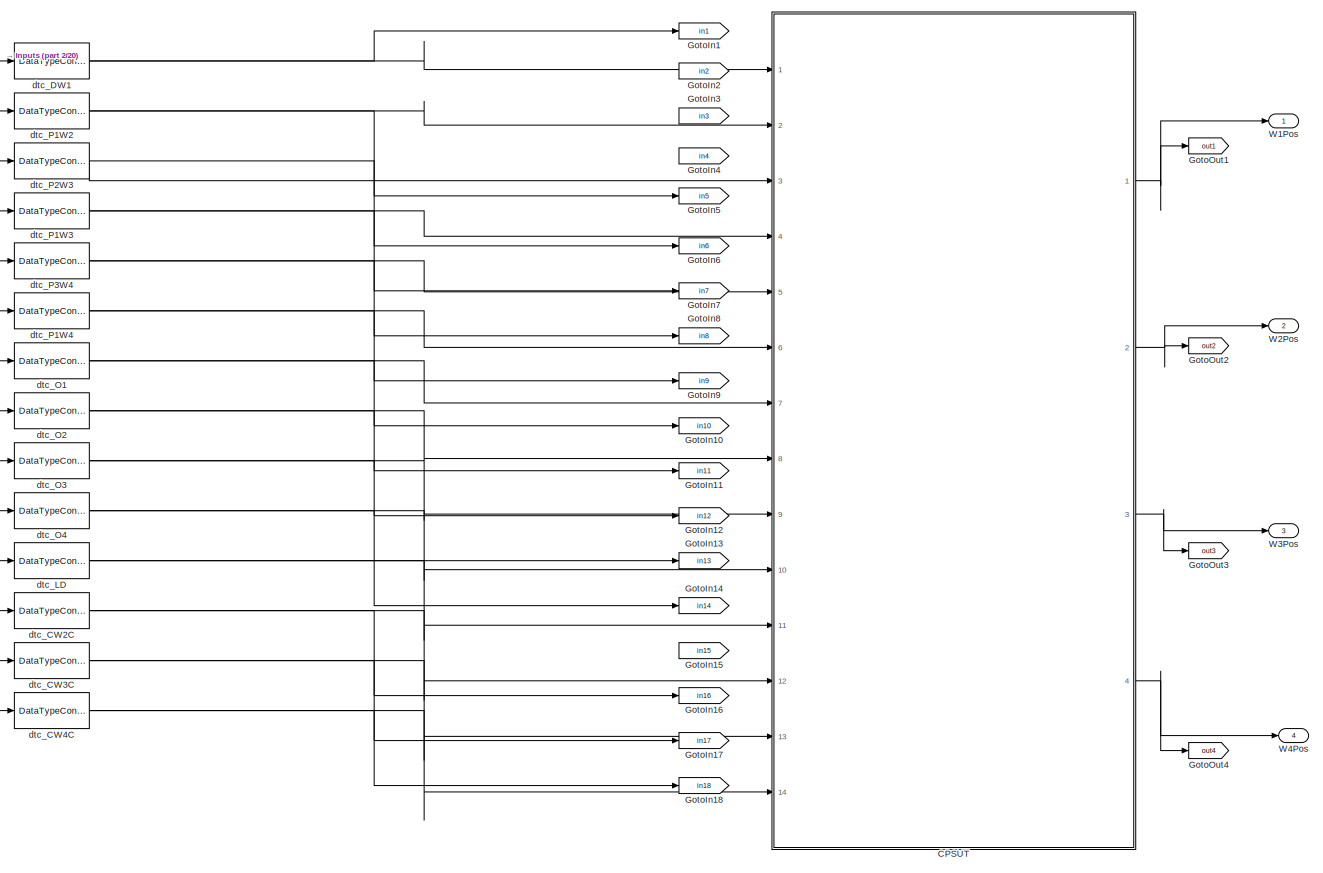
[diagram: root canvas - part 1/20, top left region]
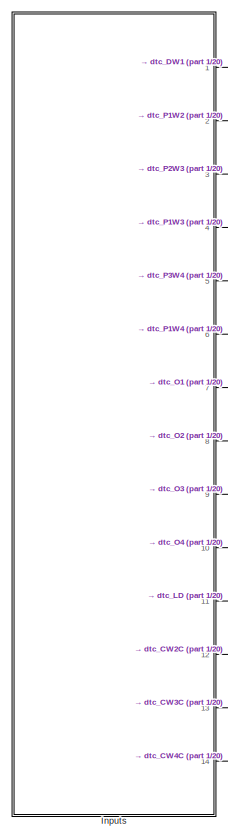
[diagram: root canvas - part 2/20, top left region]
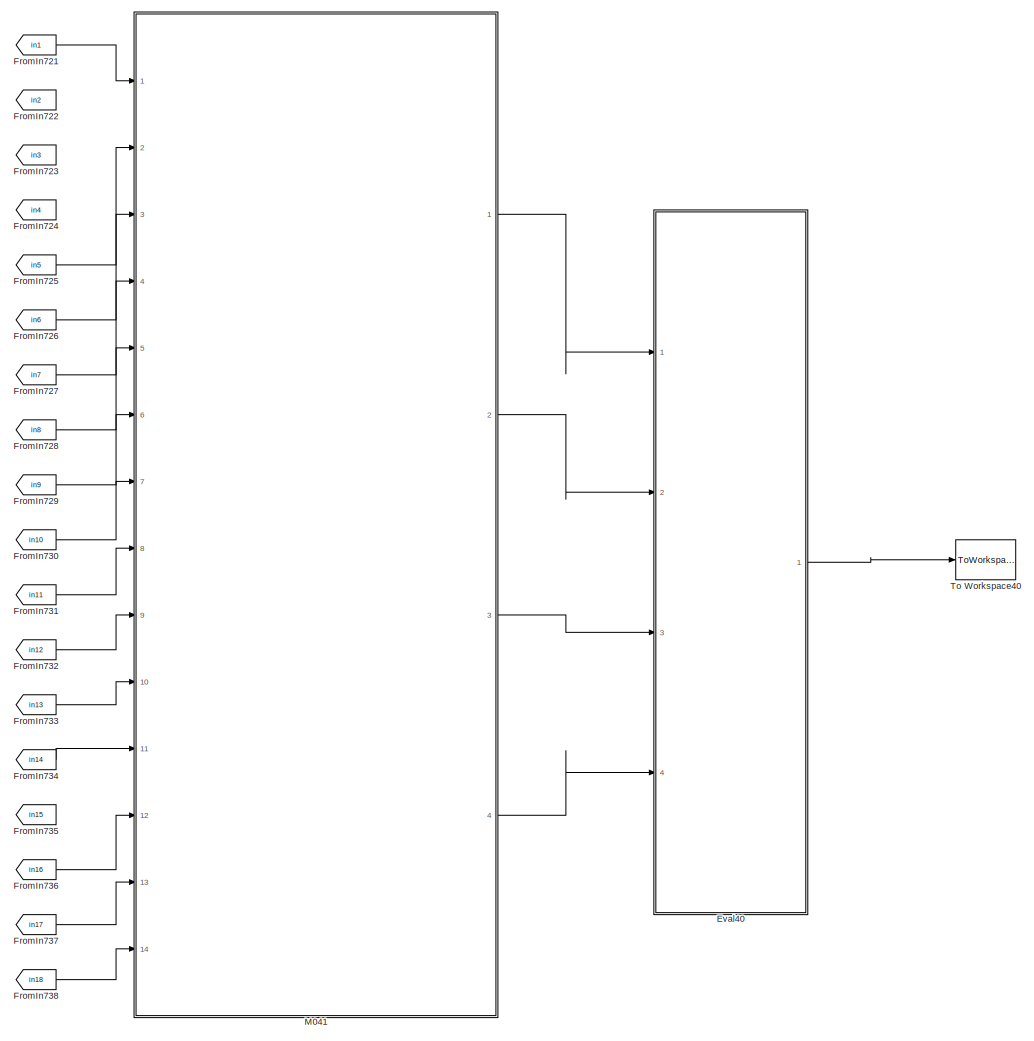
[diagram: root canvas - part 3/20, top right region]
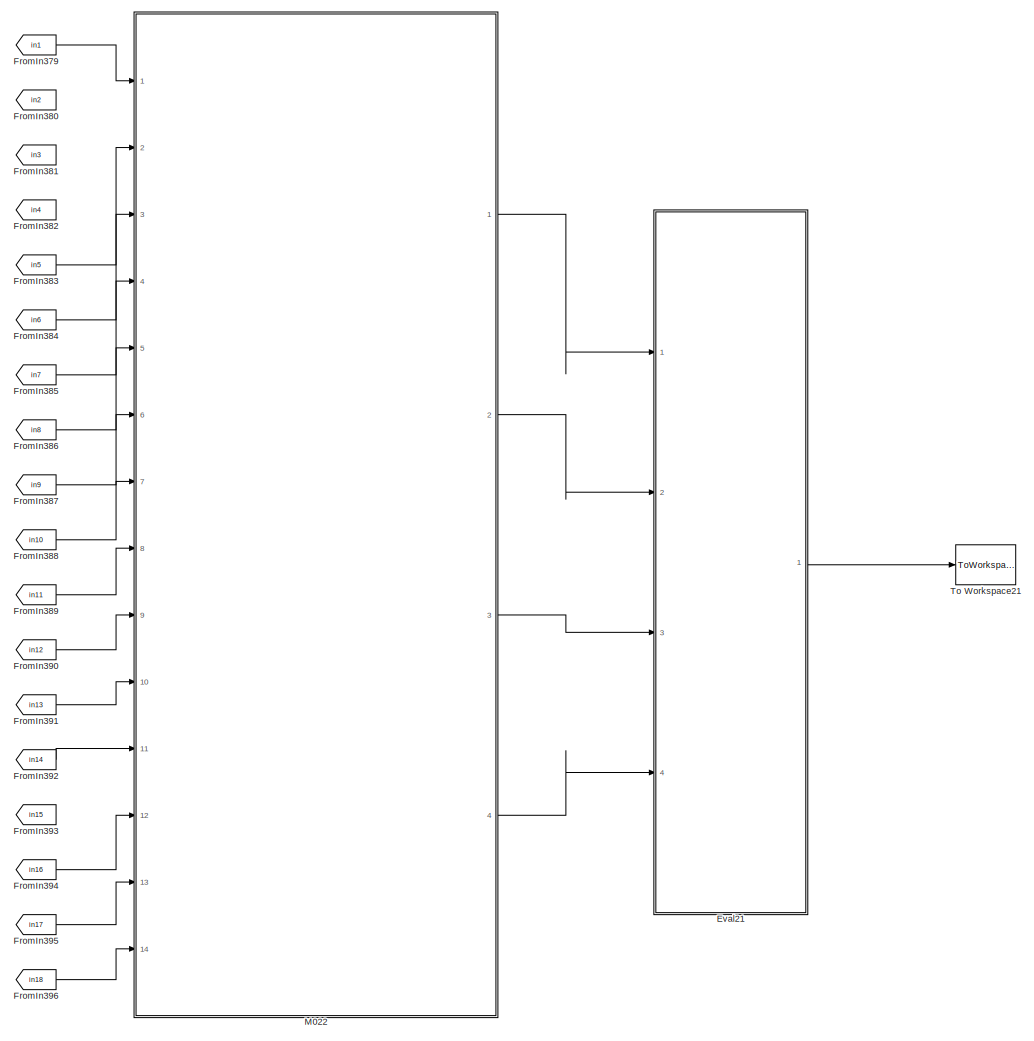
[diagram: root canvas - part 4/20, top center region]
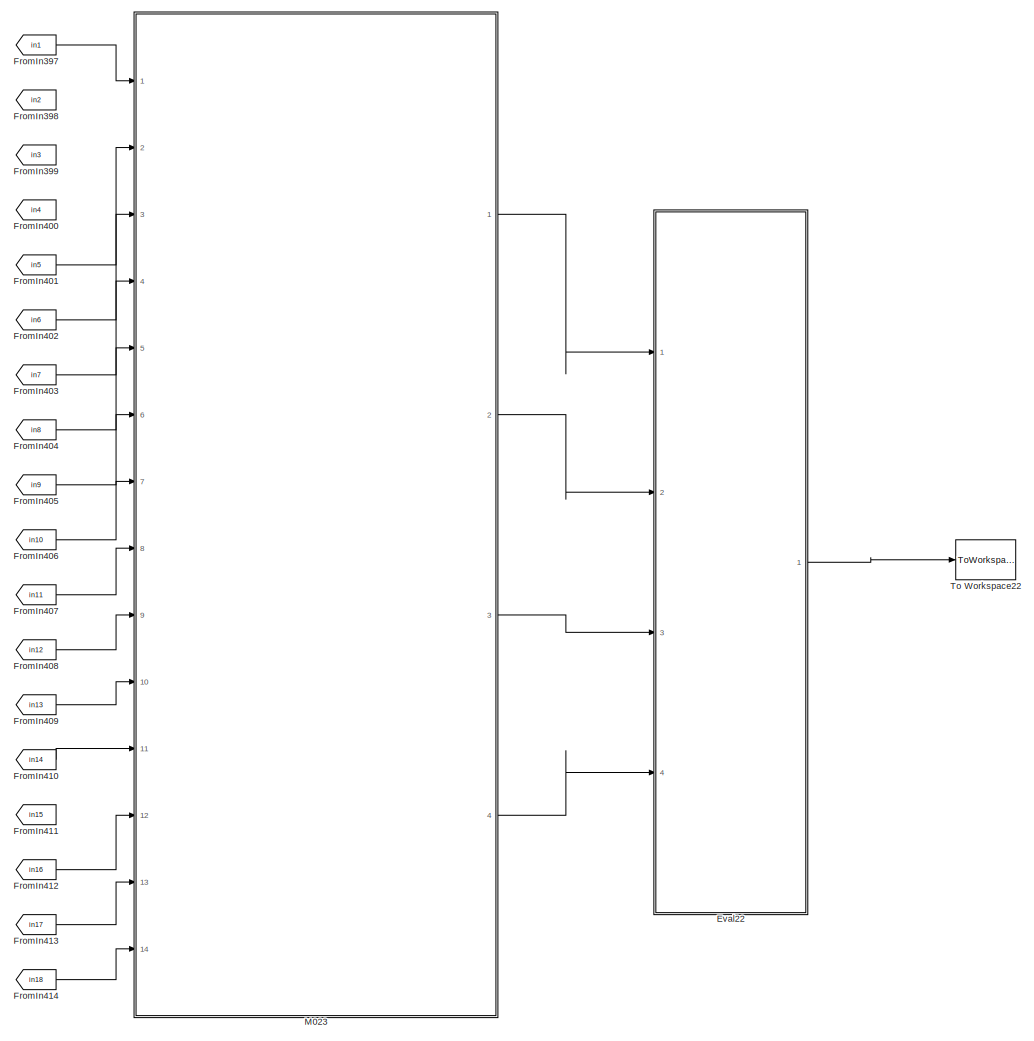
[diagram: root canvas - part 5/20, top center region]
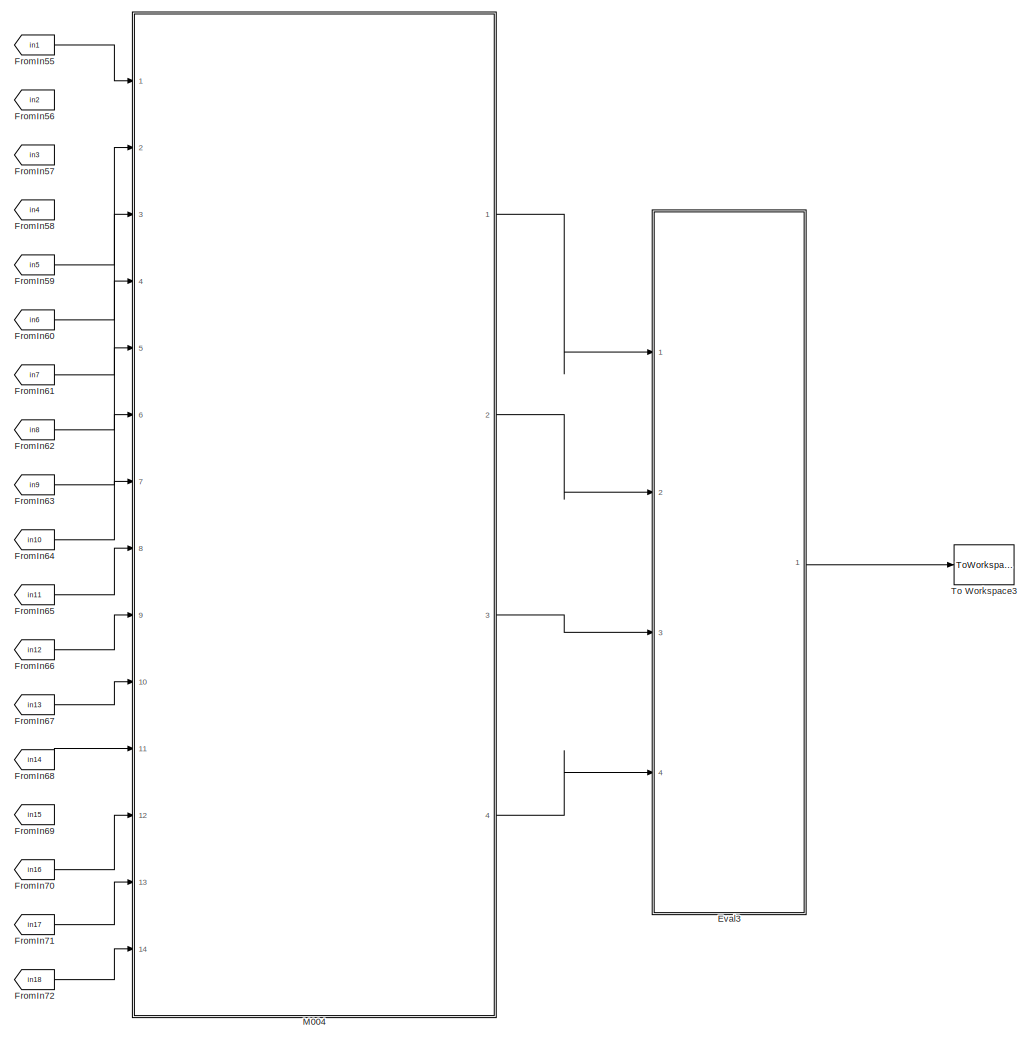
[diagram: root canvas - part 6/20, top center region]
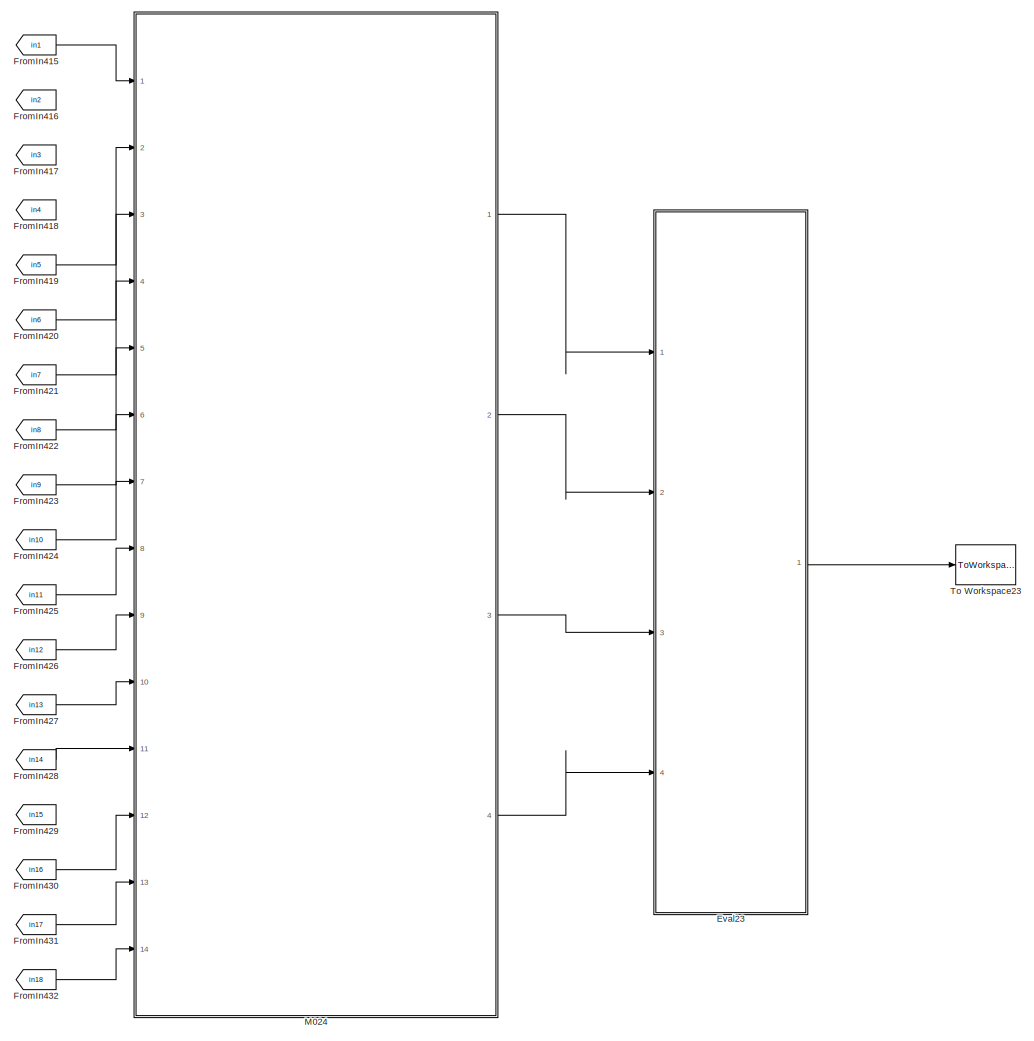
[diagram: root canvas - part 7/20, top center region]
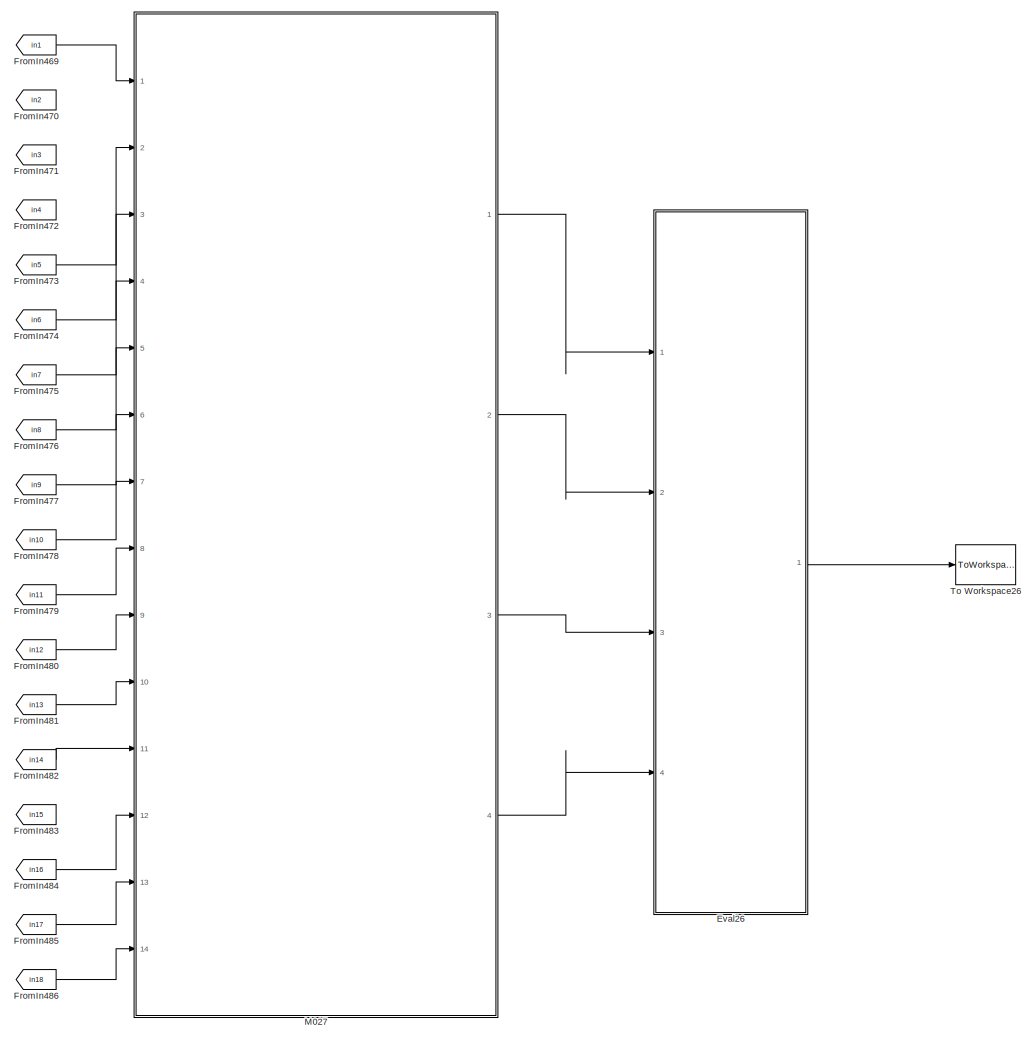
[diagram: root canvas - part 8/20, central region]
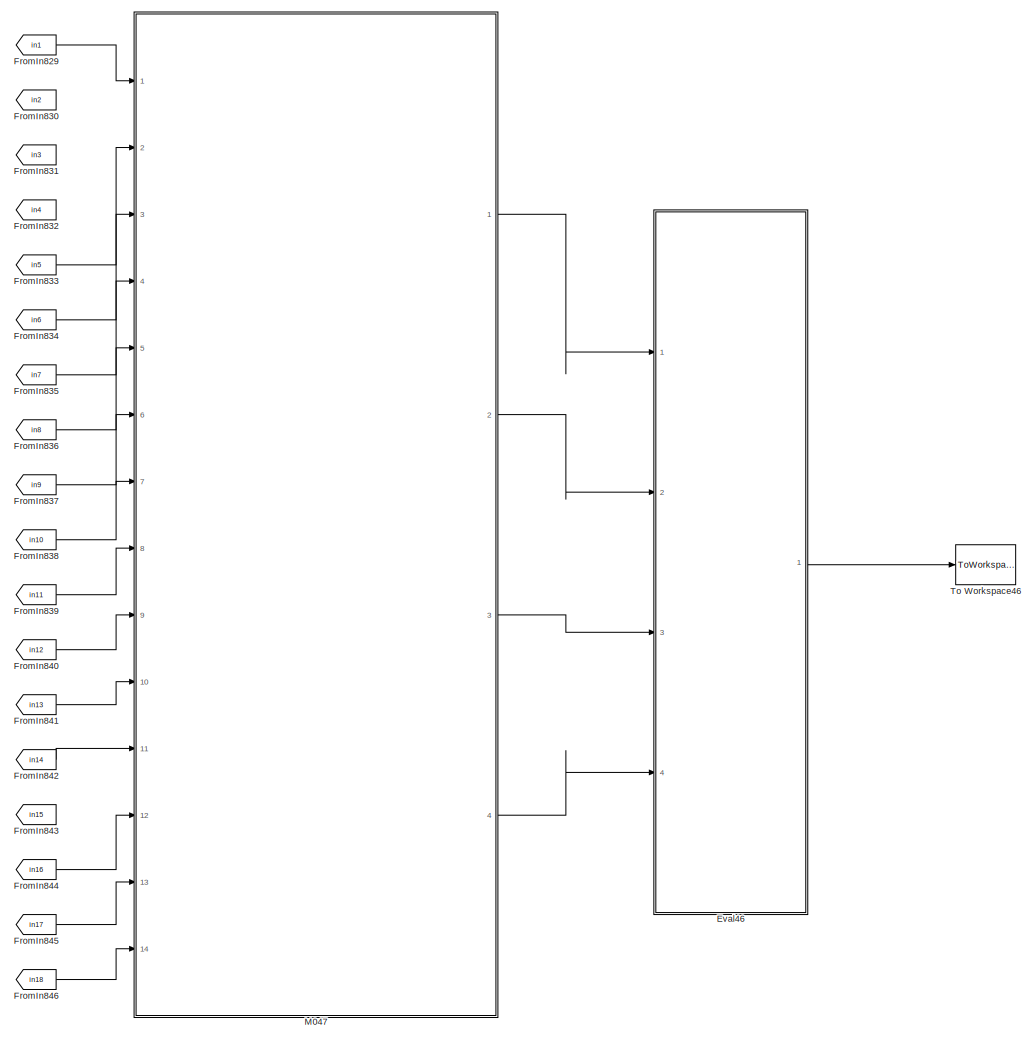
[diagram: root canvas - part 9/20, middle right region]
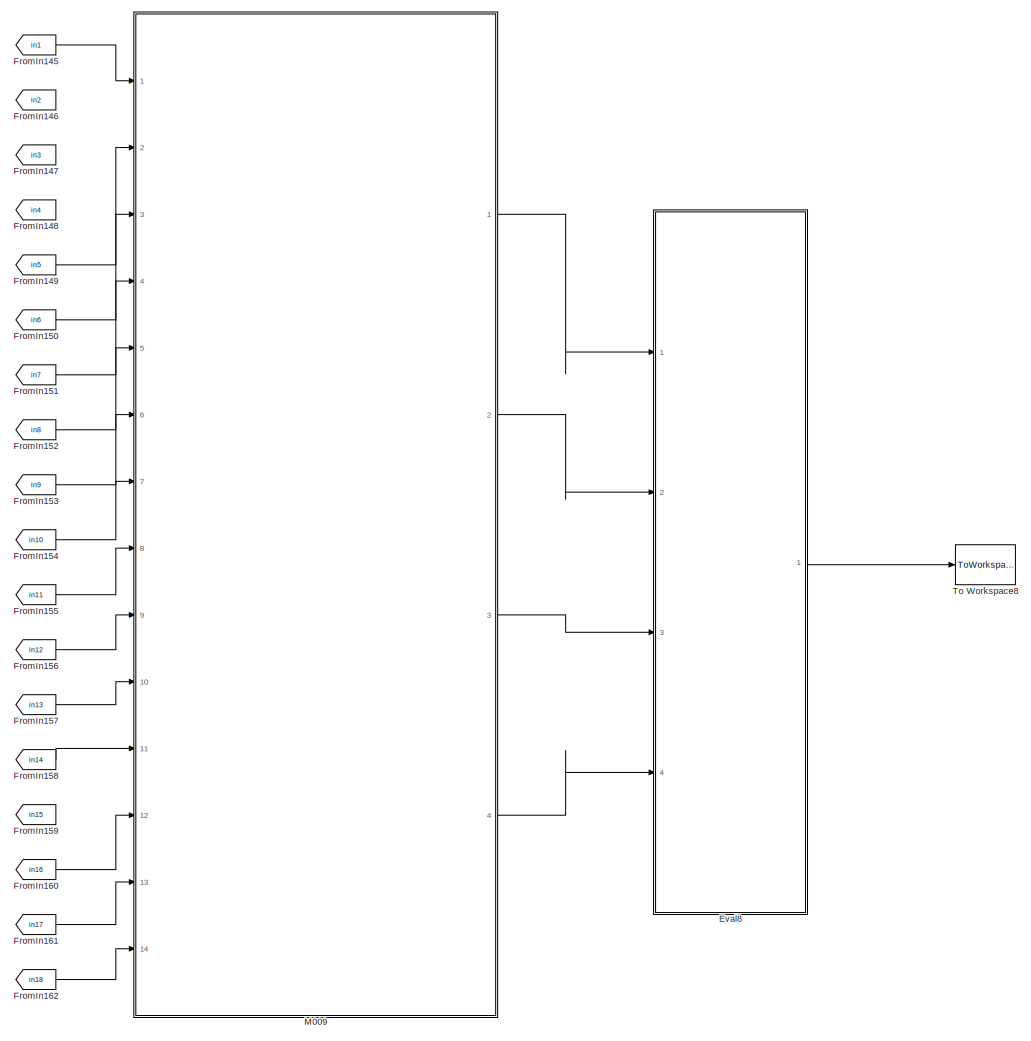
[diagram: root canvas - part 10/20, central region]
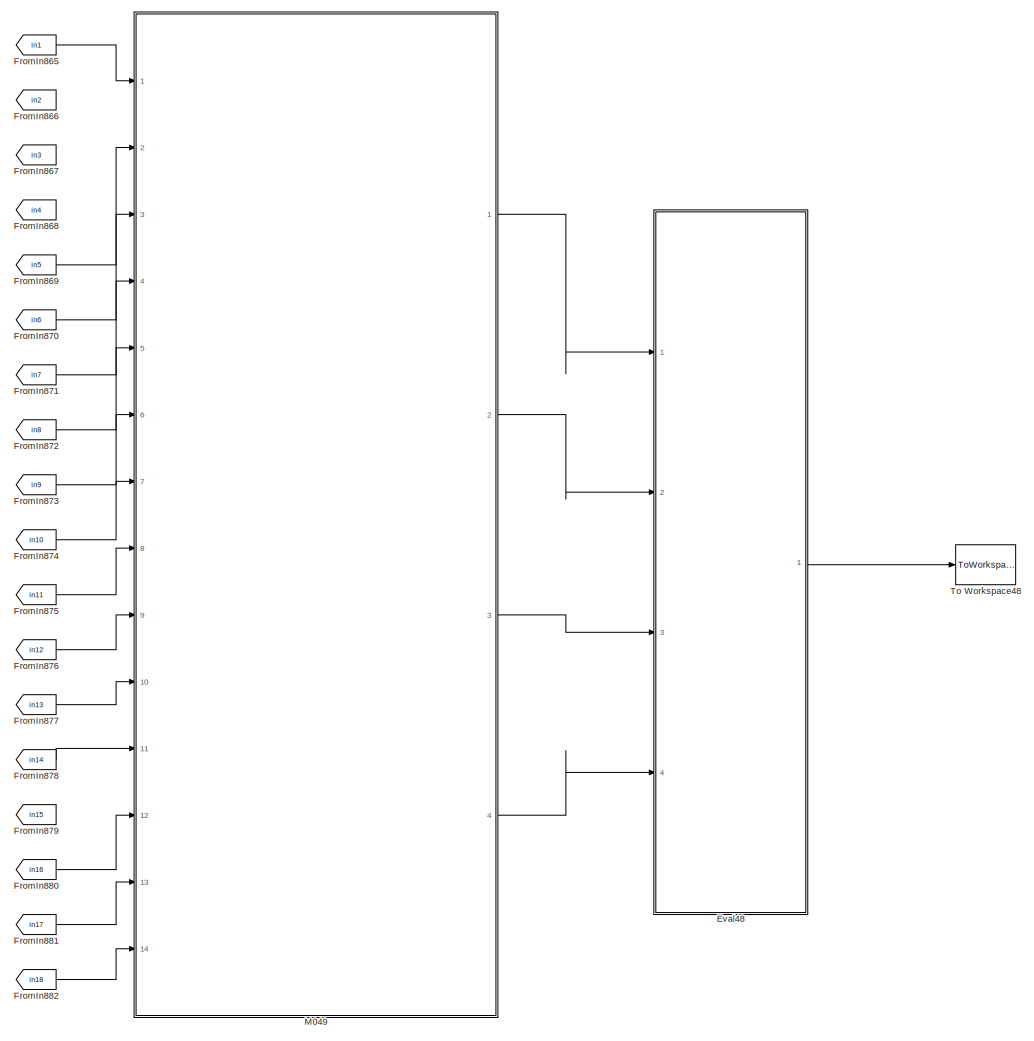
[diagram: root canvas - part 11/20, middle right region]
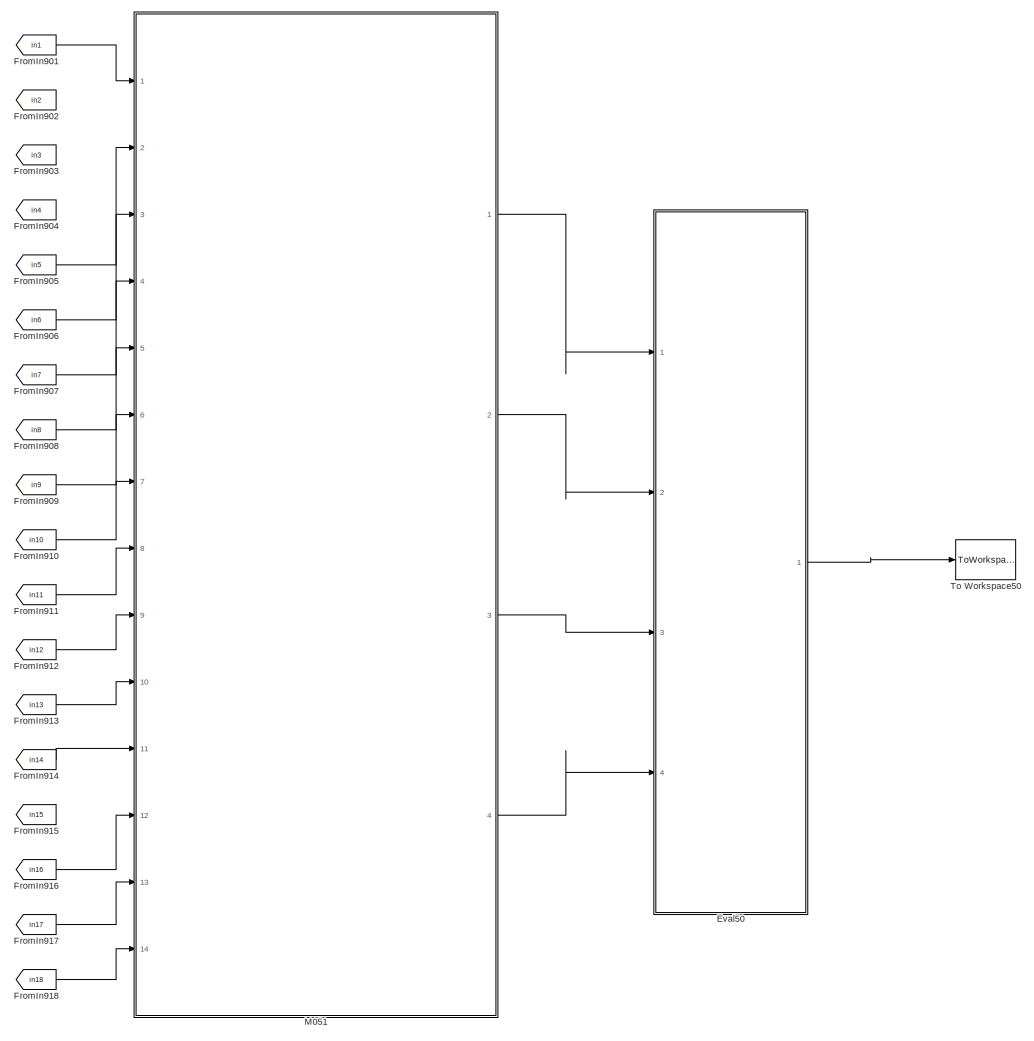
[diagram: root canvas - part 12/20, middle right region]
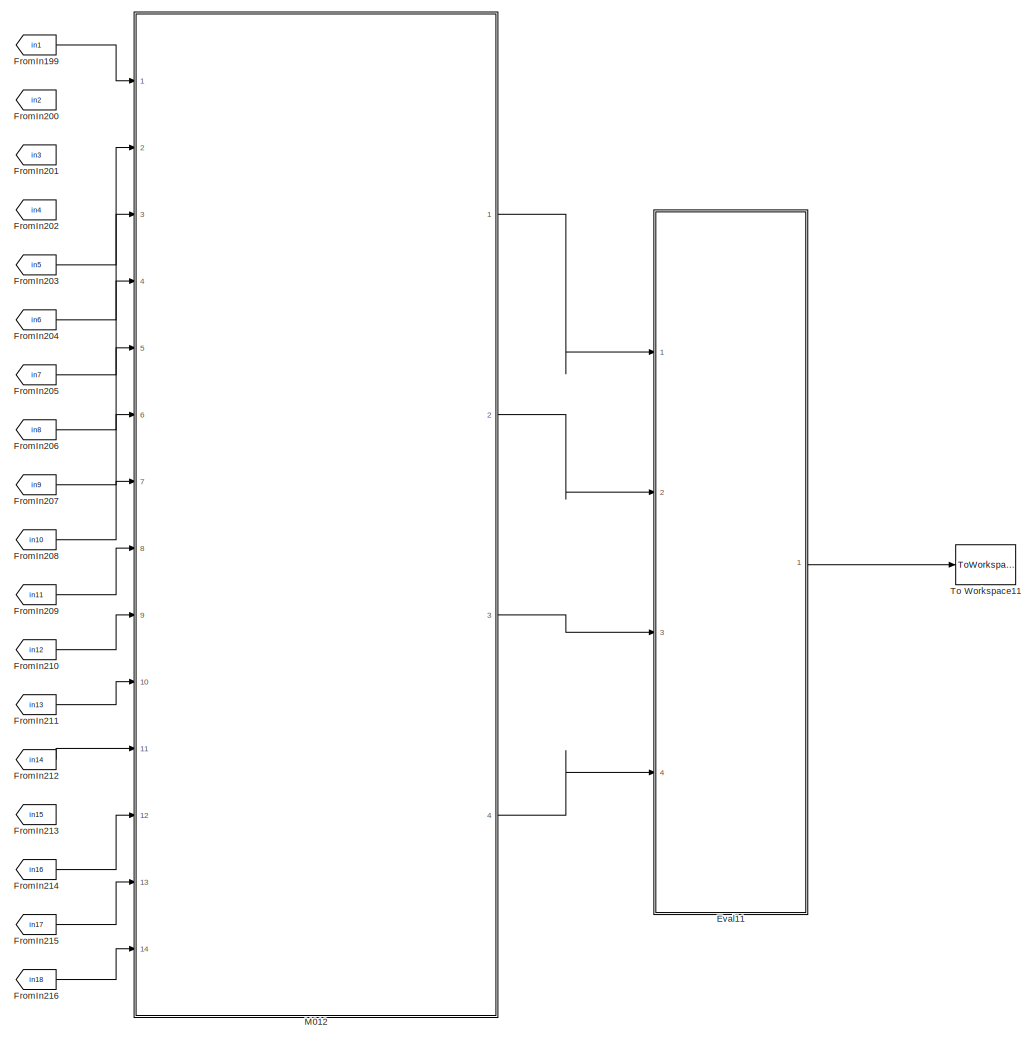
[diagram: root canvas - part 13/20, central region]
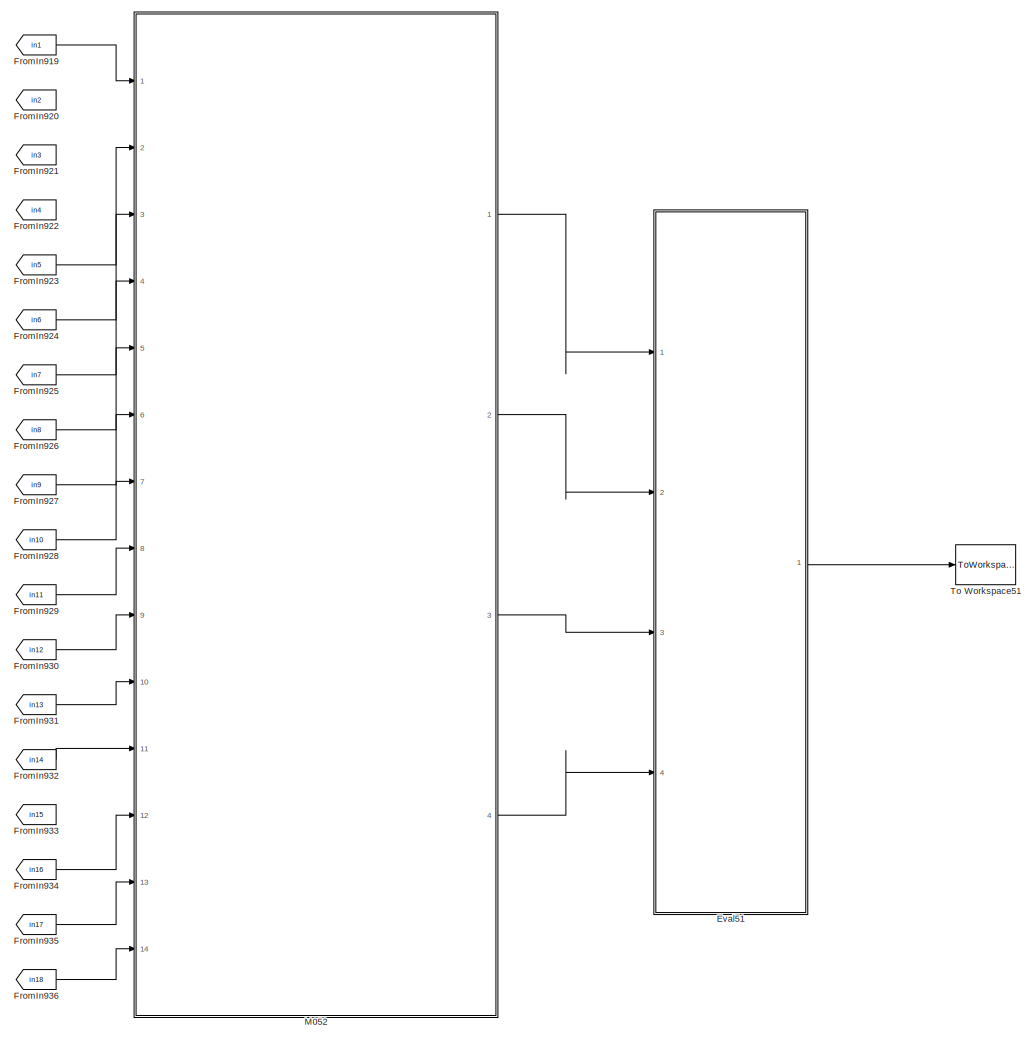
[diagram: root canvas - part 14/20, middle right region]
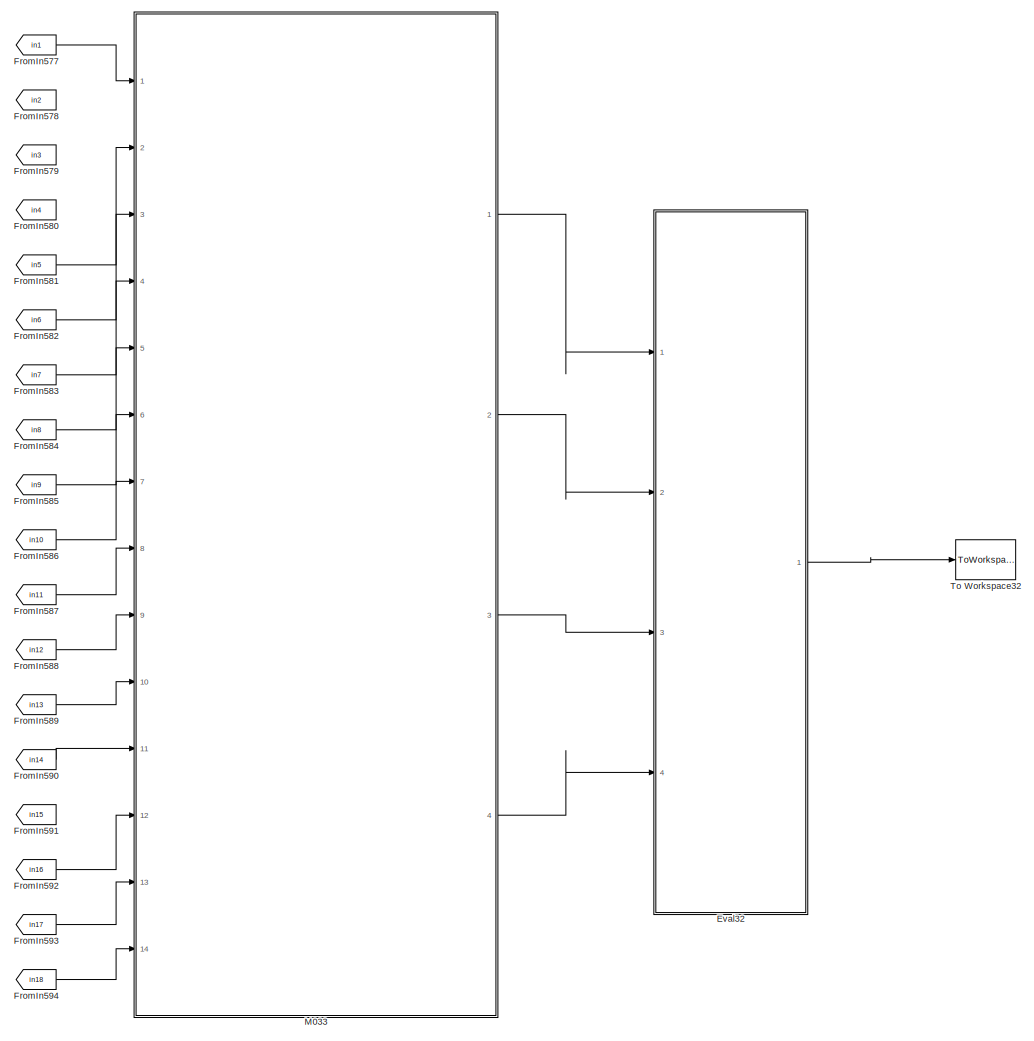
[diagram: root canvas - part 15/20, central region]
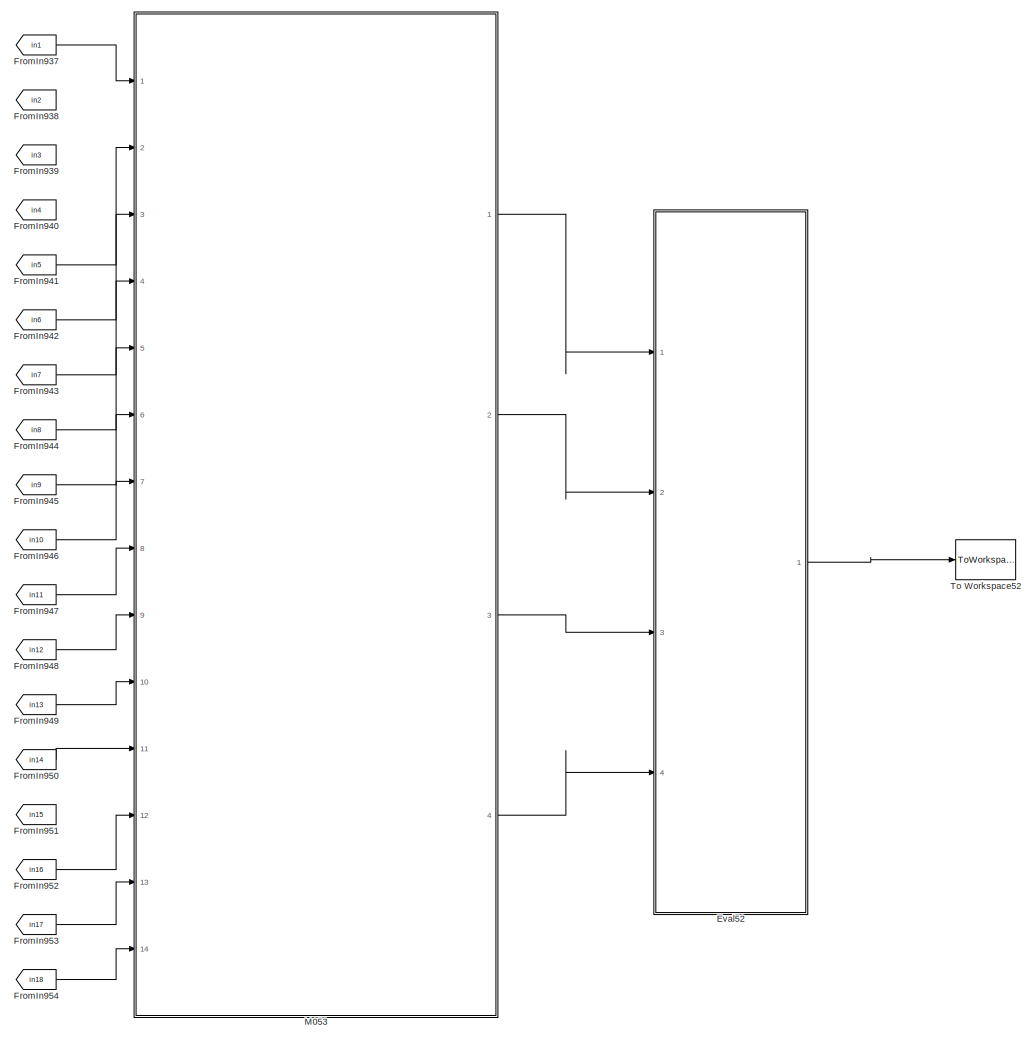
[diagram: root canvas - part 16/20, middle right region]
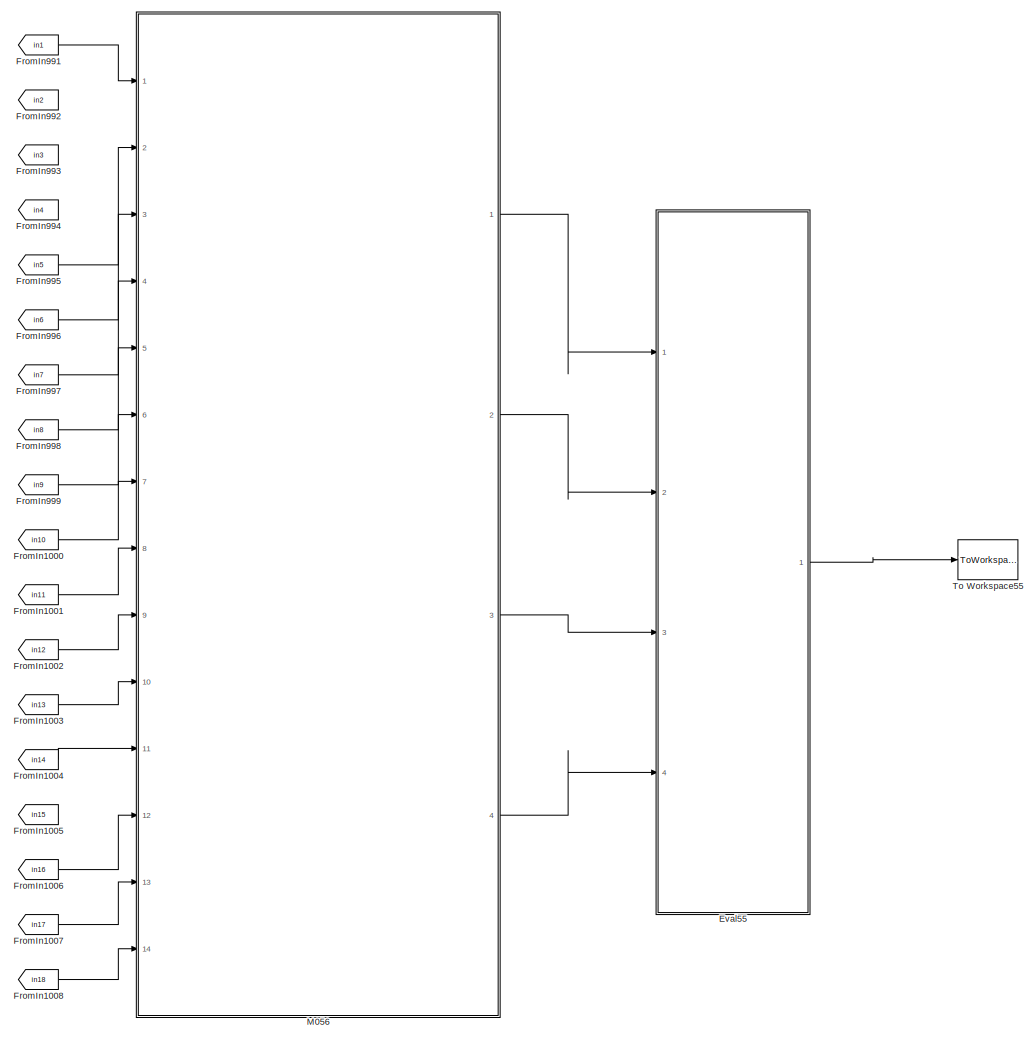
[diagram: root canvas - part 17/20, bottom right region]
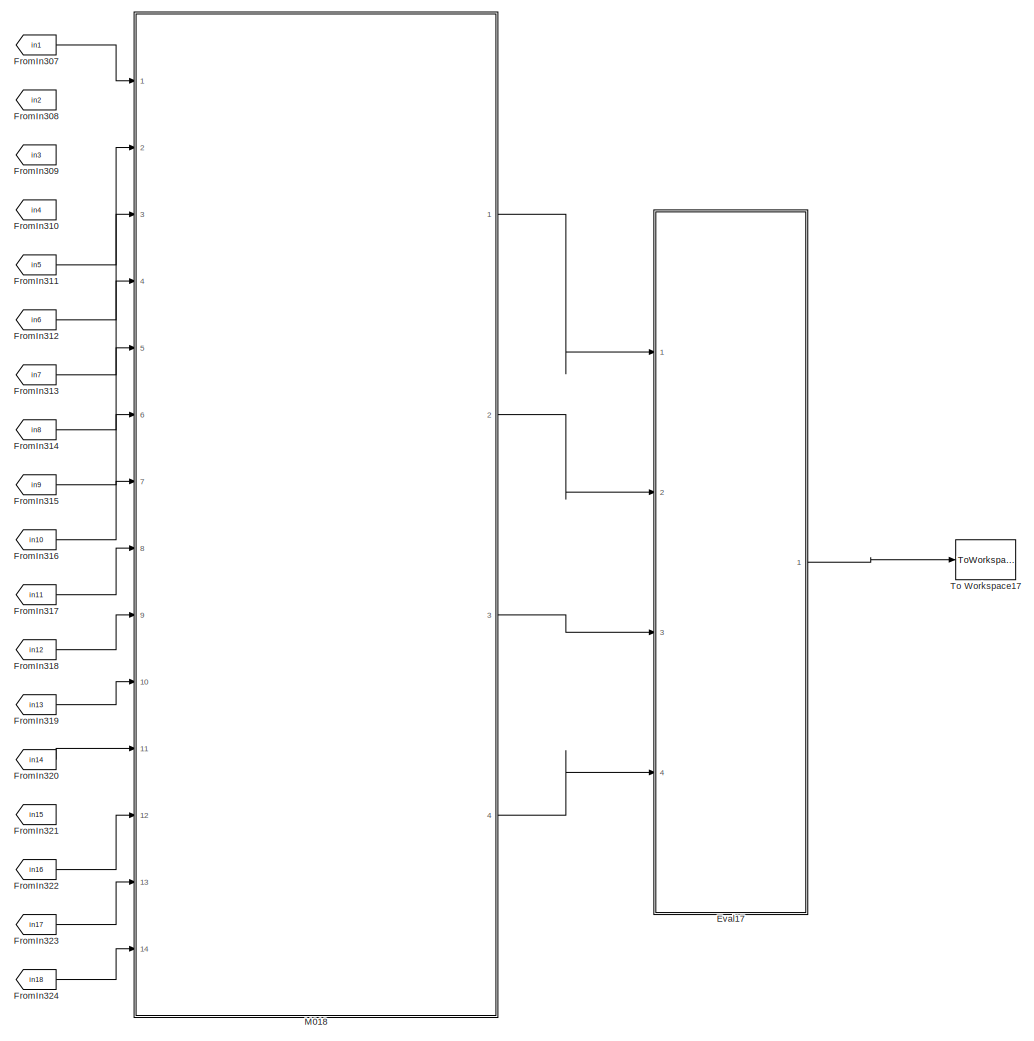
[diagram: root canvas - part 18/20, bottom center region]
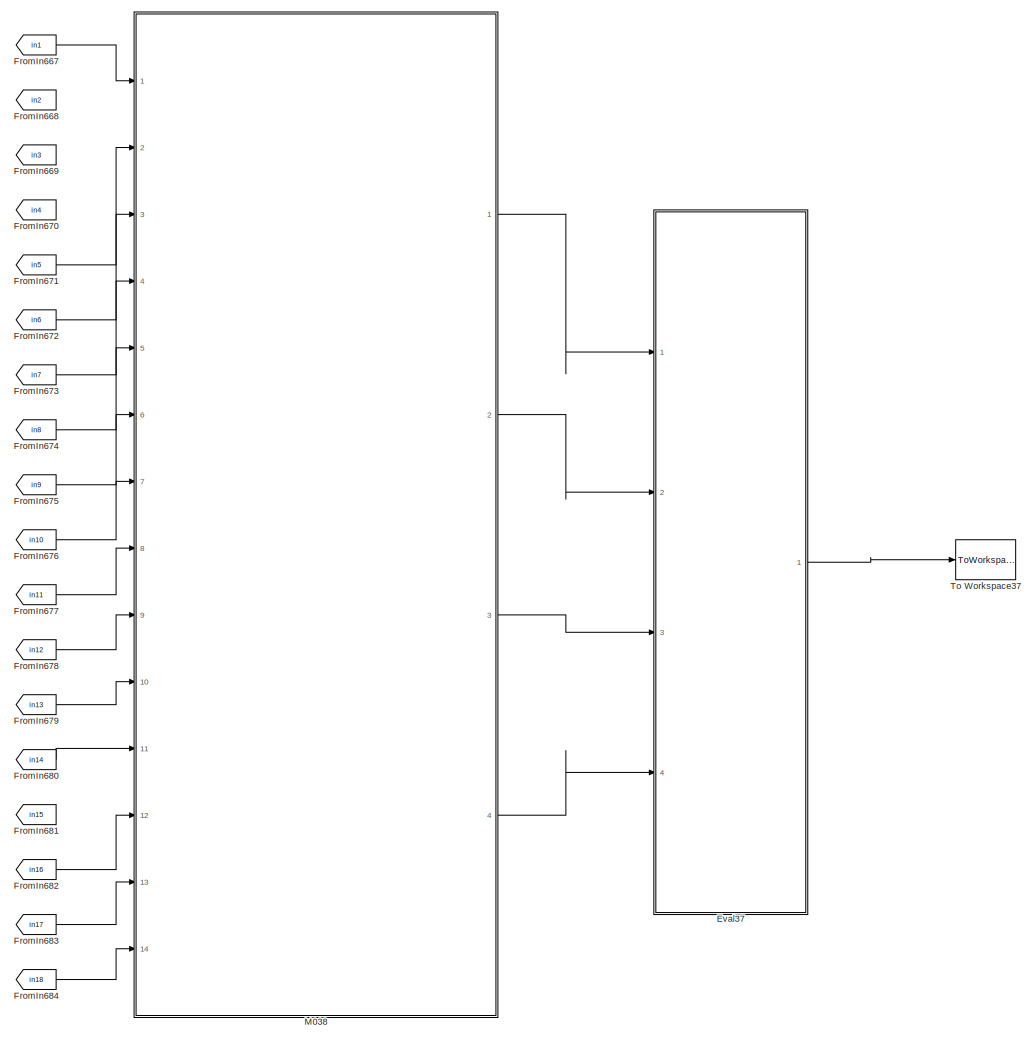
[diagram: root canvas - part 19/20, bottom center region]
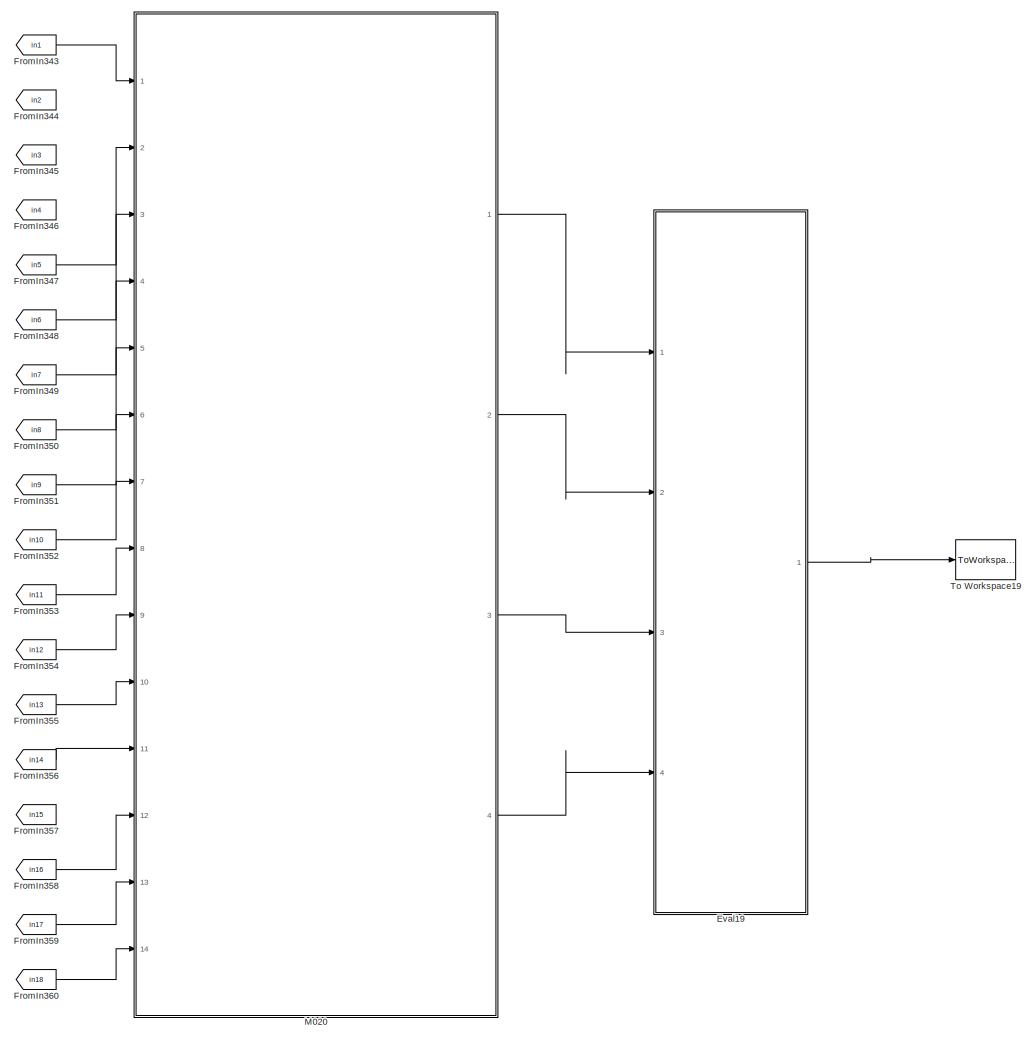
[diagram: root canvas - part 20/20, bottom center region]
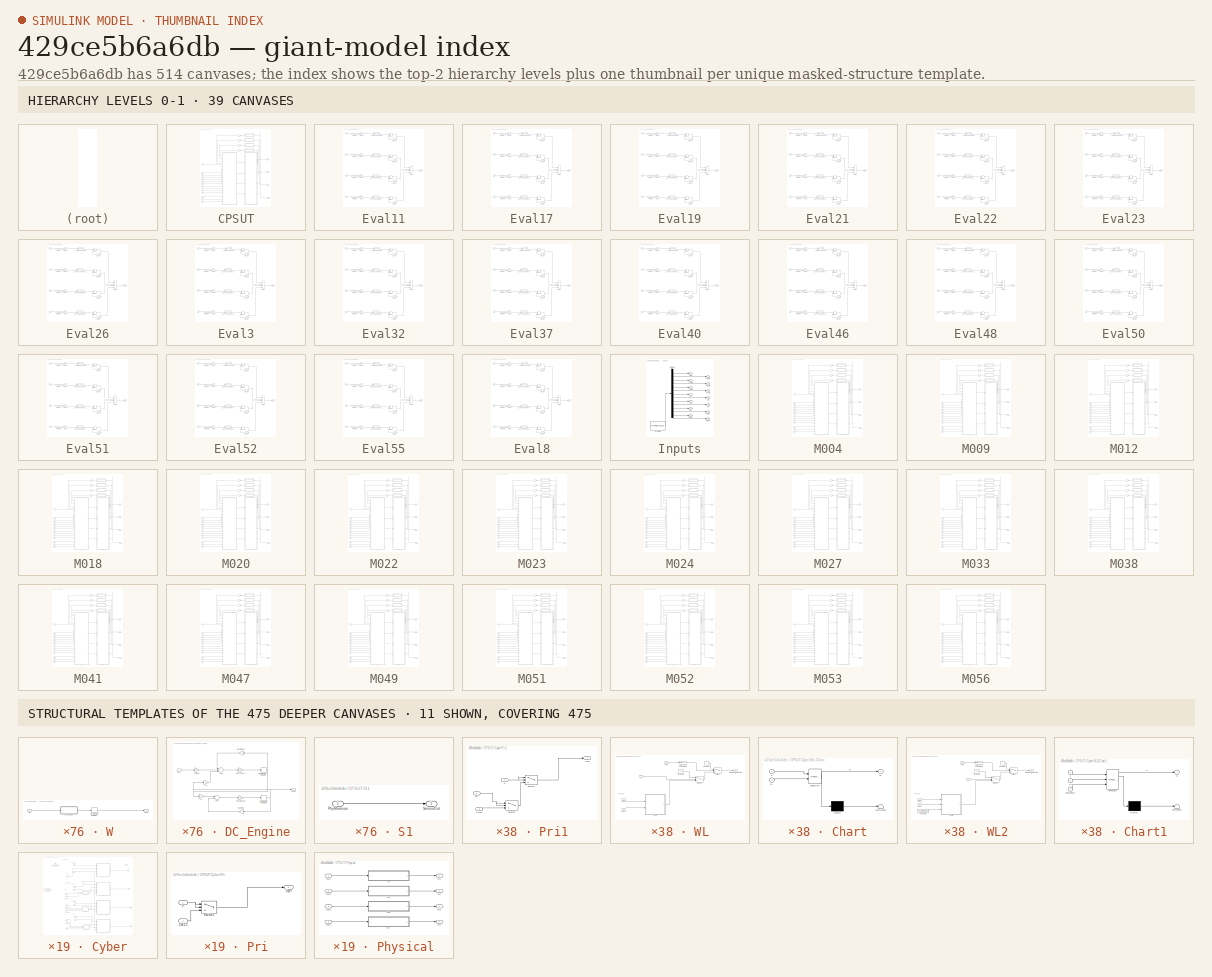
[diagram: thumbnail index - top-2 hierarchy levels (39 canvases) + 11 structural-template representatives of the remaining 475 canvases]
MODEL slx_429ce5b6a6db
KIND model
CONFIG AbsTol = auto
CONFIG EnableMultiTasking = on
CONFIG FixedStep = auto
CONFIG MaxStep = auto
CONFIG MinStep = auto
CONFIG RelTol = 1e-3
CONFIG SampleTimeConstraint = Unconstrained
CONFIG Solver = ode3
CONFIG SolverName = ode3
CONFIG StartTime = 0.0
CONFIG StopTime = 10.0
BLOCK [SubSystem] CPSUT
  Ports = [14, 4]
  RequestExecContextInheritance = off
BLOCK [Inport] CPSUT/CW2C
  IconDisplay = Port number
  OutDataTypeStr = int8
  OutMax = 4
  OutMin = 0
  Port = 12
BLOCK [Inport] CPSUT/CW3C
  IconDisplay = Port number
  OutDataTypeStr = int8
  OutMax = 4
  OutMin = 0
  Port = 13
BLOCK [Inport] CPSUT/CW4C
  IconDisplay = Port number
  OutDataTypeStr = int8
  OutMax = 4
  OutMin = 0
  Port = 14
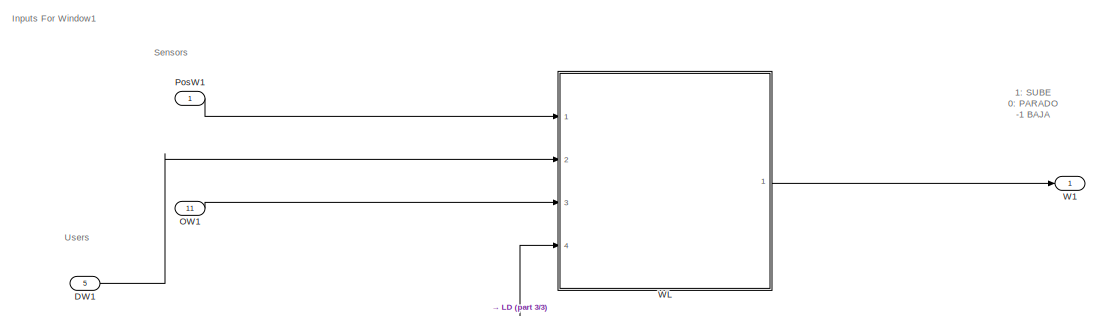
[diagram: CPSUT/Cyber - part 1/3, full width, top band]
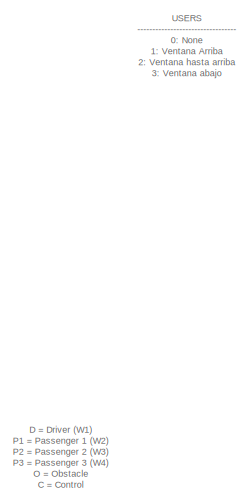
[diagram: CPSUT/Cyber - part 2/3, top left region]
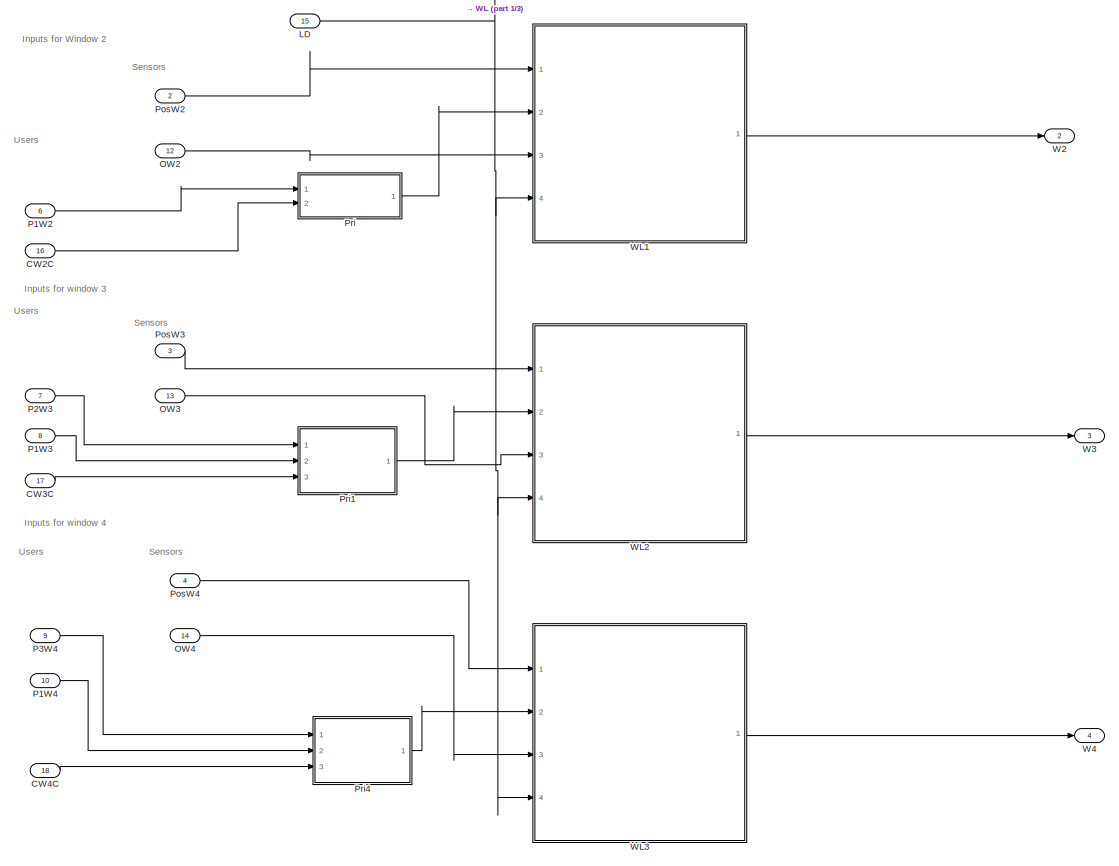
[diagram: CPSUT/Cyber - part 3/3, full width, middle band]
BLOCK [SubSystem] CPSUT/Cyber
  Ports = [18, 4]
  RequestExecContextInheritance = off
BLOCK [Inport] CPSUT/Cyber/CW2C
  IconDisplay = Port number
  Port = 16
BLOCK [Inport] CPSUT/Cyber/CW3C
  IconDisplay = Port number
  Port = 17
BLOCK [Inport] CPSUT/Cyber/CW4C
  IconDisplay = Port number
  Port = 18
BLOCK [Inport] CPSUT/Cyber/DW1
  IconDisplay = Port number
  Port = 5
BLOCK [Inport] CPSUT/Cyber/LD
  IconDisplay = Port number
  Port = 15
BLOCK [Inport] CPSUT/Cyber/OW1
  IconDisplay = Port number
  Port = 11
BLOCK [Inport] CPSUT/Cyber/OW2
  IconDisplay = Port number
  Port = 12
BLOCK [Inport] CPSUT/Cyber/OW3
  IconDisplay = Port number
  Port = 13
BLOCK [Inport] CPSUT/Cyber/OW4
  IconDisplay = Port number
  Port = 14
BLOCK [Inport] CPSUT/Cyber/P1W2
  IconDisplay = Port number
  Port = 6
BLOCK [Inport] CPSUT/Cyber/P1W3
  IconDisplay = Port number
  Port = 8
BLOCK [Inport] CPSUT/Cyber/P1W4
  IconDisplay = Port number
  Port = 10
BLOCK [Inport] CPSUT/Cyber/P2W3
  IconDisplay = Port number
  Port = 7
BLOCK [Inport] CPSUT/Cyber/P3W4
  IconDisplay = Port number
  Port = 9
BLOCK [Inport] CPSUT/Cyber/PosW1
  IconDisplay = Port number
BLOCK [Inport] CPSUT/Cyber/PosW2
  IconDisplay = Port number
  Port = 2
BLOCK [Inport] CPSUT/Cyber/PosW3
  IconDisplay = Port number
  Port = 3
BLOCK [Inport] CPSUT/Cyber/PosW4
  IconDisplay = Port number
  Port = 4
BLOCK [SubSystem] CPSUT/Cyber/Pri
  Ports = [2, 1]
  RequestExecContextInheritance = off
BLOCK [Inport] CPSUT/Cyber/Pri/CW2C
  IconDisplay = Port number
  Port = 2
BLOCK [Inport] CPSUT/Cyber/Pri/P
  IconDisplay = Port number
BLOCK [Switch] CPSUT/Cyber/Pri/Switch1
  Criteria = u2 ~= 0
  InputSameDT = off
  SaturateOnIntegerOverflow = off
BLOCK [Outport] CPSUT/Cyber/Pri/User
  IconDisplay = Port number
BLOCK [SubSystem] CPSUT/Cyber/Pri1
  Ports = [3, 1]
  RequestExecContextInheritance = off
BLOCK [Inport] CPSUT/Cyber/Pri1/CW3C
  IconDisplay = Port number
  Port = 3
BLOCK [Inport] CPSUT/Cyber/Pri1/P
  IconDisplay = Port number
BLOCK [Inport] CPSUT/Cyber/Pri1/P1
  IconDisplay = Port number
  Port = 2
BLOCK [Switch] CPSUT/Cyber/Pri1/Switch1
  Criteria = u2 ~= 0
  InputSameDT = off
  SaturateOnIntegerOverflow = off
BLOCK [Switch] CPSUT/Cyber/Pri1/Switch2
  Criteria = u2 ~= 0
  InputSameDT = off
  SaturateOnIntegerOverflow = off
BLOCK [Outport] CPSUT/Cyber/Pri1/User
  IconDisplay = Port number
BLOCK [SubSystem] CPSUT/Cyber/Pri4
  Ports = [3, 1]
  RequestExecContextInheritance = off
BLOCK [Inport] CPSUT/Cyber/Pri4/CW4C
  IconDisplay = Port number
  Port = 3
BLOCK [Inport] CPSUT/Cyber/Pri4/P
  IconDisplay = Port number
BLOCK [Inport] CPSUT/Cyber/Pri4/P1
  IconDisplay = Port number
  Port = 2
BLOCK [Switch] CPSUT/Cyber/Pri4/Switch1
  Criteria = u2 ~= 0
  InputSameDT = off
  SaturateOnIntegerOverflow = off
BLOCK [Switch] CPSUT/Cyber/Pri4/Switch2
  Criteria = u2 ~= 0
  InputSameDT = off
  SaturateOnIntegerOverflow = off
BLOCK [Outport] CPSUT/Cyber/Pri4/User
  IconDisplay = Port number
BLOCK [Outport] CPSUT/Cyber/W1
  IconDisplay = Port number
BLOCK [Outport] CPSUT/Cyber/W2
  IconDisplay = Port number
  Port = 2
BLOCK [Outport] CPSUT/Cyber/W3
  IconDisplay = Port number
  Port = 3
BLOCK [Outport] CPSUT/Cyber/W4
  IconDisplay = Port number
  Port = 4
BLOCK [SubSystem] CPSUT/Cyber/WL
  Ports = [4, 1]
  RequestExecContextInheritance = off
BLOCK [SubSystem] CPSUT/Cyber/WL/Chart
  ErrorFcn = Stateflow.Translate.translate
  PermitHierarchicalResolution = ExplicitOnly
  Ports = [2, 1]
  RequestExecContextInheritance = off
  SFBlockType = Chart
  TreatAsAtomicUnit = on
BLOCK [Demux] CPSUT/Cyber/WL/Chart/ Demux 
  Outputs = 1
  Ports = [1, 1]
BLOCK [S-Function] CPSUT/Cyber/WL/Chart/ SFunction 
  EnableBusSupport = off
  FunctionName = sf_sfun
  PortCounts = [2 2]
  Ports = [2, 2]
  SFcnIsStateOwnerBlock = off
  SFunctionDeploymentMode = off
  Tag = Stateflow S-Function c00013M_harness 1
BLOCK [Terminator] CPSUT/Cyber/WL/Chart/ Terminator 
BLOCK [Inport] CPSUT/Cyber/WL/Chart/S
  IconDisplay = Port number
BLOCK [Inport] CPSUT/Cyber/WL/Chart/UI
  IconDisplay = Port number
  Port = 2
BLOCK [Outport] CPSUT/Cyber/WL/Chart/W
  IconDisplay = Port number
BLOCK [Constant] CPSUT/Cyber/WL/Constant
  Value = -1
BLOCK [Constant] CPSUT/Cyber/WL/Constant1
  Value = 0
BLOCK [DataTypeConversion] CPSUT/Cyber/WL/Data Type Conversion
  RndMeth = Floor
  SaturateOnIntegerOverflow = off
BLOCK [Inport] CPSUT/Cyber/WL/L
  IconDisplay = Port number
  Port = 4
BLOCK [Inport] CPSUT/Cyber/WL/OW
  IconDisplay = Port number
  Port = 3
BLOCK [Switch] CPSUT/Cyber/WL/Switch
  Criteria = u2 ~= 0
  InputSameDT = off
  SaturateOnIntegerOverflow = off
  Threshold = 1
  ZeroCross = off
BLOCK [Switch] CPSUT/Cyber/WL/Switch1
  Criteria = u2 ~= 0
  InputSameDT = off
  SaturateOnIntegerOverflow = off
BLOCK [Inport] CPSUT/Cyber/WL/User
  IconDisplay = Port number
  Port = 2
BLOCK [Inport] CPSUT/Cyber/WL/WPos
  IconDisplay = Port number
BLOCK [Outport] CPSUT/Cyber/WL/WindowLogicOutput
  IconDisplay = Port number
BLOCK [SubSystem] CPSUT/Cyber/WL1
  Ports = [4, 1]
  RequestExecContextInheritance = off
BLOCK [SubSystem] CPSUT/Cyber/WL1/Chart1
  ErrorFcn = Stateflow.Translate.translate
  PermitHierarchicalResolution = ExplicitOnly
  Ports = [2, 1]
  RequestExecContextInheritance = off
  SFBlockType = Chart
  TreatAsAtomicUnit = on
BLOCK [Demux] CPSUT/Cyber/WL1/Chart1/ Demux 
  Outputs = 1
  Ports = [1, 1]
BLOCK [S-Function] CPSUT/Cyber/WL1/Chart1/ SFunction 
  EnableBusSupport = off
  FunctionName = sf_sfun
  PortCounts = [2 2]
  Ports = [2, 2]
  SFcnIsStateOwnerBlock = off
  SFunctionDeploymentMode = off
  Tag = Stateflow S-Function c00013M_harness 3
BLOCK [Terminator] CPSUT/Cyber/WL1/Chart1/ Terminator 
BLOCK [Inport] CPSUT/Cyber/WL1/Chart1/S
  IconDisplay = Port number
BLOCK [Inport] CPSUT/Cyber/WL1/Chart1/UI
  IconDisplay = Port number
  Port = 2
BLOCK [Outport] CPSUT/Cyber/WL1/Chart1/W
  IconDisplay = Port number
BLOCK [Constant] CPSUT/Cyber/WL1/Constant
  Value = -1
BLOCK [Constant] CPSUT/Cyber/WL1/Constant1
  Value = 0
BLOCK [DataTypeConversion] CPSUT/Cyber/WL1/Data Type Conversion
  RndMeth = Floor
  SaturateOnIntegerOverflow = off
BLOCK [Inport] CPSUT/Cyber/WL1/L
  IconDisplay = Port number
  Port = 4
BLOCK [Inport] CPSUT/Cyber/WL1/OW
  IconDisplay = Port number
  Port = 3
BLOCK [Switch] CPSUT/Cyber/WL1/Switch
  Criteria = u2 ~= 0
  InputSameDT = off
  SaturateOnIntegerOverflow = off
  Threshold = 1
  ZeroCross = off
BLOCK [Switch] CPSUT/Cyber/WL1/Switch1
  Criteria = u2 ~= 0
  InputSameDT = off
  SaturateOnIntegerOverflow = off
BLOCK [Inport] CPSUT/Cyber/WL1/User
  IconDisplay = Port number
  Port = 2
BLOCK [Inport] CPSUT/Cyber/WL1/WPos
  IconDisplay = Port number
BLOCK [Outport] CPSUT/Cyber/WL1/WindowLogicOutput
  IconDisplay = Port number
BLOCK [SubSystem] CPSUT/Cyber/WL2
  Ports = [4, 1]
  RequestExecContextInheritance = off
BLOCK [SubSystem] CPSUT/Cyber/WL2/Chart1
  ErrorFcn = Stateflow.Translate.translate
  PermitHierarchicalResolution = ExplicitOnly
  Ports = [3, 1]
  RequestExecContextInheritance = off
  SFBlockType = Chart
  TreatAsAtomicUnit = on
BLOCK [Demux] CPSUT/Cyber/WL2/Chart1/ Demux 
  Outputs = 1
  Ports = [1, 1]
BLOCK [S-Function] CPSUT/Cyber/WL2/Chart1/ SFunction 
  EnableBusSupport = off
  FunctionName = sf_sfun
  PortCounts = [3 2]
  Ports = [3, 2]
  SFcnIsStateOwnerBlock = off
  SFunctionDeploymentMode = off
  Tag = Stateflow S-Function c00013M_harness 2
BLOCK [Terminator] CPSUT/Cyber/WL2/Chart1/ Terminator 
BLOCK [Inport] CPSUT/Cyber/WL2/Chart1/PosMinW3
  IconDisplay = Port number
  Port = 3
BLOCK [Inport] CPSUT/Cyber/WL2/Chart1/S
  IconDisplay = Port number
BLOCK [Inport] CPSUT/Cyber/WL2/Chart1/UI
  IconDisplay = Port number
  Port = 2
BLOCK [Outport] CPSUT/Cyber/WL2/Chart1/W
  IconDisplay = Port number
BLOCK [Constant] CPSUT/Cyber/WL2/Constant
  Value = -1
BLOCK [Constant] CPSUT/Cyber/WL2/Constant1
  Value = 0
BLOCK [Constant] CPSUT/Cyber/WL2/Constant2
  Value = PosMinimaW3
BLOCK [DataTypeConversion] CPSUT/Cyber/WL2/Data Type Conversion
  RndMeth = Floor
  SaturateOnIntegerOverflow = off
BLOCK [Inport] CPSUT/Cyber/WL2/L
  IconDisplay = Port number
  Port = 4
BLOCK [Inport] CPSUT/Cyber/WL2/OW
  IconDisplay = Port number
  Port = 3
BLOCK [Switch] CPSUT/Cyber/WL2/Switch
  Criteria = u2 ~= 0
  InputSameDT = off
  SaturateOnIntegerOverflow = off
  Threshold = 1
  ZeroCross = off
BLOCK [Switch] CPSUT/Cyber/WL2/Switch1
  Criteria = u2 ~= 0
  InputSameDT = off
  SaturateOnIntegerOverflow = off
BLOCK [Inport] CPSUT/Cyber/WL2/User
  IconDisplay = Port number
  Port = 2
BLOCK [Inport] CPSUT/Cyber/WL2/WPos
  IconDisplay = Port number
BLOCK [Outport] CPSUT/Cyber/WL2/WindowLogicOutput
  IconDisplay = Port number
BLOCK [SubSystem] CPSUT/Cyber/WL3
  Ports = [4, 1]
  RequestExecContextInheritance = off
BLOCK [SubSystem] CPSUT/Cyber/WL3/Chart2
  ErrorFcn = Stateflow.Translate.translate
  PermitHierarchicalResolution = ExplicitOnly
  Ports = [3, 1]
  RequestExecContextInheritance = off
  SFBlockType = Chart
  TreatAsAtomicUnit = on
BLOCK [Demux] CPSUT/Cyber/WL3/Chart2/ Demux 
  Outputs = 1
  Ports = [1, 1]
BLOCK [S-Function] CPSUT/Cyber/WL3/Chart2/ SFunction 
  EnableBusSupport = off
  FunctionName = sf_sfun
  PortCounts = [3 2]
  Ports = [3, 2]
  SFcnIsStateOwnerBlock = off
  SFunctionDeploymentMode = off
  Tag = Stateflow S-Function c00013M_harness 4
BLOCK [Terminator] CPSUT/Cyber/WL3/Chart2/ Terminator 
BLOCK [Inport] CPSUT/Cyber/WL3/Chart2/PosMinW4
  IconDisplay = Port number
  Port = 3
BLOCK [Inport] CPSUT/Cyber/WL3/Chart2/S
  IconDisplay = Port number
BLOCK [Inport] CPSUT/Cyber/WL3/Chart2/UI
  IconDisplay = Port number
  Port = 2
BLOCK [Outport] CPSUT/Cyber/WL3/Chart2/W
  IconDisplay = Port number
BLOCK [Constant] CPSUT/Cyber/WL3/Constant
  Value = -1
BLOCK [Constant] CPSUT/Cyber/WL3/Constant1
  Value = 0
BLOCK [Constant] CPSUT/Cyber/WL3/Constant2
  Value = PosMinimaW4
BLOCK [DataTypeConversion] CPSUT/Cyber/WL3/Data Type Conversion
  RndMeth = Floor
  SaturateOnIntegerOverflow = off
BLOCK [Inport] CPSUT/Cyber/WL3/L
  IconDisplay = Port number
  Port = 4
BLOCK [Inport] CPSUT/Cyber/WL3/OW
  IconDisplay = Port number
  Port = 3
BLOCK [Switch] CPSUT/Cyber/WL3/Switch
  Criteria = u2 ~= 0
  InputSameDT = off
  SaturateOnIntegerOverflow = off
  Threshold = 1
  ZeroCross = off
BLOCK [Switch] CPSUT/Cyber/WL3/Switch1
  Criteria = u2 ~= 0
  InputSameDT = off
  SaturateOnIntegerOverflow = off
BLOCK [Inport] CPSUT/Cyber/WL3/User
  IconDisplay = Port number
  Port = 2
BLOCK [Inport] CPSUT/Cyber/WL3/WPos
  IconDisplay = Port number
BLOCK [Outport] CPSUT/Cyber/WL3/WindowLogicOutput
  IconDisplay = Port number
BLOCK [Inport] CPSUT/DW1
  IconDisplay = Port number
  OutDataTypeStr = int8
  OutMax = 4
  OutMin = 0
BLOCK [Inport] CPSUT/LD
  IconDisplay = Port number
  OutDataTypeStr = boolean
  Port = 11
BLOCK [Memory] CPSUT/M
BLOCK [Memory] CPSUT/M1
BLOCK [Memory] CPSUT/M2
BLOCK [Memory] CPSUT/M3
BLOCK [Inport] CPSUT/O1
  IconDisplay = Port number
  OutDataTypeStr = boolean
  Port = 7
BLOCK [Inport] CPSUT/O2
  IconDisplay = Port number
  OutDataTypeStr = boolean
  Port = 8
BLOCK [Inport] CPSUT/O3
  IconDisplay = Port number
  OutDataTypeStr = boolean
  Port = 9
BLOCK [Inport] CPSUT/O4
  IconDisplay = Port number
  OutDataTypeStr = boolean
  Port = 10
BLOCK [Inport] CPSUT/P1W2
  IconDisplay = Port number
  OutDataTypeStr = int8
  OutMax = 4
  OutMin = 0
  Port = 2
BLOCK [Inport] CPSUT/P1W3
  IconDisplay = Port number
  OutDataTypeStr = int8
  OutMax = 4
  OutMin = 0
  Port = 4
BLOCK [Inport] CPSUT/P1W4
  IconDisplay = Port number
  OutDataTypeStr = int8
  OutMax = 4
  OutMin = 0
  Port = 6
BLOCK [Inport] CPSUT/P2W3
  IconDisplay = Port number
  OutDataTypeStr = int8
  OutMax = 4
  OutMin = 0
  Port = 3
BLOCK [Inport] CPSUT/P3W4
  IconDisplay = Port number
  OutDataTypeStr = int8
  OutMax = 4
  OutMin = 0
  Port = 5
BLOCK [SubSystem] CPSUT/Physical
  Ports = [4, 4]
  RequestExecContextInheritance = off
BLOCK [Inport] CPSUT/Physical/InW1
  IconDisplay = Port number
BLOCK [Inport] CPSUT/Physical/InW2
  IconDisplay = Port number
  Port = 2
BLOCK [Inport] CPSUT/Physical/InW3
  IconDisplay = Port number
  Port = 3
BLOCK [Inport] CPSUT/Physical/InW4
  IconDisplay = Port number
  Port = 4
BLOCK [SubSystem] CPSUT/Physical/W
  Ports = [1, 1]
  RequestExecContextInheritance = off
BLOCK [SubSystem] CPSUT/Physical/W/DC_Engine
  Ports = [1, 1]
  RequestExecContextInheritance = off
BLOCK [Gain] CPSUT/Physical/W/DC_Engine/(Inductance)
  Gain = 1/L
  OutDataTypeStr = Inherit: Inherit via internal rule
  ParamDataTypeStr = Inherit: Inherit via internal rule
  SaturateOnIntegerOverflow = off
BLOCK [Gain] CPSUT/Physical/W/DC_Engine/(Inductance)1
  Gain = 1/J
  OutDataTypeStr = Inherit: Inherit via internal rule
  ParamDataTypeStr = Inherit: Inherit via internal rule
  SaturateOnIntegerOverflow = off
BLOCK [Sum] CPSUT/Physical/W/DC_Engine/Add
  InputSameDT = off
  Inputs = -+-
  OutDataTypeStr = Inherit: Inherit via internal rule
  Ports = [3, 1]
  SaturateOnIntegerOverflow = off
BLOCK [Sum] CPSUT/Physical/W/DC_Engine/Add1
  InputSameDT = off
  Inputs = +-
  OutDataTypeStr = Inherit: Inherit via internal rule
  Ports = [2, 1]
  SaturateOnIntegerOverflow = off
BLOCK [Gain] CPSUT/Physical/W/DC_Engine/Damping
  Gain = b
  OutDataTypeStr = Inherit: Inherit via internal rule
  ParamDataTypeStr = Inherit: Inherit via internal rule
  SaturateOnIntegerOverflow = off
BLOCK [DiscreteIntegrator] CPSUT/Physical/W/DC_Engine/Discrete-Time Integrator
  ICPrevOutput = DiscIntNeverNeededParam
  ICPrevScaledInput = DiscIntNeverNeededParam
  Ports = [1, 1]
  SampleTime = -1
BLOCK [DiscreteIntegrator] CPSUT/Physical/W/DC_Engine/Discrete-Time Integrator1
  ICPrevOutput = DiscIntNeverNeededParam
  ICPrevScaledInput = DiscIntNeverNeededParam
  Ports = [1, 1]
  SampleTime = -1
BLOCK [Gain] CPSUT/Physical/W/DC_Engine/Ke
  Gain = K
  OutDataTypeStr = Inherit: Inherit via internal rule
  ParamDataTypeStr = Inherit: Inherit via internal rule
  SaturateOnIntegerOverflow = off
BLOCK [Gain] CPSUT/Physical/W/DC_Engine/Kt
  Gain = K
  OutDataTypeStr = Inherit: Inherit via internal rule
  ParamDataTypeStr = Inherit: Inherit via internal rule
  SaturateOnIntegerOverflow = off
BLOCK [Gain] CPSUT/Physical/W/DC_Engine/Resistance
  Gain = R
  OutDataTypeStr = Inherit: Inherit via internal rule
  ParamDataTypeStr = Inherit: Inherit via internal rule
  SaturateOnIntegerOverflow = off
BLOCK [Outport] CPSUT/Physical/W/DC_Engine/Speed
  IconDisplay = Port number
BLOCK [Gain] CPSUT/Physical/W/DC_Engine/Voltage
  Gain = 10
  OutDataTypeStr = Inherit: Inherit via internal rule
  ParamDataTypeStr = Inherit: Inherit via internal rule
  SaturateOnIntegerOverflow = off
BLOCK [Inport] CPSUT/Physical/W/DC_Engine/input
  IconDisplay = Port number
BLOCK [DiscreteIntegrator] CPSUT/Physical/W/Discrete-Time Integrator
  ICPrevOutput = DiscIntNeverNeededParam
  ICPrevScaledInput = DiscIntNeverNeededParam
  InitialCondition = 5
  LimitOutput = on
  LowerSaturationLimit = 0
  Ports = [1, 1]
  SampleTime = -1
  UpperSaturationLimit = 5
BLOCK [Inport] CPSUT/Physical/W/WIn
  IconDisplay = Port number
BLOCK [Outport] CPSUT/Physical/W/WPos
  IconDisplay = Port number
BLOCK [Outport] CPSUT/Physical/W1
  IconDisplay = Port number
BLOCK [Outport] CPSUT/Physical/W2
  IconDisplay = Port number
  Port = 2
BLOCK [Outport] CPSUT/Physical/W3
  IconDisplay = Port number
  Port = 3
BLOCK [Outport] CPSUT/Physical/W4
  IconDisplay = Port number
  Port = 4
BLOCK [SubSystem] CPSUT/Physical/W5
  Ports = [1, 1]
  RequestExecContextInheritance = off
BLOCK [SubSystem] CPSUT/Physical/W5/DC_Engine
  Ports = [1, 1]
  RequestExecContextInheritance = off
BLOCK [Gain] CPSUT/Physical/W5/DC_Engine/(Inductance)
  Gain = 1/L
  OutDataTypeStr = Inherit: Inherit via internal rule
  ParamDataTypeStr = Inherit: Inherit via internal rule
  SaturateOnIntegerOverflow = off
BLOCK [Gain] CPSUT/Physical/W5/DC_Engine/(Inductance)1
  Gain = 1/J
  OutDataTypeStr = Inherit: Inherit via internal rule
  ParamDataTypeStr = Inherit: Inherit via internal rule
  SaturateOnIntegerOverflow = off
BLOCK [Sum] CPSUT/Physical/W5/DC_Engine/Add
  InputSameDT = off
  Inputs = -+-
  OutDataTypeStr = Inherit: Inherit via internal rule
  Ports = [3, 1]
  SaturateOnIntegerOverflow = off
BLOCK [Sum] CPSUT/Physical/W5/DC_Engine/Add1
  InputSameDT = off
  Inputs = +-
  OutDataTypeStr = Inherit: Inherit via internal rule
  Ports = [2, 1]
  SaturateOnIntegerOverflow = off
BLOCK [Gain] CPSUT/Physical/W5/DC_Engine/Damping
  Gain = b
  OutDataTypeStr = Inherit: Inherit via internal rule
  ParamDataTypeStr = Inherit: Inherit via internal rule
  SaturateOnIntegerOverflow = off
BLOCK [DiscreteIntegrator] CPSUT/Physical/W5/DC_Engine/Discrete-Time Integrator
  ICPrevOutput = DiscIntNeverNeededParam
  ICPrevScaledInput = DiscIntNeverNeededParam
  Ports = [1, 1]
  SampleTime = -1
BLOCK [DiscreteIntegrator] CPSUT/Physical/W5/DC_Engine/Discrete-Time Integrator1
  ICPrevOutput = DiscIntNeverNeededParam
  ICPrevScaledInput = DiscIntNeverNeededParam
  Ports = [1, 1]
  SampleTime = -1
BLOCK [Gain] CPSUT/Physical/W5/DC_Engine/Ke
  Gain = K
  OutDataTypeStr = Inherit: Inherit via internal rule
  ParamDataTypeStr = Inherit: Inherit via internal rule
  SaturateOnIntegerOverflow = off
BLOCK [Gain] CPSUT/Physical/W5/DC_Engine/Kt
  Gain = K
  OutDataTypeStr = Inherit: Inherit via internal rule
  ParamDataTypeStr = Inherit: Inherit via internal rule
  SaturateOnIntegerOverflow = off
BLOCK [Gain] CPSUT/Physical/W5/DC_Engine/Resistance
  Gain = R
  OutDataTypeStr = Inherit: Inherit via internal rule
  ParamDataTypeStr = Inherit: Inherit via internal rule
  SaturateOnIntegerOverflow = off
BLOCK [Outport] CPSUT/Physical/W5/DC_Engine/Speed
  IconDisplay = Port number
BLOCK [Gain] CPSUT/Physical/W5/DC_Engine/Voltage
  Gain = 10
  OutDataTypeStr = Inherit: Inherit via internal rule
  ParamDataTypeStr = Inherit: Inherit via internal rule
  SaturateOnIntegerOverflow = off
BLOCK [Inport] CPSUT/Physical/W5/DC_Engine/input
  IconDisplay = Port number
BLOCK [DiscreteIntegrator] CPSUT/Physical/W5/Discrete-Time Integrator
  ICPrevOutput = DiscIntNeverNeededParam
  ICPrevScaledInput = DiscIntNeverNeededParam
  InitialCondition = 5
  LimitOutput = on
  LowerSaturationLimit = 0
  Ports = [1, 1]
  SampleTime = -1
  UpperSaturationLimit = 5
BLOCK [Inport] CPSUT/Physical/W5/WIn
  IconDisplay = Port number
BLOCK [Outport] CPSUT/Physical/W5/WPos
  IconDisplay = Port number
BLOCK [SubSystem] CPSUT/Physical/W6
  Ports = [1, 1]
  RequestExecContextInheritance = off
BLOCK [SubSystem] CPSUT/Physical/W6/DC_Engine
  Ports = [1, 1]
  RequestExecContextInheritance = off
BLOCK [Gain] CPSUT/Physical/W6/DC_Engine/(Inductance)
  Gain = 1/L
  OutDataTypeStr = Inherit: Inherit via internal rule
  ParamDataTypeStr = Inherit: Inherit via internal rule
  SaturateOnIntegerOverflow = off
BLOCK [Gain] CPSUT/Physical/W6/DC_Engine/(Inductance)1
  Gain = 1/J
  OutDataTypeStr = Inherit: Inherit via internal rule
  ParamDataTypeStr = Inherit: Inherit via internal rule
  SaturateOnIntegerOverflow = off
BLOCK [Sum] CPSUT/Physical/W6/DC_Engine/Add
  InputSameDT = off
  Inputs = -+-
  OutDataTypeStr = Inherit: Inherit via internal rule
  Ports = [3, 1]
  SaturateOnIntegerOverflow = off
BLOCK [Sum] CPSUT/Physical/W6/DC_Engine/Add1
  InputSameDT = off
  Inputs = +-
  OutDataTypeStr = Inherit: Inherit via internal rule
  Ports = [2, 1]
  SaturateOnIntegerOverflow = off
BLOCK [Gain] CPSUT/Physical/W6/DC_Engine/Damping
  Gain = b
  OutDataTypeStr = Inherit: Inherit via internal rule
  ParamDataTypeStr = Inherit: Inherit via internal rule
  SaturateOnIntegerOverflow = off
BLOCK [DiscreteIntegrator] CPSUT/Physical/W6/DC_Engine/Discrete-Time Integrator
  ICPrevOutput = DiscIntNeverNeededParam
  ICPrevScaledInput = DiscIntNeverNeededParam
  Ports = [1, 1]
  SampleTime = -1
BLOCK [DiscreteIntegrator] CPSUT/Physical/W6/DC_Engine/Discrete-Time Integrator1
  ICPrevOutput = DiscIntNeverNeededParam
  ICPrevScaledInput = DiscIntNeverNeededParam
  Ports = [1, 1]
  SampleTime = -1
BLOCK [Gain] CPSUT/Physical/W6/DC_Engine/Ke
  Gain = K
  OutDataTypeStr = Inherit: Inherit via internal rule
  ParamDataTypeStr = Inherit: Inherit via internal rule
  SaturateOnIntegerOverflow = off
BLOCK [Gain] CPSUT/Physical/W6/DC_Engine/Kt
  Gain = K
  OutDataTypeStr = Inherit: Inherit via internal rule
  ParamDataTypeStr = Inherit: Inherit via internal rule
  SaturateOnIntegerOverflow = off
BLOCK [Gain] CPSUT/Physical/W6/DC_Engine/Resistance
  Gain = R
  OutDataTypeStr = Inherit: Inherit via internal rule
  ParamDataTypeStr = Inherit: Inherit via internal rule
  SaturateOnIntegerOverflow = off
BLOCK [Outport] CPSUT/Physical/W6/DC_Engine/Speed
  IconDisplay = Port number
BLOCK [Gain] CPSUT/Physical/W6/DC_Engine/Voltage
  Gain = 10
  OutDataTypeStr = Inherit: Inherit via internal rule
  ParamDataTypeStr = Inherit: Inherit via internal rule
  SaturateOnIntegerOverflow = off
BLOCK [Inport] CPSUT/Physical/W6/DC_Engine/input
  IconDisplay = Port number
BLOCK [DiscreteIntegrator] CPSUT/Physical/W6/Discrete-Time Integrator
  ICPrevOutput = DiscIntNeverNeededParam
  ICPrevScaledInput = DiscIntNeverNeededParam
  InitialCondition = 5
  LimitOutput = on
  LowerSaturationLimit = PosMinimaW3
  Ports = [1, 1]
  SampleTime = -1
  UpperSaturationLimit = 5
BLOCK [Inport] CPSUT/Physical/W6/WIn
  IconDisplay = Port number
BLOCK [Outport] CPSUT/Physical/W6/WPos
  IconDisplay = Port number
BLOCK [SubSystem] CPSUT/Physical/W7
  Ports = [1, 1]
  RequestExecContextInheritance = off
BLOCK [SubSystem] CPSUT/Physical/W7/DC_Engine
  Ports = [1, 1]
  RequestExecContextInheritance = off
BLOCK [Gain] CPSUT/Physical/W7/DC_Engine/(Inductance)
  Gain = 1/L
  OutDataTypeStr = Inherit: Inherit via internal rule
  ParamDataTypeStr = Inherit: Inherit via internal rule
  SaturateOnIntegerOverflow = off
BLOCK [Gain] CPSUT/Physical/W7/DC_Engine/(Inductance)1
  Gain = 1/J
  OutDataTypeStr = Inherit: Inherit via internal rule
  ParamDataTypeStr = Inherit: Inherit via internal rule
  SaturateOnIntegerOverflow = off
BLOCK [Sum] CPSUT/Physical/W7/DC_Engine/Add
  InputSameDT = off
  Inputs = -+-
  OutDataTypeStr = Inherit: Inherit via internal rule
  Ports = [3, 1]
  SaturateOnIntegerOverflow = off
BLOCK [Sum] CPSUT/Physical/W7/DC_Engine/Add1
  InputSameDT = off
  Inputs = +-
  OutDataTypeStr = Inherit: Inherit via internal rule
  Ports = [2, 1]
  SaturateOnIntegerOverflow = off
BLOCK [Gain] CPSUT/Physical/W7/DC_Engine/Damping
  Gain = b
  OutDataTypeStr = Inherit: Inherit via internal rule
  ParamDataTypeStr = Inherit: Inherit via internal rule
  SaturateOnIntegerOverflow = off
BLOCK [DiscreteIntegrator] CPSUT/Physical/W7/DC_Engine/Discrete-Time Integrator
  ICPrevOutput = DiscIntNeverNeededParam
  ICPrevScaledInput = DiscIntNeverNeededParam
  Ports = [1, 1]
  SampleTime = -1
BLOCK [DiscreteIntegrator] CPSUT/Physical/W7/DC_Engine/Discrete-Time Integrator1
  ICPrevOutput = DiscIntNeverNeededParam
  ICPrevScaledInput = DiscIntNeverNeededParam
  Ports = [1, 1]
  SampleTime = -1
BLOCK [Gain] CPSUT/Physical/W7/DC_Engine/Ke
  Gain = K
  OutDataTypeStr = Inherit: Inherit via internal rule
  ParamDataTypeStr = Inherit: Inherit via internal rule
  SaturateOnIntegerOverflow = off
BLOCK [Gain] CPSUT/Physical/W7/DC_Engine/Kt
  Gain = K
  OutDataTypeStr = Inherit: Inherit via internal rule
  ParamDataTypeStr = Inherit: Inherit via internal rule
  SaturateOnIntegerOverflow = off
BLOCK [Gain] CPSUT/Physical/W7/DC_Engine/Resistance
  Gain = R
  OutDataTypeStr = Inherit: Inherit via internal rule
  ParamDataTypeStr = Inherit: Inherit via internal rule
  SaturateOnIntegerOverflow = off
BLOCK [Outport] CPSUT/Physical/W7/DC_Engine/Speed
  IconDisplay = Port number
BLOCK [Gain] CPSUT/Physical/W7/DC_Engine/Voltage
  Gain = 10
  OutDataTypeStr = Inherit: Inherit via internal rule
  ParamDataTypeStr = Inherit: Inherit via internal rule
  SaturateOnIntegerOverflow = off
BLOCK [Inport] CPSUT/Physical/W7/DC_Engine/input
  IconDisplay = Port number
BLOCK [DiscreteIntegrator] CPSUT/Physical/W7/Discrete-Time Integrator
  ICPrevOutput = DiscIntNeverNeededParam
  ICPrevScaledInput = DiscIntNeverNeededParam
  InitialCondition = 5
  LimitOutput = on
  LowerSaturationLimit = PosMinimaW4
  Ports = [1, 1]
  SampleTime = -1
  UpperSaturationLimit = 5
BLOCK [Inport] CPSUT/Physical/W7/WIn
  IconDisplay = Port number
BLOCK [Outport] CPSUT/Physical/W7/WPos
  IconDisplay = Port number
BLOCK [SubSystem] CPSUT/S1
  Ports = [1, 1]
  RequestExecContextInheritance = off
BLOCK [Inport] CPSUT/S1/PhyMeasure
  IconDisplay = Port number
BLOCK [Outport] CPSUT/S1/SensorOut
  IconDisplay = Port number
BLOCK [SubSystem] CPSUT/S2
  Ports = [1, 1]
  RequestExecContextInheritance = off
BLOCK [Inport] CPSUT/S2/PhyMeasure
  IconDisplay = Port number
BLOCK [Outport] CPSUT/S2/SensorOut
  IconDisplay = Port number
BLOCK [SubSystem] CPSUT/S3
  Ports = [1, 1]
  RequestExecContextInheritance = off
BLOCK [Inport] CPSUT/S3/PhyMeasure
  IconDisplay = Port number
BLOCK [Outport] CPSUT/S3/SensorOut
  IconDisplay = Port number
BLOCK [SubSystem] CPSUT/S4
  Ports = [1, 1]
  RequestExecContextInheritance = off
BLOCK [Inport] CPSUT/S4/PhyMeasure
  IconDisplay = Port number
BLOCK [Outport] CPSUT/S4/SensorOut
  IconDisplay = Port number
BLOCK [Outport] CPSUT/W1Pos
  IconDisplay = Port number
BLOCK [Outport] CPSUT/W2Pos
  IconDisplay = Port number
  Port = 2
BLOCK [Outport] CPSUT/W3Pos
  IconDisplay = Port number
  Port = 3
BLOCK [Outport] CPSUT/W4Pos
  IconDisplay = Port number
  Port = 4
BLOCK [SubSystem] Eval11
  Ports = [4, 1]
  RequestExecContextInheritance = off
BLOCK [DataTypeConversion] Eval11/Data Type Conversion
  RndMeth = Floor
  SaturateOnIntegerOverflow = off
BLOCK [DataTypeConversion] Eval11/Data Type Conversion1
  RndMeth = Floor
  SaturateOnIntegerOverflow = off
BLOCK [DataTypeConversion] Eval11/Data Type Conversion2
  RndMeth = Floor
  SaturateOnIntegerOverflow = off
BLOCK [DataTypeConversion] Eval11/Data Type Conversion3
  RndMeth = Floor
  SaturateOnIntegerOverflow = off
BLOCK [From] Eval11/FromOut1
  GotoTag = out1
BLOCK [From] Eval11/FromOut2
  GotoTag = out2
BLOCK [From] Eval11/FromOut3
  GotoTag = out3
BLOCK [From] Eval11/FromOut4
  GotoTag = out4
BLOCK [Inport] Eval11/In1
  IconDisplay = Port number
BLOCK [Inport] Eval11/In2
  IconDisplay = Port number
  Port = 2
BLOCK [Inport] Eval11/In3
  IconDisplay = Port number
  Port = 3
BLOCK [Inport] Eval11/In4
  IconDisplay = Port number
  Port = 4
BLOCK [Memory] Eval11/Memory1
  InitialCondition = 1
BLOCK [Memory] Eval11/Memory2
  InitialCondition = 1
BLOCK [Memory] Eval11/Memory3
  InitialCondition = 1
BLOCK [Memory] Eval11/Memory4
  InitialCondition = 1
BLOCK [MinMax] Eval11/MinMax
  InputSameDT = off
  Inputs = 4
  Ports = [4, 1]
  SaturateOnIntegerOverflow = off
BLOCK [MinMax] Eval11/MinMax1
  InputSameDT = off
  Inputs = 2
  Ports = [2, 1]
  SaturateOnIntegerOverflow = off
BLOCK [MinMax] Eval11/MinMax2
  InputSameDT = off
  Inputs = 2
  Ports = [2, 1]
  SaturateOnIntegerOverflow = off
BLOCK [MinMax] Eval11/MinMax3
  InputSameDT = off
  Inputs = 2
  Ports = [2, 1]
  SaturateOnIntegerOverflow = off
BLOCK [MinMax] Eval11/MinMax4
  InputSameDT = off
  Inputs = 2
  Ports = [2, 1]
  SaturateOnIntegerOverflow = off
BLOCK [Outport] Eval11/Out1
  IconDisplay = Port number
BLOCK [RelationalOperator] Eval11/ROOut1
  InputSameDT = off
  Operator = ==
  OutDataTypeStr = boolean
  Ports = [2, 1]
  RndMeth = Simplest
BLOCK [RelationalOperator] Eval11/ROOut2
  InputSameDT = off
  Operator = ==
  OutDataTypeStr = boolean
  Ports = [2, 1]
  RndMeth = Simplest
BLOCK [RelationalOperator] Eval11/ROOut3
  InputSameDT = off
  Operator = ==
  OutDataTypeStr = boolean
  Ports = [2, 1]
  RndMeth = Simplest
BLOCK [RelationalOperator] Eval11/ROOut4
  InputSameDT = off
  Operator = ==
  OutDataTypeStr = boolean
  Ports = [2, 1]
  RndMeth = Simplest
BLOCK [SubSystem] Eval17
  Ports = [4, 1]
  RequestExecContextInheritance = off
BLOCK [DataTypeConversion] Eval17/Data Type Conversion
  RndMeth = Floor
  SaturateOnIntegerOverflow = off
BLOCK [DataTypeConversion] Eval17/Data Type Conversion1
  RndMeth = Floor
  SaturateOnIntegerOverflow = off
BLOCK [DataTypeConversion] Eval17/Data Type Conversion2
  RndMeth = Floor
  SaturateOnIntegerOverflow = off
BLOCK [DataTypeConversion] Eval17/Data Type Conversion3
  RndMeth = Floor
  SaturateOnIntegerOverflow = off
BLOCK [From] Eval17/FromOut1
  GotoTag = out1
BLOCK [From] Eval17/FromOut2
  GotoTag = out2
BLOCK [From] Eval17/FromOut3
  GotoTag = out3
BLOCK [From] Eval17/FromOut4
  GotoTag = out4
BLOCK [Inport] Eval17/In1
  IconDisplay = Port number
BLOCK [Inport] Eval17/In2
  IconDisplay = Port number
  Port = 2
BLOCK [Inport] Eval17/In3
  IconDisplay = Port number
  Port = 3
BLOCK [Inport] Eval17/In4
  IconDisplay = Port number
  Port = 4
BLOCK [Memory] Eval17/Memory1
  InitialCondition = 1
BLOCK [Memory] Eval17/Memory2
  InitialCondition = 1
BLOCK [Memory] Eval17/Memory3
  InitialCondition = 1
BLOCK [Memory] Eval17/Memory4
  InitialCondition = 1
BLOCK [MinMax] Eval17/MinMax
  InputSameDT = off
  Inputs = 4
  Ports = [4, 1]
  SaturateOnIntegerOverflow = off
BLOCK [MinMax] Eval17/MinMax1
  InputSameDT = off
  Inputs = 2
  Ports = [2, 1]
  SaturateOnIntegerOverflow = off
BLOCK [MinMax] Eval17/MinMax2
  InputSameDT = off
  Inputs = 2
  Ports = [2, 1]
  SaturateOnIntegerOverflow = off
BLOCK [MinMax] Eval17/MinMax3
  InputSameDT = off
  Inputs = 2
  Ports = [2, 1]
  SaturateOnIntegerOverflow = off
BLOCK [MinMax] Eval17/MinMax4
  InputSameDT = off
  Inputs = 2
  Ports = [2, 1]
  SaturateOnIntegerOverflow = off
BLOCK [Outport] Eval17/Out1
  IconDisplay = Port number
BLOCK [RelationalOperator] Eval17/ROOut1
  InputSameDT = off
  Operator = ==
  OutDataTypeStr = boolean
  Ports = [2, 1]
  RndMeth = Simplest
BLOCK [RelationalOperator] Eval17/ROOut2
  InputSameDT = off
  Operator = ==
  OutDataTypeStr = boolean
  Ports = [2, 1]
  RndMeth = Simplest
BLOCK [RelationalOperator] Eval17/ROOut3
  InputSameDT = off
  Operator = ==
  OutDataTypeStr = boolean
  Ports = [2, 1]
  RndMeth = Simplest
BLOCK [RelationalOperator] Eval17/ROOut4
  InputSameDT = off
  Operator = ==
  OutDataTypeStr = boolean
  Ports = [2, 1]
  RndMeth = Simplest
BLOCK [SubSystem] Eval19
  Ports = [4, 1]
  RequestExecContextInheritance = off
BLOCK [DataTypeConversion] Eval19/Data Type Conversion
  RndMeth = Floor
  SaturateOnIntegerOverflow = off
BLOCK [DataTypeConversion] Eval19/Data Type Conversion1
  RndMeth = Floor
  SaturateOnIntegerOverflow = off
BLOCK [DataTypeConversion] Eval19/Data Type Conversion2
  RndMeth = Floor
  SaturateOnIntegerOverflow = off
BLOCK [DataTypeConversion] Eval19/Data Type Conversion3
  RndMeth = Floor
  SaturateOnIntegerOverflow = off
BLOCK [From] Eval19/FromOut1
  GotoTag = out1
BLOCK [From] Eval19/FromOut2
  GotoTag = out2
BLOCK [From] Eval19/FromOut3
  GotoTag = out3
BLOCK [From] Eval19/FromOut4
  GotoTag = out4
BLOCK [Inport] Eval19/In1
  IconDisplay = Port number
BLOCK [Inport] Eval19/In2
  IconDisplay = Port number
  Port = 2
BLOCK [Inport] Eval19/In3
  IconDisplay = Port number
  Port = 3
BLOCK [Inport] Eval19/In4
  IconDisplay = Port number
  Port = 4
BLOCK [Memory] Eval19/Memory1
  InitialCondition = 1
BLOCK [Memory] Eval19/Memory2
  InitialCondition = 1
BLOCK [Memory] Eval19/Memory3
  InitialCondition = 1
BLOCK [Memory] Eval19/Memory4
  InitialCondition = 1
BLOCK [MinMax] Eval19/MinMax
  InputSameDT = off
  Inputs = 4
  Ports = [4, 1]
  SaturateOnIntegerOverflow = off
BLOCK [MinMax] Eval19/MinMax1
  InputSameDT = off
  Inputs = 2
  Ports = [2, 1]
  SaturateOnIntegerOverflow = off
BLOCK [MinMax] Eval19/MinMax2
  InputSameDT = off
  Inputs = 2
  Ports = [2, 1]
  SaturateOnIntegerOverflow = off
BLOCK [MinMax] Eval19/MinMax3
  InputSameDT = off
  Inputs = 2
  Ports = [2, 1]
  SaturateOnIntegerOverflow = off
BLOCK [MinMax] Eval19/MinMax4
  InputSameDT = off
  Inputs = 2
  Ports = [2, 1]
  SaturateOnIntegerOverflow = off
BLOCK [Outport] Eval19/Out1
  IconDisplay = Port number
BLOCK [RelationalOperator] Eval19/ROOut1
  InputSameDT = off
  Operator = ==
  OutDataTypeStr = boolean
  Ports = [2, 1]
  RndMeth = Simplest
BLOCK [RelationalOperator] Eval19/ROOut2
  InputSameDT = off
  Operator = ==
  OutDataTypeStr = boolean
  Ports = [2, 1]
  RndMeth = Simplest
BLOCK [RelationalOperator] Eval19/ROOut3
  InputSameDT = off
  Operator = ==
  OutDataTypeStr = boolean
  Ports = [2, 1]
  RndMeth = Simplest
BLOCK [RelationalOperator] Eval19/ROOut4
  InputSameDT = off
  Operator = ==
  OutDataTypeStr = boolean
  Ports = [2, 1]
  RndMeth = Simplest
BLOCK [SubSystem] Eval21
  Ports = [4, 1]
  RequestExecContextInheritance = off
BLOCK [DataTypeConversion] Eval21/Data Type Conversion
  RndMeth = Floor
  SaturateOnIntegerOverflow = off
BLOCK [DataTypeConversion] Eval21/Data Type Conversion1
  RndMeth = Floor
  SaturateOnIntegerOverflow = off
BLOCK [DataTypeConversion] Eval21/Data Type Conversion2
  RndMeth = Floor
  SaturateOnIntegerOverflow = off
BLOCK [DataTypeConversion] Eval21/Data Type Conversion3
  RndMeth = Floor
  SaturateOnIntegerOverflow = off
BLOCK [From] Eval21/FromOut1
  GotoTag = out1
BLOCK [From] Eval21/FromOut2
  GotoTag = out2
BLOCK [From] Eval21/FromOut3
  GotoTag = out3
BLOCK [From] Eval21/FromOut4
  GotoTag = out4
BLOCK [Inport] Eval21/In1
  IconDisplay = Port number
BLOCK [Inport] Eval21/In2
  IconDisplay = Port number
  Port = 2
BLOCK [Inport] Eval21/In3
  IconDisplay = Port number
  Port = 3
BLOCK [Inport] Eval21/In4
  IconDisplay = Port number
  Port = 4
BLOCK [Memory] Eval21/Memory1
  InitialCondition = 1
BLOCK [Memory] Eval21/Memory2
  InitialCondition = 1
BLOCK [Memory] Eval21/Memory3
  InitialCondition = 1
BLOCK [Memory] Eval21/Memory4
  InitialCondition = 1
BLOCK [MinMax] Eval21/MinMax
  InputSameDT = off
  Inputs = 4
  Ports = [4, 1]
  SaturateOnIntegerOverflow = off
BLOCK [MinMax] Eval21/MinMax1
  InputSameDT = off
  Inputs = 2
  Ports = [2, 1]
  SaturateOnIntegerOverflow = off
BLOCK [MinMax] Eval21/MinMax2
  InputSameDT = off
  Inputs = 2
  Ports = [2, 1]
  SaturateOnIntegerOverflow = off
BLOCK [MinMax] Eval21/MinMax3
  InputSameDT = off
  Inputs = 2
  Ports = [2, 1]
  SaturateOnIntegerOverflow = off
BLOCK [MinMax] Eval21/MinMax4
  InputSameDT = off
  Inputs = 2
  Ports = [2, 1]
  SaturateOnIntegerOverflow = off
BLOCK [Outport] Eval21/Out1
  IconDisplay = Port number
BLOCK [RelationalOperator] Eval21/ROOut1
  InputSameDT = off
  Operator = ==
  OutDataTypeStr = boolean
  Ports = [2, 1]
  RndMeth = Simplest
BLOCK [RelationalOperator] Eval21/ROOut2
  InputSameDT = off
  Operator = ==
  OutDataTypeStr = boolean
  Ports = [2, 1]
  RndMeth = Simplest
BLOCK [RelationalOperator] Eval21/ROOut3
  InputSameDT = off
  Operator = ==
  OutDataTypeStr = boolean
  Ports = [2, 1]
  RndMeth = Simplest
BLOCK [RelationalOperator] Eval21/ROOut4
  InputSameDT = off
  Operator = ==
  OutDataTypeStr = boolean
  Ports = [2, 1]
  RndMeth = Simplest
BLOCK [SubSystem] Eval22
  Ports = [4, 1]
  RequestExecContextInheritance = off
BLOCK [DataTypeConversion] Eval22/Data Type Conversion
  RndMeth = Floor
  SaturateOnIntegerOverflow = off
BLOCK [DataTypeConversion] Eval22/Data Type Conversion1
  RndMeth = Floor
  SaturateOnIntegerOverflow = off
BLOCK [DataTypeConversion] Eval22/Data Type Conversion2
  RndMeth = Floor
  SaturateOnIntegerOverflow = off
BLOCK [DataTypeConversion] Eval22/Data Type Conversion3
  RndMeth = Floor
  SaturateOnIntegerOverflow = off
BLOCK [From] Eval22/FromOut1
  GotoTag = out1
BLOCK [From] Eval22/FromOut2
  GotoTag = out2
BLOCK [From] Eval22/FromOut3
  GotoTag = out3
BLOCK [From] Eval22/FromOut4
  GotoTag = out4
BLOCK [Inport] Eval22/In1
  IconDisplay = Port number
BLOCK [Inport] Eval22/In2
  IconDisplay = Port number
  Port = 2
BLOCK [Inport] Eval22/In3
  IconDisplay = Port number
  Port = 3
BLOCK [Inport] Eval22/In4
  IconDisplay = Port number
  Port = 4
BLOCK [Memory] Eval22/Memory1
  InitialCondition = 1
BLOCK [Memory] Eval22/Memory2
  InitialCondition = 1
BLOCK [Memory] Eval22/Memory3
  InitialCondition = 1
BLOCK [Memory] Eval22/Memory4
  InitialCondition = 1
BLOCK [MinMax] Eval22/MinMax
  InputSameDT = off
  Inputs = 4
  Ports = [4, 1]
  SaturateOnIntegerOverflow = off
BLOCK [MinMax] Eval22/MinMax1
  InputSameDT = off
  Inputs = 2
  Ports = [2, 1]
  SaturateOnIntegerOverflow = off
BLOCK [MinMax] Eval22/MinMax2
  InputSameDT = off
  Inputs = 2
  Ports = [2, 1]
  SaturateOnIntegerOverflow = off
BLOCK [MinMax] Eval22/MinMax3
  InputSameDT = off
  Inputs = 2
  Ports = [2, 1]
  SaturateOnIntegerOverflow = off
BLOCK [MinMax] Eval22/MinMax4
  InputSameDT = off
  Inputs = 2
  Ports = [2, 1]
  SaturateOnIntegerOverflow = off
BLOCK [Outport] Eval22/Out1
  IconDisplay = Port number
BLOCK [RelationalOperator] Eval22/ROOut1
  InputSameDT = off
  Operator = ==
  OutDataTypeStr = boolean
  Ports = [2, 1]
  RndMeth = Simplest
BLOCK [RelationalOperator] Eval22/ROOut2
  InputSameDT = off
  Operator = ==
  OutDataTypeStr = boolean
  Ports = [2, 1]
  RndMeth = Simplest
BLOCK [RelationalOperator] Eval22/ROOut3
  InputSameDT = off
  Operator = ==
  OutDataTypeStr = boolean
  Ports = [2, 1]
  RndMeth = Simplest
BLOCK [RelationalOperator] Eval22/ROOut4
  InputSameDT = off
  Operator = ==
  OutDataTypeStr = boolean
  Ports = [2, 1]
  RndMeth = Simplest
BLOCK [SubSystem] Eval23
  Ports = [4, 1]
  RequestExecContextInheritance = off
BLOCK [DataTypeConversion] Eval23/Data Type Conversion
  RndMeth = Floor
  SaturateOnIntegerOverflow = off
BLOCK [DataTypeConversion] Eval23/Data Type Conversion1
  RndMeth = Floor
  SaturateOnIntegerOverflow = off
BLOCK [DataTypeConversion] Eval23/Data Type Conversion2
  RndMeth = Floor
  SaturateOnIntegerOverflow = off
BLOCK [DataTypeConversion] Eval23/Data Type Conversion3
  RndMeth = Floor
  SaturateOnIntegerOverflow = off
BLOCK [From] Eval23/FromOut1
  GotoTag = out1
BLOCK [From] Eval23/FromOut2
  GotoTag = out2
BLOCK [From] Eval23/FromOut3
  GotoTag = out3
BLOCK [From] Eval23/FromOut4
  GotoTag = out4
BLOCK [Inport] Eval23/In1
  IconDisplay = Port number
BLOCK [Inport] Eval23/In2
  IconDisplay = Port number
  Port = 2
BLOCK [Inport] Eval23/In3
  IconDisplay = Port number
  Port = 3
BLOCK [Inport] Eval23/In4
  IconDisplay = Port number
  Port = 4
BLOCK [Memory] Eval23/Memory1
  InitialCondition = 1
BLOCK [Memory] Eval23/Memory2
  InitialCondition = 1
BLOCK [Memory] Eval23/Memory3
  InitialCondition = 1
BLOCK [Memory] Eval23/Memory4
  InitialCondition = 1
BLOCK [MinMax] Eval23/MinMax
  InputSameDT = off
  Inputs = 4
  Ports = [4, 1]
  SaturateOnIntegerOverflow = off
BLOCK [MinMax] Eval23/MinMax1
  InputSameDT = off
  Inputs = 2
  Ports = [2, 1]
  SaturateOnIntegerOverflow = off
BLOCK [MinMax] Eval23/MinMax2
  InputSameDT = off
  Inputs = 2
  Ports = [2, 1]
  SaturateOnIntegerOverflow = off
BLOCK [MinMax] Eval23/MinMax3
  InputSameDT = off
  Inputs = 2
  Ports = [2, 1]
  SaturateOnIntegerOverflow = off
BLOCK [MinMax] Eval23/MinMax4
  InputSameDT = off
  Inputs = 2
  Ports = [2, 1]
  SaturateOnIntegerOverflow = off
BLOCK [Outport] Eval23/Out1
  IconDisplay = Port number
BLOCK [RelationalOperator] Eval23/ROOut1
  InputSameDT = off
  Operator = ==
  OutDataTypeStr = boolean
  Ports = [2, 1]
  RndMeth = Simplest
BLOCK [RelationalOperator] Eval23/ROOut2
  InputSameDT = off
  Operator = ==
  OutDataTypeStr = boolean
  Ports = [2, 1]
  RndMeth = Simplest
BLOCK [RelationalOperator] Eval23/ROOut3
  InputSameDT = off
  Operator = ==
  OutDataTypeStr = boolean
  Ports = [2, 1]
  RndMeth = Simplest
BLOCK [RelationalOperator] Eval23/ROOut4
  InputSameDT = off
  Operator = ==
  OutDataTypeStr = boolean
  Ports = [2, 1]
  RndMeth = Simplest
BLOCK [SubSystem] Eval26
  Ports = [4, 1]
  RequestExecContextInheritance = off
BLOCK [DataTypeConversion] Eval26/Data Type Conversion
  RndMeth = Floor
  SaturateOnIntegerOverflow = off
BLOCK [DataTypeConversion] Eval26/Data Type Conversion1
  RndMeth = Floor
  SaturateOnIntegerOverflow = off
BLOCK [DataTypeConversion] Eval26/Data Type Conversion2
  RndMeth = Floor
  SaturateOnIntegerOverflow = off
BLOCK [DataTypeConversion] Eval26/Data Type Conversion3
  RndMeth = Floor
  SaturateOnIntegerOverflow = off
BLOCK [From] Eval26/FromOut1
  GotoTag = out1
BLOCK [From] Eval26/FromOut2
  GotoTag = out2
BLOCK [From] Eval26/FromOut3
  GotoTag = out3
BLOCK [From] Eval26/FromOut4
  GotoTag = out4
BLOCK [Inport] Eval26/In1
  IconDisplay = Port number
BLOCK [Inport] Eval26/In2
  IconDisplay = Port number
  Port = 2
BLOCK [Inport] Eval26/In3
  IconDisplay = Port number
  Port = 3
BLOCK [Inport] Eval26/In4
  IconDisplay = Port number
  Port = 4
BLOCK [Memory] Eval26/Memory1
  InitialCondition = 1
BLOCK [Memory] Eval26/Memory2
  InitialCondition = 1
BLOCK [Memory] Eval26/Memory3
  InitialCondition = 1
BLOCK [Memory] Eval26/Memory4
  InitialCondition = 1
BLOCK [MinMax] Eval26/MinMax
  InputSameDT = off
  Inputs = 4
  Ports = [4, 1]
  SaturateOnIntegerOverflow = off
BLOCK [MinMax] Eval26/MinMax1
  InputSameDT = off
  Inputs = 2
  Ports = [2, 1]
  SaturateOnIntegerOverflow = off
BLOCK [MinMax] Eval26/MinMax2
  InputSameDT = off
  Inputs = 2
  Ports = [2, 1]
  SaturateOnIntegerOverflow = off
BLOCK [MinMax] Eval26/MinMax3
  InputSameDT = off
  Inputs = 2
  Ports = [2, 1]
  SaturateOnIntegerOverflow = off
BLOCK [MinMax] Eval26/MinMax4
  InputSameDT = off
  Inputs = 2
  Ports = [2, 1]
  SaturateOnIntegerOverflow = off
BLOCK [Outport] Eval26/Out1
  IconDisplay = Port number
BLOCK [RelationalOperator] Eval26/ROOut1
  InputSameDT = off
  Operator = ==
  OutDataTypeStr = boolean
  Ports = [2, 1]
  RndMeth = Simplest
BLOCK [RelationalOperator] Eval26/ROOut2
  InputSameDT = off
  Operator = ==
  OutDataTypeStr = boolean
  Ports = [2, 1]
  RndMeth = Simplest
BLOCK [RelationalOperator] Eval26/ROOut3
  InputSameDT = off
  Operator = ==
  OutDataTypeStr = boolean
  Ports = [2, 1]
  RndMeth = Simplest
BLOCK [RelationalOperator] Eval26/ROOut4
  InputSameDT = off
  Operator = ==
  OutDataTypeStr = boolean
  Ports = [2, 1]
  RndMeth = Simplest
BLOCK [SubSystem] Eval3
  Ports = [4, 1]
  RequestExecContextInheritance = off
BLOCK [DataTypeConversion] Eval3/Data Type Conversion
  RndMeth = Floor
  SaturateOnIntegerOverflow = off
BLOCK [DataTypeConversion] Eval3/Data Type Conversion1
  RndMeth = Floor
  SaturateOnIntegerOverflow = off
BLOCK [DataTypeConversion] Eval3/Data Type Conversion2
  RndMeth = Floor
  SaturateOnIntegerOverflow = off
BLOCK [DataTypeConversion] Eval3/Data Type Conversion3
  RndMeth = Floor
  SaturateOnIntegerOverflow = off
BLOCK [From] Eval3/FromOut1
  GotoTag = out1
BLOCK [From] Eval3/FromOut2
  GotoTag = out2
BLOCK [From] Eval3/FromOut3
  GotoTag = out3
BLOCK [From] Eval3/FromOut4
  GotoTag = out4
BLOCK [Inport] Eval3/In1
  IconDisplay = Port number
BLOCK [Inport] Eval3/In2
  IconDisplay = Port number
  Port = 2
BLOCK [Inport] Eval3/In3
  IconDisplay = Port number
  Port = 3
BLOCK [Inport] Eval3/In4
  IconDisplay = Port number
  Port = 4
BLOCK [Memory] Eval3/Memory1
  InitialCondition = 1
BLOCK [Memory] Eval3/Memory2
  InitialCondition = 1
BLOCK [Memory] Eval3/Memory3
  InitialCondition = 1
BLOCK [Memory] Eval3/Memory4
  InitialCondition = 1
BLOCK [MinMax] Eval3/MinMax
  InputSameDT = off
  Inputs = 4
  Ports = [4, 1]
  SaturateOnIntegerOverflow = off
BLOCK [MinMax] Eval3/MinMax1
  InputSameDT = off
  Inputs = 2
  Ports = [2, 1]
  SaturateOnIntegerOverflow = off
BLOCK [MinMax] Eval3/MinMax2
  InputSameDT = off
  Inputs = 2
  Ports = [2, 1]
  SaturateOnIntegerOverflow = off
BLOCK [MinMax] Eval3/MinMax3
  InputSameDT = off
  Inputs = 2
  Ports = [2, 1]
  SaturateOnIntegerOverflow = off
BLOCK [MinMax] Eval3/MinMax4
  InputSameDT = off
  Inputs = 2
  Ports = [2, 1]
  SaturateOnIntegerOverflow = off
BLOCK [Outport] Eval3/Out1
  IconDisplay = Port number
BLOCK [RelationalOperator] Eval3/ROOut1
  InputSameDT = off
  Operator = ==
  OutDataTypeStr = boolean
  Ports = [2, 1]
  RndMeth = Simplest
BLOCK [RelationalOperator] Eval3/ROOut2
  InputSameDT = off
  Operator = ==
  OutDataTypeStr = boolean
  Ports = [2, 1]
  RndMeth = Simplest
BLOCK [RelationalOperator] Eval3/ROOut3
  InputSameDT = off
  Operator = ==
  OutDataTypeStr = boolean
  Ports = [2, 1]
  RndMeth = Simplest
BLOCK [RelationalOperator] Eval3/ROOut4
  InputSameDT = off
  Operator = ==
  OutDataTypeStr = boolean
  Ports = [2, 1]
  RndMeth = Simplest
BLOCK [SubSystem] Eval32
  Ports = [4, 1]
  RequestExecContextInheritance = off
BLOCK [DataTypeConversion] Eval32/Data Type Conversion
  RndMeth = Floor
  SaturateOnIntegerOverflow = off
BLOCK [DataTypeConversion] Eval32/Data Type Conversion1
  RndMeth = Floor
  SaturateOnIntegerOverflow = off
BLOCK [DataTypeConversion] Eval32/Data Type Conversion2
  RndMeth = Floor
  SaturateOnIntegerOverflow = off
BLOCK [DataTypeConversion] Eval32/Data Type Conversion3
  RndMeth = Floor
  SaturateOnIntegerOverflow = off
BLOCK [From] Eval32/FromOut1
  GotoTag = out1
BLOCK [From] Eval32/FromOut2
  GotoTag = out2
BLOCK [From] Eval32/FromOut3
  GotoTag = out3
BLOCK [From] Eval32/FromOut4
  GotoTag = out4
BLOCK [Inport] Eval32/In1
  IconDisplay = Port number
BLOCK [Inport] Eval32/In2
  IconDisplay = Port number
  Port = 2
BLOCK [Inport] Eval32/In3
  IconDisplay = Port number
  Port = 3
BLOCK [Inport] Eval32/In4
  IconDisplay = Port number
  Port = 4
BLOCK [Memory] Eval32/Memory1
  InitialCondition = 1
BLOCK [Memory] Eval32/Memory2
  InitialCondition = 1
BLOCK [Memory] Eval32/Memory3
  InitialCondition = 1
BLOCK [Memory] Eval32/Memory4
  InitialCondition = 1
BLOCK [MinMax] Eval32/MinMax
  InputSameDT = off
  Inputs = 4
  Ports = [4, 1]
  SaturateOnIntegerOverflow = off
BLOCK [MinMax] Eval32/MinMax1
  InputSameDT = off
  Inputs = 2
  Ports = [2, 1]
  SaturateOnIntegerOverflow = off
BLOCK [MinMax] Eval32/MinMax2
  InputSameDT = off
  Inputs = 2
  Ports = [2, 1]
  SaturateOnIntegerOverflow = off
BLOCK [MinMax] Eval32/MinMax3
  InputSameDT = off
  Inputs = 2
  Ports = [2, 1]
  SaturateOnIntegerOverflow = off
BLOCK [MinMax] Eval32/MinMax4
  InputSameDT = off
  Inputs = 2
  Ports = [2, 1]
  SaturateOnIntegerOverflow = off
BLOCK [Outport] Eval32/Out1
  IconDisplay = Port number
BLOCK [RelationalOperator] Eval32/ROOut1
  InputSameDT = off
  Operator = ==
  OutDataTypeStr = boolean
  Ports = [2, 1]
  RndMeth = Simplest
BLOCK [RelationalOperator] Eval32/ROOut2
  InputSameDT = off
  Operator = ==
  OutDataTypeStr = boolean
  Ports = [2, 1]
  RndMeth = Simplest
BLOCK [RelationalOperator] Eval32/ROOut3
  InputSameDT = off
  Operator = ==
  OutDataTypeStr = boolean
  Ports = [2, 1]
  RndMeth = Simplest
BLOCK [RelationalOperator] Eval32/ROOut4
  InputSameDT = off
  Operator = ==
  OutDataTypeStr = boolean
  Ports = [2, 1]
  RndMeth = Simplest
BLOCK [SubSystem] Eval37
  Ports = [4, 1]
  RequestExecContextInheritance = off
BLOCK [DataTypeConversion] Eval37/Data Type Conversion
  RndMeth = Floor
  SaturateOnIntegerOverflow = off
BLOCK [DataTypeConversion] Eval37/Data Type Conversion1
  RndMeth = Floor
  SaturateOnIntegerOverflow = off
BLOCK [DataTypeConversion] Eval37/Data Type Conversion2
  RndMeth = Floor
  SaturateOnIntegerOverflow = off
BLOCK [DataTypeConversion] Eval37/Data Type Conversion3
  RndMeth = Floor
  SaturateOnIntegerOverflow = off
BLOCK [From] Eval37/FromOut1
  GotoTag = out1
BLOCK [From] Eval37/FromOut2
  GotoTag = out2
BLOCK [From] Eval37/FromOut3
  GotoTag = out3
BLOCK [From] Eval37/FromOut4
  GotoTag = out4
BLOCK [Inport] Eval37/In1
  IconDisplay = Port number
BLOCK [Inport] Eval37/In2
  IconDisplay = Port number
  Port = 2
BLOCK [Inport] Eval37/In3
  IconDisplay = Port number
  Port = 3
BLOCK [Inport] Eval37/In4
  IconDisplay = Port number
  Port = 4
BLOCK [Memory] Eval37/Memory1
  InitialCondition = 1
BLOCK [Memory] Eval37/Memory2
  InitialCondition = 1
BLOCK [Memory] Eval37/Memory3
  InitialCondition = 1
BLOCK [Memory] Eval37/Memory4
  InitialCondition = 1
BLOCK [MinMax] Eval37/MinMax
  InputSameDT = off
  Inputs = 4
  Ports = [4, 1]
  SaturateOnIntegerOverflow = off
BLOCK [MinMax] Eval37/MinMax1
  InputSameDT = off
  Inputs = 2
  Ports = [2, 1]
  SaturateOnIntegerOverflow = off
BLOCK [MinMax] Eval37/MinMax2
  InputSameDT = off
  Inputs = 2
  Ports = [2, 1]
  SaturateOnIntegerOverflow = off
BLOCK [MinMax] Eval37/MinMax3
  InputSameDT = off
  Inputs = 2
  Ports = [2, 1]
  SaturateOnIntegerOverflow = off
BLOCK [MinMax] Eval37/MinMax4
  InputSameDT = off
  Inputs = 2
  Ports = [2, 1]
  SaturateOnIntegerOverflow = off
BLOCK [Outport] Eval37/Out1
  IconDisplay = Port number
BLOCK [RelationalOperator] Eval37/ROOut1
  InputSameDT = off
  Operator = ==
  OutDataTypeStr = boolean
  Ports = [2, 1]
  RndMeth = Simplest
BLOCK [RelationalOperator] Eval37/ROOut2
  InputSameDT = off
  Operator = ==
  OutDataTypeStr = boolean
  Ports = [2, 1]
  RndMeth = Simplest
BLOCK [RelationalOperator] Eval37/ROOut3
  InputSameDT = off
  Operator = ==
  OutDataTypeStr = boolean
  Ports = [2, 1]
  RndMeth = Simplest
BLOCK [RelationalOperator] Eval37/ROOut4
  InputSameDT = off
  Operator = ==
  OutDataTypeStr = boolean
  Ports = [2, 1]
  RndMeth = Simplest
BLOCK [SubSystem] Eval40
  Ports = [4, 1]
  RequestExecContextInheritance = off
BLOCK [DataTypeConversion] Eval40/Data Type Conversion
  RndMeth = Floor
  SaturateOnIntegerOverflow = off
BLOCK [DataTypeConversion] Eval40/Data Type Conversion1
  RndMeth = Floor
  SaturateOnIntegerOverflow = off
BLOCK [DataTypeConversion] Eval40/Data Type Conversion2
  RndMeth = Floor
  SaturateOnIntegerOverflow = off
BLOCK [DataTypeConversion] Eval40/Data Type Conversion3
  RndMeth = Floor
  SaturateOnIntegerOverflow = off
BLOCK [From] Eval40/FromOut1
  GotoTag = out1
BLOCK [From] Eval40/FromOut2
  GotoTag = out2
BLOCK [From] Eval40/FromOut3
  GotoTag = out3
BLOCK [From] Eval40/FromOut4
  GotoTag = out4
BLOCK [Inport] Eval40/In1
  IconDisplay = Port number
BLOCK [Inport] Eval40/In2
  IconDisplay = Port number
  Port = 2
BLOCK [Inport] Eval40/In3
  IconDisplay = Port number
  Port = 3
BLOCK [Inport] Eval40/In4
  IconDisplay = Port number
  Port = 4
BLOCK [Memory] Eval40/Memory1
  InitialCondition = 1
BLOCK [Memory] Eval40/Memory2
  InitialCondition = 1
BLOCK [Memory] Eval40/Memory3
  InitialCondition = 1
BLOCK [Memory] Eval40/Memory4
  InitialCondition = 1
BLOCK [MinMax] Eval40/MinMax
  InputSameDT = off
  Inputs = 4
  Ports = [4, 1]
  SaturateOnIntegerOverflow = off
BLOCK [MinMax] Eval40/MinMax1
  InputSameDT = off
  Inputs = 2
  Ports = [2, 1]
  SaturateOnIntegerOverflow = off
BLOCK [MinMax] Eval40/MinMax2
  InputSameDT = off
  Inputs = 2
  Ports = [2, 1]
  SaturateOnIntegerOverflow = off
BLOCK [MinMax] Eval40/MinMax3
  InputSameDT = off
  Inputs = 2
  Ports = [2, 1]
  SaturateOnIntegerOverflow = off
BLOCK [MinMax] Eval40/MinMax4
  InputSameDT = off
  Inputs = 2
  Ports = [2, 1]
  SaturateOnIntegerOverflow = off
BLOCK [Outport] Eval40/Out1
  IconDisplay = Port number
BLOCK [RelationalOperator] Eval40/ROOut1
  InputSameDT = off
  Operator = ==
  OutDataTypeStr = boolean
  Ports = [2, 1]
  RndMeth = Simplest
BLOCK [RelationalOperator] Eval40/ROOut2
  InputSameDT = off
  Operator = ==
  OutDataTypeStr = boolean
  Ports = [2, 1]
  RndMeth = Simplest
BLOCK [RelationalOperator] Eval40/ROOut3
  InputSameDT = off
  Operator = ==
  OutDataTypeStr = boolean
  Ports = [2, 1]
  RndMeth = Simplest
BLOCK [RelationalOperator] Eval40/ROOut4
  InputSameDT = off
  Operator = ==
  OutDataTypeStr = boolean
  Ports = [2, 1]
  RndMeth = Simplest
BLOCK [SubSystem] Eval46
  Ports = [4, 1]
  RequestExecContextInheritance = off
BLOCK [DataTypeConversion] Eval46/Data Type Conversion
  RndMeth = Floor
  SaturateOnIntegerOverflow = off
BLOCK [DataTypeConversion] Eval46/Data Type Conversion1
  RndMeth = Floor
  SaturateOnIntegerOverflow = off
BLOCK [DataTypeConversion] Eval46/Data Type Conversion2
  RndMeth = Floor
  SaturateOnIntegerOverflow = off
BLOCK [DataTypeConversion] Eval46/Data Type Conversion3
  RndMeth = Floor
  SaturateOnIntegerOverflow = off
BLOCK [From] Eval46/FromOut1
  GotoTag = out1
BLOCK [From] Eval46/FromOut2
  GotoTag = out2
BLOCK [From] Eval46/FromOut3
  GotoTag = out3
BLOCK [From] Eval46/FromOut4
  GotoTag = out4
BLOCK [Inport] Eval46/In1
  IconDisplay = Port number
BLOCK [Inport] Eval46/In2
  IconDisplay = Port number
  Port = 2
BLOCK [Inport] Eval46/In3
  IconDisplay = Port number
  Port = 3
BLOCK [Inport] Eval46/In4
  IconDisplay = Port number
  Port = 4
BLOCK [Memory] Eval46/Memory1
  InitialCondition = 1
BLOCK [Memory] Eval46/Memory2
  InitialCondition = 1
BLOCK [Memory] Eval46/Memory3
  InitialCondition = 1
BLOCK [Memory] Eval46/Memory4
  InitialCondition = 1
BLOCK [MinMax] Eval46/MinMax
  InputSameDT = off
  Inputs = 4
  Ports = [4, 1]
  SaturateOnIntegerOverflow = off
BLOCK [MinMax] Eval46/MinMax1
  InputSameDT = off
  Inputs = 2
  Ports = [2, 1]
  SaturateOnIntegerOverflow = off
BLOCK [MinMax] Eval46/MinMax2
  InputSameDT = off
  Inputs = 2
  Ports = [2, 1]
  SaturateOnIntegerOverflow = off
BLOCK [MinMax] Eval46/MinMax3
  InputSameDT = off
  Inputs = 2
  Ports = [2, 1]
  SaturateOnIntegerOverflow = off
BLOCK [MinMax] Eval46/MinMax4
  InputSameDT = off
  Inputs = 2
  Ports = [2, 1]
  SaturateOnIntegerOverflow = off
BLOCK [Outport] Eval46/Out1
  IconDisplay = Port number
BLOCK [RelationalOperator] Eval46/ROOut1
  InputSameDT = off
  Operator = ==
  OutDataTypeStr = boolean
  Ports = [2, 1]
  RndMeth = Simplest
BLOCK [RelationalOperator] Eval46/ROOut2
  InputSameDT = off
  Operator = ==
  OutDataTypeStr = boolean
  Ports = [2, 1]
  RndMeth = Simplest
BLOCK [RelationalOperator] Eval46/ROOut3
  InputSameDT = off
  Operator = ==
  OutDataTypeStr = boolean
  Ports = [2, 1]
  RndMeth = Simplest
BLOCK [RelationalOperator] Eval46/ROOut4
  InputSameDT = off
  Operator = ==
  OutDataTypeStr = boolean
  Ports = [2, 1]
  RndMeth = Simplest
BLOCK [SubSystem] Eval48
  Ports = [4, 1]
  RequestExecContextInheritance = off
BLOCK [DataTypeConversion] Eval48/Data Type Conversion
  RndMeth = Floor
  SaturateOnIntegerOverflow = off
BLOCK [DataTypeConversion] Eval48/Data Type Conversion1
  RndMeth = Floor
  SaturateOnIntegerOverflow = off
BLOCK [DataTypeConversion] Eval48/Data Type Conversion2
  RndMeth = Floor
  SaturateOnIntegerOverflow = off
BLOCK [DataTypeConversion] Eval48/Data Type Conversion3
  RndMeth = Floor
  SaturateOnIntegerOverflow = off
BLOCK [From] Eval48/FromOut1
  GotoTag = out1
BLOCK [From] Eval48/FromOut2
  GotoTag = out2
BLOCK [From] Eval48/FromOut3
  GotoTag = out3
BLOCK [From] Eval48/FromOut4
  GotoTag = out4
BLOCK [Inport] Eval48/In1
  IconDisplay = Port number
BLOCK [Inport] Eval48/In2
  IconDisplay = Port number
  Port = 2
BLOCK [Inport] Eval48/In3
  IconDisplay = Port number
  Port = 3
BLOCK [Inport] Eval48/In4
  IconDisplay = Port number
  Port = 4
BLOCK [Memory] Eval48/Memory1
  InitialCondition = 1
BLOCK [Memory] Eval48/Memory2
  InitialCondition = 1
BLOCK [Memory] Eval48/Memory3
  InitialCondition = 1
BLOCK [Memory] Eval48/Memory4
  InitialCondition = 1
BLOCK [MinMax] Eval48/MinMax
  InputSameDT = off
  Inputs = 4
  Ports = [4, 1]
  SaturateOnIntegerOverflow = off
BLOCK [MinMax] Eval48/MinMax1
  InputSameDT = off
  Inputs = 2
  Ports = [2, 1]
  SaturateOnIntegerOverflow = off
BLOCK [MinMax] Eval48/MinMax2
  InputSameDT = off
  Inputs = 2
  Ports = [2, 1]
  SaturateOnIntegerOverflow = off
BLOCK [MinMax] Eval48/MinMax3
  InputSameDT = off
  Inputs = 2
  Ports = [2, 1]
  SaturateOnIntegerOverflow = off
BLOCK [MinMax] Eval48/MinMax4
  InputSameDT = off
  Inputs = 2
  Ports = [2, 1]
  SaturateOnIntegerOverflow = off
BLOCK [Outport] Eval48/Out1
  IconDisplay = Port number
BLOCK [RelationalOperator] Eval48/ROOut1
  InputSameDT = off
  Operator = ==
  OutDataTypeStr = boolean
  Ports = [2, 1]
  RndMeth = Simplest
BLOCK [RelationalOperator] Eval48/ROOut2
  InputSameDT = off
  Operator = ==
  OutDataTypeStr = boolean
  Ports = [2, 1]
  RndMeth = Simplest
BLOCK [RelationalOperator] Eval48/ROOut3
  InputSameDT = off
  Operator = ==
  OutDataTypeStr = boolean
  Ports = [2, 1]
  RndMeth = Simplest
BLOCK [RelationalOperator] Eval48/ROOut4
  InputSameDT = off
  Operator = ==
  OutDataTypeStr = boolean
  Ports = [2, 1]
  RndMeth = Simplest
BLOCK [SubSystem] Eval50
  Ports = [4, 1]
  RequestExecContextInheritance = off
BLOCK [DataTypeConversion] Eval50/Data Type Conversion
  RndMeth = Floor
  SaturateOnIntegerOverflow = off
BLOCK [DataTypeConversion] Eval50/Data Type Conversion1
  RndMeth = Floor
  SaturateOnIntegerOverflow = off
BLOCK [DataTypeConversion] Eval50/Data Type Conversion2
  RndMeth = Floor
  SaturateOnIntegerOverflow = off
BLOCK [DataTypeConversion] Eval50/Data Type Conversion3
  RndMeth = Floor
  SaturateOnIntegerOverflow = off
BLOCK [From] Eval50/FromOut1
  GotoTag = out1
BLOCK [From] Eval50/FromOut2
  GotoTag = out2
BLOCK [From] Eval50/FromOut3
  GotoTag = out3
BLOCK [From] Eval50/FromOut4
  GotoTag = out4
BLOCK [Inport] Eval50/In1
  IconDisplay = Port number
BLOCK [Inport] Eval50/In2
  IconDisplay = Port number
  Port = 2
BLOCK [Inport] Eval50/In3
  IconDisplay = Port number
  Port = 3
BLOCK [Inport] Eval50/In4
  IconDisplay = Port number
  Port = 4
BLOCK [Memory] Eval50/Memory1
  InitialCondition = 1
BLOCK [Memory] Eval50/Memory2
  InitialCondition = 1
BLOCK [Memory] Eval50/Memory3
  InitialCondition = 1
BLOCK [Memory] Eval50/Memory4
  InitialCondition = 1
BLOCK [MinMax] Eval50/MinMax
  InputSameDT = off
  Inputs = 4
  Ports = [4, 1]
  SaturateOnIntegerOverflow = off
BLOCK [MinMax] Eval50/MinMax1
  InputSameDT = off
  Inputs = 2
  Ports = [2, 1]
  SaturateOnIntegerOverflow = off
BLOCK [MinMax] Eval50/MinMax2
  InputSameDT = off
  Inputs = 2
  Ports = [2, 1]
  SaturateOnIntegerOverflow = off
BLOCK [MinMax] Eval50/MinMax3
  InputSameDT = off
  Inputs = 2
  Ports = [2, 1]
  SaturateOnIntegerOverflow = off
BLOCK [MinMax] Eval50/MinMax4
  InputSameDT = off
  Inputs = 2
  Ports = [2, 1]
  SaturateOnIntegerOverflow = off
BLOCK [Outport] Eval50/Out1
  IconDisplay = Port number
BLOCK [RelationalOperator] Eval50/ROOut1
  InputSameDT = off
  Operator = ==
  OutDataTypeStr = boolean
  Ports = [2, 1]
  RndMeth = Simplest
BLOCK [RelationalOperator] Eval50/ROOut2
  InputSameDT = off
  Operator = ==
  OutDataTypeStr = boolean
  Ports = [2, 1]
  RndMeth = Simplest
BLOCK [RelationalOperator] Eval50/ROOut3
  InputSameDT = off
  Operator = ==
  OutDataTypeStr = boolean
  Ports = [2, 1]
  RndMeth = Simplest
BLOCK [RelationalOperator] Eval50/ROOut4
  InputSameDT = off
  Operator = ==
  OutDataTypeStr = boolean
  Ports = [2, 1]
  RndMeth = Simplest
BLOCK [SubSystem] Eval51
  Ports = [4, 1]
  RequestExecContextInheritance = off
BLOCK [DataTypeConversion] Eval51/Data Type Conversion
  RndMeth = Floor
  SaturateOnIntegerOverflow = off
BLOCK [DataTypeConversion] Eval51/Data Type Conversion1
  RndMeth = Floor
  SaturateOnIntegerOverflow = off
BLOCK [DataTypeConversion] Eval51/Data Type Conversion2
  RndMeth = Floor
  SaturateOnIntegerOverflow = off
BLOCK [DataTypeConversion] Eval51/Data Type Conversion3
  RndMeth = Floor
  SaturateOnIntegerOverflow = off
BLOCK [From] Eval51/FromOut1
  GotoTag = out1
BLOCK [From] Eval51/FromOut2
  GotoTag = out2
BLOCK [From] Eval51/FromOut3
  GotoTag = out3
BLOCK [From] Eval51/FromOut4
  GotoTag = out4
BLOCK [Inport] Eval51/In1
  IconDisplay = Port number
BLOCK [Inport] Eval51/In2
  IconDisplay = Port number
  Port = 2
BLOCK [Inport] Eval51/In3
  IconDisplay = Port number
  Port = 3
BLOCK [Inport] Eval51/In4
  IconDisplay = Port number
  Port = 4
BLOCK [Memory] Eval51/Memory1
  InitialCondition = 1
BLOCK [Memory] Eval51/Memory2
  InitialCondition = 1
BLOCK [Memory] Eval51/Memory3
  InitialCondition = 1
BLOCK [Memory] Eval51/Memory4
  InitialCondition = 1
BLOCK [MinMax] Eval51/MinMax
  InputSameDT = off
  Inputs = 4
  Ports = [4, 1]
  SaturateOnIntegerOverflow = off
BLOCK [MinMax] Eval51/MinMax1
  InputSameDT = off
  Inputs = 2
  Ports = [2, 1]
  SaturateOnIntegerOverflow = off
BLOCK [MinMax] Eval51/MinMax2
  InputSameDT = off
  Inputs = 2
  Ports = [2, 1]
  SaturateOnIntegerOverflow = off
BLOCK [MinMax] Eval51/MinMax3
  InputSameDT = off
  Inputs = 2
  Ports = [2, 1]
  SaturateOnIntegerOverflow = off
BLOCK [MinMax] Eval51/MinMax4
  InputSameDT = off
  Inputs = 2
  Ports = [2, 1]
  SaturateOnIntegerOverflow = off
BLOCK [Outport] Eval51/Out1
  IconDisplay = Port number
BLOCK [RelationalOperator] Eval51/ROOut1
  InputSameDT = off
  Operator = ==
  OutDataTypeStr = boolean
  Ports = [2, 1]
  RndMeth = Simplest
BLOCK [RelationalOperator] Eval51/ROOut2
  InputSameDT = off
  Operator = ==
  OutDataTypeStr = boolean
  Ports = [2, 1]
  RndMeth = Simplest
BLOCK [RelationalOperator] Eval51/ROOut3
  InputSameDT = off
  Operator = ==
  OutDataTypeStr = boolean
  Ports = [2, 1]
  RndMeth = Simplest
BLOCK [RelationalOperator] Eval51/ROOut4
  InputSameDT = off
  Operator = ==
  OutDataTypeStr = boolean
  Ports = [2, 1]
  RndMeth = Simplest
BLOCK [SubSystem] Eval52
  Ports = [4, 1]
  RequestExecContextInheritance = off
BLOCK [DataTypeConversion] Eval52/Data Type Conversion
  RndMeth = Floor
  SaturateOnIntegerOverflow = off
BLOCK [DataTypeConversion] Eval52/Data Type Conversion1
  RndMeth = Floor
  SaturateOnIntegerOverflow = off
BLOCK [DataTypeConversion] Eval52/Data Type Conversion2
  RndMeth = Floor
  SaturateOnIntegerOverflow = off
BLOCK [DataTypeConversion] Eval52/Data Type Conversion3
  RndMeth = Floor
  SaturateOnIntegerOverflow = off
BLOCK [From] Eval52/FromOut1
  GotoTag = out1
BLOCK [From] Eval52/FromOut2
  GotoTag = out2
BLOCK [From] Eval52/FromOut3
  GotoTag = out3
BLOCK [From] Eval52/FromOut4
  GotoTag = out4
BLOCK [Inport] Eval52/In1
  IconDisplay = Port number
BLOCK [Inport] Eval52/In2
  IconDisplay = Port number
  Port = 2
BLOCK [Inport] Eval52/In3
  IconDisplay = Port number
  Port = 3
BLOCK [Inport] Eval52/In4
  IconDisplay = Port number
  Port = 4
BLOCK [Memory] Eval52/Memory1
  InitialCondition = 1
BLOCK [Memory] Eval52/Memory2
  InitialCondition = 1
BLOCK [Memory] Eval52/Memory3
  InitialCondition = 1
BLOCK [Memory] Eval52/Memory4
  InitialCondition = 1
BLOCK [MinMax] Eval52/MinMax
  InputSameDT = off
  Inputs = 4
  Ports = [4, 1]
  SaturateOnIntegerOverflow = off
BLOCK [MinMax] Eval52/MinMax1
  InputSameDT = off
  Inputs = 2
  Ports = [2, 1]
  SaturateOnIntegerOverflow = off
BLOCK [MinMax] Eval52/MinMax2
  InputSameDT = off
  Inputs = 2
  Ports = [2, 1]
  SaturateOnIntegerOverflow = off
BLOCK [MinMax] Eval52/MinMax3
  InputSameDT = off
  Inputs = 2
  Ports = [2, 1]
  SaturateOnIntegerOverflow = off
BLOCK [MinMax] Eval52/MinMax4
  InputSameDT = off
  Inputs = 2
  Ports = [2, 1]
  SaturateOnIntegerOverflow = off
BLOCK [Outport] Eval52/Out1
  IconDisplay = Port number
BLOCK [RelationalOperator] Eval52/ROOut1
  InputSameDT = off
  Operator = ==
  OutDataTypeStr = boolean
  Ports = [2, 1]
  RndMeth = Simplest
BLOCK [RelationalOperator] Eval52/ROOut2
  InputSameDT = off
  Operator = ==
  OutDataTypeStr = boolean
  Ports = [2, 1]
  RndMeth = Simplest
BLOCK [RelationalOperator] Eval52/ROOut3
  InputSameDT = off
  Operator = ==
  OutDataTypeStr = boolean
  Ports = [2, 1]
  RndMeth = Simplest
BLOCK [RelationalOperator] Eval52/ROOut4
  InputSameDT = off
  Operator = ==
  OutDataTypeStr = boolean
  Ports = [2, 1]
  RndMeth = Simplest
BLOCK [SubSystem] Eval55
  Ports = [4, 1]
  RequestExecContextInheritance = off
BLOCK [DataTypeConversion] Eval55/Data Type Conversion
  RndMeth = Floor
  SaturateOnIntegerOverflow = off
BLOCK [DataTypeConversion] Eval55/Data Type Conversion1
  RndMeth = Floor
  SaturateOnIntegerOverflow = off
BLOCK [DataTypeConversion] Eval55/Data Type Conversion2
  RndMeth = Floor
  SaturateOnIntegerOverflow = off
BLOCK [DataTypeConversion] Eval55/Data Type Conversion3
  RndMeth = Floor
  SaturateOnIntegerOverflow = off
BLOCK [From] Eval55/FromOut1
  GotoTag = out1
BLOCK [From] Eval55/FromOut2
  GotoTag = out2
BLOCK [From] Eval55/FromOut3
  GotoTag = out3
BLOCK [From] Eval55/FromOut4
  GotoTag = out4
BLOCK [Inport] Eval55/In1
  IconDisplay = Port number
BLOCK [Inport] Eval55/In2
  IconDisplay = Port number
  Port = 2
BLOCK [Inport] Eval55/In3
  IconDisplay = Port number
  Port = 3
BLOCK [Inport] Eval55/In4
  IconDisplay = Port number
  Port = 4
BLOCK [Memory] Eval55/Memory1
  InitialCondition = 1
BLOCK [Memory] Eval55/Memory2
  InitialCondition = 1
BLOCK [Memory] Eval55/Memory3
  InitialCondition = 1
BLOCK [Memory] Eval55/Memory4
  InitialCondition = 1
BLOCK [MinMax] Eval55/MinMax
  InputSameDT = off
  Inputs = 4
  Ports = [4, 1]
  SaturateOnIntegerOverflow = off
BLOCK [MinMax] Eval55/MinMax1
  InputSameDT = off
  Inputs = 2
  Ports = [2, 1]
  SaturateOnIntegerOverflow = off
BLOCK [MinMax] Eval55/MinMax2
  InputSameDT = off
  Inputs = 2
  Ports = [2, 1]
  SaturateOnIntegerOverflow = off
BLOCK [MinMax] Eval55/MinMax3
  InputSameDT = off
  Inputs = 2
  Ports = [2, 1]
  SaturateOnIntegerOverflow = off
BLOCK [MinMax] Eval55/MinMax4
  InputSameDT = off
  Inputs = 2
  Ports = [2, 1]
  SaturateOnIntegerOverflow = off
BLOCK [Outport] Eval55/Out1
  IconDisplay = Port number
BLOCK [RelationalOperator] Eval55/ROOut1
  InputSameDT = off
  Operator = ==
  OutDataTypeStr = boolean
  Ports = [2, 1]
  RndMeth = Simplest
BLOCK [RelationalOperator] Eval55/ROOut2
  InputSameDT = off
  Operator = ==
  OutDataTypeStr = boolean
  Ports = [2, 1]
  RndMeth = Simplest
BLOCK [RelationalOperator] Eval55/ROOut3
  InputSameDT = off
  Operator = ==
  OutDataTypeStr = boolean
  Ports = [2, 1]
  RndMeth = Simplest
BLOCK [RelationalOperator] Eval55/ROOut4
  InputSameDT = off
  Operator = ==
  OutDataTypeStr = boolean
  Ports = [2, 1]
  RndMeth = Simplest
BLOCK [SubSystem] Eval8
  Ports = [4, 1]
  RequestExecContextInheritance = off
BLOCK [DataTypeConversion] Eval8/Data Type Conversion
  RndMeth = Floor
  SaturateOnIntegerOverflow = off
BLOCK [DataTypeConversion] Eval8/Data Type Conversion1
  RndMeth = Floor
  SaturateOnIntegerOverflow = off
BLOCK [DataTypeConversion] Eval8/Data Type Conversion2
  RndMeth = Floor
  SaturateOnIntegerOverflow = off
BLOCK [DataTypeConversion] Eval8/Data Type Conversion3
  RndMeth = Floor
  SaturateOnIntegerOverflow = off
BLOCK [From] Eval8/FromOut1
  GotoTag = out1
BLOCK [From] Eval8/FromOut2
  GotoTag = out2
BLOCK [From] Eval8/FromOut3
  GotoTag = out3
BLOCK [From] Eval8/FromOut4
  GotoTag = out4
BLOCK [Inport] Eval8/In1
  IconDisplay = Port number
BLOCK [Inport] Eval8/In2
  IconDisplay = Port number
  Port = 2
BLOCK [Inport] Eval8/In3
  IconDisplay = Port number
  Port = 3
BLOCK [Inport] Eval8/In4
  IconDisplay = Port number
  Port = 4
BLOCK [Memory] Eval8/Memory1
  InitialCondition = 1
BLOCK [Memory] Eval8/Memory2
  InitialCondition = 1
BLOCK [Memory] Eval8/Memory3
  InitialCondition = 1
BLOCK [Memory] Eval8/Memory4
  InitialCondition = 1
BLOCK [MinMax] Eval8/MinMax
  InputSameDT = off
  Inputs = 4
  Ports = [4, 1]
  SaturateOnIntegerOverflow = off
BLOCK [MinMax] Eval8/MinMax1
  InputSameDT = off
  Inputs = 2
  Ports = [2, 1]
  SaturateOnIntegerOverflow = off
BLOCK [MinMax] Eval8/MinMax2
  InputSameDT = off
  Inputs = 2
  Ports = [2, 1]
  SaturateOnIntegerOverflow = off
BLOCK [MinMax] Eval8/MinMax3
  InputSameDT = off
  Inputs = 2
  Ports = [2, 1]
  SaturateOnIntegerOverflow = off
BLOCK [MinMax] Eval8/MinMax4
  InputSameDT = off
  Inputs = 2
  Ports = [2, 1]
  SaturateOnIntegerOverflow = off
BLOCK [Outport] Eval8/Out1
  IconDisplay = Port number
BLOCK [RelationalOperator] Eval8/ROOut1
  InputSameDT = off
  Operator = ==
  OutDataTypeStr = boolean
  Ports = [2, 1]
  RndMeth = Simplest
BLOCK [RelationalOperator] Eval8/ROOut2
  InputSameDT = off
  Operator = ==
  OutDataTypeStr = boolean
  Ports = [2, 1]
  RndMeth = Simplest
BLOCK [RelationalOperator] Eval8/ROOut3
  InputSameDT = off
  Operator = ==
  OutDataTypeStr = boolean
  Ports = [2, 1]
  RndMeth = Simplest
BLOCK [RelationalOperator] Eval8/ROOut4
  InputSameDT = off
  Operator = ==
  OutDataTypeStr = boolean
  Ports = [2, 1]
  RndMeth = Simplest
BLOCK [From] FromIn1000
  GotoTag = in10
BLOCK [From] FromIn1001
  GotoTag = in11
BLOCK [From] FromIn1002
  GotoTag = in12
BLOCK [From] FromIn1003
  GotoTag = in13
BLOCK [From] FromIn1004
  GotoTag = in14
BLOCK [From] FromIn1005
  GotoTag = in15
BLOCK [From] FromIn1006
  GotoTag = in16
BLOCK [From] FromIn1007
  GotoTag = in17
BLOCK [From] FromIn1008
  GotoTag = in18
BLOCK [From] FromIn145
  GotoTag = in1
BLOCK [From] FromIn146
  GotoTag = in2
BLOCK [From] FromIn147
  GotoTag = in3
BLOCK [From] FromIn148
  GotoTag = in4
BLOCK [From] FromIn149
  GotoTag = in5
BLOCK [From] FromIn150
  GotoTag = in6
BLOCK [From] FromIn151
  GotoTag = in7
BLOCK [From] FromIn152
  GotoTag = in8
BLOCK [From] FromIn153
  GotoTag = in9
BLOCK [From] FromIn154
  GotoTag = in10
BLOCK [From] FromIn155
  GotoTag = in11
BLOCK [From] FromIn156
  GotoTag = in12
BLOCK [From] FromIn157
  GotoTag = in13
BLOCK [From] FromIn158
  GotoTag = in14
BLOCK [From] FromIn159
  GotoTag = in15
BLOCK [From] FromIn160
  GotoTag = in16
BLOCK [From] FromIn161
  GotoTag = in17
BLOCK [From] FromIn162
  GotoTag = in18
BLOCK [From] FromIn199
  GotoTag = in1
BLOCK [From] FromIn200
  GotoTag = in2
BLOCK [From] FromIn201
  GotoTag = in3
BLOCK [From] FromIn202
  GotoTag = in4
BLOCK [From] FromIn203
  GotoTag = in5
BLOCK [From] FromIn204
  GotoTag = in6
BLOCK [From] FromIn205
  GotoTag = in7
BLOCK [From] FromIn206
  GotoTag = in8
BLOCK [From] FromIn207
  GotoTag = in9
BLOCK [From] FromIn208
  GotoTag = in10
BLOCK [From] FromIn209
  GotoTag = in11
BLOCK [From] FromIn210
  GotoTag = in12
BLOCK [From] FromIn211
  GotoTag = in13
BLOCK [From] FromIn212
  GotoTag = in14
BLOCK [From] FromIn213
  GotoTag = in15
BLOCK [From] FromIn214
  GotoTag = in16
BLOCK [From] FromIn215
  GotoTag = in17
BLOCK [From] FromIn216
  GotoTag = in18
BLOCK [From] FromIn307
  GotoTag = in1
BLOCK [From] FromIn308
  GotoTag = in2
BLOCK [From] FromIn309
  GotoTag = in3
BLOCK [From] FromIn310
  GotoTag = in4
BLOCK [From] FromIn311
  GotoTag = in5
BLOCK [From] FromIn312
  GotoTag = in6
BLOCK [From] FromIn313
  GotoTag = in7
BLOCK [From] FromIn314
  GotoTag = in8
BLOCK [From] FromIn315
  GotoTag = in9
BLOCK [From] FromIn316
  GotoTag = in10
BLOCK [From] FromIn317
  GotoTag = in11
BLOCK [From] FromIn318
  GotoTag = in12
BLOCK [From] FromIn319
  GotoTag = in13
BLOCK [From] FromIn320
  GotoTag = in14
BLOCK [From] FromIn321
  GotoTag = in15
BLOCK [From] FromIn322
  GotoTag = in16
BLOCK [From] FromIn323
  GotoTag = in17
BLOCK [From] FromIn324
  GotoTag = in18
BLOCK [From] FromIn343
  GotoTag = in1
BLOCK [From] FromIn344
  GotoTag = in2
BLOCK [From] FromIn345
  GotoTag = in3
BLOCK [From] FromIn346
  GotoTag = in4
BLOCK [From] FromIn347
  GotoTag = in5
BLOCK [From] FromIn348
  GotoTag = in6
BLOCK [From] FromIn349
  GotoTag = in7
BLOCK [From] FromIn350
  GotoTag = in8
BLOCK [From] FromIn351
  GotoTag = in9
BLOCK [From] FromIn352
  GotoTag = in10
BLOCK [From] FromIn353
  GotoTag = in11
BLOCK [From] FromIn354
  GotoTag = in12
BLOCK [From] FromIn355
  GotoTag = in13
BLOCK [From] FromIn356
  GotoTag = in14
BLOCK [From] FromIn357
  GotoTag = in15
BLOCK [From] FromIn358
  GotoTag = in16
BLOCK [From] FromIn359
  GotoTag = in17
BLOCK [From] FromIn360
  GotoTag = in18
BLOCK [From] FromIn379
  GotoTag = in1
BLOCK [From] FromIn380
  GotoTag = in2
BLOCK [From] FromIn381
  GotoTag = in3
BLOCK [From] FromIn382
  GotoTag = in4
BLOCK [From] FromIn383
  GotoTag = in5
BLOCK [From] FromIn384
  GotoTag = in6
BLOCK [From] FromIn385
  GotoTag = in7
BLOCK [From] FromIn386
  GotoTag = in8
BLOCK [From] FromIn387
  GotoTag = in9
BLOCK [From] FromIn388
  GotoTag = in10
BLOCK [From] FromIn389
  GotoTag = in11
BLOCK [From] FromIn390
  GotoTag = in12
BLOCK [From] FromIn391
  GotoTag = in13
BLOCK [From] FromIn392
  GotoTag = in14
BLOCK [From] FromIn393
  GotoTag = in15
BLOCK [From] FromIn394
  GotoTag = in16
BLOCK [From] FromIn395
  GotoTag = in17
BLOCK [From] FromIn396
  GotoTag = in18
BLOCK [From] FromIn397
  GotoTag = in1
BLOCK [From] FromIn398
  GotoTag = in2
BLOCK [From] FromIn399
  GotoTag = in3
BLOCK [From] FromIn400
  GotoTag = in4
BLOCK [From] FromIn401
  GotoTag = in5
BLOCK [From] FromIn402
  GotoTag = in6
BLOCK [From] FromIn403
  GotoTag = in7
BLOCK [From] FromIn404
  GotoTag = in8
BLOCK [From] FromIn405
  GotoTag = in9
BLOCK [From] FromIn406
  GotoTag = in10
BLOCK [From] FromIn407
  GotoTag = in11
BLOCK [From] FromIn408
  GotoTag = in12
BLOCK [From] FromIn409
  GotoTag = in13
BLOCK [From] FromIn410
  GotoTag = in14
BLOCK [From] FromIn411
  GotoTag = in15
BLOCK [From] FromIn412
  GotoTag = in16
BLOCK [From] FromIn413
  GotoTag = in17
BLOCK [From] FromIn414
  GotoTag = in18
BLOCK [From] FromIn415
  GotoTag = in1
BLOCK [From] FromIn416
  GotoTag = in2
BLOCK [From] FromIn417
  GotoTag = in3
BLOCK [From] FromIn418
  GotoTag = in4
BLOCK [From] FromIn419
  GotoTag = in5
BLOCK [From] FromIn420
  GotoTag = in6
BLOCK [From] FromIn421
  GotoTag = in7
BLOCK [From] FromIn422
  GotoTag = in8
BLOCK [From] FromIn423
  GotoTag = in9
BLOCK [From] FromIn424
  GotoTag = in10
BLOCK [From] FromIn425
  GotoTag = in11
BLOCK [From] FromIn426
  GotoTag = in12
BLOCK [From] FromIn427
  GotoTag = in13
BLOCK [From] FromIn428
  GotoTag = in14
BLOCK [From] FromIn429
  GotoTag = in15
BLOCK [From] FromIn430
  GotoTag = in16
BLOCK [From] FromIn431
  GotoTag = in17
BLOCK [From] FromIn432
  GotoTag = in18
BLOCK [From] FromIn469
  GotoTag = in1
BLOCK [From] FromIn470
  GotoTag = in2
BLOCK [From] FromIn471
  GotoTag = in3
BLOCK [From] FromIn472
  GotoTag = in4
BLOCK [From] FromIn473
  GotoTag = in5
BLOCK [From] FromIn474
  GotoTag = in6
BLOCK [From] FromIn475
  GotoTag = in7
BLOCK [From] FromIn476
  GotoTag = in8
BLOCK [From] FromIn477
  GotoTag = in9
BLOCK [From] FromIn478
  GotoTag = in10
BLOCK [From] FromIn479
  GotoTag = in11
BLOCK [From] FromIn480
  GotoTag = in12
BLOCK [From] FromIn481
  GotoTag = in13
BLOCK [From] FromIn482
  GotoTag = in14
BLOCK [From] FromIn483
  GotoTag = in15
BLOCK [From] FromIn484
  GotoTag = in16
BLOCK [From] FromIn485
  GotoTag = in17
BLOCK [From] FromIn486
  GotoTag = in18
BLOCK [From] FromIn55
  GotoTag = in1
BLOCK [From] FromIn56
  GotoTag = in2
BLOCK [From] FromIn57
  GotoTag = in3
BLOCK [From] FromIn577
  GotoTag = in1
BLOCK [From] FromIn578
  GotoTag = in2
BLOCK [From] FromIn579
  GotoTag = in3
BLOCK [From] FromIn58
  GotoTag = in4
BLOCK [From] FromIn580
  GotoTag = in4
BLOCK [From] FromIn581
  GotoTag = in5
BLOCK [From] FromIn582
  GotoTag = in6
BLOCK [From] FromIn583
  GotoTag = in7
BLOCK [From] FromIn584
  GotoTag = in8
BLOCK [From] FromIn585
  GotoTag = in9
BLOCK [From] FromIn586
  GotoTag = in10
BLOCK [From] FromIn587
  GotoTag = in11
BLOCK [From] FromIn588
  GotoTag = in12
BLOCK [From] FromIn589
  GotoTag = in13
BLOCK [From] FromIn59
  GotoTag = in5
BLOCK [From] FromIn590
  GotoTag = in14
BLOCK [From] FromIn591
  GotoTag = in15
BLOCK [From] FromIn592
  GotoTag = in16
BLOCK [From] FromIn593
  GotoTag = in17
BLOCK [From] FromIn594
  GotoTag = in18
BLOCK [From] FromIn60
  GotoTag = in6
BLOCK [From] FromIn61
  GotoTag = in7
BLOCK [From] FromIn62
  GotoTag = in8
BLOCK [From] FromIn63
  GotoTag = in9
BLOCK [From] FromIn64
  GotoTag = in10
BLOCK [From] FromIn65
  GotoTag = in11
BLOCK [From] FromIn66
  GotoTag = in12
BLOCK [From] FromIn667
  GotoTag = in1
BLOCK [From] FromIn668
  GotoTag = in2
BLOCK [From] FromIn669
  GotoTag = in3
BLOCK [From] FromIn67
  GotoTag = in13
BLOCK [From] FromIn670
  GotoTag = in4
BLOCK [From] FromIn671
  GotoTag = in5
BLOCK [From] FromIn672
  GotoTag = in6
BLOCK [From] FromIn673
  GotoTag = in7
BLOCK [From] FromIn674
  GotoTag = in8
BLOCK [From] FromIn675
  GotoTag = in9
BLOCK [From] FromIn676
  GotoTag = in10
BLOCK [From] FromIn677
  GotoTag = in11
BLOCK [From] FromIn678
  GotoTag = in12
BLOCK [From] FromIn679
  GotoTag = in13
BLOCK [From] FromIn68
  GotoTag = in14
BLOCK [From] FromIn680
  GotoTag = in14
BLOCK [From] FromIn681
  GotoTag = in15
BLOCK [From] FromIn682
  GotoTag = in16
BLOCK [From] FromIn683
  GotoTag = in17
BLOCK [From] FromIn684
  GotoTag = in18
BLOCK [From] FromIn69
  GotoTag = in15
BLOCK [From] FromIn70
  GotoTag = in16
BLOCK [From] FromIn71
  GotoTag = in17
BLOCK [From] FromIn72
  GotoTag = in18
BLOCK [From] FromIn721
  GotoTag = in1
BLOCK [From] FromIn722
  GotoTag = in2
BLOCK [From] FromIn723
  GotoTag = in3
BLOCK [From] FromIn724
  GotoTag = in4
BLOCK [From] FromIn725
  GotoTag = in5
BLOCK [From] FromIn726
  GotoTag = in6
BLOCK [From] FromIn727
  GotoTag = in7
BLOCK [From] FromIn728
  GotoTag = in8
BLOCK [From] FromIn729
  GotoTag = in9
BLOCK [From] FromIn730
  GotoTag = in10
BLOCK [From] FromIn731
  GotoTag = in11
BLOCK [From] FromIn732
  GotoTag = in12
BLOCK [From] FromIn733
  GotoTag = in13
BLOCK [From] FromIn734
  GotoTag = in14
BLOCK [From] FromIn735
  GotoTag = in15
BLOCK [From] FromIn736
  GotoTag = in16
BLOCK [From] FromIn737
  GotoTag = in17
BLOCK [From] FromIn738
  GotoTag = in18
BLOCK [From] FromIn829
  GotoTag = in1
BLOCK [From] FromIn830
  GotoTag = in2
BLOCK [From] FromIn831
  GotoTag = in3
BLOCK [From] FromIn832
  GotoTag = in4
BLOCK [From] FromIn833
  GotoTag = in5
BLOCK [From] FromIn834
  GotoTag = in6
BLOCK [From] FromIn835
  GotoTag = in7
BLOCK [From] FromIn836
  GotoTag = in8
BLOCK [From] FromIn837
  GotoTag = in9
BLOCK [From] FromIn838
  GotoTag = in10
BLOCK [From] FromIn839
  GotoTag = in11
BLOCK [From] FromIn840
  GotoTag = in12
BLOCK [From] FromIn841
  GotoTag = in13
BLOCK [From] FromIn842
  GotoTag = in14
BLOCK [From] FromIn843
  GotoTag = in15
BLOCK [From] FromIn844
  GotoTag = in16
BLOCK [From] FromIn845
  GotoTag = in17
BLOCK [From] FromIn846
  GotoTag = in18
BLOCK [From] FromIn865
  GotoTag = in1
BLOCK [From] FromIn866
  GotoTag = in2
BLOCK [From] FromIn867
  GotoTag = in3
BLOCK [From] FromIn868
  GotoTag = in4
BLOCK [From] FromIn869
  GotoTag = in5
BLOCK [From] FromIn870
  GotoTag = in6
BLOCK [From] FromIn871
  GotoTag = in7
BLOCK [From] FromIn872
  GotoTag = in8
BLOCK [From] FromIn873
  GotoTag = in9
BLOCK [From] FromIn874
  GotoTag = in10
BLOCK [From] FromIn875
  GotoTag = in11
BLOCK [From] FromIn876
  GotoTag = in12
BLOCK [From] FromIn877
  GotoTag = in13
BLOCK [From] FromIn878
  GotoTag = in14
BLOCK [From] FromIn879
  GotoTag = in15
BLOCK [From] FromIn880
  GotoTag = in16
BLOCK [From] FromIn881
  GotoTag = in17
BLOCK [From] FromIn882
  GotoTag = in18
BLOCK [From] FromIn901
  GotoTag = in1
BLOCK [From] FromIn902
  GotoTag = in2
BLOCK [From] FromIn903
  GotoTag = in3
BLOCK [From] FromIn904
  GotoTag = in4
BLOCK [From] FromIn905
  GotoTag = in5
BLOCK [From] FromIn906
  GotoTag = in6
BLOCK [From] FromIn907
  GotoTag = in7
BLOCK [From] FromIn908
  GotoTag = in8
BLOCK [From] FromIn909
  GotoTag = in9
BLOCK [From] FromIn910
  GotoTag = in10
BLOCK [From] FromIn911
  GotoTag = in11
BLOCK [From] FromIn912
  GotoTag = in12
BLOCK [From] FromIn913
  GotoTag = in13
BLOCK [From] FromIn914
  GotoTag = in14
BLOCK [From] FromIn915
  GotoTag = in15
BLOCK [From] FromIn916
  GotoTag = in16
BLOCK [From] FromIn917
  GotoTag = in17
BLOCK [From] FromIn918
  GotoTag = in18
BLOCK [From] FromIn919
  GotoTag = in1
BLOCK [From] FromIn920
  GotoTag = in2
BLOCK [From] FromIn921
  GotoTag = in3
BLOCK [From] FromIn922
  GotoTag = in4
BLOCK [From] FromIn923
  GotoTag = in5
BLOCK [From] FromIn924
  GotoTag = in6
BLOCK [From] FromIn925
  GotoTag = in7
BLOCK [From] FromIn926
  GotoTag = in8
BLOCK [From] FromIn927
  GotoTag = in9
BLOCK [From] FromIn928
  GotoTag = in10
BLOCK [From] FromIn929
  GotoTag = in11
BLOCK [From] FromIn930
  GotoTag = in12
BLOCK [From] FromIn931
  GotoTag = in13
BLOCK [From] FromIn932
  GotoTag = in14
BLOCK [From] FromIn933
  GotoTag = in15
BLOCK [From] FromIn934
  GotoTag = in16
BLOCK [From] FromIn935
  GotoTag = in17
BLOCK [From] FromIn936
  GotoTag = in18
BLOCK [From] FromIn937
  GotoTag = in1
BLOCK [From] FromIn938
  GotoTag = in2
BLOCK [From] FromIn939
  GotoTag = in3
BLOCK [From] FromIn940
  GotoTag = in4
BLOCK [From] FromIn941
  GotoTag = in5
BLOCK [From] FromIn942
  GotoTag = in6
BLOCK [From] FromIn943
  GotoTag = in7
BLOCK [From] FromIn944
  GotoTag = in8
BLOCK [From] FromIn945
  GotoTag = in9
BLOCK [From] FromIn946
  GotoTag = in10
BLOCK [From] FromIn947
  GotoTag = in11
BLOCK [From] FromIn948
  GotoTag = in12
BLOCK [From] FromIn949
  GotoTag = in13
BLOCK [From] FromIn950
  GotoTag = in14
BLOCK [From] FromIn951
  GotoTag = in15
BLOCK [From] FromIn952
  GotoTag = in16
BLOCK [From] FromIn953
  GotoTag = in17
BLOCK [From] FromIn954
  GotoTag = in18
BLOCK [From] FromIn991
  GotoTag = in1
BLOCK [From] FromIn992
  GotoTag = in2
BLOCK [From] FromIn993
  GotoTag = in3
BLOCK [From] FromIn994
  GotoTag = in4
BLOCK [From] FromIn995
  GotoTag = in5
BLOCK [From] FromIn996
  GotoTag = in6
BLOCK [From] FromIn997
  GotoTag = in7
BLOCK [From] FromIn998
  GotoTag = in8
BLOCK [From] FromIn999
  GotoTag = in9
BLOCK [Goto] GotoIn1
  GotoTag = in1
BLOCK [Goto] GotoIn10
  GotoTag = in10
BLOCK [Goto] GotoIn11
  GotoTag = in11
BLOCK [Goto] GotoIn12
  GotoTag = in12
BLOCK [Goto] GotoIn13
  GotoTag = in13
BLOCK [Goto] GotoIn14
  GotoTag = in14
BLOCK [Goto] GotoIn15
  GotoTag = in15
BLOCK [Goto] GotoIn16
  GotoTag = in16
BLOCK [Goto] GotoIn17
  GotoTag = in17
BLOCK [Goto] GotoIn18
  GotoTag = in18
BLOCK [Goto] GotoIn2
  GotoTag = in2
BLOCK [Goto] GotoIn3
  GotoTag = in3
BLOCK [Goto] GotoIn4
  GotoTag = in4
BLOCK [Goto] GotoIn5
  GotoTag = in5
BLOCK [Goto] GotoIn6
  GotoTag = in6
BLOCK [Goto] GotoIn7
  GotoTag = in7
BLOCK [Goto] GotoIn8
  GotoTag = in8
BLOCK [Goto] GotoIn9
  GotoTag = in9
BLOCK [Goto] GotoOut1
  GotoTag = out1
  TagVisibility = global
BLOCK [Goto] GotoOut2
  GotoTag = out2
  TagVisibility = global
BLOCK [Goto] GotoOut3
  GotoTag = out3
  TagVisibility = global
BLOCK [Goto] GotoOut4
  GotoTag = out4
  TagVisibility = global
BLOCK [SubSystem] Inputs
  ClipboardFcn = sigbuilder_block('clipboard');
  CloseFcn = sigbuilder_block('close');
  ContinueFcn = sigbuilder_block('continue');
  CopyFcn = sigbuilder_block('copy');
  DeleteFcn = sigbuilder_block('delete');
  LoadFcn = sigbuilder_block('load');
  MaskHideContents = on
  ModelCloseFcn = sigbuilder_block('modelClose');
  NameChangeFcn = sigbuilder_block('namechange');
  OpenFcn = sigbuilder_block('open');
  PauseFcn = sigbuilder_block('pause');
  Ports = [0, 14]
  PreSaveFcn = sigbuilder_block('preSave');
  RequestExecContextInheritance = off
  StartFcn = sigbuilder_block('start');
  StopFcn = sigbuilder_block('stop');
  Tag = STV Subsys
BLOCK [Outport] Inputs/CW2C
  IconDisplay = Port number
  Port = 12
  Tag = STV Outport
BLOCK [Outport] Inputs/CW3C
  IconDisplay = Port number
  Port = 13
  Tag = STV Outport
BLOCK [Outport] Inputs/CW4C
  IconDisplay = Port number
  Port = 14
  Tag = STV Outport
BLOCK [Outport] Inputs/DW1
  IconDisplay = Port number
  Tag = STV Outport
BLOCK [Demux] Inputs/Demux
  Outputs = 14
  Ports = [1, 14]
  Tag = STV Demux
BLOCK [FromWorkspace] Inputs/FromWs
  SampleTime = 0
  Tag = STV FromWs
  VariableName = tuvar
BLOCK [Outport] Inputs/LD
  IconDisplay = Port number
  Port = 11
  Tag = STV Outport
BLOCK [Outport] Inputs/O1
  IconDisplay = Port number
  Port = 7
  Tag = STV Outport
BLOCK [Outport] Inputs/O2
  IconDisplay = Port number
  Port = 8
  Tag = STV Outport
BLOCK [Outport] Inputs/O3
  IconDisplay = Port number
  Port = 9
  Tag = STV Outport
BLOCK [Outport] Inputs/O4
  IconDisplay = Port number
  Port = 10
  Tag = STV Outport
BLOCK [Outport] Inputs/P1W2
  IconDisplay = Port number
  Port = 2
  Tag = STV Outport
BLOCK [Outport] Inputs/P1W3
  IconDisplay = Port number
  Port = 4
  Tag = STV Outport
BLOCK [Outport] Inputs/P1W4
  IconDisplay = Port number
  Port = 6
  Tag = STV Outport
BLOCK [Outport] Inputs/P2W3
  IconDisplay = Port number
  Port = 3
  Tag = STV Outport
BLOCK [Outport] Inputs/P3W4
  IconDisplay = Port number
  Port = 5
  Tag = STV Outport
BLOCK [SubSystem] M004
  Ports = [14, 4]
  RequestExecContextInheritance = off
BLOCK [Inport] M004/CW2C
  IconDisplay = Port number
  OutDataTypeStr = int8
  OutMax = 4
  OutMin = 0
  Port = 12
BLOCK [Inport] M004/CW3C
  IconDisplay = Port number
  OutDataTypeStr = int8
  OutMax = 4
  OutMin = 0
  Port = 13
BLOCK [Inport] M004/CW4C
  IconDisplay = Port number
  OutDataTypeStr = int8
  OutMax = 4
  OutMin = 0
  Port = 14
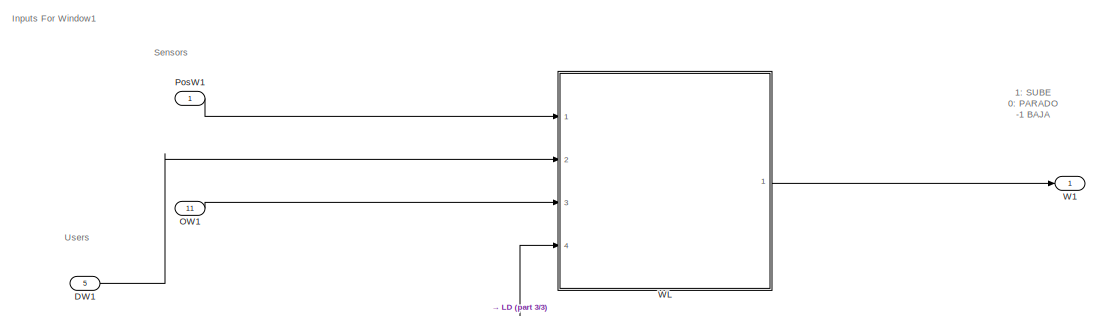
[diagram: M004/Cyber - part 1/3, full width, top band]
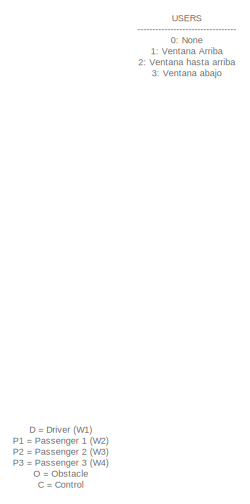
[diagram: M004/Cyber - part 2/3, top left region]
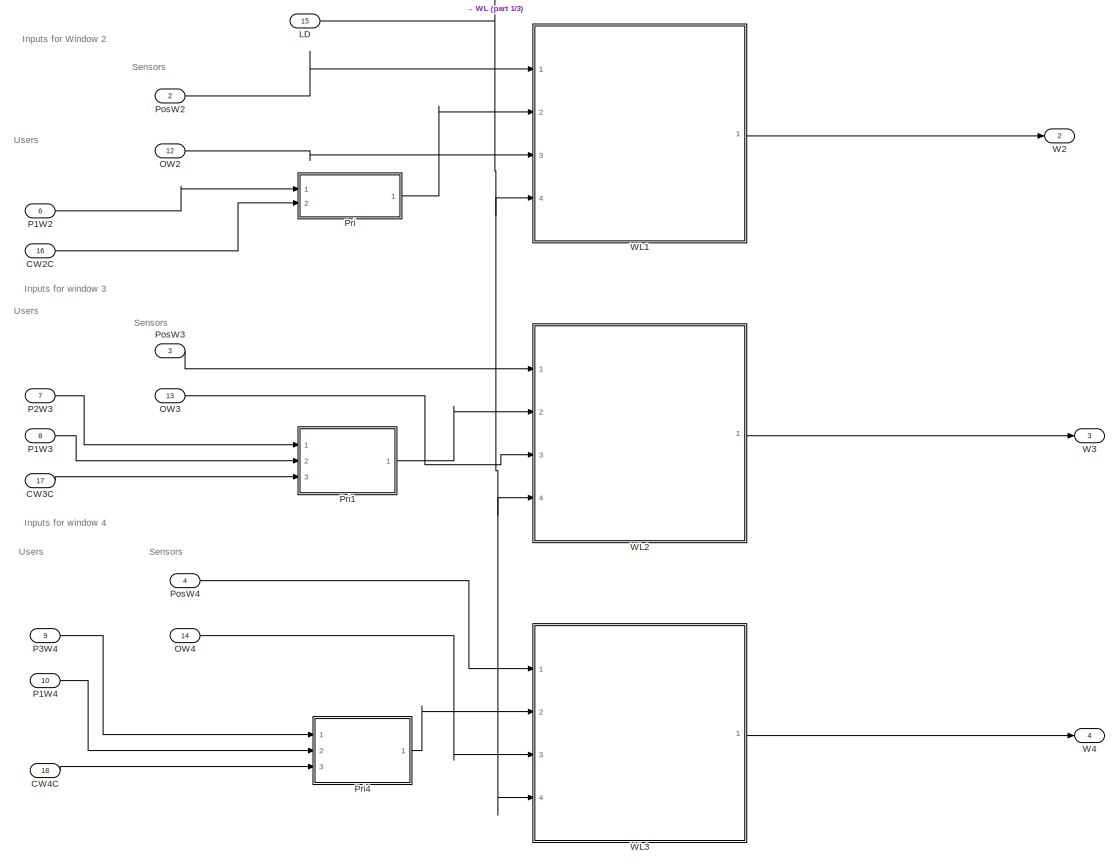
[diagram: M004/Cyber - part 3/3, full width, middle band]
BLOCK [SubSystem] M004/Cyber
  Ports = [18, 4]
  RequestExecContextInheritance = off
BLOCK [Inport] M004/Cyber/CW2C
  IconDisplay = Port number
  Port = 16
BLOCK [Inport] M004/Cyber/CW3C
  IconDisplay = Port number
  Port = 17
BLOCK [Inport] M004/Cyber/CW4C
  IconDisplay = Port number
  Port = 18
BLOCK [Inport] M004/Cyber/DW1
  IconDisplay = Port number
  Port = 5
BLOCK [Inport] M004/Cyber/LD
  IconDisplay = Port number
  Port = 15
BLOCK [Inport] M004/Cyber/OW1
  IconDisplay = Port number
  Port = 11
BLOCK [Inport] M004/Cyber/OW2
  IconDisplay = Port number
  Port = 12
BLOCK [Inport] M004/Cyber/OW3
  IconDisplay = Port number
  Port = 13
BLOCK [Inport] M004/Cyber/OW4
  IconDisplay = Port number
  Port = 14
BLOCK [Inport] M004/Cyber/P1W2
  IconDisplay = Port number
  Port = 6
BLOCK [Inport] M004/Cyber/P1W3
  IconDisplay = Port number
  Port = 8
BLOCK [Inport] M004/Cyber/P1W4
  IconDisplay = Port number
  Port = 10
BLOCK [Inport] M004/Cyber/P2W3
  IconDisplay = Port number
  Port = 7
BLOCK [Inport] M004/Cyber/P3W4
  IconDisplay = Port number
  Port = 9
BLOCK [Inport] M004/Cyber/PosW1
  IconDisplay = Port number
BLOCK [Inport] M004/Cyber/PosW2
  IconDisplay = Port number
  Port = 2
BLOCK [Inport] M004/Cyber/PosW3
  IconDisplay = Port number
  Port = 3
BLOCK [Inport] M004/Cyber/PosW4
  IconDisplay = Port number
  Port = 4
BLOCK [SubSystem] M004/Cyber/Pri
  Ports = [2, 1]
  RequestExecContextInheritance = off
BLOCK [Inport] M004/Cyber/Pri/CW2C
  IconDisplay = Port number
  Port = 2
BLOCK [Inport] M004/Cyber/Pri/P
  IconDisplay = Port number
BLOCK [Switch] M004/Cyber/Pri/Switch1
  Criteria = u2 > Threshold
  InputSameDT = off
  SaturateOnIntegerOverflow = off
  Threshold = 4
BLOCK [Outport] M004/Cyber/Pri/User
  IconDisplay = Port number
BLOCK [SubSystem] M004/Cyber/Pri1
  Ports = [3, 1]
  RequestExecContextInheritance = off
BLOCK [Inport] M004/Cyber/Pri1/CW3C
  IconDisplay = Port number
  Port = 3
BLOCK [Inport] M004/Cyber/Pri1/P
  IconDisplay = Port number
BLOCK [Inport] M004/Cyber/Pri1/P1
  IconDisplay = Port number
  Port = 2
BLOCK [Switch] M004/Cyber/Pri1/Switch1
  Criteria = u2 ~= 0
  InputSameDT = off
  SaturateOnIntegerOverflow = off
BLOCK [Switch] M004/Cyber/Pri1/Switch2
  Criteria = u2 ~= 0
  InputSameDT = off
  SaturateOnIntegerOverflow = off
BLOCK [Outport] M004/Cyber/Pri1/User
  IconDisplay = Port number
BLOCK [SubSystem] M004/Cyber/Pri4
  Ports = [3, 1]
  RequestExecContextInheritance = off
BLOCK [Inport] M004/Cyber/Pri4/CW4C
  IconDisplay = Port number
  Port = 3
BLOCK [Inport] M004/Cyber/Pri4/P
  IconDisplay = Port number
BLOCK [Inport] M004/Cyber/Pri4/P1
  IconDisplay = Port number
  Port = 2
BLOCK [Switch] M004/Cyber/Pri4/Switch1
  Criteria = u2 ~= 0
  InputSameDT = off
  SaturateOnIntegerOverflow = off
BLOCK [Switch] M004/Cyber/Pri4/Switch2
  Criteria = u2 ~= 0
  InputSameDT = off
  SaturateOnIntegerOverflow = off
BLOCK [Outport] M004/Cyber/Pri4/User
  IconDisplay = Port number
BLOCK [Outport] M004/Cyber/W1
  IconDisplay = Port number
BLOCK [Outport] M004/Cyber/W2
  IconDisplay = Port number
  Port = 2
BLOCK [Outport] M004/Cyber/W3
  IconDisplay = Port number
  Port = 3
BLOCK [Outport] M004/Cyber/W4
  IconDisplay = Port number
  Port = 4
BLOCK [SubSystem] M004/Cyber/WL
  Ports = [4, 1]
  RequestExecContextInheritance = off
BLOCK [SubSystem] M004/Cyber/WL/Chart
  ErrorFcn = Stateflow.Translate.translate
  PermitHierarchicalResolution = ExplicitOnly
  Ports = [2, 1]
  RequestExecContextInheritance = off
  SFBlockType = Chart
  TreatAsAtomicUnit = on
BLOCK [Demux] M004/Cyber/WL/Chart/ Demux 
  Outputs = 1
  Ports = [1, 1]
BLOCK [S-Function] M004/Cyber/WL/Chart/ SFunction 
  EnableBusSupport = off
  FunctionName = sf_sfun
  PortCounts = [2 2]
  Ports = [2, 2]
  SFcnIsStateOwnerBlock = off
  SFunctionDeploymentMode = off
  Tag = Stateflow S-Function c00013M_harness 17
BLOCK [Terminator] M004/Cyber/WL/Chart/ Terminator 
BLOCK [Inport] M004/Cyber/WL/Chart/S
  IconDisplay = Port number
BLOCK [Inport] M004/Cyber/WL/Chart/UI
  IconDisplay = Port number
  Port = 2
BLOCK [Outport] M004/Cyber/WL/Chart/W
  IconDisplay = Port number
BLOCK [Constant] M004/Cyber/WL/Constant
  Value = -1
BLOCK [Constant] M004/Cyber/WL/Constant1
  Value = 0
BLOCK [DataTypeConversion] M004/Cyber/WL/Data Type Conversion
  RndMeth = Floor
  SaturateOnIntegerOverflow = off
BLOCK [Inport] M004/Cyber/WL/L
  IconDisplay = Port number
  Port = 4
BLOCK [Inport] M004/Cyber/WL/OW
  IconDisplay = Port number
  Port = 3
BLOCK [Switch] M004/Cyber/WL/Switch
  Criteria = u2 ~= 0
  InputSameDT = off
  SaturateOnIntegerOverflow = off
  Threshold = 1
  ZeroCross = off
BLOCK [Switch] M004/Cyber/WL/Switch1
  Criteria = u2 ~= 0
  InputSameDT = off
  SaturateOnIntegerOverflow = off
BLOCK [Inport] M004/Cyber/WL/User
  IconDisplay = Port number
  Port = 2
BLOCK [Inport] M004/Cyber/WL/WPos
  IconDisplay = Port number
BLOCK [Outport] M004/Cyber/WL/WindowLogicOutput
  IconDisplay = Port number
BLOCK [SubSystem] M004/Cyber/WL1
  Ports = [4, 1]
  RequestExecContextInheritance = off
BLOCK [SubSystem] M004/Cyber/WL1/Chart1
  ErrorFcn = Stateflow.Translate.translate
  PermitHierarchicalResolution = ExplicitOnly
  Ports = [2, 1]
  RequestExecContextInheritance = off
  SFBlockType = Chart
  TreatAsAtomicUnit = on
BLOCK [Demux] M004/Cyber/WL1/Chart1/ Demux 
  Outputs = 1
  Ports = [1, 1]
BLOCK [S-Function] M004/Cyber/WL1/Chart1/ SFunction 
  EnableBusSupport = off
  FunctionName = sf_sfun
  PortCounts = [2 2]
  Ports = [2, 2]
  SFcnIsStateOwnerBlock = off
  SFunctionDeploymentMode = off
  Tag = Stateflow S-Function c00013M_harness 18
BLOCK [Terminator] M004/Cyber/WL1/Chart1/ Terminator 
BLOCK [Inport] M004/Cyber/WL1/Chart1/S
  IconDisplay = Port number
BLOCK [Inport] M004/Cyber/WL1/Chart1/UI
  IconDisplay = Port number
  Port = 2
BLOCK [Outport] M004/Cyber/WL1/Chart1/W
  IconDisplay = Port number
BLOCK [Constant] M004/Cyber/WL1/Constant
  Value = -1
BLOCK [Constant] M004/Cyber/WL1/Constant1
  Value = 0
BLOCK [DataTypeConversion] M004/Cyber/WL1/Data Type Conversion
  RndMeth = Floor
  SaturateOnIntegerOverflow = off
BLOCK [Inport] M004/Cyber/WL1/L
  IconDisplay = Port number
  Port = 4
BLOCK [Inport] M004/Cyber/WL1/OW
  IconDisplay = Port number
  Port = 3
BLOCK [Switch] M004/Cyber/WL1/Switch
  Criteria = u2 ~= 0
  InputSameDT = off
  SaturateOnIntegerOverflow = off
  Threshold = 1
  ZeroCross = off
BLOCK [Switch] M004/Cyber/WL1/Switch1
  Criteria = u2 ~= 0
  InputSameDT = off
  SaturateOnIntegerOverflow = off
BLOCK [Inport] M004/Cyber/WL1/User
  IconDisplay = Port number
  Port = 2
BLOCK [Inport] M004/Cyber/WL1/WPos
  IconDisplay = Port number
BLOCK [Outport] M004/Cyber/WL1/WindowLogicOutput
  IconDisplay = Port number
BLOCK [SubSystem] M004/Cyber/WL2
  Ports = [4, 1]
  RequestExecContextInheritance = off
BLOCK [SubSystem] M004/Cyber/WL2/Chart1
  ErrorFcn = Stateflow.Translate.translate
  PermitHierarchicalResolution = ExplicitOnly
  Ports = [3, 1]
  RequestExecContextInheritance = off
  SFBlockType = Chart
  TreatAsAtomicUnit = on
BLOCK [Demux] M004/Cyber/WL2/Chart1/ Demux 
  Outputs = 1
  Ports = [1, 1]
BLOCK [S-Function] M004/Cyber/WL2/Chart1/ SFunction 
  EnableBusSupport = off
  FunctionName = sf_sfun
  PortCounts = [3 2]
  Ports = [3, 2]
  SFcnIsStateOwnerBlock = off
  SFunctionDeploymentMode = off
  Tag = Stateflow S-Function c00013M_harness 19
BLOCK [Terminator] M004/Cyber/WL2/Chart1/ Terminator 
BLOCK [Inport] M004/Cyber/WL2/Chart1/PosMinW3
  IconDisplay = Port number
  Port = 3
BLOCK [Inport] M004/Cyber/WL2/Chart1/S
  IconDisplay = Port number
BLOCK [Inport] M004/Cyber/WL2/Chart1/UI
  IconDisplay = Port number
  Port = 2
BLOCK [Outport] M004/Cyber/WL2/Chart1/W
  IconDisplay = Port number
BLOCK [Constant] M004/Cyber/WL2/Constant
  Value = -1
BLOCK [Constant] M004/Cyber/WL2/Constant1
  Value = 0
BLOCK [Constant] M004/Cyber/WL2/Constant2
  Value = PosMinimaW3
BLOCK [DataTypeConversion] M004/Cyber/WL2/Data Type Conversion
  RndMeth = Floor
  SaturateOnIntegerOverflow = off
BLOCK [Inport] M004/Cyber/WL2/L
  IconDisplay = Port number
  Port = 4
BLOCK [Inport] M004/Cyber/WL2/OW
  IconDisplay = Port number
  Port = 3
BLOCK [Switch] M004/Cyber/WL2/Switch
  Criteria = u2 ~= 0
  InputSameDT = off
  SaturateOnIntegerOverflow = off
  Threshold = 1
  ZeroCross = off
BLOCK [Switch] M004/Cyber/WL2/Switch1
  Criteria = u2 ~= 0
  InputSameDT = off
  SaturateOnIntegerOverflow = off
BLOCK [Inport] M004/Cyber/WL2/User
  IconDisplay = Port number
  Port = 2
BLOCK [Inport] M004/Cyber/WL2/WPos
  IconDisplay = Port number
BLOCK [Outport] M004/Cyber/WL2/WindowLogicOutput
  IconDisplay = Port number
BLOCK [SubSystem] M004/Cyber/WL3
  Ports = [4, 1]
  RequestExecContextInheritance = off
BLOCK [SubSystem] M004/Cyber/WL3/Chart2
  ErrorFcn = Stateflow.Translate.translate
  PermitHierarchicalResolution = ExplicitOnly
  Ports = [3, 1]
  RequestExecContextInheritance = off
  SFBlockType = Chart
  TreatAsAtomicUnit = on
BLOCK [Demux] M004/Cyber/WL3/Chart2/ Demux 
  Outputs = 1
  Ports = [1, 1]
BLOCK [S-Function] M004/Cyber/WL3/Chart2/ SFunction 
  EnableBusSupport = off
  FunctionName = sf_sfun
  PortCounts = [3 2]
  Ports = [3, 2]
  SFcnIsStateOwnerBlock = off
  SFunctionDeploymentMode = off
  Tag = Stateflow S-Function c00013M_harness 20
BLOCK [Terminator] M004/Cyber/WL3/Chart2/ Terminator 
BLOCK [Inport] M004/Cyber/WL3/Chart2/PosMinW4
  IconDisplay = Port number
  Port = 3
BLOCK [Inport] M004/Cyber/WL3/Chart2/S
  IconDisplay = Port number
BLOCK [Inport] M004/Cyber/WL3/Chart2/UI
  IconDisplay = Port number
  Port = 2
BLOCK [Outport] M004/Cyber/WL3/Chart2/W
  IconDisplay = Port number
BLOCK [Constant] M004/Cyber/WL3/Constant
  Value = -1
BLOCK [Constant] M004/Cyber/WL3/Constant1
  Value = 0
BLOCK [Constant] M004/Cyber/WL3/Constant2
  Value = PosMinimaW4
BLOCK [DataTypeConversion] M004/Cyber/WL3/Data Type Conversion
  RndMeth = Floor
  SaturateOnIntegerOverflow = off
BLOCK [Inport] M004/Cyber/WL3/L
  IconDisplay = Port number
  Port = 4
BLOCK [Inport] M004/Cyber/WL3/OW
  IconDisplay = Port number
  Port = 3
BLOCK [Switch] M004/Cyber/WL3/Switch
  Criteria = u2 ~= 0
  InputSameDT = off
  SaturateOnIntegerOverflow = off
  Threshold = 1
  ZeroCross = off
BLOCK [Switch] M004/Cyber/WL3/Switch1
  Criteria = u2 ~= 0
  InputSameDT = off
  SaturateOnIntegerOverflow = off
BLOCK [Inport] M004/Cyber/WL3/User
  IconDisplay = Port number
  Port = 2
BLOCK [Inport] M004/Cyber/WL3/WPos
  IconDisplay = Port number
BLOCK [Outport] M004/Cyber/WL3/WindowLogicOutput
  IconDisplay = Port number
BLOCK [Inport] M004/DW1
  IconDisplay = Port number
  OutDataTypeStr = int8
  OutMax = 4
  OutMin = 0
BLOCK [Inport] M004/LD
  IconDisplay = Port number
  OutDataTypeStr = boolean
  Port = 11
BLOCK [Memory] M004/M
BLOCK [Memory] M004/M1
BLOCK [Memory] M004/M2
BLOCK [Memory] M004/M3
BLOCK [Inport] M004/O1
  IconDisplay = Port number
  OutDataTypeStr = boolean
  Port = 7
BLOCK [Inport] M004/O2
  IconDisplay = Port number
  OutDataTypeStr = boolean
  Port = 8
BLOCK [Inport] M004/O3
  IconDisplay = Port number
  OutDataTypeStr = boolean
  Port = 9
BLOCK [Inport] M004/O4
  IconDisplay = Port number
  OutDataTypeStr = boolean
  Port = 10
BLOCK [Inport] M004/P1W2
  IconDisplay = Port number
  OutDataTypeStr = int8
  OutMax = 4
  OutMin = 0
  Port = 2
BLOCK [Inport] M004/P1W3
  IconDisplay = Port number
  OutDataTypeStr = int8
  OutMax = 4
  OutMin = 0
  Port = 4
BLOCK [Inport] M004/P1W4
  IconDisplay = Port number
  OutDataTypeStr = int8
  OutMax = 4
  OutMin = 0
  Port = 6
BLOCK [Inport] M004/P2W3
  IconDisplay = Port number
  OutDataTypeStr = int8
  OutMax = 4
  OutMin = 0
  Port = 3
BLOCK [Inport] M004/P3W4
  IconDisplay = Port number
  OutDataTypeStr = int8
  OutMax = 4
  OutMin = 0
  Port = 5
BLOCK [SubSystem] M004/Physical
  Ports = [4, 4]
  RequestExecContextInheritance = off
BLOCK [Inport] M004/Physical/InW1
  IconDisplay = Port number
BLOCK [Inport] M004/Physical/InW2
  IconDisplay = Port number
  Port = 2
BLOCK [Inport] M004/Physical/InW3
  IconDisplay = Port number
  Port = 3
BLOCK [Inport] M004/Physical/InW4
  IconDisplay = Port number
  Port = 4
BLOCK [SubSystem] M004/Physical/W
  Ports = [1, 1]
  RequestExecContextInheritance = off
BLOCK [SubSystem] M004/Physical/W/DC_Engine
  Ports = [1, 1]
  RequestExecContextInheritance = off
BLOCK [Gain] M004/Physical/W/DC_Engine/(Inductance)
  Gain = 1/L
  OutDataTypeStr = Inherit: Inherit via internal rule
  ParamDataTypeStr = Inherit: Inherit via internal rule
  SaturateOnIntegerOverflow = off
BLOCK [Gain] M004/Physical/W/DC_Engine/(Inductance)1
  Gain = 1/J
  OutDataTypeStr = Inherit: Inherit via internal rule
  ParamDataTypeStr = Inherit: Inherit via internal rule
  SaturateOnIntegerOverflow = off
BLOCK [Sum] M004/Physical/W/DC_Engine/Add
  InputSameDT = off
  Inputs = -+-
  OutDataTypeStr = Inherit: Inherit via internal rule
  Ports = [3, 1]
  SaturateOnIntegerOverflow = off
BLOCK [Sum] M004/Physical/W/DC_Engine/Add1
  InputSameDT = off
  Inputs = +-
  OutDataTypeStr = Inherit: Inherit via internal rule
  Ports = [2, 1]
  SaturateOnIntegerOverflow = off
BLOCK [Gain] M004/Physical/W/DC_Engine/Damping
  Gain = b
  OutDataTypeStr = Inherit: Inherit via internal rule
  ParamDataTypeStr = Inherit: Inherit via internal rule
  SaturateOnIntegerOverflow = off
BLOCK [DiscreteIntegrator] M004/Physical/W/DC_Engine/Discrete-Time Integrator
  ICPrevOutput = DiscIntNeverNeededParam
  ICPrevScaledInput = DiscIntNeverNeededParam
  Ports = [1, 1]
  SampleTime = -1
BLOCK [DiscreteIntegrator] M004/Physical/W/DC_Engine/Discrete-Time Integrator1
  ICPrevOutput = DiscIntNeverNeededParam
  ICPrevScaledInput = DiscIntNeverNeededParam
  Ports = [1, 1]
  SampleTime = -1
BLOCK [Gain] M004/Physical/W/DC_Engine/Ke
  Gain = K
  OutDataTypeStr = Inherit: Inherit via internal rule
  ParamDataTypeStr = Inherit: Inherit via internal rule
  SaturateOnIntegerOverflow = off
BLOCK [Gain] M004/Physical/W/DC_Engine/Kt
  Gain = K
  OutDataTypeStr = Inherit: Inherit via internal rule
  ParamDataTypeStr = Inherit: Inherit via internal rule
  SaturateOnIntegerOverflow = off
BLOCK [Gain] M004/Physical/W/DC_Engine/Resistance
  Gain = R
  OutDataTypeStr = Inherit: Inherit via internal rule
  ParamDataTypeStr = Inherit: Inherit via internal rule
  SaturateOnIntegerOverflow = off
BLOCK [Outport] M004/Physical/W/DC_Engine/Speed
  IconDisplay = Port number
BLOCK [Gain] M004/Physical/W/DC_Engine/Voltage
  Gain = 10
  OutDataTypeStr = Inherit: Inherit via internal rule
  ParamDataTypeStr = Inherit: Inherit via internal rule
  SaturateOnIntegerOverflow = off
BLOCK [Inport] M004/Physical/W/DC_Engine/input
  IconDisplay = Port number
BLOCK [DiscreteIntegrator] M004/Physical/W/Discrete-Time Integrator
  ICPrevOutput = DiscIntNeverNeededParam
  ICPrevScaledInput = DiscIntNeverNeededParam
  InitialCondition = 5
  LimitOutput = on
  LowerSaturationLimit = 0
  Ports = [1, 1]
  SampleTime = -1
  UpperSaturationLimit = 5
BLOCK [Inport] M004/Physical/W/WIn
  IconDisplay = Port number
BLOCK [Outport] M004/Physical/W/WPos
  IconDisplay = Port number
BLOCK [Outport] M004/Physical/W1
  IconDisplay = Port number
BLOCK [Outport] M004/Physical/W2
  IconDisplay = Port number
  Port = 2
BLOCK [Outport] M004/Physical/W3
  IconDisplay = Port number
  Port = 3
BLOCK [Outport] M004/Physical/W4
  IconDisplay = Port number
  Port = 4
BLOCK [SubSystem] M004/Physical/W5
  Ports = [1, 1]
  RequestExecContextInheritance = off
BLOCK [SubSystem] M004/Physical/W5/DC_Engine
  Ports = [1, 1]
  RequestExecContextInheritance = off
BLOCK [Gain] M004/Physical/W5/DC_Engine/(Inductance)
  Gain = 1/L
  OutDataTypeStr = Inherit: Inherit via internal rule
  ParamDataTypeStr = Inherit: Inherit via internal rule
  SaturateOnIntegerOverflow = off
BLOCK [Gain] M004/Physical/W5/DC_Engine/(Inductance)1
  Gain = 1/J
  OutDataTypeStr = Inherit: Inherit via internal rule
  ParamDataTypeStr = Inherit: Inherit via internal rule
  SaturateOnIntegerOverflow = off
BLOCK [Sum] M004/Physical/W5/DC_Engine/Add
  InputSameDT = off
  Inputs = -+-
  OutDataTypeStr = Inherit: Inherit via internal rule
  Ports = [3, 1]
  SaturateOnIntegerOverflow = off
BLOCK [Sum] M004/Physical/W5/DC_Engine/Add1
  InputSameDT = off
  Inputs = +-
  OutDataTypeStr = Inherit: Inherit via internal rule
  Ports = [2, 1]
  SaturateOnIntegerOverflow = off
BLOCK [Gain] M004/Physical/W5/DC_Engine/Damping
  Gain = b
  OutDataTypeStr = Inherit: Inherit via internal rule
  ParamDataTypeStr = Inherit: Inherit via internal rule
  SaturateOnIntegerOverflow = off
BLOCK [DiscreteIntegrator] M004/Physical/W5/DC_Engine/Discrete-Time Integrator
  ICPrevOutput = DiscIntNeverNeededParam
  ICPrevScaledInput = DiscIntNeverNeededParam
  Ports = [1, 1]
  SampleTime = -1
BLOCK [DiscreteIntegrator] M004/Physical/W5/DC_Engine/Discrete-Time Integrator1
  ICPrevOutput = DiscIntNeverNeededParam
  ICPrevScaledInput = DiscIntNeverNeededParam
  Ports = [1, 1]
  SampleTime = -1
BLOCK [Gain] M004/Physical/W5/DC_Engine/Ke
  Gain = K
  OutDataTypeStr = Inherit: Inherit via internal rule
  ParamDataTypeStr = Inherit: Inherit via internal rule
  SaturateOnIntegerOverflow = off
BLOCK [Gain] M004/Physical/W5/DC_Engine/Kt
  Gain = K
  OutDataTypeStr = Inherit: Inherit via internal rule
  ParamDataTypeStr = Inherit: Inherit via internal rule
  SaturateOnIntegerOverflow = off
BLOCK [Gain] M004/Physical/W5/DC_Engine/Resistance
  Gain = R
  OutDataTypeStr = Inherit: Inherit via internal rule
  ParamDataTypeStr = Inherit: Inherit via internal rule
  SaturateOnIntegerOverflow = off
BLOCK [Outport] M004/Physical/W5/DC_Engine/Speed
  IconDisplay = Port number
BLOCK [Gain] M004/Physical/W5/DC_Engine/Voltage
  Gain = 10
  OutDataTypeStr = Inherit: Inherit via internal rule
  ParamDataTypeStr = Inherit: Inherit via internal rule
  SaturateOnIntegerOverflow = off
BLOCK [Inport] M004/Physical/W5/DC_Engine/input
  IconDisplay = Port number
BLOCK [DiscreteIntegrator] M004/Physical/W5/Discrete-Time Integrator
  ICPrevOutput = DiscIntNeverNeededParam
  ICPrevScaledInput = DiscIntNeverNeededParam
  InitialCondition = 5
  LimitOutput = on
  LowerSaturationLimit = 0
  Ports = [1, 1]
  SampleTime = -1
  UpperSaturationLimit = 5
BLOCK [Inport] M004/Physical/W5/WIn
  IconDisplay = Port number
BLOCK [Outport] M004/Physical/W5/WPos
  IconDisplay = Port number
BLOCK [SubSystem] M004/Physical/W6
  Ports = [1, 1]
  RequestExecContextInheritance = off
BLOCK [SubSystem] M004/Physical/W6/DC_Engine
  Ports = [1, 1]
  RequestExecContextInheritance = off
BLOCK [Gain] M004/Physical/W6/DC_Engine/(Inductance)
  Gain = 1/L
  OutDataTypeStr = Inherit: Inherit via internal rule
  ParamDataTypeStr = Inherit: Inherit via internal rule
  SaturateOnIntegerOverflow = off
BLOCK [Gain] M004/Physical/W6/DC_Engine/(Inductance)1
  Gain = 1/J
  OutDataTypeStr = Inherit: Inherit via internal rule
  ParamDataTypeStr = Inherit: Inherit via internal rule
  SaturateOnIntegerOverflow = off
BLOCK [Sum] M004/Physical/W6/DC_Engine/Add
  InputSameDT = off
  Inputs = -+-
  OutDataTypeStr = Inherit: Inherit via internal rule
  Ports = [3, 1]
  SaturateOnIntegerOverflow = off
BLOCK [Sum] M004/Physical/W6/DC_Engine/Add1
  InputSameDT = off
  Inputs = +-
  OutDataTypeStr = Inherit: Inherit via internal rule
  Ports = [2, 1]
  SaturateOnIntegerOverflow = off
BLOCK [Gain] M004/Physical/W6/DC_Engine/Damping
  Gain = b
  OutDataTypeStr = Inherit: Inherit via internal rule
  ParamDataTypeStr = Inherit: Inherit via internal rule
  SaturateOnIntegerOverflow = off
BLOCK [DiscreteIntegrator] M004/Physical/W6/DC_Engine/Discrete-Time Integrator
  ICPrevOutput = DiscIntNeverNeededParam
  ICPrevScaledInput = DiscIntNeverNeededParam
  Ports = [1, 1]
  SampleTime = -1
BLOCK [DiscreteIntegrator] M004/Physical/W6/DC_Engine/Discrete-Time Integrator1
  ICPrevOutput = DiscIntNeverNeededParam
  ICPrevScaledInput = DiscIntNeverNeededParam
  Ports = [1, 1]
  SampleTime = -1
BLOCK [Gain] M004/Physical/W6/DC_Engine/Ke
  Gain = K
  OutDataTypeStr = Inherit: Inherit via internal rule
  ParamDataTypeStr = Inherit: Inherit via internal rule
  SaturateOnIntegerOverflow = off
BLOCK [Gain] M004/Physical/W6/DC_Engine/Kt
  Gain = K
  OutDataTypeStr = Inherit: Inherit via internal rule
  ParamDataTypeStr = Inherit: Inherit via internal rule
  SaturateOnIntegerOverflow = off
BLOCK [Gain] M004/Physical/W6/DC_Engine/Resistance
  Gain = R
  OutDataTypeStr = Inherit: Inherit via internal rule
  ParamDataTypeStr = Inherit: Inherit via internal rule
  SaturateOnIntegerOverflow = off
BLOCK [Outport] M004/Physical/W6/DC_Engine/Speed
  IconDisplay = Port number
BLOCK [Gain] M004/Physical/W6/DC_Engine/Voltage
  Gain = 10
  OutDataTypeStr = Inherit: Inherit via internal rule
  ParamDataTypeStr = Inherit: Inherit via internal rule
  SaturateOnIntegerOverflow = off
BLOCK [Inport] M004/Physical/W6/DC_Engine/input
  IconDisplay = Port number
BLOCK [DiscreteIntegrator] M004/Physical/W6/Discrete-Time Integrator
  ICPrevOutput = DiscIntNeverNeededParam
  ICPrevScaledInput = DiscIntNeverNeededParam
  InitialCondition = 5
  LimitOutput = on
  LowerSaturationLimit = PosMinimaW3
  Ports = [1, 1]
  SampleTime = -1
  UpperSaturationLimit = 5
BLOCK [Inport] M004/Physical/W6/WIn
  IconDisplay = Port number
BLOCK [Outport] M004/Physical/W6/WPos
  IconDisplay = Port number
BLOCK [SubSystem] M004/Physical/W7
  Ports = [1, 1]
  RequestExecContextInheritance = off
BLOCK [SubSystem] M004/Physical/W7/DC_Engine
  Ports = [1, 1]
  RequestExecContextInheritance = off
BLOCK [Gain] M004/Physical/W7/DC_Engine/(Inductance)
  Gain = 1/L
  OutDataTypeStr = Inherit: Inherit via internal rule
  ParamDataTypeStr = Inherit: Inherit via internal rule
  SaturateOnIntegerOverflow = off
BLOCK [Gain] M004/Physical/W7/DC_Engine/(Inductance)1
  Gain = 1/J
  OutDataTypeStr = Inherit: Inherit via internal rule
  ParamDataTypeStr = Inherit: Inherit via internal rule
  SaturateOnIntegerOverflow = off
BLOCK [Sum] M004/Physical/W7/DC_Engine/Add
  InputSameDT = off
  Inputs = -+-
  OutDataTypeStr = Inherit: Inherit via internal rule
  Ports = [3, 1]
  SaturateOnIntegerOverflow = off
BLOCK [Sum] M004/Physical/W7/DC_Engine/Add1
  InputSameDT = off
  Inputs = +-
  OutDataTypeStr = Inherit: Inherit via internal rule
  Ports = [2, 1]
  SaturateOnIntegerOverflow = off
BLOCK [Gain] M004/Physical/W7/DC_Engine/Damping
  Gain = b
  OutDataTypeStr = Inherit: Inherit via internal rule
  ParamDataTypeStr = Inherit: Inherit via internal rule
  SaturateOnIntegerOverflow = off
BLOCK [DiscreteIntegrator] M004/Physical/W7/DC_Engine/Discrete-Time Integrator
  ICPrevOutput = DiscIntNeverNeededParam
  ICPrevScaledInput = DiscIntNeverNeededParam
  Ports = [1, 1]
  SampleTime = -1
BLOCK [DiscreteIntegrator] M004/Physical/W7/DC_Engine/Discrete-Time Integrator1
  ICPrevOutput = DiscIntNeverNeededParam
  ICPrevScaledInput = DiscIntNeverNeededParam
  Ports = [1, 1]
  SampleTime = -1
BLOCK [Gain] M004/Physical/W7/DC_Engine/Ke
  Gain = K
  OutDataTypeStr = Inherit: Inherit via internal rule
  ParamDataTypeStr = Inherit: Inherit via internal rule
  SaturateOnIntegerOverflow = off
BLOCK [Gain] M004/Physical/W7/DC_Engine/Kt
  Gain = K
  OutDataTypeStr = Inherit: Inherit via internal rule
  ParamDataTypeStr = Inherit: Inherit via internal rule
  SaturateOnIntegerOverflow = off
BLOCK [Gain] M004/Physical/W7/DC_Engine/Resistance
  Gain = R
  OutDataTypeStr = Inherit: Inherit via internal rule
  ParamDataTypeStr = Inherit: Inherit via internal rule
  SaturateOnIntegerOverflow = off
BLOCK [Outport] M004/Physical/W7/DC_Engine/Speed
  IconDisplay = Port number
BLOCK [Gain] M004/Physical/W7/DC_Engine/Voltage
  Gain = 10
  OutDataTypeStr = Inherit: Inherit via internal rule
  ParamDataTypeStr = Inherit: Inherit via internal rule
  SaturateOnIntegerOverflow = off
BLOCK [Inport] M004/Physical/W7/DC_Engine/input
  IconDisplay = Port number
BLOCK [DiscreteIntegrator] M004/Physical/W7/Discrete-Time Integrator
  ICPrevOutput = DiscIntNeverNeededParam
  ICPrevScaledInput = DiscIntNeverNeededParam
  InitialCondition = 5
  LimitOutput = on
  LowerSaturationLimit = PosMinimaW4
  Ports = [1, 1]
  SampleTime = -1
  UpperSaturationLimit = 5
BLOCK [Inport] M004/Physical/W7/WIn
  IconDisplay = Port number
BLOCK [Outport] M004/Physical/W7/WPos
  IconDisplay = Port number
BLOCK [SubSystem] M004/S1
  Ports = [1, 1]
  RequestExecContextInheritance = off
BLOCK [Inport] M004/S1/PhyMeasure
  IconDisplay = Port number
BLOCK [Outport] M004/S1/SensorOut
  IconDisplay = Port number
BLOCK [SubSystem] M004/S2
  Ports = [1, 1]
  RequestExecContextInheritance = off
BLOCK [Inport] M004/S2/PhyMeasure
  IconDisplay = Port number
BLOCK [Outport] M004/S2/SensorOut
  IconDisplay = Port number
BLOCK [SubSystem] M004/S3
  Ports = [1, 1]
  RequestExecContextInheritance = off
BLOCK [Inport] M004/S3/PhyMeasure
  IconDisplay = Port number
BLOCK [Outport] M004/S3/SensorOut
  IconDisplay = Port number
BLOCK [SubSystem] M004/S4
  Ports = [1, 1]
  RequestExecContextInheritance = off
BLOCK [Inport] M004/S4/PhyMeasure
  IconDisplay = Port number
BLOCK [Outport] M004/S4/SensorOut
  IconDisplay = Port number
BLOCK [Outport] M004/W1Pos
  IconDisplay = Port number
BLOCK [Outport] M004/W2Pos
  IconDisplay = Port number
  Port = 2
BLOCK [Outport] M004/W3Pos
  IconDisplay = Port number
  Port = 3
BLOCK [Outport] M004/W4Pos
  IconDisplay = Port number
  Port = 4
BLOCK [SubSystem] M009
  Ports = [14, 4]
  RequestExecContextInheritance = off
BLOCK [Inport] M009/CW2C
  IconDisplay = Port number
  OutDataTypeStr = int8
  OutMax = 4
  OutMin = 0
  Port = 12
BLOCK [Inport] M009/CW3C
  IconDisplay = Port number
  OutDataTypeStr = int8
  OutMax = 4
  OutMin = 0
  Port = 13
BLOCK [Inport] M009/CW4C
  IconDisplay = Port number
  OutDataTypeStr = int8
  OutMax = 4
  OutMin = 0
  Port = 14
BLOCK [SubSystem] M009/Cyber
  Ports = [18, 4]
  RequestExecContextInheritance = off
BLOCK [Inport] M009/Cyber/CW2C
  IconDisplay = Port number
  Port = 16
BLOCK [Inport] M009/Cyber/CW3C
  IconDisplay = Port number
  Port = 17
BLOCK [Inport] M009/Cyber/CW4C
  IconDisplay = Port number
  Port = 18
BLOCK [Inport] M009/Cyber/DW1
  IconDisplay = Port number
  Port = 5
BLOCK [Inport] M009/Cyber/LD
  IconDisplay = Port number
  Port = 15
BLOCK [Inport] M009/Cyber/OW1
  IconDisplay = Port number
  Port = 11
BLOCK [Inport] M009/Cyber/OW2
  IconDisplay = Port number
  Port = 12
BLOCK [Inport] M009/Cyber/OW3
  IconDisplay = Port number
  Port = 13
BLOCK [Inport] M009/Cyber/OW4
  IconDisplay = Port number
  Port = 14
BLOCK [Inport] M009/Cyber/P1W2
  IconDisplay = Port number
  Port = 6
BLOCK [Inport] M009/Cyber/P1W3
  IconDisplay = Port number
  Port = 8
BLOCK [Inport] M009/Cyber/P1W4
  IconDisplay = Port number
  Port = 10
BLOCK [Inport] M009/Cyber/P2W3
  IconDisplay = Port number
  Port = 7
BLOCK [Inport] M009/Cyber/P3W4
  IconDisplay = Port number
  Port = 9
BLOCK [Inport] M009/Cyber/PosW1
  IconDisplay = Port number
BLOCK [Inport] M009/Cyber/PosW2
  IconDisplay = Port number
  Port = 2
BLOCK [Inport] M009/Cyber/PosW3
  IconDisplay = Port number
  Port = 3
BLOCK [Inport] M009/Cyber/PosW4
  IconDisplay = Port number
  Port = 4
BLOCK [SubSystem] M009/Cyber/Pri
  Ports = [2, 1]
  RequestExecContextInheritance = off
BLOCK [Inport] M009/Cyber/Pri/CW2C
  IconDisplay = Port number
  Port = 2
BLOCK [Inport] M009/Cyber/Pri/P
  IconDisplay = Port number
BLOCK [Switch] M009/Cyber/Pri/Switch1
  Criteria = u2 ~= 0
  InputSameDT = off
  SaturateOnIntegerOverflow = off
BLOCK [Outport] M009/Cyber/Pri/User
  IconDisplay = Port number
BLOCK [SubSystem] M009/Cyber/Pri1
  Ports = [3, 1]
  RequestExecContextInheritance = off
BLOCK [Inport] M009/Cyber/Pri1/CW3C
  IconDisplay = Port number
  Port = 3
BLOCK [Inport] M009/Cyber/Pri1/P
  IconDisplay = Port number
BLOCK [Inport] M009/Cyber/Pri1/P1
  IconDisplay = Port number
  Port = 2
BLOCK [Switch] M009/Cyber/Pri1/Switch1
  Criteria = u2 > Threshold
  InputSameDT = off
  SaturateOnIntegerOverflow = off
  Threshold = 4
BLOCK [Switch] M009/Cyber/Pri1/Switch2
  Criteria = u2 ~= 0
  InputSameDT = off
  SaturateOnIntegerOverflow = off
BLOCK [Outport] M009/Cyber/Pri1/User
  IconDisplay = Port number
BLOCK [SubSystem] M009/Cyber/Pri4
  Ports = [3, 1]
  RequestExecContextInheritance = off
BLOCK [Inport] M009/Cyber/Pri4/CW4C
  IconDisplay = Port number
  Port = 3
BLOCK [Inport] M009/Cyber/Pri4/P
  IconDisplay = Port number
BLOCK [Inport] M009/Cyber/Pri4/P1
  IconDisplay = Port number
  Port = 2
BLOCK [Switch] M009/Cyber/Pri4/Switch1
  Criteria = u2 ~= 0
  InputSameDT = off
  SaturateOnIntegerOverflow = off
BLOCK [Switch] M009/Cyber/Pri4/Switch2
  Criteria = u2 ~= 0
  InputSameDT = off
  SaturateOnIntegerOverflow = off
BLOCK [Outport] M009/Cyber/Pri4/User
  IconDisplay = Port number
BLOCK [Outport] M009/Cyber/W1
  IconDisplay = Port number
BLOCK [Outport] M009/Cyber/W2
  IconDisplay = Port number
  Port = 2
BLOCK [Outport] M009/Cyber/W3
  IconDisplay = Port number
  Port = 3
BLOCK [Outport] M009/Cyber/W4
  IconDisplay = Port number
  Port = 4
BLOCK [SubSystem] M009/Cyber/WL
  Ports = [4, 1]
  RequestExecContextInheritance = off
BLOCK [SubSystem] M009/Cyber/WL/Chart
  ErrorFcn = Stateflow.Translate.translate
  PermitHierarchicalResolution = ExplicitOnly
  Ports = [2, 1]
  RequestExecContextInheritance = off
  SFBlockType = Chart
  TreatAsAtomicUnit = on
BLOCK [Demux] M009/Cyber/WL/Chart/ Demux 
  Outputs = 1
  Ports = [1, 1]
BLOCK [S-Function] M009/Cyber/WL/Chart/ SFunction 
  EnableBusSupport = off
  FunctionName = sf_sfun
  PortCounts = [2 2]
  Ports = [2, 2]
  SFcnIsStateOwnerBlock = off
  SFunctionDeploymentMode = off
  Tag = Stateflow S-Function c00013M_harness 37
BLOCK [Terminator] M009/Cyber/WL/Chart/ Terminator 
BLOCK [Inport] M009/Cyber/WL/Chart/S
  IconDisplay = Port number
BLOCK [Inport] M009/Cyber/WL/Chart/UI
  IconDisplay = Port number
  Port = 2
BLOCK [Outport] M009/Cyber/WL/Chart/W
  IconDisplay = Port number
BLOCK [Constant] M009/Cyber/WL/Constant
  Value = -1
BLOCK [Constant] M009/Cyber/WL/Constant1
  Value = 0
BLOCK [DataTypeConversion] M009/Cyber/WL/Data Type Conversion
  RndMeth = Floor
  SaturateOnIntegerOverflow = off
BLOCK [Inport] M009/Cyber/WL/L
  IconDisplay = Port number
  Port = 4
BLOCK [Inport] M009/Cyber/WL/OW
  IconDisplay = Port number
  Port = 3
BLOCK [Switch] M009/Cyber/WL/Switch
  Criteria = u2 ~= 0
  InputSameDT = off
  SaturateOnIntegerOverflow = off
  Threshold = 1
  ZeroCross = off
BLOCK [Switch] M009/Cyber/WL/Switch1
  Criteria = u2 ~= 0
  InputSameDT = off
  SaturateOnIntegerOverflow = off
BLOCK [Inport] M009/Cyber/WL/User
  IconDisplay = Port number
  Port = 2
BLOCK [Inport] M009/Cyber/WL/WPos
  IconDisplay = Port number
BLOCK [Outport] M009/Cyber/WL/WindowLogicOutput
  IconDisplay = Port number
BLOCK [SubSystem] M009/Cyber/WL1
  Ports = [4, 1]
  RequestExecContextInheritance = off
BLOCK [SubSystem] M009/Cyber/WL1/Chart1
  ErrorFcn = Stateflow.Translate.translate
  PermitHierarchicalResolution = ExplicitOnly
  Ports = [2, 1]
  RequestExecContextInheritance = off
  SFBlockType = Chart
  TreatAsAtomicUnit = on
BLOCK [Demux] M009/Cyber/WL1/Chart1/ Demux 
  Outputs = 1
  Ports = [1, 1]
BLOCK [S-Function] M009/Cyber/WL1/Chart1/ SFunction 
  EnableBusSupport = off
  FunctionName = sf_sfun
  PortCounts = [2 2]
  Ports = [2, 2]
  SFcnIsStateOwnerBlock = off
  SFunctionDeploymentMode = off
  Tag = Stateflow S-Function c00013M_harness 38
BLOCK [Terminator] M009/Cyber/WL1/Chart1/ Terminator 
BLOCK [Inport] M009/Cyber/WL1/Chart1/S
  IconDisplay = Port number
BLOCK [Inport] M009/Cyber/WL1/Chart1/UI
  IconDisplay = Port number
  Port = 2
BLOCK [Outport] M009/Cyber/WL1/Chart1/W
  IconDisplay = Port number
BLOCK [Constant] M009/Cyber/WL1/Constant
  Value = -1
BLOCK [Constant] M009/Cyber/WL1/Constant1
  Value = 0
BLOCK [DataTypeConversion] M009/Cyber/WL1/Data Type Conversion
  RndMeth = Floor
  SaturateOnIntegerOverflow = off
BLOCK [Inport] M009/Cyber/WL1/L
  IconDisplay = Port number
  Port = 4
BLOCK [Inport] M009/Cyber/WL1/OW
  IconDisplay = Port number
  Port = 3
BLOCK [Switch] M009/Cyber/WL1/Switch
  Criteria = u2 ~= 0
  InputSameDT = off
  SaturateOnIntegerOverflow = off
  Threshold = 1
  ZeroCross = off
BLOCK [Switch] M009/Cyber/WL1/Switch1
  Criteria = u2 ~= 0
  InputSameDT = off
  SaturateOnIntegerOverflow = off
BLOCK [Inport] M009/Cyber/WL1/User
  IconDisplay = Port number
  Port = 2
BLOCK [Inport] M009/Cyber/WL1/WPos
  IconDisplay = Port number
BLOCK [Outport] M009/Cyber/WL1/WindowLogicOutput
  IconDisplay = Port number
BLOCK [SubSystem] M009/Cyber/WL2
  Ports = [4, 1]
  RequestExecContextInheritance = off
BLOCK [SubSystem] M009/Cyber/WL2/Chart1
  ErrorFcn = Stateflow.Translate.translate
  PermitHierarchicalResolution = ExplicitOnly
  Ports = [3, 1]
  RequestExecContextInheritance = off
  SFBlockType = Chart
  TreatAsAtomicUnit = on
BLOCK [Demux] M009/Cyber/WL2/Chart1/ Demux 
  Outputs = 1
  Ports = [1, 1]
BLOCK [S-Function] M009/Cyber/WL2/Chart1/ SFunction 
  EnableBusSupport = off
  FunctionName = sf_sfun
  PortCounts = [3 2]
  Ports = [3, 2]
  SFcnIsStateOwnerBlock = off
  SFunctionDeploymentMode = off
  Tag = Stateflow S-Function c00013M_harness 39
BLOCK [Terminator] M009/Cyber/WL2/Chart1/ Terminator 
BLOCK [Inport] M009/Cyber/WL2/Chart1/PosMinW3
  IconDisplay = Port number
  Port = 3
BLOCK [Inport] M009/Cyber/WL2/Chart1/S
  IconDisplay = Port number
BLOCK [Inport] M009/Cyber/WL2/Chart1/UI
  IconDisplay = Port number
  Port = 2
BLOCK [Outport] M009/Cyber/WL2/Chart1/W
  IconDisplay = Port number
BLOCK [Constant] M009/Cyber/WL2/Constant
  Value = -1
BLOCK [Constant] M009/Cyber/WL2/Constant1
  Value = 0
BLOCK [Constant] M009/Cyber/WL2/Constant2
  Value = PosMinimaW3
BLOCK [DataTypeConversion] M009/Cyber/WL2/Data Type Conversion
  RndMeth = Floor
  SaturateOnIntegerOverflow = off
BLOCK [Inport] M009/Cyber/WL2/L
  IconDisplay = Port number
  Port = 4
BLOCK [Inport] M009/Cyber/WL2/OW
  IconDisplay = Port number
  Port = 3
BLOCK [Switch] M009/Cyber/WL2/Switch
  Criteria = u2 ~= 0
  InputSameDT = off
  SaturateOnIntegerOverflow = off
  Threshold = 1
  ZeroCross = off
BLOCK [Switch] M009/Cyber/WL2/Switch1
  Criteria = u2 ~= 0
  InputSameDT = off
  SaturateOnIntegerOverflow = off
BLOCK [Inport] M009/Cyber/WL2/User
  IconDisplay = Port number
  Port = 2
BLOCK [Inport] M009/Cyber/WL2/WPos
  IconDisplay = Port number
BLOCK [Outport] M009/Cyber/WL2/WindowLogicOutput
  IconDisplay = Port number
BLOCK [SubSystem] M009/Cyber/WL3
  Ports = [4, 1]
  RequestExecContextInheritance = off
BLOCK [SubSystem] M009/Cyber/WL3/Chart2
  ErrorFcn = Stateflow.Translate.translate
  PermitHierarchicalResolution = ExplicitOnly
  Ports = [3, 1]
  RequestExecContextInheritance = off
  SFBlockType = Chart
  TreatAsAtomicUnit = on
BLOCK [Demux] M009/Cyber/WL3/Chart2/ Demux 
  Outputs = 1
  Ports = [1, 1]
BLOCK [S-Function] M009/Cyber/WL3/Chart2/ SFunction 
  EnableBusSupport = off
  FunctionName = sf_sfun
  PortCounts = [3 2]
  Ports = [3, 2]
  SFcnIsStateOwnerBlock = off
  SFunctionDeploymentMode = off
  Tag = Stateflow S-Function c00013M_harness 40
BLOCK [Terminator] M009/Cyber/WL3/Chart2/ Terminator 
BLOCK [Inport] M009/Cyber/WL3/Chart2/PosMinW4
  IconDisplay = Port number
  Port = 3
BLOCK [Inport] M009/Cyber/WL3/Chart2/S
  IconDisplay = Port number
BLOCK [Inport] M009/Cyber/WL3/Chart2/UI
  IconDisplay = Port number
  Port = 2
BLOCK [Outport] M009/Cyber/WL3/Chart2/W
  IconDisplay = Port number
BLOCK [Constant] M009/Cyber/WL3/Constant
  Value = -1
BLOCK [Constant] M009/Cyber/WL3/Constant1
  Value = 0
BLOCK [Constant] M009/Cyber/WL3/Constant2
  Value = PosMinimaW4
BLOCK [DataTypeConversion] M009/Cyber/WL3/Data Type Conversion
  RndMeth = Floor
  SaturateOnIntegerOverflow = off
BLOCK [Inport] M009/Cyber/WL3/L
  IconDisplay = Port number
  Port = 4
BLOCK [Inport] M009/Cyber/WL3/OW
  IconDisplay = Port number
  Port = 3
BLOCK [Switch] M009/Cyber/WL3/Switch
  Criteria = u2 ~= 0
  InputSameDT = off
  SaturateOnIntegerOverflow = off
  Threshold = 1
  ZeroCross = off
BLOCK [Switch] M009/Cyber/WL3/Switch1
  Criteria = u2 ~= 0
  InputSameDT = off
  SaturateOnIntegerOverflow = off
BLOCK [Inport] M009/Cyber/WL3/User
  IconDisplay = Port number
  Port = 2
BLOCK [Inport] M009/Cyber/WL3/WPos
  IconDisplay = Port number
BLOCK [Outport] M009/Cyber/WL3/WindowLogicOutput
  IconDisplay = Port number
BLOCK [Inport] M009/DW1
  IconDisplay = Port number
  OutDataTypeStr = int8
  OutMax = 4
  OutMin = 0
BLOCK [Inport] M009/LD
  IconDisplay = Port number
  OutDataTypeStr = boolean
  Port = 11
BLOCK [Memory] M009/M
BLOCK [Memory] M009/M1
BLOCK [Memory] M009/M2
BLOCK [Memory] M009/M3
BLOCK [Inport] M009/O1
  IconDisplay = Port number
  OutDataTypeStr = boolean
  Port = 7
BLOCK [Inport] M009/O2
  IconDisplay = Port number
  OutDataTypeStr = boolean
  Port = 8
BLOCK [Inport] M009/O3
  IconDisplay = Port number
  OutDataTypeStr = boolean
  Port = 9
BLOCK [Inport] M009/O4
  IconDisplay = Port number
  OutDataTypeStr = boolean
  Port = 10
BLOCK [Inport] M009/P1W2
  IconDisplay = Port number
  OutDataTypeStr = int8
  OutMax = 4
  OutMin = 0
  Port = 2
BLOCK [Inport] M009/P1W3
  IconDisplay = Port number
  OutDataTypeStr = int8
  OutMax = 4
  OutMin = 0
  Port = 4
BLOCK [Inport] M009/P1W4
  IconDisplay = Port number
  OutDataTypeStr = int8
  OutMax = 4
  OutMin = 0
  Port = 6
BLOCK [Inport] M009/P2W3
  IconDisplay = Port number
  OutDataTypeStr = int8
  OutMax = 4
  OutMin = 0
  Port = 3
BLOCK [Inport] M009/P3W4
  IconDisplay = Port number
  OutDataTypeStr = int8
  OutMax = 4
  OutMin = 0
  Port = 5
BLOCK [SubSystem] M009/Physical
  Ports = [4, 4]
  RequestExecContextInheritance = off
BLOCK [Inport] M009/Physical/InW1
  IconDisplay = Port number
BLOCK [Inport] M009/Physical/InW2
  IconDisplay = Port number
  Port = 2
BLOCK [Inport] M009/Physical/InW3
  IconDisplay = Port number
  Port = 3
BLOCK [Inport] M009/Physical/InW4
  IconDisplay = Port number
  Port = 4
BLOCK [SubSystem] M009/Physical/W
  Ports = [1, 1]
  RequestExecContextInheritance = off
BLOCK [SubSystem] M009/Physical/W/DC_Engine
  Ports = [1, 1]
  RequestExecContextInheritance = off
BLOCK [Gain] M009/Physical/W/DC_Engine/(Inductance)
  Gain = 1/L
  OutDataTypeStr = Inherit: Inherit via internal rule
  ParamDataTypeStr = Inherit: Inherit via internal rule
  SaturateOnIntegerOverflow = off
BLOCK [Gain] M009/Physical/W/DC_Engine/(Inductance)1
  Gain = 1/J
  OutDataTypeStr = Inherit: Inherit via internal rule
  ParamDataTypeStr = Inherit: Inherit via internal rule
  SaturateOnIntegerOverflow = off
BLOCK [Sum] M009/Physical/W/DC_Engine/Add
  InputSameDT = off
  Inputs = -+-
  OutDataTypeStr = Inherit: Inherit via internal rule
  Ports = [3, 1]
  SaturateOnIntegerOverflow = off
BLOCK [Sum] M009/Physical/W/DC_Engine/Add1
  InputSameDT = off
  Inputs = +-
  OutDataTypeStr = Inherit: Inherit via internal rule
  Ports = [2, 1]
  SaturateOnIntegerOverflow = off
BLOCK [Gain] M009/Physical/W/DC_Engine/Damping
  Gain = b
  OutDataTypeStr = Inherit: Inherit via internal rule
  ParamDataTypeStr = Inherit: Inherit via internal rule
  SaturateOnIntegerOverflow = off
BLOCK [DiscreteIntegrator] M009/Physical/W/DC_Engine/Discrete-Time Integrator
  ICPrevOutput = DiscIntNeverNeededParam
  ICPrevScaledInput = DiscIntNeverNeededParam
  Ports = [1, 1]
  SampleTime = -1
BLOCK [DiscreteIntegrator] M009/Physical/W/DC_Engine/Discrete-Time Integrator1
  ICPrevOutput = DiscIntNeverNeededParam
  ICPrevScaledInput = DiscIntNeverNeededParam
  Ports = [1, 1]
  SampleTime = -1
BLOCK [Gain] M009/Physical/W/DC_Engine/Ke
  Gain = K
  OutDataTypeStr = Inherit: Inherit via internal rule
  ParamDataTypeStr = Inherit: Inherit via internal rule
  SaturateOnIntegerOverflow = off
BLOCK [Gain] M009/Physical/W/DC_Engine/Kt
  Gain = K
  OutDataTypeStr = Inherit: Inherit via internal rule
  ParamDataTypeStr = Inherit: Inherit via internal rule
  SaturateOnIntegerOverflow = off
BLOCK [Gain] M009/Physical/W/DC_Engine/Resistance
  Gain = R
  OutDataTypeStr = Inherit: Inherit via internal rule
  ParamDataTypeStr = Inherit: Inherit via internal rule
  SaturateOnIntegerOverflow = off
BLOCK [Outport] M009/Physical/W/DC_Engine/Speed
  IconDisplay = Port number
BLOCK [Gain] M009/Physical/W/DC_Engine/Voltage
  Gain = 10
  OutDataTypeStr = Inherit: Inherit via internal rule
  ParamDataTypeStr = Inherit: Inherit via internal rule
  SaturateOnIntegerOverflow = off
BLOCK [Inport] M009/Physical/W/DC_Engine/input
  IconDisplay = Port number
BLOCK [DiscreteIntegrator] M009/Physical/W/Discrete-Time Integrator
  ICPrevOutput = DiscIntNeverNeededParam
  ICPrevScaledInput = DiscIntNeverNeededParam
  InitialCondition = 5
  LimitOutput = on
  LowerSaturationLimit = 0
  Ports = [1, 1]
  SampleTime = -1
  UpperSaturationLimit = 5
BLOCK [Inport] M009/Physical/W/WIn
  IconDisplay = Port number
BLOCK [Outport] M009/Physical/W/WPos
  IconDisplay = Port number
BLOCK [Outport] M009/Physical/W1
  IconDisplay = Port number
BLOCK [Outport] M009/Physical/W2
  IconDisplay = Port number
  Port = 2
BLOCK [Outport] M009/Physical/W3
  IconDisplay = Port number
  Port = 3
BLOCK [Outport] M009/Physical/W4
  IconDisplay = Port number
  Port = 4
BLOCK [SubSystem] M009/Physical/W5
  Ports = [1, 1]
  RequestExecContextInheritance = off
BLOCK [SubSystem] M009/Physical/W5/DC_Engine
  Ports = [1, 1]
  RequestExecContextInheritance = off
BLOCK [Gain] M009/Physical/W5/DC_Engine/(Inductance)
  Gain = 1/L
  OutDataTypeStr = Inherit: Inherit via internal rule
  ParamDataTypeStr = Inherit: Inherit via internal rule
  SaturateOnIntegerOverflow = off
BLOCK [Gain] M009/Physical/W5/DC_Engine/(Inductance)1
  Gain = 1/J
  OutDataTypeStr = Inherit: Inherit via internal rule
  ParamDataTypeStr = Inherit: Inherit via internal rule
  SaturateOnIntegerOverflow = off
BLOCK [Sum] M009/Physical/W5/DC_Engine/Add
  InputSameDT = off
  Inputs = -+-
  OutDataTypeStr = Inherit: Inherit via internal rule
  Ports = [3, 1]
  SaturateOnIntegerOverflow = off
BLOCK [Sum] M009/Physical/W5/DC_Engine/Add1
  InputSameDT = off
  Inputs = +-
  OutDataTypeStr = Inherit: Inherit via internal rule
  Ports = [2, 1]
  SaturateOnIntegerOverflow = off
BLOCK [Gain] M009/Physical/W5/DC_Engine/Damping
  Gain = b
  OutDataTypeStr = Inherit: Inherit via internal rule
  ParamDataTypeStr = Inherit: Inherit via internal rule
  SaturateOnIntegerOverflow = off
BLOCK [DiscreteIntegrator] M009/Physical/W5/DC_Engine/Discrete-Time Integrator
  ICPrevOutput = DiscIntNeverNeededParam
  ICPrevScaledInput = DiscIntNeverNeededParam
  Ports = [1, 1]
  SampleTime = -1
BLOCK [DiscreteIntegrator] M009/Physical/W5/DC_Engine/Discrete-Time Integrator1
  ICPrevOutput = DiscIntNeverNeededParam
  ICPrevScaledInput = DiscIntNeverNeededParam
  Ports = [1, 1]
  SampleTime = -1
BLOCK [Gain] M009/Physical/W5/DC_Engine/Ke
  Gain = K
  OutDataTypeStr = Inherit: Inherit via internal rule
  ParamDataTypeStr = Inherit: Inherit via internal rule
  SaturateOnIntegerOverflow = off
BLOCK [Gain] M009/Physical/W5/DC_Engine/Kt
  Gain = K
  OutDataTypeStr = Inherit: Inherit via internal rule
  ParamDataTypeStr = Inherit: Inherit via internal rule
  SaturateOnIntegerOverflow = off
BLOCK [Gain] M009/Physical/W5/DC_Engine/Resistance
  Gain = R
  OutDataTypeStr = Inherit: Inherit via internal rule
  ParamDataTypeStr = Inherit: Inherit via internal rule
  SaturateOnIntegerOverflow = off
BLOCK [Outport] M009/Physical/W5/DC_Engine/Speed
  IconDisplay = Port number
BLOCK [Gain] M009/Physical/W5/DC_Engine/Voltage
  Gain = 10
  OutDataTypeStr = Inherit: Inherit via internal rule
  ParamDataTypeStr = Inherit: Inherit via internal rule
  SaturateOnIntegerOverflow = off
BLOCK [Inport] M009/Physical/W5/DC_Engine/input
  IconDisplay = Port number
BLOCK [DiscreteIntegrator] M009/Physical/W5/Discrete-Time Integrator
  ICPrevOutput = DiscIntNeverNeededParam
  ICPrevScaledInput = DiscIntNeverNeededParam
  InitialCondition = 5
  LimitOutput = on
  LowerSaturationLimit = 0
  Ports = [1, 1]
  SampleTime = -1
  UpperSaturationLimit = 5
BLOCK [Inport] M009/Physical/W5/WIn
  IconDisplay = Port number
BLOCK [Outport] M009/Physical/W5/WPos
  IconDisplay = Port number
BLOCK [SubSystem] M009/Physical/W6
  Ports = [1, 1]
  RequestExecContextInheritance = off
BLOCK [SubSystem] M009/Physical/W6/DC_Engine
  Ports = [1, 1]
  RequestExecContextInheritance = off
BLOCK [Gain] M009/Physical/W6/DC_Engine/(Inductance)
  Gain = 1/L
  OutDataTypeStr = Inherit: Inherit via internal rule
  ParamDataTypeStr = Inherit: Inherit via internal rule
  SaturateOnIntegerOverflow = off
BLOCK [Gain] M009/Physical/W6/DC_Engine/(Inductance)1
  Gain = 1/J
  OutDataTypeStr = Inherit: Inherit via internal rule
  ParamDataTypeStr = Inherit: Inherit via internal rule
  SaturateOnIntegerOverflow = off
BLOCK [Sum] M009/Physical/W6/DC_Engine/Add
  InputSameDT = off
  Inputs = -+-
  OutDataTypeStr = Inherit: Inherit via internal rule
  Ports = [3, 1]
  SaturateOnIntegerOverflow = off
BLOCK [Sum] M009/Physical/W6/DC_Engine/Add1
  InputSameDT = off
  Inputs = +-
  OutDataTypeStr = Inherit: Inherit via internal rule
  Ports = [2, 1]
  SaturateOnIntegerOverflow = off
BLOCK [Gain] M009/Physical/W6/DC_Engine/Damping
  Gain = b
  OutDataTypeStr = Inherit: Inherit via internal rule
  ParamDataTypeStr = Inherit: Inherit via internal rule
  SaturateOnIntegerOverflow = off
BLOCK [DiscreteIntegrator] M009/Physical/W6/DC_Engine/Discrete-Time Integrator
  ICPrevOutput = DiscIntNeverNeededParam
  ICPrevScaledInput = DiscIntNeverNeededParam
  Ports = [1, 1]
  SampleTime = -1
BLOCK [DiscreteIntegrator] M009/Physical/W6/DC_Engine/Discrete-Time Integrator1
  ICPrevOutput = DiscIntNeverNeededParam
  ICPrevScaledInput = DiscIntNeverNeededParam
  Ports = [1, 1]
  SampleTime = -1
BLOCK [Gain] M009/Physical/W6/DC_Engine/Ke
  Gain = K
  OutDataTypeStr = Inherit: Inherit via internal rule
  ParamDataTypeStr = Inherit: Inherit via internal rule
  SaturateOnIntegerOverflow = off
BLOCK [Gain] M009/Physical/W6/DC_Engine/Kt
  Gain = K
  OutDataTypeStr = Inherit: Inherit via internal rule
  ParamDataTypeStr = Inherit: Inherit via internal rule
  SaturateOnIntegerOverflow = off
BLOCK [Gain] M009/Physical/W6/DC_Engine/Resistance
  Gain = R
  OutDataTypeStr = Inherit: Inherit via internal rule
  ParamDataTypeStr = Inherit: Inherit via internal rule
  SaturateOnIntegerOverflow = off
BLOCK [Outport] M009/Physical/W6/DC_Engine/Speed
  IconDisplay = Port number
BLOCK [Gain] M009/Physical/W6/DC_Engine/Voltage
  Gain = 10
  OutDataTypeStr = Inherit: Inherit via internal rule
  ParamDataTypeStr = Inherit: Inherit via internal rule
  SaturateOnIntegerOverflow = off
BLOCK [Inport] M009/Physical/W6/DC_Engine/input
  IconDisplay = Port number
BLOCK [DiscreteIntegrator] M009/Physical/W6/Discrete-Time Integrator
  ICPrevOutput = DiscIntNeverNeededParam
  ICPrevScaledInput = DiscIntNeverNeededParam
  InitialCondition = 5
  LimitOutput = on
  LowerSaturationLimit = PosMinimaW3
  Ports = [1, 1]
  SampleTime = -1
  UpperSaturationLimit = 5
BLOCK [Inport] M009/Physical/W6/WIn
  IconDisplay = Port number
BLOCK [Outport] M009/Physical/W6/WPos
  IconDisplay = Port number
BLOCK [SubSystem] M009/Physical/W7
  Ports = [1, 1]
  RequestExecContextInheritance = off
BLOCK [SubSystem] M009/Physical/W7/DC_Engine
  Ports = [1, 1]
  RequestExecContextInheritance = off
BLOCK [Gain] M009/Physical/W7/DC_Engine/(Inductance)
  Gain = 1/L
  OutDataTypeStr = Inherit: Inherit via internal rule
  ParamDataTypeStr = Inherit: Inherit via internal rule
  SaturateOnIntegerOverflow = off
BLOCK [Gain] M009/Physical/W7/DC_Engine/(Inductance)1
  Gain = 1/J
  OutDataTypeStr = Inherit: Inherit via internal rule
  ParamDataTypeStr = Inherit: Inherit via internal rule
  SaturateOnIntegerOverflow = off
BLOCK [Sum] M009/Physical/W7/DC_Engine/Add
  InputSameDT = off
  Inputs = -+-
  OutDataTypeStr = Inherit: Inherit via internal rule
  Ports = [3, 1]
  SaturateOnIntegerOverflow = off
BLOCK [Sum] M009/Physical/W7/DC_Engine/Add1
  InputSameDT = off
  Inputs = +-
  OutDataTypeStr = Inherit: Inherit via internal rule
  Ports = [2, 1]
  SaturateOnIntegerOverflow = off
BLOCK [Gain] M009/Physical/W7/DC_Engine/Damping
  Gain = b
  OutDataTypeStr = Inherit: Inherit via internal rule
  ParamDataTypeStr = Inherit: Inherit via internal rule
  SaturateOnIntegerOverflow = off
BLOCK [DiscreteIntegrator] M009/Physical/W7/DC_Engine/Discrete-Time Integrator
  ICPrevOutput = DiscIntNeverNeededParam
  ICPrevScaledInput = DiscIntNeverNeededParam
  Ports = [1, 1]
  SampleTime = -1
BLOCK [DiscreteIntegrator] M009/Physical/W7/DC_Engine/Discrete-Time Integrator1
  ICPrevOutput = DiscIntNeverNeededParam
  ICPrevScaledInput = DiscIntNeverNeededParam
  Ports = [1, 1]
  SampleTime = -1
BLOCK [Gain] M009/Physical/W7/DC_Engine/Ke
  Gain = K
  OutDataTypeStr = Inherit: Inherit via internal rule
  ParamDataTypeStr = Inherit: Inherit via internal rule
  SaturateOnIntegerOverflow = off
BLOCK [Gain] M009/Physical/W7/DC_Engine/Kt
  Gain = K
  OutDataTypeStr = Inherit: Inherit via internal rule
  ParamDataTypeStr = Inherit: Inherit via internal rule
  SaturateOnIntegerOverflow = off
BLOCK [Gain] M009/Physical/W7/DC_Engine/Resistance
  Gain = R
  OutDataTypeStr = Inherit: Inherit via internal rule
  ParamDataTypeStr = Inherit: Inherit via internal rule
  SaturateOnIntegerOverflow = off
BLOCK [Outport] M009/Physical/W7/DC_Engine/Speed
  IconDisplay = Port number
BLOCK [Gain] M009/Physical/W7/DC_Engine/Voltage
  Gain = 10
  OutDataTypeStr = Inherit: Inherit via internal rule
  ParamDataTypeStr = Inherit: Inherit via internal rule
  SaturateOnIntegerOverflow = off
BLOCK [Inport] M009/Physical/W7/DC_Engine/input
  IconDisplay = Port number
BLOCK [DiscreteIntegrator] M009/Physical/W7/Discrete-Time Integrator
  ICPrevOutput = DiscIntNeverNeededParam
  ICPrevScaledInput = DiscIntNeverNeededParam
  InitialCondition = 5
  LimitOutput = on
  LowerSaturationLimit = PosMinimaW4
  Ports = [1, 1]
  SampleTime = -1
  UpperSaturationLimit = 5
BLOCK [Inport] M009/Physical/W7/WIn
  IconDisplay = Port number
BLOCK [Outport] M009/Physical/W7/WPos
  IconDisplay = Port number
BLOCK [SubSystem] M009/S1
  Ports = [1, 1]
  RequestExecContextInheritance = off
BLOCK [Inport] M009/S1/PhyMeasure
  IconDisplay = Port number
BLOCK [Outport] M009/S1/SensorOut
  IconDisplay = Port number
BLOCK [SubSystem] M009/S2
  Ports = [1, 1]
  RequestExecContextInheritance = off
BLOCK [Inport] M009/S2/PhyMeasure
  IconDisplay = Port number
BLOCK [Outport] M009/S2/SensorOut
  IconDisplay = Port number
BLOCK [SubSystem] M009/S3
  Ports = [1, 1]
  RequestExecContextInheritance = off
BLOCK [Inport] M009/S3/PhyMeasure
  IconDisplay = Port number
BLOCK [Outport] M009/S3/SensorOut
  IconDisplay = Port number
BLOCK [SubSystem] M009/S4
  Ports = [1, 1]
  RequestExecContextInheritance = off
BLOCK [Inport] M009/S4/PhyMeasure
  IconDisplay = Port number
BLOCK [Outport] M009/S4/SensorOut
  IconDisplay = Port number
BLOCK [Outport] M009/W1Pos
  IconDisplay = Port number
BLOCK [Outport] M009/W2Pos
  IconDisplay = Port number
  Port = 2
BLOCK [Outport] M009/W3Pos
  IconDisplay = Port number
  Port = 3
BLOCK [Outport] M009/W4Pos
  IconDisplay = Port number
  Port = 4
BLOCK [SubSystem] M012
  Ports = [14, 4]
  RequestExecContextInheritance = off
BLOCK [Inport] M012/CW2C
  IconDisplay = Port number
  OutDataTypeStr = int8
  OutMax = 4
  OutMin = 0
  Port = 12
BLOCK [Inport] M012/CW3C
  IconDisplay = Port number
  OutDataTypeStr = int8
  OutMax = 4
  OutMin = 0
  Port = 13
BLOCK [Inport] M012/CW4C
  IconDisplay = Port number
  OutDataTypeStr = int8
  OutMax = 4
  OutMin = 0
  Port = 14
BLOCK [SubSystem] M012/Cyber
  Ports = [18, 4]
  RequestExecContextInheritance = off
BLOCK [Inport] M012/Cyber/CW2C
  IconDisplay = Port number
  Port = 16
BLOCK [Inport] M012/Cyber/CW3C
  IconDisplay = Port number
  Port = 17
BLOCK [Inport] M012/Cyber/CW4C
  IconDisplay = Port number
  Port = 18
BLOCK [Inport] M012/Cyber/DW1
  IconDisplay = Port number
  Port = 5
BLOCK [Inport] M012/Cyber/LD
  IconDisplay = Port number
  Port = 15
BLOCK [Inport] M012/Cyber/OW1
  IconDisplay = Port number
  Port = 11
BLOCK [Inport] M012/Cyber/OW2
  IconDisplay = Port number
  Port = 12
BLOCK [Inport] M012/Cyber/OW3
  IconDisplay = Port number
  Port = 13
BLOCK [Inport] M012/Cyber/OW4
  IconDisplay = Port number
  Port = 14
BLOCK [Inport] M012/Cyber/P1W2
  IconDisplay = Port number
  Port = 6
BLOCK [Inport] M012/Cyber/P1W3
  IconDisplay = Port number
  Port = 8
BLOCK [Inport] M012/Cyber/P1W4
  IconDisplay = Port number
  Port = 10
BLOCK [Inport] M012/Cyber/P2W3
  IconDisplay = Port number
  Port = 7
BLOCK [Inport] M012/Cyber/P3W4
  IconDisplay = Port number
  Port = 9
BLOCK [Inport] M012/Cyber/PosW1
  IconDisplay = Port number
BLOCK [Inport] M012/Cyber/PosW2
  IconDisplay = Port number
  Port = 2
BLOCK [Inport] M012/Cyber/PosW3
  IconDisplay = Port number
  Port = 3
BLOCK [Inport] M012/Cyber/PosW4
  IconDisplay = Port number
  Port = 4
BLOCK [SubSystem] M012/Cyber/Pri
  Ports = [2, 1]
  RequestExecContextInheritance = off
BLOCK [Inport] M012/Cyber/Pri/CW2C
  IconDisplay = Port number
  Port = 2
BLOCK [Inport] M012/Cyber/Pri/P
  IconDisplay = Port number
BLOCK [Switch] M012/Cyber/Pri/Switch1
  Criteria = u2 ~= 0
  InputSameDT = off
  SaturateOnIntegerOverflow = off
BLOCK [Outport] M012/Cyber/Pri/User
  IconDisplay = Port number
BLOCK [SubSystem] M012/Cyber/Pri1
  Ports = [3, 1]
  RequestExecContextInheritance = off
BLOCK [Inport] M012/Cyber/Pri1/CW3C
  IconDisplay = Port number
  Port = 3
BLOCK [Inport] M012/Cyber/Pri1/P
  IconDisplay = Port number
BLOCK [Inport] M012/Cyber/Pri1/P1
  IconDisplay = Port number
  Port = 2
BLOCK [Switch] M012/Cyber/Pri1/Switch1
  Criteria = u2 ~= 0
  InputSameDT = off
  SaturateOnIntegerOverflow = off
BLOCK [Switch] M012/Cyber/Pri1/Switch2
  Criteria = u2 > Threshold
  InputSameDT = off
  SaturateOnIntegerOverflow = off
  Threshold = 4
BLOCK [Outport] M012/Cyber/Pri1/User
  IconDisplay = Port number
BLOCK [SubSystem] M012/Cyber/Pri4
  Ports = [3, 1]
  RequestExecContextInheritance = off
BLOCK [Inport] M012/Cyber/Pri4/CW4C
  IconDisplay = Port number
  Port = 3
BLOCK [Inport] M012/Cyber/Pri4/P
  IconDisplay = Port number
BLOCK [Inport] M012/Cyber/Pri4/P1
  IconDisplay = Port number
  Port = 2
BLOCK [Switch] M012/Cyber/Pri4/Switch1
  Criteria = u2 ~= 0
  InputSameDT = off
  SaturateOnIntegerOverflow = off
BLOCK [Switch] M012/Cyber/Pri4/Switch2
  Criteria = u2 ~= 0
  InputSameDT = off
  SaturateOnIntegerOverflow = off
BLOCK [Outport] M012/Cyber/Pri4/User
  IconDisplay = Port number
BLOCK [Outport] M012/Cyber/W1
  IconDisplay = Port number
BLOCK [Outport] M012/Cyber/W2
  IconDisplay = Port number
  Port = 2
BLOCK [Outport] M012/Cyber/W3
  IconDisplay = Port number
  Port = 3
BLOCK [Outport] M012/Cyber/W4
  IconDisplay = Port number
  Port = 4
BLOCK [SubSystem] M012/Cyber/WL
  Ports = [4, 1]
  RequestExecContextInheritance = off
BLOCK [SubSystem] M012/Cyber/WL/Chart
  ErrorFcn = Stateflow.Translate.translate
  PermitHierarchicalResolution = ExplicitOnly
  Ports = [2, 1]
  RequestExecContextInheritance = off
  SFBlockType = Chart
  TreatAsAtomicUnit = on
BLOCK [Demux] M012/Cyber/WL/Chart/ Demux 
  Outputs = 1
  Ports = [1, 1]
BLOCK [S-Function] M012/Cyber/WL/Chart/ SFunction 
  EnableBusSupport = off
  FunctionName = sf_sfun
  PortCounts = [2 2]
  Ports = [2, 2]
  SFcnIsStateOwnerBlock = off
  SFunctionDeploymentMode = off
  Tag = Stateflow S-Function c00013M_harness 49
BLOCK [Terminator] M012/Cyber/WL/Chart/ Terminator 
BLOCK [Inport] M012/Cyber/WL/Chart/S
  IconDisplay = Port number
BLOCK [Inport] M012/Cyber/WL/Chart/UI
  IconDisplay = Port number
  Port = 2
BLOCK [Outport] M012/Cyber/WL/Chart/W
  IconDisplay = Port number
BLOCK [Constant] M012/Cyber/WL/Constant
  Value = -1
BLOCK [Constant] M012/Cyber/WL/Constant1
  Value = 0
BLOCK [DataTypeConversion] M012/Cyber/WL/Data Type Conversion
  RndMeth = Floor
  SaturateOnIntegerOverflow = off
BLOCK [Inport] M012/Cyber/WL/L
  IconDisplay = Port number
  Port = 4
BLOCK [Inport] M012/Cyber/WL/OW
  IconDisplay = Port number
  Port = 3
BLOCK [Switch] M012/Cyber/WL/Switch
  Criteria = u2 ~= 0
  InputSameDT = off
  SaturateOnIntegerOverflow = off
  Threshold = 1
  ZeroCross = off
BLOCK [Switch] M012/Cyber/WL/Switch1
  Criteria = u2 ~= 0
  InputSameDT = off
  SaturateOnIntegerOverflow = off
BLOCK [Inport] M012/Cyber/WL/User
  IconDisplay = Port number
  Port = 2
BLOCK [Inport] M012/Cyber/WL/WPos
  IconDisplay = Port number
BLOCK [Outport] M012/Cyber/WL/WindowLogicOutput
  IconDisplay = Port number
BLOCK [SubSystem] M012/Cyber/WL1
  Ports = [4, 1]
  RequestExecContextInheritance = off
BLOCK [SubSystem] M012/Cyber/WL1/Chart1
  ErrorFcn = Stateflow.Translate.translate
  PermitHierarchicalResolution = ExplicitOnly
  Ports = [2, 1]
  RequestExecContextInheritance = off
  SFBlockType = Chart
  TreatAsAtomicUnit = on
BLOCK [Demux] M012/Cyber/WL1/Chart1/ Demux 
  Outputs = 1
  Ports = [1, 1]
BLOCK [S-Function] M012/Cyber/WL1/Chart1/ SFunction 
  EnableBusSupport = off
  FunctionName = sf_sfun
  PortCounts = [2 2]
  Ports = [2, 2]
  SFcnIsStateOwnerBlock = off
  SFunctionDeploymentMode = off
  Tag = Stateflow S-Function c00013M_harness 50
BLOCK [Terminator] M012/Cyber/WL1/Chart1/ Terminator 
BLOCK [Inport] M012/Cyber/WL1/Chart1/S
  IconDisplay = Port number
BLOCK [Inport] M012/Cyber/WL1/Chart1/UI
  IconDisplay = Port number
  Port = 2
BLOCK [Outport] M012/Cyber/WL1/Chart1/W
  IconDisplay = Port number
BLOCK [Constant] M012/Cyber/WL1/Constant
  Value = -1
BLOCK [Constant] M012/Cyber/WL1/Constant1
  Value = 0
BLOCK [DataTypeConversion] M012/Cyber/WL1/Data Type Conversion
  RndMeth = Floor
  SaturateOnIntegerOverflow = off
BLOCK [Inport] M012/Cyber/WL1/L
  IconDisplay = Port number
  Port = 4
BLOCK [Inport] M012/Cyber/WL1/OW
  IconDisplay = Port number
  Port = 3
BLOCK [Switch] M012/Cyber/WL1/Switch
  Criteria = u2 ~= 0
  InputSameDT = off
  SaturateOnIntegerOverflow = off
  Threshold = 1
  ZeroCross = off
BLOCK [Switch] M012/Cyber/WL1/Switch1
  Criteria = u2 ~= 0
  InputSameDT = off
  SaturateOnIntegerOverflow = off
BLOCK [Inport] M012/Cyber/WL1/User
  IconDisplay = Port number
  Port = 2
BLOCK [Inport] M012/Cyber/WL1/WPos
  IconDisplay = Port number
BLOCK [Outport] M012/Cyber/WL1/WindowLogicOutput
  IconDisplay = Port number
BLOCK [SubSystem] M012/Cyber/WL2
  Ports = [4, 1]
  RequestExecContextInheritance = off
BLOCK [SubSystem] M012/Cyber/WL2/Chart1
  ErrorFcn = Stateflow.Translate.translate
  PermitHierarchicalResolution = ExplicitOnly
  Ports = [3, 1]
  RequestExecContextInheritance = off
  SFBlockType = Chart
  TreatAsAtomicUnit = on
BLOCK [Demux] M012/Cyber/WL2/Chart1/ Demux 
  Outputs = 1
  Ports = [1, 1]
BLOCK [S-Function] M012/Cyber/WL2/Chart1/ SFunction 
  EnableBusSupport = off
  FunctionName = sf_sfun
  PortCounts = [3 2]
  Ports = [3, 2]
  SFcnIsStateOwnerBlock = off
  SFunctionDeploymentMode = off
  Tag = Stateflow S-Function c00013M_harness 51
BLOCK [Terminator] M012/Cyber/WL2/Chart1/ Terminator 
BLOCK [Inport] M012/Cyber/WL2/Chart1/PosMinW3
  IconDisplay = Port number
  Port = 3
BLOCK [Inport] M012/Cyber/WL2/Chart1/S
  IconDisplay = Port number
BLOCK [Inport] M012/Cyber/WL2/Chart1/UI
  IconDisplay = Port number
  Port = 2
BLOCK [Outport] M012/Cyber/WL2/Chart1/W
  IconDisplay = Port number
BLOCK [Constant] M012/Cyber/WL2/Constant
  Value = -1
BLOCK [Constant] M012/Cyber/WL2/Constant1
  Value = 0
BLOCK [Constant] M012/Cyber/WL2/Constant2
  Value = PosMinimaW3
BLOCK [DataTypeConversion] M012/Cyber/WL2/Data Type Conversion
  RndMeth = Floor
  SaturateOnIntegerOverflow = off
BLOCK [Inport] M012/Cyber/WL2/L
  IconDisplay = Port number
  Port = 4
BLOCK [Inport] M012/Cyber/WL2/OW
  IconDisplay = Port number
  Port = 3
BLOCK [Switch] M012/Cyber/WL2/Switch
  Criteria = u2 ~= 0
  InputSameDT = off
  SaturateOnIntegerOverflow = off
  Threshold = 1
  ZeroCross = off
BLOCK [Switch] M012/Cyber/WL2/Switch1
  Criteria = u2 ~= 0
  InputSameDT = off
  SaturateOnIntegerOverflow = off
BLOCK [Inport] M012/Cyber/WL2/User
  IconDisplay = Port number
  Port = 2
BLOCK [Inport] M012/Cyber/WL2/WPos
  IconDisplay = Port number
BLOCK [Outport] M012/Cyber/WL2/WindowLogicOutput
  IconDisplay = Port number
BLOCK [SubSystem] M012/Cyber/WL3
  Ports = [4, 1]
  RequestExecContextInheritance = off
BLOCK [SubSystem] M012/Cyber/WL3/Chart2
  ErrorFcn = Stateflow.Translate.translate
  PermitHierarchicalResolution = ExplicitOnly
  Ports = [3, 1]
  RequestExecContextInheritance = off
  SFBlockType = Chart
  TreatAsAtomicUnit = on
BLOCK [Demux] M012/Cyber/WL3/Chart2/ Demux 
  Outputs = 1
  Ports = [1, 1]
BLOCK [S-Function] M012/Cyber/WL3/Chart2/ SFunction 
  EnableBusSupport = off
  FunctionName = sf_sfun
  PortCounts = [3 2]
  Ports = [3, 2]
  SFcnIsStateOwnerBlock = off
  SFunctionDeploymentMode = off
  Tag = Stateflow S-Function c00013M_harness 52
BLOCK [Terminator] M012/Cyber/WL3/Chart2/ Terminator 
BLOCK [Inport] M012/Cyber/WL3/Chart2/PosMinW4
  IconDisplay = Port number
  Port = 3
BLOCK [Inport] M012/Cyber/WL3/Chart2/S
  IconDisplay = Port number
BLOCK [Inport] M012/Cyber/WL3/Chart2/UI
  IconDisplay = Port number
  Port = 2
BLOCK [Outport] M012/Cyber/WL3/Chart2/W
  IconDisplay = Port number
BLOCK [Constant] M012/Cyber/WL3/Constant
  Value = -1
BLOCK [Constant] M012/Cyber/WL3/Constant1
  Value = 0
BLOCK [Constant] M012/Cyber/WL3/Constant2
  Value = PosMinimaW4
BLOCK [DataTypeConversion] M012/Cyber/WL3/Data Type Conversion
  RndMeth = Floor
  SaturateOnIntegerOverflow = off
BLOCK [Inport] M012/Cyber/WL3/L
  IconDisplay = Port number
  Port = 4
BLOCK [Inport] M012/Cyber/WL3/OW
  IconDisplay = Port number
  Port = 3
BLOCK [Switch] M012/Cyber/WL3/Switch
  Criteria = u2 ~= 0
  InputSameDT = off
  SaturateOnIntegerOverflow = off
  Threshold = 1
  ZeroCross = off
BLOCK [Switch] M012/Cyber/WL3/Switch1
  Criteria = u2 ~= 0
  InputSameDT = off
  SaturateOnIntegerOverflow = off
BLOCK [Inport] M012/Cyber/WL3/User
  IconDisplay = Port number
  Port = 2
BLOCK [Inport] M012/Cyber/WL3/WPos
  IconDisplay = Port number
BLOCK [Outport] M012/Cyber/WL3/WindowLogicOutput
  IconDisplay = Port number
BLOCK [Inport] M012/DW1
  IconDisplay = Port number
  OutDataTypeStr = int8
  OutMax = 4
  OutMin = 0
BLOCK [Inport] M012/LD
  IconDisplay = Port number
  OutDataTypeStr = boolean
  Port = 11
BLOCK [Memory] M012/M
BLOCK [Memory] M012/M1
BLOCK [Memory] M012/M2
BLOCK [Memory] M012/M3
BLOCK [Inport] M012/O1
  IconDisplay = Port number
  OutDataTypeStr = boolean
  Port = 7
BLOCK [Inport] M012/O2
  IconDisplay = Port number
  OutDataTypeStr = boolean
  Port = 8
BLOCK [Inport] M012/O3
  IconDisplay = Port number
  OutDataTypeStr = boolean
  Port = 9
BLOCK [Inport] M012/O4
  IconDisplay = Port number
  OutDataTypeStr = boolean
  Port = 10
BLOCK [Inport] M012/P1W2
  IconDisplay = Port number
  OutDataTypeStr = int8
  OutMax = 4
  OutMin = 0
  Port = 2
BLOCK [Inport] M012/P1W3
  IconDisplay = Port number
  OutDataTypeStr = int8
  OutMax = 4
  OutMin = 0
  Port = 4
BLOCK [Inport] M012/P1W4
  IconDisplay = Port number
  OutDataTypeStr = int8
  OutMax = 4
  OutMin = 0
  Port = 6
BLOCK [Inport] M012/P2W3
  IconDisplay = Port number
  OutDataTypeStr = int8
  OutMax = 4
  OutMin = 0
  Port = 3
BLOCK [Inport] M012/P3W4
  IconDisplay = Port number
  OutDataTypeStr = int8
  OutMax = 4
  OutMin = 0
  Port = 5
BLOCK [SubSystem] M012/Physical
  Ports = [4, 4]
  RequestExecContextInheritance = off
BLOCK [Inport] M012/Physical/InW1
  IconDisplay = Port number
BLOCK [Inport] M012/Physical/InW2
  IconDisplay = Port number
  Port = 2
BLOCK [Inport] M012/Physical/InW3
  IconDisplay = Port number
  Port = 3
BLOCK [Inport] M012/Physical/InW4
  IconDisplay = Port number
  Port = 4
BLOCK [SubSystem] M012/Physical/W
  Ports = [1, 1]
  RequestExecContextInheritance = off
BLOCK [SubSystem] M012/Physical/W/DC_Engine
  Ports = [1, 1]
  RequestExecContextInheritance = off
BLOCK [Gain] M012/Physical/W/DC_Engine/(Inductance)
  Gain = 1/L
  OutDataTypeStr = Inherit: Inherit via internal rule
  ParamDataTypeStr = Inherit: Inherit via internal rule
  SaturateOnIntegerOverflow = off
BLOCK [Gain] M012/Physical/W/DC_Engine/(Inductance)1
  Gain = 1/J
  OutDataTypeStr = Inherit: Inherit via internal rule
  ParamDataTypeStr = Inherit: Inherit via internal rule
  SaturateOnIntegerOverflow = off
BLOCK [Sum] M012/Physical/W/DC_Engine/Add
  InputSameDT = off
  Inputs = -+-
  OutDataTypeStr = Inherit: Inherit via internal rule
  Ports = [3, 1]
  SaturateOnIntegerOverflow = off
BLOCK [Sum] M012/Physical/W/DC_Engine/Add1
  InputSameDT = off
  Inputs = +-
  OutDataTypeStr = Inherit: Inherit via internal rule
  Ports = [2, 1]
  SaturateOnIntegerOverflow = off
BLOCK [Gain] M012/Physical/W/DC_Engine/Damping
  Gain = b
  OutDataTypeStr = Inherit: Inherit via internal rule
  ParamDataTypeStr = Inherit: Inherit via internal rule
  SaturateOnIntegerOverflow = off
BLOCK [DiscreteIntegrator] M012/Physical/W/DC_Engine/Discrete-Time Integrator
  ICPrevOutput = DiscIntNeverNeededParam
  ICPrevScaledInput = DiscIntNeverNeededParam
  Ports = [1, 1]
  SampleTime = -1
BLOCK [DiscreteIntegrator] M012/Physical/W/DC_Engine/Discrete-Time Integrator1
  ICPrevOutput = DiscIntNeverNeededParam
  ICPrevScaledInput = DiscIntNeverNeededParam
  Ports = [1, 1]
  SampleTime = -1
BLOCK [Gain] M012/Physical/W/DC_Engine/Ke
  Gain = K
  OutDataTypeStr = Inherit: Inherit via internal rule
  ParamDataTypeStr = Inherit: Inherit via internal rule
  SaturateOnIntegerOverflow = off
BLOCK [Gain] M012/Physical/W/DC_Engine/Kt
  Gain = K
  OutDataTypeStr = Inherit: Inherit via internal rule
  ParamDataTypeStr = Inherit: Inherit via internal rule
  SaturateOnIntegerOverflow = off
BLOCK [Gain] M012/Physical/W/DC_Engine/Resistance
  Gain = R
  OutDataTypeStr = Inherit: Inherit via internal rule
  ParamDataTypeStr = Inherit: Inherit via internal rule
  SaturateOnIntegerOverflow = off
BLOCK [Outport] M012/Physical/W/DC_Engine/Speed
  IconDisplay = Port number
BLOCK [Gain] M012/Physical/W/DC_Engine/Voltage
  Gain = 10
  OutDataTypeStr = Inherit: Inherit via internal rule
  ParamDataTypeStr = Inherit: Inherit via internal rule
  SaturateOnIntegerOverflow = off
BLOCK [Inport] M012/Physical/W/DC_Engine/input
  IconDisplay = Port number
BLOCK [DiscreteIntegrator] M012/Physical/W/Discrete-Time Integrator
  ICPrevOutput = DiscIntNeverNeededParam
  ICPrevScaledInput = DiscIntNeverNeededParam
  InitialCondition = 5
  LimitOutput = on
  LowerSaturationLimit = 0
  Ports = [1, 1]
  SampleTime = -1
  UpperSaturationLimit = 5
BLOCK [Inport] M012/Physical/W/WIn
  IconDisplay = Port number
BLOCK [Outport] M012/Physical/W/WPos
  IconDisplay = Port number
BLOCK [Outport] M012/Physical/W1
  IconDisplay = Port number
BLOCK [Outport] M012/Physical/W2
  IconDisplay = Port number
  Port = 2
BLOCK [Outport] M012/Physical/W3
  IconDisplay = Port number
  Port = 3
BLOCK [Outport] M012/Physical/W4
  IconDisplay = Port number
  Port = 4
BLOCK [SubSystem] M012/Physical/W5
  Ports = [1, 1]
  RequestExecContextInheritance = off
BLOCK [SubSystem] M012/Physical/W5/DC_Engine
  Ports = [1, 1]
  RequestExecContextInheritance = off
BLOCK [Gain] M012/Physical/W5/DC_Engine/(Inductance)
  Gain = 1/L
  OutDataTypeStr = Inherit: Inherit via internal rule
  ParamDataTypeStr = Inherit: Inherit via internal rule
  SaturateOnIntegerOverflow = off
BLOCK [Gain] M012/Physical/W5/DC_Engine/(Inductance)1
  Gain = 1/J
  OutDataTypeStr = Inherit: Inherit via internal rule
  ParamDataTypeStr = Inherit: Inherit via internal rule
  SaturateOnIntegerOverflow = off
BLOCK [Sum] M012/Physical/W5/DC_Engine/Add
  InputSameDT = off
  Inputs = -+-
  OutDataTypeStr = Inherit: Inherit via internal rule
  Ports = [3, 1]
  SaturateOnIntegerOverflow = off
BLOCK [Sum] M012/Physical/W5/DC_Engine/Add1
  InputSameDT = off
  Inputs = +-
  OutDataTypeStr = Inherit: Inherit via internal rule
  Ports = [2, 1]
  SaturateOnIntegerOverflow = off
BLOCK [Gain] M012/Physical/W5/DC_Engine/Damping
  Gain = b
  OutDataTypeStr = Inherit: Inherit via internal rule
  ParamDataTypeStr = Inherit: Inherit via internal rule
  SaturateOnIntegerOverflow = off
BLOCK [DiscreteIntegrator] M012/Physical/W5/DC_Engine/Discrete-Time Integrator
  ICPrevOutput = DiscIntNeverNeededParam
  ICPrevScaledInput = DiscIntNeverNeededParam
  Ports = [1, 1]
  SampleTime = -1
BLOCK [DiscreteIntegrator] M012/Physical/W5/DC_Engine/Discrete-Time Integrator1
  ICPrevOutput = DiscIntNeverNeededParam
  ICPrevScaledInput = DiscIntNeverNeededParam
  Ports = [1, 1]
  SampleTime = -1
BLOCK [Gain] M012/Physical/W5/DC_Engine/Ke
  Gain = K
  OutDataTypeStr = Inherit: Inherit via internal rule
  ParamDataTypeStr = Inherit: Inherit via internal rule
  SaturateOnIntegerOverflow = off
BLOCK [Gain] M012/Physical/W5/DC_Engine/Kt
  Gain = K
  OutDataTypeStr = Inherit: Inherit via internal rule
  ParamDataTypeStr = Inherit: Inherit via internal rule
  SaturateOnIntegerOverflow = off
BLOCK [Gain] M012/Physical/W5/DC_Engine/Resistance
  Gain = R
  OutDataTypeStr = Inherit: Inherit via internal rule
  ParamDataTypeStr = Inherit: Inherit via internal rule
  SaturateOnIntegerOverflow = off
BLOCK [Outport] M012/Physical/W5/DC_Engine/Speed
  IconDisplay = Port number
BLOCK [Gain] M012/Physical/W5/DC_Engine/Voltage
  Gain = 10
  OutDataTypeStr = Inherit: Inherit via internal rule
  ParamDataTypeStr = Inherit: Inherit via internal rule
  SaturateOnIntegerOverflow = off
BLOCK [Inport] M012/Physical/W5/DC_Engine/input
  IconDisplay = Port number
BLOCK [DiscreteIntegrator] M012/Physical/W5/Discrete-Time Integrator
  ICPrevOutput = DiscIntNeverNeededParam
  ICPrevScaledInput = DiscIntNeverNeededParam
  InitialCondition = 5
  LimitOutput = on
  LowerSaturationLimit = 0
  Ports = [1, 1]
  SampleTime = -1
  UpperSaturationLimit = 5
BLOCK [Inport] M012/Physical/W5/WIn
  IconDisplay = Port number
BLOCK [Outport] M012/Physical/W5/WPos
  IconDisplay = Port number
BLOCK [SubSystem] M012/Physical/W6
  Ports = [1, 1]
  RequestExecContextInheritance = off
BLOCK [SubSystem] M012/Physical/W6/DC_Engine
  Ports = [1, 1]
  RequestExecContextInheritance = off
BLOCK [Gain] M012/Physical/W6/DC_Engine/(Inductance)
  Gain = 1/L
  OutDataTypeStr = Inherit: Inherit via internal rule
  ParamDataTypeStr = Inherit: Inherit via internal rule
  SaturateOnIntegerOverflow = off
BLOCK [Gain] M012/Physical/W6/DC_Engine/(Inductance)1
  Gain = 1/J
  OutDataTypeStr = Inherit: Inherit via internal rule
  ParamDataTypeStr = Inherit: Inherit via internal rule
  SaturateOnIntegerOverflow = off
BLOCK [Sum] M012/Physical/W6/DC_Engine/Add
  InputSameDT = off
  Inputs = -+-
  OutDataTypeStr = Inherit: Inherit via internal rule
  Ports = [3, 1]
  SaturateOnIntegerOverflow = off
BLOCK [Sum] M012/Physical/W6/DC_Engine/Add1
  InputSameDT = off
  Inputs = +-
  OutDataTypeStr = Inherit: Inherit via internal rule
  Ports = [2, 1]
  SaturateOnIntegerOverflow = off
BLOCK [Gain] M012/Physical/W6/DC_Engine/Damping
  Gain = b
  OutDataTypeStr = Inherit: Inherit via internal rule
  ParamDataTypeStr = Inherit: Inherit via internal rule
  SaturateOnIntegerOverflow = off
BLOCK [DiscreteIntegrator] M012/Physical/W6/DC_Engine/Discrete-Time Integrator
  ICPrevOutput = DiscIntNeverNeededParam
  ICPrevScaledInput = DiscIntNeverNeededParam
  Ports = [1, 1]
  SampleTime = -1
BLOCK [DiscreteIntegrator] M012/Physical/W6/DC_Engine/Discrete-Time Integrator1
  ICPrevOutput = DiscIntNeverNeededParam
  ICPrevScaledInput = DiscIntNeverNeededParam
  Ports = [1, 1]
  SampleTime = -1
BLOCK [Gain] M012/Physical/W6/DC_Engine/Ke
  Gain = K
  OutDataTypeStr = Inherit: Inherit via internal rule
  ParamDataTypeStr = Inherit: Inherit via internal rule
  SaturateOnIntegerOverflow = off
BLOCK [Gain] M012/Physical/W6/DC_Engine/Kt
  Gain = K
  OutDataTypeStr = Inherit: Inherit via internal rule
  ParamDataTypeStr = Inherit: Inherit via internal rule
  SaturateOnIntegerOverflow = off
BLOCK [Gain] M012/Physical/W6/DC_Engine/Resistance
  Gain = R
  OutDataTypeStr = Inherit: Inherit via internal rule
  ParamDataTypeStr = Inherit: Inherit via internal rule
  SaturateOnIntegerOverflow = off
BLOCK [Outport] M012/Physical/W6/DC_Engine/Speed
  IconDisplay = Port number
BLOCK [Gain] M012/Physical/W6/DC_Engine/Voltage
  Gain = 10
  OutDataTypeStr = Inherit: Inherit via internal rule
  ParamDataTypeStr = Inherit: Inherit via internal rule
  SaturateOnIntegerOverflow = off
BLOCK [Inport] M012/Physical/W6/DC_Engine/input
  IconDisplay = Port number
BLOCK [DiscreteIntegrator] M012/Physical/W6/Discrete-Time Integrator
  ICPrevOutput = DiscIntNeverNeededParam
  ICPrevScaledInput = DiscIntNeverNeededParam
  InitialCondition = 5
  LimitOutput = on
  LowerSaturationLimit = PosMinimaW3
  Ports = [1, 1]
  SampleTime = -1
  UpperSaturationLimit = 5
BLOCK [Inport] M012/Physical/W6/WIn
  IconDisplay = Port number
BLOCK [Outport] M012/Physical/W6/WPos
  IconDisplay = Port number
BLOCK [SubSystem] M012/Physical/W7
  Ports = [1, 1]
  RequestExecContextInheritance = off
BLOCK [SubSystem] M012/Physical/W7/DC_Engine
  Ports = [1, 1]
  RequestExecContextInheritance = off
BLOCK [Gain] M012/Physical/W7/DC_Engine/(Inductance)
  Gain = 1/L
  OutDataTypeStr = Inherit: Inherit via internal rule
  ParamDataTypeStr = Inherit: Inherit via internal rule
  SaturateOnIntegerOverflow = off
BLOCK [Gain] M012/Physical/W7/DC_Engine/(Inductance)1
  Gain = 1/J
  OutDataTypeStr = Inherit: Inherit via internal rule
  ParamDataTypeStr = Inherit: Inherit via internal rule
  SaturateOnIntegerOverflow = off
BLOCK [Sum] M012/Physical/W7/DC_Engine/Add
  InputSameDT = off
  Inputs = -+-
  OutDataTypeStr = Inherit: Inherit via internal rule
  Ports = [3, 1]
  SaturateOnIntegerOverflow = off
BLOCK [Sum] M012/Physical/W7/DC_Engine/Add1
  InputSameDT = off
  Inputs = +-
  OutDataTypeStr = Inherit: Inherit via internal rule
  Ports = [2, 1]
  SaturateOnIntegerOverflow = off
BLOCK [Gain] M012/Physical/W7/DC_Engine/Damping
  Gain = b
  OutDataTypeStr = Inherit: Inherit via internal rule
  ParamDataTypeStr = Inherit: Inherit via internal rule
  SaturateOnIntegerOverflow = off
BLOCK [DiscreteIntegrator] M012/Physical/W7/DC_Engine/Discrete-Time Integrator
  ICPrevOutput = DiscIntNeverNeededParam
  ICPrevScaledInput = DiscIntNeverNeededParam
  Ports = [1, 1]
  SampleTime = -1
BLOCK [DiscreteIntegrator] M012/Physical/W7/DC_Engine/Discrete-Time Integrator1
  ICPrevOutput = DiscIntNeverNeededParam
  ICPrevScaledInput = DiscIntNeverNeededParam
  Ports = [1, 1]
  SampleTime = -1
BLOCK [Gain] M012/Physical/W7/DC_Engine/Ke
  Gain = K
  OutDataTypeStr = Inherit: Inherit via internal rule
  ParamDataTypeStr = Inherit: Inherit via internal rule
  SaturateOnIntegerOverflow = off
BLOCK [Gain] M012/Physical/W7/DC_Engine/Kt
  Gain = K
  OutDataTypeStr = Inherit: Inherit via internal rule
  ParamDataTypeStr = Inherit: Inherit via internal rule
  SaturateOnIntegerOverflow = off
BLOCK [Gain] M012/Physical/W7/DC_Engine/Resistance
  Gain = R
  OutDataTypeStr = Inherit: Inherit via internal rule
  ParamDataTypeStr = Inherit: Inherit via internal rule
  SaturateOnIntegerOverflow = off
BLOCK [Outport] M012/Physical/W7/DC_Engine/Speed
  IconDisplay = Port number
BLOCK [Gain] M012/Physical/W7/DC_Engine/Voltage
  Gain = 10
  OutDataTypeStr = Inherit: Inherit via internal rule
  ParamDataTypeStr = Inherit: Inherit via internal rule
  SaturateOnIntegerOverflow = off
BLOCK [Inport] M012/Physical/W7/DC_Engine/input
  IconDisplay = Port number
BLOCK [DiscreteIntegrator] M012/Physical/W7/Discrete-Time Integrator
  ICPrevOutput = DiscIntNeverNeededParam
  ICPrevScaledInput = DiscIntNeverNeededParam
  InitialCondition = 5
  LimitOutput = on
  LowerSaturationLimit = PosMinimaW4
  Ports = [1, 1]
  SampleTime = -1
  UpperSaturationLimit = 5
BLOCK [Inport] M012/Physical/W7/WIn
  IconDisplay = Port number
BLOCK [Outport] M012/Physical/W7/WPos
  IconDisplay = Port number
BLOCK [SubSystem] M012/S1
  Ports = [1, 1]
  RequestExecContextInheritance = off
BLOCK [Inport] M012/S1/PhyMeasure
  IconDisplay = Port number
BLOCK [Outport] M012/S1/SensorOut
  IconDisplay = Port number
BLOCK [SubSystem] M012/S2
  Ports = [1, 1]
  RequestExecContextInheritance = off
BLOCK [Inport] M012/S2/PhyMeasure
  IconDisplay = Port number
BLOCK [Outport] M012/S2/SensorOut
  IconDisplay = Port number
BLOCK [SubSystem] M012/S3
  Ports = [1, 1]
  RequestExecContextInheritance = off
BLOCK [Inport] M012/S3/PhyMeasure
  IconDisplay = Port number
BLOCK [Outport] M012/S3/SensorOut
  IconDisplay = Port number
BLOCK [SubSystem] M012/S4
  Ports = [1, 1]
  RequestExecContextInheritance = off
BLOCK [Inport] M012/S4/PhyMeasure
  IconDisplay = Port number
BLOCK [Outport] M012/S4/SensorOut
  IconDisplay = Port number
BLOCK [Outport] M012/W1Pos
  IconDisplay = Port number
BLOCK [Outport] M012/W2Pos
  IconDisplay = Port number
  Port = 2
BLOCK [Outport] M012/W3Pos
  IconDisplay = Port number
  Port = 3
BLOCK [Outport] M012/W4Pos
  IconDisplay = Port number
  Port = 4
BLOCK [SubSystem] M018
  Ports = [14, 4]
  RequestExecContextInheritance = off
BLOCK [Inport] M018/CW2C
  IconDisplay = Port number
  OutDataTypeStr = int8
  OutMax = 4
  OutMin = 0
  Port = 12
BLOCK [Inport] M018/CW3C
  IconDisplay = Port number
  OutDataTypeStr = int8
  OutMax = 4
  OutMin = 0
  Port = 13
BLOCK [Inport] M018/CW4C
  IconDisplay = Port number
  OutDataTypeStr = int8
  OutMax = 4
  OutMin = 0
  Port = 14
BLOCK [SubSystem] M018/Cyber
  Ports = [18, 4]
  RequestExecContextInheritance = off
BLOCK [Inport] M018/Cyber/CW2C
  IconDisplay = Port number
  Port = 16
BLOCK [Inport] M018/Cyber/CW3C
  IconDisplay = Port number
  Port = 17
BLOCK [Inport] M018/Cyber/CW4C
  IconDisplay = Port number
  Port = 18
BLOCK [Inport] M018/Cyber/DW1
  IconDisplay = Port number
  Port = 5
BLOCK [Inport] M018/Cyber/LD
  IconDisplay = Port number
  Port = 15
BLOCK [Inport] M018/Cyber/OW1
  IconDisplay = Port number
  Port = 11
BLOCK [Inport] M018/Cyber/OW2
  IconDisplay = Port number
  Port = 12
BLOCK [Inport] M018/Cyber/OW3
  IconDisplay = Port number
  Port = 13
BLOCK [Inport] M018/Cyber/OW4
  IconDisplay = Port number
  Port = 14
BLOCK [Inport] M018/Cyber/P1W2
  IconDisplay = Port number
  Port = 6
BLOCK [Inport] M018/Cyber/P1W3
  IconDisplay = Port number
  Port = 8
BLOCK [Inport] M018/Cyber/P1W4
  IconDisplay = Port number
  Port = 10
BLOCK [Inport] M018/Cyber/P2W3
  IconDisplay = Port number
  Port = 7
BLOCK [Inport] M018/Cyber/P3W4
  IconDisplay = Port number
  Port = 9
BLOCK [Inport] M018/Cyber/PosW1
  IconDisplay = Port number
BLOCK [Inport] M018/Cyber/PosW2
  IconDisplay = Port number
  Port = 2
BLOCK [Inport] M018/Cyber/PosW3
  IconDisplay = Port number
  Port = 3
BLOCK [Inport] M018/Cyber/PosW4
  IconDisplay = Port number
  Port = 4
BLOCK [SubSystem] M018/Cyber/Pri
  Ports = [2, 1]
  RequestExecContextInheritance = off
BLOCK [Inport] M018/Cyber/Pri/CW2C
  IconDisplay = Port number
  Port = 2
BLOCK [Inport] M018/Cyber/Pri/P
  IconDisplay = Port number
BLOCK [Switch] M018/Cyber/Pri/Switch1
  Criteria = u2 ~= 0
  InputSameDT = off
  SaturateOnIntegerOverflow = off
BLOCK [Outport] M018/Cyber/Pri/User
  IconDisplay = Port number
BLOCK [SubSystem] M018/Cyber/Pri1
  Ports = [3, 1]
  RequestExecContextInheritance = off
BLOCK [Inport] M018/Cyber/Pri1/CW3C
  IconDisplay = Port number
  Port = 3
BLOCK [Inport] M018/Cyber/Pri1/P
  IconDisplay = Port number
BLOCK [Inport] M018/Cyber/Pri1/P1
  IconDisplay = Port number
  Port = 2
BLOCK [Switch] M018/Cyber/Pri1/Switch1
  Criteria = u2 ~= 0
  InputSameDT = off
  SaturateOnIntegerOverflow = off
BLOCK [Switch] M018/Cyber/Pri1/Switch2
  Criteria = u2 ~= 0
  InputSameDT = off
  SaturateOnIntegerOverflow = off
BLOCK [Outport] M018/Cyber/Pri1/User
  IconDisplay = Port number
BLOCK [SubSystem] M018/Cyber/Pri4
  Ports = [3, 1]
  RequestExecContextInheritance = off
BLOCK [Inport] M018/Cyber/Pri4/CW4C
  IconDisplay = Port number
  Port = 3
BLOCK [Inport] M018/Cyber/Pri4/P
  IconDisplay = Port number
BLOCK [Inport] M018/Cyber/Pri4/P1
  IconDisplay = Port number
  Port = 2
BLOCK [Switch] M018/Cyber/Pri4/Switch1
  Criteria = u2 > Threshold
  InputSameDT = off
  SaturateOnIntegerOverflow = off
  Threshold = 4
BLOCK [Switch] M018/Cyber/Pri4/Switch2
  Criteria = u2 ~= 0
  InputSameDT = off
  SaturateOnIntegerOverflow = off
BLOCK [Outport] M018/Cyber/Pri4/User
  IconDisplay = Port number
BLOCK [Outport] M018/Cyber/W1
  IconDisplay = Port number
BLOCK [Outport] M018/Cyber/W2
  IconDisplay = Port number
  Port = 2
BLOCK [Outport] M018/Cyber/W3
  IconDisplay = Port number
  Port = 3
BLOCK [Outport] M018/Cyber/W4
  IconDisplay = Port number
  Port = 4
BLOCK [SubSystem] M018/Cyber/WL
  Ports = [4, 1]
  RequestExecContextInheritance = off
BLOCK [SubSystem] M018/Cyber/WL/Chart
  ErrorFcn = Stateflow.Translate.translate
  PermitHierarchicalResolution = ExplicitOnly
  Ports = [2, 1]
  RequestExecContextInheritance = off
  SFBlockType = Chart
  TreatAsAtomicUnit = on
BLOCK [Demux] M018/Cyber/WL/Chart/ Demux 
  Outputs = 1
  Ports = [1, 1]
BLOCK [S-Function] M018/Cyber/WL/Chart/ SFunction 
  EnableBusSupport = off
  FunctionName = sf_sfun
  PortCounts = [2 2]
  Ports = [2, 2]
  SFcnIsStateOwnerBlock = off
  SFunctionDeploymentMode = off
  Tag = Stateflow S-Function c00013M_harness 73
BLOCK [Terminator] M018/Cyber/WL/Chart/ Terminator 
BLOCK [Inport] M018/Cyber/WL/Chart/S
  IconDisplay = Port number
BLOCK [Inport] M018/Cyber/WL/Chart/UI
  IconDisplay = Port number
  Port = 2
BLOCK [Outport] M018/Cyber/WL/Chart/W
  IconDisplay = Port number
BLOCK [Constant] M018/Cyber/WL/Constant
  Value = -1
BLOCK [Constant] M018/Cyber/WL/Constant1
  Value = 0
BLOCK [DataTypeConversion] M018/Cyber/WL/Data Type Conversion
  RndMeth = Floor
  SaturateOnIntegerOverflow = off
BLOCK [Inport] M018/Cyber/WL/L
  IconDisplay = Port number
  Port = 4
BLOCK [Inport] M018/Cyber/WL/OW
  IconDisplay = Port number
  Port = 3
BLOCK [Switch] M018/Cyber/WL/Switch
  Criteria = u2 ~= 0
  InputSameDT = off
  SaturateOnIntegerOverflow = off
  Threshold = 1
  ZeroCross = off
BLOCK [Switch] M018/Cyber/WL/Switch1
  Criteria = u2 ~= 0
  InputSameDT = off
  SaturateOnIntegerOverflow = off
BLOCK [Inport] M018/Cyber/WL/User
  IconDisplay = Port number
  Port = 2
BLOCK [Inport] M018/Cyber/WL/WPos
  IconDisplay = Port number
BLOCK [Outport] M018/Cyber/WL/WindowLogicOutput
  IconDisplay = Port number
BLOCK [SubSystem] M018/Cyber/WL1
  Ports = [4, 1]
  RequestExecContextInheritance = off
BLOCK [SubSystem] M018/Cyber/WL1/Chart1
  ErrorFcn = Stateflow.Translate.translate
  PermitHierarchicalResolution = ExplicitOnly
  Ports = [2, 1]
  RequestExecContextInheritance = off
  SFBlockType = Chart
  TreatAsAtomicUnit = on
BLOCK [Demux] M018/Cyber/WL1/Chart1/ Demux 
  Outputs = 1
  Ports = [1, 1]
BLOCK [S-Function] M018/Cyber/WL1/Chart1/ SFunction 
  EnableBusSupport = off
  FunctionName = sf_sfun
  PortCounts = [2 2]
  Ports = [2, 2]
  SFcnIsStateOwnerBlock = off
  SFunctionDeploymentMode = off
  Tag = Stateflow S-Function c00013M_harness 74
BLOCK [Terminator] M018/Cyber/WL1/Chart1/ Terminator 
BLOCK [Inport] M018/Cyber/WL1/Chart1/S
  IconDisplay = Port number
BLOCK [Inport] M018/Cyber/WL1/Chart1/UI
  IconDisplay = Port number
  Port = 2
BLOCK [Outport] M018/Cyber/WL1/Chart1/W
  IconDisplay = Port number
BLOCK [Constant] M018/Cyber/WL1/Constant
  Value = -1
BLOCK [Constant] M018/Cyber/WL1/Constant1
  Value = 0
BLOCK [DataTypeConversion] M018/Cyber/WL1/Data Type Conversion
  RndMeth = Floor
  SaturateOnIntegerOverflow = off
BLOCK [Inport] M018/Cyber/WL1/L
  IconDisplay = Port number
  Port = 4
BLOCK [Inport] M018/Cyber/WL1/OW
  IconDisplay = Port number
  Port = 3
BLOCK [Switch] M018/Cyber/WL1/Switch
  Criteria = u2 ~= 0
  InputSameDT = off
  SaturateOnIntegerOverflow = off
  Threshold = 1
  ZeroCross = off
BLOCK [Switch] M018/Cyber/WL1/Switch1
  Criteria = u2 ~= 0
  InputSameDT = off
  SaturateOnIntegerOverflow = off
BLOCK [Inport] M018/Cyber/WL1/User
  IconDisplay = Port number
  Port = 2
BLOCK [Inport] M018/Cyber/WL1/WPos
  IconDisplay = Port number
BLOCK [Outport] M018/Cyber/WL1/WindowLogicOutput
  IconDisplay = Port number
BLOCK [SubSystem] M018/Cyber/WL2
  Ports = [4, 1]
  RequestExecContextInheritance = off
BLOCK [SubSystem] M018/Cyber/WL2/Chart1
  ErrorFcn = Stateflow.Translate.translate
  PermitHierarchicalResolution = ExplicitOnly
  Ports = [3, 1]
  RequestExecContextInheritance = off
  SFBlockType = Chart
  TreatAsAtomicUnit = on
BLOCK [Demux] M018/Cyber/WL2/Chart1/ Demux 
  Outputs = 1
  Ports = [1, 1]
BLOCK [S-Function] M018/Cyber/WL2/Chart1/ SFunction 
  EnableBusSupport = off
  FunctionName = sf_sfun
  PortCounts = [3 2]
  Ports = [3, 2]
  SFcnIsStateOwnerBlock = off
  SFunctionDeploymentMode = off
  Tag = Stateflow S-Function c00013M_harness 75
BLOCK [Terminator] M018/Cyber/WL2/Chart1/ Terminator 
BLOCK [Inport] M018/Cyber/WL2/Chart1/PosMinW3
  IconDisplay = Port number
  Port = 3
BLOCK [Inport] M018/Cyber/WL2/Chart1/S
  IconDisplay = Port number
BLOCK [Inport] M018/Cyber/WL2/Chart1/UI
  IconDisplay = Port number
  Port = 2
BLOCK [Outport] M018/Cyber/WL2/Chart1/W
  IconDisplay = Port number
BLOCK [Constant] M018/Cyber/WL2/Constant
  Value = -1
BLOCK [Constant] M018/Cyber/WL2/Constant1
  Value = 0
BLOCK [Constant] M018/Cyber/WL2/Constant2
  Value = PosMinimaW3
BLOCK [DataTypeConversion] M018/Cyber/WL2/Data Type Conversion
  RndMeth = Floor
  SaturateOnIntegerOverflow = off
BLOCK [Inport] M018/Cyber/WL2/L
  IconDisplay = Port number
  Port = 4
BLOCK [Inport] M018/Cyber/WL2/OW
  IconDisplay = Port number
  Port = 3
BLOCK [Switch] M018/Cyber/WL2/Switch
  Criteria = u2 ~= 0
  InputSameDT = off
  SaturateOnIntegerOverflow = off
  Threshold = 1
  ZeroCross = off
BLOCK [Switch] M018/Cyber/WL2/Switch1
  Criteria = u2 ~= 0
  InputSameDT = off
  SaturateOnIntegerOverflow = off
BLOCK [Inport] M018/Cyber/WL2/User
  IconDisplay = Port number
  Port = 2
BLOCK [Inport] M018/Cyber/WL2/WPos
  IconDisplay = Port number
BLOCK [Outport] M018/Cyber/WL2/WindowLogicOutput
  IconDisplay = Port number
BLOCK [SubSystem] M018/Cyber/WL3
  Ports = [4, 1]
  RequestExecContextInheritance = off
BLOCK [SubSystem] M018/Cyber/WL3/Chart2
  ErrorFcn = Stateflow.Translate.translate
  PermitHierarchicalResolution = ExplicitOnly
  Ports = [3, 1]
  RequestExecContextInheritance = off
  SFBlockType = Chart
  TreatAsAtomicUnit = on
BLOCK [Demux] M018/Cyber/WL3/Chart2/ Demux 
  Outputs = 1
  Ports = [1, 1]
BLOCK [S-Function] M018/Cyber/WL3/Chart2/ SFunction 
  EnableBusSupport = off
  FunctionName = sf_sfun
  PortCounts = [3 2]
  Ports = [3, 2]
  SFcnIsStateOwnerBlock = off
  SFunctionDeploymentMode = off
  Tag = Stateflow S-Function c00013M_harness 76
BLOCK [Terminator] M018/Cyber/WL3/Chart2/ Terminator 
BLOCK [Inport] M018/Cyber/WL3/Chart2/PosMinW4
  IconDisplay = Port number
  Port = 3
BLOCK [Inport] M018/Cyber/WL3/Chart2/S
  IconDisplay = Port number
BLOCK [Inport] M018/Cyber/WL3/Chart2/UI
  IconDisplay = Port number
  Port = 2
BLOCK [Outport] M018/Cyber/WL3/Chart2/W
  IconDisplay = Port number
BLOCK [Constant] M018/Cyber/WL3/Constant
  Value = -1
BLOCK [Constant] M018/Cyber/WL3/Constant1
  Value = 0
BLOCK [Constant] M018/Cyber/WL3/Constant2
  Value = PosMinimaW4
BLOCK [DataTypeConversion] M018/Cyber/WL3/Data Type Conversion
  RndMeth = Floor
  SaturateOnIntegerOverflow = off
BLOCK [Inport] M018/Cyber/WL3/L
  IconDisplay = Port number
  Port = 4
BLOCK [Inport] M018/Cyber/WL3/OW
  IconDisplay = Port number
  Port = 3
BLOCK [Switch] M018/Cyber/WL3/Switch
  Criteria = u2 ~= 0
  InputSameDT = off
  SaturateOnIntegerOverflow = off
  Threshold = 1
  ZeroCross = off
BLOCK [Switch] M018/Cyber/WL3/Switch1
  Criteria = u2 ~= 0
  InputSameDT = off
  SaturateOnIntegerOverflow = off
BLOCK [Inport] M018/Cyber/WL3/User
  IconDisplay = Port number
  Port = 2
BLOCK [Inport] M018/Cyber/WL3/WPos
  IconDisplay = Port number
BLOCK [Outport] M018/Cyber/WL3/WindowLogicOutput
  IconDisplay = Port number
BLOCK [Inport] M018/DW1
  IconDisplay = Port number
  OutDataTypeStr = int8
  OutMax = 4
  OutMin = 0
BLOCK [Inport] M018/LD
  IconDisplay = Port number
  OutDataTypeStr = boolean
  Port = 11
BLOCK [Memory] M018/M
BLOCK [Memory] M018/M1
BLOCK [Memory] M018/M2
BLOCK [Memory] M018/M3
BLOCK [Inport] M018/O1
  IconDisplay = Port number
  OutDataTypeStr = boolean
  Port = 7
BLOCK [Inport] M018/O2
  IconDisplay = Port number
  OutDataTypeStr = boolean
  Port = 8
BLOCK [Inport] M018/O3
  IconDisplay = Port number
  OutDataTypeStr = boolean
  Port = 9
BLOCK [Inport] M018/O4
  IconDisplay = Port number
  OutDataTypeStr = boolean
  Port = 10
BLOCK [Inport] M018/P1W2
  IconDisplay = Port number
  OutDataTypeStr = int8
  OutMax = 4
  OutMin = 0
  Port = 2
BLOCK [Inport] M018/P1W3
  IconDisplay = Port number
  OutDataTypeStr = int8
  OutMax = 4
  OutMin = 0
  Port = 4
BLOCK [Inport] M018/P1W4
  IconDisplay = Port number
  OutDataTypeStr = int8
  OutMax = 4
  OutMin = 0
  Port = 6
BLOCK [Inport] M018/P2W3
  IconDisplay = Port number
  OutDataTypeStr = int8
  OutMax = 4
  OutMin = 0
  Port = 3
BLOCK [Inport] M018/P3W4
  IconDisplay = Port number
  OutDataTypeStr = int8
  OutMax = 4
  OutMin = 0
  Port = 5
BLOCK [SubSystem] M018/Physical
  Ports = [4, 4]
  RequestExecContextInheritance = off
BLOCK [Inport] M018/Physical/InW1
  IconDisplay = Port number
BLOCK [Inport] M018/Physical/InW2
  IconDisplay = Port number
  Port = 2
BLOCK [Inport] M018/Physical/InW3
  IconDisplay = Port number
  Port = 3
BLOCK [Inport] M018/Physical/InW4
  IconDisplay = Port number
  Port = 4
BLOCK [SubSystem] M018/Physical/W
  Ports = [1, 1]
  RequestExecContextInheritance = off
BLOCK [SubSystem] M018/Physical/W/DC_Engine
  Ports = [1, 1]
  RequestExecContextInheritance = off
BLOCK [Gain] M018/Physical/W/DC_Engine/(Inductance)
  Gain = 1/L
  OutDataTypeStr = Inherit: Inherit via internal rule
  ParamDataTypeStr = Inherit: Inherit via internal rule
  SaturateOnIntegerOverflow = off
BLOCK [Gain] M018/Physical/W/DC_Engine/(Inductance)1
  Gain = 1/J
  OutDataTypeStr = Inherit: Inherit via internal rule
  ParamDataTypeStr = Inherit: Inherit via internal rule
  SaturateOnIntegerOverflow = off
BLOCK [Sum] M018/Physical/W/DC_Engine/Add
  InputSameDT = off
  Inputs = -+-
  OutDataTypeStr = Inherit: Inherit via internal rule
  Ports = [3, 1]
  SaturateOnIntegerOverflow = off
BLOCK [Sum] M018/Physical/W/DC_Engine/Add1
  InputSameDT = off
  Inputs = +-
  OutDataTypeStr = Inherit: Inherit via internal rule
  Ports = [2, 1]
  SaturateOnIntegerOverflow = off
BLOCK [Gain] M018/Physical/W/DC_Engine/Damping
  Gain = b
  OutDataTypeStr = Inherit: Inherit via internal rule
  ParamDataTypeStr = Inherit: Inherit via internal rule
  SaturateOnIntegerOverflow = off
BLOCK [DiscreteIntegrator] M018/Physical/W/DC_Engine/Discrete-Time Integrator
  ICPrevOutput = DiscIntNeverNeededParam
  ICPrevScaledInput = DiscIntNeverNeededParam
  Ports = [1, 1]
  SampleTime = -1
BLOCK [DiscreteIntegrator] M018/Physical/W/DC_Engine/Discrete-Time Integrator1
  ICPrevOutput = DiscIntNeverNeededParam
  ICPrevScaledInput = DiscIntNeverNeededParam
  Ports = [1, 1]
  SampleTime = -1
BLOCK [Gain] M018/Physical/W/DC_Engine/Ke
  Gain = K
  OutDataTypeStr = Inherit: Inherit via internal rule
  ParamDataTypeStr = Inherit: Inherit via internal rule
  SaturateOnIntegerOverflow = off
BLOCK [Gain] M018/Physical/W/DC_Engine/Kt
  Gain = K
  OutDataTypeStr = Inherit: Inherit via internal rule
  ParamDataTypeStr = Inherit: Inherit via internal rule
  SaturateOnIntegerOverflow = off
BLOCK [Gain] M018/Physical/W/DC_Engine/Resistance
  Gain = R
  OutDataTypeStr = Inherit: Inherit via internal rule
  ParamDataTypeStr = Inherit: Inherit via internal rule
  SaturateOnIntegerOverflow = off
BLOCK [Outport] M018/Physical/W/DC_Engine/Speed
  IconDisplay = Port number
BLOCK [Gain] M018/Physical/W/DC_Engine/Voltage
  Gain = 10
  OutDataTypeStr = Inherit: Inherit via internal rule
  ParamDataTypeStr = Inherit: Inherit via internal rule
  SaturateOnIntegerOverflow = off
BLOCK [Inport] M018/Physical/W/DC_Engine/input
  IconDisplay = Port number
BLOCK [DiscreteIntegrator] M018/Physical/W/Discrete-Time Integrator
  ICPrevOutput = DiscIntNeverNeededParam
  ICPrevScaledInput = DiscIntNeverNeededParam
  InitialCondition = 5
  LimitOutput = on
  LowerSaturationLimit = 0
  Ports = [1, 1]
  SampleTime = -1
  UpperSaturationLimit = 5
BLOCK [Inport] M018/Physical/W/WIn
  IconDisplay = Port number
BLOCK [Outport] M018/Physical/W/WPos
  IconDisplay = Port number
BLOCK [Outport] M018/Physical/W1
  IconDisplay = Port number
BLOCK [Outport] M018/Physical/W2
  IconDisplay = Port number
  Port = 2
BLOCK [Outport] M018/Physical/W3
  IconDisplay = Port number
  Port = 3
BLOCK [Outport] M018/Physical/W4
  IconDisplay = Port number
  Port = 4
BLOCK [SubSystem] M018/Physical/W5
  Ports = [1, 1]
  RequestExecContextInheritance = off
BLOCK [SubSystem] M018/Physical/W5/DC_Engine
  Ports = [1, 1]
  RequestExecContextInheritance = off
BLOCK [Gain] M018/Physical/W5/DC_Engine/(Inductance)
  Gain = 1/L
  OutDataTypeStr = Inherit: Inherit via internal rule
  ParamDataTypeStr = Inherit: Inherit via internal rule
  SaturateOnIntegerOverflow = off
BLOCK [Gain] M018/Physical/W5/DC_Engine/(Inductance)1
  Gain = 1/J
  OutDataTypeStr = Inherit: Inherit via internal rule
  ParamDataTypeStr = Inherit: Inherit via internal rule
  SaturateOnIntegerOverflow = off
BLOCK [Sum] M018/Physical/W5/DC_Engine/Add
  InputSameDT = off
  Inputs = -+-
  OutDataTypeStr = Inherit: Inherit via internal rule
  Ports = [3, 1]
  SaturateOnIntegerOverflow = off
BLOCK [Sum] M018/Physical/W5/DC_Engine/Add1
  InputSameDT = off
  Inputs = +-
  OutDataTypeStr = Inherit: Inherit via internal rule
  Ports = [2, 1]
  SaturateOnIntegerOverflow = off
BLOCK [Gain] M018/Physical/W5/DC_Engine/Damping
  Gain = b
  OutDataTypeStr = Inherit: Inherit via internal rule
  ParamDataTypeStr = Inherit: Inherit via internal rule
  SaturateOnIntegerOverflow = off
BLOCK [DiscreteIntegrator] M018/Physical/W5/DC_Engine/Discrete-Time Integrator
  ICPrevOutput = DiscIntNeverNeededParam
  ICPrevScaledInput = DiscIntNeverNeededParam
  Ports = [1, 1]
  SampleTime = -1
BLOCK [DiscreteIntegrator] M018/Physical/W5/DC_Engine/Discrete-Time Integrator1
  ICPrevOutput = DiscIntNeverNeededParam
  ICPrevScaledInput = DiscIntNeverNeededParam
  Ports = [1, 1]
  SampleTime = -1
BLOCK [Gain] M018/Physical/W5/DC_Engine/Ke
  Gain = K
  OutDataTypeStr = Inherit: Inherit via internal rule
  ParamDataTypeStr = Inherit: Inherit via internal rule
  SaturateOnIntegerOverflow = off
BLOCK [Gain] M018/Physical/W5/DC_Engine/Kt
  Gain = K
  OutDataTypeStr = Inherit: Inherit via internal rule
  ParamDataTypeStr = Inherit: Inherit via internal rule
  SaturateOnIntegerOverflow = off
BLOCK [Gain] M018/Physical/W5/DC_Engine/Resistance
  Gain = R
  OutDataTypeStr = Inherit: Inherit via internal rule
  ParamDataTypeStr = Inherit: Inherit via internal rule
  SaturateOnIntegerOverflow = off
BLOCK [Outport] M018/Physical/W5/DC_Engine/Speed
  IconDisplay = Port number
BLOCK [Gain] M018/Physical/W5/DC_Engine/Voltage
  Gain = 10
  OutDataTypeStr = Inherit: Inherit via internal rule
  ParamDataTypeStr = Inherit: Inherit via internal rule
  SaturateOnIntegerOverflow = off
BLOCK [Inport] M018/Physical/W5/DC_Engine/input
  IconDisplay = Port number
BLOCK [DiscreteIntegrator] M018/Physical/W5/Discrete-Time Integrator
  ICPrevOutput = DiscIntNeverNeededParam
  ICPrevScaledInput = DiscIntNeverNeededParam
  InitialCondition = 5
  LimitOutput = on
  LowerSaturationLimit = 0
  Ports = [1, 1]
  SampleTime = -1
  UpperSaturationLimit = 5
BLOCK [Inport] M018/Physical/W5/WIn
  IconDisplay = Port number
BLOCK [Outport] M018/Physical/W5/WPos
  IconDisplay = Port number
BLOCK [SubSystem] M018/Physical/W6
  Ports = [1, 1]
  RequestExecContextInheritance = off
BLOCK [SubSystem] M018/Physical/W6/DC_Engine
  Ports = [1, 1]
  RequestExecContextInheritance = off
BLOCK [Gain] M018/Physical/W6/DC_Engine/(Inductance)
  Gain = 1/L
  OutDataTypeStr = Inherit: Inherit via internal rule
  ParamDataTypeStr = Inherit: Inherit via internal rule
  SaturateOnIntegerOverflow = off
BLOCK [Gain] M018/Physical/W6/DC_Engine/(Inductance)1
  Gain = 1/J
  OutDataTypeStr = Inherit: Inherit via internal rule
  ParamDataTypeStr = Inherit: Inherit via internal rule
  SaturateOnIntegerOverflow = off
BLOCK [Sum] M018/Physical/W6/DC_Engine/Add
  InputSameDT = off
  Inputs = -+-
  OutDataTypeStr = Inherit: Inherit via internal rule
  Ports = [3, 1]
  SaturateOnIntegerOverflow = off
BLOCK [Sum] M018/Physical/W6/DC_Engine/Add1
  InputSameDT = off
  Inputs = +-
  OutDataTypeStr = Inherit: Inherit via internal rule
  Ports = [2, 1]
  SaturateOnIntegerOverflow = off
BLOCK [Gain] M018/Physical/W6/DC_Engine/Damping
  Gain = b
  OutDataTypeStr = Inherit: Inherit via internal rule
  ParamDataTypeStr = Inherit: Inherit via internal rule
  SaturateOnIntegerOverflow = off
BLOCK [DiscreteIntegrator] M018/Physical/W6/DC_Engine/Discrete-Time Integrator
  ICPrevOutput = DiscIntNeverNeededParam
  ICPrevScaledInput = DiscIntNeverNeededParam
  Ports = [1, 1]
  SampleTime = -1
BLOCK [DiscreteIntegrator] M018/Physical/W6/DC_Engine/Discrete-Time Integrator1
  ICPrevOutput = DiscIntNeverNeededParam
  ICPrevScaledInput = DiscIntNeverNeededParam
  Ports = [1, 1]
  SampleTime = -1
BLOCK [Gain] M018/Physical/W6/DC_Engine/Ke
  Gain = K
  OutDataTypeStr = Inherit: Inherit via internal rule
  ParamDataTypeStr = Inherit: Inherit via internal rule
  SaturateOnIntegerOverflow = off
BLOCK [Gain] M018/Physical/W6/DC_Engine/Kt
  Gain = K
  OutDataTypeStr = Inherit: Inherit via internal rule
  ParamDataTypeStr = Inherit: Inherit via internal rule
  SaturateOnIntegerOverflow = off
BLOCK [Gain] M018/Physical/W6/DC_Engine/Resistance
  Gain = R
  OutDataTypeStr = Inherit: Inherit via internal rule
  ParamDataTypeStr = Inherit: Inherit via internal rule
  SaturateOnIntegerOverflow = off
BLOCK [Outport] M018/Physical/W6/DC_Engine/Speed
  IconDisplay = Port number
BLOCK [Gain] M018/Physical/W6/DC_Engine/Voltage
  Gain = 10
  OutDataTypeStr = Inherit: Inherit via internal rule
  ParamDataTypeStr = Inherit: Inherit via internal rule
  SaturateOnIntegerOverflow = off
BLOCK [Inport] M018/Physical/W6/DC_Engine/input
  IconDisplay = Port number
BLOCK [DiscreteIntegrator] M018/Physical/W6/Discrete-Time Integrator
  ICPrevOutput = DiscIntNeverNeededParam
  ICPrevScaledInput = DiscIntNeverNeededParam
  InitialCondition = 5
  LimitOutput = on
  LowerSaturationLimit = PosMinimaW3
  Ports = [1, 1]
  SampleTime = -1
  UpperSaturationLimit = 5
BLOCK [Inport] M018/Physical/W6/WIn
  IconDisplay = Port number
BLOCK [Outport] M018/Physical/W6/WPos
  IconDisplay = Port number
BLOCK [SubSystem] M018/Physical/W7
  Ports = [1, 1]
  RequestExecContextInheritance = off
BLOCK [SubSystem] M018/Physical/W7/DC_Engine
  Ports = [1, 1]
  RequestExecContextInheritance = off
BLOCK [Gain] M018/Physical/W7/DC_Engine/(Inductance)
  Gain = 1/L
  OutDataTypeStr = Inherit: Inherit via internal rule
  ParamDataTypeStr = Inherit: Inherit via internal rule
  SaturateOnIntegerOverflow = off
BLOCK [Gain] M018/Physical/W7/DC_Engine/(Inductance)1
  Gain = 1/J
  OutDataTypeStr = Inherit: Inherit via internal rule
  ParamDataTypeStr = Inherit: Inherit via internal rule
  SaturateOnIntegerOverflow = off
BLOCK [Sum] M018/Physical/W7/DC_Engine/Add
  InputSameDT = off
  Inputs = -+-
  OutDataTypeStr = Inherit: Inherit via internal rule
  Ports = [3, 1]
  SaturateOnIntegerOverflow = off
BLOCK [Sum] M018/Physical/W7/DC_Engine/Add1
  InputSameDT = off
  Inputs = +-
  OutDataTypeStr = Inherit: Inherit via internal rule
  Ports = [2, 1]
  SaturateOnIntegerOverflow = off
BLOCK [Gain] M018/Physical/W7/DC_Engine/Damping
  Gain = b
  OutDataTypeStr = Inherit: Inherit via internal rule
  ParamDataTypeStr = Inherit: Inherit via internal rule
  SaturateOnIntegerOverflow = off
BLOCK [DiscreteIntegrator] M018/Physical/W7/DC_Engine/Discrete-Time Integrator
  ICPrevOutput = DiscIntNeverNeededParam
  ICPrevScaledInput = DiscIntNeverNeededParam
  Ports = [1, 1]
  SampleTime = -1
BLOCK [DiscreteIntegrator] M018/Physical/W7/DC_Engine/Discrete-Time Integrator1
  ICPrevOutput = DiscIntNeverNeededParam
  ICPrevScaledInput = DiscIntNeverNeededParam
  Ports = [1, 1]
  SampleTime = -1
BLOCK [Gain] M018/Physical/W7/DC_Engine/Ke
  Gain = K
  OutDataTypeStr = Inherit: Inherit via internal rule
  ParamDataTypeStr = Inherit: Inherit via internal rule
  SaturateOnIntegerOverflow = off
BLOCK [Gain] M018/Physical/W7/DC_Engine/Kt
  Gain = K
  OutDataTypeStr = Inherit: Inherit via internal rule
  ParamDataTypeStr = Inherit: Inherit via internal rule
  SaturateOnIntegerOverflow = off
BLOCK [Gain] M018/Physical/W7/DC_Engine/Resistance
  Gain = R
  OutDataTypeStr = Inherit: Inherit via internal rule
  ParamDataTypeStr = Inherit: Inherit via internal rule
  SaturateOnIntegerOverflow = off
BLOCK [Outport] M018/Physical/W7/DC_Engine/Speed
  IconDisplay = Port number
BLOCK [Gain] M018/Physical/W7/DC_Engine/Voltage
  Gain = 10
  OutDataTypeStr = Inherit: Inherit via internal rule
  ParamDataTypeStr = Inherit: Inherit via internal rule
  SaturateOnIntegerOverflow = off
BLOCK [Inport] M018/Physical/W7/DC_Engine/input
  IconDisplay = Port number
BLOCK [DiscreteIntegrator] M018/Physical/W7/Discrete-Time Integrator
  ICPrevOutput = DiscIntNeverNeededParam
  ICPrevScaledInput = DiscIntNeverNeededParam
  InitialCondition = 5
  LimitOutput = on
  LowerSaturationLimit = PosMinimaW4
  Ports = [1, 1]
  SampleTime = -1
  UpperSaturationLimit = 5
BLOCK [Inport] M018/Physical/W7/WIn
  IconDisplay = Port number
BLOCK [Outport] M018/Physical/W7/WPos
  IconDisplay = Port number
BLOCK [SubSystem] M018/S1
  Ports = [1, 1]
  RequestExecContextInheritance = off
BLOCK [Inport] M018/S1/PhyMeasure
  IconDisplay = Port number
BLOCK [Outport] M018/S1/SensorOut
  IconDisplay = Port number
BLOCK [SubSystem] M018/S2
  Ports = [1, 1]
  RequestExecContextInheritance = off
BLOCK [Inport] M018/S2/PhyMeasure
  IconDisplay = Port number
BLOCK [Outport] M018/S2/SensorOut
  IconDisplay = Port number
BLOCK [SubSystem] M018/S3
  Ports = [1, 1]
  RequestExecContextInheritance = off
BLOCK [Inport] M018/S3/PhyMeasure
  IconDisplay = Port number
BLOCK [Outport] M018/S3/SensorOut
  IconDisplay = Port number
BLOCK [SubSystem] M018/S4
  Ports = [1, 1]
  RequestExecContextInheritance = off
BLOCK [Inport] M018/S4/PhyMeasure
  IconDisplay = Port number
BLOCK [Outport] M018/S4/SensorOut
  IconDisplay = Port number
BLOCK [Outport] M018/W1Pos
  IconDisplay = Port number
BLOCK [Outport] M018/W2Pos
  IconDisplay = Port number
  Port = 2
BLOCK [Outport] M018/W3Pos
  IconDisplay = Port number
  Port = 3
BLOCK [Outport] M018/W4Pos
  IconDisplay = Port number
  Port = 4
BLOCK [SubSystem] M020
  Ports = [14, 4]
  RequestExecContextInheritance = off
BLOCK [Inport] M020/CW2C
  IconDisplay = Port number
  OutDataTypeStr = int8
  OutMax = 4
  OutMin = 0
  Port = 12
BLOCK [Inport] M020/CW3C
  IconDisplay = Port number
  OutDataTypeStr = int8
  OutMax = 4
  OutMin = 0
  Port = 13
BLOCK [Inport] M020/CW4C
  IconDisplay = Port number
  OutDataTypeStr = int8
  OutMax = 4
  OutMin = 0
  Port = 14
BLOCK [SubSystem] M020/Cyber
  Ports = [18, 4]
  RequestExecContextInheritance = off
BLOCK [Inport] M020/Cyber/CW2C
  IconDisplay = Port number
  Port = 16
BLOCK [Inport] M020/Cyber/CW3C
  IconDisplay = Port number
  Port = 17
BLOCK [Inport] M020/Cyber/CW4C
  IconDisplay = Port number
  Port = 18
BLOCK [Inport] M020/Cyber/DW1
  IconDisplay = Port number
  Port = 5
BLOCK [Inport] M020/Cyber/LD
  IconDisplay = Port number
  Port = 15
BLOCK [Inport] M020/Cyber/OW1
  IconDisplay = Port number
  Port = 11
BLOCK [Inport] M020/Cyber/OW2
  IconDisplay = Port number
  Port = 12
BLOCK [Inport] M020/Cyber/OW3
  IconDisplay = Port number
  Port = 13
BLOCK [Inport] M020/Cyber/OW4
  IconDisplay = Port number
  Port = 14
BLOCK [Inport] M020/Cyber/P1W2
  IconDisplay = Port number
  Port = 6
BLOCK [Inport] M020/Cyber/P1W3
  IconDisplay = Port number
  Port = 8
BLOCK [Inport] M020/Cyber/P1W4
  IconDisplay = Port number
  Port = 10
BLOCK [Inport] M020/Cyber/P2W3
  IconDisplay = Port number
  Port = 7
BLOCK [Inport] M020/Cyber/P3W4
  IconDisplay = Port number
  Port = 9
BLOCK [Inport] M020/Cyber/PosW1
  IconDisplay = Port number
BLOCK [Inport] M020/Cyber/PosW2
  IconDisplay = Port number
  Port = 2
BLOCK [Inport] M020/Cyber/PosW3
  IconDisplay = Port number
  Port = 3
BLOCK [Inport] M020/Cyber/PosW4
  IconDisplay = Port number
  Port = 4
BLOCK [SubSystem] M020/Cyber/Pri
  Ports = [2, 1]
  RequestExecContextInheritance = off
BLOCK [Inport] M020/Cyber/Pri/CW2C
  IconDisplay = Port number
  Port = 2
BLOCK [Inport] M020/Cyber/Pri/P
  IconDisplay = Port number
BLOCK [Switch] M020/Cyber/Pri/Switch1
  Criteria = u2 ~= 0
  InputSameDT = off
  SaturateOnIntegerOverflow = off
BLOCK [Outport] M020/Cyber/Pri/User
  IconDisplay = Port number
BLOCK [SubSystem] M020/Cyber/Pri1
  Ports = [3, 1]
  RequestExecContextInheritance = off
BLOCK [Inport] M020/Cyber/Pri1/CW3C
  IconDisplay = Port number
  Port = 3
BLOCK [Inport] M020/Cyber/Pri1/P
  IconDisplay = Port number
BLOCK [Inport] M020/Cyber/Pri1/P1
  IconDisplay = Port number
  Port = 2
BLOCK [Switch] M020/Cyber/Pri1/Switch1
  Criteria = u2 ~= 0
  InputSameDT = off
  SaturateOnIntegerOverflow = off
BLOCK [Switch] M020/Cyber/Pri1/Switch2
  Criteria = u2 ~= 0
  InputSameDT = off
  SaturateOnIntegerOverflow = off
BLOCK [Outport] M020/Cyber/Pri1/User
  IconDisplay = Port number
BLOCK [SubSystem] M020/Cyber/Pri4
  Ports = [3, 1]
  RequestExecContextInheritance = off
BLOCK [Inport] M020/Cyber/Pri4/CW4C
  IconDisplay = Port number
  Port = 3
BLOCK [Inport] M020/Cyber/Pri4/P
  IconDisplay = Port number
BLOCK [Inport] M020/Cyber/Pri4/P1
  IconDisplay = Port number
  Port = 2
BLOCK [Switch] M020/Cyber/Pri4/Switch1
  Criteria = u2 ~= 0
  InputSameDT = off
  SaturateOnIntegerOverflow = off
BLOCK [Switch] M020/Cyber/Pri4/Switch2
  Criteria = u2 > Threshold
  InputSameDT = off
  SaturateOnIntegerOverflow = off
  Threshold = 4
BLOCK [Outport] M020/Cyber/Pri4/User
  IconDisplay = Port number
BLOCK [Outport] M020/Cyber/W1
  IconDisplay = Port number
BLOCK [Outport] M020/Cyber/W2
  IconDisplay = Port number
  Port = 2
BLOCK [Outport] M020/Cyber/W3
  IconDisplay = Port number
  Port = 3
BLOCK [Outport] M020/Cyber/W4
  IconDisplay = Port number
  Port = 4
BLOCK [SubSystem] M020/Cyber/WL
  Ports = [4, 1]
  RequestExecContextInheritance = off
BLOCK [SubSystem] M020/Cyber/WL/Chart
  ErrorFcn = Stateflow.Translate.translate
  PermitHierarchicalResolution = ExplicitOnly
  Ports = [2, 1]
  RequestExecContextInheritance = off
  SFBlockType = Chart
  TreatAsAtomicUnit = on
BLOCK [Demux] M020/Cyber/WL/Chart/ Demux 
  Outputs = 1
  Ports = [1, 1]
BLOCK [S-Function] M020/Cyber/WL/Chart/ SFunction 
  EnableBusSupport = off
  FunctionName = sf_sfun
  PortCounts = [2 2]
  Ports = [2, 2]
  SFcnIsStateOwnerBlock = off
  SFunctionDeploymentMode = off
  Tag = Stateflow S-Function c00013M_harness 81
BLOCK [Terminator] M020/Cyber/WL/Chart/ Terminator 
BLOCK [Inport] M020/Cyber/WL/Chart/S
  IconDisplay = Port number
BLOCK [Inport] M020/Cyber/WL/Chart/UI
  IconDisplay = Port number
  Port = 2
BLOCK [Outport] M020/Cyber/WL/Chart/W
  IconDisplay = Port number
BLOCK [Constant] M020/Cyber/WL/Constant
  Value = -1
BLOCK [Constant] M020/Cyber/WL/Constant1
  Value = 0
BLOCK [DataTypeConversion] M020/Cyber/WL/Data Type Conversion
  RndMeth = Floor
  SaturateOnIntegerOverflow = off
BLOCK [Inport] M020/Cyber/WL/L
  IconDisplay = Port number
  Port = 4
BLOCK [Inport] M020/Cyber/WL/OW
  IconDisplay = Port number
  Port = 3
BLOCK [Switch] M020/Cyber/WL/Switch
  Criteria = u2 ~= 0
  InputSameDT = off
  SaturateOnIntegerOverflow = off
  Threshold = 1
  ZeroCross = off
BLOCK [Switch] M020/Cyber/WL/Switch1
  Criteria = u2 ~= 0
  InputSameDT = off
  SaturateOnIntegerOverflow = off
BLOCK [Inport] M020/Cyber/WL/User
  IconDisplay = Port number
  Port = 2
BLOCK [Inport] M020/Cyber/WL/WPos
  IconDisplay = Port number
BLOCK [Outport] M020/Cyber/WL/WindowLogicOutput
  IconDisplay = Port number
BLOCK [SubSystem] M020/Cyber/WL1
  Ports = [4, 1]
  RequestExecContextInheritance = off
BLOCK [SubSystem] M020/Cyber/WL1/Chart1
  ErrorFcn = Stateflow.Translate.translate
  PermitHierarchicalResolution = ExplicitOnly
  Ports = [2, 1]
  RequestExecContextInheritance = off
  SFBlockType = Chart
  TreatAsAtomicUnit = on
BLOCK [Demux] M020/Cyber/WL1/Chart1/ Demux 
  Outputs = 1
  Ports = [1, 1]
BLOCK [S-Function] M020/Cyber/WL1/Chart1/ SFunction 
  EnableBusSupport = off
  FunctionName = sf_sfun
  PortCounts = [2 2]
  Ports = [2, 2]
  SFcnIsStateOwnerBlock = off
  SFunctionDeploymentMode = off
  Tag = Stateflow S-Function c00013M_harness 82
BLOCK [Terminator] M020/Cyber/WL1/Chart1/ Terminator 
BLOCK [Inport] M020/Cyber/WL1/Chart1/S
  IconDisplay = Port number
BLOCK [Inport] M020/Cyber/WL1/Chart1/UI
  IconDisplay = Port number
  Port = 2
BLOCK [Outport] M020/Cyber/WL1/Chart1/W
  IconDisplay = Port number
BLOCK [Constant] M020/Cyber/WL1/Constant
  Value = -1
BLOCK [Constant] M020/Cyber/WL1/Constant1
  Value = 0
BLOCK [DataTypeConversion] M020/Cyber/WL1/Data Type Conversion
  RndMeth = Floor
  SaturateOnIntegerOverflow = off
BLOCK [Inport] M020/Cyber/WL1/L
  IconDisplay = Port number
  Port = 4
BLOCK [Inport] M020/Cyber/WL1/OW
  IconDisplay = Port number
  Port = 3
BLOCK [Switch] M020/Cyber/WL1/Switch
  Criteria = u2 ~= 0
  InputSameDT = off
  SaturateOnIntegerOverflow = off
  Threshold = 1
  ZeroCross = off
BLOCK [Switch] M020/Cyber/WL1/Switch1
  Criteria = u2 ~= 0
  InputSameDT = off
  SaturateOnIntegerOverflow = off
BLOCK [Inport] M020/Cyber/WL1/User
  IconDisplay = Port number
  Port = 2
BLOCK [Inport] M020/Cyber/WL1/WPos
  IconDisplay = Port number
BLOCK [Outport] M020/Cyber/WL1/WindowLogicOutput
  IconDisplay = Port number
BLOCK [SubSystem] M020/Cyber/WL2
  Ports = [4, 1]
  RequestExecContextInheritance = off
BLOCK [SubSystem] M020/Cyber/WL2/Chart1
  ErrorFcn = Stateflow.Translate.translate
  PermitHierarchicalResolution = ExplicitOnly
  Ports = [3, 1]
  RequestExecContextInheritance = off
  SFBlockType = Chart
  TreatAsAtomicUnit = on
BLOCK [Demux] M020/Cyber/WL2/Chart1/ Demux 
  Outputs = 1
  Ports = [1, 1]
BLOCK [S-Function] M020/Cyber/WL2/Chart1/ SFunction 
  EnableBusSupport = off
  FunctionName = sf_sfun
  PortCounts = [3 2]
  Ports = [3, 2]
  SFcnIsStateOwnerBlock = off
  SFunctionDeploymentMode = off
  Tag = Stateflow S-Function c00013M_harness 83
BLOCK [Terminator] M020/Cyber/WL2/Chart1/ Terminator 
BLOCK [Inport] M020/Cyber/WL2/Chart1/PosMinW3
  IconDisplay = Port number
  Port = 3
BLOCK [Inport] M020/Cyber/WL2/Chart1/S
  IconDisplay = Port number
BLOCK [Inport] M020/Cyber/WL2/Chart1/UI
  IconDisplay = Port number
  Port = 2
BLOCK [Outport] M020/Cyber/WL2/Chart1/W
  IconDisplay = Port number
BLOCK [Constant] M020/Cyber/WL2/Constant
  Value = -1
BLOCK [Constant] M020/Cyber/WL2/Constant1
  Value = 0
BLOCK [Constant] M020/Cyber/WL2/Constant2
  Value = PosMinimaW3
BLOCK [DataTypeConversion] M020/Cyber/WL2/Data Type Conversion
  RndMeth = Floor
  SaturateOnIntegerOverflow = off
BLOCK [Inport] M020/Cyber/WL2/L
  IconDisplay = Port number
  Port = 4
BLOCK [Inport] M020/Cyber/WL2/OW
  IconDisplay = Port number
  Port = 3
BLOCK [Switch] M020/Cyber/WL2/Switch
  Criteria = u2 ~= 0
  InputSameDT = off
  SaturateOnIntegerOverflow = off
  Threshold = 1
  ZeroCross = off
BLOCK [Switch] M020/Cyber/WL2/Switch1
  Criteria = u2 ~= 0
  InputSameDT = off
  SaturateOnIntegerOverflow = off
BLOCK [Inport] M020/Cyber/WL2/User
  IconDisplay = Port number
  Port = 2
BLOCK [Inport] M020/Cyber/WL2/WPos
  IconDisplay = Port number
BLOCK [Outport] M020/Cyber/WL2/WindowLogicOutput
  IconDisplay = Port number
BLOCK [SubSystem] M020/Cyber/WL3
  Ports = [4, 1]
  RequestExecContextInheritance = off
BLOCK [SubSystem] M020/Cyber/WL3/Chart2
  ErrorFcn = Stateflow.Translate.translate
  PermitHierarchicalResolution = ExplicitOnly
  Ports = [3, 1]
  RequestExecContextInheritance = off
  SFBlockType = Chart
  TreatAsAtomicUnit = on
BLOCK [Demux] M020/Cyber/WL3/Chart2/ Demux 
  Outputs = 1
  Ports = [1, 1]
BLOCK [S-Function] M020/Cyber/WL3/Chart2/ SFunction 
  EnableBusSupport = off
  FunctionName = sf_sfun
  PortCounts = [3 2]
  Ports = [3, 2]
  SFcnIsStateOwnerBlock = off
  SFunctionDeploymentMode = off
  Tag = Stateflow S-Function c00013M_harness 84
BLOCK [Terminator] M020/Cyber/WL3/Chart2/ Terminator 
BLOCK [Inport] M020/Cyber/WL3/Chart2/PosMinW4
  IconDisplay = Port number
  Port = 3
BLOCK [Inport] M020/Cyber/WL3/Chart2/S
  IconDisplay = Port number
BLOCK [Inport] M020/Cyber/WL3/Chart2/UI
  IconDisplay = Port number
  Port = 2
BLOCK [Outport] M020/Cyber/WL3/Chart2/W
  IconDisplay = Port number
BLOCK [Constant] M020/Cyber/WL3/Constant
  Value = -1
BLOCK [Constant] M020/Cyber/WL3/Constant1
  Value = 0
BLOCK [Constant] M020/Cyber/WL3/Constant2
  Value = PosMinimaW4
BLOCK [DataTypeConversion] M020/Cyber/WL3/Data Type Conversion
  RndMeth = Floor
  SaturateOnIntegerOverflow = off
BLOCK [Inport] M020/Cyber/WL3/L
  IconDisplay = Port number
  Port = 4
BLOCK [Inport] M020/Cyber/WL3/OW
  IconDisplay = Port number
  Port = 3
BLOCK [Switch] M020/Cyber/WL3/Switch
  Criteria = u2 ~= 0
  InputSameDT = off
  SaturateOnIntegerOverflow = off
  Threshold = 1
  ZeroCross = off
BLOCK [Switch] M020/Cyber/WL3/Switch1
  Criteria = u2 ~= 0
  InputSameDT = off
  SaturateOnIntegerOverflow = off
BLOCK [Inport] M020/Cyber/WL3/User
  IconDisplay = Port number
  Port = 2
BLOCK [Inport] M020/Cyber/WL3/WPos
  IconDisplay = Port number
BLOCK [Outport] M020/Cyber/WL3/WindowLogicOutput
  IconDisplay = Port number
BLOCK [Inport] M020/DW1
  IconDisplay = Port number
  OutDataTypeStr = int8
  OutMax = 4
  OutMin = 0
BLOCK [Inport] M020/LD
  IconDisplay = Port number
  OutDataTypeStr = boolean
  Port = 11
BLOCK [Memory] M020/M
BLOCK [Memory] M020/M1
BLOCK [Memory] M020/M2
BLOCK [Memory] M020/M3
BLOCK [Inport] M020/O1
  IconDisplay = Port number
  OutDataTypeStr = boolean
  Port = 7
BLOCK [Inport] M020/O2
  IconDisplay = Port number
  OutDataTypeStr = boolean
  Port = 8
BLOCK [Inport] M020/O3
  IconDisplay = Port number
  OutDataTypeStr = boolean
  Port = 9
BLOCK [Inport] M020/O4
  IconDisplay = Port number
  OutDataTypeStr = boolean
  Port = 10
BLOCK [Inport] M020/P1W2
  IconDisplay = Port number
  OutDataTypeStr = int8
  OutMax = 4
  OutMin = 0
  Port = 2
BLOCK [Inport] M020/P1W3
  IconDisplay = Port number
  OutDataTypeStr = int8
  OutMax = 4
  OutMin = 0
  Port = 4
BLOCK [Inport] M020/P1W4
  IconDisplay = Port number
  OutDataTypeStr = int8
  OutMax = 4
  OutMin = 0
  Port = 6
BLOCK [Inport] M020/P2W3
  IconDisplay = Port number
  OutDataTypeStr = int8
  OutMax = 4
  OutMin = 0
  Port = 3
BLOCK [Inport] M020/P3W4
  IconDisplay = Port number
  OutDataTypeStr = int8
  OutMax = 4
  OutMin = 0
  Port = 5
BLOCK [SubSystem] M020/Physical
  Ports = [4, 4]
  RequestExecContextInheritance = off
BLOCK [Inport] M020/Physical/InW1
  IconDisplay = Port number
BLOCK [Inport] M020/Physical/InW2
  IconDisplay = Port number
  Port = 2
BLOCK [Inport] M020/Physical/InW3
  IconDisplay = Port number
  Port = 3
BLOCK [Inport] M020/Physical/InW4
  IconDisplay = Port number
  Port = 4
BLOCK [SubSystem] M020/Physical/W
  Ports = [1, 1]
  RequestExecContextInheritance = off
BLOCK [SubSystem] M020/Physical/W/DC_Engine
  Ports = [1, 1]
  RequestExecContextInheritance = off
BLOCK [Gain] M020/Physical/W/DC_Engine/(Inductance)
  Gain = 1/L
  OutDataTypeStr = Inherit: Inherit via internal rule
  ParamDataTypeStr = Inherit: Inherit via internal rule
  SaturateOnIntegerOverflow = off
BLOCK [Gain] M020/Physical/W/DC_Engine/(Inductance)1
  Gain = 1/J
  OutDataTypeStr = Inherit: Inherit via internal rule
  ParamDataTypeStr = Inherit: Inherit via internal rule
  SaturateOnIntegerOverflow = off
BLOCK [Sum] M020/Physical/W/DC_Engine/Add
  InputSameDT = off
  Inputs = -+-
  OutDataTypeStr = Inherit: Inherit via internal rule
  Ports = [3, 1]
  SaturateOnIntegerOverflow = off
BLOCK [Sum] M020/Physical/W/DC_Engine/Add1
  InputSameDT = off
  Inputs = +-
  OutDataTypeStr = Inherit: Inherit via internal rule
  Ports = [2, 1]
  SaturateOnIntegerOverflow = off
BLOCK [Gain] M020/Physical/W/DC_Engine/Damping
  Gain = b
  OutDataTypeStr = Inherit: Inherit via internal rule
  ParamDataTypeStr = Inherit: Inherit via internal rule
  SaturateOnIntegerOverflow = off
BLOCK [DiscreteIntegrator] M020/Physical/W/DC_Engine/Discrete-Time Integrator
  ICPrevOutput = DiscIntNeverNeededParam
  ICPrevScaledInput = DiscIntNeverNeededParam
  Ports = [1, 1]
  SampleTime = -1
BLOCK [DiscreteIntegrator] M020/Physical/W/DC_Engine/Discrete-Time Integrator1
  ICPrevOutput = DiscIntNeverNeededParam
  ICPrevScaledInput = DiscIntNeverNeededParam
  Ports = [1, 1]
  SampleTime = -1
BLOCK [Gain] M020/Physical/W/DC_Engine/Ke
  Gain = K
  OutDataTypeStr = Inherit: Inherit via internal rule
  ParamDataTypeStr = Inherit: Inherit via internal rule
  SaturateOnIntegerOverflow = off
BLOCK [Gain] M020/Physical/W/DC_Engine/Kt
  Gain = K
  OutDataTypeStr = Inherit: Inherit via internal rule
  ParamDataTypeStr = Inherit: Inherit via internal rule
  SaturateOnIntegerOverflow = off
BLOCK [Gain] M020/Physical/W/DC_Engine/Resistance
  Gain = R
  OutDataTypeStr = Inherit: Inherit via internal rule
  ParamDataTypeStr = Inherit: Inherit via internal rule
  SaturateOnIntegerOverflow = off
BLOCK [Outport] M020/Physical/W/DC_Engine/Speed
  IconDisplay = Port number
BLOCK [Gain] M020/Physical/W/DC_Engine/Voltage
  Gain = 10
  OutDataTypeStr = Inherit: Inherit via internal rule
  ParamDataTypeStr = Inherit: Inherit via internal rule
  SaturateOnIntegerOverflow = off
BLOCK [Inport] M020/Physical/W/DC_Engine/input
  IconDisplay = Port number
BLOCK [DiscreteIntegrator] M020/Physical/W/Discrete-Time Integrator
  ICPrevOutput = DiscIntNeverNeededParam
  ICPrevScaledInput = DiscIntNeverNeededParam
  InitialCondition = 5
  LimitOutput = on
  LowerSaturationLimit = 0
  Ports = [1, 1]
  SampleTime = -1
  UpperSaturationLimit = 5
BLOCK [Inport] M020/Physical/W/WIn
  IconDisplay = Port number
BLOCK [Outport] M020/Physical/W/WPos
  IconDisplay = Port number
BLOCK [Outport] M020/Physical/W1
  IconDisplay = Port number
BLOCK [Outport] M020/Physical/W2
  IconDisplay = Port number
  Port = 2
BLOCK [Outport] M020/Physical/W3
  IconDisplay = Port number
  Port = 3
BLOCK [Outport] M020/Physical/W4
  IconDisplay = Port number
  Port = 4
BLOCK [SubSystem] M020/Physical/W5
  Ports = [1, 1]
  RequestExecContextInheritance = off
BLOCK [SubSystem] M020/Physical/W5/DC_Engine
  Ports = [1, 1]
  RequestExecContextInheritance = off
BLOCK [Gain] M020/Physical/W5/DC_Engine/(Inductance)
  Gain = 1/L
  OutDataTypeStr = Inherit: Inherit via internal rule
  ParamDataTypeStr = Inherit: Inherit via internal rule
  SaturateOnIntegerOverflow = off
BLOCK [Gain] M020/Physical/W5/DC_Engine/(Inductance)1
  Gain = 1/J
  OutDataTypeStr = Inherit: Inherit via internal rule
  ParamDataTypeStr = Inherit: Inherit via internal rule
  SaturateOnIntegerOverflow = off
BLOCK [Sum] M020/Physical/W5/DC_Engine/Add
  InputSameDT = off
  Inputs = -+-
  OutDataTypeStr = Inherit: Inherit via internal rule
  Ports = [3, 1]
  SaturateOnIntegerOverflow = off
BLOCK [Sum] M020/Physical/W5/DC_Engine/Add1
  InputSameDT = off
  Inputs = +-
  OutDataTypeStr = Inherit: Inherit via internal rule
  Ports = [2, 1]
  SaturateOnIntegerOverflow = off
BLOCK [Gain] M020/Physical/W5/DC_Engine/Damping
  Gain = b
  OutDataTypeStr = Inherit: Inherit via internal rule
  ParamDataTypeStr = Inherit: Inherit via internal rule
  SaturateOnIntegerOverflow = off
BLOCK [DiscreteIntegrator] M020/Physical/W5/DC_Engine/Discrete-Time Integrator
  ICPrevOutput = DiscIntNeverNeededParam
  ICPrevScaledInput = DiscIntNeverNeededParam
  Ports = [1, 1]
  SampleTime = -1
BLOCK [DiscreteIntegrator] M020/Physical/W5/DC_Engine/Discrete-Time Integrator1
  ICPrevOutput = DiscIntNeverNeededParam
  ICPrevScaledInput = DiscIntNeverNeededParam
  Ports = [1, 1]
  SampleTime = -1
BLOCK [Gain] M020/Physical/W5/DC_Engine/Ke
  Gain = K
  OutDataTypeStr = Inherit: Inherit via internal rule
  ParamDataTypeStr = Inherit: Inherit via internal rule
  SaturateOnIntegerOverflow = off
BLOCK [Gain] M020/Physical/W5/DC_Engine/Kt
  Gain = K
  OutDataTypeStr = Inherit: Inherit via internal rule
  ParamDataTypeStr = Inherit: Inherit via internal rule
  SaturateOnIntegerOverflow = off
BLOCK [Gain] M020/Physical/W5/DC_Engine/Resistance
  Gain = R
  OutDataTypeStr = Inherit: Inherit via internal rule
  ParamDataTypeStr = Inherit: Inherit via internal rule
  SaturateOnIntegerOverflow = off
BLOCK [Outport] M020/Physical/W5/DC_Engine/Speed
  IconDisplay = Port number
BLOCK [Gain] M020/Physical/W5/DC_Engine/Voltage
  Gain = 10
  OutDataTypeStr = Inherit: Inherit via internal rule
  ParamDataTypeStr = Inherit: Inherit via internal rule
  SaturateOnIntegerOverflow = off
BLOCK [Inport] M020/Physical/W5/DC_Engine/input
  IconDisplay = Port number
BLOCK [DiscreteIntegrator] M020/Physical/W5/Discrete-Time Integrator
  ICPrevOutput = DiscIntNeverNeededParam
  ICPrevScaledInput = DiscIntNeverNeededParam
  InitialCondition = 5
  LimitOutput = on
  LowerSaturationLimit = 0
  Ports = [1, 1]
  SampleTime = -1
  UpperSaturationLimit = 5
BLOCK [Inport] M020/Physical/W5/WIn
  IconDisplay = Port number
BLOCK [Outport] M020/Physical/W5/WPos
  IconDisplay = Port number
BLOCK [SubSystem] M020/Physical/W6
  Ports = [1, 1]
  RequestExecContextInheritance = off
BLOCK [SubSystem] M020/Physical/W6/DC_Engine
  Ports = [1, 1]
  RequestExecContextInheritance = off
BLOCK [Gain] M020/Physical/W6/DC_Engine/(Inductance)
  Gain = 1/L
  OutDataTypeStr = Inherit: Inherit via internal rule
  ParamDataTypeStr = Inherit: Inherit via internal rule
  SaturateOnIntegerOverflow = off
BLOCK [Gain] M020/Physical/W6/DC_Engine/(Inductance)1
  Gain = 1/J
  OutDataTypeStr = Inherit: Inherit via internal rule
  ParamDataTypeStr = Inherit: Inherit via internal rule
  SaturateOnIntegerOverflow = off
BLOCK [Sum] M020/Physical/W6/DC_Engine/Add
  InputSameDT = off
  Inputs = -+-
  OutDataTypeStr = Inherit: Inherit via internal rule
  Ports = [3, 1]
  SaturateOnIntegerOverflow = off
BLOCK [Sum] M020/Physical/W6/DC_Engine/Add1
  InputSameDT = off
  Inputs = +-
  OutDataTypeStr = Inherit: Inherit via internal rule
  Ports = [2, 1]
  SaturateOnIntegerOverflow = off
BLOCK [Gain] M020/Physical/W6/DC_Engine/Damping
  Gain = b
  OutDataTypeStr = Inherit: Inherit via internal rule
  ParamDataTypeStr = Inherit: Inherit via internal rule
  SaturateOnIntegerOverflow = off
BLOCK [DiscreteIntegrator] M020/Physical/W6/DC_Engine/Discrete-Time Integrator
  ICPrevOutput = DiscIntNeverNeededParam
  ICPrevScaledInput = DiscIntNeverNeededParam
  Ports = [1, 1]
  SampleTime = -1
BLOCK [DiscreteIntegrator] M020/Physical/W6/DC_Engine/Discrete-Time Integrator1
  ICPrevOutput = DiscIntNeverNeededParam
  ICPrevScaledInput = DiscIntNeverNeededParam
  Ports = [1, 1]
  SampleTime = -1
BLOCK [Gain] M020/Physical/W6/DC_Engine/Ke
  Gain = K
  OutDataTypeStr = Inherit: Inherit via internal rule
  ParamDataTypeStr = Inherit: Inherit via internal rule
  SaturateOnIntegerOverflow = off
BLOCK [Gain] M020/Physical/W6/DC_Engine/Kt
  Gain = K
  OutDataTypeStr = Inherit: Inherit via internal rule
  ParamDataTypeStr = Inherit: Inherit via internal rule
  SaturateOnIntegerOverflow = off
BLOCK [Gain] M020/Physical/W6/DC_Engine/Resistance
  Gain = R
  OutDataTypeStr = Inherit: Inherit via internal rule
  ParamDataTypeStr = Inherit: Inherit via internal rule
  SaturateOnIntegerOverflow = off
BLOCK [Outport] M020/Physical/W6/DC_Engine/Speed
  IconDisplay = Port number
BLOCK [Gain] M020/Physical/W6/DC_Engine/Voltage
  Gain = 10
  OutDataTypeStr = Inherit: Inherit via internal rule
  ParamDataTypeStr = Inherit: Inherit via internal rule
  SaturateOnIntegerOverflow = off
BLOCK [Inport] M020/Physical/W6/DC_Engine/input
  IconDisplay = Port number
BLOCK [DiscreteIntegrator] M020/Physical/W6/Discrete-Time Integrator
  ICPrevOutput = DiscIntNeverNeededParam
  ICPrevScaledInput = DiscIntNeverNeededParam
  InitialCondition = 5
  LimitOutput = on
  LowerSaturationLimit = PosMinimaW3
  Ports = [1, 1]
  SampleTime = -1
  UpperSaturationLimit = 5
BLOCK [Inport] M020/Physical/W6/WIn
  IconDisplay = Port number
BLOCK [Outport] M020/Physical/W6/WPos
  IconDisplay = Port number
BLOCK [SubSystem] M020/Physical/W7
  Ports = [1, 1]
  RequestExecContextInheritance = off
BLOCK [SubSystem] M020/Physical/W7/DC_Engine
  Ports = [1, 1]
  RequestExecContextInheritance = off
BLOCK [Gain] M020/Physical/W7/DC_Engine/(Inductance)
  Gain = 1/L
  OutDataTypeStr = Inherit: Inherit via internal rule
  ParamDataTypeStr = Inherit: Inherit via internal rule
  SaturateOnIntegerOverflow = off
BLOCK [Gain] M020/Physical/W7/DC_Engine/(Inductance)1
  Gain = 1/J
  OutDataTypeStr = Inherit: Inherit via internal rule
  ParamDataTypeStr = Inherit: Inherit via internal rule
  SaturateOnIntegerOverflow = off
BLOCK [Sum] M020/Physical/W7/DC_Engine/Add
  InputSameDT = off
  Inputs = -+-
  OutDataTypeStr = Inherit: Inherit via internal rule
  Ports = [3, 1]
  SaturateOnIntegerOverflow = off
BLOCK [Sum] M020/Physical/W7/DC_Engine/Add1
  InputSameDT = off
  Inputs = +-
  OutDataTypeStr = Inherit: Inherit via internal rule
  Ports = [2, 1]
  SaturateOnIntegerOverflow = off
BLOCK [Gain] M020/Physical/W7/DC_Engine/Damping
  Gain = b
  OutDataTypeStr = Inherit: Inherit via internal rule
  ParamDataTypeStr = Inherit: Inherit via internal rule
  SaturateOnIntegerOverflow = off
BLOCK [DiscreteIntegrator] M020/Physical/W7/DC_Engine/Discrete-Time Integrator
  ICPrevOutput = DiscIntNeverNeededParam
  ICPrevScaledInput = DiscIntNeverNeededParam
  Ports = [1, 1]
  SampleTime = -1
BLOCK [DiscreteIntegrator] M020/Physical/W7/DC_Engine/Discrete-Time Integrator1
  ICPrevOutput = DiscIntNeverNeededParam
  ICPrevScaledInput = DiscIntNeverNeededParam
  Ports = [1, 1]
  SampleTime = -1
BLOCK [Gain] M020/Physical/W7/DC_Engine/Ke
  Gain = K
  OutDataTypeStr = Inherit: Inherit via internal rule
  ParamDataTypeStr = Inherit: Inherit via internal rule
  SaturateOnIntegerOverflow = off
BLOCK [Gain] M020/Physical/W7/DC_Engine/Kt
  Gain = K
  OutDataTypeStr = Inherit: Inherit via internal rule
  ParamDataTypeStr = Inherit: Inherit via internal rule
  SaturateOnIntegerOverflow = off
BLOCK [Gain] M020/Physical/W7/DC_Engine/Resistance
  Gain = R
  OutDataTypeStr = Inherit: Inherit via internal rule
  ParamDataTypeStr = Inherit: Inherit via internal rule
  SaturateOnIntegerOverflow = off
BLOCK [Outport] M020/Physical/W7/DC_Engine/Speed
  IconDisplay = Port number
BLOCK [Gain] M020/Physical/W7/DC_Engine/Voltage
  Gain = 10
  OutDataTypeStr = Inherit: Inherit via internal rule
  ParamDataTypeStr = Inherit: Inherit via internal rule
  SaturateOnIntegerOverflow = off
BLOCK [Inport] M020/Physical/W7/DC_Engine/input
  IconDisplay = Port number
BLOCK [DiscreteIntegrator] M020/Physical/W7/Discrete-Time Integrator
  ICPrevOutput = DiscIntNeverNeededParam
  ICPrevScaledInput = DiscIntNeverNeededParam
  InitialCondition = 5
  LimitOutput = on
  LowerSaturationLimit = PosMinimaW4
  Ports = [1, 1]
  SampleTime = -1
  UpperSaturationLimit = 5
BLOCK [Inport] M020/Physical/W7/WIn
  IconDisplay = Port number
BLOCK [Outport] M020/Physical/W7/WPos
  IconDisplay = Port number
BLOCK [SubSystem] M020/S1
  Ports = [1, 1]
  RequestExecContextInheritance = off
BLOCK [Inport] M020/S1/PhyMeasure
  IconDisplay = Port number
BLOCK [Outport] M020/S1/SensorOut
  IconDisplay = Port number
BLOCK [SubSystem] M020/S2
  Ports = [1, 1]
  RequestExecContextInheritance = off
BLOCK [Inport] M020/S2/PhyMeasure
  IconDisplay = Port number
BLOCK [Outport] M020/S2/SensorOut
  IconDisplay = Port number
BLOCK [SubSystem] M020/S3
  Ports = [1, 1]
  RequestExecContextInheritance = off
BLOCK [Inport] M020/S3/PhyMeasure
  IconDisplay = Port number
BLOCK [Outport] M020/S3/SensorOut
  IconDisplay = Port number
BLOCK [SubSystem] M020/S4
  Ports = [1, 1]
  RequestExecContextInheritance = off
BLOCK [Inport] M020/S4/PhyMeasure
  IconDisplay = Port number
BLOCK [Outport] M020/S4/SensorOut
  IconDisplay = Port number
BLOCK [Outport] M020/W1Pos
  IconDisplay = Port number
BLOCK [Outport] M020/W2Pos
  IconDisplay = Port number
  Port = 2
BLOCK [Outport] M020/W3Pos
  IconDisplay = Port number
  Port = 3
BLOCK [Outport] M020/W4Pos
  IconDisplay = Port number
  Port = 4
BLOCK [SubSystem] M022
  Ports = [14, 4]
  RequestExecContextInheritance = off
BLOCK [Inport] M022/CW2C
  IconDisplay = Port number
  OutDataTypeStr = int8
  OutMax = 4
  OutMin = 0
  Port = 12
BLOCK [Inport] M022/CW3C
  IconDisplay = Port number
  OutDataTypeStr = int8
  OutMax = 4
  OutMin = 0
  Port = 13
BLOCK [Inport] M022/CW4C
  IconDisplay = Port number
  OutDataTypeStr = int8
  OutMax = 4
  OutMin = 0
  Port = 14
BLOCK [SubSystem] M022/Cyber
  Ports = [18, 4]
  RequestExecContextInheritance = off
BLOCK [Inport] M022/Cyber/CW2C
  IconDisplay = Port number
  Port = 16
BLOCK [Inport] M022/Cyber/CW3C
  IconDisplay = Port number
  Port = 17
BLOCK [Inport] M022/Cyber/CW4C
  IconDisplay = Port number
  Port = 18
BLOCK [Inport] M022/Cyber/DW1
  IconDisplay = Port number
  Port = 5
BLOCK [Inport] M022/Cyber/LD
  IconDisplay = Port number
  Port = 15
BLOCK [Inport] M022/Cyber/OW1
  IconDisplay = Port number
  Port = 11
BLOCK [Inport] M022/Cyber/OW2
  IconDisplay = Port number
  Port = 12
BLOCK [Inport] M022/Cyber/OW3
  IconDisplay = Port number
  Port = 13
BLOCK [Inport] M022/Cyber/OW4
  IconDisplay = Port number
  Port = 14
BLOCK [Inport] M022/Cyber/P1W2
  IconDisplay = Port number
  Port = 6
BLOCK [Inport] M022/Cyber/P1W3
  IconDisplay = Port number
  Port = 8
BLOCK [Inport] M022/Cyber/P1W4
  IconDisplay = Port number
  Port = 10
BLOCK [Inport] M022/Cyber/P2W3
  IconDisplay = Port number
  Port = 7
BLOCK [Inport] M022/Cyber/P3W4
  IconDisplay = Port number
  Port = 9
BLOCK [Inport] M022/Cyber/PosW1
  IconDisplay = Port number
BLOCK [Inport] M022/Cyber/PosW2
  IconDisplay = Port number
  Port = 2
BLOCK [Inport] M022/Cyber/PosW3
  IconDisplay = Port number
  Port = 3
BLOCK [Inport] M022/Cyber/PosW4
  IconDisplay = Port number
  Port = 4
BLOCK [SubSystem] M022/Cyber/Pri
  Ports = [2, 1]
  RequestExecContextInheritance = off
BLOCK [Inport] M022/Cyber/Pri/CW2C
  IconDisplay = Port number
  Port = 2
BLOCK [Inport] M022/Cyber/Pri/P
  IconDisplay = Port number
BLOCK [Switch] M022/Cyber/Pri/Switch1
  Criteria = u2 ~= 0
  InputSameDT = off
  SaturateOnIntegerOverflow = off
BLOCK [Outport] M022/Cyber/Pri/User
  IconDisplay = Port number
BLOCK [SubSystem] M022/Cyber/Pri1
  Ports = [3, 1]
  RequestExecContextInheritance = off
BLOCK [Inport] M022/Cyber/Pri1/CW3C
  IconDisplay = Port number
  Port = 3
BLOCK [Inport] M022/Cyber/Pri1/P
  IconDisplay = Port number
BLOCK [Inport] M022/Cyber/Pri1/P1
  IconDisplay = Port number
  Port = 2
BLOCK [Switch] M022/Cyber/Pri1/Switch1
  Criteria = u2 ~= 0
  InputSameDT = off
  SaturateOnIntegerOverflow = off
BLOCK [Switch] M022/Cyber/Pri1/Switch2
  Criteria = u2 ~= 0
  InputSameDT = off
  SaturateOnIntegerOverflow = off
BLOCK [Outport] M022/Cyber/Pri1/User
  IconDisplay = Port number
BLOCK [SubSystem] M022/Cyber/Pri4
  Ports = [3, 1]
  RequestExecContextInheritance = off
BLOCK [Inport] M022/Cyber/Pri4/CW4C
  IconDisplay = Port number
  Port = 3
BLOCK [Inport] M022/Cyber/Pri4/P
  IconDisplay = Port number
BLOCK [Inport] M022/Cyber/Pri4/P1
  IconDisplay = Port number
  Port = 2
BLOCK [Switch] M022/Cyber/Pri4/Switch1
  Criteria = u2 ~= 0
  InputSameDT = off
  SaturateOnIntegerOverflow = off
BLOCK [Switch] M022/Cyber/Pri4/Switch2
  Criteria = u2 ~= 0
  InputSameDT = off
  SaturateOnIntegerOverflow = off
BLOCK [Outport] M022/Cyber/Pri4/User
  IconDisplay = Port number
BLOCK [Outport] M022/Cyber/W1
  IconDisplay = Port number
BLOCK [Outport] M022/Cyber/W2
  IconDisplay = Port number
  Port = 2
BLOCK [Outport] M022/Cyber/W3
  IconDisplay = Port number
  Port = 3
BLOCK [Outport] M022/Cyber/W4
  IconDisplay = Port number
  Port = 4
BLOCK [SubSystem] M022/Cyber/WL
  Ports = [4, 1]
  RequestExecContextInheritance = off
BLOCK [SubSystem] M022/Cyber/WL/Chart
  ErrorFcn = Stateflow.Translate.translate
  PermitHierarchicalResolution = ExplicitOnly
  Ports = [2, 1]
  RequestExecContextInheritance = off
  SFBlockType = Chart
  TreatAsAtomicUnit = on
BLOCK [Demux] M022/Cyber/WL/Chart/ Demux 
  Outputs = 1
  Ports = [1, 1]
BLOCK [S-Function] M022/Cyber/WL/Chart/ SFunction 
  EnableBusSupport = off
  FunctionName = sf_sfun
  PortCounts = [2 2]
  Ports = [2, 2]
  SFcnIsStateOwnerBlock = off
  SFunctionDeploymentMode = off
  Tag = Stateflow S-Function c00013M_harness 89
BLOCK [Terminator] M022/Cyber/WL/Chart/ Terminator 
BLOCK [Inport] M022/Cyber/WL/Chart/S
  IconDisplay = Port number
BLOCK [Inport] M022/Cyber/WL/Chart/UI
  IconDisplay = Port number
  Port = 2
BLOCK [Outport] M022/Cyber/WL/Chart/W
  IconDisplay = Port number
BLOCK [Constant] M022/Cyber/WL/Constant
  Value = -1
BLOCK [Constant] M022/Cyber/WL/Constant1
  Value = 0
BLOCK [DataTypeConversion] M022/Cyber/WL/Data Type Conversion
  RndMeth = Floor
  SaturateOnIntegerOverflow = off
BLOCK [Inport] M022/Cyber/WL/L
  IconDisplay = Port number
  Port = 4
BLOCK [Inport] M022/Cyber/WL/OW
  IconDisplay = Port number
  Port = 3
BLOCK [Switch] M022/Cyber/WL/Switch
  Criteria = u2 ~= 0
  InputSameDT = off
  SaturateOnIntegerOverflow = off
  Threshold = 1
  ZeroCross = off
BLOCK [Switch] M022/Cyber/WL/Switch1
  Criteria = u2 > Threshold
  InputSameDT = off
  SaturateOnIntegerOverflow = off
  Threshold = 4
BLOCK [Inport] M022/Cyber/WL/User
  IconDisplay = Port number
  Port = 2
BLOCK [Inport] M022/Cyber/WL/WPos
  IconDisplay = Port number
BLOCK [Outport] M022/Cyber/WL/WindowLogicOutput
  IconDisplay = Port number
BLOCK [SubSystem] M022/Cyber/WL1
  Ports = [4, 1]
  RequestExecContextInheritance = off
BLOCK [SubSystem] M022/Cyber/WL1/Chart1
  ErrorFcn = Stateflow.Translate.translate
  PermitHierarchicalResolution = ExplicitOnly
  Ports = [2, 1]
  RequestExecContextInheritance = off
  SFBlockType = Chart
  TreatAsAtomicUnit = on
BLOCK [Demux] M022/Cyber/WL1/Chart1/ Demux 
  Outputs = 1
  Ports = [1, 1]
BLOCK [S-Function] M022/Cyber/WL1/Chart1/ SFunction 
  EnableBusSupport = off
  FunctionName = sf_sfun
  PortCounts = [2 2]
  Ports = [2, 2]
  SFcnIsStateOwnerBlock = off
  SFunctionDeploymentMode = off
  Tag = Stateflow S-Function c00013M_harness 90
BLOCK [Terminator] M022/Cyber/WL1/Chart1/ Terminator 
BLOCK [Inport] M022/Cyber/WL1/Chart1/S
  IconDisplay = Port number
BLOCK [Inport] M022/Cyber/WL1/Chart1/UI
  IconDisplay = Port number
  Port = 2
BLOCK [Outport] M022/Cyber/WL1/Chart1/W
  IconDisplay = Port number
BLOCK [Constant] M022/Cyber/WL1/Constant
  Value = -1
BLOCK [Constant] M022/Cyber/WL1/Constant1
  Value = 0
BLOCK [DataTypeConversion] M022/Cyber/WL1/Data Type Conversion
  RndMeth = Floor
  SaturateOnIntegerOverflow = off
BLOCK [Inport] M022/Cyber/WL1/L
  IconDisplay = Port number
  Port = 4
BLOCK [Inport] M022/Cyber/WL1/OW
  IconDisplay = Port number
  Port = 3
BLOCK [Switch] M022/Cyber/WL1/Switch
  Criteria = u2 ~= 0
  InputSameDT = off
  SaturateOnIntegerOverflow = off
  Threshold = 1
  ZeroCross = off
BLOCK [Switch] M022/Cyber/WL1/Switch1
  Criteria = u2 ~= 0
  InputSameDT = off
  SaturateOnIntegerOverflow = off
BLOCK [Inport] M022/Cyber/WL1/User
  IconDisplay = Port number
  Port = 2
BLOCK [Inport] M022/Cyber/WL1/WPos
  IconDisplay = Port number
BLOCK [Outport] M022/Cyber/WL1/WindowLogicOutput
  IconDisplay = Port number
BLOCK [SubSystem] M022/Cyber/WL2
  Ports = [4, 1]
  RequestExecContextInheritance = off
BLOCK [SubSystem] M022/Cyber/WL2/Chart1
  ErrorFcn = Stateflow.Translate.translate
  PermitHierarchicalResolution = ExplicitOnly
  Ports = [3, 1]
  RequestExecContextInheritance = off
  SFBlockType = Chart
  TreatAsAtomicUnit = on
BLOCK [Demux] M022/Cyber/WL2/Chart1/ Demux 
  Outputs = 1
  Ports = [1, 1]
BLOCK [S-Function] M022/Cyber/WL2/Chart1/ SFunction 
  EnableBusSupport = off
  FunctionName = sf_sfun
  PortCounts = [3 2]
  Ports = [3, 2]
  SFcnIsStateOwnerBlock = off
  SFunctionDeploymentMode = off
  Tag = Stateflow S-Function c00013M_harness 91
BLOCK [Terminator] M022/Cyber/WL2/Chart1/ Terminator 
BLOCK [Inport] M022/Cyber/WL2/Chart1/PosMinW3
  IconDisplay = Port number
  Port = 3
BLOCK [Inport] M022/Cyber/WL2/Chart1/S
  IconDisplay = Port number
BLOCK [Inport] M022/Cyber/WL2/Chart1/UI
  IconDisplay = Port number
  Port = 2
BLOCK [Outport] M022/Cyber/WL2/Chart1/W
  IconDisplay = Port number
BLOCK [Constant] M022/Cyber/WL2/Constant
  Value = -1
BLOCK [Constant] M022/Cyber/WL2/Constant1
  Value = 0
BLOCK [Constant] M022/Cyber/WL2/Constant2
  Value = PosMinimaW3
BLOCK [DataTypeConversion] M022/Cyber/WL2/Data Type Conversion
  RndMeth = Floor
  SaturateOnIntegerOverflow = off
BLOCK [Inport] M022/Cyber/WL2/L
  IconDisplay = Port number
  Port = 4
BLOCK [Inport] M022/Cyber/WL2/OW
  IconDisplay = Port number
  Port = 3
BLOCK [Switch] M022/Cyber/WL2/Switch
  Criteria = u2 ~= 0
  InputSameDT = off
  SaturateOnIntegerOverflow = off
  Threshold = 1
  ZeroCross = off
BLOCK [Switch] M022/Cyber/WL2/Switch1
  Criteria = u2 ~= 0
  InputSameDT = off
  SaturateOnIntegerOverflow = off
BLOCK [Inport] M022/Cyber/WL2/User
  IconDisplay = Port number
  Port = 2
BLOCK [Inport] M022/Cyber/WL2/WPos
  IconDisplay = Port number
BLOCK [Outport] M022/Cyber/WL2/WindowLogicOutput
  IconDisplay = Port number
BLOCK [SubSystem] M022/Cyber/WL3
  Ports = [4, 1]
  RequestExecContextInheritance = off
BLOCK [SubSystem] M022/Cyber/WL3/Chart2
  ErrorFcn = Stateflow.Translate.translate
  PermitHierarchicalResolution = ExplicitOnly
  Ports = [3, 1]
  RequestExecContextInheritance = off
  SFBlockType = Chart
  TreatAsAtomicUnit = on
BLOCK [Demux] M022/Cyber/WL3/Chart2/ Demux 
  Outputs = 1
  Ports = [1, 1]
BLOCK [S-Function] M022/Cyber/WL3/Chart2/ SFunction 
  EnableBusSupport = off
  FunctionName = sf_sfun
  PortCounts = [3 2]
  Ports = [3, 2]
  SFcnIsStateOwnerBlock = off
  SFunctionDeploymentMode = off
  Tag = Stateflow S-Function c00013M_harness 92
BLOCK [Terminator] M022/Cyber/WL3/Chart2/ Terminator 
BLOCK [Inport] M022/Cyber/WL3/Chart2/PosMinW4
  IconDisplay = Port number
  Port = 3
BLOCK [Inport] M022/Cyber/WL3/Chart2/S
  IconDisplay = Port number
BLOCK [Inport] M022/Cyber/WL3/Chart2/UI
  IconDisplay = Port number
  Port = 2
BLOCK [Outport] M022/Cyber/WL3/Chart2/W
  IconDisplay = Port number
BLOCK [Constant] M022/Cyber/WL3/Constant
  Value = -1
BLOCK [Constant] M022/Cyber/WL3/Constant1
  Value = 0
BLOCK [Constant] M022/Cyber/WL3/Constant2
  Value = PosMinimaW4
BLOCK [DataTypeConversion] M022/Cyber/WL3/Data Type Conversion
  RndMeth = Floor
  SaturateOnIntegerOverflow = off
BLOCK [Inport] M022/Cyber/WL3/L
  IconDisplay = Port number
  Port = 4
BLOCK [Inport] M022/Cyber/WL3/OW
  IconDisplay = Port number
  Port = 3
BLOCK [Switch] M022/Cyber/WL3/Switch
  Criteria = u2 ~= 0
  InputSameDT = off
  SaturateOnIntegerOverflow = off
  Threshold = 1
  ZeroCross = off
BLOCK [Switch] M022/Cyber/WL3/Switch1
  Criteria = u2 ~= 0
  InputSameDT = off
  SaturateOnIntegerOverflow = off
BLOCK [Inport] M022/Cyber/WL3/User
  IconDisplay = Port number
  Port = 2
BLOCK [Inport] M022/Cyber/WL3/WPos
  IconDisplay = Port number
BLOCK [Outport] M022/Cyber/WL3/WindowLogicOutput
  IconDisplay = Port number
BLOCK [Inport] M022/DW1
  IconDisplay = Port number
  OutDataTypeStr = int8
  OutMax = 4
  OutMin = 0
BLOCK [Inport] M022/LD
  IconDisplay = Port number
  OutDataTypeStr = boolean
  Port = 11
BLOCK [Memory] M022/M
BLOCK [Memory] M022/M1
BLOCK [Memory] M022/M2
BLOCK [Memory] M022/M3
BLOCK [Inport] M022/O1
  IconDisplay = Port number
  OutDataTypeStr = boolean
  Port = 7
BLOCK [Inport] M022/O2
  IconDisplay = Port number
  OutDataTypeStr = boolean
  Port = 8
BLOCK [Inport] M022/O3
  IconDisplay = Port number
  OutDataTypeStr = boolean
  Port = 9
BLOCK [Inport] M022/O4
  IconDisplay = Port number
  OutDataTypeStr = boolean
  Port = 10
BLOCK [Inport] M022/P1W2
  IconDisplay = Port number
  OutDataTypeStr = int8
  OutMax = 4
  OutMin = 0
  Port = 2
BLOCK [Inport] M022/P1W3
  IconDisplay = Port number
  OutDataTypeStr = int8
  OutMax = 4
  OutMin = 0
  Port = 4
BLOCK [Inport] M022/P1W4
  IconDisplay = Port number
  OutDataTypeStr = int8
  OutMax = 4
  OutMin = 0
  Port = 6
BLOCK [Inport] M022/P2W3
  IconDisplay = Port number
  OutDataTypeStr = int8
  OutMax = 4
  OutMin = 0
  Port = 3
BLOCK [Inport] M022/P3W4
  IconDisplay = Port number
  OutDataTypeStr = int8
  OutMax = 4
  OutMin = 0
  Port = 5
BLOCK [SubSystem] M022/Physical
  Ports = [4, 4]
  RequestExecContextInheritance = off
BLOCK [Inport] M022/Physical/InW1
  IconDisplay = Port number
BLOCK [Inport] M022/Physical/InW2
  IconDisplay = Port number
  Port = 2
BLOCK [Inport] M022/Physical/InW3
  IconDisplay = Port number
  Port = 3
BLOCK [Inport] M022/Physical/InW4
  IconDisplay = Port number
  Port = 4
BLOCK [SubSystem] M022/Physical/W
  Ports = [1, 1]
  RequestExecContextInheritance = off
BLOCK [SubSystem] M022/Physical/W/DC_Engine
  Ports = [1, 1]
  RequestExecContextInheritance = off
BLOCK [Gain] M022/Physical/W/DC_Engine/(Inductance)
  Gain = 1/L
  OutDataTypeStr = Inherit: Inherit via internal rule
  ParamDataTypeStr = Inherit: Inherit via internal rule
  SaturateOnIntegerOverflow = off
BLOCK [Gain] M022/Physical/W/DC_Engine/(Inductance)1
  Gain = 1/J
  OutDataTypeStr = Inherit: Inherit via internal rule
  ParamDataTypeStr = Inherit: Inherit via internal rule
  SaturateOnIntegerOverflow = off
BLOCK [Sum] M022/Physical/W/DC_Engine/Add
  InputSameDT = off
  Inputs = -+-
  OutDataTypeStr = Inherit: Inherit via internal rule
  Ports = [3, 1]
  SaturateOnIntegerOverflow = off
BLOCK [Sum] M022/Physical/W/DC_Engine/Add1
  InputSameDT = off
  Inputs = +-
  OutDataTypeStr = Inherit: Inherit via internal rule
  Ports = [2, 1]
  SaturateOnIntegerOverflow = off
BLOCK [Gain] M022/Physical/W/DC_Engine/Damping
  Gain = b
  OutDataTypeStr = Inherit: Inherit via internal rule
  ParamDataTypeStr = Inherit: Inherit via internal rule
  SaturateOnIntegerOverflow = off
BLOCK [DiscreteIntegrator] M022/Physical/W/DC_Engine/Discrete-Time Integrator
  ICPrevOutput = DiscIntNeverNeededParam
  ICPrevScaledInput = DiscIntNeverNeededParam
  Ports = [1, 1]
  SampleTime = -1
BLOCK [DiscreteIntegrator] M022/Physical/W/DC_Engine/Discrete-Time Integrator1
  ICPrevOutput = DiscIntNeverNeededParam
  ICPrevScaledInput = DiscIntNeverNeededParam
  Ports = [1, 1]
  SampleTime = -1
BLOCK [Gain] M022/Physical/W/DC_Engine/Ke
  Gain = K
  OutDataTypeStr = Inherit: Inherit via internal rule
  ParamDataTypeStr = Inherit: Inherit via internal rule
  SaturateOnIntegerOverflow = off
BLOCK [Gain] M022/Physical/W/DC_Engine/Kt
  Gain = K
  OutDataTypeStr = Inherit: Inherit via internal rule
  ParamDataTypeStr = Inherit: Inherit via internal rule
  SaturateOnIntegerOverflow = off
BLOCK [Gain] M022/Physical/W/DC_Engine/Resistance
  Gain = R
  OutDataTypeStr = Inherit: Inherit via internal rule
  ParamDataTypeStr = Inherit: Inherit via internal rule
  SaturateOnIntegerOverflow = off
BLOCK [Outport] M022/Physical/W/DC_Engine/Speed
  IconDisplay = Port number
BLOCK [Gain] M022/Physical/W/DC_Engine/Voltage
  Gain = 10
  OutDataTypeStr = Inherit: Inherit via internal rule
  ParamDataTypeStr = Inherit: Inherit via internal rule
  SaturateOnIntegerOverflow = off
BLOCK [Inport] M022/Physical/W/DC_Engine/input
  IconDisplay = Port number
BLOCK [DiscreteIntegrator] M022/Physical/W/Discrete-Time Integrator
  ICPrevOutput = DiscIntNeverNeededParam
  ICPrevScaledInput = DiscIntNeverNeededParam
  InitialCondition = 5
  LimitOutput = on
  LowerSaturationLimit = 0
  Ports = [1, 1]
  SampleTime = -1
  UpperSaturationLimit = 5
BLOCK [Inport] M022/Physical/W/WIn
  IconDisplay = Port number
BLOCK [Outport] M022/Physical/W/WPos
  IconDisplay = Port number
BLOCK [Outport] M022/Physical/W1
  IconDisplay = Port number
BLOCK [Outport] M022/Physical/W2
  IconDisplay = Port number
  Port = 2
BLOCK [Outport] M022/Physical/W3
  IconDisplay = Port number
  Port = 3
BLOCK [Outport] M022/Physical/W4
  IconDisplay = Port number
  Port = 4
BLOCK [SubSystem] M022/Physical/W5
  Ports = [1, 1]
  RequestExecContextInheritance = off
BLOCK [SubSystem] M022/Physical/W5/DC_Engine
  Ports = [1, 1]
  RequestExecContextInheritance = off
BLOCK [Gain] M022/Physical/W5/DC_Engine/(Inductance)
  Gain = 1/L
  OutDataTypeStr = Inherit: Inherit via internal rule
  ParamDataTypeStr = Inherit: Inherit via internal rule
  SaturateOnIntegerOverflow = off
BLOCK [Gain] M022/Physical/W5/DC_Engine/(Inductance)1
  Gain = 1/J
  OutDataTypeStr = Inherit: Inherit via internal rule
  ParamDataTypeStr = Inherit: Inherit via internal rule
  SaturateOnIntegerOverflow = off
BLOCK [Sum] M022/Physical/W5/DC_Engine/Add
  InputSameDT = off
  Inputs = -+-
  OutDataTypeStr = Inherit: Inherit via internal rule
  Ports = [3, 1]
  SaturateOnIntegerOverflow = off
BLOCK [Sum] M022/Physical/W5/DC_Engine/Add1
  InputSameDT = off
  Inputs = +-
  OutDataTypeStr = Inherit: Inherit via internal rule
  Ports = [2, 1]
  SaturateOnIntegerOverflow = off
BLOCK [Gain] M022/Physical/W5/DC_Engine/Damping
  Gain = b
  OutDataTypeStr = Inherit: Inherit via internal rule
  ParamDataTypeStr = Inherit: Inherit via internal rule
  SaturateOnIntegerOverflow = off
BLOCK [DiscreteIntegrator] M022/Physical/W5/DC_Engine/Discrete-Time Integrator
  ICPrevOutput = DiscIntNeverNeededParam
  ICPrevScaledInput = DiscIntNeverNeededParam
  Ports = [1, 1]
  SampleTime = -1
BLOCK [DiscreteIntegrator] M022/Physical/W5/DC_Engine/Discrete-Time Integrator1
  ICPrevOutput = DiscIntNeverNeededParam
  ICPrevScaledInput = DiscIntNeverNeededParam
  Ports = [1, 1]
  SampleTime = -1
BLOCK [Gain] M022/Physical/W5/DC_Engine/Ke
  Gain = K
  OutDataTypeStr = Inherit: Inherit via internal rule
  ParamDataTypeStr = Inherit: Inherit via internal rule
  SaturateOnIntegerOverflow = off
BLOCK [Gain] M022/Physical/W5/DC_Engine/Kt
  Gain = K
  OutDataTypeStr = Inherit: Inherit via internal rule
  ParamDataTypeStr = Inherit: Inherit via internal rule
  SaturateOnIntegerOverflow = off
BLOCK [Gain] M022/Physical/W5/DC_Engine/Resistance
  Gain = R
  OutDataTypeStr = Inherit: Inherit via internal rule
  ParamDataTypeStr = Inherit: Inherit via internal rule
  SaturateOnIntegerOverflow = off
BLOCK [Outport] M022/Physical/W5/DC_Engine/Speed
  IconDisplay = Port number
BLOCK [Gain] M022/Physical/W5/DC_Engine/Voltage
  Gain = 10
  OutDataTypeStr = Inherit: Inherit via internal rule
  ParamDataTypeStr = Inherit: Inherit via internal rule
  SaturateOnIntegerOverflow = off
BLOCK [Inport] M022/Physical/W5/DC_Engine/input
  IconDisplay = Port number
BLOCK [DiscreteIntegrator] M022/Physical/W5/Discrete-Time Integrator
  ICPrevOutput = DiscIntNeverNeededParam
  ICPrevScaledInput = DiscIntNeverNeededParam
  InitialCondition = 5
  LimitOutput = on
  LowerSaturationLimit = 0
  Ports = [1, 1]
  SampleTime = -1
  UpperSaturationLimit = 5
BLOCK [Inport] M022/Physical/W5/WIn
  IconDisplay = Port number
BLOCK [Outport] M022/Physical/W5/WPos
  IconDisplay = Port number
BLOCK [SubSystem] M022/Physical/W6
  Ports = [1, 1]
  RequestExecContextInheritance = off
BLOCK [SubSystem] M022/Physical/W6/DC_Engine
  Ports = [1, 1]
  RequestExecContextInheritance = off
BLOCK [Gain] M022/Physical/W6/DC_Engine/(Inductance)
  Gain = 1/L
  OutDataTypeStr = Inherit: Inherit via internal rule
  ParamDataTypeStr = Inherit: Inherit via internal rule
  SaturateOnIntegerOverflow = off
BLOCK [Gain] M022/Physical/W6/DC_Engine/(Inductance)1
  Gain = 1/J
  OutDataTypeStr = Inherit: Inherit via internal rule
  ParamDataTypeStr = Inherit: Inherit via internal rule
  SaturateOnIntegerOverflow = off
BLOCK [Sum] M022/Physical/W6/DC_Engine/Add
  InputSameDT = off
  Inputs = -+-
  OutDataTypeStr = Inherit: Inherit via internal rule
  Ports = [3, 1]
  SaturateOnIntegerOverflow = off
BLOCK [Sum] M022/Physical/W6/DC_Engine/Add1
  InputSameDT = off
  Inputs = +-
  OutDataTypeStr = Inherit: Inherit via internal rule
  Ports = [2, 1]
  SaturateOnIntegerOverflow = off
BLOCK [Gain] M022/Physical/W6/DC_Engine/Damping
  Gain = b
  OutDataTypeStr = Inherit: Inherit via internal rule
  ParamDataTypeStr = Inherit: Inherit via internal rule
  SaturateOnIntegerOverflow = off
BLOCK [DiscreteIntegrator] M022/Physical/W6/DC_Engine/Discrete-Time Integrator
  ICPrevOutput = DiscIntNeverNeededParam
  ICPrevScaledInput = DiscIntNeverNeededParam
  Ports = [1, 1]
  SampleTime = -1
BLOCK [DiscreteIntegrator] M022/Physical/W6/DC_Engine/Discrete-Time Integrator1
  ICPrevOutput = DiscIntNeverNeededParam
  ICPrevScaledInput = DiscIntNeverNeededParam
  Ports = [1, 1]
  SampleTime = -1
BLOCK [Gain] M022/Physical/W6/DC_Engine/Ke
  Gain = K
  OutDataTypeStr = Inherit: Inherit via internal rule
  ParamDataTypeStr = Inherit: Inherit via internal rule
  SaturateOnIntegerOverflow = off
BLOCK [Gain] M022/Physical/W6/DC_Engine/Kt
  Gain = K
  OutDataTypeStr = Inherit: Inherit via internal rule
  ParamDataTypeStr = Inherit: Inherit via internal rule
  SaturateOnIntegerOverflow = off
BLOCK [Gain] M022/Physical/W6/DC_Engine/Resistance
  Gain = R
  OutDataTypeStr = Inherit: Inherit via internal rule
  ParamDataTypeStr = Inherit: Inherit via internal rule
  SaturateOnIntegerOverflow = off
BLOCK [Outport] M022/Physical/W6/DC_Engine/Speed
  IconDisplay = Port number
BLOCK [Gain] M022/Physical/W6/DC_Engine/Voltage
  Gain = 10
  OutDataTypeStr = Inherit: Inherit via internal rule
  ParamDataTypeStr = Inherit: Inherit via internal rule
  SaturateOnIntegerOverflow = off
BLOCK [Inport] M022/Physical/W6/DC_Engine/input
  IconDisplay = Port number
BLOCK [DiscreteIntegrator] M022/Physical/W6/Discrete-Time Integrator
  ICPrevOutput = DiscIntNeverNeededParam
  ICPrevScaledInput = DiscIntNeverNeededParam
  InitialCondition = 5
  LimitOutput = on
  LowerSaturationLimit = PosMinimaW3
  Ports = [1, 1]
  SampleTime = -1
  UpperSaturationLimit = 5
BLOCK [Inport] M022/Physical/W6/WIn
  IconDisplay = Port number
BLOCK [Outport] M022/Physical/W6/WPos
  IconDisplay = Port number
BLOCK [SubSystem] M022/Physical/W7
  Ports = [1, 1]
  RequestExecContextInheritance = off
BLOCK [SubSystem] M022/Physical/W7/DC_Engine
  Ports = [1, 1]
  RequestExecContextInheritance = off
BLOCK [Gain] M022/Physical/W7/DC_Engine/(Inductance)
  Gain = 1/L
  OutDataTypeStr = Inherit: Inherit via internal rule
  ParamDataTypeStr = Inherit: Inherit via internal rule
  SaturateOnIntegerOverflow = off
BLOCK [Gain] M022/Physical/W7/DC_Engine/(Inductance)1
  Gain = 1/J
  OutDataTypeStr = Inherit: Inherit via internal rule
  ParamDataTypeStr = Inherit: Inherit via internal rule
  SaturateOnIntegerOverflow = off
BLOCK [Sum] M022/Physical/W7/DC_Engine/Add
  InputSameDT = off
  Inputs = -+-
  OutDataTypeStr = Inherit: Inherit via internal rule
  Ports = [3, 1]
  SaturateOnIntegerOverflow = off
BLOCK [Sum] M022/Physical/W7/DC_Engine/Add1
  InputSameDT = off
  Inputs = +-
  OutDataTypeStr = Inherit: Inherit via internal rule
  Ports = [2, 1]
  SaturateOnIntegerOverflow = off
BLOCK [Gain] M022/Physical/W7/DC_Engine/Damping
  Gain = b
  OutDataTypeStr = Inherit: Inherit via internal rule
  ParamDataTypeStr = Inherit: Inherit via internal rule
  SaturateOnIntegerOverflow = off
BLOCK [DiscreteIntegrator] M022/Physical/W7/DC_Engine/Discrete-Time Integrator
  ICPrevOutput = DiscIntNeverNeededParam
  ICPrevScaledInput = DiscIntNeverNeededParam
  Ports = [1, 1]
  SampleTime = -1
BLOCK [DiscreteIntegrator] M022/Physical/W7/DC_Engine/Discrete-Time Integrator1
  ICPrevOutput = DiscIntNeverNeededParam
  ICPrevScaledInput = DiscIntNeverNeededParam
  Ports = [1, 1]
  SampleTime = -1
BLOCK [Gain] M022/Physical/W7/DC_Engine/Ke
  Gain = K
  OutDataTypeStr = Inherit: Inherit via internal rule
  ParamDataTypeStr = Inherit: Inherit via internal rule
  SaturateOnIntegerOverflow = off
BLOCK [Gain] M022/Physical/W7/DC_Engine/Kt
  Gain = K
  OutDataTypeStr = Inherit: Inherit via internal rule
  ParamDataTypeStr = Inherit: Inherit via internal rule
  SaturateOnIntegerOverflow = off
BLOCK [Gain] M022/Physical/W7/DC_Engine/Resistance
  Gain = R
  OutDataTypeStr = Inherit: Inherit via internal rule
  ParamDataTypeStr = Inherit: Inherit via internal rule
  SaturateOnIntegerOverflow = off
BLOCK [Outport] M022/Physical/W7/DC_Engine/Speed
  IconDisplay = Port number
BLOCK [Gain] M022/Physical/W7/DC_Engine/Voltage
  Gain = 10
  OutDataTypeStr = Inherit: Inherit via internal rule
  ParamDataTypeStr = Inherit: Inherit via internal rule
  SaturateOnIntegerOverflow = off
BLOCK [Inport] M022/Physical/W7/DC_Engine/input
  IconDisplay = Port number
BLOCK [DiscreteIntegrator] M022/Physical/W7/Discrete-Time Integrator
  ICPrevOutput = DiscIntNeverNeededParam
  ICPrevScaledInput = DiscIntNeverNeededParam
  InitialCondition = 5
  LimitOutput = on
  LowerSaturationLimit = PosMinimaW4
  Ports = [1, 1]
  SampleTime = -1
  UpperSaturationLimit = 5
BLOCK [Inport] M022/Physical/W7/WIn
  IconDisplay = Port number
BLOCK [Outport] M022/Physical/W7/WPos
  IconDisplay = Port number
BLOCK [SubSystem] M022/S1
  Ports = [1, 1]
  RequestExecContextInheritance = off
BLOCK [Inport] M022/S1/PhyMeasure
  IconDisplay = Port number
BLOCK [Outport] M022/S1/SensorOut
  IconDisplay = Port number
BLOCK [SubSystem] M022/S2
  Ports = [1, 1]
  RequestExecContextInheritance = off
BLOCK [Inport] M022/S2/PhyMeasure
  IconDisplay = Port number
BLOCK [Outport] M022/S2/SensorOut
  IconDisplay = Port number
BLOCK [SubSystem] M022/S3
  Ports = [1, 1]
  RequestExecContextInheritance = off
BLOCK [Inport] M022/S3/PhyMeasure
  IconDisplay = Port number
BLOCK [Outport] M022/S3/SensorOut
  IconDisplay = Port number
BLOCK [SubSystem] M022/S4
  Ports = [1, 1]
  RequestExecContextInheritance = off
BLOCK [Inport] M022/S4/PhyMeasure
  IconDisplay = Port number
BLOCK [Outport] M022/S4/SensorOut
  IconDisplay = Port number
BLOCK [Outport] M022/W1Pos
  IconDisplay = Port number
BLOCK [Outport] M022/W2Pos
  IconDisplay = Port number
  Port = 2
BLOCK [Outport] M022/W3Pos
  IconDisplay = Port number
  Port = 3
BLOCK [Outport] M022/W4Pos
  IconDisplay = Port number
  Port = 4
BLOCK [SubSystem] M023
  Ports = [14, 4]
  RequestExecContextInheritance = off
BLOCK [Inport] M023/CW2C
  IconDisplay = Port number
  OutDataTypeStr = int8
  OutMax = 4
  OutMin = 0
  Port = 12
BLOCK [Inport] M023/CW3C
  IconDisplay = Port number
  OutDataTypeStr = int8
  OutMax = 4
  OutMin = 0
  Port = 13
BLOCK [Inport] M023/CW4C
  IconDisplay = Port number
  OutDataTypeStr = int8
  OutMax = 4
  OutMin = 0
  Port = 14
BLOCK [SubSystem] M023/Cyber
  Ports = [18, 4]
  RequestExecContextInheritance = off
BLOCK [Inport] M023/Cyber/CW2C
  IconDisplay = Port number
  Port = 16
BLOCK [Inport] M023/Cyber/CW3C
  IconDisplay = Port number
  Port = 17
BLOCK [Inport] M023/Cyber/CW4C
  IconDisplay = Port number
  Port = 18
BLOCK [Inport] M023/Cyber/DW1
  IconDisplay = Port number
  Port = 5
BLOCK [Inport] M023/Cyber/LD
  IconDisplay = Port number
  Port = 15
BLOCK [Inport] M023/Cyber/OW1
  IconDisplay = Port number
  Port = 11
BLOCK [Inport] M023/Cyber/OW2
  IconDisplay = Port number
  Port = 12
BLOCK [Inport] M023/Cyber/OW3
  IconDisplay = Port number
  Port = 13
BLOCK [Inport] M023/Cyber/OW4
  IconDisplay = Port number
  Port = 14
BLOCK [Inport] M023/Cyber/P1W2
  IconDisplay = Port number
  Port = 6
BLOCK [Inport] M023/Cyber/P1W3
  IconDisplay = Port number
  Port = 8
BLOCK [Inport] M023/Cyber/P1W4
  IconDisplay = Port number
  Port = 10
BLOCK [Inport] M023/Cyber/P2W3
  IconDisplay = Port number
  Port = 7
BLOCK [Inport] M023/Cyber/P3W4
  IconDisplay = Port number
  Port = 9
BLOCK [Inport] M023/Cyber/PosW1
  IconDisplay = Port number
BLOCK [Inport] M023/Cyber/PosW2
  IconDisplay = Port number
  Port = 2
BLOCK [Inport] M023/Cyber/PosW3
  IconDisplay = Port number
  Port = 3
BLOCK [Inport] M023/Cyber/PosW4
  IconDisplay = Port number
  Port = 4
BLOCK [SubSystem] M023/Cyber/Pri
  Ports = [2, 1]
  RequestExecContextInheritance = off
BLOCK [Inport] M023/Cyber/Pri/CW2C
  IconDisplay = Port number
  Port = 2
BLOCK [Inport] M023/Cyber/Pri/P
  IconDisplay = Port number
BLOCK [Switch] M023/Cyber/Pri/Switch1
  Criteria = u2 ~= 0
  InputSameDT = off
  SaturateOnIntegerOverflow = off
BLOCK [Outport] M023/Cyber/Pri/User
  IconDisplay = Port number
BLOCK [SubSystem] M023/Cyber/Pri1
  Ports = [3, 1]
  RequestExecContextInheritance = off
BLOCK [Inport] M023/Cyber/Pri1/CW3C
  IconDisplay = Port number
  Port = 3
BLOCK [Inport] M023/Cyber/Pri1/P
  IconDisplay = Port number
BLOCK [Inport] M023/Cyber/Pri1/P1
  IconDisplay = Port number
  Port = 2
BLOCK [Switch] M023/Cyber/Pri1/Switch1
  Criteria = u2 ~= 0
  InputSameDT = off
  SaturateOnIntegerOverflow = off
BLOCK [Switch] M023/Cyber/Pri1/Switch2
  Criteria = u2 ~= 0
  InputSameDT = off
  SaturateOnIntegerOverflow = off
BLOCK [Outport] M023/Cyber/Pri1/User
  IconDisplay = Port number
BLOCK [SubSystem] M023/Cyber/Pri4
  Ports = [3, 1]
  RequestExecContextInheritance = off
BLOCK [Inport] M023/Cyber/Pri4/CW4C
  IconDisplay = Port number
  Port = 3
BLOCK [Inport] M023/Cyber/Pri4/P
  IconDisplay = Port number
BLOCK [Inport] M023/Cyber/Pri4/P1
  IconDisplay = Port number
  Port = 2
BLOCK [Switch] M023/Cyber/Pri4/Switch1
  Criteria = u2 ~= 0
  InputSameDT = off
  SaturateOnIntegerOverflow = off
BLOCK [Switch] M023/Cyber/Pri4/Switch2
  Criteria = u2 ~= 0
  InputSameDT = off
  SaturateOnIntegerOverflow = off
BLOCK [Outport] M023/Cyber/Pri4/User
  IconDisplay = Port number
BLOCK [Outport] M023/Cyber/W1
  IconDisplay = Port number
BLOCK [Outport] M023/Cyber/W2
  IconDisplay = Port number
  Port = 2
BLOCK [Outport] M023/Cyber/W3
  IconDisplay = Port number
  Port = 3
BLOCK [Outport] M023/Cyber/W4
  IconDisplay = Port number
  Port = 4
BLOCK [SubSystem] M023/Cyber/WL
  Ports = [4, 1]
  RequestExecContextInheritance = off
BLOCK [SubSystem] M023/Cyber/WL/Chart
  ErrorFcn = Stateflow.Translate.translate
  PermitHierarchicalResolution = ExplicitOnly
  Ports = [2, 1]
  RequestExecContextInheritance = off
  SFBlockType = Chart
  TreatAsAtomicUnit = on
BLOCK [Demux] M023/Cyber/WL/Chart/ Demux 
  Outputs = 1
  Ports = [1, 1]
BLOCK [S-Function] M023/Cyber/WL/Chart/ SFunction 
  EnableBusSupport = off
  FunctionName = sf_sfun
  PortCounts = [2 2]
  Ports = [2, 2]
  SFcnIsStateOwnerBlock = off
  SFunctionDeploymentMode = off
  Tag = Stateflow S-Function c00013M_harness 93
BLOCK [Terminator] M023/Cyber/WL/Chart/ Terminator 
BLOCK [Inport] M023/Cyber/WL/Chart/S
  IconDisplay = Port number
BLOCK [Inport] M023/Cyber/WL/Chart/UI
  IconDisplay = Port number
  Port = 2
BLOCK [Outport] M023/Cyber/WL/Chart/W
  IconDisplay = Port number
BLOCK [Constant] M023/Cyber/WL/Constant
  Value = -1
BLOCK [Constant] M023/Cyber/WL/Constant1
  Value = 0
BLOCK [DataTypeConversion] M023/Cyber/WL/Data Type Conversion
  RndMeth = Floor
  SaturateOnIntegerOverflow = off
BLOCK [Inport] M023/Cyber/WL/L
  IconDisplay = Port number
  Port = 4
BLOCK [Inport] M023/Cyber/WL/OW
  IconDisplay = Port number
  Port = 3
BLOCK [Switch] M023/Cyber/WL/Switch
  Criteria = u2 ~= 0
  InputSameDT = off
  SaturateOnIntegerOverflow = off
  Threshold = 1
  ZeroCross = off
BLOCK [Switch] M023/Cyber/WL/Switch1
  Criteria = u2 ~= 0
  InputSameDT = off
  SaturateOnIntegerOverflow = off
BLOCK [Inport] M023/Cyber/WL/User
  IconDisplay = Port number
  Port = 2
BLOCK [Inport] M023/Cyber/WL/WPos
  IconDisplay = Port number
BLOCK [Outport] M023/Cyber/WL/WindowLogicOutput
  IconDisplay = Port number
BLOCK [SubSystem] M023/Cyber/WL1
  Ports = [4, 1]
  RequestExecContextInheritance = off
BLOCK [SubSystem] M023/Cyber/WL1/Chart1
  ErrorFcn = Stateflow.Translate.translate
  PermitHierarchicalResolution = ExplicitOnly
  Ports = [2, 1]
  RequestExecContextInheritance = off
  SFBlockType = Chart
  TreatAsAtomicUnit = on
BLOCK [Demux] M023/Cyber/WL1/Chart1/ Demux 
  Outputs = 1
  Ports = [1, 1]
BLOCK [S-Function] M023/Cyber/WL1/Chart1/ SFunction 
  EnableBusSupport = off
  FunctionName = sf_sfun
  PortCounts = [2 2]
  Ports = [2, 2]
  SFcnIsStateOwnerBlock = off
  SFunctionDeploymentMode = off
  Tag = Stateflow S-Function c00013M_harness 94
BLOCK [Terminator] M023/Cyber/WL1/Chart1/ Terminator 
BLOCK [Inport] M023/Cyber/WL1/Chart1/S
  IconDisplay = Port number
BLOCK [Inport] M023/Cyber/WL1/Chart1/UI
  IconDisplay = Port number
  Port = 2
BLOCK [Outport] M023/Cyber/WL1/Chart1/W
  IconDisplay = Port number
BLOCK [Constant] M023/Cyber/WL1/Constant
  Value = -1
BLOCK [Constant] M023/Cyber/WL1/Constant1
  Value = 0
BLOCK [DataTypeConversion] M023/Cyber/WL1/Data Type Conversion
  RndMeth = Floor
  SaturateOnIntegerOverflow = off
BLOCK [Inport] M023/Cyber/WL1/L
  IconDisplay = Port number
  Port = 4
BLOCK [Inport] M023/Cyber/WL1/OW
  IconDisplay = Port number
  Port = 3
BLOCK [Switch] M023/Cyber/WL1/Switch
  Criteria = u2 ~= 0
  InputSameDT = off
  SaturateOnIntegerOverflow = off
  Threshold = 1
  ZeroCross = off
BLOCK [Switch] M023/Cyber/WL1/Switch1
  Criteria = u2 > Threshold
  InputSameDT = off
  SaturateOnIntegerOverflow = off
  Threshold = 4
BLOCK [Inport] M023/Cyber/WL1/User
  IconDisplay = Port number
  Port = 2
BLOCK [Inport] M023/Cyber/WL1/WPos
  IconDisplay = Port number
BLOCK [Outport] M023/Cyber/WL1/WindowLogicOutput
  IconDisplay = Port number
BLOCK [SubSystem] M023/Cyber/WL2
  Ports = [4, 1]
  RequestExecContextInheritance = off
BLOCK [SubSystem] M023/Cyber/WL2/Chart1
  ErrorFcn = Stateflow.Translate.translate
  PermitHierarchicalResolution = ExplicitOnly
  Ports = [3, 1]
  RequestExecContextInheritance = off
  SFBlockType = Chart
  TreatAsAtomicUnit = on
BLOCK [Demux] M023/Cyber/WL2/Chart1/ Demux 
  Outputs = 1
  Ports = [1, 1]
BLOCK [S-Function] M023/Cyber/WL2/Chart1/ SFunction 
  EnableBusSupport = off
  FunctionName = sf_sfun
  PortCounts = [3 2]
  Ports = [3, 2]
  SFcnIsStateOwnerBlock = off
  SFunctionDeploymentMode = off
  Tag = Stateflow S-Function c00013M_harness 95
BLOCK [Terminator] M023/Cyber/WL2/Chart1/ Terminator 
BLOCK [Inport] M023/Cyber/WL2/Chart1/PosMinW3
  IconDisplay = Port number
  Port = 3
BLOCK [Inport] M023/Cyber/WL2/Chart1/S
  IconDisplay = Port number
BLOCK [Inport] M023/Cyber/WL2/Chart1/UI
  IconDisplay = Port number
  Port = 2
BLOCK [Outport] M023/Cyber/WL2/Chart1/W
  IconDisplay = Port number
BLOCK [Constant] M023/Cyber/WL2/Constant
  Value = -1
BLOCK [Constant] M023/Cyber/WL2/Constant1
  Value = 0
BLOCK [Constant] M023/Cyber/WL2/Constant2
  Value = PosMinimaW3
BLOCK [DataTypeConversion] M023/Cyber/WL2/Data Type Conversion
  RndMeth = Floor
  SaturateOnIntegerOverflow = off
BLOCK [Inport] M023/Cyber/WL2/L
  IconDisplay = Port number
  Port = 4
BLOCK [Inport] M023/Cyber/WL2/OW
  IconDisplay = Port number
  Port = 3
BLOCK [Switch] M023/Cyber/WL2/Switch
  Criteria = u2 ~= 0
  InputSameDT = off
  SaturateOnIntegerOverflow = off
  Threshold = 1
  ZeroCross = off
BLOCK [Switch] M023/Cyber/WL2/Switch1
  Criteria = u2 ~= 0
  InputSameDT = off
  SaturateOnIntegerOverflow = off
BLOCK [Inport] M023/Cyber/WL2/User
  IconDisplay = Port number
  Port = 2
BLOCK [Inport] M023/Cyber/WL2/WPos
  IconDisplay = Port number
BLOCK [Outport] M023/Cyber/WL2/WindowLogicOutput
  IconDisplay = Port number
BLOCK [SubSystem] M023/Cyber/WL3
  Ports = [4, 1]
  RequestExecContextInheritance = off
BLOCK [SubSystem] M023/Cyber/WL3/Chart2
  ErrorFcn = Stateflow.Translate.translate
  PermitHierarchicalResolution = ExplicitOnly
  Ports = [3, 1]
  RequestExecContextInheritance = off
  SFBlockType = Chart
  TreatAsAtomicUnit = on
BLOCK [Demux] M023/Cyber/WL3/Chart2/ Demux 
  Outputs = 1
  Ports = [1, 1]
BLOCK [S-Function] M023/Cyber/WL3/Chart2/ SFunction 
  EnableBusSupport = off
  FunctionName = sf_sfun
  PortCounts = [3 2]
  Ports = [3, 2]
  SFcnIsStateOwnerBlock = off
  SFunctionDeploymentMode = off
  Tag = Stateflow S-Function c00013M_harness 96
BLOCK [Terminator] M023/Cyber/WL3/Chart2/ Terminator 
BLOCK [Inport] M023/Cyber/WL3/Chart2/PosMinW4
  IconDisplay = Port number
  Port = 3
BLOCK [Inport] M023/Cyber/WL3/Chart2/S
  IconDisplay = Port number
BLOCK [Inport] M023/Cyber/WL3/Chart2/UI
  IconDisplay = Port number
  Port = 2
BLOCK [Outport] M023/Cyber/WL3/Chart2/W
  IconDisplay = Port number
BLOCK [Constant] M023/Cyber/WL3/Constant
  Value = -1
BLOCK [Constant] M023/Cyber/WL3/Constant1
  Value = 0
BLOCK [Constant] M023/Cyber/WL3/Constant2
  Value = PosMinimaW4
BLOCK [DataTypeConversion] M023/Cyber/WL3/Data Type Conversion
  RndMeth = Floor
  SaturateOnIntegerOverflow = off
BLOCK [Inport] M023/Cyber/WL3/L
  IconDisplay = Port number
  Port = 4
BLOCK [Inport] M023/Cyber/WL3/OW
  IconDisplay = Port number
  Port = 3
BLOCK [Switch] M023/Cyber/WL3/Switch
  Criteria = u2 ~= 0
  InputSameDT = off
  SaturateOnIntegerOverflow = off
  Threshold = 1
  ZeroCross = off
BLOCK [Switch] M023/Cyber/WL3/Switch1
  Criteria = u2 ~= 0
  InputSameDT = off
  SaturateOnIntegerOverflow = off
BLOCK [Inport] M023/Cyber/WL3/User
  IconDisplay = Port number
  Port = 2
BLOCK [Inport] M023/Cyber/WL3/WPos
  IconDisplay = Port number
BLOCK [Outport] M023/Cyber/WL3/WindowLogicOutput
  IconDisplay = Port number
BLOCK [Inport] M023/DW1
  IconDisplay = Port number
  OutDataTypeStr = int8
  OutMax = 4
  OutMin = 0
BLOCK [Inport] M023/LD
  IconDisplay = Port number
  OutDataTypeStr = boolean
  Port = 11
BLOCK [Memory] M023/M
BLOCK [Memory] M023/M1
BLOCK [Memory] M023/M2
BLOCK [Memory] M023/M3
BLOCK [Inport] M023/O1
  IconDisplay = Port number
  OutDataTypeStr = boolean
  Port = 7
BLOCK [Inport] M023/O2
  IconDisplay = Port number
  OutDataTypeStr = boolean
  Port = 8
BLOCK [Inport] M023/O3
  IconDisplay = Port number
  OutDataTypeStr = boolean
  Port = 9
BLOCK [Inport] M023/O4
  IconDisplay = Port number
  OutDataTypeStr = boolean
  Port = 10
BLOCK [Inport] M023/P1W2
  IconDisplay = Port number
  OutDataTypeStr = int8
  OutMax = 4
  OutMin = 0
  Port = 2
BLOCK [Inport] M023/P1W3
  IconDisplay = Port number
  OutDataTypeStr = int8
  OutMax = 4
  OutMin = 0
  Port = 4
BLOCK [Inport] M023/P1W4
  IconDisplay = Port number
  OutDataTypeStr = int8
  OutMax = 4
  OutMin = 0
  Port = 6
BLOCK [Inport] M023/P2W3
  IconDisplay = Port number
  OutDataTypeStr = int8
  OutMax = 4
  OutMin = 0
  Port = 3
BLOCK [Inport] M023/P3W4
  IconDisplay = Port number
  OutDataTypeStr = int8
  OutMax = 4
  OutMin = 0
  Port = 5
BLOCK [SubSystem] M023/Physical
  Ports = [4, 4]
  RequestExecContextInheritance = off
BLOCK [Inport] M023/Physical/InW1
  IconDisplay = Port number
BLOCK [Inport] M023/Physical/InW2
  IconDisplay = Port number
  Port = 2
BLOCK [Inport] M023/Physical/InW3
  IconDisplay = Port number
  Port = 3
BLOCK [Inport] M023/Physical/InW4
  IconDisplay = Port number
  Port = 4
BLOCK [SubSystem] M023/Physical/W
  Ports = [1, 1]
  RequestExecContextInheritance = off
BLOCK [SubSystem] M023/Physical/W/DC_Engine
  Ports = [1, 1]
  RequestExecContextInheritance = off
BLOCK [Gain] M023/Physical/W/DC_Engine/(Inductance)
  Gain = 1/L
  OutDataTypeStr = Inherit: Inherit via internal rule
  ParamDataTypeStr = Inherit: Inherit via internal rule
  SaturateOnIntegerOverflow = off
BLOCK [Gain] M023/Physical/W/DC_Engine/(Inductance)1
  Gain = 1/J
  OutDataTypeStr = Inherit: Inherit via internal rule
  ParamDataTypeStr = Inherit: Inherit via internal rule
  SaturateOnIntegerOverflow = off
BLOCK [Sum] M023/Physical/W/DC_Engine/Add
  InputSameDT = off
  Inputs = -+-
  OutDataTypeStr = Inherit: Inherit via internal rule
  Ports = [3, 1]
  SaturateOnIntegerOverflow = off
BLOCK [Sum] M023/Physical/W/DC_Engine/Add1
  InputSameDT = off
  Inputs = +-
  OutDataTypeStr = Inherit: Inherit via internal rule
  Ports = [2, 1]
  SaturateOnIntegerOverflow = off
BLOCK [Gain] M023/Physical/W/DC_Engine/Damping
  Gain = b
  OutDataTypeStr = Inherit: Inherit via internal rule
  ParamDataTypeStr = Inherit: Inherit via internal rule
  SaturateOnIntegerOverflow = off
BLOCK [DiscreteIntegrator] M023/Physical/W/DC_Engine/Discrete-Time Integrator
  ICPrevOutput = DiscIntNeverNeededParam
  ICPrevScaledInput = DiscIntNeverNeededParam
  Ports = [1, 1]
  SampleTime = -1
BLOCK [DiscreteIntegrator] M023/Physical/W/DC_Engine/Discrete-Time Integrator1
  ICPrevOutput = DiscIntNeverNeededParam
  ICPrevScaledInput = DiscIntNeverNeededParam
  Ports = [1, 1]
  SampleTime = -1
BLOCK [Gain] M023/Physical/W/DC_Engine/Ke
  Gain = K
  OutDataTypeStr = Inherit: Inherit via internal rule
  ParamDataTypeStr = Inherit: Inherit via internal rule
  SaturateOnIntegerOverflow = off
BLOCK [Gain] M023/Physical/W/DC_Engine/Kt
  Gain = K
  OutDataTypeStr = Inherit: Inherit via internal rule
  ParamDataTypeStr = Inherit: Inherit via internal rule
  SaturateOnIntegerOverflow = off
BLOCK [Gain] M023/Physical/W/DC_Engine/Resistance
  Gain = R
  OutDataTypeStr = Inherit: Inherit via internal rule
  ParamDataTypeStr = Inherit: Inherit via internal rule
  SaturateOnIntegerOverflow = off
BLOCK [Outport] M023/Physical/W/DC_Engine/Speed
  IconDisplay = Port number
BLOCK [Gain] M023/Physical/W/DC_Engine/Voltage
  Gain = 10
  OutDataTypeStr = Inherit: Inherit via internal rule
  ParamDataTypeStr = Inherit: Inherit via internal rule
  SaturateOnIntegerOverflow = off
BLOCK [Inport] M023/Physical/W/DC_Engine/input
  IconDisplay = Port number
BLOCK [DiscreteIntegrator] M023/Physical/W/Discrete-Time Integrator
  ICPrevOutput = DiscIntNeverNeededParam
  ICPrevScaledInput = DiscIntNeverNeededParam
  InitialCondition = 5
  LimitOutput = on
  LowerSaturationLimit = 0
  Ports = [1, 1]
  SampleTime = -1
  UpperSaturationLimit = 5
BLOCK [Inport] M023/Physical/W/WIn
  IconDisplay = Port number
BLOCK [Outport] M023/Physical/W/WPos
  IconDisplay = Port number
BLOCK [Outport] M023/Physical/W1
  IconDisplay = Port number
BLOCK [Outport] M023/Physical/W2
  IconDisplay = Port number
  Port = 2
BLOCK [Outport] M023/Physical/W3
  IconDisplay = Port number
  Port = 3
BLOCK [Outport] M023/Physical/W4
  IconDisplay = Port number
  Port = 4
BLOCK [SubSystem] M023/Physical/W5
  Ports = [1, 1]
  RequestExecContextInheritance = off
BLOCK [SubSystem] M023/Physical/W5/DC_Engine
  Ports = [1, 1]
  RequestExecContextInheritance = off
BLOCK [Gain] M023/Physical/W5/DC_Engine/(Inductance)
  Gain = 1/L
  OutDataTypeStr = Inherit: Inherit via internal rule
  ParamDataTypeStr = Inherit: Inherit via internal rule
  SaturateOnIntegerOverflow = off
BLOCK [Gain] M023/Physical/W5/DC_Engine/(Inductance)1
  Gain = 1/J
  OutDataTypeStr = Inherit: Inherit via internal rule
  ParamDataTypeStr = Inherit: Inherit via internal rule
  SaturateOnIntegerOverflow = off
BLOCK [Sum] M023/Physical/W5/DC_Engine/Add
  InputSameDT = off
  Inputs = -+-
  OutDataTypeStr = Inherit: Inherit via internal rule
  Ports = [3, 1]
  SaturateOnIntegerOverflow = off
BLOCK [Sum] M023/Physical/W5/DC_Engine/Add1
  InputSameDT = off
  Inputs = +-
  OutDataTypeStr = Inherit: Inherit via internal rule
  Ports = [2, 1]
  SaturateOnIntegerOverflow = off
BLOCK [Gain] M023/Physical/W5/DC_Engine/Damping
  Gain = b
  OutDataTypeStr = Inherit: Inherit via internal rule
  ParamDataTypeStr = Inherit: Inherit via internal rule
  SaturateOnIntegerOverflow = off
BLOCK [DiscreteIntegrator] M023/Physical/W5/DC_Engine/Discrete-Time Integrator
  ICPrevOutput = DiscIntNeverNeededParam
  ICPrevScaledInput = DiscIntNeverNeededParam
  Ports = [1, 1]
  SampleTime = -1
BLOCK [DiscreteIntegrator] M023/Physical/W5/DC_Engine/Discrete-Time Integrator1
  ICPrevOutput = DiscIntNeverNeededParam
  ICPrevScaledInput = DiscIntNeverNeededParam
  Ports = [1, 1]
  SampleTime = -1
BLOCK [Gain] M023/Physical/W5/DC_Engine/Ke
  Gain = K
  OutDataTypeStr = Inherit: Inherit via internal rule
  ParamDataTypeStr = Inherit: Inherit via internal rule
  SaturateOnIntegerOverflow = off
BLOCK [Gain] M023/Physical/W5/DC_Engine/Kt
  Gain = K
  OutDataTypeStr = Inherit: Inherit via internal rule
  ParamDataTypeStr = Inherit: Inherit via internal rule
  SaturateOnIntegerOverflow = off
BLOCK [Gain] M023/Physical/W5/DC_Engine/Resistance
  Gain = R
  OutDataTypeStr = Inherit: Inherit via internal rule
  ParamDataTypeStr = Inherit: Inherit via internal rule
  SaturateOnIntegerOverflow = off
BLOCK [Outport] M023/Physical/W5/DC_Engine/Speed
  IconDisplay = Port number
BLOCK [Gain] M023/Physical/W5/DC_Engine/Voltage
  Gain = 10
  OutDataTypeStr = Inherit: Inherit via internal rule
  ParamDataTypeStr = Inherit: Inherit via internal rule
  SaturateOnIntegerOverflow = off
BLOCK [Inport] M023/Physical/W5/DC_Engine/input
  IconDisplay = Port number
BLOCK [DiscreteIntegrator] M023/Physical/W5/Discrete-Time Integrator
  ICPrevOutput = DiscIntNeverNeededParam
  ICPrevScaledInput = DiscIntNeverNeededParam
  InitialCondition = 5
  LimitOutput = on
  LowerSaturationLimit = 0
  Ports = [1, 1]
  SampleTime = -1
  UpperSaturationLimit = 5
BLOCK [Inport] M023/Physical/W5/WIn
  IconDisplay = Port number
BLOCK [Outport] M023/Physical/W5/WPos
  IconDisplay = Port number
BLOCK [SubSystem] M023/Physical/W6
  Ports = [1, 1]
  RequestExecContextInheritance = off
BLOCK [SubSystem] M023/Physical/W6/DC_Engine
  Ports = [1, 1]
  RequestExecContextInheritance = off
BLOCK [Gain] M023/Physical/W6/DC_Engine/(Inductance)
  Gain = 1/L
  OutDataTypeStr = Inherit: Inherit via internal rule
  ParamDataTypeStr = Inherit: Inherit via internal rule
  SaturateOnIntegerOverflow = off
BLOCK [Gain] M023/Physical/W6/DC_Engine/(Inductance)1
  Gain = 1/J
  OutDataTypeStr = Inherit: Inherit via internal rule
  ParamDataTypeStr = Inherit: Inherit via internal rule
  SaturateOnIntegerOverflow = off
BLOCK [Sum] M023/Physical/W6/DC_Engine/Add
  InputSameDT = off
  Inputs = -+-
  OutDataTypeStr = Inherit: Inherit via internal rule
  Ports = [3, 1]
  SaturateOnIntegerOverflow = off
BLOCK [Sum] M023/Physical/W6/DC_Engine/Add1
  InputSameDT = off
  Inputs = +-
  OutDataTypeStr = Inherit: Inherit via internal rule
  Ports = [2, 1]
  SaturateOnIntegerOverflow = off
BLOCK [Gain] M023/Physical/W6/DC_Engine/Damping
  Gain = b
  OutDataTypeStr = Inherit: Inherit via internal rule
  ParamDataTypeStr = Inherit: Inherit via internal rule
  SaturateOnIntegerOverflow = off
BLOCK [DiscreteIntegrator] M023/Physical/W6/DC_Engine/Discrete-Time Integrator
  ICPrevOutput = DiscIntNeverNeededParam
  ICPrevScaledInput = DiscIntNeverNeededParam
  Ports = [1, 1]
  SampleTime = -1
BLOCK [DiscreteIntegrator] M023/Physical/W6/DC_Engine/Discrete-Time Integrator1
  ICPrevOutput = DiscIntNeverNeededParam
  ICPrevScaledInput = DiscIntNeverNeededParam
  Ports = [1, 1]
  SampleTime = -1
BLOCK [Gain] M023/Physical/W6/DC_Engine/Ke
  Gain = K
  OutDataTypeStr = Inherit: Inherit via internal rule
  ParamDataTypeStr = Inherit: Inherit via internal rule
  SaturateOnIntegerOverflow = off
BLOCK [Gain] M023/Physical/W6/DC_Engine/Kt
  Gain = K
  OutDataTypeStr = Inherit: Inherit via internal rule
  ParamDataTypeStr = Inherit: Inherit via internal rule
  SaturateOnIntegerOverflow = off
BLOCK [Gain] M023/Physical/W6/DC_Engine/Resistance
  Gain = R
  OutDataTypeStr = Inherit: Inherit via internal rule
  ParamDataTypeStr = Inherit: Inherit via internal rule
  SaturateOnIntegerOverflow = off
BLOCK [Outport] M023/Physical/W6/DC_Engine/Speed
  IconDisplay = Port number
BLOCK [Gain] M023/Physical/W6/DC_Engine/Voltage
  Gain = 10
  OutDataTypeStr = Inherit: Inherit via internal rule
  ParamDataTypeStr = Inherit: Inherit via internal rule
  SaturateOnIntegerOverflow = off
BLOCK [Inport] M023/Physical/W6/DC_Engine/input
  IconDisplay = Port number
BLOCK [DiscreteIntegrator] M023/Physical/W6/Discrete-Time Integrator
  ICPrevOutput = DiscIntNeverNeededParam
  ICPrevScaledInput = DiscIntNeverNeededParam
  InitialCondition = 5
  LimitOutput = on
  LowerSaturationLimit = PosMinimaW3
  Ports = [1, 1]
  SampleTime = -1
  UpperSaturationLimit = 5
BLOCK [Inport] M023/Physical/W6/WIn
  IconDisplay = Port number
BLOCK [Outport] M023/Physical/W6/WPos
  IconDisplay = Port number
BLOCK [SubSystem] M023/Physical/W7
  Ports = [1, 1]
  RequestExecContextInheritance = off
BLOCK [SubSystem] M023/Physical/W7/DC_Engine
  Ports = [1, 1]
  RequestExecContextInheritance = off
BLOCK [Gain] M023/Physical/W7/DC_Engine/(Inductance)
  Gain = 1/L
  OutDataTypeStr = Inherit: Inherit via internal rule
  ParamDataTypeStr = Inherit: Inherit via internal rule
  SaturateOnIntegerOverflow = off
BLOCK [Gain] M023/Physical/W7/DC_Engine/(Inductance)1
  Gain = 1/J
  OutDataTypeStr = Inherit: Inherit via internal rule
  ParamDataTypeStr = Inherit: Inherit via internal rule
  SaturateOnIntegerOverflow = off
BLOCK [Sum] M023/Physical/W7/DC_Engine/Add
  InputSameDT = off
  Inputs = -+-
  OutDataTypeStr = Inherit: Inherit via internal rule
  Ports = [3, 1]
  SaturateOnIntegerOverflow = off
BLOCK [Sum] M023/Physical/W7/DC_Engine/Add1
  InputSameDT = off
  Inputs = +-
  OutDataTypeStr = Inherit: Inherit via internal rule
  Ports = [2, 1]
  SaturateOnIntegerOverflow = off
BLOCK [Gain] M023/Physical/W7/DC_Engine/Damping
  Gain = b
  OutDataTypeStr = Inherit: Inherit via internal rule
  ParamDataTypeStr = Inherit: Inherit via internal rule
  SaturateOnIntegerOverflow = off
BLOCK [DiscreteIntegrator] M023/Physical/W7/DC_Engine/Discrete-Time Integrator
  ICPrevOutput = DiscIntNeverNeededParam
  ICPrevScaledInput = DiscIntNeverNeededParam
  Ports = [1, 1]
  SampleTime = -1
BLOCK [DiscreteIntegrator] M023/Physical/W7/DC_Engine/Discrete-Time Integrator1
  ICPrevOutput = DiscIntNeverNeededParam
  ICPrevScaledInput = DiscIntNeverNeededParam
  Ports = [1, 1]
  SampleTime = -1
BLOCK [Gain] M023/Physical/W7/DC_Engine/Ke
  Gain = K
  OutDataTypeStr = Inherit: Inherit via internal rule
  ParamDataTypeStr = Inherit: Inherit via internal rule
  SaturateOnIntegerOverflow = off
BLOCK [Gain] M023/Physical/W7/DC_Engine/Kt
  Gain = K
  OutDataTypeStr = Inherit: Inherit via internal rule
  ParamDataTypeStr = Inherit: Inherit via internal rule
  SaturateOnIntegerOverflow = off
BLOCK [Gain] M023/Physical/W7/DC_Engine/Resistance
  Gain = R
  OutDataTypeStr = Inherit: Inherit via internal rule
  ParamDataTypeStr = Inherit: Inherit via internal rule
  SaturateOnIntegerOverflow = off
BLOCK [Outport] M023/Physical/W7/DC_Engine/Speed
  IconDisplay = Port number
BLOCK [Gain] M023/Physical/W7/DC_Engine/Voltage
  Gain = 10
  OutDataTypeStr = Inherit: Inherit via internal rule
  ParamDataTypeStr = Inherit: Inherit via internal rule
  SaturateOnIntegerOverflow = off
BLOCK [Inport] M023/Physical/W7/DC_Engine/input
  IconDisplay = Port number
BLOCK [DiscreteIntegrator] M023/Physical/W7/Discrete-Time Integrator
  ICPrevOutput = DiscIntNeverNeededParam
  ICPrevScaledInput = DiscIntNeverNeededParam
  InitialCondition = 5
  LimitOutput = on
  LowerSaturationLimit = PosMinimaW4
  Ports = [1, 1]
  SampleTime = -1
  UpperSaturationLimit = 5
BLOCK [Inport] M023/Physical/W7/WIn
  IconDisplay = Port number
BLOCK [Outport] M023/Physical/W7/WPos
  IconDisplay = Port number
BLOCK [SubSystem] M023/S1
  Ports = [1, 1]
  RequestExecContextInheritance = off
BLOCK [Inport] M023/S1/PhyMeasure
  IconDisplay = Port number
BLOCK [Outport] M023/S1/SensorOut
  IconDisplay = Port number
BLOCK [SubSystem] M023/S2
  Ports = [1, 1]
  RequestExecContextInheritance = off
BLOCK [Inport] M023/S2/PhyMeasure
  IconDisplay = Port number
BLOCK [Outport] M023/S2/SensorOut
  IconDisplay = Port number
BLOCK [SubSystem] M023/S3
  Ports = [1, 1]
  RequestExecContextInheritance = off
BLOCK [Inport] M023/S3/PhyMeasure
  IconDisplay = Port number
BLOCK [Outport] M023/S3/SensorOut
  IconDisplay = Port number
BLOCK [SubSystem] M023/S4
  Ports = [1, 1]
  RequestExecContextInheritance = off
BLOCK [Inport] M023/S4/PhyMeasure
  IconDisplay = Port number
BLOCK [Outport] M023/S4/SensorOut
  IconDisplay = Port number
BLOCK [Outport] M023/W1Pos
  IconDisplay = Port number
BLOCK [Outport] M023/W2Pos
  IconDisplay = Port number
  Port = 2
BLOCK [Outport] M023/W3Pos
  IconDisplay = Port number
  Port = 3
BLOCK [Outport] M023/W4Pos
  IconDisplay = Port number
  Port = 4
BLOCK [SubSystem] M024
  Ports = [14, 4]
  RequestExecContextInheritance = off
BLOCK [Inport] M024/CW2C
  IconDisplay = Port number
  OutDataTypeStr = int8
  OutMax = 4
  OutMin = 0
  Port = 12
BLOCK [Inport] M024/CW3C
  IconDisplay = Port number
  OutDataTypeStr = int8
  OutMax = 4
  OutMin = 0
  Port = 13
BLOCK [Inport] M024/CW4C
  IconDisplay = Port number
  OutDataTypeStr = int8
  OutMax = 4
  OutMin = 0
  Port = 14
BLOCK [SubSystem] M024/Cyber
  Ports = [18, 4]
  RequestExecContextInheritance = off
BLOCK [Inport] M024/Cyber/CW2C
  IconDisplay = Port number
  Port = 16
BLOCK [Inport] M024/Cyber/CW3C
  IconDisplay = Port number
  Port = 17
BLOCK [Inport] M024/Cyber/CW4C
  IconDisplay = Port number
  Port = 18
BLOCK [Inport] M024/Cyber/DW1
  IconDisplay = Port number
  Port = 5
BLOCK [Inport] M024/Cyber/LD
  IconDisplay = Port number
  Port = 15
BLOCK [Inport] M024/Cyber/OW1
  IconDisplay = Port number
  Port = 11
BLOCK [Inport] M024/Cyber/OW2
  IconDisplay = Port number
  Port = 12
BLOCK [Inport] M024/Cyber/OW3
  IconDisplay = Port number
  Port = 13
BLOCK [Inport] M024/Cyber/OW4
  IconDisplay = Port number
  Port = 14
BLOCK [Inport] M024/Cyber/P1W2
  IconDisplay = Port number
  Port = 6
BLOCK [Inport] M024/Cyber/P1W3
  IconDisplay = Port number
  Port = 8
BLOCK [Inport] M024/Cyber/P1W4
  IconDisplay = Port number
  Port = 10
BLOCK [Inport] M024/Cyber/P2W3
  IconDisplay = Port number
  Port = 7
BLOCK [Inport] M024/Cyber/P3W4
  IconDisplay = Port number
  Port = 9
BLOCK [Inport] M024/Cyber/PosW1
  IconDisplay = Port number
BLOCK [Inport] M024/Cyber/PosW2
  IconDisplay = Port number
  Port = 2
BLOCK [Inport] M024/Cyber/PosW3
  IconDisplay = Port number
  Port = 3
BLOCK [Inport] M024/Cyber/PosW4
  IconDisplay = Port number
  Port = 4
BLOCK [SubSystem] M024/Cyber/Pri
  Ports = [2, 1]
  RequestExecContextInheritance = off
BLOCK [Inport] M024/Cyber/Pri/CW2C
  IconDisplay = Port number
  Port = 2
BLOCK [Inport] M024/Cyber/Pri/P
  IconDisplay = Port number
BLOCK [Switch] M024/Cyber/Pri/Switch1
  Criteria = u2 ~= 0
  InputSameDT = off
  SaturateOnIntegerOverflow = off
BLOCK [Outport] M024/Cyber/Pri/User
  IconDisplay = Port number
BLOCK [SubSystem] M024/Cyber/Pri1
  Ports = [3, 1]
  RequestExecContextInheritance = off
BLOCK [Inport] M024/Cyber/Pri1/CW3C
  IconDisplay = Port number
  Port = 3
BLOCK [Inport] M024/Cyber/Pri1/P
  IconDisplay = Port number
BLOCK [Inport] M024/Cyber/Pri1/P1
  IconDisplay = Port number
  Port = 2
BLOCK [Switch] M024/Cyber/Pri1/Switch1
  Criteria = u2 ~= 0
  InputSameDT = off
  SaturateOnIntegerOverflow = off
BLOCK [Switch] M024/Cyber/Pri1/Switch2
  Criteria = u2 ~= 0
  InputSameDT = off
  SaturateOnIntegerOverflow = off
BLOCK [Outport] M024/Cyber/Pri1/User
  IconDisplay = Port number
BLOCK [SubSystem] M024/Cyber/Pri4
  Ports = [3, 1]
  RequestExecContextInheritance = off
BLOCK [Inport] M024/Cyber/Pri4/CW4C
  IconDisplay = Port number
  Port = 3
BLOCK [Inport] M024/Cyber/Pri4/P
  IconDisplay = Port number
BLOCK [Inport] M024/Cyber/Pri4/P1
  IconDisplay = Port number
  Port = 2
BLOCK [Switch] M024/Cyber/Pri4/Switch1
  Criteria = u2 ~= 0
  InputSameDT = off
  SaturateOnIntegerOverflow = off
BLOCK [Switch] M024/Cyber/Pri4/Switch2
  Criteria = u2 ~= 0
  InputSameDT = off
  SaturateOnIntegerOverflow = off
BLOCK [Outport] M024/Cyber/Pri4/User
  IconDisplay = Port number
BLOCK [Outport] M024/Cyber/W1
  IconDisplay = Port number
BLOCK [Outport] M024/Cyber/W2
  IconDisplay = Port number
  Port = 2
BLOCK [Outport] M024/Cyber/W3
  IconDisplay = Port number
  Port = 3
BLOCK [Outport] M024/Cyber/W4
  IconDisplay = Port number
  Port = 4
BLOCK [SubSystem] M024/Cyber/WL
  Ports = [4, 1]
  RequestExecContextInheritance = off
BLOCK [SubSystem] M024/Cyber/WL/Chart
  ErrorFcn = Stateflow.Translate.translate
  PermitHierarchicalResolution = ExplicitOnly
  Ports = [2, 1]
  RequestExecContextInheritance = off
  SFBlockType = Chart
  TreatAsAtomicUnit = on
BLOCK [Demux] M024/Cyber/WL/Chart/ Demux 
  Outputs = 1
  Ports = [1, 1]
BLOCK [S-Function] M024/Cyber/WL/Chart/ SFunction 
  EnableBusSupport = off
  FunctionName = sf_sfun
  PortCounts = [2 2]
  Ports = [2, 2]
  SFcnIsStateOwnerBlock = off
  SFunctionDeploymentMode = off
  Tag = Stateflow S-Function c00013M_harness 97
BLOCK [Terminator] M024/Cyber/WL/Chart/ Terminator 
BLOCK [Inport] M024/Cyber/WL/Chart/S
  IconDisplay = Port number
BLOCK [Inport] M024/Cyber/WL/Chart/UI
  IconDisplay = Port number
  Port = 2
BLOCK [Outport] M024/Cyber/WL/Chart/W
  IconDisplay = Port number
BLOCK [Constant] M024/Cyber/WL/Constant
  Value = -1
BLOCK [Constant] M024/Cyber/WL/Constant1
  Value = 0
BLOCK [DataTypeConversion] M024/Cyber/WL/Data Type Conversion
  RndMeth = Floor
  SaturateOnIntegerOverflow = off
BLOCK [Inport] M024/Cyber/WL/L
  IconDisplay = Port number
  Port = 4
BLOCK [Inport] M024/Cyber/WL/OW
  IconDisplay = Port number
  Port = 3
BLOCK [Switch] M024/Cyber/WL/Switch
  Criteria = u2 ~= 0
  InputSameDT = off
  SaturateOnIntegerOverflow = off
  Threshold = 1
  ZeroCross = off
BLOCK [Switch] M024/Cyber/WL/Switch1
  Criteria = u2 ~= 0
  InputSameDT = off
  SaturateOnIntegerOverflow = off
BLOCK [Inport] M024/Cyber/WL/User
  IconDisplay = Port number
  Port = 2
BLOCK [Inport] M024/Cyber/WL/WPos
  IconDisplay = Port number
BLOCK [Outport] M024/Cyber/WL/WindowLogicOutput
  IconDisplay = Port number
BLOCK [SubSystem] M024/Cyber/WL1
  Ports = [4, 1]
  RequestExecContextInheritance = off
BLOCK [SubSystem] M024/Cyber/WL1/Chart1
  ErrorFcn = Stateflow.Translate.translate
  PermitHierarchicalResolution = ExplicitOnly
  Ports = [2, 1]
  RequestExecContextInheritance = off
  SFBlockType = Chart
  TreatAsAtomicUnit = on
BLOCK [Demux] M024/Cyber/WL1/Chart1/ Demux 
  Outputs = 1
  Ports = [1, 1]
BLOCK [S-Function] M024/Cyber/WL1/Chart1/ SFunction 
  EnableBusSupport = off
  FunctionName = sf_sfun
  PortCounts = [2 2]
  Ports = [2, 2]
  SFcnIsStateOwnerBlock = off
  SFunctionDeploymentMode = off
  Tag = Stateflow S-Function c00013M_harness 98
BLOCK [Terminator] M024/Cyber/WL1/Chart1/ Terminator 
BLOCK [Inport] M024/Cyber/WL1/Chart1/S
  IconDisplay = Port number
BLOCK [Inport] M024/Cyber/WL1/Chart1/UI
  IconDisplay = Port number
  Port = 2
BLOCK [Outport] M024/Cyber/WL1/Chart1/W
  IconDisplay = Port number
BLOCK [Constant] M024/Cyber/WL1/Constant
  Value = -1
BLOCK [Constant] M024/Cyber/WL1/Constant1
  Value = 0
BLOCK [DataTypeConversion] M024/Cyber/WL1/Data Type Conversion
  RndMeth = Floor
  SaturateOnIntegerOverflow = off
BLOCK [Inport] M024/Cyber/WL1/L
  IconDisplay = Port number
  Port = 4
BLOCK [Inport] M024/Cyber/WL1/OW
  IconDisplay = Port number
  Port = 3
BLOCK [Switch] M024/Cyber/WL1/Switch
  Criteria = u2 ~= 0
  InputSameDT = off
  SaturateOnIntegerOverflow = off
  Threshold = 1
  ZeroCross = off
BLOCK [Switch] M024/Cyber/WL1/Switch1
  Criteria = u2 ~= 0
  InputSameDT = off
  SaturateOnIntegerOverflow = off
BLOCK [Inport] M024/Cyber/WL1/User
  IconDisplay = Port number
  Port = 2
BLOCK [Inport] M024/Cyber/WL1/WPos
  IconDisplay = Port number
BLOCK [Outport] M024/Cyber/WL1/WindowLogicOutput
  IconDisplay = Port number
BLOCK [SubSystem] M024/Cyber/WL2
  Ports = [4, 1]
  RequestExecContextInheritance = off
BLOCK [SubSystem] M024/Cyber/WL2/Chart1
  ErrorFcn = Stateflow.Translate.translate
  PermitHierarchicalResolution = ExplicitOnly
  Ports = [3, 1]
  RequestExecContextInheritance = off
  SFBlockType = Chart
  TreatAsAtomicUnit = on
BLOCK [Demux] M024/Cyber/WL2/Chart1/ Demux 
  Outputs = 1
  Ports = [1, 1]
BLOCK [S-Function] M024/Cyber/WL2/Chart1/ SFunction 
  EnableBusSupport = off
  FunctionName = sf_sfun
  PortCounts = [3 2]
  Ports = [3, 2]
  SFcnIsStateOwnerBlock = off
  SFunctionDeploymentMode = off
  Tag = Stateflow S-Function c00013M_harness 99
BLOCK [Terminator] M024/Cyber/WL2/Chart1/ Terminator 
BLOCK [Inport] M024/Cyber/WL2/Chart1/PosMinW3
  IconDisplay = Port number
  Port = 3
BLOCK [Inport] M024/Cyber/WL2/Chart1/S
  IconDisplay = Port number
BLOCK [Inport] M024/Cyber/WL2/Chart1/UI
  IconDisplay = Port number
  Port = 2
BLOCK [Outport] M024/Cyber/WL2/Chart1/W
  IconDisplay = Port number
BLOCK [Constant] M024/Cyber/WL2/Constant
  Value = -1
BLOCK [Constant] M024/Cyber/WL2/Constant1
  Value = 0
BLOCK [Constant] M024/Cyber/WL2/Constant2
  Value = PosMinimaW3
BLOCK [DataTypeConversion] M024/Cyber/WL2/Data Type Conversion
  RndMeth = Floor
  SaturateOnIntegerOverflow = off
BLOCK [Inport] M024/Cyber/WL2/L
  IconDisplay = Port number
  Port = 4
BLOCK [Inport] M024/Cyber/WL2/OW
  IconDisplay = Port number
  Port = 3
BLOCK [Switch] M024/Cyber/WL2/Switch
  Criteria = u2 ~= 0
  InputSameDT = off
  SaturateOnIntegerOverflow = off
  Threshold = 1
  ZeroCross = off
BLOCK [Switch] M024/Cyber/WL2/Switch1
  Criteria = u2 > Threshold
  InputSameDT = off
  SaturateOnIntegerOverflow = off
  Threshold = 4
BLOCK [Inport] M024/Cyber/WL2/User
  IconDisplay = Port number
  Port = 2
BLOCK [Inport] M024/Cyber/WL2/WPos
  IconDisplay = Port number
BLOCK [Outport] M024/Cyber/WL2/WindowLogicOutput
  IconDisplay = Port number
BLOCK [SubSystem] M024/Cyber/WL3
  Ports = [4, 1]
  RequestExecContextInheritance = off
BLOCK [SubSystem] M024/Cyber/WL3/Chart2
  ErrorFcn = Stateflow.Translate.translate
  PermitHierarchicalResolution = ExplicitOnly
  Ports = [3, 1]
  RequestExecContextInheritance = off
  SFBlockType = Chart
  TreatAsAtomicUnit = on
BLOCK [Demux] M024/Cyber/WL3/Chart2/ Demux 
  Outputs = 1
  Ports = [1, 1]
BLOCK [S-Function] M024/Cyber/WL3/Chart2/ SFunction 
  EnableBusSupport = off
  FunctionName = sf_sfun
  PortCounts = [3 2]
  Ports = [3, 2]
  SFcnIsStateOwnerBlock = off
  SFunctionDeploymentMode = off
  Tag = Stateflow S-Function c00013M_harness 100
BLOCK [Terminator] M024/Cyber/WL3/Chart2/ Terminator 
BLOCK [Inport] M024/Cyber/WL3/Chart2/PosMinW4
  IconDisplay = Port number
  Port = 3
BLOCK [Inport] M024/Cyber/WL3/Chart2/S
  IconDisplay = Port number
BLOCK [Inport] M024/Cyber/WL3/Chart2/UI
  IconDisplay = Port number
  Port = 2
BLOCK [Outport] M024/Cyber/WL3/Chart2/W
  IconDisplay = Port number
BLOCK [Constant] M024/Cyber/WL3/Constant
  Value = -1
BLOCK [Constant] M024/Cyber/WL3/Constant1
  Value = 0
BLOCK [Constant] M024/Cyber/WL3/Constant2
  Value = PosMinimaW4
BLOCK [DataTypeConversion] M024/Cyber/WL3/Data Type Conversion
  RndMeth = Floor
  SaturateOnIntegerOverflow = off
BLOCK [Inport] M024/Cyber/WL3/L
  IconDisplay = Port number
  Port = 4
BLOCK [Inport] M024/Cyber/WL3/OW
  IconDisplay = Port number
  Port = 3
BLOCK [Switch] M024/Cyber/WL3/Switch
  Criteria = u2 ~= 0
  InputSameDT = off
  SaturateOnIntegerOverflow = off
  Threshold = 1
  ZeroCross = off
BLOCK [Switch] M024/Cyber/WL3/Switch1
  Criteria = u2 ~= 0
  InputSameDT = off
  SaturateOnIntegerOverflow = off
BLOCK [Inport] M024/Cyber/WL3/User
  IconDisplay = Port number
  Port = 2
BLOCK [Inport] M024/Cyber/WL3/WPos
  IconDisplay = Port number
BLOCK [Outport] M024/Cyber/WL3/WindowLogicOutput
  IconDisplay = Port number
BLOCK [Inport] M024/DW1
  IconDisplay = Port number
  OutDataTypeStr = int8
  OutMax = 4
  OutMin = 0
BLOCK [Inport] M024/LD
  IconDisplay = Port number
  OutDataTypeStr = boolean
  Port = 11
BLOCK [Memory] M024/M
BLOCK [Memory] M024/M1
BLOCK [Memory] M024/M2
BLOCK [Memory] M024/M3
BLOCK [Inport] M024/O1
  IconDisplay = Port number
  OutDataTypeStr = boolean
  Port = 7
BLOCK [Inport] M024/O2
  IconDisplay = Port number
  OutDataTypeStr = boolean
  Port = 8
BLOCK [Inport] M024/O3
  IconDisplay = Port number
  OutDataTypeStr = boolean
  Port = 9
BLOCK [Inport] M024/O4
  IconDisplay = Port number
  OutDataTypeStr = boolean
  Port = 10
BLOCK [Inport] M024/P1W2
  IconDisplay = Port number
  OutDataTypeStr = int8
  OutMax = 4
  OutMin = 0
  Port = 2
BLOCK [Inport] M024/P1W3
  IconDisplay = Port number
  OutDataTypeStr = int8
  OutMax = 4
  OutMin = 0
  Port = 4
BLOCK [Inport] M024/P1W4
  IconDisplay = Port number
  OutDataTypeStr = int8
  OutMax = 4
  OutMin = 0
  Port = 6
BLOCK [Inport] M024/P2W3
  IconDisplay = Port number
  OutDataTypeStr = int8
  OutMax = 4
  OutMin = 0
  Port = 3
BLOCK [Inport] M024/P3W4
  IconDisplay = Port number
  OutDataTypeStr = int8
  OutMax = 4
  OutMin = 0
  Port = 5
BLOCK [SubSystem] M024/Physical
  Ports = [4, 4]
  RequestExecContextInheritance = off
BLOCK [Inport] M024/Physical/InW1
  IconDisplay = Port number
BLOCK [Inport] M024/Physical/InW2
  IconDisplay = Port number
  Port = 2
BLOCK [Inport] M024/Physical/InW3
  IconDisplay = Port number
  Port = 3
BLOCK [Inport] M024/Physical/InW4
  IconDisplay = Port number
  Port = 4
BLOCK [SubSystem] M024/Physical/W
  Ports = [1, 1]
  RequestExecContextInheritance = off
BLOCK [SubSystem] M024/Physical/W/DC_Engine
  Ports = [1, 1]
  RequestExecContextInheritance = off
BLOCK [Gain] M024/Physical/W/DC_Engine/(Inductance)
  Gain = 1/L
  OutDataTypeStr = Inherit: Inherit via internal rule
  ParamDataTypeStr = Inherit: Inherit via internal rule
  SaturateOnIntegerOverflow = off
BLOCK [Gain] M024/Physical/W/DC_Engine/(Inductance)1
  Gain = 1/J
  OutDataTypeStr = Inherit: Inherit via internal rule
  ParamDataTypeStr = Inherit: Inherit via internal rule
  SaturateOnIntegerOverflow = off
BLOCK [Sum] M024/Physical/W/DC_Engine/Add
  InputSameDT = off
  Inputs = -+-
  OutDataTypeStr = Inherit: Inherit via internal rule
  Ports = [3, 1]
  SaturateOnIntegerOverflow = off
BLOCK [Sum] M024/Physical/W/DC_Engine/Add1
  InputSameDT = off
  Inputs = +-
  OutDataTypeStr = Inherit: Inherit via internal rule
  Ports = [2, 1]
  SaturateOnIntegerOverflow = off
BLOCK [Gain] M024/Physical/W/DC_Engine/Damping
  Gain = b
  OutDataTypeStr = Inherit: Inherit via internal rule
  ParamDataTypeStr = Inherit: Inherit via internal rule
  SaturateOnIntegerOverflow = off
BLOCK [DiscreteIntegrator] M024/Physical/W/DC_Engine/Discrete-Time Integrator
  ICPrevOutput = DiscIntNeverNeededParam
  ICPrevScaledInput = DiscIntNeverNeededParam
  Ports = [1, 1]
  SampleTime = -1
BLOCK [DiscreteIntegrator] M024/Physical/W/DC_Engine/Discrete-Time Integrator1
  ICPrevOutput = DiscIntNeverNeededParam
  ICPrevScaledInput = DiscIntNeverNeededParam
  Ports = [1, 1]
  SampleTime = -1
BLOCK [Gain] M024/Physical/W/DC_Engine/Ke
  Gain = K
  OutDataTypeStr = Inherit: Inherit via internal rule
  ParamDataTypeStr = Inherit: Inherit via internal rule
  SaturateOnIntegerOverflow = off
BLOCK [Gain] M024/Physical/W/DC_Engine/Kt
  Gain = K
  OutDataTypeStr = Inherit: Inherit via internal rule
  ParamDataTypeStr = Inherit: Inherit via internal rule
  SaturateOnIntegerOverflow = off
BLOCK [Gain] M024/Physical/W/DC_Engine/Resistance
  Gain = R
  OutDataTypeStr = Inherit: Inherit via internal rule
  ParamDataTypeStr = Inherit: Inherit via internal rule
  SaturateOnIntegerOverflow = off
BLOCK [Outport] M024/Physical/W/DC_Engine/Speed
  IconDisplay = Port number
BLOCK [Gain] M024/Physical/W/DC_Engine/Voltage
  Gain = 10
  OutDataTypeStr = Inherit: Inherit via internal rule
  ParamDataTypeStr = Inherit: Inherit via internal rule
  SaturateOnIntegerOverflow = off
BLOCK [Inport] M024/Physical/W/DC_Engine/input
  IconDisplay = Port number
BLOCK [DiscreteIntegrator] M024/Physical/W/Discrete-Time Integrator
  ICPrevOutput = DiscIntNeverNeededParam
  ICPrevScaledInput = DiscIntNeverNeededParam
  InitialCondition = 5
  LimitOutput = on
  LowerSaturationLimit = 0
  Ports = [1, 1]
  SampleTime = -1
  UpperSaturationLimit = 5
BLOCK [Inport] M024/Physical/W/WIn
  IconDisplay = Port number
BLOCK [Outport] M024/Physical/W/WPos
  IconDisplay = Port number
BLOCK [Outport] M024/Physical/W1
  IconDisplay = Port number
BLOCK [Outport] M024/Physical/W2
  IconDisplay = Port number
  Port = 2
BLOCK [Outport] M024/Physical/W3
  IconDisplay = Port number
  Port = 3
BLOCK [Outport] M024/Physical/W4
  IconDisplay = Port number
  Port = 4
BLOCK [SubSystem] M024/Physical/W5
  Ports = [1, 1]
  RequestExecContextInheritance = off
BLOCK [SubSystem] M024/Physical/W5/DC_Engine
  Ports = [1, 1]
  RequestExecContextInheritance = off
BLOCK [Gain] M024/Physical/W5/DC_Engine/(Inductance)
  Gain = 1/L
  OutDataTypeStr = Inherit: Inherit via internal rule
  ParamDataTypeStr = Inherit: Inherit via internal rule
  SaturateOnIntegerOverflow = off
BLOCK [Gain] M024/Physical/W5/DC_Engine/(Inductance)1
  Gain = 1/J
  OutDataTypeStr = Inherit: Inherit via internal rule
  ParamDataTypeStr = Inherit: Inherit via internal rule
  SaturateOnIntegerOverflow = off
BLOCK [Sum] M024/Physical/W5/DC_Engine/Add
  InputSameDT = off
  Inputs = -+-
  OutDataTypeStr = Inherit: Inherit via internal rule
  Ports = [3, 1]
  SaturateOnIntegerOverflow = off
BLOCK [Sum] M024/Physical/W5/DC_Engine/Add1
  InputSameDT = off
  Inputs = +-
  OutDataTypeStr = Inherit: Inherit via internal rule
  Ports = [2, 1]
  SaturateOnIntegerOverflow = off
BLOCK [Gain] M024/Physical/W5/DC_Engine/Damping
  Gain = b
  OutDataTypeStr = Inherit: Inherit via internal rule
  ParamDataTypeStr = Inherit: Inherit via internal rule
  SaturateOnIntegerOverflow = off
BLOCK [DiscreteIntegrator] M024/Physical/W5/DC_Engine/Discrete-Time Integrator
  ICPrevOutput = DiscIntNeverNeededParam
  ICPrevScaledInput = DiscIntNeverNeededParam
  Ports = [1, 1]
  SampleTime = -1
BLOCK [DiscreteIntegrator] M024/Physical/W5/DC_Engine/Discrete-Time Integrator1
  ICPrevOutput = DiscIntNeverNeededParam
  ICPrevScaledInput = DiscIntNeverNeededParam
  Ports = [1, 1]
  SampleTime = -1
BLOCK [Gain] M024/Physical/W5/DC_Engine/Ke
  Gain = K
  OutDataTypeStr = Inherit: Inherit via internal rule
  ParamDataTypeStr = Inherit: Inherit via internal rule
  SaturateOnIntegerOverflow = off
BLOCK [Gain] M024/Physical/W5/DC_Engine/Kt
  Gain = K
  OutDataTypeStr = Inherit: Inherit via internal rule
  ParamDataTypeStr = Inherit: Inherit via internal rule
  SaturateOnIntegerOverflow = off
BLOCK [Gain] M024/Physical/W5/DC_Engine/Resistance
  Gain = R
  OutDataTypeStr = Inherit: Inherit via internal rule
  ParamDataTypeStr = Inherit: Inherit via internal rule
  SaturateOnIntegerOverflow = off
BLOCK [Outport] M024/Physical/W5/DC_Engine/Speed
  IconDisplay = Port number
BLOCK [Gain] M024/Physical/W5/DC_Engine/Voltage
  Gain = 10
  OutDataTypeStr = Inherit: Inherit via internal rule
  ParamDataTypeStr = Inherit: Inherit via internal rule
  SaturateOnIntegerOverflow = off
BLOCK [Inport] M024/Physical/W5/DC_Engine/input
  IconDisplay = Port number
BLOCK [DiscreteIntegrator] M024/Physical/W5/Discrete-Time Integrator
  ICPrevOutput = DiscIntNeverNeededParam
  ICPrevScaledInput = DiscIntNeverNeededParam
  InitialCondition = 5
  LimitOutput = on
  LowerSaturationLimit = 0
  Ports = [1, 1]
  SampleTime = -1
  UpperSaturationLimit = 5
BLOCK [Inport] M024/Physical/W5/WIn
  IconDisplay = Port number
BLOCK [Outport] M024/Physical/W5/WPos
  IconDisplay = Port number
BLOCK [SubSystem] M024/Physical/W6
  Ports = [1, 1]
  RequestExecContextInheritance = off
BLOCK [SubSystem] M024/Physical/W6/DC_Engine
  Ports = [1, 1]
  RequestExecContextInheritance = off
BLOCK [Gain] M024/Physical/W6/DC_Engine/(Inductance)
  Gain = 1/L
  OutDataTypeStr = Inherit: Inherit via internal rule
  ParamDataTypeStr = Inherit: Inherit via internal rule
  SaturateOnIntegerOverflow = off
BLOCK [Gain] M024/Physical/W6/DC_Engine/(Inductance)1
  Gain = 1/J
  OutDataTypeStr = Inherit: Inherit via internal rule
  ParamDataTypeStr = Inherit: Inherit via internal rule
  SaturateOnIntegerOverflow = off
BLOCK [Sum] M024/Physical/W6/DC_Engine/Add
  InputSameDT = off
  Inputs = -+-
  OutDataTypeStr = Inherit: Inherit via internal rule
  Ports = [3, 1]
  SaturateOnIntegerOverflow = off
BLOCK [Sum] M024/Physical/W6/DC_Engine/Add1
  InputSameDT = off
  Inputs = +-
  OutDataTypeStr = Inherit: Inherit via internal rule
  Ports = [2, 1]
  SaturateOnIntegerOverflow = off
BLOCK [Gain] M024/Physical/W6/DC_Engine/Damping
  Gain = b
  OutDataTypeStr = Inherit: Inherit via internal rule
  ParamDataTypeStr = Inherit: Inherit via internal rule
  SaturateOnIntegerOverflow = off
BLOCK [DiscreteIntegrator] M024/Physical/W6/DC_Engine/Discrete-Time Integrator
  ICPrevOutput = DiscIntNeverNeededParam
  ICPrevScaledInput = DiscIntNeverNeededParam
  Ports = [1, 1]
  SampleTime = -1
BLOCK [DiscreteIntegrator] M024/Physical/W6/DC_Engine/Discrete-Time Integrator1
  ICPrevOutput = DiscIntNeverNeededParam
  ICPrevScaledInput = DiscIntNeverNeededParam
  Ports = [1, 1]
  SampleTime = -1
BLOCK [Gain] M024/Physical/W6/DC_Engine/Ke
  Gain = K
  OutDataTypeStr = Inherit: Inherit via internal rule
  ParamDataTypeStr = Inherit: Inherit via internal rule
  SaturateOnIntegerOverflow = off
BLOCK [Gain] M024/Physical/W6/DC_Engine/Kt
  Gain = K
  OutDataTypeStr = Inherit: Inherit via internal rule
  ParamDataTypeStr = Inherit: Inherit via internal rule
  SaturateOnIntegerOverflow = off
BLOCK [Gain] M024/Physical/W6/DC_Engine/Resistance
  Gain = R
  OutDataTypeStr = Inherit: Inherit via internal rule
  ParamDataTypeStr = Inherit: Inherit via internal rule
  SaturateOnIntegerOverflow = off
BLOCK [Outport] M024/Physical/W6/DC_Engine/Speed
  IconDisplay = Port number
BLOCK [Gain] M024/Physical/W6/DC_Engine/Voltage
  Gain = 10
  OutDataTypeStr = Inherit: Inherit via internal rule
  ParamDataTypeStr = Inherit: Inherit via internal rule
  SaturateOnIntegerOverflow = off
BLOCK [Inport] M024/Physical/W6/DC_Engine/input
  IconDisplay = Port number
BLOCK [DiscreteIntegrator] M024/Physical/W6/Discrete-Time Integrator
  ICPrevOutput = DiscIntNeverNeededParam
  ICPrevScaledInput = DiscIntNeverNeededParam
  InitialCondition = 5
  LimitOutput = on
  LowerSaturationLimit = PosMinimaW3
  Ports = [1, 1]
  SampleTime = -1
  UpperSaturationLimit = 5
BLOCK [Inport] M024/Physical/W6/WIn
  IconDisplay = Port number
BLOCK [Outport] M024/Physical/W6/WPos
  IconDisplay = Port number
BLOCK [SubSystem] M024/Physical/W7
  Ports = [1, 1]
  RequestExecContextInheritance = off
BLOCK [SubSystem] M024/Physical/W7/DC_Engine
  Ports = [1, 1]
  RequestExecContextInheritance = off
BLOCK [Gain] M024/Physical/W7/DC_Engine/(Inductance)
  Gain = 1/L
  OutDataTypeStr = Inherit: Inherit via internal rule
  ParamDataTypeStr = Inherit: Inherit via internal rule
  SaturateOnIntegerOverflow = off
BLOCK [Gain] M024/Physical/W7/DC_Engine/(Inductance)1
  Gain = 1/J
  OutDataTypeStr = Inherit: Inherit via internal rule
  ParamDataTypeStr = Inherit: Inherit via internal rule
  SaturateOnIntegerOverflow = off
BLOCK [Sum] M024/Physical/W7/DC_Engine/Add
  InputSameDT = off
  Inputs = -+-
  OutDataTypeStr = Inherit: Inherit via internal rule
  Ports = [3, 1]
  SaturateOnIntegerOverflow = off
BLOCK [Sum] M024/Physical/W7/DC_Engine/Add1
  InputSameDT = off
  Inputs = +-
  OutDataTypeStr = Inherit: Inherit via internal rule
  Ports = [2, 1]
  SaturateOnIntegerOverflow = off
BLOCK [Gain] M024/Physical/W7/DC_Engine/Damping
  Gain = b
  OutDataTypeStr = Inherit: Inherit via internal rule
  ParamDataTypeStr = Inherit: Inherit via internal rule
  SaturateOnIntegerOverflow = off
BLOCK [DiscreteIntegrator] M024/Physical/W7/DC_Engine/Discrete-Time Integrator
  ICPrevOutput = DiscIntNeverNeededParam
  ICPrevScaledInput = DiscIntNeverNeededParam
  Ports = [1, 1]
  SampleTime = -1
BLOCK [DiscreteIntegrator] M024/Physical/W7/DC_Engine/Discrete-Time Integrator1
  ICPrevOutput = DiscIntNeverNeededParam
  ICPrevScaledInput = DiscIntNeverNeededParam
  Ports = [1, 1]
  SampleTime = -1
BLOCK [Gain] M024/Physical/W7/DC_Engine/Ke
  Gain = K
  OutDataTypeStr = Inherit: Inherit via internal rule
  ParamDataTypeStr = Inherit: Inherit via internal rule
  SaturateOnIntegerOverflow = off
BLOCK [Gain] M024/Physical/W7/DC_Engine/Kt
  Gain = K
  OutDataTypeStr = Inherit: Inherit via internal rule
  ParamDataTypeStr = Inherit: Inherit via internal rule
  SaturateOnIntegerOverflow = off
BLOCK [Gain] M024/Physical/W7/DC_Engine/Resistance
  Gain = R
  OutDataTypeStr = Inherit: Inherit via internal rule
  ParamDataTypeStr = Inherit: Inherit via internal rule
  SaturateOnIntegerOverflow = off
BLOCK [Outport] M024/Physical/W7/DC_Engine/Speed
  IconDisplay = Port number
BLOCK [Gain] M024/Physical/W7/DC_Engine/Voltage
  Gain = 10
  OutDataTypeStr = Inherit: Inherit via internal rule
  ParamDataTypeStr = Inherit: Inherit via internal rule
  SaturateOnIntegerOverflow = off
BLOCK [Inport] M024/Physical/W7/DC_Engine/input
  IconDisplay = Port number
BLOCK [DiscreteIntegrator] M024/Physical/W7/Discrete-Time Integrator
  ICPrevOutput = DiscIntNeverNeededParam
  ICPrevScaledInput = DiscIntNeverNeededParam
  InitialCondition = 5
  LimitOutput = on
  LowerSaturationLimit = PosMinimaW4
  Ports = [1, 1]
  SampleTime = -1
  UpperSaturationLimit = 5
BLOCK [Inport] M024/Physical/W7/WIn
  IconDisplay = Port number
BLOCK [Outport] M024/Physical/W7/WPos
  IconDisplay = Port number
BLOCK [SubSystem] M024/S1
  Ports = [1, 1]
  RequestExecContextInheritance = off
BLOCK [Inport] M024/S1/PhyMeasure
  IconDisplay = Port number
BLOCK [Outport] M024/S1/SensorOut
  IconDisplay = Port number
BLOCK [SubSystem] M024/S2
  Ports = [1, 1]
  RequestExecContextInheritance = off
BLOCK [Inport] M024/S2/PhyMeasure
  IconDisplay = Port number
BLOCK [Outport] M024/S2/SensorOut
  IconDisplay = Port number
BLOCK [SubSystem] M024/S3
  Ports = [1, 1]
  RequestExecContextInheritance = off
BLOCK [Inport] M024/S3/PhyMeasure
  IconDisplay = Port number
BLOCK [Outport] M024/S3/SensorOut
  IconDisplay = Port number
BLOCK [SubSystem] M024/S4
  Ports = [1, 1]
  RequestExecContextInheritance = off
BLOCK [Inport] M024/S4/PhyMeasure
  IconDisplay = Port number
BLOCK [Outport] M024/S4/SensorOut
  IconDisplay = Port number
BLOCK [Outport] M024/W1Pos
  IconDisplay = Port number
BLOCK [Outport] M024/W2Pos
  IconDisplay = Port number
  Port = 2
BLOCK [Outport] M024/W3Pos
  IconDisplay = Port number
  Port = 3
BLOCK [Outport] M024/W4Pos
  IconDisplay = Port number
  Port = 4
BLOCK [SubSystem] M027
  Ports = [14, 4]
  RequestExecContextInheritance = off
BLOCK [Inport] M027/CW2C
  IconDisplay = Port number
  OutDataTypeStr = int8
  OutMax = 4
  OutMin = 0
  Port = 12
BLOCK [Inport] M027/CW3C
  IconDisplay = Port number
  OutDataTypeStr = int8
  OutMax = 4
  OutMin = 0
  Port = 13
BLOCK [Inport] M027/CW4C
  IconDisplay = Port number
  OutDataTypeStr = int8
  OutMax = 4
  OutMin = 0
  Port = 14
BLOCK [SubSystem] M027/Cyber
  Ports = [18, 4]
  RequestExecContextInheritance = off
BLOCK [Inport] M027/Cyber/CW2C
  IconDisplay = Port number
  Port = 16
BLOCK [Inport] M027/Cyber/CW3C
  IconDisplay = Port number
  Port = 17
BLOCK [Inport] M027/Cyber/CW4C
  IconDisplay = Port number
  Port = 18
BLOCK [Inport] M027/Cyber/DW1
  IconDisplay = Port number
  Port = 5
BLOCK [Inport] M027/Cyber/LD
  IconDisplay = Port number
  Port = 15
BLOCK [Inport] M027/Cyber/OW1
  IconDisplay = Port number
  Port = 11
BLOCK [Inport] M027/Cyber/OW2
  IconDisplay = Port number
  Port = 12
BLOCK [Inport] M027/Cyber/OW3
  IconDisplay = Port number
  Port = 13
BLOCK [Inport] M027/Cyber/OW4
  IconDisplay = Port number
  Port = 14
BLOCK [Inport] M027/Cyber/P1W2
  IconDisplay = Port number
  Port = 6
BLOCK [Inport] M027/Cyber/P1W3
  IconDisplay = Port number
  Port = 8
BLOCK [Inport] M027/Cyber/P1W4
  IconDisplay = Port number
  Port = 10
BLOCK [Inport] M027/Cyber/P2W3
  IconDisplay = Port number
  Port = 7
BLOCK [Inport] M027/Cyber/P3W4
  IconDisplay = Port number
  Port = 9
BLOCK [Inport] M027/Cyber/PosW1
  IconDisplay = Port number
BLOCK [Inport] M027/Cyber/PosW2
  IconDisplay = Port number
  Port = 2
BLOCK [Inport] M027/Cyber/PosW3
  IconDisplay = Port number
  Port = 3
BLOCK [Inport] M027/Cyber/PosW4
  IconDisplay = Port number
  Port = 4
BLOCK [SubSystem] M027/Cyber/Pri
  Ports = [2, 1]
  RequestExecContextInheritance = off
BLOCK [Inport] M027/Cyber/Pri/CW2C
  IconDisplay = Port number
  Port = 2
BLOCK [Inport] M027/Cyber/Pri/P
  IconDisplay = Port number
BLOCK [Switch] M027/Cyber/Pri/Switch1
  Criteria = u2 ~= 0
  InputSameDT = off
  SaturateOnIntegerOverflow = off
BLOCK [Outport] M027/Cyber/Pri/User
  IconDisplay = Port number
BLOCK [SubSystem] M027/Cyber/Pri1
  Ports = [3, 1]
  RequestExecContextInheritance = off
BLOCK [Inport] M027/Cyber/Pri1/CW3C
  IconDisplay = Port number
  Port = 3
BLOCK [Inport] M027/Cyber/Pri1/P
  IconDisplay = Port number
BLOCK [Inport] M027/Cyber/Pri1/P1
  IconDisplay = Port number
  Port = 2
BLOCK [Switch] M027/Cyber/Pri1/Switch1
  Criteria = u2 ~= 0
  InputSameDT = off
  SaturateOnIntegerOverflow = off
BLOCK [Switch] M027/Cyber/Pri1/Switch2
  Criteria = u2 ~= 0
  InputSameDT = off
  SaturateOnIntegerOverflow = off
BLOCK [Outport] M027/Cyber/Pri1/User
  IconDisplay = Port number
BLOCK [SubSystem] M027/Cyber/Pri4
  Ports = [3, 1]
  RequestExecContextInheritance = off
BLOCK [Inport] M027/Cyber/Pri4/CW4C
  IconDisplay = Port number
  Port = 3
BLOCK [Inport] M027/Cyber/Pri4/P
  IconDisplay = Port number
BLOCK [Inport] M027/Cyber/Pri4/P1
  IconDisplay = Port number
  Port = 2
BLOCK [Switch] M027/Cyber/Pri4/Switch1
  Criteria = u2 ~= 0
  InputSameDT = off
  SaturateOnIntegerOverflow = off
BLOCK [Switch] M027/Cyber/Pri4/Switch2
  Criteria = u2 ~= 0
  InputSameDT = off
  SaturateOnIntegerOverflow = off
BLOCK [Outport] M027/Cyber/Pri4/User
  IconDisplay = Port number
BLOCK [Outport] M027/Cyber/W1
  IconDisplay = Port number
BLOCK [Outport] M027/Cyber/W2
  IconDisplay = Port number
  Port = 2
BLOCK [Outport] M027/Cyber/W3
  IconDisplay = Port number
  Port = 3
BLOCK [Outport] M027/Cyber/W4
  IconDisplay = Port number
  Port = 4
BLOCK [SubSystem] M027/Cyber/WL
  Ports = [4, 1]
  RequestExecContextInheritance = off
BLOCK [SubSystem] M027/Cyber/WL/Chart
  ErrorFcn = Stateflow.Translate.translate
  PermitHierarchicalResolution = ExplicitOnly
  Ports = [2, 1]
  RequestExecContextInheritance = off
  SFBlockType = Chart
  TreatAsAtomicUnit = on
BLOCK [Demux] M027/Cyber/WL/Chart/ Demux 
  Outputs = 1
  Ports = [1, 1]
BLOCK [S-Function] M027/Cyber/WL/Chart/ SFunction 
  EnableBusSupport = off
  FunctionName = sf_sfun
  PortCounts = [2 2]
  Ports = [2, 2]
  SFcnIsStateOwnerBlock = off
  SFunctionDeploymentMode = off
  Tag = Stateflow S-Function c00013M_harness 109
BLOCK [Terminator] M027/Cyber/WL/Chart/ Terminator 
BLOCK [Inport] M027/Cyber/WL/Chart/S
  IconDisplay = Port number
BLOCK [Inport] M027/Cyber/WL/Chart/UI
  IconDisplay = Port number
  Port = 2
BLOCK [Outport] M027/Cyber/WL/Chart/W
  IconDisplay = Port number
BLOCK [Constant] M027/Cyber/WL/Constant
  Value = -1
BLOCK [Constant] M027/Cyber/WL/Constant1
  Value = 0
BLOCK [DataTypeConversion] M027/Cyber/WL/Data Type Conversion
  RndMeth = Floor
  SaturateOnIntegerOverflow = off
BLOCK [Inport] M027/Cyber/WL/L
  IconDisplay = Port number
  Port = 4
BLOCK [Inport] M027/Cyber/WL/OW
  IconDisplay = Port number
  Port = 3
BLOCK [Switch] M027/Cyber/WL/Switch
  Criteria = u2 ~= 0
  InputSameDT = off
  SaturateOnIntegerOverflow = off
  Threshold = 1
  ZeroCross = off
BLOCK [Switch] M027/Cyber/WL/Switch1
  Criteria = u2 ~= 0
  InputSameDT = off
  SaturateOnIntegerOverflow = off
BLOCK [Inport] M027/Cyber/WL/User
  IconDisplay = Port number
  Port = 2
BLOCK [Inport] M027/Cyber/WL/WPos
  IconDisplay = Port number
BLOCK [Outport] M027/Cyber/WL/WindowLogicOutput
  IconDisplay = Port number
BLOCK [SubSystem] M027/Cyber/WL1
  Ports = [4, 1]
  RequestExecContextInheritance = off
BLOCK [SubSystem] M027/Cyber/WL1/Chart1
  ErrorFcn = Stateflow.Translate.translate
  PermitHierarchicalResolution = ExplicitOnly
  Ports = [2, 1]
  RequestExecContextInheritance = off
  SFBlockType = Chart
  TreatAsAtomicUnit = on
BLOCK [Demux] M027/Cyber/WL1/Chart1/ Demux 
  Outputs = 1
  Ports = [1, 1]
BLOCK [S-Function] M027/Cyber/WL1/Chart1/ SFunction 
  EnableBusSupport = off
  FunctionName = sf_sfun
  PortCounts = [2 2]
  Ports = [2, 2]
  SFcnIsStateOwnerBlock = off
  SFunctionDeploymentMode = off
  Tag = Stateflow S-Function c00013M_harness 110
BLOCK [Terminator] M027/Cyber/WL1/Chart1/ Terminator 
BLOCK [Inport] M027/Cyber/WL1/Chart1/S
  IconDisplay = Port number
BLOCK [Inport] M027/Cyber/WL1/Chart1/UI
  IconDisplay = Port number
  Port = 2
BLOCK [Outport] M027/Cyber/WL1/Chart1/W
  IconDisplay = Port number
BLOCK [Constant] M027/Cyber/WL1/Constant
  Value = -1
BLOCK [Constant] M027/Cyber/WL1/Constant1
  Value = 0
BLOCK [DataTypeConversion] M027/Cyber/WL1/Data Type Conversion
  RndMeth = Floor
  SaturateOnIntegerOverflow = off
BLOCK [Inport] M027/Cyber/WL1/L
  IconDisplay = Port number
  Port = 4
BLOCK [Inport] M027/Cyber/WL1/OW
  IconDisplay = Port number
  Port = 3
BLOCK [Switch] M027/Cyber/WL1/Switch
  Criteria = u2 ~= 0
  InputSameDT = off
  SaturateOnIntegerOverflow = off
  Threshold = 1
  ZeroCross = off
BLOCK [Switch] M027/Cyber/WL1/Switch1
  Criteria = u2 ~= 0
  InputSameDT = off
  SaturateOnIntegerOverflow = off
BLOCK [Inport] M027/Cyber/WL1/User
  IconDisplay = Port number
  Port = 2
BLOCK [Inport] M027/Cyber/WL1/WPos
  IconDisplay = Port number
BLOCK [Outport] M027/Cyber/WL1/WindowLogicOutput
  IconDisplay = Port number
BLOCK [SubSystem] M027/Cyber/WL2
  Ports = [4, 1]
  RequestExecContextInheritance = off
BLOCK [SubSystem] M027/Cyber/WL2/Chart1
  ErrorFcn = Stateflow.Translate.translate
  PermitHierarchicalResolution = ExplicitOnly
  Ports = [3, 1]
  RequestExecContextInheritance = off
  SFBlockType = Chart
  TreatAsAtomicUnit = on
BLOCK [Demux] M027/Cyber/WL2/Chart1/ Demux 
  Outputs = 1
  Ports = [1, 1]
BLOCK [S-Function] M027/Cyber/WL2/Chart1/ SFunction 
  EnableBusSupport = off
  FunctionName = sf_sfun
  PortCounts = [3 2]
  Ports = [3, 2]
  SFcnIsStateOwnerBlock = off
  SFunctionDeploymentMode = off
  Tag = Stateflow S-Function c00013M_harness 111
BLOCK [Terminator] M027/Cyber/WL2/Chart1/ Terminator 
BLOCK [Inport] M027/Cyber/WL2/Chart1/PosMinW3
  IconDisplay = Port number
  Port = 3
BLOCK [Inport] M027/Cyber/WL2/Chart1/S
  IconDisplay = Port number
BLOCK [Inport] M027/Cyber/WL2/Chart1/UI
  IconDisplay = Port number
  Port = 2
BLOCK [Outport] M027/Cyber/WL2/Chart1/W
  IconDisplay = Port number
BLOCK [Constant] M027/Cyber/WL2/Constant
  Value = -1
BLOCK [Constant] M027/Cyber/WL2/Constant1
  Value = 0
BLOCK [Constant] M027/Cyber/WL2/Constant2
  Value = PosMinimaW3
BLOCK [DataTypeConversion] M027/Cyber/WL2/Data Type Conversion
  RndMeth = Floor
  SaturateOnIntegerOverflow = off
BLOCK [Inport] M027/Cyber/WL2/L
  IconDisplay = Port number
  Port = 4
BLOCK [Inport] M027/Cyber/WL2/OW
  IconDisplay = Port number
  Port = 3
BLOCK [Switch] M027/Cyber/WL2/Switch
  Criteria = u2 ~= 0
  InputSameDT = off
  SaturateOnIntegerOverflow = off
  Threshold = 1
  ZeroCross = off
BLOCK [Switch] M027/Cyber/WL2/Switch1
  Criteria = u2 ~= 0
  InputSameDT = off
  SaturateOnIntegerOverflow = off
BLOCK [Inport] M027/Cyber/WL2/User
  IconDisplay = Port number
  Port = 2
BLOCK [Inport] M027/Cyber/WL2/WPos
  IconDisplay = Port number
BLOCK [Outport] M027/Cyber/WL2/WindowLogicOutput
  IconDisplay = Port number
BLOCK [SubSystem] M027/Cyber/WL3
  Ports = [4, 1]
  RequestExecContextInheritance = off
BLOCK [SubSystem] M027/Cyber/WL3/Chart2
  ErrorFcn = Stateflow.Translate.translate
  PermitHierarchicalResolution = ExplicitOnly
  Ports = [3, 1]
  RequestExecContextInheritance = off
  SFBlockType = Chart
  TreatAsAtomicUnit = on
BLOCK [Demux] M027/Cyber/WL3/Chart2/ Demux 
  Outputs = 1
  Ports = [1, 1]
BLOCK [S-Function] M027/Cyber/WL3/Chart2/ SFunction 
  EnableBusSupport = off
  FunctionName = sf_sfun
  PortCounts = [3 2]
  Ports = [3, 2]
  SFcnIsStateOwnerBlock = off
  SFunctionDeploymentMode = off
  Tag = Stateflow S-Function c00013M_harness 112
BLOCK [Terminator] M027/Cyber/WL3/Chart2/ Terminator 
BLOCK [Inport] M027/Cyber/WL3/Chart2/PosMinW4
  IconDisplay = Port number
  Port = 3
BLOCK [Inport] M027/Cyber/WL3/Chart2/S
  IconDisplay = Port number
BLOCK [Inport] M027/Cyber/WL3/Chart2/UI
  IconDisplay = Port number
  Port = 2
BLOCK [Outport] M027/Cyber/WL3/Chart2/W
  IconDisplay = Port number
BLOCK [Constant] M027/Cyber/WL3/Constant
  Value = -1
BLOCK [Constant] M027/Cyber/WL3/Constant1
  Value = 0
BLOCK [Constant] M027/Cyber/WL3/Constant2
  Value = PosMinimaW4
BLOCK [DataTypeConversion] M027/Cyber/WL3/Data Type Conversion
  RndMeth = Floor
  SaturateOnIntegerOverflow = off
BLOCK [Inport] M027/Cyber/WL3/L
  IconDisplay = Port number
  Port = 4
BLOCK [Inport] M027/Cyber/WL3/OW
  IconDisplay = Port number
  Port = 3
BLOCK [Switch] M027/Cyber/WL3/Switch
  Criteria = u2 ~= 0
  InputSameDT = off
  SaturateOnIntegerOverflow = off
  Threshold = 1
  ZeroCross = off
BLOCK [Switch] M027/Cyber/WL3/Switch1
  Criteria = u2 > Threshold
  InputSameDT = off
  SaturateOnIntegerOverflow = off
  Threshold = 4
BLOCK [Inport] M027/Cyber/WL3/User
  IconDisplay = Port number
  Port = 2
BLOCK [Inport] M027/Cyber/WL3/WPos
  IconDisplay = Port number
BLOCK [Outport] M027/Cyber/WL3/WindowLogicOutput
  IconDisplay = Port number
BLOCK [Inport] M027/DW1
  IconDisplay = Port number
  OutDataTypeStr = int8
  OutMax = 4
  OutMin = 0
BLOCK [Inport] M027/LD
  IconDisplay = Port number
  OutDataTypeStr = boolean
  Port = 11
BLOCK [Memory] M027/M
BLOCK [Memory] M027/M1
BLOCK [Memory] M027/M2
BLOCK [Memory] M027/M3
BLOCK [Inport] M027/O1
  IconDisplay = Port number
  OutDataTypeStr = boolean
  Port = 7
BLOCK [Inport] M027/O2
  IconDisplay = Port number
  OutDataTypeStr = boolean
  Port = 8
BLOCK [Inport] M027/O3
  IconDisplay = Port number
  OutDataTypeStr = boolean
  Port = 9
BLOCK [Inport] M027/O4
  IconDisplay = Port number
  OutDataTypeStr = boolean
  Port = 10
BLOCK [Inport] M027/P1W2
  IconDisplay = Port number
  OutDataTypeStr = int8
  OutMax = 4
  OutMin = 0
  Port = 2
BLOCK [Inport] M027/P1W3
  IconDisplay = Port number
  OutDataTypeStr = int8
  OutMax = 4
  OutMin = 0
  Port = 4
BLOCK [Inport] M027/P1W4
  IconDisplay = Port number
  OutDataTypeStr = int8
  OutMax = 4
  OutMin = 0
  Port = 6
BLOCK [Inport] M027/P2W3
  IconDisplay = Port number
  OutDataTypeStr = int8
  OutMax = 4
  OutMin = 0
  Port = 3
BLOCK [Inport] M027/P3W4
  IconDisplay = Port number
  OutDataTypeStr = int8
  OutMax = 4
  OutMin = 0
  Port = 5
BLOCK [SubSystem] M027/Physical
  Ports = [4, 4]
  RequestExecContextInheritance = off
BLOCK [Inport] M027/Physical/InW1
  IconDisplay = Port number
BLOCK [Inport] M027/Physical/InW2
  IconDisplay = Port number
  Port = 2
BLOCK [Inport] M027/Physical/InW3
  IconDisplay = Port number
  Port = 3
BLOCK [Inport] M027/Physical/InW4
  IconDisplay = Port number
  Port = 4
BLOCK [SubSystem] M027/Physical/W
  Ports = [1, 1]
  RequestExecContextInheritance = off
BLOCK [SubSystem] M027/Physical/W/DC_Engine
  Ports = [1, 1]
  RequestExecContextInheritance = off
BLOCK [Gain] M027/Physical/W/DC_Engine/(Inductance)
  Gain = 1/L
  OutDataTypeStr = Inherit: Inherit via internal rule
  ParamDataTypeStr = Inherit: Inherit via internal rule
  SaturateOnIntegerOverflow = off
BLOCK [Gain] M027/Physical/W/DC_Engine/(Inductance)1
  Gain = 1/J
  OutDataTypeStr = Inherit: Inherit via internal rule
  ParamDataTypeStr = Inherit: Inherit via internal rule
  SaturateOnIntegerOverflow = off
BLOCK [Sum] M027/Physical/W/DC_Engine/Add
  InputSameDT = off
  Inputs = -+-
  OutDataTypeStr = Inherit: Inherit via internal rule
  Ports = [3, 1]
  SaturateOnIntegerOverflow = off
BLOCK [Sum] M027/Physical/W/DC_Engine/Add1
  InputSameDT = off
  Inputs = +-
  OutDataTypeStr = Inherit: Inherit via internal rule
  Ports = [2, 1]
  SaturateOnIntegerOverflow = off
BLOCK [Gain] M027/Physical/W/DC_Engine/Damping
  Gain = b
  OutDataTypeStr = Inherit: Inherit via internal rule
  ParamDataTypeStr = Inherit: Inherit via internal rule
  SaturateOnIntegerOverflow = off
BLOCK [DiscreteIntegrator] M027/Physical/W/DC_Engine/Discrete-Time Integrator
  ICPrevOutput = DiscIntNeverNeededParam
  ICPrevScaledInput = DiscIntNeverNeededParam
  Ports = [1, 1]
  SampleTime = -1
BLOCK [DiscreteIntegrator] M027/Physical/W/DC_Engine/Discrete-Time Integrator1
  ICPrevOutput = DiscIntNeverNeededParam
  ICPrevScaledInput = DiscIntNeverNeededParam
  Ports = [1, 1]
  SampleTime = -1
BLOCK [Gain] M027/Physical/W/DC_Engine/Ke
  Gain = K
  OutDataTypeStr = Inherit: Inherit via internal rule
  ParamDataTypeStr = Inherit: Inherit via internal rule
  SaturateOnIntegerOverflow = off
BLOCK [Gain] M027/Physical/W/DC_Engine/Kt
  Gain = K
  OutDataTypeStr = Inherit: Inherit via internal rule
  ParamDataTypeStr = Inherit: Inherit via internal rule
  SaturateOnIntegerOverflow = off
BLOCK [Gain] M027/Physical/W/DC_Engine/Resistance
  Gain = R
  OutDataTypeStr = Inherit: Inherit via internal rule
  ParamDataTypeStr = Inherit: Inherit via internal rule
  SaturateOnIntegerOverflow = off
BLOCK [Outport] M027/Physical/W/DC_Engine/Speed
  IconDisplay = Port number
BLOCK [Gain] M027/Physical/W/DC_Engine/Voltage
  Gain = 10
  OutDataTypeStr = Inherit: Inherit via internal rule
  ParamDataTypeStr = Inherit: Inherit via internal rule
  SaturateOnIntegerOverflow = off
BLOCK [Inport] M027/Physical/W/DC_Engine/input
  IconDisplay = Port number
BLOCK [DiscreteIntegrator] M027/Physical/W/Discrete-Time Integrator
  ICPrevOutput = DiscIntNeverNeededParam
  ICPrevScaledInput = DiscIntNeverNeededParam
  InitialCondition = 5
  LimitOutput = on
  LowerSaturationLimit = 0
  Ports = [1, 1]
  SampleTime = -1
  UpperSaturationLimit = 5
BLOCK [Inport] M027/Physical/W/WIn
  IconDisplay = Port number
BLOCK [Outport] M027/Physical/W/WPos
  IconDisplay = Port number
BLOCK [Outport] M027/Physical/W1
  IconDisplay = Port number
BLOCK [Outport] M027/Physical/W2
  IconDisplay = Port number
  Port = 2
BLOCK [Outport] M027/Physical/W3
  IconDisplay = Port number
  Port = 3
BLOCK [Outport] M027/Physical/W4
  IconDisplay = Port number
  Port = 4
BLOCK [SubSystem] M027/Physical/W5
  Ports = [1, 1]
  RequestExecContextInheritance = off
BLOCK [SubSystem] M027/Physical/W5/DC_Engine
  Ports = [1, 1]
  RequestExecContextInheritance = off
BLOCK [Gain] M027/Physical/W5/DC_Engine/(Inductance)
  Gain = 1/L
  OutDataTypeStr = Inherit: Inherit via internal rule
  ParamDataTypeStr = Inherit: Inherit via internal rule
  SaturateOnIntegerOverflow = off
BLOCK [Gain] M027/Physical/W5/DC_Engine/(Inductance)1
  Gain = 1/J
  OutDataTypeStr = Inherit: Inherit via internal rule
  ParamDataTypeStr = Inherit: Inherit via internal rule
  SaturateOnIntegerOverflow = off
BLOCK [Sum] M027/Physical/W5/DC_Engine/Add
  InputSameDT = off
  Inputs = -+-
  OutDataTypeStr = Inherit: Inherit via internal rule
  Ports = [3, 1]
  SaturateOnIntegerOverflow = off
BLOCK [Sum] M027/Physical/W5/DC_Engine/Add1
  InputSameDT = off
  Inputs = +-
  OutDataTypeStr = Inherit: Inherit via internal rule
  Ports = [2, 1]
  SaturateOnIntegerOverflow = off
BLOCK [Gain] M027/Physical/W5/DC_Engine/Damping
  Gain = b
  OutDataTypeStr = Inherit: Inherit via internal rule
  ParamDataTypeStr = Inherit: Inherit via internal rule
  SaturateOnIntegerOverflow = off
BLOCK [DiscreteIntegrator] M027/Physical/W5/DC_Engine/Discrete-Time Integrator
  ICPrevOutput = DiscIntNeverNeededParam
  ICPrevScaledInput = DiscIntNeverNeededParam
  Ports = [1, 1]
  SampleTime = -1
BLOCK [DiscreteIntegrator] M027/Physical/W5/DC_Engine/Discrete-Time Integrator1
  ICPrevOutput = DiscIntNeverNeededParam
  ICPrevScaledInput = DiscIntNeverNeededParam
  Ports = [1, 1]
  SampleTime = -1
BLOCK [Gain] M027/Physical/W5/DC_Engine/Ke
  Gain = K
  OutDataTypeStr = Inherit: Inherit via internal rule
  ParamDataTypeStr = Inherit: Inherit via internal rule
  SaturateOnIntegerOverflow = off
BLOCK [Gain] M027/Physical/W5/DC_Engine/Kt
  Gain = K
  OutDataTypeStr = Inherit: Inherit via internal rule
  ParamDataTypeStr = Inherit: Inherit via internal rule
  SaturateOnIntegerOverflow = off
BLOCK [Gain] M027/Physical/W5/DC_Engine/Resistance
  Gain = R
  OutDataTypeStr = Inherit: Inherit via internal rule
  ParamDataTypeStr = Inherit: Inherit via internal rule
  SaturateOnIntegerOverflow = off
BLOCK [Outport] M027/Physical/W5/DC_Engine/Speed
  IconDisplay = Port number
BLOCK [Gain] M027/Physical/W5/DC_Engine/Voltage
  Gain = 10
  OutDataTypeStr = Inherit: Inherit via internal rule
  ParamDataTypeStr = Inherit: Inherit via internal rule
  SaturateOnIntegerOverflow = off
BLOCK [Inport] M027/Physical/W5/DC_Engine/input
  IconDisplay = Port number
BLOCK [DiscreteIntegrator] M027/Physical/W5/Discrete-Time Integrator
  ICPrevOutput = DiscIntNeverNeededParam
  ICPrevScaledInput = DiscIntNeverNeededParam
  InitialCondition = 5
  LimitOutput = on
  LowerSaturationLimit = 0
  Ports = [1, 1]
  SampleTime = -1
  UpperSaturationLimit = 5
BLOCK [Inport] M027/Physical/W5/WIn
  IconDisplay = Port number
BLOCK [Outport] M027/Physical/W5/WPos
  IconDisplay = Port number
BLOCK [SubSystem] M027/Physical/W6
  Ports = [1, 1]
  RequestExecContextInheritance = off
BLOCK [SubSystem] M027/Physical/W6/DC_Engine
  Ports = [1, 1]
  RequestExecContextInheritance = off
BLOCK [Gain] M027/Physical/W6/DC_Engine/(Inductance)
  Gain = 1/L
  OutDataTypeStr = Inherit: Inherit via internal rule
  ParamDataTypeStr = Inherit: Inherit via internal rule
  SaturateOnIntegerOverflow = off
BLOCK [Gain] M027/Physical/W6/DC_Engine/(Inductance)1
  Gain = 1/J
  OutDataTypeStr = Inherit: Inherit via internal rule
  ParamDataTypeStr = Inherit: Inherit via internal rule
  SaturateOnIntegerOverflow = off
BLOCK [Sum] M027/Physical/W6/DC_Engine/Add
  InputSameDT = off
  Inputs = -+-
  OutDataTypeStr = Inherit: Inherit via internal rule
  Ports = [3, 1]
  SaturateOnIntegerOverflow = off
BLOCK [Sum] M027/Physical/W6/DC_Engine/Add1
  InputSameDT = off
  Inputs = +-
  OutDataTypeStr = Inherit: Inherit via internal rule
  Ports = [2, 1]
  SaturateOnIntegerOverflow = off
BLOCK [Gain] M027/Physical/W6/DC_Engine/Damping
  Gain = b
  OutDataTypeStr = Inherit: Inherit via internal rule
  ParamDataTypeStr = Inherit: Inherit via internal rule
  SaturateOnIntegerOverflow = off
BLOCK [DiscreteIntegrator] M027/Physical/W6/DC_Engine/Discrete-Time Integrator
  ICPrevOutput = DiscIntNeverNeededParam
  ICPrevScaledInput = DiscIntNeverNeededParam
  Ports = [1, 1]
  SampleTime = -1
BLOCK [DiscreteIntegrator] M027/Physical/W6/DC_Engine/Discrete-Time Integrator1
  ICPrevOutput = DiscIntNeverNeededParam
  ICPrevScaledInput = DiscIntNeverNeededParam
  Ports = [1, 1]
  SampleTime = -1
BLOCK [Gain] M027/Physical/W6/DC_Engine/Ke
  Gain = K
  OutDataTypeStr = Inherit: Inherit via internal rule
  ParamDataTypeStr = Inherit: Inherit via internal rule
  SaturateOnIntegerOverflow = off
BLOCK [Gain] M027/Physical/W6/DC_Engine/Kt
  Gain = K
  OutDataTypeStr = Inherit: Inherit via internal rule
  ParamDataTypeStr = Inherit: Inherit via internal rule
  SaturateOnIntegerOverflow = off
BLOCK [Gain] M027/Physical/W6/DC_Engine/Resistance
  Gain = R
  OutDataTypeStr = Inherit: Inherit via internal rule
  ParamDataTypeStr = Inherit: Inherit via internal rule
  SaturateOnIntegerOverflow = off
BLOCK [Outport] M027/Physical/W6/DC_Engine/Speed
  IconDisplay = Port number
BLOCK [Gain] M027/Physical/W6/DC_Engine/Voltage
  Gain = 10
  OutDataTypeStr = Inherit: Inherit via internal rule
  ParamDataTypeStr = Inherit: Inherit via internal rule
  SaturateOnIntegerOverflow = off
BLOCK [Inport] M027/Physical/W6/DC_Engine/input
  IconDisplay = Port number
BLOCK [DiscreteIntegrator] M027/Physical/W6/Discrete-Time Integrator
  ICPrevOutput = DiscIntNeverNeededParam
  ICPrevScaledInput = DiscIntNeverNeededParam
  InitialCondition = 5
  LimitOutput = on
  LowerSaturationLimit = PosMinimaW3
  Ports = [1, 1]
  SampleTime = -1
  UpperSaturationLimit = 5
BLOCK [Inport] M027/Physical/W6/WIn
  IconDisplay = Port number
BLOCK [Outport] M027/Physical/W6/WPos
  IconDisplay = Port number
BLOCK [SubSystem] M027/Physical/W7
  Ports = [1, 1]
  RequestExecContextInheritance = off
BLOCK [SubSystem] M027/Physical/W7/DC_Engine
  Ports = [1, 1]
  RequestExecContextInheritance = off
BLOCK [Gain] M027/Physical/W7/DC_Engine/(Inductance)
  Gain = 1/L
  OutDataTypeStr = Inherit: Inherit via internal rule
  ParamDataTypeStr = Inherit: Inherit via internal rule
  SaturateOnIntegerOverflow = off
BLOCK [Gain] M027/Physical/W7/DC_Engine/(Inductance)1
  Gain = 1/J
  OutDataTypeStr = Inherit: Inherit via internal rule
  ParamDataTypeStr = Inherit: Inherit via internal rule
  SaturateOnIntegerOverflow = off
BLOCK [Sum] M027/Physical/W7/DC_Engine/Add
  InputSameDT = off
  Inputs = -+-
  OutDataTypeStr = Inherit: Inherit via internal rule
  Ports = [3, 1]
  SaturateOnIntegerOverflow = off
BLOCK [Sum] M027/Physical/W7/DC_Engine/Add1
  InputSameDT = off
  Inputs = +-
  OutDataTypeStr = Inherit: Inherit via internal rule
  Ports = [2, 1]
  SaturateOnIntegerOverflow = off
BLOCK [Gain] M027/Physical/W7/DC_Engine/Damping
  Gain = b
  OutDataTypeStr = Inherit: Inherit via internal rule
  ParamDataTypeStr = Inherit: Inherit via internal rule
  SaturateOnIntegerOverflow = off
BLOCK [DiscreteIntegrator] M027/Physical/W7/DC_Engine/Discrete-Time Integrator
  ICPrevOutput = DiscIntNeverNeededParam
  ICPrevScaledInput = DiscIntNeverNeededParam
  Ports = [1, 1]
  SampleTime = -1
BLOCK [DiscreteIntegrator] M027/Physical/W7/DC_Engine/Discrete-Time Integrator1
  ICPrevOutput = DiscIntNeverNeededParam
  ICPrevScaledInput = DiscIntNeverNeededParam
  Ports = [1, 1]
  SampleTime = -1
BLOCK [Gain] M027/Physical/W7/DC_Engine/Ke
  Gain = K
  OutDataTypeStr = Inherit: Inherit via internal rule
  ParamDataTypeStr = Inherit: Inherit via internal rule
  SaturateOnIntegerOverflow = off
BLOCK [Gain] M027/Physical/W7/DC_Engine/Kt
  Gain = K
  OutDataTypeStr = Inherit: Inherit via internal rule
  ParamDataTypeStr = Inherit: Inherit via internal rule
  SaturateOnIntegerOverflow = off
BLOCK [Gain] M027/Physical/W7/DC_Engine/Resistance
  Gain = R
  OutDataTypeStr = Inherit: Inherit via internal rule
  ParamDataTypeStr = Inherit: Inherit via internal rule
  SaturateOnIntegerOverflow = off
BLOCK [Outport] M027/Physical/W7/DC_Engine/Speed
  IconDisplay = Port number
BLOCK [Gain] M027/Physical/W7/DC_Engine/Voltage
  Gain = 10
  OutDataTypeStr = Inherit: Inherit via internal rule
  ParamDataTypeStr = Inherit: Inherit via internal rule
  SaturateOnIntegerOverflow = off
BLOCK [Inport] M027/Physical/W7/DC_Engine/input
  IconDisplay = Port number
BLOCK [DiscreteIntegrator] M027/Physical/W7/Discrete-Time Integrator
  ICPrevOutput = DiscIntNeverNeededParam
  ICPrevScaledInput = DiscIntNeverNeededParam
  InitialCondition = 5
  LimitOutput = on
  LowerSaturationLimit = PosMinimaW4
  Ports = [1, 1]
  SampleTime = -1
  UpperSaturationLimit = 5
BLOCK [Inport] M027/Physical/W7/WIn
  IconDisplay = Port number
BLOCK [Outport] M027/Physical/W7/WPos
  IconDisplay = Port number
BLOCK [SubSystem] M027/S1
  Ports = [1, 1]
  RequestExecContextInheritance = off
BLOCK [Inport] M027/S1/PhyMeasure
  IconDisplay = Port number
BLOCK [Outport] M027/S1/SensorOut
  IconDisplay = Port number
BLOCK [SubSystem] M027/S2
  Ports = [1, 1]
  RequestExecContextInheritance = off
BLOCK [Inport] M027/S2/PhyMeasure
  IconDisplay = Port number
BLOCK [Outport] M027/S2/SensorOut
  IconDisplay = Port number
BLOCK [SubSystem] M027/S3
  Ports = [1, 1]
  RequestExecContextInheritance = off
BLOCK [Inport] M027/S3/PhyMeasure
  IconDisplay = Port number
BLOCK [Outport] M027/S3/SensorOut
  IconDisplay = Port number
BLOCK [SubSystem] M027/S4
  Ports = [1, 1]
  RequestExecContextInheritance = off
BLOCK [Inport] M027/S4/PhyMeasure
  IconDisplay = Port number
BLOCK [Outport] M027/S4/SensorOut
  IconDisplay = Port number
BLOCK [Outport] M027/W1Pos
  IconDisplay = Port number
BLOCK [Outport] M027/W2Pos
  IconDisplay = Port number
  Port = 2
BLOCK [Outport] M027/W3Pos
  IconDisplay = Port number
  Port = 3
BLOCK [Outport] M027/W4Pos
  IconDisplay = Port number
  Port = 4
BLOCK [SubSystem] M033
  Ports = [14, 4]
  RequestExecContextInheritance = off
BLOCK [Inport] M033/CW2C
  IconDisplay = Port number
  OutDataTypeStr = int8
  OutMax = 4
  OutMin = 0
  Port = 12
BLOCK [Inport] M033/CW3C
  IconDisplay = Port number
  OutDataTypeStr = int8
  OutMax = 4
  OutMin = 0
  Port = 13
BLOCK [Inport] M033/CW4C
  IconDisplay = Port number
  OutDataTypeStr = int8
  OutMax = 4
  OutMin = 0
  Port = 14
BLOCK [SubSystem] M033/Cyber
  Ports = [18, 4]
  RequestExecContextInheritance = off
BLOCK [Inport] M033/Cyber/CW2C
  IconDisplay = Port number
  Port = 16
BLOCK [Inport] M033/Cyber/CW3C
  IconDisplay = Port number
  Port = 17
BLOCK [Inport] M033/Cyber/CW4C
  IconDisplay = Port number
  Port = 18
BLOCK [Inport] M033/Cyber/DW1
  IconDisplay = Port number
  Port = 5
BLOCK [Inport] M033/Cyber/LD
  IconDisplay = Port number
  Port = 15
BLOCK [Inport] M033/Cyber/OW1
  IconDisplay = Port number
  Port = 11
BLOCK [Inport] M033/Cyber/OW2
  IconDisplay = Port number
  Port = 12
BLOCK [Inport] M033/Cyber/OW3
  IconDisplay = Port number
  Port = 13
BLOCK [Inport] M033/Cyber/OW4
  IconDisplay = Port number
  Port = 14
BLOCK [Inport] M033/Cyber/P1W2
  IconDisplay = Port number
  Port = 6
BLOCK [Inport] M033/Cyber/P1W3
  IconDisplay = Port number
  Port = 8
BLOCK [Inport] M033/Cyber/P1W4
  IconDisplay = Port number
  Port = 10
BLOCK [Inport] M033/Cyber/P2W3
  IconDisplay = Port number
  Port = 7
BLOCK [Inport] M033/Cyber/P3W4
  IconDisplay = Port number
  Port = 9
BLOCK [Inport] M033/Cyber/PosW1
  IconDisplay = Port number
BLOCK [Inport] M033/Cyber/PosW2
  IconDisplay = Port number
  Port = 2
BLOCK [Inport] M033/Cyber/PosW3
  IconDisplay = Port number
  Port = 3
BLOCK [Inport] M033/Cyber/PosW4
  IconDisplay = Port number
  Port = 4
BLOCK [SubSystem] M033/Cyber/Pri
  Ports = [2, 1]
  RequestExecContextInheritance = off
BLOCK [Inport] M033/Cyber/Pri/CW2C
  IconDisplay = Port number
  Port = 2
BLOCK [Inport] M033/Cyber/Pri/P
  IconDisplay = Port number
BLOCK [Switch] M033/Cyber/Pri/Switch1
  Criteria = u2 ~= 0
  InputSameDT = off
  SaturateOnIntegerOverflow = off
BLOCK [Outport] M033/Cyber/Pri/User
  IconDisplay = Port number
BLOCK [SubSystem] M033/Cyber/Pri1
  Ports = [3, 1]
  RequestExecContextInheritance = off
BLOCK [Inport] M033/Cyber/Pri1/CW3C
  IconDisplay = Port number
  Port = 3
BLOCK [Inport] M033/Cyber/Pri1/P
  IconDisplay = Port number
BLOCK [Inport] M033/Cyber/Pri1/P1
  IconDisplay = Port number
  Port = 2
BLOCK [Switch] M033/Cyber/Pri1/Switch1
  Criteria = u2 ~= 0
  InputSameDT = off
  SaturateOnIntegerOverflow = off
BLOCK [Switch] M033/Cyber/Pri1/Switch2
  Criteria = u2 ~= 0
  InputSameDT = off
  SaturateOnIntegerOverflow = off
BLOCK [Outport] M033/Cyber/Pri1/User
  IconDisplay = Port number
BLOCK [SubSystem] M033/Cyber/Pri4
  Ports = [3, 1]
  RequestExecContextInheritance = off
BLOCK [Inport] M033/Cyber/Pri4/CW4C
  IconDisplay = Port number
  Port = 3
BLOCK [Inport] M033/Cyber/Pri4/P
  IconDisplay = Port number
BLOCK [Inport] M033/Cyber/Pri4/P1
  IconDisplay = Port number
  Port = 2
BLOCK [Switch] M033/Cyber/Pri4/Switch1
  Criteria = u2 ~= 0
  InputSameDT = off
  SaturateOnIntegerOverflow = off
BLOCK [Switch] M033/Cyber/Pri4/Switch2
  Criteria = u2 ~= 0
  InputSameDT = off
  SaturateOnIntegerOverflow = off
BLOCK [Outport] M033/Cyber/Pri4/User
  IconDisplay = Port number
BLOCK [Outport] M033/Cyber/W1
  IconDisplay = Port number
BLOCK [Outport] M033/Cyber/W2
  IconDisplay = Port number
  Port = 2
BLOCK [Outport] M033/Cyber/W3
  IconDisplay = Port number
  Port = 3
BLOCK [Outport] M033/Cyber/W4
  IconDisplay = Port number
  Port = 4
BLOCK [SubSystem] M033/Cyber/WL
  Ports = [4, 1]
  RequestExecContextInheritance = off
BLOCK [SubSystem] M033/Cyber/WL/Chart
  ErrorFcn = Stateflow.Translate.translate
  PermitHierarchicalResolution = ExplicitOnly
  Ports = [2, 1]
  RequestExecContextInheritance = off
  SFBlockType = Chart
  TreatAsAtomicUnit = on
BLOCK [Demux] M033/Cyber/WL/Chart/ Demux 
  Outputs = 1
  Ports = [1, 1]
BLOCK [S-Function] M033/Cyber/WL/Chart/ SFunction 
  EnableBusSupport = off
  FunctionName = sf_sfun
  PortCounts = [2 2]
  Ports = [2, 2]
  SFcnIsStateOwnerBlock = off
  SFunctionDeploymentMode = off
  Tag = Stateflow S-Function c00013M_harness 133
BLOCK [Terminator] M033/Cyber/WL/Chart/ Terminator 
BLOCK [Inport] M033/Cyber/WL/Chart/S
  IconDisplay = Port number
BLOCK [Inport] M033/Cyber/WL/Chart/UI
  IconDisplay = Port number
  Port = 2
BLOCK [Outport] M033/Cyber/WL/Chart/W
  IconDisplay = Port number
BLOCK [Constant] M033/Cyber/WL/Constant
  Value = -1
BLOCK [Constant] M033/Cyber/WL/Constant1
  Value = 0
BLOCK [DataTypeConversion] M033/Cyber/WL/Data Type Conversion
  RndMeth = Floor
  SaturateOnIntegerOverflow = off
BLOCK [Inport] M033/Cyber/WL/L
  IconDisplay = Port number
  Port = 4
BLOCK [Inport] M033/Cyber/WL/OW
  IconDisplay = Port number
  Port = 3
BLOCK [Switch] M033/Cyber/WL/Switch
  Criteria = u2 ~= 0
  InputSameDT = off
  SaturateOnIntegerOverflow = off
  Threshold = 1
  ZeroCross = off
BLOCK [Switch] M033/Cyber/WL/Switch1
  Criteria = u2 ~= 0
  InputSameDT = off
  SaturateOnIntegerOverflow = off
BLOCK [Inport] M033/Cyber/WL/User
  IconDisplay = Port number
  Port = 2
BLOCK [Inport] M033/Cyber/WL/WPos
  IconDisplay = Port number
BLOCK [Outport] M033/Cyber/WL/WindowLogicOutput
  IconDisplay = Port number
BLOCK [SubSystem] M033/Cyber/WL1
  Ports = [4, 1]
  RequestExecContextInheritance = off
BLOCK [SubSystem] M033/Cyber/WL1/Chart1
  ErrorFcn = Stateflow.Translate.translate
  PermitHierarchicalResolution = ExplicitOnly
  Ports = [2, 1]
  RequestExecContextInheritance = off
  SFBlockType = Chart
  TreatAsAtomicUnit = on
BLOCK [Demux] M033/Cyber/WL1/Chart1/ Demux 
  Outputs = 1
  Ports = [1, 1]
BLOCK [S-Function] M033/Cyber/WL1/Chart1/ SFunction 
  EnableBusSupport = off
  FunctionName = sf_sfun
  PortCounts = [2 2]
  Ports = [2, 2]
  SFcnIsStateOwnerBlock = off
  SFunctionDeploymentMode = off
  Tag = Stateflow S-Function c00013M_harness 134
BLOCK [Terminator] M033/Cyber/WL1/Chart1/ Terminator 
BLOCK [Inport] M033/Cyber/WL1/Chart1/S
  IconDisplay = Port number
BLOCK [Inport] M033/Cyber/WL1/Chart1/UI
  IconDisplay = Port number
  Port = 2
BLOCK [Outport] M033/Cyber/WL1/Chart1/W
  IconDisplay = Port number
BLOCK [Constant] M033/Cyber/WL1/Constant
  Value = -1
BLOCK [Constant] M033/Cyber/WL1/Constant1
  Value = 0
BLOCK [DataTypeConversion] M033/Cyber/WL1/Data Type Conversion
  RndMeth = Floor
  SaturateOnIntegerOverflow = off
BLOCK [Inport] M033/Cyber/WL1/L
  IconDisplay = Port number
  Port = 4
BLOCK [Inport] M033/Cyber/WL1/OW
  IconDisplay = Port number
  Port = 3
BLOCK [Switch] M033/Cyber/WL1/Switch
  Criteria = u2 ~= 0
  InputSameDT = off
  SaturateOnIntegerOverflow = off
  Threshold = 1
  ZeroCross = off
BLOCK [Switch] M033/Cyber/WL1/Switch1
  Criteria = u2 ~= 0
  InputSameDT = off
  SaturateOnIntegerOverflow = off
BLOCK [Inport] M033/Cyber/WL1/User
  IconDisplay = Port number
  Port = 2
BLOCK [Inport] M033/Cyber/WL1/WPos
  IconDisplay = Port number
BLOCK [Outport] M033/Cyber/WL1/WindowLogicOutput
  IconDisplay = Port number
BLOCK [SubSystem] M033/Cyber/WL2
  Ports = [4, 1]
  RequestExecContextInheritance = off
BLOCK [SubSystem] M033/Cyber/WL2/Chart1
  ErrorFcn = Stateflow.Translate.translate
  PermitHierarchicalResolution = ExplicitOnly
  Ports = [3, 1]
  RequestExecContextInheritance = off
  SFBlockType = Chart
  TreatAsAtomicUnit = on
BLOCK [Demux] M033/Cyber/WL2/Chart1/ Demux 
  Outputs = 1
  Ports = [1, 1]
BLOCK [S-Function] M033/Cyber/WL2/Chart1/ SFunction 
  EnableBusSupport = off
  FunctionName = sf_sfun
  PortCounts = [3 2]
  Ports = [3, 2]
  SFcnIsStateOwnerBlock = off
  SFunctionDeploymentMode = off
  Tag = Stateflow S-Function c00013M_harness 135
BLOCK [Terminator] M033/Cyber/WL2/Chart1/ Terminator 
BLOCK [Inport] M033/Cyber/WL2/Chart1/PosMinW3
  IconDisplay = Port number
  Port = 3
BLOCK [Inport] M033/Cyber/WL2/Chart1/S
  IconDisplay = Port number
BLOCK [Inport] M033/Cyber/WL2/Chart1/UI
  IconDisplay = Port number
  Port = 2
BLOCK [Outport] M033/Cyber/WL2/Chart1/W
  IconDisplay = Port number
BLOCK [Constant] M033/Cyber/WL2/Constant
  Value = -1
BLOCK [Constant] M033/Cyber/WL2/Constant1
  Value = 0
BLOCK [Constant] M033/Cyber/WL2/Constant2
  Value = PosMinimaW3
BLOCK [DataTypeConversion] M033/Cyber/WL2/Data Type Conversion
  RndMeth = Floor
  SaturateOnIntegerOverflow = off
BLOCK [Inport] M033/Cyber/WL2/L
  IconDisplay = Port number
  Port = 4
BLOCK [Inport] M033/Cyber/WL2/OW
  IconDisplay = Port number
  Port = 3
BLOCK [Switch] M033/Cyber/WL2/Switch
  Criteria = u2 ~= 0
  InputSameDT = off
  SaturateOnIntegerOverflow = off
  Threshold = 1
  ZeroCross = off
BLOCK [Switch] M033/Cyber/WL2/Switch1
  Criteria = u2 ~= 0
  InputSameDT = off
  SaturateOnIntegerOverflow = off
BLOCK [Inport] M033/Cyber/WL2/User
  IconDisplay = Port number
  Port = 2
BLOCK [Inport] M033/Cyber/WL2/WPos
  IconDisplay = Port number
BLOCK [Outport] M033/Cyber/WL2/WindowLogicOutput
  IconDisplay = Port number
BLOCK [SubSystem] M033/Cyber/WL3
  Ports = [4, 1]
  RequestExecContextInheritance = off
BLOCK [SubSystem] M033/Cyber/WL3/Chart2
  ErrorFcn = Stateflow.Translate.translate
  PermitHierarchicalResolution = ExplicitOnly
  Ports = [3, 1]
  RequestExecContextInheritance = off
  SFBlockType = Chart
  TreatAsAtomicUnit = on
BLOCK [Demux] M033/Cyber/WL3/Chart2/ Demux 
  Outputs = 1
  Ports = [1, 1]
BLOCK [S-Function] M033/Cyber/WL3/Chart2/ SFunction 
  EnableBusSupport = off
  FunctionName = sf_sfun
  PortCounts = [3 2]
  Ports = [3, 2]
  SFcnIsStateOwnerBlock = off
  SFunctionDeploymentMode = off
  Tag = Stateflow S-Function c00013M_harness 136
BLOCK [Terminator] M033/Cyber/WL3/Chart2/ Terminator 
BLOCK [Inport] M033/Cyber/WL3/Chart2/PosMinW4
  IconDisplay = Port number
  Port = 3
BLOCK [Inport] M033/Cyber/WL3/Chart2/S
  IconDisplay = Port number
BLOCK [Inport] M033/Cyber/WL3/Chart2/UI
  IconDisplay = Port number
  Port = 2
BLOCK [Outport] M033/Cyber/WL3/Chart2/W
  IconDisplay = Port number
BLOCK [Constant] M033/Cyber/WL3/Constant
  Value = -1
BLOCK [Constant] M033/Cyber/WL3/Constant1
  Value = 0
BLOCK [Constant] M033/Cyber/WL3/Constant2
  Value = PosMinimaW4
BLOCK [DataTypeConversion] M033/Cyber/WL3/Data Type Conversion
  RndMeth = Floor
  SaturateOnIntegerOverflow = off
BLOCK [Inport] M033/Cyber/WL3/L
  IconDisplay = Port number
  Port = 4
BLOCK [Inport] M033/Cyber/WL3/OW
  IconDisplay = Port number
  Port = 3
BLOCK [Switch] M033/Cyber/WL3/Switch
  Criteria = u2 ~= 0
  InputSameDT = off
  SaturateOnIntegerOverflow = off
  Threshold = 1
  ZeroCross = off
BLOCK [Switch] M033/Cyber/WL3/Switch1
  Criteria = u2 ~= 0
  InputSameDT = off
  SaturateOnIntegerOverflow = off
BLOCK [Inport] M033/Cyber/WL3/User
  IconDisplay = Port number
  Port = 2
BLOCK [Inport] M033/Cyber/WL3/WPos
  IconDisplay = Port number
BLOCK [Outport] M033/Cyber/WL3/WindowLogicOutput
  IconDisplay = Port number
BLOCK [Inport] M033/DW1
  IconDisplay = Port number
  OutDataTypeStr = int8
  OutMax = 4
  OutMin = 0
BLOCK [Inport] M033/LD
  IconDisplay = Port number
  OutDataTypeStr = boolean
  Port = 11
BLOCK [Memory] M033/M
BLOCK [Memory] M033/M1
BLOCK [Memory] M033/M2
BLOCK [Memory] M033/M3
BLOCK [Inport] M033/O1
  IconDisplay = Port number
  OutDataTypeStr = boolean
  Port = 7
BLOCK [Inport] M033/O2
  IconDisplay = Port number
  OutDataTypeStr = boolean
  Port = 8
BLOCK [Inport] M033/O3
  IconDisplay = Port number
  OutDataTypeStr = boolean
  Port = 9
BLOCK [Inport] M033/O4
  IconDisplay = Port number
  OutDataTypeStr = boolean
  Port = 10
BLOCK [Inport] M033/P1W2
  IconDisplay = Port number
  OutDataTypeStr = int8
  OutMax = 4
  OutMin = 0
  Port = 2
BLOCK [Inport] M033/P1W3
  IconDisplay = Port number
  OutDataTypeStr = int8
  OutMax = 4
  OutMin = 0
  Port = 4
BLOCK [Inport] M033/P1W4
  IconDisplay = Port number
  OutDataTypeStr = int8
  OutMax = 4
  OutMin = 0
  Port = 6
BLOCK [Inport] M033/P2W3
  IconDisplay = Port number
  OutDataTypeStr = int8
  OutMax = 4
  OutMin = 0
  Port = 3
BLOCK [Inport] M033/P3W4
  IconDisplay = Port number
  OutDataTypeStr = int8
  OutMax = 4
  OutMin = 0
  Port = 5
BLOCK [SubSystem] M033/Physical
  Ports = [4, 4]
  RequestExecContextInheritance = off
BLOCK [Inport] M033/Physical/InW1
  IconDisplay = Port number
BLOCK [Inport] M033/Physical/InW2
  IconDisplay = Port number
  Port = 2
BLOCK [Inport] M033/Physical/InW3
  IconDisplay = Port number
  Port = 3
BLOCK [Inport] M033/Physical/InW4
  IconDisplay = Port number
  Port = 4
BLOCK [SubSystem] M033/Physical/W
  Ports = [1, 1]
  RequestExecContextInheritance = off
BLOCK [SubSystem] M033/Physical/W/DC_Engine
  Ports = [1, 1]
  RequestExecContextInheritance = off
BLOCK [Gain] M033/Physical/W/DC_Engine/(Inductance)
  Gain = 1/L
  OutDataTypeStr = Inherit: Inherit via internal rule
  ParamDataTypeStr = Inherit: Inherit via internal rule
  SaturateOnIntegerOverflow = off
BLOCK [Gain] M033/Physical/W/DC_Engine/(Inductance)1
  Gain = 1/J
  OutDataTypeStr = Inherit: Inherit via internal rule
  ParamDataTypeStr = Inherit: Inherit via internal rule
  SaturateOnIntegerOverflow = off
BLOCK [Sum] M033/Physical/W/DC_Engine/Add
  InputSameDT = off
  Inputs = -+-
  OutDataTypeStr = Inherit: Inherit via internal rule
  Ports = [3, 1]
  SaturateOnIntegerOverflow = off
BLOCK [Sum] M033/Physical/W/DC_Engine/Add1
  InputSameDT = off
  Inputs = +-
  OutDataTypeStr = Inherit: Inherit via internal rule
  Ports = [2, 1]
  SaturateOnIntegerOverflow = off
BLOCK [Gain] M033/Physical/W/DC_Engine/Damping
  Gain = b
  OutDataTypeStr = Inherit: Inherit via internal rule
  ParamDataTypeStr = Inherit: Inherit via internal rule
  SaturateOnIntegerOverflow = off
BLOCK [DiscreteIntegrator] M033/Physical/W/DC_Engine/Discrete-Time Integrator
  ICPrevOutput = DiscIntNeverNeededParam
  ICPrevScaledInput = DiscIntNeverNeededParam
  Ports = [1, 1]
  SampleTime = -1
BLOCK [DiscreteIntegrator] M033/Physical/W/DC_Engine/Discrete-Time Integrator1
  ICPrevOutput = DiscIntNeverNeededParam
  ICPrevScaledInput = DiscIntNeverNeededParam
  Ports = [1, 1]
  SampleTime = -1
BLOCK [Gain] M033/Physical/W/DC_Engine/Ke
  Gain = K
  OutDataTypeStr = Inherit: Inherit via internal rule
  ParamDataTypeStr = Inherit: Inherit via internal rule
  SaturateOnIntegerOverflow = off
BLOCK [Gain] M033/Physical/W/DC_Engine/Kt
  Gain = K
  OutDataTypeStr = Inherit: Inherit via internal rule
  ParamDataTypeStr = Inherit: Inherit via internal rule
  SaturateOnIntegerOverflow = off
BLOCK [Gain] M033/Physical/W/DC_Engine/Resistance
  Gain = R
  OutDataTypeStr = Inherit: Inherit via internal rule
  ParamDataTypeStr = Inherit: Inherit via internal rule
  SaturateOnIntegerOverflow = off
BLOCK [Outport] M033/Physical/W/DC_Engine/Speed
  IconDisplay = Port number
BLOCK [Gain] M033/Physical/W/DC_Engine/Voltage
  Gain = 10
  OutDataTypeStr = Inherit: Inherit via internal rule
  ParamDataTypeStr = Inherit: Inherit via internal rule
  SaturateOnIntegerOverflow = off
BLOCK [Inport] M033/Physical/W/DC_Engine/input
  IconDisplay = Port number
BLOCK [DiscreteIntegrator] M033/Physical/W/Discrete-Time Integrator
  ICPrevOutput = DiscIntNeverNeededParam
  ICPrevScaledInput = DiscIntNeverNeededParam
  InitialCondition = 5
  LimitOutput = on
  LowerSaturationLimit = 0
  Ports = [1, 1]
  SampleTime = -1
  UpperSaturationLimit = 5
BLOCK [Inport] M033/Physical/W/WIn
  IconDisplay = Port number
BLOCK [Outport] M033/Physical/W/WPos
  IconDisplay = Port number
BLOCK [Outport] M033/Physical/W1
  IconDisplay = Port number
BLOCK [Outport] M033/Physical/W2
  IconDisplay = Port number
  Port = 2
BLOCK [Outport] M033/Physical/W3
  IconDisplay = Port number
  Port = 3
BLOCK [Outport] M033/Physical/W4
  IconDisplay = Port number
  Port = 4
BLOCK [SubSystem] M033/Physical/W5
  Ports = [1, 1]
  RequestExecContextInheritance = off
BLOCK [SubSystem] M033/Physical/W5/DC_Engine
  Ports = [1, 1]
  RequestExecContextInheritance = off
BLOCK [Gain] M033/Physical/W5/DC_Engine/(Inductance)
  Gain = 1/L
  OutDataTypeStr = Inherit: Inherit via internal rule
  ParamDataTypeStr = Inherit: Inherit via internal rule
  SaturateOnIntegerOverflow = off
BLOCK [Gain] M033/Physical/W5/DC_Engine/(Inductance)1
  Gain = 1/J
  OutDataTypeStr = Inherit: Inherit via internal rule
  ParamDataTypeStr = Inherit: Inherit via internal rule
  SaturateOnIntegerOverflow = off
BLOCK [Sum] M033/Physical/W5/DC_Engine/Add
  InputSameDT = off
  Inputs = -+-
  OutDataTypeStr = Inherit: Inherit via internal rule
  Ports = [3, 1]
  SaturateOnIntegerOverflow = off
BLOCK [Sum] M033/Physical/W5/DC_Engine/Add1
  InputSameDT = off
  Inputs = +-
  OutDataTypeStr = Inherit: Inherit via internal rule
  Ports = [2, 1]
  SaturateOnIntegerOverflow = off
BLOCK [Gain] M033/Physical/W5/DC_Engine/Damping
  Gain = b
  OutDataTypeStr = Inherit: Inherit via internal rule
  ParamDataTypeStr = Inherit: Inherit via internal rule
  SaturateOnIntegerOverflow = off
BLOCK [DiscreteIntegrator] M033/Physical/W5/DC_Engine/Discrete-Time Integrator
  ICPrevOutput = DiscIntNeverNeededParam
  ICPrevScaledInput = DiscIntNeverNeededParam
  Ports = [1, 1]
  SampleTime = -1
BLOCK [DiscreteIntegrator] M033/Physical/W5/DC_Engine/Discrete-Time Integrator1
  ICPrevOutput = DiscIntNeverNeededParam
  ICPrevScaledInput = DiscIntNeverNeededParam
  Ports = [1, 1]
  SampleTime = -1
BLOCK [Gain] M033/Physical/W5/DC_Engine/Ke
  Gain = K
  OutDataTypeStr = Inherit: Inherit via internal rule
  ParamDataTypeStr = Inherit: Inherit via internal rule
  SaturateOnIntegerOverflow = off
BLOCK [Gain] M033/Physical/W5/DC_Engine/Kt
  Gain = K
  OutDataTypeStr = Inherit: Inherit via internal rule
  ParamDataTypeStr = Inherit: Inherit via internal rule
  SaturateOnIntegerOverflow = off
BLOCK [Gain] M033/Physical/W5/DC_Engine/Resistance
  Gain = R
  OutDataTypeStr = Inherit: Inherit via internal rule
  ParamDataTypeStr = Inherit: Inherit via internal rule
  SaturateOnIntegerOverflow = off
BLOCK [Outport] M033/Physical/W5/DC_Engine/Speed
  IconDisplay = Port number
BLOCK [Gain] M033/Physical/W5/DC_Engine/Voltage
  Gain = 10
  OutDataTypeStr = Inherit: Inherit via internal rule
  ParamDataTypeStr = Inherit: Inherit via internal rule
  SaturateOnIntegerOverflow = off
BLOCK [Inport] M033/Physical/W5/DC_Engine/input
  IconDisplay = Port number
BLOCK [DiscreteIntegrator] M033/Physical/W5/Discrete-Time Integrator
  ICPrevOutput = DiscIntNeverNeededParam
  ICPrevScaledInput = DiscIntNeverNeededParam
  InitialCondition = 5
  LimitOutput = on
  LowerSaturationLimit = 0
  Ports = [1, 1]
  SampleTime = -1
  UpperSaturationLimit = 5
BLOCK [Inport] M033/Physical/W5/WIn
  IconDisplay = Port number
BLOCK [Outport] M033/Physical/W5/WPos
  IconDisplay = Port number
BLOCK [SubSystem] M033/Physical/W6
  Ports = [1, 1]
  RequestExecContextInheritance = off
BLOCK [SubSystem] M033/Physical/W6/DC_Engine
  Ports = [1, 1]
  RequestExecContextInheritance = off
BLOCK [Gain] M033/Physical/W6/DC_Engine/(Inductance)
  Gain = 1/L
  OutDataTypeStr = Inherit: Inherit via internal rule
  ParamDataTypeStr = Inherit: Inherit via internal rule
  SaturateOnIntegerOverflow = off
BLOCK [Gain] M033/Physical/W6/DC_Engine/(Inductance)1
  Gain = 1/J
  OutDataTypeStr = Inherit: Inherit via internal rule
  ParamDataTypeStr = Inherit: Inherit via internal rule
  SaturateOnIntegerOverflow = off
BLOCK [Sum] M033/Physical/W6/DC_Engine/Add
  InputSameDT = off
  Inputs = -+-
  OutDataTypeStr = Inherit: Inherit via internal rule
  Ports = [3, 1]
  SaturateOnIntegerOverflow = off
BLOCK [Sum] M033/Physical/W6/DC_Engine/Add1
  InputSameDT = off
  Inputs = +-
  OutDataTypeStr = Inherit: Inherit via internal rule
  Ports = [2, 1]
  SaturateOnIntegerOverflow = off
BLOCK [Gain] M033/Physical/W6/DC_Engine/Damping
  Gain = b
  OutDataTypeStr = Inherit: Inherit via internal rule
  ParamDataTypeStr = Inherit: Inherit via internal rule
  SaturateOnIntegerOverflow = off
BLOCK [DiscreteIntegrator] M033/Physical/W6/DC_Engine/Discrete-Time Integrator
  ICPrevOutput = DiscIntNeverNeededParam
  ICPrevScaledInput = DiscIntNeverNeededParam
  Ports = [1, 1]
  SampleTime = -1
BLOCK [DiscreteIntegrator] M033/Physical/W6/DC_Engine/Discrete-Time Integrator1
  ICPrevOutput = DiscIntNeverNeededParam
  ICPrevScaledInput = DiscIntNeverNeededParam
  Ports = [1, 1]
  SampleTime = -1
BLOCK [Gain] M033/Physical/W6/DC_Engine/Ke
  Gain = K
  OutDataTypeStr = Inherit: Inherit via internal rule
  ParamDataTypeStr = Inherit: Inherit via internal rule
  SaturateOnIntegerOverflow = off
BLOCK [Gain] M033/Physical/W6/DC_Engine/Kt
  Gain = K
  OutDataTypeStr = Inherit: Inherit via internal rule
  ParamDataTypeStr = Inherit: Inherit via internal rule
  SaturateOnIntegerOverflow = off
BLOCK [Gain] M033/Physical/W6/DC_Engine/Resistance
  Gain = R
  OutDataTypeStr = Inherit: Inherit via internal rule
  ParamDataTypeStr = Inherit: Inherit via internal rule
  SaturateOnIntegerOverflow = off
BLOCK [Outport] M033/Physical/W6/DC_Engine/Speed
  IconDisplay = Port number
BLOCK [Gain] M033/Physical/W6/DC_Engine/Voltage
  Gain = 10
  OutDataTypeStr = Inherit: Inherit via internal rule
  ParamDataTypeStr = Inherit: Inherit via internal rule
  SaturateOnIntegerOverflow = off
BLOCK [Inport] M033/Physical/W6/DC_Engine/input
  IconDisplay = Port number
BLOCK [DiscreteIntegrator] M033/Physical/W6/Discrete-Time Integrator
  ICPrevOutput = DiscIntNeverNeededParam
  ICPrevScaledInput = DiscIntNeverNeededParam
  InitialCondition = 5
  LimitOutput = on
  LowerSaturationLimit = PosMinimaW3
  Ports = [1, 1]
  SampleTime = -1
  UpperSaturationLimit = 5
BLOCK [Inport] M033/Physical/W6/WIn
  IconDisplay = Port number
BLOCK [Outport] M033/Physical/W6/WPos
  IconDisplay = Port number
BLOCK [SubSystem] M033/Physical/W7
  Ports = [1, 1]
  RequestExecContextInheritance = off
BLOCK [SubSystem] M033/Physical/W7/DC_Engine
  Ports = [1, 1]
  RequestExecContextInheritance = off
BLOCK [Gain] M033/Physical/W7/DC_Engine/(Inductance)
  Gain = 1/L
  OutDataTypeStr = Inherit: Inherit via internal rule
  ParamDataTypeStr = Inherit: Inherit via internal rule
  SaturateOnIntegerOverflow = off
BLOCK [Gain] M033/Physical/W7/DC_Engine/(Inductance)1
  Gain = 1/J
  OutDataTypeStr = Inherit: Inherit via internal rule
  ParamDataTypeStr = Inherit: Inherit via internal rule
  SaturateOnIntegerOverflow = off
BLOCK [Sum] M033/Physical/W7/DC_Engine/Add
  InputSameDT = off
  Inputs = -+-
  OutDataTypeStr = Inherit: Inherit via internal rule
  Ports = [3, 1]
  SaturateOnIntegerOverflow = off
BLOCK [Sum] M033/Physical/W7/DC_Engine/Add1
  InputSameDT = off
  Inputs = +-
  OutDataTypeStr = Inherit: Inherit via internal rule
  Ports = [2, 1]
  SaturateOnIntegerOverflow = off
BLOCK [Gain] M033/Physical/W7/DC_Engine/Damping
  Gain = b
  OutDataTypeStr = Inherit: Inherit via internal rule
  ParamDataTypeStr = Inherit: Inherit via internal rule
  SaturateOnIntegerOverflow = off
BLOCK [DiscreteIntegrator] M033/Physical/W7/DC_Engine/Discrete-Time Integrator
  ICPrevOutput = DiscIntNeverNeededParam
  ICPrevScaledInput = DiscIntNeverNeededParam
  Ports = [1, 1]
  SampleTime = -1
BLOCK [DiscreteIntegrator] M033/Physical/W7/DC_Engine/Discrete-Time Integrator1
  ICPrevOutput = DiscIntNeverNeededParam
  ICPrevScaledInput = DiscIntNeverNeededParam
  Ports = [1, 1]
  SampleTime = -1
BLOCK [Gain] M033/Physical/W7/DC_Engine/Ke
  Gain = K
  OutDataTypeStr = Inherit: Inherit via internal rule
  ParamDataTypeStr = Inherit: Inherit via internal rule
  SaturateOnIntegerOverflow = off
BLOCK [Gain] M033/Physical/W7/DC_Engine/Kt
  Gain = K
  OutDataTypeStr = Inherit: Inherit via internal rule
  ParamDataTypeStr = Inherit: Inherit via internal rule
  SaturateOnIntegerOverflow = off
BLOCK [Gain] M033/Physical/W7/DC_Engine/Resistance
  Gain = R
  OutDataTypeStr = Inherit: Inherit via internal rule
  ParamDataTypeStr = Inherit: Inherit via internal rule
  SaturateOnIntegerOverflow = off
BLOCK [Outport] M033/Physical/W7/DC_Engine/Speed
  IconDisplay = Port number
BLOCK [Gain] M033/Physical/W7/DC_Engine/Voltage
  Gain = 10
  OutDataTypeStr = Inherit: Inherit via internal rule
  ParamDataTypeStr = Inherit: Inherit via internal rule
  SaturateOnIntegerOverflow = off
BLOCK [Inport] M033/Physical/W7/DC_Engine/input
  IconDisplay = Port number
BLOCK [DiscreteIntegrator] M033/Physical/W7/Discrete-Time Integrator
  ICPrevOutput = DiscIntNeverNeededParam
  ICPrevScaledInput = DiscIntNeverNeededParam
  InitialCondition = 5
  LimitOutput = on
  LowerSaturationLimit = PosMinimaW4
  Ports = [1, 1]
  SampleTime = -1
  UpperSaturationLimit = 5
BLOCK [Inport] M033/Physical/W7/WIn
  IconDisplay = Port number
BLOCK [Outport] M033/Physical/W7/WPos
  IconDisplay = Port number
BLOCK [SubSystem] M033/S1
  Ports = [1, 1]
  RequestExecContextInheritance = off
BLOCK [Inport] M033/S1/PhyMeasure
  IconDisplay = Port number
BLOCK [Outport] M033/S1/SensorOut
  IconDisplay = Port number
BLOCK [SubSystem] M033/S2
  Ports = [1, 1]
  RequestExecContextInheritance = off
BLOCK [Inport] M033/S2/PhyMeasure
  IconDisplay = Port number
BLOCK [Outport] M033/S2/SensorOut
  IconDisplay = Port number
BLOCK [SubSystem] M033/S3
  Ports = [1, 1]
  RequestExecContextInheritance = off
BLOCK [Inport] M033/S3/PhyMeasure
  IconDisplay = Port number
BLOCK [Outport] M033/S3/SensorOut
  IconDisplay = Port number
BLOCK [SubSystem] M033/S4
  Ports = [1, 1]
  RequestExecContextInheritance = off
BLOCK [Inport] M033/S4/PhyMeasure
  IconDisplay = Port number
BLOCK [Outport] M033/S4/SensorOut
  IconDisplay = Port number
BLOCK [Outport] M033/W1Pos
  IconDisplay = Port number
BLOCK [Outport] M033/W2Pos
  IconDisplay = Port number
  Port = 2
BLOCK [Outport] M033/W3Pos
  IconDisplay = Port number
  Port = 3
BLOCK [Outport] M033/W4Pos
  IconDisplay = Port number
  Port = 4
BLOCK [SubSystem] M038
  Ports = [14, 4]
  RequestExecContextInheritance = off
BLOCK [Inport] M038/CW2C
  IconDisplay = Port number
  OutDataTypeStr = int8
  OutMax = 4
  OutMin = 0
  Port = 12
BLOCK [Inport] M038/CW3C
  IconDisplay = Port number
  OutDataTypeStr = int8
  OutMax = 4
  OutMin = 0
  Port = 13
BLOCK [Inport] M038/CW4C
  IconDisplay = Port number
  OutDataTypeStr = int8
  OutMax = 4
  OutMin = 0
  Port = 14
BLOCK [SubSystem] M038/Cyber
  Ports = [18, 4]
  RequestExecContextInheritance = off
BLOCK [Inport] M038/Cyber/CW2C
  IconDisplay = Port number
  Port = 16
BLOCK [Inport] M038/Cyber/CW3C
  IconDisplay = Port number
  Port = 17
BLOCK [Inport] M038/Cyber/CW4C
  IconDisplay = Port number
  Port = 18
BLOCK [Inport] M038/Cyber/DW1
  IconDisplay = Port number
  Port = 5
BLOCK [Inport] M038/Cyber/LD
  IconDisplay = Port number
  Port = 15
BLOCK [Inport] M038/Cyber/OW1
  IconDisplay = Port number
  Port = 11
BLOCK [Inport] M038/Cyber/OW2
  IconDisplay = Port number
  Port = 12
BLOCK [Inport] M038/Cyber/OW3
  IconDisplay = Port number
  Port = 13
BLOCK [Inport] M038/Cyber/OW4
  IconDisplay = Port number
  Port = 14
BLOCK [Inport] M038/Cyber/P1W2
  IconDisplay = Port number
  Port = 6
BLOCK [Inport] M038/Cyber/P1W3
  IconDisplay = Port number
  Port = 8
BLOCK [Inport] M038/Cyber/P1W4
  IconDisplay = Port number
  Port = 10
BLOCK [Inport] M038/Cyber/P2W3
  IconDisplay = Port number
  Port = 7
BLOCK [Inport] M038/Cyber/P3W4
  IconDisplay = Port number
  Port = 9
BLOCK [Inport] M038/Cyber/PosW1
  IconDisplay = Port number
BLOCK [Inport] M038/Cyber/PosW2
  IconDisplay = Port number
  Port = 2
BLOCK [Inport] M038/Cyber/PosW3
  IconDisplay = Port number
  Port = 3
BLOCK [Inport] M038/Cyber/PosW4
  IconDisplay = Port number
  Port = 4
BLOCK [SubSystem] M038/Cyber/Pri
  Ports = [2, 1]
  RequestExecContextInheritance = off
BLOCK [Inport] M038/Cyber/Pri/CW2C
  IconDisplay = Port number
  Port = 2
BLOCK [Inport] M038/Cyber/Pri/P
  IconDisplay = Port number
BLOCK [Switch] M038/Cyber/Pri/Switch1
  Criteria = u2 ~= 0
  InputSameDT = off
  SaturateOnIntegerOverflow = off
BLOCK [Outport] M038/Cyber/Pri/User
  IconDisplay = Port number
BLOCK [SubSystem] M038/Cyber/Pri1
  Ports = [3, 1]
  RequestExecContextInheritance = off
BLOCK [Inport] M038/Cyber/Pri1/CW3C
  IconDisplay = Port number
  Port = 3
BLOCK [Inport] M038/Cyber/Pri1/P
  IconDisplay = Port number
BLOCK [Inport] M038/Cyber/Pri1/P1
  IconDisplay = Port number
  Port = 2
BLOCK [Switch] M038/Cyber/Pri1/Switch1
  Criteria = u2 ~= 0
  InputSameDT = off
  SaturateOnIntegerOverflow = off
BLOCK [Switch] M038/Cyber/Pri1/Switch2
  Criteria = u2 ~= 0
  InputSameDT = off
  SaturateOnIntegerOverflow = off
BLOCK [Outport] M038/Cyber/Pri1/User
  IconDisplay = Port number
BLOCK [SubSystem] M038/Cyber/Pri4
  Ports = [3, 1]
  RequestExecContextInheritance = off
BLOCK [Inport] M038/Cyber/Pri4/CW4C
  IconDisplay = Port number
  Port = 3
BLOCK [Inport] M038/Cyber/Pri4/P
  IconDisplay = Port number
BLOCK [Inport] M038/Cyber/Pri4/P1
  IconDisplay = Port number
  Port = 2
BLOCK [Switch] M038/Cyber/Pri4/Switch1
  Criteria = u2 ~= 0
  InputSameDT = off
  SaturateOnIntegerOverflow = off
BLOCK [Switch] M038/Cyber/Pri4/Switch2
  Criteria = u2 ~= 0
  InputSameDT = off
  SaturateOnIntegerOverflow = off
BLOCK [Outport] M038/Cyber/Pri4/User
  IconDisplay = Port number
BLOCK [Outport] M038/Cyber/W1
  IconDisplay = Port number
BLOCK [Outport] M038/Cyber/W2
  IconDisplay = Port number
  Port = 2
BLOCK [Outport] M038/Cyber/W3
  IconDisplay = Port number
  Port = 3
BLOCK [Outport] M038/Cyber/W4
  IconDisplay = Port number
  Port = 4
BLOCK [SubSystem] M038/Cyber/WL
  Ports = [4, 1]
  RequestExecContextInheritance = off
BLOCK [SubSystem] M038/Cyber/WL/Chart
  ErrorFcn = Stateflow.Translate.translate
  PermitHierarchicalResolution = ExplicitOnly
  Ports = [2, 1]
  RequestExecContextInheritance = off
  SFBlockType = Chart
  TreatAsAtomicUnit = on
BLOCK [Demux] M038/Cyber/WL/Chart/ Demux 
  Outputs = 1
  Ports = [1, 1]
BLOCK [S-Function] M038/Cyber/WL/Chart/ SFunction 
  EnableBusSupport = off
  FunctionName = sf_sfun
  PortCounts = [2 2]
  Ports = [2, 2]
  SFcnIsStateOwnerBlock = off
  SFunctionDeploymentMode = off
  Tag = Stateflow S-Function c00013M_harness 153
BLOCK [Terminator] M038/Cyber/WL/Chart/ Terminator 
BLOCK [Inport] M038/Cyber/WL/Chart/S
  IconDisplay = Port number
BLOCK [Inport] M038/Cyber/WL/Chart/UI
  IconDisplay = Port number
  Port = 2
BLOCK [Outport] M038/Cyber/WL/Chart/W
  IconDisplay = Port number
BLOCK [Constant] M038/Cyber/WL/Constant
  Value = -1
BLOCK [Constant] M038/Cyber/WL/Constant1
  Value = 0
BLOCK [DataTypeConversion] M038/Cyber/WL/Data Type Conversion
  RndMeth = Floor
  SaturateOnIntegerOverflow = off
BLOCK [Inport] M038/Cyber/WL/L
  IconDisplay = Port number
  Port = 4
BLOCK [Inport] M038/Cyber/WL/OW
  IconDisplay = Port number
  Port = 3
BLOCK [Switch] M038/Cyber/WL/Switch
  Criteria = u2 ~= 0
  InputSameDT = off
  SaturateOnIntegerOverflow = off
  Threshold = 1
  ZeroCross = off
BLOCK [Switch] M038/Cyber/WL/Switch1
  Criteria = u2 ~= 0
  InputSameDT = off
  SaturateOnIntegerOverflow = off
BLOCK [Inport] M038/Cyber/WL/User
  IconDisplay = Port number
  Port = 2
BLOCK [Inport] M038/Cyber/WL/WPos
  IconDisplay = Port number
BLOCK [Outport] M038/Cyber/WL/WindowLogicOutput
  IconDisplay = Port number
BLOCK [SubSystem] M038/Cyber/WL1
  Ports = [4, 1]
  RequestExecContextInheritance = off
BLOCK [SubSystem] M038/Cyber/WL1/Chart1
  ErrorFcn = Stateflow.Translate.translate
  PermitHierarchicalResolution = ExplicitOnly
  Ports = [2, 1]
  RequestExecContextInheritance = off
  SFBlockType = Chart
  TreatAsAtomicUnit = on
BLOCK [Demux] M038/Cyber/WL1/Chart1/ Demux 
  Outputs = 1
  Ports = [1, 1]
BLOCK [S-Function] M038/Cyber/WL1/Chart1/ SFunction 
  EnableBusSupport = off
  FunctionName = sf_sfun
  PortCounts = [2 2]
  Ports = [2, 2]
  SFcnIsStateOwnerBlock = off
  SFunctionDeploymentMode = off
  Tag = Stateflow S-Function c00013M_harness 154
BLOCK [Terminator] M038/Cyber/WL1/Chart1/ Terminator 
BLOCK [Inport] M038/Cyber/WL1/Chart1/S
  IconDisplay = Port number
BLOCK [Inport] M038/Cyber/WL1/Chart1/UI
  IconDisplay = Port number
  Port = 2
BLOCK [Outport] M038/Cyber/WL1/Chart1/W
  IconDisplay = Port number
BLOCK [Constant] M038/Cyber/WL1/Constant
  Value = -1
BLOCK [Constant] M038/Cyber/WL1/Constant1
  Value = 0
BLOCK [DataTypeConversion] M038/Cyber/WL1/Data Type Conversion
  RndMeth = Floor
  SaturateOnIntegerOverflow = off
BLOCK [Inport] M038/Cyber/WL1/L
  IconDisplay = Port number
  Port = 4
BLOCK [Inport] M038/Cyber/WL1/OW
  IconDisplay = Port number
  Port = 3
BLOCK [Switch] M038/Cyber/WL1/Switch
  Criteria = u2 ~= 0
  InputSameDT = off
  SaturateOnIntegerOverflow = off
  Threshold = 1
  ZeroCross = off
BLOCK [Switch] M038/Cyber/WL1/Switch1
  Criteria = u2 ~= 0
  InputSameDT = off
  SaturateOnIntegerOverflow = off
BLOCK [Inport] M038/Cyber/WL1/User
  IconDisplay = Port number
  Port = 2
BLOCK [Inport] M038/Cyber/WL1/WPos
  IconDisplay = Port number
BLOCK [Outport] M038/Cyber/WL1/WindowLogicOutput
  IconDisplay = Port number
BLOCK [SubSystem] M038/Cyber/WL2
  Ports = [4, 1]
  RequestExecContextInheritance = off
BLOCK [SubSystem] M038/Cyber/WL2/Chart1
  ErrorFcn = Stateflow.Translate.translate
  PermitHierarchicalResolution = ExplicitOnly
  Ports = [3, 1]
  RequestExecContextInheritance = off
  SFBlockType = Chart
  TreatAsAtomicUnit = on
BLOCK [Demux] M038/Cyber/WL2/Chart1/ Demux 
  Outputs = 1
  Ports = [1, 1]
BLOCK [S-Function] M038/Cyber/WL2/Chart1/ SFunction 
  EnableBusSupport = off
  FunctionName = sf_sfun
  PortCounts = [3 2]
  Ports = [3, 2]
  SFcnIsStateOwnerBlock = off
  SFunctionDeploymentMode = off
  Tag = Stateflow S-Function c00013M_harness 155
BLOCK [Terminator] M038/Cyber/WL2/Chart1/ Terminator 
BLOCK [Inport] M038/Cyber/WL2/Chart1/PosMinW3
  IconDisplay = Port number
  Port = 3
BLOCK [Inport] M038/Cyber/WL2/Chart1/S
  IconDisplay = Port number
BLOCK [Inport] M038/Cyber/WL2/Chart1/UI
  IconDisplay = Port number
  Port = 2
BLOCK [Outport] M038/Cyber/WL2/Chart1/W
  IconDisplay = Port number
BLOCK [Constant] M038/Cyber/WL2/Constant
  Value = -1
BLOCK [Constant] M038/Cyber/WL2/Constant1
  Value = 0
BLOCK [Constant] M038/Cyber/WL2/Constant2
  Value = PosMinimaW3
BLOCK [DataTypeConversion] M038/Cyber/WL2/Data Type Conversion
  RndMeth = Floor
  SaturateOnIntegerOverflow = off
BLOCK [Inport] M038/Cyber/WL2/L
  IconDisplay = Port number
  Port = 4
BLOCK [Inport] M038/Cyber/WL2/OW
  IconDisplay = Port number
  Port = 3
BLOCK [Switch] M038/Cyber/WL2/Switch
  Criteria = u2 ~= 0
  InputSameDT = off
  SaturateOnIntegerOverflow = off
  Threshold = 1
  ZeroCross = off
BLOCK [Switch] M038/Cyber/WL2/Switch1
  Criteria = u2 ~= 0
  InputSameDT = off
  SaturateOnIntegerOverflow = off
BLOCK [Inport] M038/Cyber/WL2/User
  IconDisplay = Port number
  Port = 2
BLOCK [Inport] M038/Cyber/WL2/WPos
  IconDisplay = Port number
BLOCK [Outport] M038/Cyber/WL2/WindowLogicOutput
  IconDisplay = Port number
BLOCK [SubSystem] M038/Cyber/WL3
  Ports = [4, 1]
  RequestExecContextInheritance = off
BLOCK [SubSystem] M038/Cyber/WL3/Chart2
  ErrorFcn = Stateflow.Translate.translate
  PermitHierarchicalResolution = ExplicitOnly
  Ports = [3, 1]
  RequestExecContextInheritance = off
  SFBlockType = Chart
  TreatAsAtomicUnit = on
BLOCK [Demux] M038/Cyber/WL3/Chart2/ Demux 
  Outputs = 1
  Ports = [1, 1]
BLOCK [S-Function] M038/Cyber/WL3/Chart2/ SFunction 
  EnableBusSupport = off
  FunctionName = sf_sfun
  PortCounts = [3 2]
  Ports = [3, 2]
  SFcnIsStateOwnerBlock = off
  SFunctionDeploymentMode = off
  Tag = Stateflow S-Function c00013M_harness 156
BLOCK [Terminator] M038/Cyber/WL3/Chart2/ Terminator 
BLOCK [Inport] M038/Cyber/WL3/Chart2/PosMinW4
  IconDisplay = Port number
  Port = 3
BLOCK [Inport] M038/Cyber/WL3/Chart2/S
  IconDisplay = Port number
BLOCK [Inport] M038/Cyber/WL3/Chart2/UI
  IconDisplay = Port number
  Port = 2
BLOCK [Outport] M038/Cyber/WL3/Chart2/W
  IconDisplay = Port number
BLOCK [Constant] M038/Cyber/WL3/Constant
  Value = -1
BLOCK [Constant] M038/Cyber/WL3/Constant1
  Value = 0
BLOCK [Constant] M038/Cyber/WL3/Constant2
  Value = PosMinimaW4
BLOCK [DataTypeConversion] M038/Cyber/WL3/Data Type Conversion
  RndMeth = Floor
  SaturateOnIntegerOverflow = off
BLOCK [Inport] M038/Cyber/WL3/L
  IconDisplay = Port number
  Port = 4
BLOCK [Inport] M038/Cyber/WL3/OW
  IconDisplay = Port number
  Port = 3
BLOCK [Switch] M038/Cyber/WL3/Switch
  Criteria = u2 ~= 0
  InputSameDT = off
  SaturateOnIntegerOverflow = off
  Threshold = 1
  ZeroCross = off
BLOCK [Switch] M038/Cyber/WL3/Switch1
  Criteria = u2 ~= 0
  InputSameDT = off
  SaturateOnIntegerOverflow = off
BLOCK [Inport] M038/Cyber/WL3/User
  IconDisplay = Port number
  Port = 2
BLOCK [Inport] M038/Cyber/WL3/WPos
  IconDisplay = Port number
BLOCK [Outport] M038/Cyber/WL3/WindowLogicOutput
  IconDisplay = Port number
BLOCK [Inport] M038/DW1
  IconDisplay = Port number
  OutDataTypeStr = int8
  OutMax = 4
  OutMin = 0
BLOCK [Inport] M038/LD
  IconDisplay = Port number
  OutDataTypeStr = boolean
  Port = 11
BLOCK [Memory] M038/M
BLOCK [Memory] M038/M1
BLOCK [Memory] M038/M2
BLOCK [Memory] M038/M3
BLOCK [Inport] M038/O1
  IconDisplay = Port number
  OutDataTypeStr = boolean
  Port = 7
BLOCK [Inport] M038/O2
  IconDisplay = Port number
  OutDataTypeStr = boolean
  Port = 8
BLOCK [Inport] M038/O3
  IconDisplay = Port number
  OutDataTypeStr = boolean
  Port = 9
BLOCK [Inport] M038/O4
  IconDisplay = Port number
  OutDataTypeStr = boolean
  Port = 10
BLOCK [Inport] M038/P1W2
  IconDisplay = Port number
  OutDataTypeStr = int8
  OutMax = 4
  OutMin = 0
  Port = 2
BLOCK [Inport] M038/P1W3
  IconDisplay = Port number
  OutDataTypeStr = int8
  OutMax = 4
  OutMin = 0
  Port = 4
BLOCK [Inport] M038/P1W4
  IconDisplay = Port number
  OutDataTypeStr = int8
  OutMax = 4
  OutMin = 0
  Port = 6
BLOCK [Inport] M038/P2W3
  IconDisplay = Port number
  OutDataTypeStr = int8
  OutMax = 4
  OutMin = 0
  Port = 3
BLOCK [Inport] M038/P3W4
  IconDisplay = Port number
  OutDataTypeStr = int8
  OutMax = 4
  OutMin = 0
  Port = 5
BLOCK [SubSystem] M038/Physical
  Ports = [4, 4]
  RequestExecContextInheritance = off
BLOCK [Inport] M038/Physical/InW1
  IconDisplay = Port number
BLOCK [Inport] M038/Physical/InW2
  IconDisplay = Port number
  Port = 2
BLOCK [Inport] M038/Physical/InW3
  IconDisplay = Port number
  Port = 3
BLOCK [Inport] M038/Physical/InW4
  IconDisplay = Port number
  Port = 4
BLOCK [SubSystem] M038/Physical/W
  Ports = [1, 1]
  RequestExecContextInheritance = off
BLOCK [SubSystem] M038/Physical/W/DC_Engine
  Ports = [1, 1]
  RequestExecContextInheritance = off
BLOCK [Gain] M038/Physical/W/DC_Engine/(Inductance)
  Gain = 1/L
  OutDataTypeStr = Inherit: Inherit via internal rule
  ParamDataTypeStr = Inherit: Inherit via internal rule
  SaturateOnIntegerOverflow = off
BLOCK [Gain] M038/Physical/W/DC_Engine/(Inductance)1
  Gain = 1/J
  OutDataTypeStr = Inherit: Inherit via internal rule
  ParamDataTypeStr = Inherit: Inherit via internal rule
  SaturateOnIntegerOverflow = off
BLOCK [Sum] M038/Physical/W/DC_Engine/Add
  InputSameDT = off
  Inputs = -+-
  OutDataTypeStr = Inherit: Inherit via internal rule
  Ports = [3, 1]
  SaturateOnIntegerOverflow = off
BLOCK [Sum] M038/Physical/W/DC_Engine/Add1
  InputSameDT = off
  Inputs = +-
  OutDataTypeStr = Inherit: Inherit via internal rule
  Ports = [2, 1]
  SaturateOnIntegerOverflow = off
BLOCK [Gain] M038/Physical/W/DC_Engine/Damping
  Gain = b
  OutDataTypeStr = Inherit: Inherit via internal rule
  ParamDataTypeStr = Inherit: Inherit via internal rule
  SaturateOnIntegerOverflow = off
BLOCK [DiscreteIntegrator] M038/Physical/W/DC_Engine/Discrete-Time Integrator
  ICPrevOutput = DiscIntNeverNeededParam
  ICPrevScaledInput = DiscIntNeverNeededParam
  Ports = [1, 1]
  SampleTime = -1
BLOCK [DiscreteIntegrator] M038/Physical/W/DC_Engine/Discrete-Time Integrator1
  ICPrevOutput = DiscIntNeverNeededParam
  ICPrevScaledInput = DiscIntNeverNeededParam
  Ports = [1, 1]
  SampleTime = -1
BLOCK [Gain] M038/Physical/W/DC_Engine/Ke
  Gain = K
  OutDataTypeStr = Inherit: Inherit via internal rule
  ParamDataTypeStr = Inherit: Inherit via internal rule
  SaturateOnIntegerOverflow = off
BLOCK [Gain] M038/Physical/W/DC_Engine/Kt
  Gain = K
  OutDataTypeStr = Inherit: Inherit via internal rule
  ParamDataTypeStr = Inherit: Inherit via internal rule
  SaturateOnIntegerOverflow = off
BLOCK [Gain] M038/Physical/W/DC_Engine/Resistance
  Gain = R
  OutDataTypeStr = Inherit: Inherit via internal rule
  ParamDataTypeStr = Inherit: Inherit via internal rule
  SaturateOnIntegerOverflow = off
BLOCK [Outport] M038/Physical/W/DC_Engine/Speed
  IconDisplay = Port number
BLOCK [Gain] M038/Physical/W/DC_Engine/Voltage
  Gain = 10
  OutDataTypeStr = Inherit: Inherit via internal rule
  ParamDataTypeStr = Inherit: Inherit via internal rule
  SaturateOnIntegerOverflow = off
BLOCK [Inport] M038/Physical/W/DC_Engine/input
  IconDisplay = Port number
BLOCK [DiscreteIntegrator] M038/Physical/W/Discrete-Time Integrator
  ICPrevOutput = DiscIntNeverNeededParam
  ICPrevScaledInput = DiscIntNeverNeededParam
  InitialCondition = 5
  LimitOutput = on
  LowerSaturationLimit = 0
  Ports = [1, 1]
  SampleTime = -1
  UpperSaturationLimit = 5
BLOCK [Inport] M038/Physical/W/WIn
  IconDisplay = Port number
BLOCK [Outport] M038/Physical/W/WPos
  IconDisplay = Port number
BLOCK [Outport] M038/Physical/W1
  IconDisplay = Port number
BLOCK [Outport] M038/Physical/W2
  IconDisplay = Port number
  Port = 2
BLOCK [Outport] M038/Physical/W3
  IconDisplay = Port number
  Port = 3
BLOCK [Outport] M038/Physical/W4
  IconDisplay = Port number
  Port = 4
BLOCK [SubSystem] M038/Physical/W5
  Ports = [1, 1]
  RequestExecContextInheritance = off
BLOCK [SubSystem] M038/Physical/W5/DC_Engine
  Ports = [1, 1]
  RequestExecContextInheritance = off
BLOCK [Gain] M038/Physical/W5/DC_Engine/(Inductance)
  Gain = 1/L
  OutDataTypeStr = Inherit: Inherit via internal rule
  ParamDataTypeStr = Inherit: Inherit via internal rule
  SaturateOnIntegerOverflow = off
BLOCK [Gain] M038/Physical/W5/DC_Engine/(Inductance)1
  Gain = 1/J
  OutDataTypeStr = Inherit: Inherit via internal rule
  ParamDataTypeStr = Inherit: Inherit via internal rule
  SaturateOnIntegerOverflow = off
BLOCK [Sum] M038/Physical/W5/DC_Engine/Add
  InputSameDT = off
  Inputs = -+-
  OutDataTypeStr = Inherit: Inherit via internal rule
  Ports = [3, 1]
  SaturateOnIntegerOverflow = off
BLOCK [Sum] M038/Physical/W5/DC_Engine/Add1
  InputSameDT = off
  Inputs = +-
  OutDataTypeStr = Inherit: Inherit via internal rule
  Ports = [2, 1]
  SaturateOnIntegerOverflow = off
BLOCK [Gain] M038/Physical/W5/DC_Engine/Damping
  Gain = b
  OutDataTypeStr = Inherit: Inherit via internal rule
  ParamDataTypeStr = Inherit: Inherit via internal rule
  SaturateOnIntegerOverflow = off
BLOCK [DiscreteIntegrator] M038/Physical/W5/DC_Engine/Discrete-Time Integrator
  ICPrevOutput = DiscIntNeverNeededParam
  ICPrevScaledInput = DiscIntNeverNeededParam
  Ports = [1, 1]
  SampleTime = -1
BLOCK [DiscreteIntegrator] M038/Physical/W5/DC_Engine/Discrete-Time Integrator1
  ICPrevOutput = DiscIntNeverNeededParam
  ICPrevScaledInput = DiscIntNeverNeededParam
  Ports = [1, 1]
  SampleTime = -1
BLOCK [Gain] M038/Physical/W5/DC_Engine/Ke
  Gain = K
  OutDataTypeStr = Inherit: Inherit via internal rule
  ParamDataTypeStr = Inherit: Inherit via internal rule
  SaturateOnIntegerOverflow = off
BLOCK [Gain] M038/Physical/W5/DC_Engine/Kt
  Gain = K
  OutDataTypeStr = Inherit: Inherit via internal rule
  ParamDataTypeStr = Inherit: Inherit via internal rule
  SaturateOnIntegerOverflow = off
BLOCK [Gain] M038/Physical/W5/DC_Engine/Resistance
  Gain = R
  OutDataTypeStr = Inherit: Inherit via internal rule
  ParamDataTypeStr = Inherit: Inherit via internal rule
  SaturateOnIntegerOverflow = off
BLOCK [Outport] M038/Physical/W5/DC_Engine/Speed
  IconDisplay = Port number
BLOCK [Gain] M038/Physical/W5/DC_Engine/Voltage
  Gain = 10
  OutDataTypeStr = Inherit: Inherit via internal rule
  ParamDataTypeStr = Inherit: Inherit via internal rule
  SaturateOnIntegerOverflow = off
BLOCK [Inport] M038/Physical/W5/DC_Engine/input
  IconDisplay = Port number
BLOCK [DiscreteIntegrator] M038/Physical/W5/Discrete-Time Integrator
  ICPrevOutput = DiscIntNeverNeededParam
  ICPrevScaledInput = DiscIntNeverNeededParam
  InitialCondition = 5
  LimitOutput = on
  LowerSaturationLimit = 0
  Ports = [1, 1]
  SampleTime = -1
  UpperSaturationLimit = 5
BLOCK [Inport] M038/Physical/W5/WIn
  IconDisplay = Port number
BLOCK [Outport] M038/Physical/W5/WPos
  IconDisplay = Port number
BLOCK [SubSystem] M038/Physical/W6
  Ports = [1, 1]
  RequestExecContextInheritance = off
BLOCK [SubSystem] M038/Physical/W6/DC_Engine
  Ports = [1, 1]
  RequestExecContextInheritance = off
BLOCK [Gain] M038/Physical/W6/DC_Engine/(Inductance)
  Gain = 1/L
  OutDataTypeStr = Inherit: Inherit via internal rule
  ParamDataTypeStr = Inherit: Inherit via internal rule
  SaturateOnIntegerOverflow = off
BLOCK [Gain] M038/Physical/W6/DC_Engine/(Inductance)1
  Gain = 1/J
  OutDataTypeStr = Inherit: Inherit via internal rule
  ParamDataTypeStr = Inherit: Inherit via internal rule
  SaturateOnIntegerOverflow = off
BLOCK [Sum] M038/Physical/W6/DC_Engine/Add
  InputSameDT = off
  Inputs = -+-
  OutDataTypeStr = Inherit: Inherit via internal rule
  Ports = [3, 1]
  SaturateOnIntegerOverflow = off
BLOCK [Sum] M038/Physical/W6/DC_Engine/Add1
  InputSameDT = off
  Inputs = +-
  OutDataTypeStr = Inherit: Inherit via internal rule
  Ports = [2, 1]
  SaturateOnIntegerOverflow = off
BLOCK [Gain] M038/Physical/W6/DC_Engine/Damping
  Gain = b
  OutDataTypeStr = Inherit: Inherit via internal rule
  ParamDataTypeStr = Inherit: Inherit via internal rule
  SaturateOnIntegerOverflow = off
BLOCK [DiscreteIntegrator] M038/Physical/W6/DC_Engine/Discrete-Time Integrator
  ICPrevOutput = DiscIntNeverNeededParam
  ICPrevScaledInput = DiscIntNeverNeededParam
  Ports = [1, 1]
  SampleTime = -1
BLOCK [DiscreteIntegrator] M038/Physical/W6/DC_Engine/Discrete-Time Integrator1
  ICPrevOutput = DiscIntNeverNeededParam
  ICPrevScaledInput = DiscIntNeverNeededParam
  Ports = [1, 1]
  SampleTime = -1
BLOCK [Gain] M038/Physical/W6/DC_Engine/Ke
  Gain = K
  OutDataTypeStr = Inherit: Inherit via internal rule
  ParamDataTypeStr = Inherit: Inherit via internal rule
  SaturateOnIntegerOverflow = off
BLOCK [Gain] M038/Physical/W6/DC_Engine/Kt
  Gain = K
  OutDataTypeStr = Inherit: Inherit via internal rule
  ParamDataTypeStr = Inherit: Inherit via internal rule
  SaturateOnIntegerOverflow = off
BLOCK [Gain] M038/Physical/W6/DC_Engine/Resistance
  Gain = R
  OutDataTypeStr = Inherit: Inherit via internal rule
  ParamDataTypeStr = Inherit: Inherit via internal rule
  SaturateOnIntegerOverflow = off
BLOCK [Outport] M038/Physical/W6/DC_Engine/Speed
  IconDisplay = Port number
BLOCK [Gain] M038/Physical/W6/DC_Engine/Voltage
  Gain = 10
  OutDataTypeStr = Inherit: Inherit via internal rule
  ParamDataTypeStr = Inherit: Inherit via internal rule
  SaturateOnIntegerOverflow = off
BLOCK [Inport] M038/Physical/W6/DC_Engine/input
  IconDisplay = Port number
BLOCK [DiscreteIntegrator] M038/Physical/W6/Discrete-Time Integrator
  ICPrevOutput = DiscIntNeverNeededParam
  ICPrevScaledInput = DiscIntNeverNeededParam
  InitialCondition = 5
  LimitOutput = on
  LowerSaturationLimit = PosMinimaW3
  Ports = [1, 1]
  SampleTime = -1
  UpperSaturationLimit = 5
BLOCK [Inport] M038/Physical/W6/WIn
  IconDisplay = Port number
BLOCK [Outport] M038/Physical/W6/WPos
  IconDisplay = Port number
BLOCK [SubSystem] M038/Physical/W7
  Ports = [1, 1]
  RequestExecContextInheritance = off
BLOCK [SubSystem] M038/Physical/W7/DC_Engine
  Ports = [1, 1]
  RequestExecContextInheritance = off
BLOCK [Gain] M038/Physical/W7/DC_Engine/(Inductance)
  Gain = 1/L
  OutDataTypeStr = Inherit: Inherit via internal rule
  ParamDataTypeStr = Inherit: Inherit via internal rule
  SaturateOnIntegerOverflow = off
BLOCK [Gain] M038/Physical/W7/DC_Engine/(Inductance)1
  Gain = 1/J
  OutDataTypeStr = Inherit: Inherit via internal rule
  ParamDataTypeStr = Inherit: Inherit via internal rule
  SaturateOnIntegerOverflow = off
BLOCK [Sum] M038/Physical/W7/DC_Engine/Add
  InputSameDT = off
  Inputs = -+-
  OutDataTypeStr = Inherit: Inherit via internal rule
  Ports = [3, 1]
  SaturateOnIntegerOverflow = off
BLOCK [Sum] M038/Physical/W7/DC_Engine/Add1
  InputSameDT = off
  Inputs = +-
  OutDataTypeStr = Inherit: Inherit via internal rule
  Ports = [2, 1]
  SaturateOnIntegerOverflow = off
BLOCK [Gain] M038/Physical/W7/DC_Engine/Damping
  Gain = b
  OutDataTypeStr = Inherit: Inherit via internal rule
  ParamDataTypeStr = Inherit: Inherit via internal rule
  SaturateOnIntegerOverflow = off
BLOCK [DiscreteIntegrator] M038/Physical/W7/DC_Engine/Discrete-Time Integrator
  ICPrevOutput = DiscIntNeverNeededParam
  ICPrevScaledInput = DiscIntNeverNeededParam
  Ports = [1, 1]
  SampleTime = -1
BLOCK [DiscreteIntegrator] M038/Physical/W7/DC_Engine/Discrete-Time Integrator1
  ICPrevOutput = DiscIntNeverNeededParam
  ICPrevScaledInput = DiscIntNeverNeededParam
  Ports = [1, 1]
  SampleTime = -1
BLOCK [Gain] M038/Physical/W7/DC_Engine/Ke
  Gain = K
  OutDataTypeStr = Inherit: Inherit via internal rule
  ParamDataTypeStr = Inherit: Inherit via internal rule
  SaturateOnIntegerOverflow = off
BLOCK [Gain] M038/Physical/W7/DC_Engine/Kt
  Gain = K
  OutDataTypeStr = Inherit: Inherit via internal rule
  ParamDataTypeStr = Inherit: Inherit via internal rule
  SaturateOnIntegerOverflow = off
BLOCK [Gain] M038/Physical/W7/DC_Engine/Resistance
  Gain = R
  OutDataTypeStr = Inherit: Inherit via internal rule
  ParamDataTypeStr = Inherit: Inherit via internal rule
  SaturateOnIntegerOverflow = off
BLOCK [Outport] M038/Physical/W7/DC_Engine/Speed
  IconDisplay = Port number
BLOCK [Gain] M038/Physical/W7/DC_Engine/Voltage
  Gain = 10
  OutDataTypeStr = Inherit: Inherit via internal rule
  ParamDataTypeStr = Inherit: Inherit via internal rule
  SaturateOnIntegerOverflow = off
BLOCK [Inport] M038/Physical/W7/DC_Engine/input
  IconDisplay = Port number
BLOCK [DiscreteIntegrator] M038/Physical/W7/Discrete-Time Integrator
  ICPrevOutput = DiscIntNeverNeededParam
  ICPrevScaledInput = DiscIntNeverNeededParam
  InitialCondition = 5
  LimitOutput = on
  LowerSaturationLimit = PosMinimaW4
  Ports = [1, 1]
  SampleTime = -1
  UpperSaturationLimit = 5
BLOCK [Inport] M038/Physical/W7/WIn
  IconDisplay = Port number
BLOCK [Outport] M038/Physical/W7/WPos
  IconDisplay = Port number
BLOCK [SubSystem] M038/S1
  Ports = [1, 1]
  RequestExecContextInheritance = off
BLOCK [Inport] M038/S1/PhyMeasure
  IconDisplay = Port number
BLOCK [Outport] M038/S1/SensorOut
  IconDisplay = Port number
BLOCK [SubSystem] M038/S2
  Ports = [1, 1]
  RequestExecContextInheritance = off
BLOCK [Inport] M038/S2/PhyMeasure
  IconDisplay = Port number
BLOCK [Outport] M038/S2/SensorOut
  IconDisplay = Port number
BLOCK [SubSystem] M038/S3
  Ports = [1, 1]
  RequestExecContextInheritance = off
BLOCK [Inport] M038/S3/PhyMeasure
  IconDisplay = Port number
BLOCK [Outport] M038/S3/SensorOut
  IconDisplay = Port number
BLOCK [SubSystem] M038/S4
  Ports = [1, 1]
  RequestExecContextInheritance = off
BLOCK [Inport] M038/S4/PhyMeasure
  IconDisplay = Port number
BLOCK [Outport] M038/S4/SensorOut
  IconDisplay = Port number
BLOCK [Outport] M038/W1Pos
  IconDisplay = Port number
BLOCK [Outport] M038/W2Pos
  IconDisplay = Port number
  Port = 2
BLOCK [Outport] M038/W3Pos
  IconDisplay = Port number
  Port = 3
BLOCK [Outport] M038/W4Pos
  IconDisplay = Port number
  Port = 4
BLOCK [SubSystem] M041
  Ports = [14, 4]
  RequestExecContextInheritance = off
BLOCK [Inport] M041/CW2C
  IconDisplay = Port number
  OutDataTypeStr = int8
  OutMax = 4
  OutMin = 0
  Port = 12
BLOCK [Inport] M041/CW3C
  IconDisplay = Port number
  OutDataTypeStr = int8
  OutMax = 4
  OutMin = 0
  Port = 13
BLOCK [Inport] M041/CW4C
  IconDisplay = Port number
  OutDataTypeStr = int8
  OutMax = 4
  OutMin = 0
  Port = 14
BLOCK [SubSystem] M041/Cyber
  Ports = [18, 4]
  RequestExecContextInheritance = off
BLOCK [Inport] M041/Cyber/CW2C
  IconDisplay = Port number
  Port = 16
BLOCK [Inport] M041/Cyber/CW3C
  IconDisplay = Port number
  Port = 17
BLOCK [Inport] M041/Cyber/CW4C
  IconDisplay = Port number
  Port = 18
BLOCK [Inport] M041/Cyber/DW1
  IconDisplay = Port number
  Port = 5
BLOCK [Inport] M041/Cyber/LD
  IconDisplay = Port number
  Port = 15
BLOCK [Inport] M041/Cyber/OW1
  IconDisplay = Port number
  Port = 11
BLOCK [Inport] M041/Cyber/OW2
  IconDisplay = Port number
  Port = 12
BLOCK [Inport] M041/Cyber/OW3
  IconDisplay = Port number
  Port = 13
BLOCK [Inport] M041/Cyber/OW4
  IconDisplay = Port number
  Port = 14
BLOCK [Inport] M041/Cyber/P1W2
  IconDisplay = Port number
  Port = 6
BLOCK [Inport] M041/Cyber/P1W3
  IconDisplay = Port number
  Port = 8
BLOCK [Inport] M041/Cyber/P1W4
  IconDisplay = Port number
  Port = 10
BLOCK [Inport] M041/Cyber/P2W3
  IconDisplay = Port number
  Port = 7
BLOCK [Inport] M041/Cyber/P3W4
  IconDisplay = Port number
  Port = 9
BLOCK [Inport] M041/Cyber/PosW1
  IconDisplay = Port number
BLOCK [Inport] M041/Cyber/PosW2
  IconDisplay = Port number
  Port = 2
BLOCK [Inport] M041/Cyber/PosW3
  IconDisplay = Port number
  Port = 3
BLOCK [Inport] M041/Cyber/PosW4
  IconDisplay = Port number
  Port = 4
BLOCK [SubSystem] M041/Cyber/Pri
  Ports = [2, 1]
  RequestExecContextInheritance = off
BLOCK [Inport] M041/Cyber/Pri/CW2C
  IconDisplay = Port number
  Port = 2
BLOCK [Inport] M041/Cyber/Pri/P
  IconDisplay = Port number
BLOCK [Switch] M041/Cyber/Pri/Switch1
  Criteria = u2 ~= 0
  InputSameDT = off
  SaturateOnIntegerOverflow = off
BLOCK [Outport] M041/Cyber/Pri/User
  IconDisplay = Port number
BLOCK [SubSystem] M041/Cyber/Pri1
  Ports = [3, 1]
  RequestExecContextInheritance = off
BLOCK [Inport] M041/Cyber/Pri1/CW3C
  IconDisplay = Port number
  Port = 3
BLOCK [Inport] M041/Cyber/Pri1/P
  IconDisplay = Port number
BLOCK [Inport] M041/Cyber/Pri1/P1
  IconDisplay = Port number
  Port = 2
BLOCK [Switch] M041/Cyber/Pri1/Switch1
  Criteria = u2 ~= 0
  InputSameDT = off
  SaturateOnIntegerOverflow = off
BLOCK [Switch] M041/Cyber/Pri1/Switch2
  Criteria = u2 ~= 0
  InputSameDT = off
  SaturateOnIntegerOverflow = off
BLOCK [Outport] M041/Cyber/Pri1/User
  IconDisplay = Port number
BLOCK [SubSystem] M041/Cyber/Pri4
  Ports = [3, 1]
  RequestExecContextInheritance = off
BLOCK [Inport] M041/Cyber/Pri4/CW4C
  IconDisplay = Port number
  Port = 3
BLOCK [Inport] M041/Cyber/Pri4/P
  IconDisplay = Port number
BLOCK [Inport] M041/Cyber/Pri4/P1
  IconDisplay = Port number
  Port = 2
BLOCK [Switch] M041/Cyber/Pri4/Switch1
  Criteria = u2 ~= 0
  InputSameDT = off
  SaturateOnIntegerOverflow = off
BLOCK [Switch] M041/Cyber/Pri4/Switch2
  Criteria = u2 ~= 0
  InputSameDT = off
  SaturateOnIntegerOverflow = off
BLOCK [Outport] M041/Cyber/Pri4/User
  IconDisplay = Port number
BLOCK [Outport] M041/Cyber/W1
  IconDisplay = Port number
BLOCK [Outport] M041/Cyber/W2
  IconDisplay = Port number
  Port = 2
BLOCK [Outport] M041/Cyber/W3
  IconDisplay = Port number
  Port = 3
BLOCK [Outport] M041/Cyber/W4
  IconDisplay = Port number
  Port = 4
BLOCK [SubSystem] M041/Cyber/WL
  Ports = [4, 1]
  RequestExecContextInheritance = off
BLOCK [SubSystem] M041/Cyber/WL/Chart
  ErrorFcn = Stateflow.Translate.translate
  PermitHierarchicalResolution = ExplicitOnly
  Ports = [2, 1]
  RequestExecContextInheritance = off
  SFBlockType = Chart
  TreatAsAtomicUnit = on
BLOCK [Demux] M041/Cyber/WL/Chart/ Demux 
  Outputs = 1
  Ports = [1, 1]
BLOCK [S-Function] M041/Cyber/WL/Chart/ SFunction 
  EnableBusSupport = off
  FunctionName = sf_sfun
  PortCounts = [2 2]
  Ports = [2, 2]
  SFcnIsStateOwnerBlock = off
  SFunctionDeploymentMode = off
  Tag = Stateflow S-Function c00013M_harness 165
BLOCK [Terminator] M041/Cyber/WL/Chart/ Terminator 
BLOCK [Inport] M041/Cyber/WL/Chart/S
  IconDisplay = Port number
BLOCK [Inport] M041/Cyber/WL/Chart/UI
  IconDisplay = Port number
  Port = 2
BLOCK [Outport] M041/Cyber/WL/Chart/W
  IconDisplay = Port number
BLOCK [Constant] M041/Cyber/WL/Constant
  Value = -1
BLOCK [Constant] M041/Cyber/WL/Constant1
  Value = 0
BLOCK [DataTypeConversion] M041/Cyber/WL/Data Type Conversion
  RndMeth = Floor
  SaturateOnIntegerOverflow = off
BLOCK [Inport] M041/Cyber/WL/L
  IconDisplay = Port number
  Port = 4
BLOCK [Inport] M041/Cyber/WL/OW
  IconDisplay = Port number
  Port = 3
BLOCK [Switch] M041/Cyber/WL/Switch
  Criteria = u2 ~= 0
  InputSameDT = off
  SaturateOnIntegerOverflow = off
  Threshold = 1
  ZeroCross = off
BLOCK [Switch] M041/Cyber/WL/Switch1
  Criteria = u2 ~= 0
  InputSameDT = off
  SaturateOnIntegerOverflow = off
BLOCK [Inport] M041/Cyber/WL/User
  IconDisplay = Port number
  Port = 2
BLOCK [Inport] M041/Cyber/WL/WPos
  IconDisplay = Port number
BLOCK [Outport] M041/Cyber/WL/WindowLogicOutput
  IconDisplay = Port number
BLOCK [SubSystem] M041/Cyber/WL1
  Ports = [4, 1]
  RequestExecContextInheritance = off
BLOCK [SubSystem] M041/Cyber/WL1/Chart1
  ErrorFcn = Stateflow.Translate.translate
  PermitHierarchicalResolution = ExplicitOnly
  Ports = [2, 1]
  RequestExecContextInheritance = off
  SFBlockType = Chart
  TreatAsAtomicUnit = on
BLOCK [Demux] M041/Cyber/WL1/Chart1/ Demux 
  Outputs = 1
  Ports = [1, 1]
BLOCK [S-Function] M041/Cyber/WL1/Chart1/ SFunction 
  EnableBusSupport = off
  FunctionName = sf_sfun
  PortCounts = [2 2]
  Ports = [2, 2]
  SFcnIsStateOwnerBlock = off
  SFunctionDeploymentMode = off
  Tag = Stateflow S-Function c00013M_harness 166
BLOCK [Terminator] M041/Cyber/WL1/Chart1/ Terminator 
BLOCK [Inport] M041/Cyber/WL1/Chart1/S
  IconDisplay = Port number
BLOCK [Inport] M041/Cyber/WL1/Chart1/UI
  IconDisplay = Port number
  Port = 2
BLOCK [Outport] M041/Cyber/WL1/Chart1/W
  IconDisplay = Port number
BLOCK [Constant] M041/Cyber/WL1/Constant
  Value = -1
BLOCK [Constant] M041/Cyber/WL1/Constant1
  Value = 0
BLOCK [DataTypeConversion] M041/Cyber/WL1/Data Type Conversion
  RndMeth = Floor
  SaturateOnIntegerOverflow = off
BLOCK [Inport] M041/Cyber/WL1/L
  IconDisplay = Port number
  Port = 4
BLOCK [Inport] M041/Cyber/WL1/OW
  IconDisplay = Port number
  Port = 3
BLOCK [Switch] M041/Cyber/WL1/Switch
  Criteria = u2 ~= 0
  InputSameDT = off
  SaturateOnIntegerOverflow = off
  Threshold = 1
  ZeroCross = off
BLOCK [Switch] M041/Cyber/WL1/Switch1
  Criteria = u2 ~= 0
  InputSameDT = off
  SaturateOnIntegerOverflow = off
BLOCK [Inport] M041/Cyber/WL1/User
  IconDisplay = Port number
  Port = 2
BLOCK [Inport] M041/Cyber/WL1/WPos
  IconDisplay = Port number
BLOCK [Outport] M041/Cyber/WL1/WindowLogicOutput
  IconDisplay = Port number
BLOCK [SubSystem] M041/Cyber/WL2
  Ports = [4, 1]
  RequestExecContextInheritance = off
BLOCK [SubSystem] M041/Cyber/WL2/Chart1
  ErrorFcn = Stateflow.Translate.translate
  PermitHierarchicalResolution = ExplicitOnly
  Ports = [3, 1]
  RequestExecContextInheritance = off
  SFBlockType = Chart
  TreatAsAtomicUnit = on
BLOCK [Demux] M041/Cyber/WL2/Chart1/ Demux 
  Outputs = 1
  Ports = [1, 1]
BLOCK [S-Function] M041/Cyber/WL2/Chart1/ SFunction 
  EnableBusSupport = off
  FunctionName = sf_sfun
  PortCounts = [3 2]
  Ports = [3, 2]
  SFcnIsStateOwnerBlock = off
  SFunctionDeploymentMode = off
  Tag = Stateflow S-Function c00013M_harness 167
BLOCK [Terminator] M041/Cyber/WL2/Chart1/ Terminator 
BLOCK [Inport] M041/Cyber/WL2/Chart1/PosMinW3
  IconDisplay = Port number
  Port = 3
BLOCK [Inport] M041/Cyber/WL2/Chart1/S
  IconDisplay = Port number
BLOCK [Inport] M041/Cyber/WL2/Chart1/UI
  IconDisplay = Port number
  Port = 2
BLOCK [Outport] M041/Cyber/WL2/Chart1/W
  IconDisplay = Port number
BLOCK [Constant] M041/Cyber/WL2/Constant
  Value = -1
BLOCK [Constant] M041/Cyber/WL2/Constant1
  Value = 0
BLOCK [Constant] M041/Cyber/WL2/Constant2
  Value = PosMinimaW3
BLOCK [DataTypeConversion] M041/Cyber/WL2/Data Type Conversion
  RndMeth = Floor
  SaturateOnIntegerOverflow = off
BLOCK [Inport] M041/Cyber/WL2/L
  IconDisplay = Port number
  Port = 4
BLOCK [Inport] M041/Cyber/WL2/OW
  IconDisplay = Port number
  Port = 3
BLOCK [Switch] M041/Cyber/WL2/Switch
  Criteria = u2 ~= 0
  InputSameDT = off
  SaturateOnIntegerOverflow = off
  Threshold = 1
  ZeroCross = off
BLOCK [Switch] M041/Cyber/WL2/Switch1
  Criteria = u2 ~= 0
  InputSameDT = off
  SaturateOnIntegerOverflow = off
BLOCK [Inport] M041/Cyber/WL2/User
  IconDisplay = Port number
  Port = 2
BLOCK [Inport] M041/Cyber/WL2/WPos
  IconDisplay = Port number
BLOCK [Outport] M041/Cyber/WL2/WindowLogicOutput
  IconDisplay = Port number
BLOCK [SubSystem] M041/Cyber/WL3
  Ports = [4, 1]
  RequestExecContextInheritance = off
BLOCK [SubSystem] M041/Cyber/WL3/Chart2
  ErrorFcn = Stateflow.Translate.translate
  PermitHierarchicalResolution = ExplicitOnly
  Ports = [3, 1]
  RequestExecContextInheritance = off
  SFBlockType = Chart
  TreatAsAtomicUnit = on
BLOCK [Demux] M041/Cyber/WL3/Chart2/ Demux 
  Outputs = 1
  Ports = [1, 1]
BLOCK [S-Function] M041/Cyber/WL3/Chart2/ SFunction 
  EnableBusSupport = off
  FunctionName = sf_sfun
  PortCounts = [3 2]
  Ports = [3, 2]
  SFcnIsStateOwnerBlock = off
  SFunctionDeploymentMode = off
  Tag = Stateflow S-Function c00013M_harness 168
BLOCK [Terminator] M041/Cyber/WL3/Chart2/ Terminator 
BLOCK [Inport] M041/Cyber/WL3/Chart2/PosMinW4
  IconDisplay = Port number
  Port = 3
BLOCK [Inport] M041/Cyber/WL3/Chart2/S
  IconDisplay = Port number
BLOCK [Inport] M041/Cyber/WL3/Chart2/UI
  IconDisplay = Port number
  Port = 2
BLOCK [Outport] M041/Cyber/WL3/Chart2/W
  IconDisplay = Port number
BLOCK [Constant] M041/Cyber/WL3/Constant
  Value = -1
BLOCK [Constant] M041/Cyber/WL3/Constant1
  Value = 0
BLOCK [Constant] M041/Cyber/WL3/Constant2
  Value = PosMinimaW4
BLOCK [DataTypeConversion] M041/Cyber/WL3/Data Type Conversion
  RndMeth = Floor
  SaturateOnIntegerOverflow = off
BLOCK [Inport] M041/Cyber/WL3/L
  IconDisplay = Port number
  Port = 4
BLOCK [Inport] M041/Cyber/WL3/OW
  IconDisplay = Port number
  Port = 3
BLOCK [Switch] M041/Cyber/WL3/Switch
  Criteria = u2 ~= 0
  InputSameDT = off
  SaturateOnIntegerOverflow = off
  Threshold = 1
  ZeroCross = off
BLOCK [Switch] M041/Cyber/WL3/Switch1
  Criteria = u2 ~= 0
  InputSameDT = off
  SaturateOnIntegerOverflow = off
BLOCK [Inport] M041/Cyber/WL3/User
  IconDisplay = Port number
  Port = 2
BLOCK [Inport] M041/Cyber/WL3/WPos
  IconDisplay = Port number
BLOCK [Outport] M041/Cyber/WL3/WindowLogicOutput
  IconDisplay = Port number
BLOCK [Inport] M041/DW1
  IconDisplay = Port number
  OutDataTypeStr = int8
  OutMax = 4
  OutMin = 0
BLOCK [Inport] M041/LD
  IconDisplay = Port number
  OutDataTypeStr = boolean
  Port = 11
BLOCK [Memory] M041/M
BLOCK [Memory] M041/M1
BLOCK [Memory] M041/M2
BLOCK [Memory] M041/M3
BLOCK [Inport] M041/O1
  IconDisplay = Port number
  OutDataTypeStr = boolean
  Port = 7
BLOCK [Inport] M041/O2
  IconDisplay = Port number
  OutDataTypeStr = boolean
  Port = 8
BLOCK [Inport] M041/O3
  IconDisplay = Port number
  OutDataTypeStr = boolean
  Port = 9
BLOCK [Inport] M041/O4
  IconDisplay = Port number
  OutDataTypeStr = boolean
  Port = 10
BLOCK [Inport] M041/P1W2
  IconDisplay = Port number
  OutDataTypeStr = int8
  OutMax = 4
  OutMin = 0
  Port = 2
BLOCK [Inport] M041/P1W3
  IconDisplay = Port number
  OutDataTypeStr = int8
  OutMax = 4
  OutMin = 0
  Port = 4
BLOCK [Inport] M041/P1W4
  IconDisplay = Port number
  OutDataTypeStr = int8
  OutMax = 4
  OutMin = 0
  Port = 6
BLOCK [Inport] M041/P2W3
  IconDisplay = Port number
  OutDataTypeStr = int8
  OutMax = 4
  OutMin = 0
  Port = 3
BLOCK [Inport] M041/P3W4
  IconDisplay = Port number
  OutDataTypeStr = int8
  OutMax = 4
  OutMin = 0
  Port = 5
BLOCK [SubSystem] M041/Physical
  Ports = [4, 4]
  RequestExecContextInheritance = off
BLOCK [Inport] M041/Physical/InW1
  IconDisplay = Port number
BLOCK [Inport] M041/Physical/InW2
  IconDisplay = Port number
  Port = 2
BLOCK [Inport] M041/Physical/InW3
  IconDisplay = Port number
  Port = 3
BLOCK [Inport] M041/Physical/InW4
  IconDisplay = Port number
  Port = 4
BLOCK [SubSystem] M041/Physical/W
  Ports = [1, 1]
  RequestExecContextInheritance = off
BLOCK [SubSystem] M041/Physical/W/DC_Engine
  Ports = [1, 1]
  RequestExecContextInheritance = off
BLOCK [Gain] M041/Physical/W/DC_Engine/(Inductance)
  Gain = 1/L
  OutDataTypeStr = Inherit: Inherit via internal rule
  ParamDataTypeStr = Inherit: Inherit via internal rule
  SaturateOnIntegerOverflow = off
BLOCK [Gain] M041/Physical/W/DC_Engine/(Inductance)1
  Gain = 1/J
  OutDataTypeStr = Inherit: Inherit via internal rule
  ParamDataTypeStr = Inherit: Inherit via internal rule
  SaturateOnIntegerOverflow = off
BLOCK [Sum] M041/Physical/W/DC_Engine/Add
  InputSameDT = off
  Inputs = -+-
  OutDataTypeStr = Inherit: Inherit via internal rule
  Ports = [3, 1]
  SaturateOnIntegerOverflow = off
BLOCK [Sum] M041/Physical/W/DC_Engine/Add1
  InputSameDT = off
  Inputs = +-
  OutDataTypeStr = Inherit: Inherit via internal rule
  Ports = [2, 1]
  SaturateOnIntegerOverflow = off
BLOCK [Gain] M041/Physical/W/DC_Engine/Damping
  Gain = b
  OutDataTypeStr = Inherit: Inherit via internal rule
  ParamDataTypeStr = Inherit: Inherit via internal rule
  SaturateOnIntegerOverflow = off
BLOCK [DiscreteIntegrator] M041/Physical/W/DC_Engine/Discrete-Time Integrator
  ICPrevOutput = DiscIntNeverNeededParam
  ICPrevScaledInput = DiscIntNeverNeededParam
  Ports = [1, 1]
  SampleTime = -1
BLOCK [DiscreteIntegrator] M041/Physical/W/DC_Engine/Discrete-Time Integrator1
  ICPrevOutput = DiscIntNeverNeededParam
  ICPrevScaledInput = DiscIntNeverNeededParam
  Ports = [1, 1]
  SampleTime = -1
BLOCK [Gain] M041/Physical/W/DC_Engine/Ke
  Gain = K
  OutDataTypeStr = Inherit: Inherit via internal rule
  ParamDataTypeStr = Inherit: Inherit via internal rule
  SaturateOnIntegerOverflow = off
BLOCK [Gain] M041/Physical/W/DC_Engine/Kt
  Gain = K
  OutDataTypeStr = Inherit: Inherit via internal rule
  ParamDataTypeStr = Inherit: Inherit via internal rule
  SaturateOnIntegerOverflow = off
BLOCK [Gain] M041/Physical/W/DC_Engine/Resistance
  Gain = R
  OutDataTypeStr = Inherit: Inherit via internal rule
  ParamDataTypeStr = Inherit: Inherit via internal rule
  SaturateOnIntegerOverflow = off
BLOCK [Outport] M041/Physical/W/DC_Engine/Speed
  IconDisplay = Port number
BLOCK [Gain] M041/Physical/W/DC_Engine/Voltage
  Gain = 10
  OutDataTypeStr = Inherit: Inherit via internal rule
  ParamDataTypeStr = Inherit: Inherit via internal rule
  SaturateOnIntegerOverflow = off
BLOCK [Inport] M041/Physical/W/DC_Engine/input
  IconDisplay = Port number
BLOCK [DiscreteIntegrator] M041/Physical/W/Discrete-Time Integrator
  ICPrevOutput = DiscIntNeverNeededParam
  ICPrevScaledInput = DiscIntNeverNeededParam
  InitialCondition = 5
  LimitOutput = on
  LowerSaturationLimit = 0
  Ports = [1, 1]
  SampleTime = -1
  UpperSaturationLimit = 5
BLOCK [Inport] M041/Physical/W/WIn
  IconDisplay = Port number
BLOCK [Outport] M041/Physical/W/WPos
  IconDisplay = Port number
BLOCK [Outport] M041/Physical/W1
  IconDisplay = Port number
BLOCK [Outport] M041/Physical/W2
  IconDisplay = Port number
  Port = 2
BLOCK [Outport] M041/Physical/W3
  IconDisplay = Port number
  Port = 3
BLOCK [Outport] M041/Physical/W4
  IconDisplay = Port number
  Port = 4
BLOCK [SubSystem] M041/Physical/W5
  Ports = [1, 1]
  RequestExecContextInheritance = off
BLOCK [SubSystem] M041/Physical/W5/DC_Engine
  Ports = [1, 1]
  RequestExecContextInheritance = off
BLOCK [Gain] M041/Physical/W5/DC_Engine/(Inductance)
  Gain = 1/L
  OutDataTypeStr = Inherit: Inherit via internal rule
  ParamDataTypeStr = Inherit: Inherit via internal rule
  SaturateOnIntegerOverflow = off
BLOCK [Gain] M041/Physical/W5/DC_Engine/(Inductance)1
  Gain = 1/J
  OutDataTypeStr = Inherit: Inherit via internal rule
  ParamDataTypeStr = Inherit: Inherit via internal rule
  SaturateOnIntegerOverflow = off
BLOCK [Sum] M041/Physical/W5/DC_Engine/Add
  InputSameDT = off
  Inputs = -+-
  OutDataTypeStr = Inherit: Inherit via internal rule
  Ports = [3, 1]
  SaturateOnIntegerOverflow = off
BLOCK [Sum] M041/Physical/W5/DC_Engine/Add1
  InputSameDT = off
  Inputs = +-
  OutDataTypeStr = Inherit: Inherit via internal rule
  Ports = [2, 1]
  SaturateOnIntegerOverflow = off
BLOCK [Gain] M041/Physical/W5/DC_Engine/Damping
  Gain = b
  OutDataTypeStr = Inherit: Inherit via internal rule
  ParamDataTypeStr = Inherit: Inherit via internal rule
  SaturateOnIntegerOverflow = off
BLOCK [DiscreteIntegrator] M041/Physical/W5/DC_Engine/Discrete-Time Integrator
  ICPrevOutput = DiscIntNeverNeededParam
  ICPrevScaledInput = DiscIntNeverNeededParam
  Ports = [1, 1]
  SampleTime = -1
BLOCK [DiscreteIntegrator] M041/Physical/W5/DC_Engine/Discrete-Time Integrator1
  ICPrevOutput = DiscIntNeverNeededParam
  ICPrevScaledInput = DiscIntNeverNeededParam
  Ports = [1, 1]
  SampleTime = -1
BLOCK [Gain] M041/Physical/W5/DC_Engine/Ke
  Gain = K
  OutDataTypeStr = Inherit: Inherit via internal rule
  ParamDataTypeStr = Inherit: Inherit via internal rule
  SaturateOnIntegerOverflow = off
BLOCK [Gain] M041/Physical/W5/DC_Engine/Kt
  Gain = K
  OutDataTypeStr = Inherit: Inherit via internal rule
  ParamDataTypeStr = Inherit: Inherit via internal rule
  SaturateOnIntegerOverflow = off
BLOCK [Gain] M041/Physical/W5/DC_Engine/Resistance
  Gain = R
  OutDataTypeStr = Inherit: Inherit via internal rule
  ParamDataTypeStr = Inherit: Inherit via internal rule
  SaturateOnIntegerOverflow = off
BLOCK [Outport] M041/Physical/W5/DC_Engine/Speed
  IconDisplay = Port number
BLOCK [Gain] M041/Physical/W5/DC_Engine/Voltage
  Gain = 10
  OutDataTypeStr = Inherit: Inherit via internal rule
  ParamDataTypeStr = Inherit: Inherit via internal rule
  SaturateOnIntegerOverflow = off
BLOCK [Inport] M041/Physical/W5/DC_Engine/input
  IconDisplay = Port number
BLOCK [DiscreteIntegrator] M041/Physical/W5/Discrete-Time Integrator
  ICPrevOutput = DiscIntNeverNeededParam
  ICPrevScaledInput = DiscIntNeverNeededParam
  InitialCondition = 5
  LimitOutput = on
  LowerSaturationLimit = 0
  Ports = [1, 1]
  SampleTime = -1
  UpperSaturationLimit = 5
BLOCK [Inport] M041/Physical/W5/WIn
  IconDisplay = Port number
BLOCK [Outport] M041/Physical/W5/WPos
  IconDisplay = Port number
BLOCK [SubSystem] M041/Physical/W6
  Ports = [1, 1]
  RequestExecContextInheritance = off
BLOCK [SubSystem] M041/Physical/W6/DC_Engine
  Ports = [1, 1]
  RequestExecContextInheritance = off
BLOCK [Gain] M041/Physical/W6/DC_Engine/(Inductance)
  Gain = 1/L
  OutDataTypeStr = Inherit: Inherit via internal rule
  ParamDataTypeStr = Inherit: Inherit via internal rule
  SaturateOnIntegerOverflow = off
BLOCK [Gain] M041/Physical/W6/DC_Engine/(Inductance)1
  Gain = 1/J
  OutDataTypeStr = Inherit: Inherit via internal rule
  ParamDataTypeStr = Inherit: Inherit via internal rule
  SaturateOnIntegerOverflow = off
BLOCK [Sum] M041/Physical/W6/DC_Engine/Add
  InputSameDT = off
  Inputs = -+-
  OutDataTypeStr = Inherit: Inherit via internal rule
  Ports = [3, 1]
  SaturateOnIntegerOverflow = off
BLOCK [Sum] M041/Physical/W6/DC_Engine/Add1
  InputSameDT = off
  Inputs = +-
  OutDataTypeStr = Inherit: Inherit via internal rule
  Ports = [2, 1]
  SaturateOnIntegerOverflow = off
BLOCK [Gain] M041/Physical/W6/DC_Engine/Damping
  Gain = b
  OutDataTypeStr = Inherit: Inherit via internal rule
  ParamDataTypeStr = Inherit: Inherit via internal rule
  SaturateOnIntegerOverflow = off
BLOCK [DiscreteIntegrator] M041/Physical/W6/DC_Engine/Discrete-Time Integrator
  ICPrevOutput = DiscIntNeverNeededParam
  ICPrevScaledInput = DiscIntNeverNeededParam
  Ports = [1, 1]
  SampleTime = -1
BLOCK [DiscreteIntegrator] M041/Physical/W6/DC_Engine/Discrete-Time Integrator1
  ICPrevOutput = DiscIntNeverNeededParam
  ICPrevScaledInput = DiscIntNeverNeededParam
  Ports = [1, 1]
  SampleTime = -1
BLOCK [Gain] M041/Physical/W6/DC_Engine/Ke
  Gain = K
  OutDataTypeStr = Inherit: Inherit via internal rule
  ParamDataTypeStr = Inherit: Inherit via internal rule
  SaturateOnIntegerOverflow = off
BLOCK [Gain] M041/Physical/W6/DC_Engine/Kt
  Gain = K
  OutDataTypeStr = Inherit: Inherit via internal rule
  ParamDataTypeStr = Inherit: Inherit via internal rule
  SaturateOnIntegerOverflow = off
BLOCK [Gain] M041/Physical/W6/DC_Engine/Resistance
  Gain = R
  OutDataTypeStr = Inherit: Inherit via internal rule
  ParamDataTypeStr = Inherit: Inherit via internal rule
  SaturateOnIntegerOverflow = off
BLOCK [Outport] M041/Physical/W6/DC_Engine/Speed
  IconDisplay = Port number
BLOCK [Gain] M041/Physical/W6/DC_Engine/Voltage
  Gain = 10
  OutDataTypeStr = Inherit: Inherit via internal rule
  ParamDataTypeStr = Inherit: Inherit via internal rule
  SaturateOnIntegerOverflow = off
BLOCK [Inport] M041/Physical/W6/DC_Engine/input
  IconDisplay = Port number
BLOCK [DiscreteIntegrator] M041/Physical/W6/Discrete-Time Integrator
  ICPrevOutput = DiscIntNeverNeededParam
  ICPrevScaledInput = DiscIntNeverNeededParam
  InitialCondition = 5
  LimitOutput = on
  LowerSaturationLimit = PosMinimaW3
  Ports = [1, 1]
  SampleTime = -1
  UpperSaturationLimit = 5
BLOCK [Inport] M041/Physical/W6/WIn
  IconDisplay = Port number
BLOCK [Outport] M041/Physical/W6/WPos
  IconDisplay = Port number
BLOCK [SubSystem] M041/Physical/W7
  Ports = [1, 1]
  RequestExecContextInheritance = off
BLOCK [SubSystem] M041/Physical/W7/DC_Engine
  Ports = [1, 1]
  RequestExecContextInheritance = off
BLOCK [Gain] M041/Physical/W7/DC_Engine/(Inductance)
  Gain = 1/L
  OutDataTypeStr = Inherit: Inherit via internal rule
  ParamDataTypeStr = Inherit: Inherit via internal rule
  SaturateOnIntegerOverflow = off
BLOCK [Gain] M041/Physical/W7/DC_Engine/(Inductance)1
  Gain = 1/J
  OutDataTypeStr = Inherit: Inherit via internal rule
  ParamDataTypeStr = Inherit: Inherit via internal rule
  SaturateOnIntegerOverflow = off
BLOCK [Sum] M041/Physical/W7/DC_Engine/Add
  InputSameDT = off
  Inputs = -+-
  OutDataTypeStr = Inherit: Inherit via internal rule
  Ports = [3, 1]
  SaturateOnIntegerOverflow = off
BLOCK [Sum] M041/Physical/W7/DC_Engine/Add1
  InputSameDT = off
  Inputs = +-
  OutDataTypeStr = Inherit: Inherit via internal rule
  Ports = [2, 1]
  SaturateOnIntegerOverflow = off
BLOCK [Gain] M041/Physical/W7/DC_Engine/Damping
  Gain = b
  OutDataTypeStr = Inherit: Inherit via internal rule
  ParamDataTypeStr = Inherit: Inherit via internal rule
  SaturateOnIntegerOverflow = off
BLOCK [DiscreteIntegrator] M041/Physical/W7/DC_Engine/Discrete-Time Integrator
  ICPrevOutput = DiscIntNeverNeededParam
  ICPrevScaledInput = DiscIntNeverNeededParam
  Ports = [1, 1]
  SampleTime = -1
BLOCK [DiscreteIntegrator] M041/Physical/W7/DC_Engine/Discrete-Time Integrator1
  ICPrevOutput = DiscIntNeverNeededParam
  ICPrevScaledInput = DiscIntNeverNeededParam
  Ports = [1, 1]
  SampleTime = -1
BLOCK [Gain] M041/Physical/W7/DC_Engine/Ke
  Gain = K
  OutDataTypeStr = Inherit: Inherit via internal rule
  ParamDataTypeStr = Inherit: Inherit via internal rule
  SaturateOnIntegerOverflow = off
BLOCK [Gain] M041/Physical/W7/DC_Engine/Kt
  Gain = K
  OutDataTypeStr = Inherit: Inherit via internal rule
  ParamDataTypeStr = Inherit: Inherit via internal rule
  SaturateOnIntegerOverflow = off
BLOCK [Gain] M041/Physical/W7/DC_Engine/Resistance
  Gain = R
  OutDataTypeStr = Inherit: Inherit via internal rule
  ParamDataTypeStr = Inherit: Inherit via internal rule
  SaturateOnIntegerOverflow = off
BLOCK [Outport] M041/Physical/W7/DC_Engine/Speed
  IconDisplay = Port number
BLOCK [Gain] M041/Physical/W7/DC_Engine/Voltage
  Gain = 10
  OutDataTypeStr = Inherit: Inherit via internal rule
  ParamDataTypeStr = Inherit: Inherit via internal rule
  SaturateOnIntegerOverflow = off
BLOCK [Inport] M041/Physical/W7/DC_Engine/input
  IconDisplay = Port number
BLOCK [DiscreteIntegrator] M041/Physical/W7/Discrete-Time Integrator
  ICPrevOutput = DiscIntNeverNeededParam
  ICPrevScaledInput = DiscIntNeverNeededParam
  InitialCondition = 5
  LimitOutput = on
  LowerSaturationLimit = PosMinimaW4
  Ports = [1, 1]
  SampleTime = -1
  UpperSaturationLimit = 5
BLOCK [Inport] M041/Physical/W7/WIn
  IconDisplay = Port number
BLOCK [Outport] M041/Physical/W7/WPos
  IconDisplay = Port number
BLOCK [SubSystem] M041/S1
  Ports = [1, 1]
  RequestExecContextInheritance = off
BLOCK [Inport] M041/S1/PhyMeasure
  IconDisplay = Port number
BLOCK [Outport] M041/S1/SensorOut
  IconDisplay = Port number
BLOCK [SubSystem] M041/S2
  Ports = [1, 1]
  RequestExecContextInheritance = off
BLOCK [Inport] M041/S2/PhyMeasure
  IconDisplay = Port number
BLOCK [Outport] M041/S2/SensorOut
  IconDisplay = Port number
BLOCK [SubSystem] M041/S3
  Ports = [1, 1]
  RequestExecContextInheritance = off
BLOCK [Inport] M041/S3/PhyMeasure
  IconDisplay = Port number
BLOCK [Outport] M041/S3/SensorOut
  IconDisplay = Port number
BLOCK [SubSystem] M041/S4
  Ports = [1, 1]
  RequestExecContextInheritance = off
BLOCK [Inport] M041/S4/PhyMeasure
  IconDisplay = Port number
BLOCK [Outport] M041/S4/SensorOut
  IconDisplay = Port number
BLOCK [Outport] M041/W1Pos
  IconDisplay = Port number
BLOCK [Outport] M041/W2Pos
  IconDisplay = Port number
  Port = 2
BLOCK [Outport] M041/W3Pos
  IconDisplay = Port number
  Port = 3
BLOCK [Outport] M041/W4Pos
  IconDisplay = Port number
  Port = 4
BLOCK [SubSystem] M047
  Ports = [14, 4]
  RequestExecContextInheritance = off
BLOCK [Inport] M047/CW2C
  IconDisplay = Port number
  OutDataTypeStr = int8
  OutMax = 4
  OutMin = 0
  Port = 12
BLOCK [Inport] M047/CW3C
  IconDisplay = Port number
  OutDataTypeStr = int8
  OutMax = 4
  OutMin = 0
  Port = 13
BLOCK [Inport] M047/CW4C
  IconDisplay = Port number
  OutDataTypeStr = int8
  OutMax = 4
  OutMin = 0
  Port = 14
BLOCK [SubSystem] M047/Cyber
  Ports = [18, 4]
  RequestExecContextInheritance = off
BLOCK [Inport] M047/Cyber/CW2C
  IconDisplay = Port number
  Port = 16
BLOCK [Inport] M047/Cyber/CW3C
  IconDisplay = Port number
  Port = 17
BLOCK [Inport] M047/Cyber/CW4C
  IconDisplay = Port number
  Port = 18
BLOCK [Inport] M047/Cyber/DW1
  IconDisplay = Port number
  Port = 5
BLOCK [Inport] M047/Cyber/LD
  IconDisplay = Port number
  Port = 15
BLOCK [Inport] M047/Cyber/OW1
  IconDisplay = Port number
  Port = 11
BLOCK [Inport] M047/Cyber/OW2
  IconDisplay = Port number
  Port = 12
BLOCK [Inport] M047/Cyber/OW3
  IconDisplay = Port number
  Port = 13
BLOCK [Inport] M047/Cyber/OW4
  IconDisplay = Port number
  Port = 14
BLOCK [Inport] M047/Cyber/P1W2
  IconDisplay = Port number
  Port = 6
BLOCK [Inport] M047/Cyber/P1W3
  IconDisplay = Port number
  Port = 8
BLOCK [Inport] M047/Cyber/P1W4
  IconDisplay = Port number
  Port = 10
BLOCK [Inport] M047/Cyber/P2W3
  IconDisplay = Port number
  Port = 7
BLOCK [Inport] M047/Cyber/P3W4
  IconDisplay = Port number
  Port = 9
BLOCK [Inport] M047/Cyber/PosW1
  IconDisplay = Port number
BLOCK [Inport] M047/Cyber/PosW2
  IconDisplay = Port number
  Port = 2
BLOCK [Inport] M047/Cyber/PosW3
  IconDisplay = Port number
  Port = 3
BLOCK [Inport] M047/Cyber/PosW4
  IconDisplay = Port number
  Port = 4
BLOCK [SubSystem] M047/Cyber/Pri
  Ports = [2, 1]
  RequestExecContextInheritance = off
BLOCK [Inport] M047/Cyber/Pri/CW2C
  IconDisplay = Port number
  Port = 2
BLOCK [Inport] M047/Cyber/Pri/P
  IconDisplay = Port number
BLOCK [Switch] M047/Cyber/Pri/Switch1
  Criteria = u2 ~= 0
  InputSameDT = off
  SaturateOnIntegerOverflow = off
BLOCK [Outport] M047/Cyber/Pri/User
  IconDisplay = Port number
BLOCK [SubSystem] M047/Cyber/Pri1
  Ports = [3, 1]
  RequestExecContextInheritance = off
BLOCK [Inport] M047/Cyber/Pri1/CW3C
  IconDisplay = Port number
  Port = 3
BLOCK [Inport] M047/Cyber/Pri1/P
  IconDisplay = Port number
BLOCK [Inport] M047/Cyber/Pri1/P1
  IconDisplay = Port number
  Port = 2
BLOCK [Switch] M047/Cyber/Pri1/Switch1
  Criteria = u2 ~= 0
  InputSameDT = off
  SaturateOnIntegerOverflow = off
BLOCK [Switch] M047/Cyber/Pri1/Switch2
  Criteria = u2 ~= 0
  InputSameDT = off
  SaturateOnIntegerOverflow = off
BLOCK [Outport] M047/Cyber/Pri1/User
  IconDisplay = Port number
BLOCK [SubSystem] M047/Cyber/Pri4
  Ports = [3, 1]
  RequestExecContextInheritance = off
BLOCK [Inport] M047/Cyber/Pri4/CW4C
  IconDisplay = Port number
  Port = 3
BLOCK [Inport] M047/Cyber/Pri4/P
  IconDisplay = Port number
BLOCK [Inport] M047/Cyber/Pri4/P1
  IconDisplay = Port number
  Port = 2
BLOCK [Switch] M047/Cyber/Pri4/Switch1
  Criteria = u2 ~= 0
  InputSameDT = off
  SaturateOnIntegerOverflow = off
BLOCK [Switch] M047/Cyber/Pri4/Switch2
  Criteria = u2 ~= 0
  InputSameDT = off
  SaturateOnIntegerOverflow = off
BLOCK [Outport] M047/Cyber/Pri4/User
  IconDisplay = Port number
BLOCK [Outport] M047/Cyber/W1
  IconDisplay = Port number
BLOCK [Outport] M047/Cyber/W2
  IconDisplay = Port number
  Port = 2
BLOCK [Outport] M047/Cyber/W3
  IconDisplay = Port number
  Port = 3
BLOCK [Outport] M047/Cyber/W4
  IconDisplay = Port number
  Port = 4
BLOCK [SubSystem] M047/Cyber/WL
  Ports = [4, 1]
  RequestExecContextInheritance = off
BLOCK [SubSystem] M047/Cyber/WL/Chart
  ErrorFcn = Stateflow.Translate.translate
  PermitHierarchicalResolution = ExplicitOnly
  Ports = [2, 1]
  RequestExecContextInheritance = off
  SFBlockType = Chart
  TreatAsAtomicUnit = on
BLOCK [Demux] M047/Cyber/WL/Chart/ Demux 
  Outputs = 1
  Ports = [1, 1]
BLOCK [S-Function] M047/Cyber/WL/Chart/ SFunction 
  EnableBusSupport = off
  FunctionName = sf_sfun
  PortCounts = [2 2]
  Ports = [2, 2]
  SFcnIsStateOwnerBlock = off
  SFunctionDeploymentMode = off
  Tag = Stateflow S-Function c00013M_harness 189
BLOCK [Terminator] M047/Cyber/WL/Chart/ Terminator 
BLOCK [Inport] M047/Cyber/WL/Chart/S
  IconDisplay = Port number
BLOCK [Inport] M047/Cyber/WL/Chart/UI
  IconDisplay = Port number
  Port = 2
BLOCK [Outport] M047/Cyber/WL/Chart/W
  IconDisplay = Port number
BLOCK [Constant] M047/Cyber/WL/Constant
  Value = -1
BLOCK [Constant] M047/Cyber/WL/Constant1
  Value = 0
BLOCK [DataTypeConversion] M047/Cyber/WL/Data Type Conversion
  RndMeth = Floor
  SaturateOnIntegerOverflow = off
BLOCK [Inport] M047/Cyber/WL/L
  IconDisplay = Port number
  Port = 4
BLOCK [Inport] M047/Cyber/WL/OW
  IconDisplay = Port number
  Port = 3
BLOCK [Switch] M047/Cyber/WL/Switch
  Criteria = u2 ~= 0
  InputSameDT = off
  SaturateOnIntegerOverflow = off
  Threshold = 1
  ZeroCross = off
BLOCK [Switch] M047/Cyber/WL/Switch1
  Criteria = u2 ~= 0
  InputSameDT = off
  SaturateOnIntegerOverflow = off
BLOCK [Inport] M047/Cyber/WL/User
  IconDisplay = Port number
  Port = 2
BLOCK [Inport] M047/Cyber/WL/WPos
  IconDisplay = Port number
BLOCK [Outport] M047/Cyber/WL/WindowLogicOutput
  IconDisplay = Port number
BLOCK [SubSystem] M047/Cyber/WL1
  Ports = [4, 1]
  RequestExecContextInheritance = off
BLOCK [SubSystem] M047/Cyber/WL1/Chart1
  ErrorFcn = Stateflow.Translate.translate
  PermitHierarchicalResolution = ExplicitOnly
  Ports = [2, 1]
  RequestExecContextInheritance = off
  SFBlockType = Chart
  TreatAsAtomicUnit = on
BLOCK [Demux] M047/Cyber/WL1/Chart1/ Demux 
  Outputs = 1
  Ports = [1, 1]
BLOCK [S-Function] M047/Cyber/WL1/Chart1/ SFunction 
  EnableBusSupport = off
  FunctionName = sf_sfun
  PortCounts = [2 2]
  Ports = [2, 2]
  SFcnIsStateOwnerBlock = off
  SFunctionDeploymentMode = off
  Tag = Stateflow S-Function c00013M_harness 190
BLOCK [Terminator] M047/Cyber/WL1/Chart1/ Terminator 
BLOCK [Inport] M047/Cyber/WL1/Chart1/S
  IconDisplay = Port number
BLOCK [Inport] M047/Cyber/WL1/Chart1/UI
  IconDisplay = Port number
  Port = 2
BLOCK [Outport] M047/Cyber/WL1/Chart1/W
  IconDisplay = Port number
BLOCK [Constant] M047/Cyber/WL1/Constant
  Value = -1
BLOCK [Constant] M047/Cyber/WL1/Constant1
  Value = 0
BLOCK [DataTypeConversion] M047/Cyber/WL1/Data Type Conversion
  RndMeth = Floor
  SaturateOnIntegerOverflow = off
BLOCK [Inport] M047/Cyber/WL1/L
  IconDisplay = Port number
  Port = 4
BLOCK [Inport] M047/Cyber/WL1/OW
  IconDisplay = Port number
  Port = 3
BLOCK [Switch] M047/Cyber/WL1/Switch
  Criteria = u2 ~= 0
  InputSameDT = off
  SaturateOnIntegerOverflow = off
  Threshold = 1
  ZeroCross = off
BLOCK [Switch] M047/Cyber/WL1/Switch1
  Criteria = u2 ~= 0
  InputSameDT = off
  SaturateOnIntegerOverflow = off
BLOCK [Inport] M047/Cyber/WL1/User
  IconDisplay = Port number
  Port = 2
BLOCK [Inport] M047/Cyber/WL1/WPos
  IconDisplay = Port number
BLOCK [Outport] M047/Cyber/WL1/WindowLogicOutput
  IconDisplay = Port number
BLOCK [SubSystem] M047/Cyber/WL2
  Ports = [4, 1]
  RequestExecContextInheritance = off
BLOCK [SubSystem] M047/Cyber/WL2/Chart1
  ErrorFcn = Stateflow.Translate.translate
  PermitHierarchicalResolution = ExplicitOnly
  Ports = [3, 1]
  RequestExecContextInheritance = off
  SFBlockType = Chart
  TreatAsAtomicUnit = on
BLOCK [Demux] M047/Cyber/WL2/Chart1/ Demux 
  Outputs = 1
  Ports = [1, 1]
BLOCK [S-Function] M047/Cyber/WL2/Chart1/ SFunction 
  EnableBusSupport = off
  FunctionName = sf_sfun
  PortCounts = [3 2]
  Ports = [3, 2]
  SFcnIsStateOwnerBlock = off
  SFunctionDeploymentMode = off
  Tag = Stateflow S-Function c00013M_harness 191
BLOCK [Terminator] M047/Cyber/WL2/Chart1/ Terminator 
BLOCK [Inport] M047/Cyber/WL2/Chart1/PosMinW3
  IconDisplay = Port number
  Port = 3
BLOCK [Inport] M047/Cyber/WL2/Chart1/S
  IconDisplay = Port number
BLOCK [Inport] M047/Cyber/WL2/Chart1/UI
  IconDisplay = Port number
  Port = 2
BLOCK [Outport] M047/Cyber/WL2/Chart1/W
  IconDisplay = Port number
BLOCK [Constant] M047/Cyber/WL2/Constant
  Value = -1
BLOCK [Constant] M047/Cyber/WL2/Constant1
  Value = 0
BLOCK [Constant] M047/Cyber/WL2/Constant2
  Value = PosMinimaW3
BLOCK [DataTypeConversion] M047/Cyber/WL2/Data Type Conversion
  RndMeth = Floor
  SaturateOnIntegerOverflow = off
BLOCK [Inport] M047/Cyber/WL2/L
  IconDisplay = Port number
  Port = 4
BLOCK [Inport] M047/Cyber/WL2/OW
  IconDisplay = Port number
  Port = 3
BLOCK [Switch] M047/Cyber/WL2/Switch
  Criteria = u2 ~= 0
  InputSameDT = off
  SaturateOnIntegerOverflow = off
  Threshold = 1
  ZeroCross = off
BLOCK [Switch] M047/Cyber/WL2/Switch1
  Criteria = u2 ~= 0
  InputSameDT = off
  SaturateOnIntegerOverflow = off
BLOCK [Inport] M047/Cyber/WL2/User
  IconDisplay = Port number
  Port = 2
BLOCK [Inport] M047/Cyber/WL2/WPos
  IconDisplay = Port number
BLOCK [Outport] M047/Cyber/WL2/WindowLogicOutput
  IconDisplay = Port number
BLOCK [SubSystem] M047/Cyber/WL3
  Ports = [4, 1]
  RequestExecContextInheritance = off
BLOCK [SubSystem] M047/Cyber/WL3/Chart2
  ErrorFcn = Stateflow.Translate.translate
  PermitHierarchicalResolution = ExplicitOnly
  Ports = [3, 1]
  RequestExecContextInheritance = off
  SFBlockType = Chart
  TreatAsAtomicUnit = on
BLOCK [Demux] M047/Cyber/WL3/Chart2/ Demux 
  Outputs = 1
  Ports = [1, 1]
BLOCK [S-Function] M047/Cyber/WL3/Chart2/ SFunction 
  EnableBusSupport = off
  FunctionName = sf_sfun
  PortCounts = [3 2]
  Ports = [3, 2]
  SFcnIsStateOwnerBlock = off
  SFunctionDeploymentMode = off
  Tag = Stateflow S-Function c00013M_harness 192
BLOCK [Terminator] M047/Cyber/WL3/Chart2/ Terminator 
BLOCK [Inport] M047/Cyber/WL3/Chart2/PosMinW4
  IconDisplay = Port number
  Port = 3
BLOCK [Inport] M047/Cyber/WL3/Chart2/S
  IconDisplay = Port number
BLOCK [Inport] M047/Cyber/WL3/Chart2/UI
  IconDisplay = Port number
  Port = 2
BLOCK [Outport] M047/Cyber/WL3/Chart2/W
  IconDisplay = Port number
BLOCK [Constant] M047/Cyber/WL3/Constant
  Value = -1
BLOCK [Constant] M047/Cyber/WL3/Constant1
  Value = 0
BLOCK [Constant] M047/Cyber/WL3/Constant2
  Value = PosMinimaW4
BLOCK [DataTypeConversion] M047/Cyber/WL3/Data Type Conversion
  RndMeth = Floor
  SaturateOnIntegerOverflow = off
BLOCK [Inport] M047/Cyber/WL3/L
  IconDisplay = Port number
  Port = 4
BLOCK [Inport] M047/Cyber/WL3/OW
  IconDisplay = Port number
  Port = 3
BLOCK [Switch] M047/Cyber/WL3/Switch
  Criteria = u2 ~= 0
  InputSameDT = off
  SaturateOnIntegerOverflow = off
  Threshold = 1
  ZeroCross = off
BLOCK [Switch] M047/Cyber/WL3/Switch1
  Criteria = u2 ~= 0
  InputSameDT = off
  SaturateOnIntegerOverflow = off
BLOCK [Inport] M047/Cyber/WL3/User
  IconDisplay = Port number
  Port = 2
BLOCK [Inport] M047/Cyber/WL3/WPos
  IconDisplay = Port number
BLOCK [Outport] M047/Cyber/WL3/WindowLogicOutput
  IconDisplay = Port number
BLOCK [Inport] M047/DW1
  IconDisplay = Port number
  OutDataTypeStr = int8
  OutMax = 4
  OutMin = 0
BLOCK [Inport] M047/LD
  IconDisplay = Port number
  OutDataTypeStr = boolean
  Port = 11
BLOCK [Memory] M047/M
BLOCK [Memory] M047/M1
BLOCK [Memory] M047/M2
BLOCK [Memory] M047/M3
BLOCK [Inport] M047/O1
  IconDisplay = Port number
  OutDataTypeStr = boolean
  Port = 7
BLOCK [Inport] M047/O2
  IconDisplay = Port number
  OutDataTypeStr = boolean
  Port = 8
BLOCK [Inport] M047/O3
  IconDisplay = Port number
  OutDataTypeStr = boolean
  Port = 9
BLOCK [Inport] M047/O4
  IconDisplay = Port number
  OutDataTypeStr = boolean
  Port = 10
BLOCK [Inport] M047/P1W2
  IconDisplay = Port number
  OutDataTypeStr = int8
  OutMax = 4
  OutMin = 0
  Port = 2
BLOCK [Inport] M047/P1W3
  IconDisplay = Port number
  OutDataTypeStr = int8
  OutMax = 4
  OutMin = 0
  Port = 4
BLOCK [Inport] M047/P1W4
  IconDisplay = Port number
  OutDataTypeStr = int8
  OutMax = 4
  OutMin = 0
  Port = 6
BLOCK [Inport] M047/P2W3
  IconDisplay = Port number
  OutDataTypeStr = int8
  OutMax = 4
  OutMin = 0
  Port = 3
BLOCK [Inport] M047/P3W4
  IconDisplay = Port number
  OutDataTypeStr = int8
  OutMax = 4
  OutMin = 0
  Port = 5
BLOCK [SubSystem] M047/Physical
  Ports = [4, 4]
  RequestExecContextInheritance = off
BLOCK [Inport] M047/Physical/InW1
  IconDisplay = Port number
BLOCK [Inport] M047/Physical/InW2
  IconDisplay = Port number
  Port = 2
BLOCK [Inport] M047/Physical/InW3
  IconDisplay = Port number
  Port = 3
BLOCK [Inport] M047/Physical/InW4
  IconDisplay = Port number
  Port = 4
BLOCK [SubSystem] M047/Physical/W
  Ports = [1, 1]
  RequestExecContextInheritance = off
BLOCK [SubSystem] M047/Physical/W/DC_Engine
  Ports = [1, 1]
  RequestExecContextInheritance = off
BLOCK [Gain] M047/Physical/W/DC_Engine/(Inductance)
  Gain = 1/L
  OutDataTypeStr = Inherit: Inherit via internal rule
  ParamDataTypeStr = Inherit: Inherit via internal rule
  SaturateOnIntegerOverflow = off
BLOCK [Gain] M047/Physical/W/DC_Engine/(Inductance)1
  Gain = 1/J
  OutDataTypeStr = Inherit: Inherit via internal rule
  ParamDataTypeStr = Inherit: Inherit via internal rule
  SaturateOnIntegerOverflow = off
BLOCK [Sum] M047/Physical/W/DC_Engine/Add
  InputSameDT = off
  Inputs = -+-
  OutDataTypeStr = Inherit: Inherit via internal rule
  Ports = [3, 1]
  SaturateOnIntegerOverflow = off
BLOCK [Sum] M047/Physical/W/DC_Engine/Add1
  InputSameDT = off
  Inputs = +-
  OutDataTypeStr = Inherit: Inherit via internal rule
  Ports = [2, 1]
  SaturateOnIntegerOverflow = off
BLOCK [Gain] M047/Physical/W/DC_Engine/Damping
  Gain = b
  OutDataTypeStr = Inherit: Inherit via internal rule
  ParamDataTypeStr = Inherit: Inherit via internal rule
  SaturateOnIntegerOverflow = off
BLOCK [DiscreteIntegrator] M047/Physical/W/DC_Engine/Discrete-Time Integrator
  ICPrevOutput = DiscIntNeverNeededParam
  ICPrevScaledInput = DiscIntNeverNeededParam
  Ports = [1, 1]
  SampleTime = -1
BLOCK [DiscreteIntegrator] M047/Physical/W/DC_Engine/Discrete-Time Integrator1
  ICPrevOutput = DiscIntNeverNeededParam
  ICPrevScaledInput = DiscIntNeverNeededParam
  Ports = [1, 1]
  SampleTime = -1
BLOCK [Gain] M047/Physical/W/DC_Engine/Ke
  Gain = K
  OutDataTypeStr = Inherit: Inherit via internal rule
  ParamDataTypeStr = Inherit: Inherit via internal rule
  SaturateOnIntegerOverflow = off
BLOCK [Gain] M047/Physical/W/DC_Engine/Kt
  Gain = K
  OutDataTypeStr = Inherit: Inherit via internal rule
  ParamDataTypeStr = Inherit: Inherit via internal rule
  SaturateOnIntegerOverflow = off
BLOCK [Gain] M047/Physical/W/DC_Engine/Resistance
  Gain = R
  OutDataTypeStr = Inherit: Inherit via internal rule
  ParamDataTypeStr = Inherit: Inherit via internal rule
  SaturateOnIntegerOverflow = off
BLOCK [Outport] M047/Physical/W/DC_Engine/Speed
  IconDisplay = Port number
BLOCK [Gain] M047/Physical/W/DC_Engine/Voltage
  Gain = 10
  OutDataTypeStr = Inherit: Inherit via internal rule
  ParamDataTypeStr = Inherit: Inherit via internal rule
  SaturateOnIntegerOverflow = off
BLOCK [Inport] M047/Physical/W/DC_Engine/input
  IconDisplay = Port number
BLOCK [DiscreteIntegrator] M047/Physical/W/Discrete-Time Integrator
  ICPrevOutput = DiscIntNeverNeededParam
  ICPrevScaledInput = DiscIntNeverNeededParam
  InitialCondition = 5
  LimitOutput = on
  LowerSaturationLimit = 0
  Ports = [1, 1]
  SampleTime = -1
  UpperSaturationLimit = 5
BLOCK [Inport] M047/Physical/W/WIn
  IconDisplay = Port number
BLOCK [Outport] M047/Physical/W/WPos
  IconDisplay = Port number
BLOCK [Outport] M047/Physical/W1
  IconDisplay = Port number
BLOCK [Outport] M047/Physical/W2
  IconDisplay = Port number
  Port = 2
BLOCK [Outport] M047/Physical/W3
  IconDisplay = Port number
  Port = 3
BLOCK [Outport] M047/Physical/W4
  IconDisplay = Port number
  Port = 4
BLOCK [SubSystem] M047/Physical/W5
  Ports = [1, 1]
  RequestExecContextInheritance = off
BLOCK [SubSystem] M047/Physical/W5/DC_Engine
  Ports = [1, 1]
  RequestExecContextInheritance = off
BLOCK [Gain] M047/Physical/W5/DC_Engine/(Inductance)
  Gain = 1/L
  OutDataTypeStr = Inherit: Inherit via internal rule
  ParamDataTypeStr = Inherit: Inherit via internal rule
  SaturateOnIntegerOverflow = off
BLOCK [Gain] M047/Physical/W5/DC_Engine/(Inductance)1
  Gain = 1/J
  OutDataTypeStr = Inherit: Inherit via internal rule
  ParamDataTypeStr = Inherit: Inherit via internal rule
  SaturateOnIntegerOverflow = off
BLOCK [Sum] M047/Physical/W5/DC_Engine/Add
  InputSameDT = off
  Inputs = -+-
  OutDataTypeStr = Inherit: Inherit via internal rule
  Ports = [3, 1]
  SaturateOnIntegerOverflow = off
BLOCK [Sum] M047/Physical/W5/DC_Engine/Add1
  InputSameDT = off
  Inputs = +-
  OutDataTypeStr = Inherit: Inherit via internal rule
  Ports = [2, 1]
  SaturateOnIntegerOverflow = off
BLOCK [Gain] M047/Physical/W5/DC_Engine/Damping
  Gain = b
  OutDataTypeStr = Inherit: Inherit via internal rule
  ParamDataTypeStr = Inherit: Inherit via internal rule
  SaturateOnIntegerOverflow = off
BLOCK [DiscreteIntegrator] M047/Physical/W5/DC_Engine/Discrete-Time Integrator
  ICPrevOutput = DiscIntNeverNeededParam
  ICPrevScaledInput = DiscIntNeverNeededParam
  Ports = [1, 1]
  SampleTime = -1
BLOCK [DiscreteIntegrator] M047/Physical/W5/DC_Engine/Discrete-Time Integrator1
  ICPrevOutput = DiscIntNeverNeededParam
  ICPrevScaledInput = DiscIntNeverNeededParam
  Ports = [1, 1]
  SampleTime = -1
BLOCK [Gain] M047/Physical/W5/DC_Engine/Ke
  Gain = K
  OutDataTypeStr = Inherit: Inherit via internal rule
  ParamDataTypeStr = Inherit: Inherit via internal rule
  SaturateOnIntegerOverflow = off
BLOCK [Gain] M047/Physical/W5/DC_Engine/Kt
  Gain = K
  OutDataTypeStr = Inherit: Inherit via internal rule
  ParamDataTypeStr = Inherit: Inherit via internal rule
  SaturateOnIntegerOverflow = off
BLOCK [Gain] M047/Physical/W5/DC_Engine/Resistance
  Gain = R
  OutDataTypeStr = Inherit: Inherit via internal rule
  ParamDataTypeStr = Inherit: Inherit via internal rule
  SaturateOnIntegerOverflow = off
BLOCK [Outport] M047/Physical/W5/DC_Engine/Speed
  IconDisplay = Port number
BLOCK [Gain] M047/Physical/W5/DC_Engine/Voltage
  Gain = 10
  OutDataTypeStr = Inherit: Inherit via internal rule
  ParamDataTypeStr = Inherit: Inherit via internal rule
  SaturateOnIntegerOverflow = off
BLOCK [Inport] M047/Physical/W5/DC_Engine/input
  IconDisplay = Port number
BLOCK [DiscreteIntegrator] M047/Physical/W5/Discrete-Time Integrator
  ICPrevOutput = DiscIntNeverNeededParam
  ICPrevScaledInput = DiscIntNeverNeededParam
  InitialCondition = 5
  LimitOutput = on
  LowerSaturationLimit = 0
  Ports = [1, 1]
  SampleTime = -1
  UpperSaturationLimit = 5
BLOCK [Inport] M047/Physical/W5/WIn
  IconDisplay = Port number
BLOCK [Outport] M047/Physical/W5/WPos
  IconDisplay = Port number
BLOCK [SubSystem] M047/Physical/W6
  Ports = [1, 1]
  RequestExecContextInheritance = off
BLOCK [SubSystem] M047/Physical/W6/DC_Engine
  Ports = [1, 1]
  RequestExecContextInheritance = off
BLOCK [Gain] M047/Physical/W6/DC_Engine/(Inductance)
  Gain = 1/L
  OutDataTypeStr = Inherit: Inherit via internal rule
  ParamDataTypeStr = Inherit: Inherit via internal rule
  SaturateOnIntegerOverflow = off
BLOCK [Gain] M047/Physical/W6/DC_Engine/(Inductance)1
  Gain = 1/J
  OutDataTypeStr = Inherit: Inherit via internal rule
  ParamDataTypeStr = Inherit: Inherit via internal rule
  SaturateOnIntegerOverflow = off
BLOCK [Sum] M047/Physical/W6/DC_Engine/Add
  InputSameDT = off
  Inputs = -+-
  OutDataTypeStr = Inherit: Inherit via internal rule
  Ports = [3, 1]
  SaturateOnIntegerOverflow = off
BLOCK [Sum] M047/Physical/W6/DC_Engine/Add1
  InputSameDT = off
  Inputs = +-
  OutDataTypeStr = Inherit: Inherit via internal rule
  Ports = [2, 1]
  SaturateOnIntegerOverflow = off
BLOCK [Gain] M047/Physical/W6/DC_Engine/Damping
  Gain = b
  OutDataTypeStr = Inherit: Inherit via internal rule
  ParamDataTypeStr = Inherit: Inherit via internal rule
  SaturateOnIntegerOverflow = off
BLOCK [DiscreteIntegrator] M047/Physical/W6/DC_Engine/Discrete-Time Integrator
  ICPrevOutput = DiscIntNeverNeededParam
  ICPrevScaledInput = DiscIntNeverNeededParam
  Ports = [1, 1]
  SampleTime = -1
BLOCK [DiscreteIntegrator] M047/Physical/W6/DC_Engine/Discrete-Time Integrator1
  ICPrevOutput = DiscIntNeverNeededParam
  ICPrevScaledInput = DiscIntNeverNeededParam
  Ports = [1, 1]
  SampleTime = -1
BLOCK [Gain] M047/Physical/W6/DC_Engine/Ke
  Gain = K
  OutDataTypeStr = Inherit: Inherit via internal rule
  ParamDataTypeStr = Inherit: Inherit via internal rule
  SaturateOnIntegerOverflow = off
BLOCK [Gain] M047/Physical/W6/DC_Engine/Kt
  Gain = K
  OutDataTypeStr = Inherit: Inherit via internal rule
  ParamDataTypeStr = Inherit: Inherit via internal rule
  SaturateOnIntegerOverflow = off
BLOCK [Gain] M047/Physical/W6/DC_Engine/Resistance
  Gain = R
  OutDataTypeStr = Inherit: Inherit via internal rule
  ParamDataTypeStr = Inherit: Inherit via internal rule
  SaturateOnIntegerOverflow = off
BLOCK [Outport] M047/Physical/W6/DC_Engine/Speed
  IconDisplay = Port number
BLOCK [Gain] M047/Physical/W6/DC_Engine/Voltage
  Gain = 10
  OutDataTypeStr = Inherit: Inherit via internal rule
  ParamDataTypeStr = Inherit: Inherit via internal rule
  SaturateOnIntegerOverflow = off
BLOCK [Inport] M047/Physical/W6/DC_Engine/input
  IconDisplay = Port number
BLOCK [DiscreteIntegrator] M047/Physical/W6/Discrete-Time Integrator
  ICPrevOutput = DiscIntNeverNeededParam
  ICPrevScaledInput = DiscIntNeverNeededParam
  InitialCondition = 5
  LimitOutput = on
  LowerSaturationLimit = PosMinimaW3
  Ports = [1, 1]
  SampleTime = -1
  UpperSaturationLimit = 5
BLOCK [Inport] M047/Physical/W6/WIn
  IconDisplay = Port number
BLOCK [Outport] M047/Physical/W6/WPos
  IconDisplay = Port number
BLOCK [SubSystem] M047/Physical/W7
  Ports = [1, 1]
  RequestExecContextInheritance = off
BLOCK [SubSystem] M047/Physical/W7/DC_Engine
  Ports = [1, 1]
  RequestExecContextInheritance = off
BLOCK [Gain] M047/Physical/W7/DC_Engine/(Inductance)
  Gain = 1/L
  OutDataTypeStr = Inherit: Inherit via internal rule
  ParamDataTypeStr = Inherit: Inherit via internal rule
  SaturateOnIntegerOverflow = off
BLOCK [Gain] M047/Physical/W7/DC_Engine/(Inductance)1
  Gain = 1/J
  OutDataTypeStr = Inherit: Inherit via internal rule
  ParamDataTypeStr = Inherit: Inherit via internal rule
  SaturateOnIntegerOverflow = off
BLOCK [Sum] M047/Physical/W7/DC_Engine/Add
  InputSameDT = off
  Inputs = -+-
  OutDataTypeStr = Inherit: Inherit via internal rule
  Ports = [3, 1]
  SaturateOnIntegerOverflow = off
BLOCK [Sum] M047/Physical/W7/DC_Engine/Add1
  InputSameDT = off
  Inputs = +-
  OutDataTypeStr = Inherit: Inherit via internal rule
  Ports = [2, 1]
  SaturateOnIntegerOverflow = off
BLOCK [Gain] M047/Physical/W7/DC_Engine/Damping
  Gain = b
  OutDataTypeStr = Inherit: Inherit via internal rule
  ParamDataTypeStr = Inherit: Inherit via internal rule
  SaturateOnIntegerOverflow = off
BLOCK [DiscreteIntegrator] M047/Physical/W7/DC_Engine/Discrete-Time Integrator
  ICPrevOutput = DiscIntNeverNeededParam
  ICPrevScaledInput = DiscIntNeverNeededParam
  Ports = [1, 1]
  SampleTime = -1
BLOCK [DiscreteIntegrator] M047/Physical/W7/DC_Engine/Discrete-Time Integrator1
  ICPrevOutput = DiscIntNeverNeededParam
  ICPrevScaledInput = DiscIntNeverNeededParam
  Ports = [1, 1]
  SampleTime = -1
BLOCK [Gain] M047/Physical/W7/DC_Engine/Ke
  Gain = K
  OutDataTypeStr = Inherit: Inherit via internal rule
  ParamDataTypeStr = Inherit: Inherit via internal rule
  SaturateOnIntegerOverflow = off
BLOCK [Gain] M047/Physical/W7/DC_Engine/Kt
  Gain = K
  OutDataTypeStr = Inherit: Inherit via internal rule
  ParamDataTypeStr = Inherit: Inherit via internal rule
  SaturateOnIntegerOverflow = off
BLOCK [Gain] M047/Physical/W7/DC_Engine/Resistance
  Gain = R
  OutDataTypeStr = Inherit: Inherit via internal rule
  ParamDataTypeStr = Inherit: Inherit via internal rule
  SaturateOnIntegerOverflow = off
BLOCK [Outport] M047/Physical/W7/DC_Engine/Speed
  IconDisplay = Port number
BLOCK [Gain] M047/Physical/W7/DC_Engine/Voltage
  Gain = 10
  OutDataTypeStr = Inherit: Inherit via internal rule
  ParamDataTypeStr = Inherit: Inherit via internal rule
  SaturateOnIntegerOverflow = off
BLOCK [Inport] M047/Physical/W7/DC_Engine/input
  IconDisplay = Port number
BLOCK [DiscreteIntegrator] M047/Physical/W7/Discrete-Time Integrator
  ICPrevOutput = DiscIntNeverNeededParam
  ICPrevScaledInput = DiscIntNeverNeededParam
  InitialCondition = 5
  LimitOutput = on
  LowerSaturationLimit = PosMinimaW4
  Ports = [1, 1]
  SampleTime = -1
  UpperSaturationLimit = 5
BLOCK [Inport] M047/Physical/W7/WIn
  IconDisplay = Port number
BLOCK [Outport] M047/Physical/W7/WPos
  IconDisplay = Port number
BLOCK [SubSystem] M047/S1
  Ports = [1, 1]
  RequestExecContextInheritance = off
BLOCK [Inport] M047/S1/PhyMeasure
  IconDisplay = Port number
BLOCK [Outport] M047/S1/SensorOut
  IconDisplay = Port number
BLOCK [SubSystem] M047/S2
  Ports = [1, 1]
  RequestExecContextInheritance = off
BLOCK [Inport] M047/S2/PhyMeasure
  IconDisplay = Port number
BLOCK [Outport] M047/S2/SensorOut
  IconDisplay = Port number
BLOCK [SubSystem] M047/S3
  Ports = [1, 1]
  RequestExecContextInheritance = off
BLOCK [Inport] M047/S3/PhyMeasure
  IconDisplay = Port number
BLOCK [Outport] M047/S3/SensorOut
  IconDisplay = Port number
BLOCK [SubSystem] M047/S4
  Ports = [1, 1]
  RequestExecContextInheritance = off
BLOCK [Inport] M047/S4/PhyMeasure
  IconDisplay = Port number
BLOCK [Outport] M047/S4/SensorOut
  IconDisplay = Port number
BLOCK [Outport] M047/W1Pos
  IconDisplay = Port number
BLOCK [Outport] M047/W2Pos
  IconDisplay = Port number
  Port = 2
BLOCK [Outport] M047/W3Pos
  IconDisplay = Port number
  Port = 3
BLOCK [Outport] M047/W4Pos
  IconDisplay = Port number
  Port = 4
BLOCK [SubSystem] M049
  Ports = [14, 4]
  RequestExecContextInheritance = off
BLOCK [Inport] M049/CW2C
  IconDisplay = Port number
  OutDataTypeStr = int8
  OutMax = 4
  OutMin = 0
  Port = 12
BLOCK [Inport] M049/CW3C
  IconDisplay = Port number
  OutDataTypeStr = int8
  OutMax = 4
  OutMin = 0
  Port = 13
BLOCK [Inport] M049/CW4C
  IconDisplay = Port number
  OutDataTypeStr = int8
  OutMax = 4
  OutMin = 0
  Port = 14
BLOCK [SubSystem] M049/Cyber
  Ports = [18, 4]
  RequestExecContextInheritance = off
BLOCK [Inport] M049/Cyber/CW2C
  IconDisplay = Port number
  Port = 16
BLOCK [Inport] M049/Cyber/CW3C
  IconDisplay = Port number
  Port = 17
BLOCK [Inport] M049/Cyber/CW4C
  IconDisplay = Port number
  Port = 18
BLOCK [Inport] M049/Cyber/DW1
  IconDisplay = Port number
  Port = 5
BLOCK [Inport] M049/Cyber/LD
  IconDisplay = Port number
  Port = 15
BLOCK [Inport] M049/Cyber/OW1
  IconDisplay = Port number
  Port = 11
BLOCK [Inport] M049/Cyber/OW2
  IconDisplay = Port number
  Port = 12
BLOCK [Inport] M049/Cyber/OW3
  IconDisplay = Port number
  Port = 13
BLOCK [Inport] M049/Cyber/OW4
  IconDisplay = Port number
  Port = 14
BLOCK [Inport] M049/Cyber/P1W2
  IconDisplay = Port number
  Port = 6
BLOCK [Inport] M049/Cyber/P1W3
  IconDisplay = Port number
  Port = 8
BLOCK [Inport] M049/Cyber/P1W4
  IconDisplay = Port number
  Port = 10
BLOCK [Inport] M049/Cyber/P2W3
  IconDisplay = Port number
  Port = 7
BLOCK [Inport] M049/Cyber/P3W4
  IconDisplay = Port number
  Port = 9
BLOCK [Inport] M049/Cyber/PosW1
  IconDisplay = Port number
BLOCK [Inport] M049/Cyber/PosW2
  IconDisplay = Port number
  Port = 2
BLOCK [Inport] M049/Cyber/PosW3
  IconDisplay = Port number
  Port = 3
BLOCK [Inport] M049/Cyber/PosW4
  IconDisplay = Port number
  Port = 4
BLOCK [SubSystem] M049/Cyber/Pri
  Ports = [2, 1]
  RequestExecContextInheritance = off
BLOCK [Inport] M049/Cyber/Pri/CW2C
  IconDisplay = Port number
  Port = 2
BLOCK [Inport] M049/Cyber/Pri/P
  IconDisplay = Port number
BLOCK [Switch] M049/Cyber/Pri/Switch1
  Criteria = u2 ~= 0
  InputSameDT = off
  SaturateOnIntegerOverflow = off
BLOCK [Outport] M049/Cyber/Pri/User
  IconDisplay = Port number
BLOCK [SubSystem] M049/Cyber/Pri1
  Ports = [3, 1]
  RequestExecContextInheritance = off
BLOCK [Inport] M049/Cyber/Pri1/CW3C
  IconDisplay = Port number
  Port = 3
BLOCK [Inport] M049/Cyber/Pri1/P
  IconDisplay = Port number
BLOCK [Inport] M049/Cyber/Pri1/P1
  IconDisplay = Port number
  Port = 2
BLOCK [Switch] M049/Cyber/Pri1/Switch1
  Criteria = u2 ~= 0
  InputSameDT = off
  SaturateOnIntegerOverflow = off
BLOCK [Switch] M049/Cyber/Pri1/Switch2
  Criteria = u2 ~= 0
  InputSameDT = off
  SaturateOnIntegerOverflow = off
BLOCK [Outport] M049/Cyber/Pri1/User
  IconDisplay = Port number
BLOCK [SubSystem] M049/Cyber/Pri4
  Ports = [3, 1]
  RequestExecContextInheritance = off
BLOCK [Inport] M049/Cyber/Pri4/CW4C
  IconDisplay = Port number
  Port = 3
BLOCK [Inport] M049/Cyber/Pri4/P
  IconDisplay = Port number
BLOCK [Inport] M049/Cyber/Pri4/P1
  IconDisplay = Port number
  Port = 2
BLOCK [Switch] M049/Cyber/Pri4/Switch1
  Criteria = u2 ~= 0
  InputSameDT = off
  SaturateOnIntegerOverflow = off
BLOCK [Switch] M049/Cyber/Pri4/Switch2
  Criteria = u2 ~= 0
  InputSameDT = off
  SaturateOnIntegerOverflow = off
BLOCK [Outport] M049/Cyber/Pri4/User
  IconDisplay = Port number
BLOCK [Outport] M049/Cyber/W1
  IconDisplay = Port number
BLOCK [Outport] M049/Cyber/W2
  IconDisplay = Port number
  Port = 2
BLOCK [Outport] M049/Cyber/W3
  IconDisplay = Port number
  Port = 3
BLOCK [Outport] M049/Cyber/W4
  IconDisplay = Port number
  Port = 4
BLOCK [SubSystem] M049/Cyber/WL
  Ports = [4, 1]
  RequestExecContextInheritance = off
BLOCK [SubSystem] M049/Cyber/WL/Chart
  ErrorFcn = Stateflow.Translate.translate
  PermitHierarchicalResolution = ExplicitOnly
  Ports = [2, 1]
  RequestExecContextInheritance = off
  SFBlockType = Chart
  TreatAsAtomicUnit = on
BLOCK [Demux] M049/Cyber/WL/Chart/ Demux 
  Outputs = 1
  Ports = [1, 1]
BLOCK [S-Function] M049/Cyber/WL/Chart/ SFunction 
  EnableBusSupport = off
  FunctionName = sf_sfun
  PortCounts = [2 2]
  Ports = [2, 2]
  SFcnIsStateOwnerBlock = off
  SFunctionDeploymentMode = off
  Tag = Stateflow S-Function c00013M_harness 197
BLOCK [Terminator] M049/Cyber/WL/Chart/ Terminator 
BLOCK [Inport] M049/Cyber/WL/Chart/S
  IconDisplay = Port number
BLOCK [Inport] M049/Cyber/WL/Chart/UI
  IconDisplay = Port number
  Port = 2
BLOCK [Outport] M049/Cyber/WL/Chart/W
  IconDisplay = Port number
BLOCK [Constant] M049/Cyber/WL/Constant
  Value = -1
BLOCK [Constant] M049/Cyber/WL/Constant1
  Value = 0
BLOCK [DataTypeConversion] M049/Cyber/WL/Data Type Conversion
  RndMeth = Floor
  SaturateOnIntegerOverflow = off
BLOCK [Inport] M049/Cyber/WL/L
  IconDisplay = Port number
  Port = 4
BLOCK [Inport] M049/Cyber/WL/OW
  IconDisplay = Port number
  Port = 3
BLOCK [Switch] M049/Cyber/WL/Switch
  Criteria = u2 ~= 0
  InputSameDT = off
  SaturateOnIntegerOverflow = off
  Threshold = 1
  ZeroCross = off
BLOCK [Switch] M049/Cyber/WL/Switch1
  Criteria = u2 ~= 0
  InputSameDT = off
  SaturateOnIntegerOverflow = off
BLOCK [Inport] M049/Cyber/WL/User
  IconDisplay = Port number
  Port = 2
BLOCK [Inport] M049/Cyber/WL/WPos
  IconDisplay = Port number
BLOCK [Outport] M049/Cyber/WL/WindowLogicOutput
  IconDisplay = Port number
BLOCK [SubSystem] M049/Cyber/WL1
  Ports = [4, 1]
  RequestExecContextInheritance = off
BLOCK [SubSystem] M049/Cyber/WL1/Chart1
  ErrorFcn = Stateflow.Translate.translate
  PermitHierarchicalResolution = ExplicitOnly
  Ports = [2, 1]
  RequestExecContextInheritance = off
  SFBlockType = Chart
  TreatAsAtomicUnit = on
BLOCK [Demux] M049/Cyber/WL1/Chart1/ Demux 
  Outputs = 1
  Ports = [1, 1]
BLOCK [S-Function] M049/Cyber/WL1/Chart1/ SFunction 
  EnableBusSupport = off
  FunctionName = sf_sfun
  PortCounts = [2 2]
  Ports = [2, 2]
  SFcnIsStateOwnerBlock = off
  SFunctionDeploymentMode = off
  Tag = Stateflow S-Function c00013M_harness 198
BLOCK [Terminator] M049/Cyber/WL1/Chart1/ Terminator 
BLOCK [Inport] M049/Cyber/WL1/Chart1/S
  IconDisplay = Port number
BLOCK [Inport] M049/Cyber/WL1/Chart1/UI
  IconDisplay = Port number
  Port = 2
BLOCK [Outport] M049/Cyber/WL1/Chart1/W
  IconDisplay = Port number
BLOCK [Constant] M049/Cyber/WL1/Constant
  Value = -1
BLOCK [Constant] M049/Cyber/WL1/Constant1
  Value = 0
BLOCK [DataTypeConversion] M049/Cyber/WL1/Data Type Conversion
  RndMeth = Floor
  SaturateOnIntegerOverflow = off
BLOCK [Inport] M049/Cyber/WL1/L
  IconDisplay = Port number
  Port = 4
BLOCK [Inport] M049/Cyber/WL1/OW
  IconDisplay = Port number
  Port = 3
BLOCK [Switch] M049/Cyber/WL1/Switch
  Criteria = u2 ~= 0
  InputSameDT = off
  SaturateOnIntegerOverflow = off
  Threshold = 1
  ZeroCross = off
BLOCK [Switch] M049/Cyber/WL1/Switch1
  Criteria = u2 ~= 0
  InputSameDT = off
  SaturateOnIntegerOverflow = off
BLOCK [Inport] M049/Cyber/WL1/User
  IconDisplay = Port number
  Port = 2
BLOCK [Inport] M049/Cyber/WL1/WPos
  IconDisplay = Port number
BLOCK [Outport] M049/Cyber/WL1/WindowLogicOutput
  IconDisplay = Port number
BLOCK [SubSystem] M049/Cyber/WL2
  Ports = [4, 1]
  RequestExecContextInheritance = off
BLOCK [SubSystem] M049/Cyber/WL2/Chart1
  ErrorFcn = Stateflow.Translate.translate
  PermitHierarchicalResolution = ExplicitOnly
  Ports = [3, 1]
  RequestExecContextInheritance = off
  SFBlockType = Chart
  TreatAsAtomicUnit = on
BLOCK [Demux] M049/Cyber/WL2/Chart1/ Demux 
  Outputs = 1
  Ports = [1, 1]
BLOCK [S-Function] M049/Cyber/WL2/Chart1/ SFunction 
  EnableBusSupport = off
  FunctionName = sf_sfun
  PortCounts = [3 2]
  Ports = [3, 2]
  SFcnIsStateOwnerBlock = off
  SFunctionDeploymentMode = off
  Tag = Stateflow S-Function c00013M_harness 199
BLOCK [Terminator] M049/Cyber/WL2/Chart1/ Terminator 
BLOCK [Inport] M049/Cyber/WL2/Chart1/PosMinW3
  IconDisplay = Port number
  Port = 3
BLOCK [Inport] M049/Cyber/WL2/Chart1/S
  IconDisplay = Port number
BLOCK [Inport] M049/Cyber/WL2/Chart1/UI
  IconDisplay = Port number
  Port = 2
BLOCK [Outport] M049/Cyber/WL2/Chart1/W
  IconDisplay = Port number
BLOCK [Constant] M049/Cyber/WL2/Constant
  Value = -1
BLOCK [Constant] M049/Cyber/WL2/Constant1
  Value = 0
BLOCK [Constant] M049/Cyber/WL2/Constant2
  Value = PosMinimaW3
BLOCK [DataTypeConversion] M049/Cyber/WL2/Data Type Conversion
  RndMeth = Floor
  SaturateOnIntegerOverflow = off
BLOCK [Inport] M049/Cyber/WL2/L
  IconDisplay = Port number
  Port = 4
BLOCK [Inport] M049/Cyber/WL2/OW
  IconDisplay = Port number
  Port = 3
BLOCK [Switch] M049/Cyber/WL2/Switch
  Criteria = u2 ~= 0
  InputSameDT = off
  SaturateOnIntegerOverflow = off
  Threshold = 1
  ZeroCross = off
BLOCK [Switch] M049/Cyber/WL2/Switch1
  Criteria = u2 ~= 0
  InputSameDT = off
  SaturateOnIntegerOverflow = off
BLOCK [Inport] M049/Cyber/WL2/User
  IconDisplay = Port number
  Port = 2
BLOCK [Inport] M049/Cyber/WL2/WPos
  IconDisplay = Port number
BLOCK [Outport] M049/Cyber/WL2/WindowLogicOutput
  IconDisplay = Port number
BLOCK [SubSystem] M049/Cyber/WL3
  Ports = [4, 1]
  RequestExecContextInheritance = off
BLOCK [SubSystem] M049/Cyber/WL3/Chart2
  ErrorFcn = Stateflow.Translate.translate
  PermitHierarchicalResolution = ExplicitOnly
  Ports = [3, 1]
  RequestExecContextInheritance = off
  SFBlockType = Chart
  TreatAsAtomicUnit = on
BLOCK [Demux] M049/Cyber/WL3/Chart2/ Demux 
  Outputs = 1
  Ports = [1, 1]
BLOCK [S-Function] M049/Cyber/WL3/Chart2/ SFunction 
  EnableBusSupport = off
  FunctionName = sf_sfun
  PortCounts = [3 2]
  Ports = [3, 2]
  SFcnIsStateOwnerBlock = off
  SFunctionDeploymentMode = off
  Tag = Stateflow S-Function c00013M_harness 200
BLOCK [Terminator] M049/Cyber/WL3/Chart2/ Terminator 
BLOCK [Inport] M049/Cyber/WL3/Chart2/PosMinW4
  IconDisplay = Port number
  Port = 3
BLOCK [Inport] M049/Cyber/WL3/Chart2/S
  IconDisplay = Port number
BLOCK [Inport] M049/Cyber/WL3/Chart2/UI
  IconDisplay = Port number
  Port = 2
BLOCK [Outport] M049/Cyber/WL3/Chart2/W
  IconDisplay = Port number
BLOCK [Constant] M049/Cyber/WL3/Constant
  Value = -1
BLOCK [Constant] M049/Cyber/WL3/Constant1
  Value = 0
BLOCK [Constant] M049/Cyber/WL3/Constant2
  Value = PosMinimaW4
BLOCK [DataTypeConversion] M049/Cyber/WL3/Data Type Conversion
  RndMeth = Floor
  SaturateOnIntegerOverflow = off
BLOCK [Inport] M049/Cyber/WL3/L
  IconDisplay = Port number
  Port = 4
BLOCK [Inport] M049/Cyber/WL3/OW
  IconDisplay = Port number
  Port = 3
BLOCK [Switch] M049/Cyber/WL3/Switch
  Criteria = u2 ~= 0
  InputSameDT = off
  SaturateOnIntegerOverflow = off
  Threshold = 1
  ZeroCross = off
BLOCK [Switch] M049/Cyber/WL3/Switch1
  Criteria = u2 ~= 0
  InputSameDT = off
  SaturateOnIntegerOverflow = off
BLOCK [Inport] M049/Cyber/WL3/User
  IconDisplay = Port number
  Port = 2
BLOCK [Inport] M049/Cyber/WL3/WPos
  IconDisplay = Port number
BLOCK [Outport] M049/Cyber/WL3/WindowLogicOutput
  IconDisplay = Port number
BLOCK [Inport] M049/DW1
  IconDisplay = Port number
  OutDataTypeStr = int8
  OutMax = 4
  OutMin = 0
BLOCK [Inport] M049/LD
  IconDisplay = Port number
  OutDataTypeStr = boolean
  Port = 11
BLOCK [Memory] M049/M
BLOCK [Memory] M049/M1
BLOCK [Memory] M049/M2
BLOCK [Memory] M049/M3
BLOCK [Inport] M049/O1
  IconDisplay = Port number
  OutDataTypeStr = boolean
  Port = 7
BLOCK [Inport] M049/O2
  IconDisplay = Port number
  OutDataTypeStr = boolean
  Port = 8
BLOCK [Inport] M049/O3
  IconDisplay = Port number
  OutDataTypeStr = boolean
  Port = 9
BLOCK [Inport] M049/O4
  IconDisplay = Port number
  OutDataTypeStr = boolean
  Port = 10
BLOCK [Inport] M049/P1W2
  IconDisplay = Port number
  OutDataTypeStr = int8
  OutMax = 4
  OutMin = 0
  Port = 2
BLOCK [Inport] M049/P1W3
  IconDisplay = Port number
  OutDataTypeStr = int8
  OutMax = 4
  OutMin = 0
  Port = 4
BLOCK [Inport] M049/P1W4
  IconDisplay = Port number
  OutDataTypeStr = int8
  OutMax = 4
  OutMin = 0
  Port = 6
BLOCK [Inport] M049/P2W3
  IconDisplay = Port number
  OutDataTypeStr = int8
  OutMax = 4
  OutMin = 0
  Port = 3
BLOCK [Inport] M049/P3W4
  IconDisplay = Port number
  OutDataTypeStr = int8
  OutMax = 4
  OutMin = 0
  Port = 5
BLOCK [SubSystem] M049/Physical
  Ports = [4, 4]
  RequestExecContextInheritance = off
BLOCK [Inport] M049/Physical/InW1
  IconDisplay = Port number
BLOCK [Inport] M049/Physical/InW2
  IconDisplay = Port number
  Port = 2
BLOCK [Inport] M049/Physical/InW3
  IconDisplay = Port number
  Port = 3
BLOCK [Inport] M049/Physical/InW4
  IconDisplay = Port number
  Port = 4
BLOCK [SubSystem] M049/Physical/W
  Ports = [1, 1]
  RequestExecContextInheritance = off
BLOCK [SubSystem] M049/Physical/W/DC_Engine
  Ports = [1, 1]
  RequestExecContextInheritance = off
BLOCK [Gain] M049/Physical/W/DC_Engine/(Inductance)
  Gain = 1/L
  OutDataTypeStr = Inherit: Inherit via internal rule
  ParamDataTypeStr = Inherit: Inherit via internal rule
  SaturateOnIntegerOverflow = off
BLOCK [Gain] M049/Physical/W/DC_Engine/(Inductance)1
  Gain = 1/J
  OutDataTypeStr = Inherit: Inherit via internal rule
  ParamDataTypeStr = Inherit: Inherit via internal rule
  SaturateOnIntegerOverflow = off
BLOCK [Sum] M049/Physical/W/DC_Engine/Add
  InputSameDT = off
  Inputs = -+-
  OutDataTypeStr = Inherit: Inherit via internal rule
  Ports = [3, 1]
  SaturateOnIntegerOverflow = off
BLOCK [Sum] M049/Physical/W/DC_Engine/Add1
  InputSameDT = off
  Inputs = +-
  OutDataTypeStr = Inherit: Inherit via internal rule
  Ports = [2, 1]
  SaturateOnIntegerOverflow = off
BLOCK [Gain] M049/Physical/W/DC_Engine/Damping
  Gain = b
  OutDataTypeStr = Inherit: Inherit via internal rule
  ParamDataTypeStr = Inherit: Inherit via internal rule
  SaturateOnIntegerOverflow = off
BLOCK [DiscreteIntegrator] M049/Physical/W/DC_Engine/Discrete-Time Integrator
  ICPrevOutput = DiscIntNeverNeededParam
  ICPrevScaledInput = DiscIntNeverNeededParam
  Ports = [1, 1]
  SampleTime = -1
BLOCK [DiscreteIntegrator] M049/Physical/W/DC_Engine/Discrete-Time Integrator1
  ICPrevOutput = DiscIntNeverNeededParam
  ICPrevScaledInput = DiscIntNeverNeededParam
  Ports = [1, 1]
  SampleTime = -1
BLOCK [Gain] M049/Physical/W/DC_Engine/Ke
  Gain = K
  OutDataTypeStr = Inherit: Inherit via internal rule
  ParamDataTypeStr = Inherit: Inherit via internal rule
  SaturateOnIntegerOverflow = off
BLOCK [Gain] M049/Physical/W/DC_Engine/Kt
  Gain = K
  OutDataTypeStr = Inherit: Inherit via internal rule
  ParamDataTypeStr = Inherit: Inherit via internal rule
  SaturateOnIntegerOverflow = off
BLOCK [Gain] M049/Physical/W/DC_Engine/Resistance
  Gain = R
  OutDataTypeStr = Inherit: Inherit via internal rule
  ParamDataTypeStr = Inherit: Inherit via internal rule
  SaturateOnIntegerOverflow = off
BLOCK [Outport] M049/Physical/W/DC_Engine/Speed
  IconDisplay = Port number
BLOCK [Gain] M049/Physical/W/DC_Engine/Voltage
  Gain = 10
  OutDataTypeStr = Inherit: Inherit via internal rule
  ParamDataTypeStr = Inherit: Inherit via internal rule
  SaturateOnIntegerOverflow = off
BLOCK [Inport] M049/Physical/W/DC_Engine/input
  IconDisplay = Port number
BLOCK [DiscreteIntegrator] M049/Physical/W/Discrete-Time Integrator
  ICPrevOutput = DiscIntNeverNeededParam
  ICPrevScaledInput = DiscIntNeverNeededParam
  InitialCondition = 5
  LimitOutput = on
  LowerSaturationLimit = 0
  Ports = [1, 1]
  SampleTime = -1
  UpperSaturationLimit = 5
BLOCK [Inport] M049/Physical/W/WIn
  IconDisplay = Port number
BLOCK [Outport] M049/Physical/W/WPos
  IconDisplay = Port number
BLOCK [Outport] M049/Physical/W1
  IconDisplay = Port number
BLOCK [Outport] M049/Physical/W2
  IconDisplay = Port number
  Port = 2
BLOCK [Outport] M049/Physical/W3
  IconDisplay = Port number
  Port = 3
BLOCK [Outport] M049/Physical/W4
  IconDisplay = Port number
  Port = 4
BLOCK [SubSystem] M049/Physical/W5
  Ports = [1, 1]
  RequestExecContextInheritance = off
BLOCK [SubSystem] M049/Physical/W5/DC_Engine
  Ports = [1, 1]
  RequestExecContextInheritance = off
BLOCK [Gain] M049/Physical/W5/DC_Engine/(Inductance)
  Gain = 1/L
  OutDataTypeStr = Inherit: Inherit via internal rule
  ParamDataTypeStr = Inherit: Inherit via internal rule
  SaturateOnIntegerOverflow = off
BLOCK [Gain] M049/Physical/W5/DC_Engine/(Inductance)1
  Gain = 1/J
  OutDataTypeStr = Inherit: Inherit via internal rule
  ParamDataTypeStr = Inherit: Inherit via internal rule
  SaturateOnIntegerOverflow = off
BLOCK [Sum] M049/Physical/W5/DC_Engine/Add
  InputSameDT = off
  Inputs = -+-
  OutDataTypeStr = Inherit: Inherit via internal rule
  Ports = [3, 1]
  SaturateOnIntegerOverflow = off
BLOCK [Sum] M049/Physical/W5/DC_Engine/Add1
  InputSameDT = off
  Inputs = +-
  OutDataTypeStr = Inherit: Inherit via internal rule
  Ports = [2, 1]
  SaturateOnIntegerOverflow = off
BLOCK [Gain] M049/Physical/W5/DC_Engine/Damping
  Gain = b
  OutDataTypeStr = Inherit: Inherit via internal rule
  ParamDataTypeStr = Inherit: Inherit via internal rule
  SaturateOnIntegerOverflow = off
BLOCK [DiscreteIntegrator] M049/Physical/W5/DC_Engine/Discrete-Time Integrator
  ICPrevOutput = DiscIntNeverNeededParam
  ICPrevScaledInput = DiscIntNeverNeededParam
  Ports = [1, 1]
  SampleTime = -1
BLOCK [DiscreteIntegrator] M049/Physical/W5/DC_Engine/Discrete-Time Integrator1
  ICPrevOutput = DiscIntNeverNeededParam
  ICPrevScaledInput = DiscIntNeverNeededParam
  Ports = [1, 1]
  SampleTime = -1
BLOCK [Gain] M049/Physical/W5/DC_Engine/Ke
  Gain = K
  OutDataTypeStr = Inherit: Inherit via internal rule
  ParamDataTypeStr = Inherit: Inherit via internal rule
  SaturateOnIntegerOverflow = off
BLOCK [Gain] M049/Physical/W5/DC_Engine/Kt
  Gain = K
  OutDataTypeStr = Inherit: Inherit via internal rule
  ParamDataTypeStr = Inherit: Inherit via internal rule
  SaturateOnIntegerOverflow = off
BLOCK [Gain] M049/Physical/W5/DC_Engine/Resistance
  Gain = R
  OutDataTypeStr = Inherit: Inherit via internal rule
  ParamDataTypeStr = Inherit: Inherit via internal rule
  SaturateOnIntegerOverflow = off
BLOCK [Outport] M049/Physical/W5/DC_Engine/Speed
  IconDisplay = Port number
BLOCK [Gain] M049/Physical/W5/DC_Engine/Voltage
  Gain = 10
  OutDataTypeStr = Inherit: Inherit via internal rule
  ParamDataTypeStr = Inherit: Inherit via internal rule
  SaturateOnIntegerOverflow = off
BLOCK [Inport] M049/Physical/W5/DC_Engine/input
  IconDisplay = Port number
BLOCK [DiscreteIntegrator] M049/Physical/W5/Discrete-Time Integrator
  ICPrevOutput = DiscIntNeverNeededParam
  ICPrevScaledInput = DiscIntNeverNeededParam
  InitialCondition = 5
  LimitOutput = on
  LowerSaturationLimit = 0
  Ports = [1, 1]
  SampleTime = -1
  UpperSaturationLimit = 5
BLOCK [Inport] M049/Physical/W5/WIn
  IconDisplay = Port number
BLOCK [Outport] M049/Physical/W5/WPos
  IconDisplay = Port number
BLOCK [SubSystem] M049/Physical/W6
  Ports = [1, 1]
  RequestExecContextInheritance = off
BLOCK [SubSystem] M049/Physical/W6/DC_Engine
  Ports = [1, 1]
  RequestExecContextInheritance = off
BLOCK [Gain] M049/Physical/W6/DC_Engine/(Inductance)
  Gain = 1/L
  OutDataTypeStr = Inherit: Inherit via internal rule
  ParamDataTypeStr = Inherit: Inherit via internal rule
  SaturateOnIntegerOverflow = off
BLOCK [Gain] M049/Physical/W6/DC_Engine/(Inductance)1
  Gain = 1/J
  OutDataTypeStr = Inherit: Inherit via internal rule
  ParamDataTypeStr = Inherit: Inherit via internal rule
  SaturateOnIntegerOverflow = off
BLOCK [Sum] M049/Physical/W6/DC_Engine/Add
  InputSameDT = off
  Inputs = -+-
  OutDataTypeStr = Inherit: Inherit via internal rule
  Ports = [3, 1]
  SaturateOnIntegerOverflow = off
BLOCK [Sum] M049/Physical/W6/DC_Engine/Add1
  InputSameDT = off
  Inputs = +-
  OutDataTypeStr = Inherit: Inherit via internal rule
  Ports = [2, 1]
  SaturateOnIntegerOverflow = off
BLOCK [Gain] M049/Physical/W6/DC_Engine/Damping
  Gain = b
  OutDataTypeStr = Inherit: Inherit via internal rule
  ParamDataTypeStr = Inherit: Inherit via internal rule
  SaturateOnIntegerOverflow = off
BLOCK [DiscreteIntegrator] M049/Physical/W6/DC_Engine/Discrete-Time Integrator
  ICPrevOutput = DiscIntNeverNeededParam
  ICPrevScaledInput = DiscIntNeverNeededParam
  Ports = [1, 1]
  SampleTime = -1
BLOCK [DiscreteIntegrator] M049/Physical/W6/DC_Engine/Discrete-Time Integrator1
  ICPrevOutput = DiscIntNeverNeededParam
  ICPrevScaledInput = DiscIntNeverNeededParam
  Ports = [1, 1]
  SampleTime = -1
BLOCK [Gain] M049/Physical/W6/DC_Engine/Ke
  Gain = K
  OutDataTypeStr = Inherit: Inherit via internal rule
  ParamDataTypeStr = Inherit: Inherit via internal rule
  SaturateOnIntegerOverflow = off
BLOCK [Gain] M049/Physical/W6/DC_Engine/Kt
  Gain = K
  OutDataTypeStr = Inherit: Inherit via internal rule
  ParamDataTypeStr = Inherit: Inherit via internal rule
  SaturateOnIntegerOverflow = off
BLOCK [Gain] M049/Physical/W6/DC_Engine/Resistance
  Gain = R
  OutDataTypeStr = Inherit: Inherit via internal rule
  ParamDataTypeStr = Inherit: Inherit via internal rule
  SaturateOnIntegerOverflow = off
BLOCK [Outport] M049/Physical/W6/DC_Engine/Speed
  IconDisplay = Port number
BLOCK [Gain] M049/Physical/W6/DC_Engine/Voltage
  Gain = 10
  OutDataTypeStr = Inherit: Inherit via internal rule
  ParamDataTypeStr = Inherit: Inherit via internal rule
  SaturateOnIntegerOverflow = off
BLOCK [Inport] M049/Physical/W6/DC_Engine/input
  IconDisplay = Port number
BLOCK [DiscreteIntegrator] M049/Physical/W6/Discrete-Time Integrator
  ICPrevOutput = DiscIntNeverNeededParam
  ICPrevScaledInput = DiscIntNeverNeededParam
  InitialCondition = 5
  LimitOutput = on
  LowerSaturationLimit = PosMinimaW3
  Ports = [1, 1]
  SampleTime = -1
  UpperSaturationLimit = 5
BLOCK [Inport] M049/Physical/W6/WIn
  IconDisplay = Port number
BLOCK [Outport] M049/Physical/W6/WPos
  IconDisplay = Port number
BLOCK [SubSystem] M049/Physical/W7
  Ports = [1, 1]
  RequestExecContextInheritance = off
BLOCK [SubSystem] M049/Physical/W7/DC_Engine
  Ports = [1, 1]
  RequestExecContextInheritance = off
BLOCK [Gain] M049/Physical/W7/DC_Engine/(Inductance)
  Gain = 1/L
  OutDataTypeStr = Inherit: Inherit via internal rule
  ParamDataTypeStr = Inherit: Inherit via internal rule
  SaturateOnIntegerOverflow = off
BLOCK [Gain] M049/Physical/W7/DC_Engine/(Inductance)1
  Gain = 1/J
  OutDataTypeStr = Inherit: Inherit via internal rule
  ParamDataTypeStr = Inherit: Inherit via internal rule
  SaturateOnIntegerOverflow = off
BLOCK [Sum] M049/Physical/W7/DC_Engine/Add
  InputSameDT = off
  Inputs = -+-
  OutDataTypeStr = Inherit: Inherit via internal rule
  Ports = [3, 1]
  SaturateOnIntegerOverflow = off
BLOCK [Sum] M049/Physical/W7/DC_Engine/Add1
  InputSameDT = off
  Inputs = +-
  OutDataTypeStr = Inherit: Inherit via internal rule
  Ports = [2, 1]
  SaturateOnIntegerOverflow = off
BLOCK [Gain] M049/Physical/W7/DC_Engine/Damping
  Gain = b
  OutDataTypeStr = Inherit: Inherit via internal rule
  ParamDataTypeStr = Inherit: Inherit via internal rule
  SaturateOnIntegerOverflow = off
BLOCK [DiscreteIntegrator] M049/Physical/W7/DC_Engine/Discrete-Time Integrator
  ICPrevOutput = DiscIntNeverNeededParam
  ICPrevScaledInput = DiscIntNeverNeededParam
  Ports = [1, 1]
  SampleTime = -1
BLOCK [DiscreteIntegrator] M049/Physical/W7/DC_Engine/Discrete-Time Integrator1
  ICPrevOutput = DiscIntNeverNeededParam
  ICPrevScaledInput = DiscIntNeverNeededParam
  Ports = [1, 1]
  SampleTime = -1
BLOCK [Gain] M049/Physical/W7/DC_Engine/Ke
  Gain = K
  OutDataTypeStr = Inherit: Inherit via internal rule
  ParamDataTypeStr = Inherit: Inherit via internal rule
  SaturateOnIntegerOverflow = off
BLOCK [Gain] M049/Physical/W7/DC_Engine/Kt
  Gain = K
  OutDataTypeStr = Inherit: Inherit via internal rule
  ParamDataTypeStr = Inherit: Inherit via internal rule
  SaturateOnIntegerOverflow = off
BLOCK [Gain] M049/Physical/W7/DC_Engine/Resistance
  Gain = R
  OutDataTypeStr = Inherit: Inherit via internal rule
  ParamDataTypeStr = Inherit: Inherit via internal rule
  SaturateOnIntegerOverflow = off
BLOCK [Outport] M049/Physical/W7/DC_Engine/Speed
  IconDisplay = Port number
BLOCK [Gain] M049/Physical/W7/DC_Engine/Voltage
  Gain = 10
  OutDataTypeStr = Inherit: Inherit via internal rule
  ParamDataTypeStr = Inherit: Inherit via internal rule
  SaturateOnIntegerOverflow = off
BLOCK [Inport] M049/Physical/W7/DC_Engine/input
  IconDisplay = Port number
BLOCK [DiscreteIntegrator] M049/Physical/W7/Discrete-Time Integrator
  ICPrevOutput = DiscIntNeverNeededParam
  ICPrevScaledInput = DiscIntNeverNeededParam
  InitialCondition = 5
  LimitOutput = on
  LowerSaturationLimit = PosMinimaW4
  Ports = [1, 1]
  SampleTime = -1
  UpperSaturationLimit = 5
BLOCK [Inport] M049/Physical/W7/WIn
  IconDisplay = Port number
BLOCK [Outport] M049/Physical/W7/WPos
  IconDisplay = Port number
BLOCK [SubSystem] M049/S1
  Ports = [1, 1]
  RequestExecContextInheritance = off
BLOCK [Inport] M049/S1/PhyMeasure
  IconDisplay = Port number
BLOCK [Outport] M049/S1/SensorOut
  IconDisplay = Port number
BLOCK [SubSystem] M049/S2
  Ports = [1, 1]
  RequestExecContextInheritance = off
BLOCK [Inport] M049/S2/PhyMeasure
  IconDisplay = Port number
BLOCK [Outport] M049/S2/SensorOut
  IconDisplay = Port number
BLOCK [SubSystem] M049/S3
  Ports = [1, 1]
  RequestExecContextInheritance = off
BLOCK [Inport] M049/S3/PhyMeasure
  IconDisplay = Port number
BLOCK [Outport] M049/S3/SensorOut
  IconDisplay = Port number
BLOCK [SubSystem] M049/S4
  Ports = [1, 1]
  RequestExecContextInheritance = off
BLOCK [Inport] M049/S4/PhyMeasure
  IconDisplay = Port number
BLOCK [Outport] M049/S4/SensorOut
  IconDisplay = Port number
BLOCK [Outport] M049/W1Pos
  IconDisplay = Port number
BLOCK [Outport] M049/W2Pos
  IconDisplay = Port number
  Port = 2
BLOCK [Outport] M049/W3Pos
  IconDisplay = Port number
  Port = 3
BLOCK [Outport] M049/W4Pos
  IconDisplay = Port number
  Port = 4
BLOCK [SubSystem] M051
  Ports = [14, 4]
  RequestExecContextInheritance = off
BLOCK [Inport] M051/CW2C
  IconDisplay = Port number
  OutDataTypeStr = int8
  OutMax = 4
  OutMin = 0
  Port = 12
BLOCK [Inport] M051/CW3C
  IconDisplay = Port number
  OutDataTypeStr = int8
  OutMax = 4
  OutMin = 0
  Port = 13
BLOCK [Inport] M051/CW4C
  IconDisplay = Port number
  OutDataTypeStr = int8
  OutMax = 4
  OutMin = 0
  Port = 14
BLOCK [SubSystem] M051/Cyber
  Ports = [18, 4]
  RequestExecContextInheritance = off
BLOCK [Inport] M051/Cyber/CW2C
  IconDisplay = Port number
  Port = 16
BLOCK [Inport] M051/Cyber/CW3C
  IconDisplay = Port number
  Port = 17
BLOCK [Inport] M051/Cyber/CW4C
  IconDisplay = Port number
  Port = 18
BLOCK [Inport] M051/Cyber/DW1
  IconDisplay = Port number
  Port = 5
BLOCK [Inport] M051/Cyber/LD
  IconDisplay = Port number
  Port = 15
BLOCK [Inport] M051/Cyber/OW1
  IconDisplay = Port number
  Port = 11
BLOCK [Inport] M051/Cyber/OW2
  IconDisplay = Port number
  Port = 12
BLOCK [Inport] M051/Cyber/OW3
  IconDisplay = Port number
  Port = 13
BLOCK [Inport] M051/Cyber/OW4
  IconDisplay = Port number
  Port = 14
BLOCK [Inport] M051/Cyber/P1W2
  IconDisplay = Port number
  Port = 6
BLOCK [Inport] M051/Cyber/P1W3
  IconDisplay = Port number
  Port = 8
BLOCK [Inport] M051/Cyber/P1W4
  IconDisplay = Port number
  Port = 10
BLOCK [Inport] M051/Cyber/P2W3
  IconDisplay = Port number
  Port = 7
BLOCK [Inport] M051/Cyber/P3W4
  IconDisplay = Port number
  Port = 9
BLOCK [Inport] M051/Cyber/PosW1
  IconDisplay = Port number
BLOCK [Inport] M051/Cyber/PosW2
  IconDisplay = Port number
  Port = 2
BLOCK [Inport] M051/Cyber/PosW3
  IconDisplay = Port number
  Port = 3
BLOCK [Inport] M051/Cyber/PosW4
  IconDisplay = Port number
  Port = 4
BLOCK [SubSystem] M051/Cyber/Pri
  Ports = [2, 1]
  RequestExecContextInheritance = off
BLOCK [Inport] M051/Cyber/Pri/CW2C
  IconDisplay = Port number
  Port = 2
BLOCK [Inport] M051/Cyber/Pri/P
  IconDisplay = Port number
BLOCK [Switch] M051/Cyber/Pri/Switch1
  Criteria = u2 ~= 0
  InputSameDT = off
  SaturateOnIntegerOverflow = off
BLOCK [Outport] M051/Cyber/Pri/User
  IconDisplay = Port number
BLOCK [SubSystem] M051/Cyber/Pri1
  Ports = [3, 1]
  RequestExecContextInheritance = off
BLOCK [Inport] M051/Cyber/Pri1/CW3C
  IconDisplay = Port number
  Port = 3
BLOCK [Inport] M051/Cyber/Pri1/P
  IconDisplay = Port number
BLOCK [Inport] M051/Cyber/Pri1/P1
  IconDisplay = Port number
  Port = 2
BLOCK [Switch] M051/Cyber/Pri1/Switch1
  Criteria = u2 ~= 0
  InputSameDT = off
  SaturateOnIntegerOverflow = off
BLOCK [Switch] M051/Cyber/Pri1/Switch2
  Criteria = u2 ~= 0
  InputSameDT = off
  SaturateOnIntegerOverflow = off
BLOCK [Outport] M051/Cyber/Pri1/User
  IconDisplay = Port number
BLOCK [SubSystem] M051/Cyber/Pri4
  Ports = [3, 1]
  RequestExecContextInheritance = off
BLOCK [Inport] M051/Cyber/Pri4/CW4C
  IconDisplay = Port number
  Port = 3
BLOCK [Inport] M051/Cyber/Pri4/P
  IconDisplay = Port number
BLOCK [Inport] M051/Cyber/Pri4/P1
  IconDisplay = Port number
  Port = 2
BLOCK [Switch] M051/Cyber/Pri4/Switch1
  Criteria = u2 ~= 0
  InputSameDT = off
  SaturateOnIntegerOverflow = off
BLOCK [Switch] M051/Cyber/Pri4/Switch2
  Criteria = u2 ~= 0
  InputSameDT = off
  SaturateOnIntegerOverflow = off
BLOCK [Outport] M051/Cyber/Pri4/User
  IconDisplay = Port number
BLOCK [Outport] M051/Cyber/W1
  IconDisplay = Port number
BLOCK [Outport] M051/Cyber/W2
  IconDisplay = Port number
  Port = 2
BLOCK [Outport] M051/Cyber/W3
  IconDisplay = Port number
  Port = 3
BLOCK [Outport] M051/Cyber/W4
  IconDisplay = Port number
  Port = 4
BLOCK [SubSystem] M051/Cyber/WL
  Ports = [4, 1]
  RequestExecContextInheritance = off
BLOCK [SubSystem] M051/Cyber/WL/Chart
  ErrorFcn = Stateflow.Translate.translate
  PermitHierarchicalResolution = ExplicitOnly
  Ports = [2, 1]
  RequestExecContextInheritance = off
  SFBlockType = Chart
  TreatAsAtomicUnit = on
BLOCK [Demux] M051/Cyber/WL/Chart/ Demux 
  Outputs = 1
  Ports = [1, 1]
BLOCK [S-Function] M051/Cyber/WL/Chart/ SFunction 
  EnableBusSupport = off
  FunctionName = sf_sfun
  PortCounts = [2 2]
  Ports = [2, 2]
  SFcnIsStateOwnerBlock = off
  SFunctionDeploymentMode = off
  Tag = Stateflow S-Function c00013M_harness 205
BLOCK [Terminator] M051/Cyber/WL/Chart/ Terminator 
BLOCK [Inport] M051/Cyber/WL/Chart/S
  IconDisplay = Port number
BLOCK [Inport] M051/Cyber/WL/Chart/UI
  IconDisplay = Port number
  Port = 2
BLOCK [Outport] M051/Cyber/WL/Chart/W
  IconDisplay = Port number
BLOCK [Constant] M051/Cyber/WL/Constant
  Value = -1
BLOCK [Constant] M051/Cyber/WL/Constant1
  Value = 0
BLOCK [DataTypeConversion] M051/Cyber/WL/Data Type Conversion
  RndMeth = Floor
  SaturateOnIntegerOverflow = off
BLOCK [Inport] M051/Cyber/WL/L
  IconDisplay = Port number
  Port = 4
BLOCK [Inport] M051/Cyber/WL/OW
  IconDisplay = Port number
  Port = 3
BLOCK [Switch] M051/Cyber/WL/Switch
  Criteria = u2 ~= 0
  InputSameDT = off
  SaturateOnIntegerOverflow = off
  Threshold = 1
  ZeroCross = off
BLOCK [Switch] M051/Cyber/WL/Switch1
  Criteria = u2 ~= 0
  InputSameDT = off
  SaturateOnIntegerOverflow = off
BLOCK [Inport] M051/Cyber/WL/User
  IconDisplay = Port number
  Port = 2
BLOCK [Inport] M051/Cyber/WL/WPos
  IconDisplay = Port number
BLOCK [Outport] M051/Cyber/WL/WindowLogicOutput
  IconDisplay = Port number
BLOCK [SubSystem] M051/Cyber/WL1
  Ports = [4, 1]
  RequestExecContextInheritance = off
BLOCK [SubSystem] M051/Cyber/WL1/Chart1
  ErrorFcn = Stateflow.Translate.translate
  PermitHierarchicalResolution = ExplicitOnly
  Ports = [2, 1]
  RequestExecContextInheritance = off
  SFBlockType = Chart
  TreatAsAtomicUnit = on
BLOCK [Demux] M051/Cyber/WL1/Chart1/ Demux 
  Outputs = 1
  Ports = [1, 1]
BLOCK [S-Function] M051/Cyber/WL1/Chart1/ SFunction 
  EnableBusSupport = off
  FunctionName = sf_sfun
  PortCounts = [2 2]
  Ports = [2, 2]
  SFcnIsStateOwnerBlock = off
  SFunctionDeploymentMode = off
  Tag = Stateflow S-Function c00013M_harness 206
BLOCK [Terminator] M051/Cyber/WL1/Chart1/ Terminator 
BLOCK [Inport] M051/Cyber/WL1/Chart1/S
  IconDisplay = Port number
BLOCK [Inport] M051/Cyber/WL1/Chart1/UI
  IconDisplay = Port number
  Port = 2
BLOCK [Outport] M051/Cyber/WL1/Chart1/W
  IconDisplay = Port number
BLOCK [Constant] M051/Cyber/WL1/Constant
  Value = -1
BLOCK [Constant] M051/Cyber/WL1/Constant1
  Value = 0
BLOCK [DataTypeConversion] M051/Cyber/WL1/Data Type Conversion
  RndMeth = Floor
  SaturateOnIntegerOverflow = off
BLOCK [Inport] M051/Cyber/WL1/L
  IconDisplay = Port number
  Port = 4
BLOCK [Inport] M051/Cyber/WL1/OW
  IconDisplay = Port number
  Port = 3
BLOCK [Switch] M051/Cyber/WL1/Switch
  Criteria = u2 ~= 0
  InputSameDT = off
  SaturateOnIntegerOverflow = off
  Threshold = 1
  ZeroCross = off
BLOCK [Switch] M051/Cyber/WL1/Switch1
  Criteria = u2 ~= 0
  InputSameDT = off
  SaturateOnIntegerOverflow = off
BLOCK [Inport] M051/Cyber/WL1/User
  IconDisplay = Port number
  Port = 2
BLOCK [Inport] M051/Cyber/WL1/WPos
  IconDisplay = Port number
BLOCK [Outport] M051/Cyber/WL1/WindowLogicOutput
  IconDisplay = Port number
BLOCK [SubSystem] M051/Cyber/WL2
  Ports = [4, 1]
  RequestExecContextInheritance = off
BLOCK [SubSystem] M051/Cyber/WL2/Chart1
  ErrorFcn = Stateflow.Translate.translate
  PermitHierarchicalResolution = ExplicitOnly
  Ports = [3, 1]
  RequestExecContextInheritance = off
  SFBlockType = Chart
  TreatAsAtomicUnit = on
BLOCK [Demux] M051/Cyber/WL2/Chart1/ Demux 
  Outputs = 1
  Ports = [1, 1]
BLOCK [S-Function] M051/Cyber/WL2/Chart1/ SFunction 
  EnableBusSupport = off
  FunctionName = sf_sfun
  PortCounts = [3 2]
  Ports = [3, 2]
  SFcnIsStateOwnerBlock = off
  SFunctionDeploymentMode = off
  Tag = Stateflow S-Function c00013M_harness 207
BLOCK [Terminator] M051/Cyber/WL2/Chart1/ Terminator 
BLOCK [Inport] M051/Cyber/WL2/Chart1/PosMinW3
  IconDisplay = Port number
  Port = 3
BLOCK [Inport] M051/Cyber/WL2/Chart1/S
  IconDisplay = Port number
BLOCK [Inport] M051/Cyber/WL2/Chart1/UI
  IconDisplay = Port number
  Port = 2
BLOCK [Outport] M051/Cyber/WL2/Chart1/W
  IconDisplay = Port number
BLOCK [Constant] M051/Cyber/WL2/Constant
  Value = -1
BLOCK [Constant] M051/Cyber/WL2/Constant1
  Value = 0
BLOCK [Constant] M051/Cyber/WL2/Constant2
  Value = PosMinimaW3
BLOCK [DataTypeConversion] M051/Cyber/WL2/Data Type Conversion
  RndMeth = Floor
  SaturateOnIntegerOverflow = off
BLOCK [Inport] M051/Cyber/WL2/L
  IconDisplay = Port number
  Port = 4
BLOCK [Inport] M051/Cyber/WL2/OW
  IconDisplay = Port number
  Port = 3
BLOCK [Switch] M051/Cyber/WL2/Switch
  Criteria = u2 ~= 0
  InputSameDT = off
  SaturateOnIntegerOverflow = off
  Threshold = 1
  ZeroCross = off
BLOCK [Switch] M051/Cyber/WL2/Switch1
  Criteria = u2 ~= 0
  InputSameDT = off
  SaturateOnIntegerOverflow = off
BLOCK [Inport] M051/Cyber/WL2/User
  IconDisplay = Port number
  Port = 2
BLOCK [Inport] M051/Cyber/WL2/WPos
  IconDisplay = Port number
BLOCK [Outport] M051/Cyber/WL2/WindowLogicOutput
  IconDisplay = Port number
BLOCK [SubSystem] M051/Cyber/WL3
  Ports = [4, 1]
  RequestExecContextInheritance = off
BLOCK [SubSystem] M051/Cyber/WL3/Chart2
  ErrorFcn = Stateflow.Translate.translate
  PermitHierarchicalResolution = ExplicitOnly
  Ports = [3, 1]
  RequestExecContextInheritance = off
  SFBlockType = Chart
  TreatAsAtomicUnit = on
BLOCK [Demux] M051/Cyber/WL3/Chart2/ Demux 
  Outputs = 1
  Ports = [1, 1]
BLOCK [S-Function] M051/Cyber/WL3/Chart2/ SFunction 
  EnableBusSupport = off
  FunctionName = sf_sfun
  PortCounts = [3 2]
  Ports = [3, 2]
  SFcnIsStateOwnerBlock = off
  SFunctionDeploymentMode = off
  Tag = Stateflow S-Function c00013M_harness 208
BLOCK [Terminator] M051/Cyber/WL3/Chart2/ Terminator 
BLOCK [Inport] M051/Cyber/WL3/Chart2/PosMinW4
  IconDisplay = Port number
  Port = 3
BLOCK [Inport] M051/Cyber/WL3/Chart2/S
  IconDisplay = Port number
BLOCK [Inport] M051/Cyber/WL3/Chart2/UI
  IconDisplay = Port number
  Port = 2
BLOCK [Outport] M051/Cyber/WL3/Chart2/W
  IconDisplay = Port number
BLOCK [Constant] M051/Cyber/WL3/Constant
  Value = -1
BLOCK [Constant] M051/Cyber/WL3/Constant1
  Value = 0
BLOCK [Constant] M051/Cyber/WL3/Constant2
  Value = PosMinimaW4
BLOCK [DataTypeConversion] M051/Cyber/WL3/Data Type Conversion
  RndMeth = Floor
  SaturateOnIntegerOverflow = off
BLOCK [Inport] M051/Cyber/WL3/L
  IconDisplay = Port number
  Port = 4
BLOCK [Inport] M051/Cyber/WL3/OW
  IconDisplay = Port number
  Port = 3
BLOCK [Switch] M051/Cyber/WL3/Switch
  Criteria = u2 ~= 0
  InputSameDT = off
  SaturateOnIntegerOverflow = off
  Threshold = 1
  ZeroCross = off
BLOCK [Switch] M051/Cyber/WL3/Switch1
  Criteria = u2 ~= 0
  InputSameDT = off
  SaturateOnIntegerOverflow = off
BLOCK [Inport] M051/Cyber/WL3/User
  IconDisplay = Port number
  Port = 2
BLOCK [Inport] M051/Cyber/WL3/WPos
  IconDisplay = Port number
BLOCK [Outport] M051/Cyber/WL3/WindowLogicOutput
  IconDisplay = Port number
BLOCK [Inport] M051/DW1
  IconDisplay = Port number
  OutDataTypeStr = int8
  OutMax = 4
  OutMin = 0
BLOCK [Inport] M051/LD
  IconDisplay = Port number
  OutDataTypeStr = boolean
  Port = 11
BLOCK [Memory] M051/M
BLOCK [Memory] M051/M1
BLOCK [Memory] M051/M2
BLOCK [Memory] M051/M3
BLOCK [Inport] M051/O1
  IconDisplay = Port number
  OutDataTypeStr = boolean
  Port = 7
BLOCK [Inport] M051/O2
  IconDisplay = Port number
  OutDataTypeStr = boolean
  Port = 8
BLOCK [Inport] M051/O3
  IconDisplay = Port number
  OutDataTypeStr = boolean
  Port = 9
BLOCK [Inport] M051/O4
  IconDisplay = Port number
  OutDataTypeStr = boolean
  Port = 10
BLOCK [Inport] M051/P1W2
  IconDisplay = Port number
  OutDataTypeStr = int8
  OutMax = 4
  OutMin = 0
  Port = 2
BLOCK [Inport] M051/P1W3
  IconDisplay = Port number
  OutDataTypeStr = int8
  OutMax = 4
  OutMin = 0
  Port = 4
BLOCK [Inport] M051/P1W4
  IconDisplay = Port number
  OutDataTypeStr = int8
  OutMax = 4
  OutMin = 0
  Port = 6
BLOCK [Inport] M051/P2W3
  IconDisplay = Port number
  OutDataTypeStr = int8
  OutMax = 4
  OutMin = 0
  Port = 3
BLOCK [Inport] M051/P3W4
  IconDisplay = Port number
  OutDataTypeStr = int8
  OutMax = 4
  OutMin = 0
  Port = 5
BLOCK [SubSystem] M051/Physical
  Ports = [4, 4]
  RequestExecContextInheritance = off
BLOCK [Inport] M051/Physical/InW1
  IconDisplay = Port number
BLOCK [Inport] M051/Physical/InW2
  IconDisplay = Port number
  Port = 2
BLOCK [Inport] M051/Physical/InW3
  IconDisplay = Port number
  Port = 3
BLOCK [Inport] M051/Physical/InW4
  IconDisplay = Port number
  Port = 4
BLOCK [SubSystem] M051/Physical/W
  Ports = [1, 1]
  RequestExecContextInheritance = off
BLOCK [SubSystem] M051/Physical/W/DC_Engine
  Ports = [1, 1]
  RequestExecContextInheritance = off
BLOCK [Gain] M051/Physical/W/DC_Engine/(Inductance)
  Gain = 1/L
  OutDataTypeStr = Inherit: Inherit via internal rule
  ParamDataTypeStr = Inherit: Inherit via internal rule
  SaturateOnIntegerOverflow = off
BLOCK [Gain] M051/Physical/W/DC_Engine/(Inductance)1
  Gain = 1/J
  OutDataTypeStr = Inherit: Inherit via internal rule
  ParamDataTypeStr = Inherit: Inherit via internal rule
  SaturateOnIntegerOverflow = off
BLOCK [Sum] M051/Physical/W/DC_Engine/Add
  InputSameDT = off
  Inputs = -+-
  OutDataTypeStr = Inherit: Inherit via internal rule
  Ports = [3, 1]
  SaturateOnIntegerOverflow = off
BLOCK [Sum] M051/Physical/W/DC_Engine/Add1
  InputSameDT = off
  Inputs = +-
  OutDataTypeStr = Inherit: Inherit via internal rule
  Ports = [2, 1]
  SaturateOnIntegerOverflow = off
BLOCK [Gain] M051/Physical/W/DC_Engine/Damping
  Gain = b
  OutDataTypeStr = Inherit: Inherit via internal rule
  ParamDataTypeStr = Inherit: Inherit via internal rule
  SaturateOnIntegerOverflow = off
BLOCK [DiscreteIntegrator] M051/Physical/W/DC_Engine/Discrete-Time Integrator
  ICPrevOutput = DiscIntNeverNeededParam
  ICPrevScaledInput = DiscIntNeverNeededParam
  Ports = [1, 1]
  SampleTime = -1
BLOCK [DiscreteIntegrator] M051/Physical/W/DC_Engine/Discrete-Time Integrator1
  ICPrevOutput = DiscIntNeverNeededParam
  ICPrevScaledInput = DiscIntNeverNeededParam
  Ports = [1, 1]
  SampleTime = -1
BLOCK [Gain] M051/Physical/W/DC_Engine/Ke
  Gain = K
  OutDataTypeStr = Inherit: Inherit via internal rule
  ParamDataTypeStr = Inherit: Inherit via internal rule
  SaturateOnIntegerOverflow = off
BLOCK [Gain] M051/Physical/W/DC_Engine/Kt
  Gain = K
  OutDataTypeStr = Inherit: Inherit via internal rule
  ParamDataTypeStr = Inherit: Inherit via internal rule
  SaturateOnIntegerOverflow = off
BLOCK [Gain] M051/Physical/W/DC_Engine/Resistance
  Gain = R
  OutDataTypeStr = Inherit: Inherit via internal rule
  ParamDataTypeStr = Inherit: Inherit via internal rule
  SaturateOnIntegerOverflow = off
BLOCK [Outport] M051/Physical/W/DC_Engine/Speed
  IconDisplay = Port number
BLOCK [Gain] M051/Physical/W/DC_Engine/Voltage
  Gain = 10
  OutDataTypeStr = Inherit: Inherit via internal rule
  ParamDataTypeStr = Inherit: Inherit via internal rule
  SaturateOnIntegerOverflow = off
BLOCK [Inport] M051/Physical/W/DC_Engine/input
  IconDisplay = Port number
BLOCK [DiscreteIntegrator] M051/Physical/W/Discrete-Time Integrator
  ICPrevOutput = DiscIntNeverNeededParam
  ICPrevScaledInput = DiscIntNeverNeededParam
  InitialCondition = 5
  LimitOutput = on
  LowerSaturationLimit = 0
  Ports = [1, 1]
  SampleTime = -1
  UpperSaturationLimit = 5
BLOCK [Inport] M051/Physical/W/WIn
  IconDisplay = Port number
BLOCK [Outport] M051/Physical/W/WPos
  IconDisplay = Port number
BLOCK [Outport] M051/Physical/W1
  IconDisplay = Port number
BLOCK [Outport] M051/Physical/W2
  IconDisplay = Port number
  Port = 2
BLOCK [Outport] M051/Physical/W3
  IconDisplay = Port number
  Port = 3
BLOCK [Outport] M051/Physical/W4
  IconDisplay = Port number
  Port = 4
BLOCK [SubSystem] M051/Physical/W5
  Ports = [1, 1]
  RequestExecContextInheritance = off
BLOCK [SubSystem] M051/Physical/W5/DC_Engine
  Ports = [1, 1]
  RequestExecContextInheritance = off
BLOCK [Gain] M051/Physical/W5/DC_Engine/(Inductance)
  Gain = 1/L
  OutDataTypeStr = Inherit: Inherit via internal rule
  ParamDataTypeStr = Inherit: Inherit via internal rule
  SaturateOnIntegerOverflow = off
BLOCK [Gain] M051/Physical/W5/DC_Engine/(Inductance)1
  Gain = 1/J
  OutDataTypeStr = Inherit: Inherit via internal rule
  ParamDataTypeStr = Inherit: Inherit via internal rule
  SaturateOnIntegerOverflow = off
BLOCK [Sum] M051/Physical/W5/DC_Engine/Add
  InputSameDT = off
  Inputs = -+-
  OutDataTypeStr = Inherit: Inherit via internal rule
  Ports = [3, 1]
  SaturateOnIntegerOverflow = off
BLOCK [Sum] M051/Physical/W5/DC_Engine/Add1
  InputSameDT = off
  Inputs = +-
  OutDataTypeStr = Inherit: Inherit via internal rule
  Ports = [2, 1]
  SaturateOnIntegerOverflow = off
BLOCK [Gain] M051/Physical/W5/DC_Engine/Damping
  Gain = b
  OutDataTypeStr = Inherit: Inherit via internal rule
  ParamDataTypeStr = Inherit: Inherit via internal rule
  SaturateOnIntegerOverflow = off
BLOCK [DiscreteIntegrator] M051/Physical/W5/DC_Engine/Discrete-Time Integrator
  ICPrevOutput = DiscIntNeverNeededParam
  ICPrevScaledInput = DiscIntNeverNeededParam
  Ports = [1, 1]
  SampleTime = -1
BLOCK [DiscreteIntegrator] M051/Physical/W5/DC_Engine/Discrete-Time Integrator1
  ICPrevOutput = DiscIntNeverNeededParam
  ICPrevScaledInput = DiscIntNeverNeededParam
  Ports = [1, 1]
  SampleTime = -1
BLOCK [Gain] M051/Physical/W5/DC_Engine/Ke
  Gain = K
  OutDataTypeStr = Inherit: Inherit via internal rule
  ParamDataTypeStr = Inherit: Inherit via internal rule
  SaturateOnIntegerOverflow = off
BLOCK [Gain] M051/Physical/W5/DC_Engine/Kt
  Gain = K
  OutDataTypeStr = Inherit: Inherit via internal rule
  ParamDataTypeStr = Inherit: Inherit via internal rule
  SaturateOnIntegerOverflow = off
BLOCK [Gain] M051/Physical/W5/DC_Engine/Resistance
  Gain = R
  OutDataTypeStr = Inherit: Inherit via internal rule
  ParamDataTypeStr = Inherit: Inherit via internal rule
  SaturateOnIntegerOverflow = off
BLOCK [Outport] M051/Physical/W5/DC_Engine/Speed
  IconDisplay = Port number
BLOCK [Gain] M051/Physical/W5/DC_Engine/Voltage
  Gain = 10
  OutDataTypeStr = Inherit: Inherit via internal rule
  ParamDataTypeStr = Inherit: Inherit via internal rule
  SaturateOnIntegerOverflow = off
BLOCK [Inport] M051/Physical/W5/DC_Engine/input
  IconDisplay = Port number
BLOCK [DiscreteIntegrator] M051/Physical/W5/Discrete-Time Integrator
  ICPrevOutput = DiscIntNeverNeededParam
  ICPrevScaledInput = DiscIntNeverNeededParam
  InitialCondition = 5
  LimitOutput = on
  LowerSaturationLimit = 0
  Ports = [1, 1]
  SampleTime = -1
  UpperSaturationLimit = 5
BLOCK [Inport] M051/Physical/W5/WIn
  IconDisplay = Port number
BLOCK [Outport] M051/Physical/W5/WPos
  IconDisplay = Port number
BLOCK [SubSystem] M051/Physical/W6
  Ports = [1, 1]
  RequestExecContextInheritance = off
BLOCK [SubSystem] M051/Physical/W6/DC_Engine
  Ports = [1, 1]
  RequestExecContextInheritance = off
BLOCK [Gain] M051/Physical/W6/DC_Engine/(Inductance)
  Gain = 1/L
  OutDataTypeStr = Inherit: Inherit via internal rule
  ParamDataTypeStr = Inherit: Inherit via internal rule
  SaturateOnIntegerOverflow = off
BLOCK [Gain] M051/Physical/W6/DC_Engine/(Inductance)1
  Gain = 1/J
  OutDataTypeStr = Inherit: Inherit via internal rule
  ParamDataTypeStr = Inherit: Inherit via internal rule
  SaturateOnIntegerOverflow = off
BLOCK [Sum] M051/Physical/W6/DC_Engine/Add
  InputSameDT = off
  Inputs = -+-
  OutDataTypeStr = Inherit: Inherit via internal rule
  Ports = [3, 1]
  SaturateOnIntegerOverflow = off
BLOCK [Sum] M051/Physical/W6/DC_Engine/Add1
  InputSameDT = off
  Inputs = +-
  OutDataTypeStr = Inherit: Inherit via internal rule
  Ports = [2, 1]
  SaturateOnIntegerOverflow = off
BLOCK [Gain] M051/Physical/W6/DC_Engine/Damping
  Gain = b
  OutDataTypeStr = Inherit: Inherit via internal rule
  ParamDataTypeStr = Inherit: Inherit via internal rule
  SaturateOnIntegerOverflow = off
BLOCK [DiscreteIntegrator] M051/Physical/W6/DC_Engine/Discrete-Time Integrator
  ICPrevOutput = DiscIntNeverNeededParam
  ICPrevScaledInput = DiscIntNeverNeededParam
  Ports = [1, 1]
  SampleTime = -1
BLOCK [DiscreteIntegrator] M051/Physical/W6/DC_Engine/Discrete-Time Integrator1
  ICPrevOutput = DiscIntNeverNeededParam
  ICPrevScaledInput = DiscIntNeverNeededParam
  Ports = [1, 1]
  SampleTime = -1
BLOCK [Gain] M051/Physical/W6/DC_Engine/Ke
  Gain = K
  OutDataTypeStr = Inherit: Inherit via internal rule
  ParamDataTypeStr = Inherit: Inherit via internal rule
  SaturateOnIntegerOverflow = off
BLOCK [Gain] M051/Physical/W6/DC_Engine/Kt
  Gain = K
  OutDataTypeStr = Inherit: Inherit via internal rule
  ParamDataTypeStr = Inherit: Inherit via internal rule
  SaturateOnIntegerOverflow = off
BLOCK [Gain] M051/Physical/W6/DC_Engine/Resistance
  Gain = R
  OutDataTypeStr = Inherit: Inherit via internal rule
  ParamDataTypeStr = Inherit: Inherit via internal rule
  SaturateOnIntegerOverflow = off
BLOCK [Outport] M051/Physical/W6/DC_Engine/Speed
  IconDisplay = Port number
BLOCK [Gain] M051/Physical/W6/DC_Engine/Voltage
  Gain = 10
  OutDataTypeStr = Inherit: Inherit via internal rule
  ParamDataTypeStr = Inherit: Inherit via internal rule
  SaturateOnIntegerOverflow = off
BLOCK [Inport] M051/Physical/W6/DC_Engine/input
  IconDisplay = Port number
BLOCK [DiscreteIntegrator] M051/Physical/W6/Discrete-Time Integrator
  ICPrevOutput = DiscIntNeverNeededParam
  ICPrevScaledInput = DiscIntNeverNeededParam
  InitialCondition = 5
  LimitOutput = on
  LowerSaturationLimit = PosMinimaW3
  Ports = [1, 1]
  SampleTime = -1
  UpperSaturationLimit = 5
BLOCK [Inport] M051/Physical/W6/WIn
  IconDisplay = Port number
BLOCK [Outport] M051/Physical/W6/WPos
  IconDisplay = Port number
BLOCK [SubSystem] M051/Physical/W7
  Ports = [1, 1]
  RequestExecContextInheritance = off
BLOCK [SubSystem] M051/Physical/W7/DC_Engine
  Ports = [1, 1]
  RequestExecContextInheritance = off
BLOCK [Gain] M051/Physical/W7/DC_Engine/(Inductance)
  Gain = 1/L
  OutDataTypeStr = Inherit: Inherit via internal rule
  ParamDataTypeStr = Inherit: Inherit via internal rule
  SaturateOnIntegerOverflow = off
BLOCK [Gain] M051/Physical/W7/DC_Engine/(Inductance)1
  Gain = 1/J
  OutDataTypeStr = Inherit: Inherit via internal rule
  ParamDataTypeStr = Inherit: Inherit via internal rule
  SaturateOnIntegerOverflow = off
BLOCK [Sum] M051/Physical/W7/DC_Engine/Add
  InputSameDT = off
  Inputs = -+-
  OutDataTypeStr = Inherit: Inherit via internal rule
  Ports = [3, 1]
  SaturateOnIntegerOverflow = off
BLOCK [Sum] M051/Physical/W7/DC_Engine/Add1
  InputSameDT = off
  Inputs = +-
  OutDataTypeStr = Inherit: Inherit via internal rule
  Ports = [2, 1]
  SaturateOnIntegerOverflow = off
BLOCK [Gain] M051/Physical/W7/DC_Engine/Damping
  Gain = b
  OutDataTypeStr = Inherit: Inherit via internal rule
  ParamDataTypeStr = Inherit: Inherit via internal rule
  SaturateOnIntegerOverflow = off
BLOCK [DiscreteIntegrator] M051/Physical/W7/DC_Engine/Discrete-Time Integrator
  ICPrevOutput = DiscIntNeverNeededParam
  ICPrevScaledInput = DiscIntNeverNeededParam
  Ports = [1, 1]
  SampleTime = -1
BLOCK [DiscreteIntegrator] M051/Physical/W7/DC_Engine/Discrete-Time Integrator1
  ICPrevOutput = DiscIntNeverNeededParam
  ICPrevScaledInput = DiscIntNeverNeededParam
  Ports = [1, 1]
  SampleTime = -1
BLOCK [Gain] M051/Physical/W7/DC_Engine/Ke
  Gain = K
  OutDataTypeStr = Inherit: Inherit via internal rule
  ParamDataTypeStr = Inherit: Inherit via internal rule
  SaturateOnIntegerOverflow = off
BLOCK [Gain] M051/Physical/W7/DC_Engine/Kt
  Gain = K
  OutDataTypeStr = Inherit: Inherit via internal rule
  ParamDataTypeStr = Inherit: Inherit via internal rule
  SaturateOnIntegerOverflow = off
BLOCK [Gain] M051/Physical/W7/DC_Engine/Resistance
  Gain = R
  OutDataTypeStr = Inherit: Inherit via internal rule
  ParamDataTypeStr = Inherit: Inherit via internal rule
  SaturateOnIntegerOverflow = off
BLOCK [Outport] M051/Physical/W7/DC_Engine/Speed
  IconDisplay = Port number
BLOCK [Gain] M051/Physical/W7/DC_Engine/Voltage
  Gain = 10
  OutDataTypeStr = Inherit: Inherit via internal rule
  ParamDataTypeStr = Inherit: Inherit via internal rule
  SaturateOnIntegerOverflow = off
BLOCK [Inport] M051/Physical/W7/DC_Engine/input
  IconDisplay = Port number
BLOCK [DiscreteIntegrator] M051/Physical/W7/Discrete-Time Integrator
  ICPrevOutput = DiscIntNeverNeededParam
  ICPrevScaledInput = DiscIntNeverNeededParam
  InitialCondition = 5
  LimitOutput = on
  LowerSaturationLimit = PosMinimaW4
  Ports = [1, 1]
  SampleTime = -1
  UpperSaturationLimit = 5
BLOCK [Inport] M051/Physical/W7/WIn
  IconDisplay = Port number
BLOCK [Outport] M051/Physical/W7/WPos
  IconDisplay = Port number
BLOCK [SubSystem] M051/S1
  Ports = [1, 1]
  RequestExecContextInheritance = off
BLOCK [Inport] M051/S1/PhyMeasure
  IconDisplay = Port number
BLOCK [Outport] M051/S1/SensorOut
  IconDisplay = Port number
BLOCK [SubSystem] M051/S2
  Ports = [1, 1]
  RequestExecContextInheritance = off
BLOCK [Inport] M051/S2/PhyMeasure
  IconDisplay = Port number
BLOCK [Outport] M051/S2/SensorOut
  IconDisplay = Port number
BLOCK [SubSystem] M051/S3
  Ports = [1, 1]
  RequestExecContextInheritance = off
BLOCK [Inport] M051/S3/PhyMeasure
  IconDisplay = Port number
BLOCK [Outport] M051/S3/SensorOut
  IconDisplay = Port number
BLOCK [SubSystem] M051/S4
  Ports = [1, 1]
  RequestExecContextInheritance = off
BLOCK [Inport] M051/S4/PhyMeasure
  IconDisplay = Port number
BLOCK [Outport] M051/S4/SensorOut
  IconDisplay = Port number
BLOCK [Outport] M051/W1Pos
  IconDisplay = Port number
BLOCK [Outport] M051/W2Pos
  IconDisplay = Port number
  Port = 2
BLOCK [Outport] M051/W3Pos
  IconDisplay = Port number
  Port = 3
BLOCK [Outport] M051/W4Pos
  IconDisplay = Port number
  Port = 4
BLOCK [SubSystem] M052
  Ports = [14, 4]
  RequestExecContextInheritance = off
BLOCK [Inport] M052/CW2C
  IconDisplay = Port number
  OutDataTypeStr = int8
  OutMax = 4
  OutMin = 0
  Port = 12
BLOCK [Inport] M052/CW3C
  IconDisplay = Port number
  OutDataTypeStr = int8
  OutMax = 4
  OutMin = 0
  Port = 13
BLOCK [Inport] M052/CW4C
  IconDisplay = Port number
  OutDataTypeStr = int8
  OutMax = 4
  OutMin = 0
  Port = 14
BLOCK [SubSystem] M052/Cyber
  Ports = [18, 4]
  RequestExecContextInheritance = off
BLOCK [Inport] M052/Cyber/CW2C
  IconDisplay = Port number
  Port = 16
BLOCK [Inport] M052/Cyber/CW3C
  IconDisplay = Port number
  Port = 17
BLOCK [Inport] M052/Cyber/CW4C
  IconDisplay = Port number
  Port = 18
BLOCK [Inport] M052/Cyber/DW1
  IconDisplay = Port number
  Port = 5
BLOCK [Inport] M052/Cyber/LD
  IconDisplay = Port number
  Port = 15
BLOCK [Inport] M052/Cyber/OW1
  IconDisplay = Port number
  Port = 11
BLOCK [Inport] M052/Cyber/OW2
  IconDisplay = Port number
  Port = 12
BLOCK [Inport] M052/Cyber/OW3
  IconDisplay = Port number
  Port = 13
BLOCK [Inport] M052/Cyber/OW4
  IconDisplay = Port number
  Port = 14
BLOCK [Inport] M052/Cyber/P1W2
  IconDisplay = Port number
  Port = 6
BLOCK [Inport] M052/Cyber/P1W3
  IconDisplay = Port number
  Port = 8
BLOCK [Inport] M052/Cyber/P1W4
  IconDisplay = Port number
  Port = 10
BLOCK [Inport] M052/Cyber/P2W3
  IconDisplay = Port number
  Port = 7
BLOCK [Inport] M052/Cyber/P3W4
  IconDisplay = Port number
  Port = 9
BLOCK [Inport] M052/Cyber/PosW1
  IconDisplay = Port number
BLOCK [Inport] M052/Cyber/PosW2
  IconDisplay = Port number
  Port = 2
BLOCK [Inport] M052/Cyber/PosW3
  IconDisplay = Port number
  Port = 3
BLOCK [Inport] M052/Cyber/PosW4
  IconDisplay = Port number
  Port = 4
BLOCK [SubSystem] M052/Cyber/Pri
  Ports = [2, 1]
  RequestExecContextInheritance = off
BLOCK [Inport] M052/Cyber/Pri/CW2C
  IconDisplay = Port number
  Port = 2
BLOCK [Inport] M052/Cyber/Pri/P
  IconDisplay = Port number
BLOCK [Switch] M052/Cyber/Pri/Switch1
  Criteria = u2 ~= 0
  InputSameDT = off
  SaturateOnIntegerOverflow = off
BLOCK [Outport] M052/Cyber/Pri/User
  IconDisplay = Port number
BLOCK [SubSystem] M052/Cyber/Pri1
  Ports = [3, 1]
  RequestExecContextInheritance = off
BLOCK [Inport] M052/Cyber/Pri1/CW3C
  IconDisplay = Port number
  Port = 3
BLOCK [Inport] M052/Cyber/Pri1/P
  IconDisplay = Port number
BLOCK [Inport] M052/Cyber/Pri1/P1
  IconDisplay = Port number
  Port = 2
BLOCK [Switch] M052/Cyber/Pri1/Switch1
  Criteria = u2 ~= 0
  InputSameDT = off
  SaturateOnIntegerOverflow = off
BLOCK [Switch] M052/Cyber/Pri1/Switch2
  Criteria = u2 ~= 0
  InputSameDT = off
  SaturateOnIntegerOverflow = off
BLOCK [Outport] M052/Cyber/Pri1/User
  IconDisplay = Port number
BLOCK [SubSystem] M052/Cyber/Pri4
  Ports = [3, 1]
  RequestExecContextInheritance = off
BLOCK [Inport] M052/Cyber/Pri4/CW4C
  IconDisplay = Port number
  Port = 3
BLOCK [Inport] M052/Cyber/Pri4/P
  IconDisplay = Port number
BLOCK [Inport] M052/Cyber/Pri4/P1
  IconDisplay = Port number
  Port = 2
BLOCK [Switch] M052/Cyber/Pri4/Switch1
  Criteria = u2 ~= 0
  InputSameDT = off
  SaturateOnIntegerOverflow = off
BLOCK [Switch] M052/Cyber/Pri4/Switch2
  Criteria = u2 ~= 0
  InputSameDT = off
  SaturateOnIntegerOverflow = off
BLOCK [Outport] M052/Cyber/Pri4/User
  IconDisplay = Port number
BLOCK [Outport] M052/Cyber/W1
  IconDisplay = Port number
BLOCK [Outport] M052/Cyber/W2
  IconDisplay = Port number
  Port = 2
BLOCK [Outport] M052/Cyber/W3
  IconDisplay = Port number
  Port = 3
BLOCK [Outport] M052/Cyber/W4
  IconDisplay = Port number
  Port = 4
BLOCK [SubSystem] M052/Cyber/WL
  Ports = [4, 1]
  RequestExecContextInheritance = off
BLOCK [SubSystem] M052/Cyber/WL/Chart
  ErrorFcn = Stateflow.Translate.translate
  PermitHierarchicalResolution = ExplicitOnly
  Ports = [2, 1]
  RequestExecContextInheritance = off
  SFBlockType = Chart
  TreatAsAtomicUnit = on
BLOCK [Demux] M052/Cyber/WL/Chart/ Demux 
  Outputs = 1
  Ports = [1, 1]
BLOCK [S-Function] M052/Cyber/WL/Chart/ SFunction 
  EnableBusSupport = off
  FunctionName = sf_sfun
  PortCounts = [2 2]
  Ports = [2, 2]
  SFcnIsStateOwnerBlock = off
  SFunctionDeploymentMode = off
  Tag = Stateflow S-Function c00013M_harness 209
BLOCK [Terminator] M052/Cyber/WL/Chart/ Terminator 
BLOCK [Inport] M052/Cyber/WL/Chart/S
  IconDisplay = Port number
BLOCK [Inport] M052/Cyber/WL/Chart/UI
  IconDisplay = Port number
  Port = 2
BLOCK [Outport] M052/Cyber/WL/Chart/W
  IconDisplay = Port number
BLOCK [Constant] M052/Cyber/WL/Constant
  Value = -1
BLOCK [Constant] M052/Cyber/WL/Constant1
  Value = 0
BLOCK [DataTypeConversion] M052/Cyber/WL/Data Type Conversion
  RndMeth = Floor
  SaturateOnIntegerOverflow = off
BLOCK [Inport] M052/Cyber/WL/L
  IconDisplay = Port number
  Port = 4
BLOCK [Inport] M052/Cyber/WL/OW
  IconDisplay = Port number
  Port = 3
BLOCK [Switch] M052/Cyber/WL/Switch
  Criteria = u2 ~= 0
  InputSameDT = off
  SaturateOnIntegerOverflow = off
  Threshold = 1
  ZeroCross = off
BLOCK [Switch] M052/Cyber/WL/Switch1
  Criteria = u2 ~= 0
  InputSameDT = off
  SaturateOnIntegerOverflow = off
BLOCK [Inport] M052/Cyber/WL/User
  IconDisplay = Port number
  Port = 2
BLOCK [Inport] M052/Cyber/WL/WPos
  IconDisplay = Port number
BLOCK [Outport] M052/Cyber/WL/WindowLogicOutput
  IconDisplay = Port number
BLOCK [SubSystem] M052/Cyber/WL1
  Ports = [4, 1]
  RequestExecContextInheritance = off
BLOCK [SubSystem] M052/Cyber/WL1/Chart1
  ErrorFcn = Stateflow.Translate.translate
  PermitHierarchicalResolution = ExplicitOnly
  Ports = [2, 1]
  RequestExecContextInheritance = off
  SFBlockType = Chart
  TreatAsAtomicUnit = on
BLOCK [Demux] M052/Cyber/WL1/Chart1/ Demux 
  Outputs = 1
  Ports = [1, 1]
BLOCK [S-Function] M052/Cyber/WL1/Chart1/ SFunction 
  EnableBusSupport = off
  FunctionName = sf_sfun
  PortCounts = [2 2]
  Ports = [2, 2]
  SFcnIsStateOwnerBlock = off
  SFunctionDeploymentMode = off
  Tag = Stateflow S-Function c00013M_harness 210
BLOCK [Terminator] M052/Cyber/WL1/Chart1/ Terminator 
BLOCK [Inport] M052/Cyber/WL1/Chart1/S
  IconDisplay = Port number
BLOCK [Inport] M052/Cyber/WL1/Chart1/UI
  IconDisplay = Port number
  Port = 2
BLOCK [Outport] M052/Cyber/WL1/Chart1/W
  IconDisplay = Port number
BLOCK [Constant] M052/Cyber/WL1/Constant
  Value = -1
BLOCK [Constant] M052/Cyber/WL1/Constant1
  Value = 0
BLOCK [DataTypeConversion] M052/Cyber/WL1/Data Type Conversion
  RndMeth = Floor
  SaturateOnIntegerOverflow = off
BLOCK [Inport] M052/Cyber/WL1/L
  IconDisplay = Port number
  Port = 4
BLOCK [Inport] M052/Cyber/WL1/OW
  IconDisplay = Port number
  Port = 3
BLOCK [Switch] M052/Cyber/WL1/Switch
  Criteria = u2 ~= 0
  InputSameDT = off
  SaturateOnIntegerOverflow = off
  Threshold = 1
  ZeroCross = off
BLOCK [Switch] M052/Cyber/WL1/Switch1
  Criteria = u2 ~= 0
  InputSameDT = off
  SaturateOnIntegerOverflow = off
BLOCK [Inport] M052/Cyber/WL1/User
  IconDisplay = Port number
  Port = 2
BLOCK [Inport] M052/Cyber/WL1/WPos
  IconDisplay = Port number
BLOCK [Outport] M052/Cyber/WL1/WindowLogicOutput
  IconDisplay = Port number
BLOCK [SubSystem] M052/Cyber/WL2
  Ports = [4, 1]
  RequestExecContextInheritance = off
BLOCK [SubSystem] M052/Cyber/WL2/Chart1
  ErrorFcn = Stateflow.Translate.translate
  PermitHierarchicalResolution = ExplicitOnly
  Ports = [3, 1]
  RequestExecContextInheritance = off
  SFBlockType = Chart
  TreatAsAtomicUnit = on
BLOCK [Demux] M052/Cyber/WL2/Chart1/ Demux 
  Outputs = 1
  Ports = [1, 1]
BLOCK [S-Function] M052/Cyber/WL2/Chart1/ SFunction 
  EnableBusSupport = off
  FunctionName = sf_sfun
  PortCounts = [3 2]
  Ports = [3, 2]
  SFcnIsStateOwnerBlock = off
  SFunctionDeploymentMode = off
  Tag = Stateflow S-Function c00013M_harness 211
BLOCK [Terminator] M052/Cyber/WL2/Chart1/ Terminator 
BLOCK [Inport] M052/Cyber/WL2/Chart1/PosMinW3
  IconDisplay = Port number
  Port = 3
BLOCK [Inport] M052/Cyber/WL2/Chart1/S
  IconDisplay = Port number
BLOCK [Inport] M052/Cyber/WL2/Chart1/UI
  IconDisplay = Port number
  Port = 2
BLOCK [Outport] M052/Cyber/WL2/Chart1/W
  IconDisplay = Port number
BLOCK [Constant] M052/Cyber/WL2/Constant
  Value = -1
BLOCK [Constant] M052/Cyber/WL2/Constant1
  Value = 0
BLOCK [Constant] M052/Cyber/WL2/Constant2
  Value = PosMinimaW3
BLOCK [DataTypeConversion] M052/Cyber/WL2/Data Type Conversion
  RndMeth = Floor
  SaturateOnIntegerOverflow = off
BLOCK [Inport] M052/Cyber/WL2/L
  IconDisplay = Port number
  Port = 4
BLOCK [Inport] M052/Cyber/WL2/OW
  IconDisplay = Port number
  Port = 3
BLOCK [Switch] M052/Cyber/WL2/Switch
  Criteria = u2 ~= 0
  InputSameDT = off
  SaturateOnIntegerOverflow = off
  Threshold = 1
  ZeroCross = off
BLOCK [Switch] M052/Cyber/WL2/Switch1
  Criteria = u2 ~= 0
  InputSameDT = off
  SaturateOnIntegerOverflow = off
BLOCK [Inport] M052/Cyber/WL2/User
  IconDisplay = Port number
  Port = 2
BLOCK [Inport] M052/Cyber/WL2/WPos
  IconDisplay = Port number
BLOCK [Outport] M052/Cyber/WL2/WindowLogicOutput
  IconDisplay = Port number
BLOCK [SubSystem] M052/Cyber/WL3
  Ports = [4, 1]
  RequestExecContextInheritance = off
BLOCK [SubSystem] M052/Cyber/WL3/Chart2
  ErrorFcn = Stateflow.Translate.translate
  PermitHierarchicalResolution = ExplicitOnly
  Ports = [3, 1]
  RequestExecContextInheritance = off
  SFBlockType = Chart
  TreatAsAtomicUnit = on
BLOCK [Demux] M052/Cyber/WL3/Chart2/ Demux 
  Outputs = 1
  Ports = [1, 1]
BLOCK [S-Function] M052/Cyber/WL3/Chart2/ SFunction 
  EnableBusSupport = off
  FunctionName = sf_sfun
  PortCounts = [3 2]
  Ports = [3, 2]
  SFcnIsStateOwnerBlock = off
  SFunctionDeploymentMode = off
  Tag = Stateflow S-Function c00013M_harness 212
BLOCK [Terminator] M052/Cyber/WL3/Chart2/ Terminator 
BLOCK [Inport] M052/Cyber/WL3/Chart2/PosMinW4
  IconDisplay = Port number
  Port = 3
BLOCK [Inport] M052/Cyber/WL3/Chart2/S
  IconDisplay = Port number
BLOCK [Inport] M052/Cyber/WL3/Chart2/UI
  IconDisplay = Port number
  Port = 2
BLOCK [Outport] M052/Cyber/WL3/Chart2/W
  IconDisplay = Port number
BLOCK [Constant] M052/Cyber/WL3/Constant
  Value = -1
BLOCK [Constant] M052/Cyber/WL3/Constant1
  Value = 0
BLOCK [Constant] M052/Cyber/WL3/Constant2
  Value = PosMinimaW4
BLOCK [DataTypeConversion] M052/Cyber/WL3/Data Type Conversion
  RndMeth = Floor
  SaturateOnIntegerOverflow = off
BLOCK [Inport] M052/Cyber/WL3/L
  IconDisplay = Port number
  Port = 4
BLOCK [Inport] M052/Cyber/WL3/OW
  IconDisplay = Port number
  Port = 3
BLOCK [Switch] M052/Cyber/WL3/Switch
  Criteria = u2 ~= 0
  InputSameDT = off
  SaturateOnIntegerOverflow = off
  Threshold = 1
  ZeroCross = off
BLOCK [Switch] M052/Cyber/WL3/Switch1
  Criteria = u2 ~= 0
  InputSameDT = off
  SaturateOnIntegerOverflow = off
BLOCK [Inport] M052/Cyber/WL3/User
  IconDisplay = Port number
  Port = 2
BLOCK [Inport] M052/Cyber/WL3/WPos
  IconDisplay = Port number
BLOCK [Outport] M052/Cyber/WL3/WindowLogicOutput
  IconDisplay = Port number
BLOCK [Inport] M052/DW1
  IconDisplay = Port number
  OutDataTypeStr = int8
  OutMax = 4
  OutMin = 0
BLOCK [Inport] M052/LD
  IconDisplay = Port number
  OutDataTypeStr = boolean
  Port = 11
BLOCK [Memory] M052/M
BLOCK [Memory] M052/M1
BLOCK [Memory] M052/M2
BLOCK [Memory] M052/M3
BLOCK [Inport] M052/O1
  IconDisplay = Port number
  OutDataTypeStr = boolean
  Port = 7
BLOCK [Inport] M052/O2
  IconDisplay = Port number
  OutDataTypeStr = boolean
  Port = 8
BLOCK [Inport] M052/O3
  IconDisplay = Port number
  OutDataTypeStr = boolean
  Port = 9
BLOCK [Inport] M052/O4
  IconDisplay = Port number
  OutDataTypeStr = boolean
  Port = 10
BLOCK [Inport] M052/P1W2
  IconDisplay = Port number
  OutDataTypeStr = int8
  OutMax = 4
  OutMin = 0
  Port = 2
BLOCK [Inport] M052/P1W3
  IconDisplay = Port number
  OutDataTypeStr = int8
  OutMax = 4
  OutMin = 0
  Port = 4
BLOCK [Inport] M052/P1W4
  IconDisplay = Port number
  OutDataTypeStr = int8
  OutMax = 4
  OutMin = 0
  Port = 6
BLOCK [Inport] M052/P2W3
  IconDisplay = Port number
  OutDataTypeStr = int8
  OutMax = 4
  OutMin = 0
  Port = 3
BLOCK [Inport] M052/P3W4
  IconDisplay = Port number
  OutDataTypeStr = int8
  OutMax = 4
  OutMin = 0
  Port = 5
BLOCK [SubSystem] M052/Physical
  Ports = [4, 4]
  RequestExecContextInheritance = off
BLOCK [Inport] M052/Physical/InW1
  IconDisplay = Port number
BLOCK [Inport] M052/Physical/InW2
  IconDisplay = Port number
  Port = 2
BLOCK [Inport] M052/Physical/InW3
  IconDisplay = Port number
  Port = 3
BLOCK [Inport] M052/Physical/InW4
  IconDisplay = Port number
  Port = 4
BLOCK [SubSystem] M052/Physical/W
  Ports = [1, 1]
  RequestExecContextInheritance = off
BLOCK [SubSystem] M052/Physical/W/DC_Engine
  Ports = [1, 1]
  RequestExecContextInheritance = off
BLOCK [Gain] M052/Physical/W/DC_Engine/(Inductance)
  Gain = 1/L
  OutDataTypeStr = Inherit: Inherit via internal rule
  ParamDataTypeStr = Inherit: Inherit via internal rule
  SaturateOnIntegerOverflow = off
BLOCK [Gain] M052/Physical/W/DC_Engine/(Inductance)1
  Gain = 1/J
  OutDataTypeStr = Inherit: Inherit via internal rule
  ParamDataTypeStr = Inherit: Inherit via internal rule
  SaturateOnIntegerOverflow = off
BLOCK [Sum] M052/Physical/W/DC_Engine/Add
  InputSameDT = off
  Inputs = -+-
  OutDataTypeStr = Inherit: Inherit via internal rule
  Ports = [3, 1]
  SaturateOnIntegerOverflow = off
BLOCK [Sum] M052/Physical/W/DC_Engine/Add1
  InputSameDT = off
  Inputs = +-
  OutDataTypeStr = Inherit: Inherit via internal rule
  Ports = [2, 1]
  SaturateOnIntegerOverflow = off
BLOCK [Gain] M052/Physical/W/DC_Engine/Damping
  Gain = b
  OutDataTypeStr = Inherit: Inherit via internal rule
  ParamDataTypeStr = Inherit: Inherit via internal rule
  SaturateOnIntegerOverflow = off
BLOCK [DiscreteIntegrator] M052/Physical/W/DC_Engine/Discrete-Time Integrator
  ICPrevOutput = DiscIntNeverNeededParam
  ICPrevScaledInput = DiscIntNeverNeededParam
  Ports = [1, 1]
  SampleTime = -1
BLOCK [DiscreteIntegrator] M052/Physical/W/DC_Engine/Discrete-Time Integrator1
  ICPrevOutput = DiscIntNeverNeededParam
  ICPrevScaledInput = DiscIntNeverNeededParam
  Ports = [1, 1]
  SampleTime = -1
BLOCK [Gain] M052/Physical/W/DC_Engine/Ke
  Gain = K
  OutDataTypeStr = Inherit: Inherit via internal rule
  ParamDataTypeStr = Inherit: Inherit via internal rule
  SaturateOnIntegerOverflow = off
BLOCK [Gain] M052/Physical/W/DC_Engine/Kt
  Gain = K
  OutDataTypeStr = Inherit: Inherit via internal rule
  ParamDataTypeStr = Inherit: Inherit via internal rule
  SaturateOnIntegerOverflow = off
BLOCK [Gain] M052/Physical/W/DC_Engine/Resistance
  Gain = R
  OutDataTypeStr = Inherit: Inherit via internal rule
  ParamDataTypeStr = Inherit: Inherit via internal rule
  SaturateOnIntegerOverflow = off
BLOCK [Outport] M052/Physical/W/DC_Engine/Speed
  IconDisplay = Port number
BLOCK [Gain] M052/Physical/W/DC_Engine/Voltage
  Gain = 10
  OutDataTypeStr = Inherit: Inherit via internal rule
  ParamDataTypeStr = Inherit: Inherit via internal rule
  SaturateOnIntegerOverflow = off
BLOCK [Inport] M052/Physical/W/DC_Engine/input
  IconDisplay = Port number
BLOCK [DiscreteIntegrator] M052/Physical/W/Discrete-Time Integrator
  ICPrevOutput = DiscIntNeverNeededParam
  ICPrevScaledInput = DiscIntNeverNeededParam
  InitialCondition = 5
  LimitOutput = on
  LowerSaturationLimit = 0
  Ports = [1, 1]
  SampleTime = -1
  UpperSaturationLimit = 5
BLOCK [Inport] M052/Physical/W/WIn
  IconDisplay = Port number
BLOCK [Outport] M052/Physical/W/WPos
  IconDisplay = Port number
BLOCK [Outport] M052/Physical/W1
  IconDisplay = Port number
BLOCK [Outport] M052/Physical/W2
  IconDisplay = Port number
  Port = 2
BLOCK [Outport] M052/Physical/W3
  IconDisplay = Port number
  Port = 3
BLOCK [Outport] M052/Physical/W4
  IconDisplay = Port number
  Port = 4
BLOCK [SubSystem] M052/Physical/W5
  Ports = [1, 1]
  RequestExecContextInheritance = off
BLOCK [SubSystem] M052/Physical/W5/DC_Engine
  Ports = [1, 1]
  RequestExecContextInheritance = off
BLOCK [Gain] M052/Physical/W5/DC_Engine/(Inductance)
  Gain = 1/L
  OutDataTypeStr = Inherit: Inherit via internal rule
  ParamDataTypeStr = Inherit: Inherit via internal rule
  SaturateOnIntegerOverflow = off
BLOCK [Gain] M052/Physical/W5/DC_Engine/(Inductance)1
  Gain = 1/J
  OutDataTypeStr = Inherit: Inherit via internal rule
  ParamDataTypeStr = Inherit: Inherit via internal rule
  SaturateOnIntegerOverflow = off
BLOCK [Sum] M052/Physical/W5/DC_Engine/Add
  InputSameDT = off
  Inputs = -+-
  OutDataTypeStr = Inherit: Inherit via internal rule
  Ports = [3, 1]
  SaturateOnIntegerOverflow = off
BLOCK [Sum] M052/Physical/W5/DC_Engine/Add1
  InputSameDT = off
  Inputs = +-
  OutDataTypeStr = Inherit: Inherit via internal rule
  Ports = [2, 1]
  SaturateOnIntegerOverflow = off
BLOCK [Gain] M052/Physical/W5/DC_Engine/Damping
  Gain = b
  OutDataTypeStr = Inherit: Inherit via internal rule
  ParamDataTypeStr = Inherit: Inherit via internal rule
  SaturateOnIntegerOverflow = off
BLOCK [DiscreteIntegrator] M052/Physical/W5/DC_Engine/Discrete-Time Integrator
  ICPrevOutput = DiscIntNeverNeededParam
  ICPrevScaledInput = DiscIntNeverNeededParam
  Ports = [1, 1]
  SampleTime = -1
BLOCK [DiscreteIntegrator] M052/Physical/W5/DC_Engine/Discrete-Time Integrator1
  ICPrevOutput = DiscIntNeverNeededParam
  ICPrevScaledInput = DiscIntNeverNeededParam
  Ports = [1, 1]
  SampleTime = -1
BLOCK [Gain] M052/Physical/W5/DC_Engine/Ke
  Gain = K
  OutDataTypeStr = Inherit: Inherit via internal rule
  ParamDataTypeStr = Inherit: Inherit via internal rule
  SaturateOnIntegerOverflow = off
BLOCK [Gain] M052/Physical/W5/DC_Engine/Kt
  Gain = K
  OutDataTypeStr = Inherit: Inherit via internal rule
  ParamDataTypeStr = Inherit: Inherit via internal rule
  SaturateOnIntegerOverflow = off
BLOCK [Gain] M052/Physical/W5/DC_Engine/Resistance
  Gain = R
  OutDataTypeStr = Inherit: Inherit via internal rule
  ParamDataTypeStr = Inherit: Inherit via internal rule
  SaturateOnIntegerOverflow = off
BLOCK [Outport] M052/Physical/W5/DC_Engine/Speed
  IconDisplay = Port number
BLOCK [Gain] M052/Physical/W5/DC_Engine/Voltage
  Gain = 10
  OutDataTypeStr = Inherit: Inherit via internal rule
  ParamDataTypeStr = Inherit: Inherit via internal rule
  SaturateOnIntegerOverflow = off
BLOCK [Inport] M052/Physical/W5/DC_Engine/input
  IconDisplay = Port number
BLOCK [DiscreteIntegrator] M052/Physical/W5/Discrete-Time Integrator
  ICPrevOutput = DiscIntNeverNeededParam
  ICPrevScaledInput = DiscIntNeverNeededParam
  InitialCondition = 5
  LimitOutput = on
  LowerSaturationLimit = 0
  Ports = [1, 1]
  SampleTime = -1
  UpperSaturationLimit = 5
BLOCK [Inport] M052/Physical/W5/WIn
  IconDisplay = Port number
BLOCK [Outport] M052/Physical/W5/WPos
  IconDisplay = Port number
BLOCK [SubSystem] M052/Physical/W6
  Ports = [1, 1]
  RequestExecContextInheritance = off
BLOCK [SubSystem] M052/Physical/W6/DC_Engine
  Ports = [1, 1]
  RequestExecContextInheritance = off
BLOCK [Gain] M052/Physical/W6/DC_Engine/(Inductance)
  Gain = 1/L
  OutDataTypeStr = Inherit: Inherit via internal rule
  ParamDataTypeStr = Inherit: Inherit via internal rule
  SaturateOnIntegerOverflow = off
BLOCK [Gain] M052/Physical/W6/DC_Engine/(Inductance)1
  Gain = 1/J
  OutDataTypeStr = Inherit: Inherit via internal rule
  ParamDataTypeStr = Inherit: Inherit via internal rule
  SaturateOnIntegerOverflow = off
BLOCK [Sum] M052/Physical/W6/DC_Engine/Add
  InputSameDT = off
  Inputs = -+-
  OutDataTypeStr = Inherit: Inherit via internal rule
  Ports = [3, 1]
  SaturateOnIntegerOverflow = off
BLOCK [Sum] M052/Physical/W6/DC_Engine/Add1
  InputSameDT = off
  Inputs = +-
  OutDataTypeStr = Inherit: Inherit via internal rule
  Ports = [2, 1]
  SaturateOnIntegerOverflow = off
BLOCK [Gain] M052/Physical/W6/DC_Engine/Damping
  Gain = b
  OutDataTypeStr = Inherit: Inherit via internal rule
  ParamDataTypeStr = Inherit: Inherit via internal rule
  SaturateOnIntegerOverflow = off
BLOCK [DiscreteIntegrator] M052/Physical/W6/DC_Engine/Discrete-Time Integrator
  ICPrevOutput = DiscIntNeverNeededParam
  ICPrevScaledInput = DiscIntNeverNeededParam
  Ports = [1, 1]
  SampleTime = -1
BLOCK [DiscreteIntegrator] M052/Physical/W6/DC_Engine/Discrete-Time Integrator1
  ICPrevOutput = DiscIntNeverNeededParam
  ICPrevScaledInput = DiscIntNeverNeededParam
  Ports = [1, 1]
  SampleTime = -1
BLOCK [Gain] M052/Physical/W6/DC_Engine/Ke
  Gain = K
  OutDataTypeStr = Inherit: Inherit via internal rule
  ParamDataTypeStr = Inherit: Inherit via internal rule
  SaturateOnIntegerOverflow = off
BLOCK [Gain] M052/Physical/W6/DC_Engine/Kt
  Gain = K
  OutDataTypeStr = Inherit: Inherit via internal rule
  ParamDataTypeStr = Inherit: Inherit via internal rule
  SaturateOnIntegerOverflow = off
BLOCK [Gain] M052/Physical/W6/DC_Engine/Resistance
  Gain = R
  OutDataTypeStr = Inherit: Inherit via internal rule
  ParamDataTypeStr = Inherit: Inherit via internal rule
  SaturateOnIntegerOverflow = off
BLOCK [Outport] M052/Physical/W6/DC_Engine/Speed
  IconDisplay = Port number
BLOCK [Gain] M052/Physical/W6/DC_Engine/Voltage
  Gain = 10
  OutDataTypeStr = Inherit: Inherit via internal rule
  ParamDataTypeStr = Inherit: Inherit via internal rule
  SaturateOnIntegerOverflow = off
BLOCK [Inport] M052/Physical/W6/DC_Engine/input
  IconDisplay = Port number
BLOCK [DiscreteIntegrator] M052/Physical/W6/Discrete-Time Integrator
  ICPrevOutput = DiscIntNeverNeededParam
  ICPrevScaledInput = DiscIntNeverNeededParam
  InitialCondition = 5
  LimitOutput = on
  LowerSaturationLimit = PosMinimaW3
  Ports = [1, 1]
  SampleTime = -1
  UpperSaturationLimit = 5
BLOCK [Inport] M052/Physical/W6/WIn
  IconDisplay = Port number
BLOCK [Outport] M052/Physical/W6/WPos
  IconDisplay = Port number
BLOCK [SubSystem] M052/Physical/W7
  Ports = [1, 1]
  RequestExecContextInheritance = off
BLOCK [SubSystem] M052/Physical/W7/DC_Engine
  Ports = [1, 1]
  RequestExecContextInheritance = off
BLOCK [Gain] M052/Physical/W7/DC_Engine/(Inductance)
  Gain = 1/L
  OutDataTypeStr = Inherit: Inherit via internal rule
  ParamDataTypeStr = Inherit: Inherit via internal rule
  SaturateOnIntegerOverflow = off
BLOCK [Gain] M052/Physical/W7/DC_Engine/(Inductance)1
  Gain = 1/J
  OutDataTypeStr = Inherit: Inherit via internal rule
  ParamDataTypeStr = Inherit: Inherit via internal rule
  SaturateOnIntegerOverflow = off
BLOCK [Sum] M052/Physical/W7/DC_Engine/Add
  InputSameDT = off
  Inputs = -+-
  OutDataTypeStr = Inherit: Inherit via internal rule
  Ports = [3, 1]
  SaturateOnIntegerOverflow = off
BLOCK [Sum] M052/Physical/W7/DC_Engine/Add1
  InputSameDT = off
  Inputs = +-
  OutDataTypeStr = Inherit: Inherit via internal rule
  Ports = [2, 1]
  SaturateOnIntegerOverflow = off
BLOCK [Gain] M052/Physical/W7/DC_Engine/Damping
  Gain = b
  OutDataTypeStr = Inherit: Inherit via internal rule
  ParamDataTypeStr = Inherit: Inherit via internal rule
  SaturateOnIntegerOverflow = off
BLOCK [DiscreteIntegrator] M052/Physical/W7/DC_Engine/Discrete-Time Integrator
  ICPrevOutput = DiscIntNeverNeededParam
  ICPrevScaledInput = DiscIntNeverNeededParam
  Ports = [1, 1]
  SampleTime = -1
BLOCK [DiscreteIntegrator] M052/Physical/W7/DC_Engine/Discrete-Time Integrator1
  ICPrevOutput = DiscIntNeverNeededParam
  ICPrevScaledInput = DiscIntNeverNeededParam
  Ports = [1, 1]
  SampleTime = -1
BLOCK [Gain] M052/Physical/W7/DC_Engine/Ke
  Gain = K
  OutDataTypeStr = Inherit: Inherit via internal rule
  ParamDataTypeStr = Inherit: Inherit via internal rule
  SaturateOnIntegerOverflow = off
BLOCK [Gain] M052/Physical/W7/DC_Engine/Kt
  Gain = K
  OutDataTypeStr = Inherit: Inherit via internal rule
  ParamDataTypeStr = Inherit: Inherit via internal rule
  SaturateOnIntegerOverflow = off
BLOCK [Gain] M052/Physical/W7/DC_Engine/Resistance
  Gain = R
  OutDataTypeStr = Inherit: Inherit via internal rule
  ParamDataTypeStr = Inherit: Inherit via internal rule
  SaturateOnIntegerOverflow = off
BLOCK [Outport] M052/Physical/W7/DC_Engine/Speed
  IconDisplay = Port number
BLOCK [Gain] M052/Physical/W7/DC_Engine/Voltage
  Gain = 10
  OutDataTypeStr = Inherit: Inherit via internal rule
  ParamDataTypeStr = Inherit: Inherit via internal rule
  SaturateOnIntegerOverflow = off
BLOCK [Inport] M052/Physical/W7/DC_Engine/input
  IconDisplay = Port number
BLOCK [DiscreteIntegrator] M052/Physical/W7/Discrete-Time Integrator
  ICPrevOutput = DiscIntNeverNeededParam
  ICPrevScaledInput = DiscIntNeverNeededParam
  InitialCondition = 5
  LimitOutput = on
  LowerSaturationLimit = PosMinimaW4
  Ports = [1, 1]
  SampleTime = -1
  UpperSaturationLimit = 5
BLOCK [Inport] M052/Physical/W7/WIn
  IconDisplay = Port number
BLOCK [Outport] M052/Physical/W7/WPos
  IconDisplay = Port number
BLOCK [SubSystem] M052/S1
  Ports = [1, 1]
  RequestExecContextInheritance = off
BLOCK [Inport] M052/S1/PhyMeasure
  IconDisplay = Port number
BLOCK [Outport] M052/S1/SensorOut
  IconDisplay = Port number
BLOCK [SubSystem] M052/S2
  Ports = [1, 1]
  RequestExecContextInheritance = off
BLOCK [Inport] M052/S2/PhyMeasure
  IconDisplay = Port number
BLOCK [Outport] M052/S2/SensorOut
  IconDisplay = Port number
BLOCK [SubSystem] M052/S3
  Ports = [1, 1]
  RequestExecContextInheritance = off
BLOCK [Inport] M052/S3/PhyMeasure
  IconDisplay = Port number
BLOCK [Outport] M052/S3/SensorOut
  IconDisplay = Port number
BLOCK [SubSystem] M052/S4
  Ports = [1, 1]
  RequestExecContextInheritance = off
BLOCK [Inport] M052/S4/PhyMeasure
  IconDisplay = Port number
BLOCK [Outport] M052/S4/SensorOut
  IconDisplay = Port number
BLOCK [Outport] M052/W1Pos
  IconDisplay = Port number
BLOCK [Outport] M052/W2Pos
  IconDisplay = Port number
  Port = 2
BLOCK [Outport] M052/W3Pos
  IconDisplay = Port number
  Port = 3
BLOCK [Outport] M052/W4Pos
  IconDisplay = Port number
  Port = 4
BLOCK [SubSystem] M053
  Ports = [14, 4]
  RequestExecContextInheritance = off
BLOCK [Inport] M053/CW2C
  IconDisplay = Port number
  OutDataTypeStr = int8
  OutMax = 4
  OutMin = 0
  Port = 12
BLOCK [Inport] M053/CW3C
  IconDisplay = Port number
  OutDataTypeStr = int8
  OutMax = 4
  OutMin = 0
  Port = 13
BLOCK [Inport] M053/CW4C
  IconDisplay = Port number
  OutDataTypeStr = int8
  OutMax = 4
  OutMin = 0
  Port = 14
BLOCK [SubSystem] M053/Cyber
  Ports = [18, 4]
  RequestExecContextInheritance = off
BLOCK [Inport] M053/Cyber/CW2C
  IconDisplay = Port number
  Port = 16
BLOCK [Inport] M053/Cyber/CW3C
  IconDisplay = Port number
  Port = 17
BLOCK [Inport] M053/Cyber/CW4C
  IconDisplay = Port number
  Port = 18
BLOCK [Inport] M053/Cyber/DW1
  IconDisplay = Port number
  Port = 5
BLOCK [Inport] M053/Cyber/LD
  IconDisplay = Port number
  Port = 15
BLOCK [Inport] M053/Cyber/OW1
  IconDisplay = Port number
  Port = 11
BLOCK [Inport] M053/Cyber/OW2
  IconDisplay = Port number
  Port = 12
BLOCK [Inport] M053/Cyber/OW3
  IconDisplay = Port number
  Port = 13
BLOCK [Inport] M053/Cyber/OW4
  IconDisplay = Port number
  Port = 14
BLOCK [Inport] M053/Cyber/P1W2
  IconDisplay = Port number
  Port = 6
BLOCK [Inport] M053/Cyber/P1W3
  IconDisplay = Port number
  Port = 8
BLOCK [Inport] M053/Cyber/P1W4
  IconDisplay = Port number
  Port = 10
BLOCK [Inport] M053/Cyber/P2W3
  IconDisplay = Port number
  Port = 7
BLOCK [Inport] M053/Cyber/P3W4
  IconDisplay = Port number
  Port = 9
BLOCK [Inport] M053/Cyber/PosW1
  IconDisplay = Port number
BLOCK [Inport] M053/Cyber/PosW2
  IconDisplay = Port number
  Port = 2
BLOCK [Inport] M053/Cyber/PosW3
  IconDisplay = Port number
  Port = 3
BLOCK [Inport] M053/Cyber/PosW4
  IconDisplay = Port number
  Port = 4
BLOCK [SubSystem] M053/Cyber/Pri
  Ports = [2, 1]
  RequestExecContextInheritance = off
BLOCK [Inport] M053/Cyber/Pri/CW2C
  IconDisplay = Port number
  Port = 2
BLOCK [Inport] M053/Cyber/Pri/P
  IconDisplay = Port number
BLOCK [Switch] M053/Cyber/Pri/Switch1
  Criteria = u2 ~= 0
  InputSameDT = off
  SaturateOnIntegerOverflow = off
BLOCK [Outport] M053/Cyber/Pri/User
  IconDisplay = Port number
BLOCK [SubSystem] M053/Cyber/Pri1
  Ports = [3, 1]
  RequestExecContextInheritance = off
BLOCK [Inport] M053/Cyber/Pri1/CW3C
  IconDisplay = Port number
  Port = 3
BLOCK [Inport] M053/Cyber/Pri1/P
  IconDisplay = Port number
BLOCK [Inport] M053/Cyber/Pri1/P1
  IconDisplay = Port number
  Port = 2
BLOCK [Switch] M053/Cyber/Pri1/Switch1
  Criteria = u2 ~= 0
  InputSameDT = off
  SaturateOnIntegerOverflow = off
BLOCK [Switch] M053/Cyber/Pri1/Switch2
  Criteria = u2 ~= 0
  InputSameDT = off
  SaturateOnIntegerOverflow = off
BLOCK [Outport] M053/Cyber/Pri1/User
  IconDisplay = Port number
BLOCK [SubSystem] M053/Cyber/Pri4
  Ports = [3, 1]
  RequestExecContextInheritance = off
BLOCK [Inport] M053/Cyber/Pri4/CW4C
  IconDisplay = Port number
  Port = 3
BLOCK [Inport] M053/Cyber/Pri4/P
  IconDisplay = Port number
BLOCK [Inport] M053/Cyber/Pri4/P1
  IconDisplay = Port number
  Port = 2
BLOCK [Switch] M053/Cyber/Pri4/Switch1
  Criteria = u2 ~= 0
  InputSameDT = off
  SaturateOnIntegerOverflow = off
BLOCK [Switch] M053/Cyber/Pri4/Switch2
  Criteria = u2 ~= 0
  InputSameDT = off
  SaturateOnIntegerOverflow = off
BLOCK [Outport] M053/Cyber/Pri4/User
  IconDisplay = Port number
BLOCK [Outport] M053/Cyber/W1
  IconDisplay = Port number
BLOCK [Outport] M053/Cyber/W2
  IconDisplay = Port number
  Port = 2
BLOCK [Outport] M053/Cyber/W3
  IconDisplay = Port number
  Port = 3
BLOCK [Outport] M053/Cyber/W4
  IconDisplay = Port number
  Port = 4
BLOCK [SubSystem] M053/Cyber/WL
  Ports = [4, 1]
  RequestExecContextInheritance = off
BLOCK [SubSystem] M053/Cyber/WL/Chart
  ErrorFcn = Stateflow.Translate.translate
  PermitHierarchicalResolution = ExplicitOnly
  Ports = [2, 1]
  RequestExecContextInheritance = off
  SFBlockType = Chart
  TreatAsAtomicUnit = on
BLOCK [Demux] M053/Cyber/WL/Chart/ Demux 
  Outputs = 1
  Ports = [1, 1]
BLOCK [S-Function] M053/Cyber/WL/Chart/ SFunction 
  EnableBusSupport = off
  FunctionName = sf_sfun
  PortCounts = [2 2]
  Ports = [2, 2]
  SFcnIsStateOwnerBlock = off
  SFunctionDeploymentMode = off
  Tag = Stateflow S-Function c00013M_harness 213
BLOCK [Terminator] M053/Cyber/WL/Chart/ Terminator 
BLOCK [Inport] M053/Cyber/WL/Chart/S
  IconDisplay = Port number
BLOCK [Inport] M053/Cyber/WL/Chart/UI
  IconDisplay = Port number
  Port = 2
BLOCK [Outport] M053/Cyber/WL/Chart/W
  IconDisplay = Port number
BLOCK [Constant] M053/Cyber/WL/Constant
  Value = -1
BLOCK [Constant] M053/Cyber/WL/Constant1
  Value = 0
BLOCK [DataTypeConversion] M053/Cyber/WL/Data Type Conversion
  RndMeth = Floor
  SaturateOnIntegerOverflow = off
BLOCK [Inport] M053/Cyber/WL/L
  IconDisplay = Port number
  Port = 4
BLOCK [Inport] M053/Cyber/WL/OW
  IconDisplay = Port number
  Port = 3
BLOCK [Switch] M053/Cyber/WL/Switch
  Criteria = u2 ~= 0
  InputSameDT = off
  SaturateOnIntegerOverflow = off
  Threshold = 1
  ZeroCross = off
BLOCK [Switch] M053/Cyber/WL/Switch1
  Criteria = u2 ~= 0
  InputSameDT = off
  SaturateOnIntegerOverflow = off
BLOCK [Inport] M053/Cyber/WL/User
  IconDisplay = Port number
  Port = 2
BLOCK [Inport] M053/Cyber/WL/WPos
  IconDisplay = Port number
BLOCK [Outport] M053/Cyber/WL/WindowLogicOutput
  IconDisplay = Port number
BLOCK [SubSystem] M053/Cyber/WL1
  Ports = [4, 1]
  RequestExecContextInheritance = off
BLOCK [SubSystem] M053/Cyber/WL1/Chart1
  ErrorFcn = Stateflow.Translate.translate
  PermitHierarchicalResolution = ExplicitOnly
  Ports = [2, 1]
  RequestExecContextInheritance = off
  SFBlockType = Chart
  TreatAsAtomicUnit = on
BLOCK [Demux] M053/Cyber/WL1/Chart1/ Demux 
  Outputs = 1
  Ports = [1, 1]
BLOCK [S-Function] M053/Cyber/WL1/Chart1/ SFunction 
  EnableBusSupport = off
  FunctionName = sf_sfun
  PortCounts = [2 2]
  Ports = [2, 2]
  SFcnIsStateOwnerBlock = off
  SFunctionDeploymentMode = off
  Tag = Stateflow S-Function c00013M_harness 214
BLOCK [Terminator] M053/Cyber/WL1/Chart1/ Terminator 
BLOCK [Inport] M053/Cyber/WL1/Chart1/S
  IconDisplay = Port number
BLOCK [Inport] M053/Cyber/WL1/Chart1/UI
  IconDisplay = Port number
  Port = 2
BLOCK [Outport] M053/Cyber/WL1/Chart1/W
  IconDisplay = Port number
BLOCK [Constant] M053/Cyber/WL1/Constant
  Value = -1
BLOCK [Constant] M053/Cyber/WL1/Constant1
  Value = 0
BLOCK [DataTypeConversion] M053/Cyber/WL1/Data Type Conversion
  RndMeth = Floor
  SaturateOnIntegerOverflow = off
BLOCK [Inport] M053/Cyber/WL1/L
  IconDisplay = Port number
  Port = 4
BLOCK [Inport] M053/Cyber/WL1/OW
  IconDisplay = Port number
  Port = 3
BLOCK [Switch] M053/Cyber/WL1/Switch
  Criteria = u2 ~= 0
  InputSameDT = off
  SaturateOnIntegerOverflow = off
  Threshold = 1
  ZeroCross = off
BLOCK [Switch] M053/Cyber/WL1/Switch1
  Criteria = u2 ~= 0
  InputSameDT = off
  SaturateOnIntegerOverflow = off
BLOCK [Inport] M053/Cyber/WL1/User
  IconDisplay = Port number
  Port = 2
BLOCK [Inport] M053/Cyber/WL1/WPos
  IconDisplay = Port number
BLOCK [Outport] M053/Cyber/WL1/WindowLogicOutput
  IconDisplay = Port number
BLOCK [SubSystem] M053/Cyber/WL2
  Ports = [4, 1]
  RequestExecContextInheritance = off
BLOCK [SubSystem] M053/Cyber/WL2/Chart1
  ErrorFcn = Stateflow.Translate.translate
  PermitHierarchicalResolution = ExplicitOnly
  Ports = [3, 1]
  RequestExecContextInheritance = off
  SFBlockType = Chart
  TreatAsAtomicUnit = on
BLOCK [Demux] M053/Cyber/WL2/Chart1/ Demux 
  Outputs = 1
  Ports = [1, 1]
BLOCK [S-Function] M053/Cyber/WL2/Chart1/ SFunction 
  EnableBusSupport = off
  FunctionName = sf_sfun
  PortCounts = [3 2]
  Ports = [3, 2]
  SFcnIsStateOwnerBlock = off
  SFunctionDeploymentMode = off
  Tag = Stateflow S-Function c00013M_harness 215
BLOCK [Terminator] M053/Cyber/WL2/Chart1/ Terminator 
BLOCK [Inport] M053/Cyber/WL2/Chart1/PosMinW3
  IconDisplay = Port number
  Port = 3
BLOCK [Inport] M053/Cyber/WL2/Chart1/S
  IconDisplay = Port number
BLOCK [Inport] M053/Cyber/WL2/Chart1/UI
  IconDisplay = Port number
  Port = 2
BLOCK [Outport] M053/Cyber/WL2/Chart1/W
  IconDisplay = Port number
BLOCK [Constant] M053/Cyber/WL2/Constant
  Value = -1
BLOCK [Constant] M053/Cyber/WL2/Constant1
  Value = 0
BLOCK [Constant] M053/Cyber/WL2/Constant2
  Value = PosMinimaW3
BLOCK [DataTypeConversion] M053/Cyber/WL2/Data Type Conversion
  RndMeth = Floor
  SaturateOnIntegerOverflow = off
BLOCK [Inport] M053/Cyber/WL2/L
  IconDisplay = Port number
  Port = 4
BLOCK [Inport] M053/Cyber/WL2/OW
  IconDisplay = Port number
  Port = 3
BLOCK [Switch] M053/Cyber/WL2/Switch
  Criteria = u2 ~= 0
  InputSameDT = off
  SaturateOnIntegerOverflow = off
  Threshold = 1
  ZeroCross = off
BLOCK [Switch] M053/Cyber/WL2/Switch1
  Criteria = u2 ~= 0
  InputSameDT = off
  SaturateOnIntegerOverflow = off
BLOCK [Inport] M053/Cyber/WL2/User
  IconDisplay = Port number
  Port = 2
BLOCK [Inport] M053/Cyber/WL2/WPos
  IconDisplay = Port number
BLOCK [Outport] M053/Cyber/WL2/WindowLogicOutput
  IconDisplay = Port number
BLOCK [SubSystem] M053/Cyber/WL3
  Ports = [4, 1]
  RequestExecContextInheritance = off
BLOCK [SubSystem] M053/Cyber/WL3/Chart2
  ErrorFcn = Stateflow.Translate.translate
  PermitHierarchicalResolution = ExplicitOnly
  Ports = [3, 1]
  RequestExecContextInheritance = off
  SFBlockType = Chart
  TreatAsAtomicUnit = on
BLOCK [Demux] M053/Cyber/WL3/Chart2/ Demux 
  Outputs = 1
  Ports = [1, 1]
BLOCK [S-Function] M053/Cyber/WL3/Chart2/ SFunction 
  EnableBusSupport = off
  FunctionName = sf_sfun
  PortCounts = [3 2]
  Ports = [3, 2]
  SFcnIsStateOwnerBlock = off
  SFunctionDeploymentMode = off
  Tag = Stateflow S-Function c00013M_harness 216
BLOCK [Terminator] M053/Cyber/WL3/Chart2/ Terminator 
BLOCK [Inport] M053/Cyber/WL3/Chart2/PosMinW4
  IconDisplay = Port number
  Port = 3
BLOCK [Inport] M053/Cyber/WL3/Chart2/S
  IconDisplay = Port number
BLOCK [Inport] M053/Cyber/WL3/Chart2/UI
  IconDisplay = Port number
  Port = 2
BLOCK [Outport] M053/Cyber/WL3/Chart2/W
  IconDisplay = Port number
BLOCK [Constant] M053/Cyber/WL3/Constant
  Value = -1
BLOCK [Constant] M053/Cyber/WL3/Constant1
  Value = 0
BLOCK [Constant] M053/Cyber/WL3/Constant2
  Value = PosMinimaW4
BLOCK [DataTypeConversion] M053/Cyber/WL3/Data Type Conversion
  RndMeth = Floor
  SaturateOnIntegerOverflow = off
BLOCK [Inport] M053/Cyber/WL3/L
  IconDisplay = Port number
  Port = 4
BLOCK [Inport] M053/Cyber/WL3/OW
  IconDisplay = Port number
  Port = 3
BLOCK [Switch] M053/Cyber/WL3/Switch
  Criteria = u2 ~= 0
  InputSameDT = off
  SaturateOnIntegerOverflow = off
  Threshold = 1
  ZeroCross = off
BLOCK [Switch] M053/Cyber/WL3/Switch1
  Criteria = u2 ~= 0
  InputSameDT = off
  SaturateOnIntegerOverflow = off
BLOCK [Inport] M053/Cyber/WL3/User
  IconDisplay = Port number
  Port = 2
BLOCK [Inport] M053/Cyber/WL3/WPos
  IconDisplay = Port number
BLOCK [Outport] M053/Cyber/WL3/WindowLogicOutput
  IconDisplay = Port number
BLOCK [Inport] M053/DW1
  IconDisplay = Port number
  OutDataTypeStr = int8
  OutMax = 4
  OutMin = 0
BLOCK [Inport] M053/LD
  IconDisplay = Port number
  OutDataTypeStr = boolean
  Port = 11
BLOCK [Memory] M053/M
BLOCK [Memory] M053/M1
BLOCK [Memory] M053/M2
BLOCK [Memory] M053/M3
BLOCK [Inport] M053/O1
  IconDisplay = Port number
  OutDataTypeStr = boolean
  Port = 7
BLOCK [Inport] M053/O2
  IconDisplay = Port number
  OutDataTypeStr = boolean
  Port = 8
BLOCK [Inport] M053/O3
  IconDisplay = Port number
  OutDataTypeStr = boolean
  Port = 9
BLOCK [Inport] M053/O4
  IconDisplay = Port number
  OutDataTypeStr = boolean
  Port = 10
BLOCK [Inport] M053/P1W2
  IconDisplay = Port number
  OutDataTypeStr = int8
  OutMax = 4
  OutMin = 0
  Port = 2
BLOCK [Inport] M053/P1W3
  IconDisplay = Port number
  OutDataTypeStr = int8
  OutMax = 4
  OutMin = 0
  Port = 4
BLOCK [Inport] M053/P1W4
  IconDisplay = Port number
  OutDataTypeStr = int8
  OutMax = 4
  OutMin = 0
  Port = 6
BLOCK [Inport] M053/P2W3
  IconDisplay = Port number
  OutDataTypeStr = int8
  OutMax = 4
  OutMin = 0
  Port = 3
BLOCK [Inport] M053/P3W4
  IconDisplay = Port number
  OutDataTypeStr = int8
  OutMax = 4
  OutMin = 0
  Port = 5
BLOCK [SubSystem] M053/Physical
  Ports = [4, 4]
  RequestExecContextInheritance = off
BLOCK [Inport] M053/Physical/InW1
  IconDisplay = Port number
BLOCK [Inport] M053/Physical/InW2
  IconDisplay = Port number
  Port = 2
BLOCK [Inport] M053/Physical/InW3
  IconDisplay = Port number
  Port = 3
BLOCK [Inport] M053/Physical/InW4
  IconDisplay = Port number
  Port = 4
BLOCK [SubSystem] M053/Physical/W
  Ports = [1, 1]
  RequestExecContextInheritance = off
BLOCK [SubSystem] M053/Physical/W/DC_Engine
  Ports = [1, 1]
  RequestExecContextInheritance = off
BLOCK [Gain] M053/Physical/W/DC_Engine/(Inductance)
  Gain = 1/L
  OutDataTypeStr = Inherit: Inherit via internal rule
  ParamDataTypeStr = Inherit: Inherit via internal rule
  SaturateOnIntegerOverflow = off
BLOCK [Gain] M053/Physical/W/DC_Engine/(Inductance)1
  Gain = 1/J
  OutDataTypeStr = Inherit: Inherit via internal rule
  ParamDataTypeStr = Inherit: Inherit via internal rule
  SaturateOnIntegerOverflow = off
BLOCK [Sum] M053/Physical/W/DC_Engine/Add
  InputSameDT = off
  Inputs = -+-
  OutDataTypeStr = Inherit: Inherit via internal rule
  Ports = [3, 1]
  SaturateOnIntegerOverflow = off
BLOCK [Sum] M053/Physical/W/DC_Engine/Add1
  InputSameDT = off
  Inputs = +-
  OutDataTypeStr = Inherit: Inherit via internal rule
  Ports = [2, 1]
  SaturateOnIntegerOverflow = off
BLOCK [Gain] M053/Physical/W/DC_Engine/Damping
  Gain = b
  OutDataTypeStr = Inherit: Inherit via internal rule
  ParamDataTypeStr = Inherit: Inherit via internal rule
  SaturateOnIntegerOverflow = off
BLOCK [DiscreteIntegrator] M053/Physical/W/DC_Engine/Discrete-Time Integrator
  ICPrevOutput = DiscIntNeverNeededParam
  ICPrevScaledInput = DiscIntNeverNeededParam
  Ports = [1, 1]
  SampleTime = -1
BLOCK [DiscreteIntegrator] M053/Physical/W/DC_Engine/Discrete-Time Integrator1
  ICPrevOutput = DiscIntNeverNeededParam
  ICPrevScaledInput = DiscIntNeverNeededParam
  Ports = [1, 1]
  SampleTime = -1
BLOCK [Gain] M053/Physical/W/DC_Engine/Ke
  Gain = K
  OutDataTypeStr = Inherit: Inherit via internal rule
  ParamDataTypeStr = Inherit: Inherit via internal rule
  SaturateOnIntegerOverflow = off
BLOCK [Gain] M053/Physical/W/DC_Engine/Kt
  Gain = K
  OutDataTypeStr = Inherit: Inherit via internal rule
  ParamDataTypeStr = Inherit: Inherit via internal rule
  SaturateOnIntegerOverflow = off
BLOCK [Gain] M053/Physical/W/DC_Engine/Resistance
  Gain = R
  OutDataTypeStr = Inherit: Inherit via internal rule
  ParamDataTypeStr = Inherit: Inherit via internal rule
  SaturateOnIntegerOverflow = off
BLOCK [Outport] M053/Physical/W/DC_Engine/Speed
  IconDisplay = Port number
BLOCK [Gain] M053/Physical/W/DC_Engine/Voltage
  Gain = 10
  OutDataTypeStr = Inherit: Inherit via internal rule
  ParamDataTypeStr = Inherit: Inherit via internal rule
  SaturateOnIntegerOverflow = off
BLOCK [Inport] M053/Physical/W/DC_Engine/input
  IconDisplay = Port number
BLOCK [DiscreteIntegrator] M053/Physical/W/Discrete-Time Integrator
  ICPrevOutput = DiscIntNeverNeededParam
  ICPrevScaledInput = DiscIntNeverNeededParam
  InitialCondition = 5
  LimitOutput = on
  LowerSaturationLimit = 0
  Ports = [1, 1]
  SampleTime = -1
  UpperSaturationLimit = 5
BLOCK [Inport] M053/Physical/W/WIn
  IconDisplay = Port number
BLOCK [Outport] M053/Physical/W/WPos
  IconDisplay = Port number
BLOCK [Outport] M053/Physical/W1
  IconDisplay = Port number
BLOCK [Outport] M053/Physical/W2
  IconDisplay = Port number
  Port = 2
BLOCK [Outport] M053/Physical/W3
  IconDisplay = Port number
  Port = 3
BLOCK [Outport] M053/Physical/W4
  IconDisplay = Port number
  Port = 4
BLOCK [SubSystem] M053/Physical/W5
  Ports = [1, 1]
  RequestExecContextInheritance = off
BLOCK [SubSystem] M053/Physical/W5/DC_Engine
  Ports = [1, 1]
  RequestExecContextInheritance = off
BLOCK [Gain] M053/Physical/W5/DC_Engine/(Inductance)
  Gain = 1/L
  OutDataTypeStr = Inherit: Inherit via internal rule
  ParamDataTypeStr = Inherit: Inherit via internal rule
  SaturateOnIntegerOverflow = off
BLOCK [Gain] M053/Physical/W5/DC_Engine/(Inductance)1
  Gain = 1/J
  OutDataTypeStr = Inherit: Inherit via internal rule
  ParamDataTypeStr = Inherit: Inherit via internal rule
  SaturateOnIntegerOverflow = off
BLOCK [Sum] M053/Physical/W5/DC_Engine/Add
  InputSameDT = off
  Inputs = -+-
  OutDataTypeStr = Inherit: Inherit via internal rule
  Ports = [3, 1]
  SaturateOnIntegerOverflow = off
BLOCK [Sum] M053/Physical/W5/DC_Engine/Add1
  InputSameDT = off
  Inputs = +-
  OutDataTypeStr = Inherit: Inherit via internal rule
  Ports = [2, 1]
  SaturateOnIntegerOverflow = off
BLOCK [Gain] M053/Physical/W5/DC_Engine/Damping
  Gain = b
  OutDataTypeStr = Inherit: Inherit via internal rule
  ParamDataTypeStr = Inherit: Inherit via internal rule
  SaturateOnIntegerOverflow = off
BLOCK [DiscreteIntegrator] M053/Physical/W5/DC_Engine/Discrete-Time Integrator
  ICPrevOutput = DiscIntNeverNeededParam
  ICPrevScaledInput = DiscIntNeverNeededParam
  Ports = [1, 1]
  SampleTime = -1
BLOCK [DiscreteIntegrator] M053/Physical/W5/DC_Engine/Discrete-Time Integrator1
  ICPrevOutput = DiscIntNeverNeededParam
  ICPrevScaledInput = DiscIntNeverNeededParam
  Ports = [1, 1]
  SampleTime = -1
BLOCK [Gain] M053/Physical/W5/DC_Engine/Ke
  Gain = K
  OutDataTypeStr = Inherit: Inherit via internal rule
  ParamDataTypeStr = Inherit: Inherit via internal rule
  SaturateOnIntegerOverflow = off
BLOCK [Gain] M053/Physical/W5/DC_Engine/Kt
  Gain = K
  OutDataTypeStr = Inherit: Inherit via internal rule
  ParamDataTypeStr = Inherit: Inherit via internal rule
  SaturateOnIntegerOverflow = off
BLOCK [Gain] M053/Physical/W5/DC_Engine/Resistance
  Gain = R
  OutDataTypeStr = Inherit: Inherit via internal rule
  ParamDataTypeStr = Inherit: Inherit via internal rule
  SaturateOnIntegerOverflow = off
BLOCK [Outport] M053/Physical/W5/DC_Engine/Speed
  IconDisplay = Port number
BLOCK [Gain] M053/Physical/W5/DC_Engine/Voltage
  Gain = 10
  OutDataTypeStr = Inherit: Inherit via internal rule
  ParamDataTypeStr = Inherit: Inherit via internal rule
  SaturateOnIntegerOverflow = off
BLOCK [Inport] M053/Physical/W5/DC_Engine/input
  IconDisplay = Port number
BLOCK [DiscreteIntegrator] M053/Physical/W5/Discrete-Time Integrator
  ICPrevOutput = DiscIntNeverNeededParam
  ICPrevScaledInput = DiscIntNeverNeededParam
  InitialCondition = 5
  LimitOutput = on
  LowerSaturationLimit = 0
  Ports = [1, 1]
  SampleTime = -1
  UpperSaturationLimit = 5
BLOCK [Inport] M053/Physical/W5/WIn
  IconDisplay = Port number
BLOCK [Outport] M053/Physical/W5/WPos
  IconDisplay = Port number
BLOCK [SubSystem] M053/Physical/W6
  Ports = [1, 1]
  RequestExecContextInheritance = off
BLOCK [SubSystem] M053/Physical/W6/DC_Engine
  Ports = [1, 1]
  RequestExecContextInheritance = off
BLOCK [Gain] M053/Physical/W6/DC_Engine/(Inductance)
  Gain = 1/L
  OutDataTypeStr = Inherit: Inherit via internal rule
  ParamDataTypeStr = Inherit: Inherit via internal rule
  SaturateOnIntegerOverflow = off
BLOCK [Gain] M053/Physical/W6/DC_Engine/(Inductance)1
  Gain = 1/J
  OutDataTypeStr = Inherit: Inherit via internal rule
  ParamDataTypeStr = Inherit: Inherit via internal rule
  SaturateOnIntegerOverflow = off
BLOCK [Sum] M053/Physical/W6/DC_Engine/Add
  InputSameDT = off
  Inputs = -+-
  OutDataTypeStr = Inherit: Inherit via internal rule
  Ports = [3, 1]
  SaturateOnIntegerOverflow = off
BLOCK [Sum] M053/Physical/W6/DC_Engine/Add1
  InputSameDT = off
  Inputs = +-
  OutDataTypeStr = Inherit: Inherit via internal rule
  Ports = [2, 1]
  SaturateOnIntegerOverflow = off
BLOCK [Gain] M053/Physical/W6/DC_Engine/Damping
  Gain = b
  OutDataTypeStr = Inherit: Inherit via internal rule
  ParamDataTypeStr = Inherit: Inherit via internal rule
  SaturateOnIntegerOverflow = off
BLOCK [DiscreteIntegrator] M053/Physical/W6/DC_Engine/Discrete-Time Integrator
  ICPrevOutput = DiscIntNeverNeededParam
  ICPrevScaledInput = DiscIntNeverNeededParam
  Ports = [1, 1]
  SampleTime = -1
BLOCK [DiscreteIntegrator] M053/Physical/W6/DC_Engine/Discrete-Time Integrator1
  ICPrevOutput = DiscIntNeverNeededParam
  ICPrevScaledInput = DiscIntNeverNeededParam
  Ports = [1, 1]
  SampleTime = -1
BLOCK [Gain] M053/Physical/W6/DC_Engine/Ke
  Gain = K
  OutDataTypeStr = Inherit: Inherit via internal rule
  ParamDataTypeStr = Inherit: Inherit via internal rule
  SaturateOnIntegerOverflow = off
BLOCK [Gain] M053/Physical/W6/DC_Engine/Kt
  Gain = K
  OutDataTypeStr = Inherit: Inherit via internal rule
  ParamDataTypeStr = Inherit: Inherit via internal rule
  SaturateOnIntegerOverflow = off
BLOCK [Gain] M053/Physical/W6/DC_Engine/Resistance
  Gain = R
  OutDataTypeStr = Inherit: Inherit via internal rule
  ParamDataTypeStr = Inherit: Inherit via internal rule
  SaturateOnIntegerOverflow = off
BLOCK [Outport] M053/Physical/W6/DC_Engine/Speed
  IconDisplay = Port number
BLOCK [Gain] M053/Physical/W6/DC_Engine/Voltage
  Gain = 10
  OutDataTypeStr = Inherit: Inherit via internal rule
  ParamDataTypeStr = Inherit: Inherit via internal rule
  SaturateOnIntegerOverflow = off
BLOCK [Inport] M053/Physical/W6/DC_Engine/input
  IconDisplay = Port number
BLOCK [DiscreteIntegrator] M053/Physical/W6/Discrete-Time Integrator
  ICPrevOutput = DiscIntNeverNeededParam
  ICPrevScaledInput = DiscIntNeverNeededParam
  InitialCondition = 5
  LimitOutput = on
  LowerSaturationLimit = PosMinimaW3
  Ports = [1, 1]
  SampleTime = -1
  UpperSaturationLimit = 5
BLOCK [Inport] M053/Physical/W6/WIn
  IconDisplay = Port number
BLOCK [Outport] M053/Physical/W6/WPos
  IconDisplay = Port number
BLOCK [SubSystem] M053/Physical/W7
  Ports = [1, 1]
  RequestExecContextInheritance = off
BLOCK [SubSystem] M053/Physical/W7/DC_Engine
  Ports = [1, 1]
  RequestExecContextInheritance = off
BLOCK [Gain] M053/Physical/W7/DC_Engine/(Inductance)
  Gain = 1/L
  OutDataTypeStr = Inherit: Inherit via internal rule
  ParamDataTypeStr = Inherit: Inherit via internal rule
  SaturateOnIntegerOverflow = off
BLOCK [Gain] M053/Physical/W7/DC_Engine/(Inductance)1
  Gain = 1/J
  OutDataTypeStr = Inherit: Inherit via internal rule
  ParamDataTypeStr = Inherit: Inherit via internal rule
  SaturateOnIntegerOverflow = off
BLOCK [Sum] M053/Physical/W7/DC_Engine/Add
  InputSameDT = off
  Inputs = -+-
  OutDataTypeStr = Inherit: Inherit via internal rule
  Ports = [3, 1]
  SaturateOnIntegerOverflow = off
BLOCK [Sum] M053/Physical/W7/DC_Engine/Add1
  InputSameDT = off
  Inputs = +-
  OutDataTypeStr = Inherit: Inherit via internal rule
  Ports = [2, 1]
  SaturateOnIntegerOverflow = off
BLOCK [Gain] M053/Physical/W7/DC_Engine/Damping
  Gain = b
  OutDataTypeStr = Inherit: Inherit via internal rule
  ParamDataTypeStr = Inherit: Inherit via internal rule
  SaturateOnIntegerOverflow = off
BLOCK [DiscreteIntegrator] M053/Physical/W7/DC_Engine/Discrete-Time Integrator
  ICPrevOutput = DiscIntNeverNeededParam
  ICPrevScaledInput = DiscIntNeverNeededParam
  Ports = [1, 1]
  SampleTime = -1
BLOCK [DiscreteIntegrator] M053/Physical/W7/DC_Engine/Discrete-Time Integrator1
  ICPrevOutput = DiscIntNeverNeededParam
  ICPrevScaledInput = DiscIntNeverNeededParam
  Ports = [1, 1]
  SampleTime = -1
BLOCK [Gain] M053/Physical/W7/DC_Engine/Ke
  Gain = K
  OutDataTypeStr = Inherit: Inherit via internal rule
  ParamDataTypeStr = Inherit: Inherit via internal rule
  SaturateOnIntegerOverflow = off
BLOCK [Gain] M053/Physical/W7/DC_Engine/Kt
  Gain = K
  OutDataTypeStr = Inherit: Inherit via internal rule
  ParamDataTypeStr = Inherit: Inherit via internal rule
  SaturateOnIntegerOverflow = off
BLOCK [Gain] M053/Physical/W7/DC_Engine/Resistance
  Gain = R
  OutDataTypeStr = Inherit: Inherit via internal rule
  ParamDataTypeStr = Inherit: Inherit via internal rule
  SaturateOnIntegerOverflow = off
BLOCK [Outport] M053/Physical/W7/DC_Engine/Speed
  IconDisplay = Port number
BLOCK [Gain] M053/Physical/W7/DC_Engine/Voltage
  Gain = 10
  OutDataTypeStr = Inherit: Inherit via internal rule
  ParamDataTypeStr = Inherit: Inherit via internal rule
  SaturateOnIntegerOverflow = off
BLOCK [Inport] M053/Physical/W7/DC_Engine/input
  IconDisplay = Port number
BLOCK [DiscreteIntegrator] M053/Physical/W7/Discrete-Time Integrator
  ICPrevOutput = DiscIntNeverNeededParam
  ICPrevScaledInput = DiscIntNeverNeededParam
  InitialCondition = 5
  LimitOutput = on
  LowerSaturationLimit = PosMinimaW4
  Ports = [1, 1]
  SampleTime = -1
  UpperSaturationLimit = 5
BLOCK [Inport] M053/Physical/W7/WIn
  IconDisplay = Port number
BLOCK [Outport] M053/Physical/W7/WPos
  IconDisplay = Port number
BLOCK [SubSystem] M053/S1
  Ports = [1, 1]
  RequestExecContextInheritance = off
BLOCK [Inport] M053/S1/PhyMeasure
  IconDisplay = Port number
BLOCK [Outport] M053/S1/SensorOut
  IconDisplay = Port number
BLOCK [SubSystem] M053/S2
  Ports = [1, 1]
  RequestExecContextInheritance = off
BLOCK [Inport] M053/S2/PhyMeasure
  IconDisplay = Port number
BLOCK [Outport] M053/S2/SensorOut
  IconDisplay = Port number
BLOCK [SubSystem] M053/S3
  Ports = [1, 1]
  RequestExecContextInheritance = off
BLOCK [Inport] M053/S3/PhyMeasure
  IconDisplay = Port number
BLOCK [Outport] M053/S3/SensorOut
  IconDisplay = Port number
BLOCK [SubSystem] M053/S4
  Ports = [1, 1]
  RequestExecContextInheritance = off
BLOCK [Inport] M053/S4/PhyMeasure
  IconDisplay = Port number
BLOCK [Outport] M053/S4/SensorOut
  IconDisplay = Port number
BLOCK [Outport] M053/W1Pos
  IconDisplay = Port number
BLOCK [Outport] M053/W2Pos
  IconDisplay = Port number
  Port = 2
BLOCK [Outport] M053/W3Pos
  IconDisplay = Port number
  Port = 3
BLOCK [Outport] M053/W4Pos
  IconDisplay = Port number
  Port = 4
BLOCK [SubSystem] M056
  Ports = [14, 4]
  RequestExecContextInheritance = off
BLOCK [Inport] M056/CW2C
  IconDisplay = Port number
  OutDataTypeStr = int8
  OutMax = 4
  OutMin = 0
  Port = 12
BLOCK [Inport] M056/CW3C
  IconDisplay = Port number
  OutDataTypeStr = int8
  OutMax = 4
  OutMin = 0
  Port = 13
BLOCK [Inport] M056/CW4C
  IconDisplay = Port number
  OutDataTypeStr = int8
  OutMax = 4
  OutMin = 0
  Port = 14
BLOCK [SubSystem] M056/Cyber
  Ports = [18, 4]
  RequestExecContextInheritance = off
BLOCK [Inport] M056/Cyber/CW2C
  IconDisplay = Port number
  Port = 16
BLOCK [Inport] M056/Cyber/CW3C
  IconDisplay = Port number
  Port = 17
BLOCK [Inport] M056/Cyber/CW4C
  IconDisplay = Port number
  Port = 18
BLOCK [Inport] M056/Cyber/DW1
  IconDisplay = Port number
  Port = 5
BLOCK [Inport] M056/Cyber/LD
  IconDisplay = Port number
  Port = 15
BLOCK [Inport] M056/Cyber/OW1
  IconDisplay = Port number
  Port = 11
BLOCK [Inport] M056/Cyber/OW2
  IconDisplay = Port number
  Port = 12
BLOCK [Inport] M056/Cyber/OW3
  IconDisplay = Port number
  Port = 13
BLOCK [Inport] M056/Cyber/OW4
  IconDisplay = Port number
  Port = 14
BLOCK [Inport] M056/Cyber/P1W2
  IconDisplay = Port number
  Port = 6
BLOCK [Inport] M056/Cyber/P1W3
  IconDisplay = Port number
  Port = 8
BLOCK [Inport] M056/Cyber/P1W4
  IconDisplay = Port number
  Port = 10
BLOCK [Inport] M056/Cyber/P2W3
  IconDisplay = Port number
  Port = 7
BLOCK [Inport] M056/Cyber/P3W4
  IconDisplay = Port number
  Port = 9
BLOCK [Inport] M056/Cyber/PosW1
  IconDisplay = Port number
BLOCK [Inport] M056/Cyber/PosW2
  IconDisplay = Port number
  Port = 2
BLOCK [Inport] M056/Cyber/PosW3
  IconDisplay = Port number
  Port = 3
BLOCK [Inport] M056/Cyber/PosW4
  IconDisplay = Port number
  Port = 4
BLOCK [SubSystem] M056/Cyber/Pri
  Ports = [2, 1]
  RequestExecContextInheritance = off
BLOCK [Inport] M056/Cyber/Pri/CW2C
  IconDisplay = Port number
  Port = 2
BLOCK [Inport] M056/Cyber/Pri/P
  IconDisplay = Port number
BLOCK [Switch] M056/Cyber/Pri/Switch1
  Criteria = u2 ~= 0
  InputSameDT = off
  SaturateOnIntegerOverflow = off
BLOCK [Outport] M056/Cyber/Pri/User
  IconDisplay = Port number
BLOCK [SubSystem] M056/Cyber/Pri1
  Ports = [3, 1]
  RequestExecContextInheritance = off
BLOCK [Inport] M056/Cyber/Pri1/CW3C
  IconDisplay = Port number
  Port = 3
BLOCK [Inport] M056/Cyber/Pri1/P
  IconDisplay = Port number
BLOCK [Inport] M056/Cyber/Pri1/P1
  IconDisplay = Port number
  Port = 2
BLOCK [Switch] M056/Cyber/Pri1/Switch1
  Criteria = u2 ~= 0
  InputSameDT = off
  SaturateOnIntegerOverflow = off
BLOCK [Switch] M056/Cyber/Pri1/Switch2
  Criteria = u2 ~= 0
  InputSameDT = off
  SaturateOnIntegerOverflow = off
BLOCK [Outport] M056/Cyber/Pri1/User
  IconDisplay = Port number
BLOCK [SubSystem] M056/Cyber/Pri4
  Ports = [3, 1]
  RequestExecContextInheritance = off
BLOCK [Inport] M056/Cyber/Pri4/CW4C
  IconDisplay = Port number
  Port = 3
BLOCK [Inport] M056/Cyber/Pri4/P
  IconDisplay = Port number
BLOCK [Inport] M056/Cyber/Pri4/P1
  IconDisplay = Port number
  Port = 2
BLOCK [Switch] M056/Cyber/Pri4/Switch1
  Criteria = u2 ~= 0
  InputSameDT = off
  SaturateOnIntegerOverflow = off
BLOCK [Switch] M056/Cyber/Pri4/Switch2
  Criteria = u2 ~= 0
  InputSameDT = off
  SaturateOnIntegerOverflow = off
BLOCK [Outport] M056/Cyber/Pri4/User
  IconDisplay = Port number
BLOCK [Outport] M056/Cyber/W1
  IconDisplay = Port number
BLOCK [Outport] M056/Cyber/W2
  IconDisplay = Port number
  Port = 2
BLOCK [Outport] M056/Cyber/W3
  IconDisplay = Port number
  Port = 3
BLOCK [Outport] M056/Cyber/W4
  IconDisplay = Port number
  Port = 4
BLOCK [SubSystem] M056/Cyber/WL
  Ports = [4, 1]
  RequestExecContextInheritance = off
BLOCK [SubSystem] M056/Cyber/WL/Chart
  ErrorFcn = Stateflow.Translate.translate
  PermitHierarchicalResolution = ExplicitOnly
  Ports = [2, 1]
  RequestExecContextInheritance = off
  SFBlockType = Chart
  TreatAsAtomicUnit = on
BLOCK [Demux] M056/Cyber/WL/Chart/ Demux 
  Outputs = 1
  Ports = [1, 1]
BLOCK [S-Function] M056/Cyber/WL/Chart/ SFunction 
  EnableBusSupport = off
  FunctionName = sf_sfun
  PortCounts = [2 2]
  Ports = [2, 2]
  SFcnIsStateOwnerBlock = off
  SFunctionDeploymentMode = off
  Tag = Stateflow S-Function c00013M_harness 225
BLOCK [Terminator] M056/Cyber/WL/Chart/ Terminator 
BLOCK [Inport] M056/Cyber/WL/Chart/S
  IconDisplay = Port number
BLOCK [Inport] M056/Cyber/WL/Chart/UI
  IconDisplay = Port number
  Port = 2
BLOCK [Outport] M056/Cyber/WL/Chart/W
  IconDisplay = Port number
BLOCK [Constant] M056/Cyber/WL/Constant
  Value = -1
BLOCK [Constant] M056/Cyber/WL/Constant1
  Value = 0
BLOCK [DataTypeConversion] M056/Cyber/WL/Data Type Conversion
  RndMeth = Floor
  SaturateOnIntegerOverflow = off
BLOCK [Inport] M056/Cyber/WL/L
  IconDisplay = Port number
  Port = 4
BLOCK [Inport] M056/Cyber/WL/OW
  IconDisplay = Port number
  Port = 3
BLOCK [Switch] M056/Cyber/WL/Switch
  Criteria = u2 ~= 0
  InputSameDT = off
  SaturateOnIntegerOverflow = off
  Threshold = 1
  ZeroCross = off
BLOCK [Switch] M056/Cyber/WL/Switch1
  Criteria = u2 ~= 0
  InputSameDT = off
  SaturateOnIntegerOverflow = off
BLOCK [Inport] M056/Cyber/WL/User
  IconDisplay = Port number
  Port = 2
BLOCK [Inport] M056/Cyber/WL/WPos
  IconDisplay = Port number
BLOCK [Outport] M056/Cyber/WL/WindowLogicOutput
  IconDisplay = Port number
BLOCK [SubSystem] M056/Cyber/WL1
  Ports = [4, 1]
  RequestExecContextInheritance = off
BLOCK [SubSystem] M056/Cyber/WL1/Chart1
  ErrorFcn = Stateflow.Translate.translate
  PermitHierarchicalResolution = ExplicitOnly
  Ports = [2, 1]
  RequestExecContextInheritance = off
  SFBlockType = Chart
  TreatAsAtomicUnit = on
BLOCK [Demux] M056/Cyber/WL1/Chart1/ Demux 
  Outputs = 1
  Ports = [1, 1]
BLOCK [S-Function] M056/Cyber/WL1/Chart1/ SFunction 
  EnableBusSupport = off
  FunctionName = sf_sfun
  PortCounts = [2 2]
  Ports = [2, 2]
  SFcnIsStateOwnerBlock = off
  SFunctionDeploymentMode = off
  Tag = Stateflow S-Function c00013M_harness 226
BLOCK [Terminator] M056/Cyber/WL1/Chart1/ Terminator 
BLOCK [Inport] M056/Cyber/WL1/Chart1/S
  IconDisplay = Port number
BLOCK [Inport] M056/Cyber/WL1/Chart1/UI
  IconDisplay = Port number
  Port = 2
BLOCK [Outport] M056/Cyber/WL1/Chart1/W
  IconDisplay = Port number
BLOCK [Constant] M056/Cyber/WL1/Constant
  Value = -1
BLOCK [Constant] M056/Cyber/WL1/Constant1
  Value = 0
BLOCK [DataTypeConversion] M056/Cyber/WL1/Data Type Conversion
  RndMeth = Floor
  SaturateOnIntegerOverflow = off
BLOCK [Inport] M056/Cyber/WL1/L
  IconDisplay = Port number
  Port = 4
BLOCK [Inport] M056/Cyber/WL1/OW
  IconDisplay = Port number
  Port = 3
BLOCK [Switch] M056/Cyber/WL1/Switch
  Criteria = u2 ~= 0
  InputSameDT = off
  SaturateOnIntegerOverflow = off
  Threshold = 1
  ZeroCross = off
BLOCK [Switch] M056/Cyber/WL1/Switch1
  Criteria = u2 ~= 0
  InputSameDT = off
  SaturateOnIntegerOverflow = off
BLOCK [Inport] M056/Cyber/WL1/User
  IconDisplay = Port number
  Port = 2
BLOCK [Inport] M056/Cyber/WL1/WPos
  IconDisplay = Port number
BLOCK [Outport] M056/Cyber/WL1/WindowLogicOutput
  IconDisplay = Port number
BLOCK [SubSystem] M056/Cyber/WL2
  Ports = [4, 1]
  RequestExecContextInheritance = off
BLOCK [SubSystem] M056/Cyber/WL2/Chart1
  ErrorFcn = Stateflow.Translate.translate
  PermitHierarchicalResolution = ExplicitOnly
  Ports = [3, 1]
  RequestExecContextInheritance = off
  SFBlockType = Chart
  TreatAsAtomicUnit = on
BLOCK [Demux] M056/Cyber/WL2/Chart1/ Demux 
  Outputs = 1
  Ports = [1, 1]
BLOCK [S-Function] M056/Cyber/WL2/Chart1/ SFunction 
  EnableBusSupport = off
  FunctionName = sf_sfun
  PortCounts = [3 2]
  Ports = [3, 2]
  SFcnIsStateOwnerBlock = off
  SFunctionDeploymentMode = off
  Tag = Stateflow S-Function c00013M_harness 227
BLOCK [Terminator] M056/Cyber/WL2/Chart1/ Terminator 
BLOCK [Inport] M056/Cyber/WL2/Chart1/PosMinW3
  IconDisplay = Port number
  Port = 3
BLOCK [Inport] M056/Cyber/WL2/Chart1/S
  IconDisplay = Port number
BLOCK [Inport] M056/Cyber/WL2/Chart1/UI
  IconDisplay = Port number
  Port = 2
BLOCK [Outport] M056/Cyber/WL2/Chart1/W
  IconDisplay = Port number
BLOCK [Constant] M056/Cyber/WL2/Constant
  Value = -1
BLOCK [Constant] M056/Cyber/WL2/Constant1
  Value = 0
BLOCK [Constant] M056/Cyber/WL2/Constant2
  Value = PosMinimaW3
BLOCK [DataTypeConversion] M056/Cyber/WL2/Data Type Conversion
  RndMeth = Floor
  SaturateOnIntegerOverflow = off
BLOCK [Inport] M056/Cyber/WL2/L
  IconDisplay = Port number
  Port = 4
BLOCK [Inport] M056/Cyber/WL2/OW
  IconDisplay = Port number
  Port = 3
BLOCK [Switch] M056/Cyber/WL2/Switch
  Criteria = u2 ~= 0
  InputSameDT = off
  SaturateOnIntegerOverflow = off
  Threshold = 1
  ZeroCross = off
BLOCK [Switch] M056/Cyber/WL2/Switch1
  Criteria = u2 ~= 0
  InputSameDT = off
  SaturateOnIntegerOverflow = off
BLOCK [Inport] M056/Cyber/WL2/User
  IconDisplay = Port number
  Port = 2
BLOCK [Inport] M056/Cyber/WL2/WPos
  IconDisplay = Port number
BLOCK [Outport] M056/Cyber/WL2/WindowLogicOutput
  IconDisplay = Port number
BLOCK [SubSystem] M056/Cyber/WL3
  Ports = [4, 1]
  RequestExecContextInheritance = off
BLOCK [SubSystem] M056/Cyber/WL3/Chart2
  ErrorFcn = Stateflow.Translate.translate
  PermitHierarchicalResolution = ExplicitOnly
  Ports = [3, 1]
  RequestExecContextInheritance = off
  SFBlockType = Chart
  TreatAsAtomicUnit = on
BLOCK [Demux] M056/Cyber/WL3/Chart2/ Demux 
  Outputs = 1
  Ports = [1, 1]
BLOCK [S-Function] M056/Cyber/WL3/Chart2/ SFunction 
  EnableBusSupport = off
  FunctionName = sf_sfun
  PortCounts = [3 2]
  Ports = [3, 2]
  SFcnIsStateOwnerBlock = off
  SFunctionDeploymentMode = off
  Tag = Stateflow S-Function c00013M_harness 228
BLOCK [Terminator] M056/Cyber/WL3/Chart2/ Terminator 
BLOCK [Inport] M056/Cyber/WL3/Chart2/PosMinW4
  IconDisplay = Port number
  Port = 3
BLOCK [Inport] M056/Cyber/WL3/Chart2/S
  IconDisplay = Port number
BLOCK [Inport] M056/Cyber/WL3/Chart2/UI
  IconDisplay = Port number
  Port = 2
BLOCK [Outport] M056/Cyber/WL3/Chart2/W
  IconDisplay = Port number
BLOCK [Constant] M056/Cyber/WL3/Constant
  Value = -1
BLOCK [Constant] M056/Cyber/WL3/Constant1
  Value = 0
BLOCK [Constant] M056/Cyber/WL3/Constant2
  Value = PosMinimaW4
BLOCK [DataTypeConversion] M056/Cyber/WL3/Data Type Conversion
  RndMeth = Floor
  SaturateOnIntegerOverflow = off
BLOCK [Inport] M056/Cyber/WL3/L
  IconDisplay = Port number
  Port = 4
BLOCK [Inport] M056/Cyber/WL3/OW
  IconDisplay = Port number
  Port = 3
BLOCK [Switch] M056/Cyber/WL3/Switch
  Criteria = u2 ~= 0
  InputSameDT = off
  SaturateOnIntegerOverflow = off
  Threshold = 1
  ZeroCross = off
BLOCK [Switch] M056/Cyber/WL3/Switch1
  Criteria = u2 ~= 0
  InputSameDT = off
  SaturateOnIntegerOverflow = off
BLOCK [Inport] M056/Cyber/WL3/User
  IconDisplay = Port number
  Port = 2
BLOCK [Inport] M056/Cyber/WL3/WPos
  IconDisplay = Port number
BLOCK [Outport] M056/Cyber/WL3/WindowLogicOutput
  IconDisplay = Port number
BLOCK [Inport] M056/DW1
  IconDisplay = Port number
  OutDataTypeStr = int8
  OutMax = 4
  OutMin = 0
BLOCK [Inport] M056/LD
  IconDisplay = Port number
  OutDataTypeStr = boolean
  Port = 11
BLOCK [Memory] M056/M
BLOCK [Memory] M056/M1
BLOCK [Memory] M056/M2
BLOCK [Memory] M056/M3
BLOCK [Inport] M056/O1
  IconDisplay = Port number
  OutDataTypeStr = boolean
  Port = 7
BLOCK [Inport] M056/O2
  IconDisplay = Port number
  OutDataTypeStr = boolean
  Port = 8
BLOCK [Inport] M056/O3
  IconDisplay = Port number
  OutDataTypeStr = boolean
  Port = 9
BLOCK [Inport] M056/O4
  IconDisplay = Port number
  OutDataTypeStr = boolean
  Port = 10
BLOCK [Inport] M056/P1W2
  IconDisplay = Port number
  OutDataTypeStr = int8
  OutMax = 4
  OutMin = 0
  Port = 2
BLOCK [Inport] M056/P1W3
  IconDisplay = Port number
  OutDataTypeStr = int8
  OutMax = 4
  OutMin = 0
  Port = 4
BLOCK [Inport] M056/P1W4
  IconDisplay = Port number
  OutDataTypeStr = int8
  OutMax = 4
  OutMin = 0
  Port = 6
BLOCK [Inport] M056/P2W3
  IconDisplay = Port number
  OutDataTypeStr = int8
  OutMax = 4
  OutMin = 0
  Port = 3
BLOCK [Inport] M056/P3W4
  IconDisplay = Port number
  OutDataTypeStr = int8
  OutMax = 4
  OutMin = 0
  Port = 5
BLOCK [SubSystem] M056/Physical
  Ports = [4, 4]
  RequestExecContextInheritance = off
BLOCK [Inport] M056/Physical/InW1
  IconDisplay = Port number
BLOCK [Inport] M056/Physical/InW2
  IconDisplay = Port number
  Port = 2
BLOCK [Inport] M056/Physical/InW3
  IconDisplay = Port number
  Port = 3
BLOCK [Inport] M056/Physical/InW4
  IconDisplay = Port number
  Port = 4
BLOCK [SubSystem] M056/Physical/W
  Ports = [1, 1]
  RequestExecContextInheritance = off
BLOCK [SubSystem] M056/Physical/W/DC_Engine
  Ports = [1, 1]
  RequestExecContextInheritance = off
BLOCK [Gain] M056/Physical/W/DC_Engine/(Inductance)
  Gain = 1/L
  OutDataTypeStr = Inherit: Inherit via internal rule
  ParamDataTypeStr = Inherit: Inherit via internal rule
  SaturateOnIntegerOverflow = off
BLOCK [Gain] M056/Physical/W/DC_Engine/(Inductance)1
  Gain = 1/J
  OutDataTypeStr = Inherit: Inherit via internal rule
  ParamDataTypeStr = Inherit: Inherit via internal rule
  SaturateOnIntegerOverflow = off
BLOCK [Sum] M056/Physical/W/DC_Engine/Add
  InputSameDT = off
  Inputs = -+-
  OutDataTypeStr = Inherit: Inherit via internal rule
  Ports = [3, 1]
  SaturateOnIntegerOverflow = off
BLOCK [Sum] M056/Physical/W/DC_Engine/Add1
  InputSameDT = off
  Inputs = +-
  OutDataTypeStr = Inherit: Inherit via internal rule
  Ports = [2, 1]
  SaturateOnIntegerOverflow = off
BLOCK [Gain] M056/Physical/W/DC_Engine/Damping
  Gain = b
  OutDataTypeStr = Inherit: Inherit via internal rule
  ParamDataTypeStr = Inherit: Inherit via internal rule
  SaturateOnIntegerOverflow = off
BLOCK [DiscreteIntegrator] M056/Physical/W/DC_Engine/Discrete-Time Integrator
  ICPrevOutput = DiscIntNeverNeededParam
  ICPrevScaledInput = DiscIntNeverNeededParam
  Ports = [1, 1]
  SampleTime = -1
BLOCK [DiscreteIntegrator] M056/Physical/W/DC_Engine/Discrete-Time Integrator1
  ICPrevOutput = DiscIntNeverNeededParam
  ICPrevScaledInput = DiscIntNeverNeededParam
  Ports = [1, 1]
  SampleTime = -1
BLOCK [Gain] M056/Physical/W/DC_Engine/Ke
  Gain = K
  OutDataTypeStr = Inherit: Inherit via internal rule
  ParamDataTypeStr = Inherit: Inherit via internal rule
  SaturateOnIntegerOverflow = off
BLOCK [Gain] M056/Physical/W/DC_Engine/Kt
  Gain = K
  OutDataTypeStr = Inherit: Inherit via internal rule
  ParamDataTypeStr = Inherit: Inherit via internal rule
  SaturateOnIntegerOverflow = off
BLOCK [Gain] M056/Physical/W/DC_Engine/Resistance
  Gain = R
  OutDataTypeStr = Inherit: Inherit via internal rule
  ParamDataTypeStr = Inherit: Inherit via internal rule
  SaturateOnIntegerOverflow = off
BLOCK [Outport] M056/Physical/W/DC_Engine/Speed
  IconDisplay = Port number
BLOCK [Gain] M056/Physical/W/DC_Engine/Voltage
  Gain = 10
  OutDataTypeStr = Inherit: Inherit via internal rule
  ParamDataTypeStr = Inherit: Inherit via internal rule
  SaturateOnIntegerOverflow = off
BLOCK [Inport] M056/Physical/W/DC_Engine/input
  IconDisplay = Port number
BLOCK [DiscreteIntegrator] M056/Physical/W/Discrete-Time Integrator
  ICPrevOutput = DiscIntNeverNeededParam
  ICPrevScaledInput = DiscIntNeverNeededParam
  InitialCondition = 5
  LimitOutput = on
  LowerSaturationLimit = 0
  Ports = [1, 1]
  SampleTime = -1
  UpperSaturationLimit = 5
BLOCK [Inport] M056/Physical/W/WIn
  IconDisplay = Port number
BLOCK [Outport] M056/Physical/W/WPos
  IconDisplay = Port number
BLOCK [Outport] M056/Physical/W1
  IconDisplay = Port number
BLOCK [Outport] M056/Physical/W2
  IconDisplay = Port number
  Port = 2
BLOCK [Outport] M056/Physical/W3
  IconDisplay = Port number
  Port = 3
BLOCK [Outport] M056/Physical/W4
  IconDisplay = Port number
  Port = 4
BLOCK [SubSystem] M056/Physical/W5
  Ports = [1, 1]
  RequestExecContextInheritance = off
BLOCK [SubSystem] M056/Physical/W5/DC_Engine
  Ports = [1, 1]
  RequestExecContextInheritance = off
BLOCK [Gain] M056/Physical/W5/DC_Engine/(Inductance)
  Gain = 1/L
  OutDataTypeStr = Inherit: Inherit via internal rule
  ParamDataTypeStr = Inherit: Inherit via internal rule
  SaturateOnIntegerOverflow = off
BLOCK [Gain] M056/Physical/W5/DC_Engine/(Inductance)1
  Gain = 1/J
  OutDataTypeStr = Inherit: Inherit via internal rule
  ParamDataTypeStr = Inherit: Inherit via internal rule
  SaturateOnIntegerOverflow = off
BLOCK [Sum] M056/Physical/W5/DC_Engine/Add
  InputSameDT = off
  Inputs = -+-
  OutDataTypeStr = Inherit: Inherit via internal rule
  Ports = [3, 1]
  SaturateOnIntegerOverflow = off
BLOCK [Sum] M056/Physical/W5/DC_Engine/Add1
  InputSameDT = off
  Inputs = +-
  OutDataTypeStr = Inherit: Inherit via internal rule
  Ports = [2, 1]
  SaturateOnIntegerOverflow = off
BLOCK [Gain] M056/Physical/W5/DC_Engine/Damping
  Gain = b
  OutDataTypeStr = Inherit: Inherit via internal rule
  ParamDataTypeStr = Inherit: Inherit via internal rule
  SaturateOnIntegerOverflow = off
BLOCK [DiscreteIntegrator] M056/Physical/W5/DC_Engine/Discrete-Time Integrator
  ICPrevOutput = DiscIntNeverNeededParam
  ICPrevScaledInput = DiscIntNeverNeededParam
  Ports = [1, 1]
  SampleTime = -1
BLOCK [DiscreteIntegrator] M056/Physical/W5/DC_Engine/Discrete-Time Integrator1
  ICPrevOutput = DiscIntNeverNeededParam
  ICPrevScaledInput = DiscIntNeverNeededParam
  Ports = [1, 1]
  SampleTime = -1
BLOCK [Gain] M056/Physical/W5/DC_Engine/Ke
  Gain = K
  OutDataTypeStr = Inherit: Inherit via internal rule
  ParamDataTypeStr = Inherit: Inherit via internal rule
  SaturateOnIntegerOverflow = off
BLOCK [Gain] M056/Physical/W5/DC_Engine/Kt
  Gain = K
  OutDataTypeStr = Inherit: Inherit via internal rule
  ParamDataTypeStr = Inherit: Inherit via internal rule
  SaturateOnIntegerOverflow = off
BLOCK [Gain] M056/Physical/W5/DC_Engine/Resistance
  Gain = R
  OutDataTypeStr = Inherit: Inherit via internal rule
  ParamDataTypeStr = Inherit: Inherit via internal rule
  SaturateOnIntegerOverflow = off
BLOCK [Outport] M056/Physical/W5/DC_Engine/Speed
  IconDisplay = Port number
BLOCK [Gain] M056/Physical/W5/DC_Engine/Voltage
  Gain = 10
  OutDataTypeStr = Inherit: Inherit via internal rule
  ParamDataTypeStr = Inherit: Inherit via internal rule
  SaturateOnIntegerOverflow = off
BLOCK [Inport] M056/Physical/W5/DC_Engine/input
  IconDisplay = Port number
BLOCK [DiscreteIntegrator] M056/Physical/W5/Discrete-Time Integrator
  ICPrevOutput = DiscIntNeverNeededParam
  ICPrevScaledInput = DiscIntNeverNeededParam
  InitialCondition = 5
  LimitOutput = on
  LowerSaturationLimit = 0
  Ports = [1, 1]
  SampleTime = -1
  UpperSaturationLimit = 5
BLOCK [Inport] M056/Physical/W5/WIn
  IconDisplay = Port number
BLOCK [Outport] M056/Physical/W5/WPos
  IconDisplay = Port number
BLOCK [SubSystem] M056/Physical/W6
  Ports = [1, 1]
  RequestExecContextInheritance = off
BLOCK [SubSystem] M056/Physical/W6/DC_Engine
  Ports = [1, 1]
  RequestExecContextInheritance = off
BLOCK [Gain] M056/Physical/W6/DC_Engine/(Inductance)
  Gain = 1/L
  OutDataTypeStr = Inherit: Inherit via internal rule
  ParamDataTypeStr = Inherit: Inherit via internal rule
  SaturateOnIntegerOverflow = off
BLOCK [Gain] M056/Physical/W6/DC_Engine/(Inductance)1
  Gain = 1/J
  OutDataTypeStr = Inherit: Inherit via internal rule
  ParamDataTypeStr = Inherit: Inherit via internal rule
  SaturateOnIntegerOverflow = off
BLOCK [Sum] M056/Physical/W6/DC_Engine/Add
  InputSameDT = off
  Inputs = -+-
  OutDataTypeStr = Inherit: Inherit via internal rule
  Ports = [3, 1]
  SaturateOnIntegerOverflow = off
BLOCK [Sum] M056/Physical/W6/DC_Engine/Add1
  InputSameDT = off
  Inputs = +-
  OutDataTypeStr = Inherit: Inherit via internal rule
  Ports = [2, 1]
  SaturateOnIntegerOverflow = off
BLOCK [Gain] M056/Physical/W6/DC_Engine/Damping
  Gain = b
  OutDataTypeStr = Inherit: Inherit via internal rule
  ParamDataTypeStr = Inherit: Inherit via internal rule
  SaturateOnIntegerOverflow = off
BLOCK [DiscreteIntegrator] M056/Physical/W6/DC_Engine/Discrete-Time Integrator
  ICPrevOutput = DiscIntNeverNeededParam
  ICPrevScaledInput = DiscIntNeverNeededParam
  Ports = [1, 1]
  SampleTime = -1
BLOCK [DiscreteIntegrator] M056/Physical/W6/DC_Engine/Discrete-Time Integrator1
  ICPrevOutput = DiscIntNeverNeededParam
  ICPrevScaledInput = DiscIntNeverNeededParam
  Ports = [1, 1]
  SampleTime = -1
BLOCK [Gain] M056/Physical/W6/DC_Engine/Ke
  Gain = K
  OutDataTypeStr = Inherit: Inherit via internal rule
  ParamDataTypeStr = Inherit: Inherit via internal rule
  SaturateOnIntegerOverflow = off
BLOCK [Gain] M056/Physical/W6/DC_Engine/Kt
  Gain = K
  OutDataTypeStr = Inherit: Inherit via internal rule
  ParamDataTypeStr = Inherit: Inherit via internal rule
  SaturateOnIntegerOverflow = off
BLOCK [Gain] M056/Physical/W6/DC_Engine/Resistance
  Gain = R
  OutDataTypeStr = Inherit: Inherit via internal rule
  ParamDataTypeStr = Inherit: Inherit via internal rule
  SaturateOnIntegerOverflow = off
BLOCK [Outport] M056/Physical/W6/DC_Engine/Speed
  IconDisplay = Port number
BLOCK [Gain] M056/Physical/W6/DC_Engine/Voltage
  Gain = 10
  OutDataTypeStr = Inherit: Inherit via internal rule
  ParamDataTypeStr = Inherit: Inherit via internal rule
  SaturateOnIntegerOverflow = off
BLOCK [Inport] M056/Physical/W6/DC_Engine/input
  IconDisplay = Port number
BLOCK [DiscreteIntegrator] M056/Physical/W6/Discrete-Time Integrator
  ICPrevOutput = DiscIntNeverNeededParam
  ICPrevScaledInput = DiscIntNeverNeededParam
  InitialCondition = 5
  LimitOutput = on
  LowerSaturationLimit = PosMinimaW3
  Ports = [1, 1]
  SampleTime = -1
  UpperSaturationLimit = 5
BLOCK [Inport] M056/Physical/W6/WIn
  IconDisplay = Port number
BLOCK [Outport] M056/Physical/W6/WPos
  IconDisplay = Port number
BLOCK [SubSystem] M056/Physical/W7
  Ports = [1, 1]
  RequestExecContextInheritance = off
BLOCK [SubSystem] M056/Physical/W7/DC_Engine
  Ports = [1, 1]
  RequestExecContextInheritance = off
BLOCK [Gain] M056/Physical/W7/DC_Engine/(Inductance)
  Gain = 1/L
  OutDataTypeStr = Inherit: Inherit via internal rule
  ParamDataTypeStr = Inherit: Inherit via internal rule
  SaturateOnIntegerOverflow = off
BLOCK [Gain] M056/Physical/W7/DC_Engine/(Inductance)1
  Gain = 1/J
  OutDataTypeStr = Inherit: Inherit via internal rule
  ParamDataTypeStr = Inherit: Inherit via internal rule
  SaturateOnIntegerOverflow = off
BLOCK [Sum] M056/Physical/W7/DC_Engine/Add
  InputSameDT = off
  Inputs = -+-
  OutDataTypeStr = Inherit: Inherit via internal rule
  Ports = [3, 1]
  SaturateOnIntegerOverflow = off
BLOCK [Sum] M056/Physical/W7/DC_Engine/Add1
  InputSameDT = off
  Inputs = +-
  OutDataTypeStr = Inherit: Inherit via internal rule
  Ports = [2, 1]
  SaturateOnIntegerOverflow = off
BLOCK [Gain] M056/Physical/W7/DC_Engine/Damping
  Gain = b
  OutDataTypeStr = Inherit: Inherit via internal rule
  ParamDataTypeStr = Inherit: Inherit via internal rule
  SaturateOnIntegerOverflow = off
BLOCK [DiscreteIntegrator] M056/Physical/W7/DC_Engine/Discrete-Time Integrator
  ICPrevOutput = DiscIntNeverNeededParam
  ICPrevScaledInput = DiscIntNeverNeededParam
  Ports = [1, 1]
  SampleTime = -1
BLOCK [DiscreteIntegrator] M056/Physical/W7/DC_Engine/Discrete-Time Integrator1
  ICPrevOutput = DiscIntNeverNeededParam
  ICPrevScaledInput = DiscIntNeverNeededParam
  Ports = [1, 1]
  SampleTime = -1
BLOCK [Gain] M056/Physical/W7/DC_Engine/Ke
  Gain = K
  OutDataTypeStr = Inherit: Inherit via internal rule
  ParamDataTypeStr = Inherit: Inherit via internal rule
  SaturateOnIntegerOverflow = off
BLOCK [Gain] M056/Physical/W7/DC_Engine/Kt
  Gain = K
  OutDataTypeStr = Inherit: Inherit via internal rule
  ParamDataTypeStr = Inherit: Inherit via internal rule
  SaturateOnIntegerOverflow = off
BLOCK [Gain] M056/Physical/W7/DC_Engine/Resistance
  Gain = R
  OutDataTypeStr = Inherit: Inherit via internal rule
  ParamDataTypeStr = Inherit: Inherit via internal rule
  SaturateOnIntegerOverflow = off
BLOCK [Outport] M056/Physical/W7/DC_Engine/Speed
  IconDisplay = Port number
BLOCK [Gain] M056/Physical/W7/DC_Engine/Voltage
  Gain = 10
  OutDataTypeStr = Inherit: Inherit via internal rule
  ParamDataTypeStr = Inherit: Inherit via internal rule
  SaturateOnIntegerOverflow = off
BLOCK [Inport] M056/Physical/W7/DC_Engine/input
  IconDisplay = Port number
BLOCK [DiscreteIntegrator] M056/Physical/W7/Discrete-Time Integrator
  ICPrevOutput = DiscIntNeverNeededParam
  ICPrevScaledInput = DiscIntNeverNeededParam
  InitialCondition = 5
  LimitOutput = on
  LowerSaturationLimit = PosMinimaW4
  Ports = [1, 1]
  SampleTime = -1
  UpperSaturationLimit = 5
BLOCK [Inport] M056/Physical/W7/WIn
  IconDisplay = Port number
BLOCK [Outport] M056/Physical/W7/WPos
  IconDisplay = Port number
BLOCK [SubSystem] M056/S1
  Ports = [1, 1]
  RequestExecContextInheritance = off
BLOCK [Inport] M056/S1/PhyMeasure
  IconDisplay = Port number
BLOCK [Outport] M056/S1/SensorOut
  IconDisplay = Port number
BLOCK [SubSystem] M056/S2
  Ports = [1, 1]
  RequestExecContextInheritance = off
BLOCK [Inport] M056/S2/PhyMeasure
  IconDisplay = Port number
BLOCK [Outport] M056/S2/SensorOut
  IconDisplay = Port number
BLOCK [SubSystem] M056/S3
  Ports = [1, 1]
  RequestExecContextInheritance = off
BLOCK [Inport] M056/S3/PhyMeasure
  IconDisplay = Port number
BLOCK [Outport] M056/S3/SensorOut
  IconDisplay = Port number
BLOCK [SubSystem] M056/S4
  Ports = [1, 1]
  RequestExecContextInheritance = off
BLOCK [Inport] M056/S4/PhyMeasure
  IconDisplay = Port number
BLOCK [Outport] M056/S4/SensorOut
  IconDisplay = Port number
BLOCK [Outport] M056/W1Pos
  IconDisplay = Port number
BLOCK [Outport] M056/W2Pos
  IconDisplay = Port number
  Port = 2
BLOCK [Outport] M056/W3Pos
  IconDisplay = Port number
  Port = 3
BLOCK [Outport] M056/W4Pos
  IconDisplay = Port number
  Port = 4
BLOCK [ToWorkspace] To Workspace11
  FixptAsFi = on
  MaxDataPoints = inf
  Ports = [1]
  SampleTime = -1
  Save2DSignal = 3-D array (concatenate along third dimension)
  VariableName = mutant012
BLOCK [ToWorkspace] To Workspace17
  FixptAsFi = on
  MaxDataPoints = inf
  Ports = [1]
  SampleTime = -1
  Save2DSignal = 3-D array (concatenate along third dimension)
  VariableName = mutant018
BLOCK [ToWorkspace] To Workspace19
  FixptAsFi = on
  MaxDataPoints = inf
  Ports = [1]
  SampleTime = -1
  Save2DSignal = 3-D array (concatenate along third dimension)
  VariableName = mutant020
BLOCK [ToWorkspace] To Workspace21
  FixptAsFi = on
  MaxDataPoints = inf
  Ports = [1]
  SampleTime = -1
  Save2DSignal = 3-D array (concatenate along third dimension)
  VariableName = mutant022
BLOCK [ToWorkspace] To Workspace22
  FixptAsFi = on
  MaxDataPoints = inf
  Ports = [1]
  SampleTime = -1
  Save2DSignal = 3-D array (concatenate along third dimension)
  VariableName = mutant023
BLOCK [ToWorkspace] To Workspace23
  FixptAsFi = on
  MaxDataPoints = inf
  Ports = [1]
  SampleTime = -1
  Save2DSignal = 3-D array (concatenate along third dimension)
  VariableName = mutant024
BLOCK [ToWorkspace] To Workspace26
  FixptAsFi = on
  MaxDataPoints = inf
  Ports = [1]
  SampleTime = -1
  Save2DSignal = 3-D array (concatenate along third dimension)
  VariableName = mutant027
BLOCK [ToWorkspace] To Workspace3
  FixptAsFi = on
  MaxDataPoints = inf
  Ports = [1]
  SampleTime = -1
  Save2DSignal = 3-D array (concatenate along third dimension)
  VariableName = mutant004
BLOCK [ToWorkspace] To Workspace32
  FixptAsFi = on
  MaxDataPoints = inf
  Ports = [1]
  SampleTime = -1
  Save2DSignal = 3-D array (concatenate along third dimension)
  VariableName = mutant033
BLOCK [ToWorkspace] To Workspace37
  FixptAsFi = on
  MaxDataPoints = inf
  Ports = [1]
  SampleTime = -1
  Save2DSignal = 3-D array (concatenate along third dimension)
  VariableName = mutant038
BLOCK [ToWorkspace] To Workspace40
  FixptAsFi = on
  MaxDataPoints = inf
  Ports = [1]
  SampleTime = -1
  Save2DSignal = 3-D array (concatenate along third dimension)
  VariableName = mutant041
BLOCK [ToWorkspace] To Workspace46
  FixptAsFi = on
  MaxDataPoints = inf
  Ports = [1]
  SampleTime = -1
  Save2DSignal = 3-D array (concatenate along third dimension)
  VariableName = mutant047
BLOCK [ToWorkspace] To Workspace48
  FixptAsFi = on
  MaxDataPoints = inf
  Ports = [1]
  SampleTime = -1
  Save2DSignal = 3-D array (concatenate along third dimension)
  VariableName = mutant049
BLOCK [ToWorkspace] To Workspace50
  FixptAsFi = on
  MaxDataPoints = inf
  Ports = [1]
  SampleTime = -1
  Save2DSignal = 3-D array (concatenate along third dimension)
  VariableName = mutant051
BLOCK [ToWorkspace] To Workspace51
  FixptAsFi = on
  MaxDataPoints = inf
  Ports = [1]
  SampleTime = -1
  Save2DSignal = 3-D array (concatenate along third dimension)
  VariableName = mutant052
BLOCK [ToWorkspace] To Workspace52
  FixptAsFi = on
  MaxDataPoints = inf
  Ports = [1]
  SampleTime = -1
  Save2DSignal = 3-D array (concatenate along third dimension)
  VariableName = mutant053
BLOCK [ToWorkspace] To Workspace55
  FixptAsFi = on
  MaxDataPoints = inf
  Ports = [1]
  SampleTime = -1
  Save2DSignal = 3-D array (concatenate along third dimension)
  VariableName = mutant056
BLOCK [ToWorkspace] To Workspace8
  FixptAsFi = on
  MaxDataPoints = inf
  Ports = [1]
  SampleTime = -1
  Save2DSignal = 3-D array (concatenate along third dimension)
  VariableName = mutant009
BLOCK [Outport] W1Pos
  IconDisplay = Port number
BLOCK [Outport] W2Pos
  IconDisplay = Port number
  Port = 2
BLOCK [Outport] W3Pos
  IconDisplay = Port number
  Port = 3
BLOCK [Outport] W4Pos
  IconDisplay = Port number
  Port = 4
BLOCK [DataTypeConversion] dtc_CW2C
  RndMeth = Floor
  SaturateOnIntegerOverflow = off
BLOCK [DataTypeConversion] dtc_CW3C
  RndMeth = Floor
  SaturateOnIntegerOverflow = off
BLOCK [DataTypeConversion] dtc_CW4C
  RndMeth = Floor
  SaturateOnIntegerOverflow = off
BLOCK [DataTypeConversion] dtc_DW1
  RndMeth = Floor
  SaturateOnIntegerOverflow = off
BLOCK [DataTypeConversion] dtc_LD
  RndMeth = Floor
  SaturateOnIntegerOverflow = off
BLOCK [DataTypeConversion] dtc_O1
  RndMeth = Floor
  SaturateOnIntegerOverflow = off
BLOCK [DataTypeConversion] dtc_O2
  RndMeth = Floor
  SaturateOnIntegerOverflow = off
BLOCK [DataTypeConversion] dtc_O3
  RndMeth = Floor
  SaturateOnIntegerOverflow = off
BLOCK [DataTypeConversion] dtc_O4
  RndMeth = Floor
  SaturateOnIntegerOverflow = off
BLOCK [DataTypeConversion] dtc_P1W2
  RndMeth = Floor
  SaturateOnIntegerOverflow = off
BLOCK [DataTypeConversion] dtc_P1W3
  RndMeth = Floor
  SaturateOnIntegerOverflow = off
BLOCK [DataTypeConversion] dtc_P1W4
  RndMeth = Floor
  SaturateOnIntegerOverflow = off
BLOCK [DataTypeConversion] dtc_P2W3
  RndMeth = Floor
  SaturateOnIntegerOverflow = off
BLOCK [DataTypeConversion] dtc_P3W4
  RndMeth = Floor
  SaturateOnIntegerOverflow = off
ANNOTATION CPSUT/Cyber: 1: SUBE 0: PARADO -1 BAJA
ANNOTATION CPSUT/Cyber: Inputs For Window1
ANNOTATION CPSUT/Cyber: Inputs for Window 2
ANNOTATION CPSUT/Cyber: Inputs for window 3
ANNOTATION CPSUT/Cyber: Inputs for window 4
ANNOTATION CPSUT/Cyber: Sensors
ANNOTATION CPSUT/Cyber: USERS --------------------------------- 0: None 1: Ventana Arriba 2: Ventana hasta arriba 3: Ventana abajo 4: Ventana hasta abajo
ANNOTATION CPSUT/Cyber: Users
ANNOTATION CPSUT/Cyber: D = Driver (W1) P1 = Passenger 1 (W2) P2 = Passenger 2 (W3) P3 = Passenger 3 (W4) O = Obstacle C = Control Pri = Prioritizer LD = LockDriver PosW = PositionWindow WL = WindowLogic OW = ObstacleWindow CWXC = ControlWindowXCentralized S = Sensor L = Lock WPos = WindowPosition M = Memory InW = InputWindow WIn = WindowInput
ANNOTATION CPSUT/Cyber/WL: Sensors
ANNOTATION CPSUT/Cyber/WL1: Sensors
ANNOTATION CPSUT/Cyber/WL2: Sensors
ANNOTATION CPSUT/Cyber/WL3: Sensors
ANNOTATION M004/Cyber: 1: SUBE 0: PARADO -1 BAJA
ANNOTATION M004/Cyber: Inputs For Window1
ANNOTATION M004/Cyber: Inputs for Window 2
ANNOTATION M004/Cyber: Inputs for window 3
ANNOTATION M004/Cyber: Inputs for window 4
ANNOTATION M004/Cyber: Sensors
ANNOTATION M004/Cyber: USERS --------------------------------- 0: None 1: Ventana Arriba 2: Ventana hasta arriba 3: Ventana abajo 4: Ventana hasta abajo
ANNOTATION M004/Cyber: Users
ANNOTATION M004/Cyber: D = Driver (W1) P1 = Passenger 1 (W2) P2 = Passenger 2 (W3) P3 = Passenger 3 (W4) O = Obstacle C = Control Pri = Prioritizer LD = LockDriver PosW = PositionWindow WL = WindowLogic OW = ObstacleWindow CWXC = ControlWindowXCentralized S = Sensor L = Lock WPos = WindowPosition M = Memory InW = InputWindow WIn = WindowInput
ANNOTATION M004/Cyber/WL: Sensors
ANNOTATION M004/Cyber/WL1: Sensors
ANNOTATION M004/Cyber/WL2: Sensors
ANNOTATION M004/Cyber/WL3: Sensors
ANNOTATION M009/Cyber: 1: SUBE 0: PARADO -1 BAJA
ANNOTATION M009/Cyber: Inputs For Window1
ANNOTATION M009/Cyber: Inputs for Window 2
ANNOTATION M009/Cyber: Inputs for window 3
ANNOTATION M009/Cyber: Inputs for window 4
ANNOTATION M009/Cyber: Sensors
ANNOTATION M009/Cyber: USERS --------------------------------- 0: None 1: Ventana Arriba 2: Ventana hasta arriba 3: Ventana abajo 4: Ventana hasta abajo
ANNOTATION M009/Cyber: Users
ANNOTATION M009/Cyber: D = Driver (W1) P1 = Passenger 1 (W2) P2 = Passenger 2 (W3) P3 = Passenger 3 (W4) O = Obstacle C = Control Pri = Prioritizer LD = LockDriver PosW = PositionWindow WL = WindowLogic OW = ObstacleWindow CWXC = ControlWindowXCentralized S = Sensor L = Lock WPos = WindowPosition M = Memory InW = InputWindow WIn = WindowInput
ANNOTATION M009/Cyber/WL: Sensors
ANNOTATION M009/Cyber/WL1: Sensors
ANNOTATION M009/Cyber/WL2: Sensors
ANNOTATION M009/Cyber/WL3: Sensors
ANNOTATION M012/Cyber: 1: SUBE 0: PARADO -1 BAJA
ANNOTATION M012/Cyber: Inputs For Window1
ANNOTATION M012/Cyber: Inputs for Window 2
ANNOTATION M012/Cyber: Inputs for window 3
ANNOTATION M012/Cyber: Inputs for window 4
ANNOTATION M012/Cyber: Sensors
ANNOTATION M012/Cyber: USERS --------------------------------- 0: None 1: Ventana Arriba 2: Ventana hasta arriba 3: Ventana abajo 4: Ventana hasta abajo
ANNOTATION M012/Cyber: Users
ANNOTATION M012/Cyber: D = Driver (W1) P1 = Passenger 1 (W2) P2 = Passenger 2 (W3) P3 = Passenger 3 (W4) O = Obstacle C = Control Pri = Prioritizer LD = LockDriver PosW = PositionWindow WL = WindowLogic OW = ObstacleWindow CWXC = ControlWindowXCentralized S = Sensor L = Lock WPos = WindowPosition M = Memory InW = InputWindow WIn = WindowInput
ANNOTATION M012/Cyber/WL: Sensors
ANNOTATION M012/Cyber/WL1: Sensors
ANNOTATION M012/Cyber/WL2: Sensors
ANNOTATION M012/Cyber/WL3: Sensors
ANNOTATION M018/Cyber: 1: SUBE 0: PARADO -1 BAJA
ANNOTATION M018/Cyber: Inputs For Window1
ANNOTATION M018/Cyber: Inputs for Window 2
ANNOTATION M018/Cyber: Inputs for window 3
ANNOTATION M018/Cyber: Inputs for window 4
ANNOTATION M018/Cyber: Sensors
ANNOTATION M018/Cyber: USERS --------------------------------- 0: None 1: Ventana Arriba 2: Ventana hasta arriba 3: Ventana abajo 4: Ventana hasta abajo
ANNOTATION M018/Cyber: Users
ANNOTATION M018/Cyber: D = Driver (W1) P1 = Passenger 1 (W2) P2 = Passenger 2 (W3) P3 = Passenger 3 (W4) O = Obstacle C = Control Pri = Prioritizer LD = LockDriver PosW = PositionWindow WL = WindowLogic OW = ObstacleWindow CWXC = ControlWindowXCentralized S = Sensor L = Lock WPos = WindowPosition M = Memory InW = InputWindow WIn = WindowInput
ANNOTATION M018/Cyber/WL: Sensors
ANNOTATION M018/Cyber/WL1: Sensors
ANNOTATION M018/Cyber/WL2: Sensors
ANNOTATION M018/Cyber/WL3: Sensors
ANNOTATION M020/Cyber: 1: SUBE 0: PARADO -1 BAJA
ANNOTATION M020/Cyber: Inputs For Window1
ANNOTATION M020/Cyber: Inputs for Window 2
ANNOTATION M020/Cyber: Inputs for window 3
ANNOTATION M020/Cyber: Inputs for window 4
ANNOTATION M020/Cyber: Sensors
ANNOTATION M020/Cyber: USERS --------------------------------- 0: None 1: Ventana Arriba 2: Ventana hasta arriba 3: Ventana abajo 4: Ventana hasta abajo
ANNOTATION M020/Cyber: Users
ANNOTATION M020/Cyber: D = Driver (W1) P1 = Passenger 1 (W2) P2 = Passenger 2 (W3) P3 = Passenger 3 (W4) O = Obstacle C = Control Pri = Prioritizer LD = LockDriver PosW = PositionWindow WL = WindowLogic OW = ObstacleWindow CWXC = ControlWindowXCentralized S = Sensor L = Lock WPos = WindowPosition M = Memory InW = InputWindow WIn = WindowInput
ANNOTATION M020/Cyber/WL: Sensors
ANNOTATION M020/Cyber/WL1: Sensors
ANNOTATION M020/Cyber/WL2: Sensors
ANNOTATION M020/Cyber/WL3: Sensors
ANNOTATION M022/Cyber: 1: SUBE 0: PARADO -1 BAJA
ANNOTATION M022/Cyber: Inputs For Window1
ANNOTATION M022/Cyber: Inputs for Window 2
ANNOTATION M022/Cyber: Inputs for window 3
ANNOTATION M022/Cyber: Inputs for window 4
ANNOTATION M022/Cyber: Sensors
ANNOTATION M022/Cyber: USERS --------------------------------- 0: None 1: Ventana Arriba 2: Ventana hasta arriba 3: Ventana abajo 4: Ventana hasta abajo
ANNOTATION M022/Cyber: Users
ANNOTATION M022/Cyber: D = Driver (W1) P1 = Passenger 1 (W2) P2 = Passenger 2 (W3) P3 = Passenger 3 (W4) O = Obstacle C = Control Pri = Prioritizer LD = LockDriver PosW = PositionWindow WL = WindowLogic OW = ObstacleWindow CWXC = ControlWindowXCentralized S = Sensor L = Lock WPos = WindowPosition M = Memory InW = InputWindow WIn = WindowInput
ANNOTATION M022/Cyber/WL: Sensors
ANNOTATION M022/Cyber/WL1: Sensors
ANNOTATION M022/Cyber/WL2: Sensors
ANNOTATION M022/Cyber/WL3: Sensors
ANNOTATION M023/Cyber: 1: SUBE 0: PARADO -1 BAJA
ANNOTATION M023/Cyber: Inputs For Window1
ANNOTATION M023/Cyber: Inputs for Window 2
ANNOTATION M023/Cyber: Inputs for window 3
ANNOTATION M023/Cyber: Inputs for window 4
ANNOTATION M023/Cyber: Sensors
ANNOTATION M023/Cyber: USERS --------------------------------- 0: None 1: Ventana Arriba 2: Ventana hasta arriba 3: Ventana abajo 4: Ventana hasta abajo
ANNOTATION M023/Cyber: Users
ANNOTATION M023/Cyber: D = Driver (W1) P1 = Passenger 1 (W2) P2 = Passenger 2 (W3) P3 = Passenger 3 (W4) O = Obstacle C = Control Pri = Prioritizer LD = LockDriver PosW = PositionWindow WL = WindowLogic OW = ObstacleWindow CWXC = ControlWindowXCentralized S = Sensor L = Lock WPos = WindowPosition M = Memory InW = InputWindow WIn = WindowInput
ANNOTATION M023/Cyber/WL: Sensors
ANNOTATION M023/Cyber/WL1: Sensors
ANNOTATION M023/Cyber/WL2: Sensors
ANNOTATION M023/Cyber/WL3: Sensors
ANNOTATION M024/Cyber: 1: SUBE 0: PARADO -1 BAJA
ANNOTATION M024/Cyber: Inputs For Window1
ANNOTATION M024/Cyber: Inputs for Window 2
ANNOTATION M024/Cyber: Inputs for window 3
ANNOTATION M024/Cyber: Inputs for window 4
ANNOTATION M024/Cyber: Sensors
ANNOTATION M024/Cyber: USERS --------------------------------- 0: None 1: Ventana Arriba 2: Ventana hasta arriba 3: Ventana abajo 4: Ventana hasta abajo
ANNOTATION M024/Cyber: Users
ANNOTATION M024/Cyber: D = Driver (W1) P1 = Passenger 1 (W2) P2 = Passenger 2 (W3) P3 = Passenger 3 (W4) O = Obstacle C = Control Pri = Prioritizer LD = LockDriver PosW = PositionWindow WL = WindowLogic OW = ObstacleWindow CWXC = ControlWindowXCentralized S = Sensor L = Lock WPos = WindowPosition M = Memory InW = InputWindow WIn = WindowInput
ANNOTATION M024/Cyber/WL: Sensors
ANNOTATION M024/Cyber/WL1: Sensors
ANNOTATION M024/Cyber/WL2: Sensors
ANNOTATION M024/Cyber/WL3: Sensors
ANNOTATION M027/Cyber: 1: SUBE 0: PARADO -1 BAJA
ANNOTATION M027/Cyber: Inputs For Window1
ANNOTATION M027/Cyber: Inputs for Window 2
ANNOTATION M027/Cyber: Inputs for window 3
ANNOTATION M027/Cyber: Inputs for window 4
ANNOTATION M027/Cyber: Sensors
ANNOTATION M027/Cyber: USERS --------------------------------- 0: None 1: Ventana Arriba 2: Ventana hasta arriba 3: Ventana abajo 4: Ventana hasta abajo
ANNOTATION M027/Cyber: Users
ANNOTATION M027/Cyber: D = Driver (W1) P1 = Passenger 1 (W2) P2 = Passenger 2 (W3) P3 = Passenger 3 (W4) O = Obstacle C = Control Pri = Prioritizer LD = LockDriver PosW = PositionWindow WL = WindowLogic OW = ObstacleWindow CWXC = ControlWindowXCentralized S = Sensor L = Lock WPos = WindowPosition M = Memory InW = InputWindow WIn = WindowInput
ANNOTATION M027/Cyber/WL: Sensors
ANNOTATION M027/Cyber/WL1: Sensors
ANNOTATION M027/Cyber/WL2: Sensors
ANNOTATION M027/Cyber/WL3: Sensors
ANNOTATION M033/Cyber: 1: SUBE 0: PARADO -1 BAJA
ANNOTATION M033/Cyber: Inputs For Window1
ANNOTATION M033/Cyber: Inputs for Window 2
ANNOTATION M033/Cyber: Inputs for window 3
ANNOTATION M033/Cyber: Inputs for window 4
ANNOTATION M033/Cyber: Sensors
ANNOTATION M033/Cyber: USERS --------------------------------- 0: None 1: Ventana Arriba 2: Ventana hasta arriba 3: Ventana abajo 4: Ventana hasta abajo
ANNOTATION M033/Cyber: Users
ANNOTATION M033/Cyber: D = Driver (W1) P1 = Passenger 1 (W2) P2 = Passenger 2 (W3) P3 = Passenger 3 (W4) O = Obstacle C = Control Pri = Prioritizer LD = LockDriver PosW = PositionWindow WL = WindowLogic OW = ObstacleWindow CWXC = ControlWindowXCentralized S = Sensor L = Lock WPos = WindowPosition M = Memory InW = InputWindow WIn = WindowInput
ANNOTATION M033/Cyber/WL: Sensors
ANNOTATION M033/Cyber/WL1: Sensors
ANNOTATION M033/Cyber/WL2: Sensors
ANNOTATION M033/Cyber/WL3: Sensors
ANNOTATION M038/Cyber: 1: SUBE 0: PARADO -1 BAJA
ANNOTATION M038/Cyber: Inputs For Window1
ANNOTATION M038/Cyber: Inputs for Window 2
ANNOTATION M038/Cyber: Inputs for window 3
ANNOTATION M038/Cyber: Inputs for window 4
ANNOTATION M038/Cyber: Sensors
ANNOTATION M038/Cyber: USERS --------------------------------- 0: None 1: Ventana Arriba 2: Ventana hasta arriba 3: Ventana abajo 4: Ventana hasta abajo
ANNOTATION M038/Cyber: Users
ANNOTATION M038/Cyber: D = Driver (W1) P1 = Passenger 1 (W2) P2 = Passenger 2 (W3) P3 = Passenger 3 (W4) O = Obstacle C = Control Pri = Prioritizer LD = LockDriver PosW = PositionWindow WL = WindowLogic OW = ObstacleWindow CWXC = ControlWindowXCentralized S = Sensor L = Lock WPos = WindowPosition M = Memory InW = InputWindow WIn = WindowInput
ANNOTATION M038/Cyber/WL: Sensors
ANNOTATION M038/Cyber/WL1: Sensors
ANNOTATION M038/Cyber/WL2: Sensors
ANNOTATION M038/Cyber/WL3: Sensors
ANNOTATION M041/Cyber: 1: SUBE 0: PARADO -1 BAJA
ANNOTATION M041/Cyber: Inputs For Window1
ANNOTATION M041/Cyber: Inputs for Window 2
ANNOTATION M041/Cyber: Inputs for window 3
ANNOTATION M041/Cyber: Inputs for window 4
ANNOTATION M041/Cyber: Sensors
ANNOTATION M041/Cyber: USERS --------------------------------- 0: None 1: Ventana Arriba 2: Ventana hasta arriba 3: Ventana abajo 4: Ventana hasta abajo
ANNOTATION M041/Cyber: Users
ANNOTATION M041/Cyber: D = Driver (W1) P1 = Passenger 1 (W2) P2 = Passenger 2 (W3) P3 = Passenger 3 (W4) O = Obstacle C = Control Pri = Prioritizer LD = LockDriver PosW = PositionWindow WL = WindowLogic OW = ObstacleWindow CWXC = ControlWindowXCentralized S = Sensor L = Lock WPos = WindowPosition M = Memory InW = InputWindow WIn = WindowInput
ANNOTATION M041/Cyber/WL: Sensors
ANNOTATION M041/Cyber/WL1: Sensors
ANNOTATION M041/Cyber/WL2: Sensors
ANNOTATION M041/Cyber/WL3: Sensors
ANNOTATION M047/Cyber: 1: SUBE 0: PARADO -1 BAJA
ANNOTATION M047/Cyber: Inputs For Window1
ANNOTATION M047/Cyber: Inputs for Window 2
ANNOTATION M047/Cyber: Inputs for window 3
ANNOTATION M047/Cyber: Inputs for window 4
ANNOTATION M047/Cyber: Sensors
ANNOTATION M047/Cyber: USERS --------------------------------- 0: None 1: Ventana Arriba 2: Ventana hasta arriba 3: Ventana abajo 4: Ventana hasta abajo
ANNOTATION M047/Cyber: Users
ANNOTATION M047/Cyber: D = Driver (W1) P1 = Passenger 1 (W2) P2 = Passenger 2 (W3) P3 = Passenger 3 (W4) O = Obstacle C = Control Pri = Prioritizer LD = LockDriver PosW = PositionWindow WL = WindowLogic OW = ObstacleWindow CWXC = ControlWindowXCentralized S = Sensor L = Lock WPos = WindowPosition M = Memory InW = InputWindow WIn = WindowInput
ANNOTATION M047/Cyber/WL: Sensors
ANNOTATION M047/Cyber/WL1: Sensors
ANNOTATION M047/Cyber/WL2: Sensors
ANNOTATION M047/Cyber/WL3: Sensors
ANNOTATION M049/Cyber: 1: SUBE 0: PARADO -1 BAJA
ANNOTATION M049/Cyber: Inputs For Window1
ANNOTATION M049/Cyber: Inputs for Window 2
ANNOTATION M049/Cyber: Inputs for window 3
ANNOTATION M049/Cyber: Inputs for window 4
ANNOTATION M049/Cyber: Sensors
ANNOTATION M049/Cyber: USERS --------------------------------- 0: None 1: Ventana Arriba 2: Ventana hasta arriba 3: Ventana abajo 4: Ventana hasta abajo
ANNOTATION M049/Cyber: Users
ANNOTATION M049/Cyber: D = Driver (W1) P1 = Passenger 1 (W2) P2 = Passenger 2 (W3) P3 = Passenger 3 (W4) O = Obstacle C = Control Pri = Prioritizer LD = LockDriver PosW = PositionWindow WL = WindowLogic OW = ObstacleWindow CWXC = ControlWindowXCentralized S = Sensor L = Lock WPos = WindowPosition M = Memory InW = InputWindow WIn = WindowInput
ANNOTATION M049/Cyber/WL: Sensors
ANNOTATION M049/Cyber/WL1: Sensors
ANNOTATION M049/Cyber/WL2: Sensors
ANNOTATION M049/Cyber/WL3: Sensors
ANNOTATION M051/Cyber: 1: SUBE 0: PARADO -1 BAJA
ANNOTATION M051/Cyber: Inputs For Window1
ANNOTATION M051/Cyber: Inputs for Window 2
ANNOTATION M051/Cyber: Inputs for window 3
ANNOTATION M051/Cyber: Inputs for window 4
ANNOTATION M051/Cyber: Sensors
ANNOTATION M051/Cyber: USERS --------------------------------- 0: None 1: Ventana Arriba 2: Ventana hasta arriba 3: Ventana abajo 4: Ventana hasta abajo
ANNOTATION M051/Cyber: Users
ANNOTATION M051/Cyber: D = Driver (W1) P1 = Passenger 1 (W2) P2 = Passenger 2 (W3) P3 = Passenger 3 (W4) O = Obstacle C = Control Pri = Prioritizer LD = LockDriver PosW = PositionWindow WL = WindowLogic OW = ObstacleWindow CWXC = ControlWindowXCentralized S = Sensor L = Lock WPos = WindowPosition M = Memory InW = InputWindow WIn = WindowInput
ANNOTATION M051/Cyber/WL: Sensors
ANNOTATION M051/Cyber/WL1: Sensors
ANNOTATION M051/Cyber/WL2: Sensors
ANNOTATION M051/Cyber/WL3: Sensors
ANNOTATION M052/Cyber: 1: SUBE 0: PARADO -1 BAJA
ANNOTATION M052/Cyber: Inputs For Window1
ANNOTATION M052/Cyber: Inputs for Window 2
ANNOTATION M052/Cyber: Inputs for window 3
ANNOTATION M052/Cyber: Inputs for window 4
ANNOTATION M052/Cyber: Sensors
ANNOTATION M052/Cyber: USERS --------------------------------- 0: None 1: Ventana Arriba 2: Ventana hasta arriba 3: Ventana abajo 4: Ventana hasta abajo
ANNOTATION M052/Cyber: Users
ANNOTATION M052/Cyber: D = Driver (W1) P1 = Passenger 1 (W2) P2 = Passenger 2 (W3) P3 = Passenger 3 (W4) O = Obstacle C = Control Pri = Prioritizer LD = LockDriver PosW = PositionWindow WL = WindowLogic OW = ObstacleWindow CWXC = ControlWindowXCentralized S = Sensor L = Lock WPos = WindowPosition M = Memory InW = InputWindow WIn = WindowInput
ANNOTATION M052/Cyber/WL: Sensors
ANNOTATION M052/Cyber/WL1: Sensors
ANNOTATION M052/Cyber/WL2: Sensors
ANNOTATION M052/Cyber/WL3: Sensors
ANNOTATION M053/Cyber: 1: SUBE 0: PARADO -1 BAJA
ANNOTATION M053/Cyber: Inputs For Window1
ANNOTATION M053/Cyber: Inputs for Window 2
ANNOTATION M053/Cyber: Inputs for window 3
ANNOTATION M053/Cyber: Inputs for window 4
ANNOTATION M053/Cyber: Sensors
ANNOTATION M053/Cyber: USERS --------------------------------- 0: None 1: Ventana Arriba 2: Ventana hasta arriba 3: Ventana abajo 4: Ventana hasta abajo
ANNOTATION M053/Cyber: Users
ANNOTATION M053/Cyber: D = Driver (W1) P1 = Passenger 1 (W2) P2 = Passenger 2 (W3) P3 = Passenger 3 (W4) O = Obstacle C = Control Pri = Prioritizer LD = LockDriver PosW = PositionWindow WL = WindowLogic OW = ObstacleWindow CWXC = ControlWindowXCentralized S = Sensor L = Lock WPos = WindowPosition M = Memory InW = InputWindow WIn = WindowInput
ANNOTATION M053/Cyber/WL: Sensors
ANNOTATION M053/Cyber/WL1: Sensors
ANNOTATION M053/Cyber/WL2: Sensors
ANNOTATION M053/Cyber/WL3: Sensors
ANNOTATION M056/Cyber: 1: SUBE 0: PARADO -1 BAJA
ANNOTATION M056/Cyber: Inputs For Window1
ANNOTATION M056/Cyber: Inputs for Window 2
ANNOTATION M056/Cyber: Inputs for window 3
ANNOTATION M056/Cyber: Inputs for window 4
ANNOTATION M056/Cyber: Sensors
ANNOTATION M056/Cyber: USERS --------------------------------- 0: None 1: Ventana Arriba 2: Ventana hasta arriba 3: Ventana abajo 4: Ventana hasta abajo
ANNOTATION M056/Cyber: Users
ANNOTATION M056/Cyber: D = Driver (W1) P1 = Passenger 1 (W2) P2 = Passenger 2 (W3) P3 = Passenger 3 (W4) O = Obstacle C = Control Pri = Prioritizer LD = LockDriver PosW = PositionWindow WL = WindowLogic OW = ObstacleWindow CWXC = ControlWindowXCentralized S = Sensor L = Lock WPos = WindowPosition M = Memory InW = InputWindow WIn = WindowInput
ANNOTATION M056/Cyber/WL: Sensors
ANNOTATION M056/Cyber/WL1: Sensors
ANNOTATION M056/Cyber/WL2: Sensors
ANNOTATION M056/Cyber/WL3: Sensors
LINE CPSUT/CW2C:1 -> CPSUT/Cyber:16
LINE CPSUT/CW3C:1 -> CPSUT/Cyber:17
LINE CPSUT/CW4C:1 -> CPSUT/Cyber:18
LINE CPSUT/Cyber/CW2C:1 -> CPSUT/Cyber/Pri:2
LINE CPSUT/Cyber/CW3C:1 -> CPSUT/Cyber/Pri1:3
LINE CPSUT/Cyber/CW4C:1 -> CPSUT/Cyber/Pri4:3
LINE CPSUT/Cyber/DW1:1 -> CPSUT/Cyber/WL:2
NET CPSUT/Cyber/LD:1 -> CPSUT/Cyber/WL1:4, CPSUT/Cyber/WL2:4, CPSUT/Cyber/WL3:4, CPSUT/Cyber/WL:4
LINE CPSUT/Cyber/OW1:1 -> CPSUT/Cyber/WL:3
LINE CPSUT/Cyber/OW2:1 -> CPSUT/Cyber/WL1:3
LINE CPSUT/Cyber/OW3:1 -> CPSUT/Cyber/WL2:3
LINE CPSUT/Cyber/OW4:1 -> CPSUT/Cyber/WL3:3
LINE CPSUT/Cyber/P1W2:1 -> CPSUT/Cyber/Pri:1
LINE CPSUT/Cyber/P1W3:1 -> CPSUT/Cyber/Pri1:2
LINE CPSUT/Cyber/P1W4:1 -> CPSUT/Cyber/Pri4:2
LINE CPSUT/Cyber/P2W3:1 -> CPSUT/Cyber/Pri1:1
LINE CPSUT/Cyber/P3W4:1 -> CPSUT/Cyber/Pri4:1
LINE CPSUT/Cyber/PosW1:1 -> CPSUT/Cyber/WL:1
LINE CPSUT/Cyber/PosW2:1 -> CPSUT/Cyber/WL1:1
LINE CPSUT/Cyber/PosW3:1 -> CPSUT/Cyber/WL2:1
LINE CPSUT/Cyber/PosW4:1 -> CPSUT/Cyber/WL3:1
LINE CPSUT/Cyber/Pri/CW2C:1 -> CPSUT/Cyber/Pri/Switch1:3
NET CPSUT/Cyber/Pri/P:1 -> CPSUT/Cyber/Pri/Switch1:1, CPSUT/Cyber/Pri/Switch1:2
LINE CPSUT/Cyber/Pri/Switch1:1 -> CPSUT/Cyber/Pri/User:1
LINE CPSUT/Cyber/Pri1/CW3C:1 -> CPSUT/Cyber/Pri1/Switch2:3
NET CPSUT/Cyber/Pri1/P1:1 -> CPSUT/Cyber/Pri1/Switch2:1, CPSUT/Cyber/Pri1/Switch2:2
NET CPSUT/Cyber/Pri1/P:1 -> CPSUT/Cyber/Pri1/Switch1:1, CPSUT/Cyber/Pri1/Switch1:2
LINE CPSUT/Cyber/Pri1/Switch1:1 -> CPSUT/Cyber/Pri1/User:1
LINE CPSUT/Cyber/Pri1/Switch2:1 -> CPSUT/Cyber/Pri1/Switch1:3
LINE CPSUT/Cyber/Pri1:1 -> CPSUT/Cyber/WL2:2
LINE CPSUT/Cyber/Pri4/CW4C:1 -> CPSUT/Cyber/Pri4/Switch2:3
NET CPSUT/Cyber/Pri4/P1:1 -> CPSUT/Cyber/Pri4/Switch2:1, CPSUT/Cyber/Pri4/Switch2:2
NET CPSUT/Cyber/Pri4/P:1 -> CPSUT/Cyber/Pri4/Switch1:1, CPSUT/Cyber/Pri4/Switch1:2
LINE CPSUT/Cyber/Pri4/Switch1:1 -> CPSUT/Cyber/Pri4/User:1
LINE CPSUT/Cyber/Pri4/Switch2:1 -> CPSUT/Cyber/Pri4/Switch1:3
LINE CPSUT/Cyber/Pri4:1 -> CPSUT/Cyber/WL3:2
LINE CPSUT/Cyber/Pri:1 -> CPSUT/Cyber/WL1:2
LINE CPSUT/Cyber/WL/Chart:1 -> CPSUT/Cyber/WL/Switch1:3
LINE CPSUT/Cyber/WL/Constant1:1 -> CPSUT/Cyber/WL/Switch1:1
LINE CPSUT/Cyber/WL/Constant:1 -> CPSUT/Cyber/WL/Switch:1
LINE CPSUT/Cyber/WL/Data Type Conversion:1 -> CPSUT/Cyber/WL/Switch:2
LINE CPSUT/Cyber/WL/L:1 -> CPSUT/Cyber/WL/Switch1:2
LINE CPSUT/Cyber/WL/OW:1 -> CPSUT/Cyber/WL/Data Type Conversion:1
LINE CPSUT/Cyber/WL/Switch1:1 -> CPSUT/Cyber/WL/Switch:3
LINE CPSUT/Cyber/WL/Switch:1 -> CPSUT/Cyber/WL/WindowLogicOutput:1
LINE CPSUT/Cyber/WL/User:1 -> CPSUT/Cyber/WL/Chart:2
LINE CPSUT/Cyber/WL/WPos:1 -> CPSUT/Cyber/WL/Chart:1
LINE CPSUT/Cyber/WL1/Chart1:1 -> CPSUT/Cyber/WL1/Switch1:3
LINE CPSUT/Cyber/WL1/Constant1:1 -> CPSUT/Cyber/WL1/Switch1:1
LINE CPSUT/Cyber/WL1/Constant:1 -> CPSUT/Cyber/WL1/Switch:1
LINE CPSUT/Cyber/WL1/Data Type Conversion:1 -> CPSUT/Cyber/WL1/Switch:2
LINE CPSUT/Cyber/WL1/L:1 -> CPSUT/Cyber/WL1/Switch1:2
LINE CPSUT/Cyber/WL1/OW:1 -> CPSUT/Cyber/WL1/Data Type Conversion:1
LINE CPSUT/Cyber/WL1/Switch1:1 -> CPSUT/Cyber/WL1/Switch:3
LINE CPSUT/Cyber/WL1/Switch:1 -> CPSUT/Cyber/WL1/WindowLogicOutput:1
LINE CPSUT/Cyber/WL1/User:1 -> CPSUT/Cyber/WL1/Chart1:2
LINE CPSUT/Cyber/WL1/WPos:1 -> CPSUT/Cyber/WL1/Chart1:1
LINE CPSUT/Cyber/WL1:1 -> CPSUT/Cyber/W2:1
LINE CPSUT/Cyber/WL2/Chart1:1 -> CPSUT/Cyber/WL2/Switch1:3
LINE CPSUT/Cyber/WL2/Constant1:1 -> CPSUT/Cyber/WL2/Switch1:1
LINE CPSUT/Cyber/WL2/Constant2:1 -> CPSUT/Cyber/WL2/Chart1:3
LINE CPSUT/Cyber/WL2/Constant:1 -> CPSUT/Cyber/WL2/Switch:1
LINE CPSUT/Cyber/WL2/Data Type Conversion:1 -> CPSUT/Cyber/WL2/Switch:2
LINE CPSUT/Cyber/WL2/L:1 -> CPSUT/Cyber/WL2/Switch1:2
LINE CPSUT/Cyber/WL2/OW:1 -> CPSUT/Cyber/WL2/Data Type Conversion:1
LINE CPSUT/Cyber/WL2/Switch1:1 -> CPSUT/Cyber/WL2/Switch:3
LINE CPSUT/Cyber/WL2/Switch:1 -> CPSUT/Cyber/WL2/WindowLogicOutput:1
LINE CPSUT/Cyber/WL2/User:1 -> CPSUT/Cyber/WL2/Chart1:2
LINE CPSUT/Cyber/WL2/WPos:1 -> CPSUT/Cyber/WL2/Chart1:1
LINE CPSUT/Cyber/WL2:1 -> CPSUT/Cyber/W3:1
LINE CPSUT/Cyber/WL3/Chart2:1 -> CPSUT/Cyber/WL3/Switch1:3
LINE CPSUT/Cyber/WL3/Constant1:1 -> CPSUT/Cyber/WL3/Switch1:1
LINE CPSUT/Cyber/WL3/Constant2:1 -> CPSUT/Cyber/WL3/Chart2:3
LINE CPSUT/Cyber/WL3/Constant:1 -> CPSUT/Cyber/WL3/Switch:1
LINE CPSUT/Cyber/WL3/Data Type Conversion:1 -> CPSUT/Cyber/WL3/Switch:2
LINE CPSUT/Cyber/WL3/L:1 -> CPSUT/Cyber/WL3/Switch1:2
LINE CPSUT/Cyber/WL3/OW:1 -> CPSUT/Cyber/WL3/Data Type Conversion:1
LINE CPSUT/Cyber/WL3/Switch1:1 -> CPSUT/Cyber/WL3/Switch:3
LINE CPSUT/Cyber/WL3/Switch:1 -> CPSUT/Cyber/WL3/WindowLogicOutput:1
LINE CPSUT/Cyber/WL3/User:1 -> CPSUT/Cyber/WL3/Chart2:2
LINE CPSUT/Cyber/WL3/WPos:1 -> CPSUT/Cyber/WL3/Chart2:1
LINE CPSUT/Cyber/WL3:1 -> CPSUT/Cyber/W4:1
LINE CPSUT/Cyber/WL:1 -> CPSUT/Cyber/W1:1
LINE CPSUT/Cyber:1 -> CPSUT/Physical:1
LINE CPSUT/Cyber:2 -> CPSUT/Physical:2
LINE CPSUT/Cyber:3 -> CPSUT/Physical:3
LINE CPSUT/Cyber:4 -> CPSUT/Physical:4
LINE CPSUT/DW1:1 -> CPSUT/Cyber:5
LINE CPSUT/LD:1 -> CPSUT/Cyber:15
LINE CPSUT/M1:1 -> CPSUT/Cyber:2
LINE CPSUT/M2:1 -> CPSUT/Cyber:3
LINE CPSUT/M3:1 -> CPSUT/Cyber:4
LINE CPSUT/M:1 -> CPSUT/Cyber:1
LINE CPSUT/O1:1 -> CPSUT/Cyber:11
LINE CPSUT/O2:1 -> CPSUT/Cyber:12
LINE CPSUT/O3:1 -> CPSUT/Cyber:13
LINE CPSUT/O4:1 -> CPSUT/Cyber:14
LINE CPSUT/P1W2:1 -> CPSUT/Cyber:6
LINE CPSUT/P1W3:1 -> CPSUT/Cyber:8
LINE CPSUT/P1W4:1 -> CPSUT/Cyber:10
LINE CPSUT/P2W3:1 -> CPSUT/Cyber:7
LINE CPSUT/P3W4:1 -> CPSUT/Cyber:9
LINE CPSUT/Physical/InW1:1 -> CPSUT/Physical/W:1
LINE CPSUT/Physical/InW2:1 -> CPSUT/Physical/W5:1
LINE CPSUT/Physical/InW3:1 -> CPSUT/Physical/W6:1
LINE CPSUT/Physical/InW4:1 -> CPSUT/Physical/W7:1
LINE CPSUT/Physical/W/DC_Engine/(Inductance)1:1 -> CPSUT/Physical/W/DC_Engine/Discrete-Time Integrator1:1
LINE CPSUT/Physical/W/DC_Engine/(Inductance):1 -> CPSUT/Physical/W/DC_Engine/Discrete-Time Integrator:1
LINE CPSUT/Physical/W/DC_Engine/Add1:1 -> CPSUT/Physical/W/DC_Engine/(Inductance)1:1
LINE CPSUT/Physical/W/DC_Engine/Add:1 -> CPSUT/Physical/W/DC_Engine/(Inductance):1
LINE CPSUT/Physical/W/DC_Engine/Damping:1 -> CPSUT/Physical/W/DC_Engine/Add1:2
NET CPSUT/Physical/W/DC_Engine/Discrete-Time Integrator1:1 -> CPSUT/Physical/W/DC_Engine/Damping:1, CPSUT/Physical/W/DC_Engine/Ke:1, CPSUT/Physical/W/DC_Engine/Speed:1
NET CPSUT/Physical/W/DC_Engine/Discrete-Time Integrator:1 -> CPSUT/Physical/W/DC_Engine/Kt:1, CPSUT/Physical/W/DC_Engine/Resistance:1
LINE CPSUT/Physical/W/DC_Engine/Ke:1 -> CPSUT/Physical/W/DC_Engine/Add:3
LINE CPSUT/Physical/W/DC_Engine/Kt:1 -> CPSUT/Physical/W/DC_Engine/Add1:1
LINE CPSUT/Physical/W/DC_Engine/Resistance:1 -> CPSUT/Physical/W/DC_Engine/Add:1
LINE CPSUT/Physical/W/DC_Engine/Voltage:1 -> CPSUT/Physical/W/DC_Engine/Add:2
LINE CPSUT/Physical/W/DC_Engine/input:1 -> CPSUT/Physical/W/DC_Engine/Voltage:1
LINE CPSUT/Physical/W/DC_Engine:1 -> CPSUT/Physical/W/Discrete-Time Integrator:1
LINE CPSUT/Physical/W/Discrete-Time Integrator:1 -> CPSUT/Physical/W/WPos:1
LINE CPSUT/Physical/W/WIn:1 -> CPSUT/Physical/W/DC_Engine:1
LINE CPSUT/Physical/W5/DC_Engine/(Inductance)1:1 -> CPSUT/Physical/W5/DC_Engine/Discrete-Time Integrator1:1
LINE CPSUT/Physical/W5/DC_Engine/(Inductance):1 -> CPSUT/Physical/W5/DC_Engine/Discrete-Time Integrator:1
LINE CPSUT/Physical/W5/DC_Engine/Add1:1 -> CPSUT/Physical/W5/DC_Engine/(Inductance)1:1
LINE CPSUT/Physical/W5/DC_Engine/Add:1 -> CPSUT/Physical/W5/DC_Engine/(Inductance):1
LINE CPSUT/Physical/W5/DC_Engine/Damping:1 -> CPSUT/Physical/W5/DC_Engine/Add1:2
NET CPSUT/Physical/W5/DC_Engine/Discrete-Time Integrator1:1 -> CPSUT/Physical/W5/DC_Engine/Damping:1, CPSUT/Physical/W5/DC_Engine/Ke:1, CPSUT/Physical/W5/DC_Engine/Speed:1
NET CPSUT/Physical/W5/DC_Engine/Discrete-Time Integrator:1 -> CPSUT/Physical/W5/DC_Engine/Kt:1, CPSUT/Physical/W5/DC_Engine/Resistance:1
LINE CPSUT/Physical/W5/DC_Engine/Ke:1 -> CPSUT/Physical/W5/DC_Engine/Add:3
LINE CPSUT/Physical/W5/DC_Engine/Kt:1 -> CPSUT/Physical/W5/DC_Engine/Add1:1
LINE CPSUT/Physical/W5/DC_Engine/Resistance:1 -> CPSUT/Physical/W5/DC_Engine/Add:1
LINE CPSUT/Physical/W5/DC_Engine/Voltage:1 -> CPSUT/Physical/W5/DC_Engine/Add:2
LINE CPSUT/Physical/W5/DC_Engine/input:1 -> CPSUT/Physical/W5/DC_Engine/Voltage:1
LINE CPSUT/Physical/W5/DC_Engine:1 -> CPSUT/Physical/W5/Discrete-Time Integrator:1
LINE CPSUT/Physical/W5/Discrete-Time Integrator:1 -> CPSUT/Physical/W5/WPos:1
LINE CPSUT/Physical/W5/WIn:1 -> CPSUT/Physical/W5/DC_Engine:1
LINE CPSUT/Physical/W5:1 -> CPSUT/Physical/W2:1
LINE CPSUT/Physical/W6/DC_Engine/(Inductance)1:1 -> CPSUT/Physical/W6/DC_Engine/Discrete-Time Integrator1:1
LINE CPSUT/Physical/W6/DC_Engine/(Inductance):1 -> CPSUT/Physical/W6/DC_Engine/Discrete-Time Integrator:1
LINE CPSUT/Physical/W6/DC_Engine/Add1:1 -> CPSUT/Physical/W6/DC_Engine/(Inductance)1:1
LINE CPSUT/Physical/W6/DC_Engine/Add:1 -> CPSUT/Physical/W6/DC_Engine/(Inductance):1
LINE CPSUT/Physical/W6/DC_Engine/Damping:1 -> CPSUT/Physical/W6/DC_Engine/Add1:2
NET CPSUT/Physical/W6/DC_Engine/Discrete-Time Integrator1:1 -> CPSUT/Physical/W6/DC_Engine/Damping:1, CPSUT/Physical/W6/DC_Engine/Ke:1, CPSUT/Physical/W6/DC_Engine/Speed:1
NET CPSUT/Physical/W6/DC_Engine/Discrete-Time Integrator:1 -> CPSUT/Physical/W6/DC_Engine/Kt:1, CPSUT/Physical/W6/DC_Engine/Resistance:1
LINE CPSUT/Physical/W6/DC_Engine/Ke:1 -> CPSUT/Physical/W6/DC_Engine/Add:3
LINE CPSUT/Physical/W6/DC_Engine/Kt:1 -> CPSUT/Physical/W6/DC_Engine/Add1:1
LINE CPSUT/Physical/W6/DC_Engine/Resistance:1 -> CPSUT/Physical/W6/DC_Engine/Add:1
LINE CPSUT/Physical/W6/DC_Engine/Voltage:1 -> CPSUT/Physical/W6/DC_Engine/Add:2
LINE CPSUT/Physical/W6/DC_Engine/input:1 -> CPSUT/Physical/W6/DC_Engine/Voltage:1
LINE CPSUT/Physical/W6/DC_Engine:1 -> CPSUT/Physical/W6/Discrete-Time Integrator:1
LINE CPSUT/Physical/W6/Discrete-Time Integrator:1 -> CPSUT/Physical/W6/WPos:1
LINE CPSUT/Physical/W6/WIn:1 -> CPSUT/Physical/W6/DC_Engine:1
LINE CPSUT/Physical/W6:1 -> CPSUT/Physical/W3:1
LINE CPSUT/Physical/W7/DC_Engine/(Inductance)1:1 -> CPSUT/Physical/W7/DC_Engine/Discrete-Time Integrator1:1
LINE CPSUT/Physical/W7/DC_Engine/(Inductance):1 -> CPSUT/Physical/W7/DC_Engine/Discrete-Time Integrator:1
LINE CPSUT/Physical/W7/DC_Engine/Add1:1 -> CPSUT/Physical/W7/DC_Engine/(Inductance)1:1
LINE CPSUT/Physical/W7/DC_Engine/Add:1 -> CPSUT/Physical/W7/DC_Engine/(Inductance):1
LINE CPSUT/Physical/W7/DC_Engine/Damping:1 -> CPSUT/Physical/W7/DC_Engine/Add1:2
NET CPSUT/Physical/W7/DC_Engine/Discrete-Time Integrator1:1 -> CPSUT/Physical/W7/DC_Engine/Damping:1, CPSUT/Physical/W7/DC_Engine/Ke:1, CPSUT/Physical/W7/DC_Engine/Speed:1
NET CPSUT/Physical/W7/DC_Engine/Discrete-Time Integrator:1 -> CPSUT/Physical/W7/DC_Engine/Kt:1, CPSUT/Physical/W7/DC_Engine/Resistance:1
LINE CPSUT/Physical/W7/DC_Engine/Ke:1 -> CPSUT/Physical/W7/DC_Engine/Add:3
LINE CPSUT/Physical/W7/DC_Engine/Kt:1 -> CPSUT/Physical/W7/DC_Engine/Add1:1
LINE CPSUT/Physical/W7/DC_Engine/Resistance:1 -> CPSUT/Physical/W7/DC_Engine/Add:1
LINE CPSUT/Physical/W7/DC_Engine/Voltage:1 -> CPSUT/Physical/W7/DC_Engine/Add:2
LINE CPSUT/Physical/W7/DC_Engine/input:1 -> CPSUT/Physical/W7/DC_Engine/Voltage:1
LINE CPSUT/Physical/W7/DC_Engine:1 -> CPSUT/Physical/W7/Discrete-Time Integrator:1
LINE CPSUT/Physical/W7/Discrete-Time Integrator:1 -> CPSUT/Physical/W7/WPos:1
LINE CPSUT/Physical/W7/WIn:1 -> CPSUT/Physical/W7/DC_Engine:1
LINE CPSUT/Physical/W7:1 -> CPSUT/Physical/W4:1
LINE CPSUT/Physical/W:1 -> CPSUT/Physical/W1:1
NET CPSUT/Physical:1 -> CPSUT/S1:1, CPSUT/W1Pos:1
NET CPSUT/Physical:2 -> CPSUT/S2:1, CPSUT/W2Pos:1
NET CPSUT/Physical:3 -> CPSUT/S3:1, CPSUT/W3Pos:1
NET CPSUT/Physical:4 -> CPSUT/S4:1, CPSUT/W4Pos:1
LINE CPSUT/S1/PhyMeasure:1 -> CPSUT/S1/SensorOut:1
LINE CPSUT/S1:1 -> CPSUT/M:1
LINE CPSUT/S2/PhyMeasure:1 -> CPSUT/S2/SensorOut:1
LINE CPSUT/S2:1 -> CPSUT/M1:1
LINE CPSUT/S3/PhyMeasure:1 -> CPSUT/S3/SensorOut:1
LINE CPSUT/S3:1 -> CPSUT/M2:1
LINE CPSUT/S4/PhyMeasure:1 -> CPSUT/S4/SensorOut:1
LINE CPSUT/S4:1 -> CPSUT/M3:1
NET CPSUT:1 -> GotoOut1:1, W1Pos:1
NET CPSUT:2 -> GotoOut2:1, W2Pos:1
NET CPSUT:3 -> GotoOut3:1, W3Pos:1
NET CPSUT:4 -> GotoOut4:1, W4Pos:1
LINE Eval11/Data Type Conversion1:1 -> Eval11/MinMax2:1
LINE Eval11/Data Type Conversion2:1 -> Eval11/MinMax3:1
LINE Eval11/Data Type Conversion3:1 -> Eval11/MinMax4:1
LINE Eval11/Data Type Conversion:1 -> Eval11/MinMax1:1
LINE Eval11/FromOut1:1 -> Eval11/ROOut1:2
LINE Eval11/FromOut2:1 -> Eval11/ROOut2:2
LINE Eval11/FromOut3:1 -> Eval11/ROOut3:2
LINE Eval11/FromOut4:1 -> Eval11/ROOut4:2
LINE Eval11/In1:1 -> Eval11/ROOut1:1
LINE Eval11/In2:1 -> Eval11/ROOut2:1
LINE Eval11/In3:1 -> Eval11/ROOut3:1
LINE Eval11/In4:1 -> Eval11/ROOut4:1
LINE Eval11/Memory1:1 -> Eval11/MinMax1:2
LINE Eval11/Memory2:1 -> Eval11/MinMax2:2
LINE Eval11/Memory3:1 -> Eval11/MinMax3:2
LINE Eval11/Memory4:1 -> Eval11/MinMax4:2
NET Eval11/MinMax1:1 -> Eval11/Memory1:1, Eval11/MinMax:1
NET Eval11/MinMax2:1 -> Eval11/Memory2:1, Eval11/MinMax:2
NET Eval11/MinMax3:1 -> Eval11/Memory3:1, Eval11/MinMax:3
NET Eval11/MinMax4:1 -> Eval11/Memory4:1, Eval11/MinMax:4
LINE Eval11/MinMax:1 -> Eval11/Out1:1
LINE Eval11/ROOut1:1 -> Eval11/Data Type Conversion:1
LINE Eval11/ROOut2:1 -> Eval11/Data Type Conversion1:1
LINE Eval11/ROOut3:1 -> Eval11/Data Type Conversion2:1
LINE Eval11/ROOut4:1 -> Eval11/Data Type Conversion3:1
LINE Eval11:1 -> To Workspace11:1
LINE Eval17/Data Type Conversion1:1 -> Eval17/MinMax2:1
LINE Eval17/Data Type Conversion2:1 -> Eval17/MinMax3:1
LINE Eval17/Data Type Conversion3:1 -> Eval17/MinMax4:1
LINE Eval17/Data Type Conversion:1 -> Eval17/MinMax1:1
LINE Eval17/FromOut1:1 -> Eval17/ROOut1:2
LINE Eval17/FromOut2:1 -> Eval17/ROOut2:2
LINE Eval17/FromOut3:1 -> Eval17/ROOut3:2
LINE Eval17/FromOut4:1 -> Eval17/ROOut4:2
LINE Eval17/In1:1 -> Eval17/ROOut1:1
LINE Eval17/In2:1 -> Eval17/ROOut2:1
LINE Eval17/In3:1 -> Eval17/ROOut3:1
LINE Eval17/In4:1 -> Eval17/ROOut4:1
LINE Eval17/Memory1:1 -> Eval17/MinMax1:2
LINE Eval17/Memory2:1 -> Eval17/MinMax2:2
LINE Eval17/Memory3:1 -> Eval17/MinMax3:2
LINE Eval17/Memory4:1 -> Eval17/MinMax4:2
NET Eval17/MinMax1:1 -> Eval17/Memory1:1, Eval17/MinMax:1
NET Eval17/MinMax2:1 -> Eval17/Memory2:1, Eval17/MinMax:2
NET Eval17/MinMax3:1 -> Eval17/Memory3:1, Eval17/MinMax:3
NET Eval17/MinMax4:1 -> Eval17/Memory4:1, Eval17/MinMax:4
LINE Eval17/MinMax:1 -> Eval17/Out1:1
LINE Eval17/ROOut1:1 -> Eval17/Data Type Conversion:1
LINE Eval17/ROOut2:1 -> Eval17/Data Type Conversion1:1
LINE Eval17/ROOut3:1 -> Eval17/Data Type Conversion2:1
LINE Eval17/ROOut4:1 -> Eval17/Data Type Conversion3:1
LINE Eval17:1 -> To Workspace17:1
LINE Eval19/Data Type Conversion1:1 -> Eval19/MinMax2:1
LINE Eval19/Data Type Conversion2:1 -> Eval19/MinMax3:1
LINE Eval19/Data Type Conversion3:1 -> Eval19/MinMax4:1
LINE Eval19/Data Type Conversion:1 -> Eval19/MinMax1:1
LINE Eval19/FromOut1:1 -> Eval19/ROOut1:2
LINE Eval19/FromOut2:1 -> Eval19/ROOut2:2
LINE Eval19/FromOut3:1 -> Eval19/ROOut3:2
LINE Eval19/FromOut4:1 -> Eval19/ROOut4:2
LINE Eval19/In1:1 -> Eval19/ROOut1:1
LINE Eval19/In2:1 -> Eval19/ROOut2:1
LINE Eval19/In3:1 -> Eval19/ROOut3:1
LINE Eval19/In4:1 -> Eval19/ROOut4:1
LINE Eval19/Memory1:1 -> Eval19/MinMax1:2
LINE Eval19/Memory2:1 -> Eval19/MinMax2:2
LINE Eval19/Memory3:1 -> Eval19/MinMax3:2
LINE Eval19/Memory4:1 -> Eval19/MinMax4:2
NET Eval19/MinMax1:1 -> Eval19/Memory1:1, Eval19/MinMax:1
NET Eval19/MinMax2:1 -> Eval19/Memory2:1, Eval19/MinMax:2
NET Eval19/MinMax3:1 -> Eval19/Memory3:1, Eval19/MinMax:3
NET Eval19/MinMax4:1 -> Eval19/Memory4:1, Eval19/MinMax:4
LINE Eval19/MinMax:1 -> Eval19/Out1:1
LINE Eval19/ROOut1:1 -> Eval19/Data Type Conversion:1
LINE Eval19/ROOut2:1 -> Eval19/Data Type Conversion1:1
LINE Eval19/ROOut3:1 -> Eval19/Data Type Conversion2:1
LINE Eval19/ROOut4:1 -> Eval19/Data Type Conversion3:1
LINE Eval19:1 -> To Workspace19:1
LINE Eval21/Data Type Conversion1:1 -> Eval21/MinMax2:1
LINE Eval21/Data Type Conversion2:1 -> Eval21/MinMax3:1
LINE Eval21/Data Type Conversion3:1 -> Eval21/MinMax4:1
LINE Eval21/Data Type Conversion:1 -> Eval21/MinMax1:1
LINE Eval21/FromOut1:1 -> Eval21/ROOut1:2
LINE Eval21/FromOut2:1 -> Eval21/ROOut2:2
LINE Eval21/FromOut3:1 -> Eval21/ROOut3:2
LINE Eval21/FromOut4:1 -> Eval21/ROOut4:2
LINE Eval21/In1:1 -> Eval21/ROOut1:1
LINE Eval21/In2:1 -> Eval21/ROOut2:1
LINE Eval21/In3:1 -> Eval21/ROOut3:1
LINE Eval21/In4:1 -> Eval21/ROOut4:1
LINE Eval21/Memory1:1 -> Eval21/MinMax1:2
LINE Eval21/Memory2:1 -> Eval21/MinMax2:2
LINE Eval21/Memory3:1 -> Eval21/MinMax3:2
LINE Eval21/Memory4:1 -> Eval21/MinMax4:2
NET Eval21/MinMax1:1 -> Eval21/Memory1:1, Eval21/MinMax:1
NET Eval21/MinMax2:1 -> Eval21/Memory2:1, Eval21/MinMax:2
NET Eval21/MinMax3:1 -> Eval21/Memory3:1, Eval21/MinMax:3
NET Eval21/MinMax4:1 -> Eval21/Memory4:1, Eval21/MinMax:4
LINE Eval21/MinMax:1 -> Eval21/Out1:1
LINE Eval21/ROOut1:1 -> Eval21/Data Type Conversion:1
LINE Eval21/ROOut2:1 -> Eval21/Data Type Conversion1:1
LINE Eval21/ROOut3:1 -> Eval21/Data Type Conversion2:1
LINE Eval21/ROOut4:1 -> Eval21/Data Type Conversion3:1
LINE Eval21:1 -> To Workspace21:1
LINE Eval22/Data Type Conversion1:1 -> Eval22/MinMax2:1
LINE Eval22/Data Type Conversion2:1 -> Eval22/MinMax3:1
LINE Eval22/Data Type Conversion3:1 -> Eval22/MinMax4:1
LINE Eval22/Data Type Conversion:1 -> Eval22/MinMax1:1
LINE Eval22/FromOut1:1 -> Eval22/ROOut1:2
LINE Eval22/FromOut2:1 -> Eval22/ROOut2:2
LINE Eval22/FromOut3:1 -> Eval22/ROOut3:2
LINE Eval22/FromOut4:1 -> Eval22/ROOut4:2
LINE Eval22/In1:1 -> Eval22/ROOut1:1
LINE Eval22/In2:1 -> Eval22/ROOut2:1
LINE Eval22/In3:1 -> Eval22/ROOut3:1
LINE Eval22/In4:1 -> Eval22/ROOut4:1
LINE Eval22/Memory1:1 -> Eval22/MinMax1:2
LINE Eval22/Memory2:1 -> Eval22/MinMax2:2
LINE Eval22/Memory3:1 -> Eval22/MinMax3:2
LINE Eval22/Memory4:1 -> Eval22/MinMax4:2
NET Eval22/MinMax1:1 -> Eval22/Memory1:1, Eval22/MinMax:1
NET Eval22/MinMax2:1 -> Eval22/Memory2:1, Eval22/MinMax:2
NET Eval22/MinMax3:1 -> Eval22/Memory3:1, Eval22/MinMax:3
NET Eval22/MinMax4:1 -> Eval22/Memory4:1, Eval22/MinMax:4
LINE Eval22/MinMax:1 -> Eval22/Out1:1
LINE Eval22/ROOut1:1 -> Eval22/Data Type Conversion:1
LINE Eval22/ROOut2:1 -> Eval22/Data Type Conversion1:1
LINE Eval22/ROOut3:1 -> Eval22/Data Type Conversion2:1
LINE Eval22/ROOut4:1 -> Eval22/Data Type Conversion3:1
LINE Eval22:1 -> To Workspace22:1
LINE Eval23/Data Type Conversion1:1 -> Eval23/MinMax2:1
LINE Eval23/Data Type Conversion2:1 -> Eval23/MinMax3:1
LINE Eval23/Data Type Conversion3:1 -> Eval23/MinMax4:1
LINE Eval23/Data Type Conversion:1 -> Eval23/MinMax1:1
LINE Eval23/FromOut1:1 -> Eval23/ROOut1:2
LINE Eval23/FromOut2:1 -> Eval23/ROOut2:2
LINE Eval23/FromOut3:1 -> Eval23/ROOut3:2
LINE Eval23/FromOut4:1 -> Eval23/ROOut4:2
LINE Eval23/In1:1 -> Eval23/ROOut1:1
LINE Eval23/In2:1 -> Eval23/ROOut2:1
LINE Eval23/In3:1 -> Eval23/ROOut3:1
LINE Eval23/In4:1 -> Eval23/ROOut4:1
LINE Eval23/Memory1:1 -> Eval23/MinMax1:2
LINE Eval23/Memory2:1 -> Eval23/MinMax2:2
LINE Eval23/Memory3:1 -> Eval23/MinMax3:2
LINE Eval23/Memory4:1 -> Eval23/MinMax4:2
NET Eval23/MinMax1:1 -> Eval23/Memory1:1, Eval23/MinMax:1
NET Eval23/MinMax2:1 -> Eval23/Memory2:1, Eval23/MinMax:2
NET Eval23/MinMax3:1 -> Eval23/Memory3:1, Eval23/MinMax:3
NET Eval23/MinMax4:1 -> Eval23/Memory4:1, Eval23/MinMax:4
LINE Eval23/MinMax:1 -> Eval23/Out1:1
LINE Eval23/ROOut1:1 -> Eval23/Data Type Conversion:1
LINE Eval23/ROOut2:1 -> Eval23/Data Type Conversion1:1
LINE Eval23/ROOut3:1 -> Eval23/Data Type Conversion2:1
LINE Eval23/ROOut4:1 -> Eval23/Data Type Conversion3:1
LINE Eval23:1 -> To Workspace23:1
LINE Eval26/Data Type Conversion1:1 -> Eval26/MinMax2:1
LINE Eval26/Data Type Conversion2:1 -> Eval26/MinMax3:1
LINE Eval26/Data Type Conversion3:1 -> Eval26/MinMax4:1
LINE Eval26/Data Type Conversion:1 -> Eval26/MinMax1:1
LINE Eval26/FromOut1:1 -> Eval26/ROOut1:2
LINE Eval26/FromOut2:1 -> Eval26/ROOut2:2
LINE Eval26/FromOut3:1 -> Eval26/ROOut3:2
LINE Eval26/FromOut4:1 -> Eval26/ROOut4:2
LINE Eval26/In1:1 -> Eval26/ROOut1:1
LINE Eval26/In2:1 -> Eval26/ROOut2:1
LINE Eval26/In3:1 -> Eval26/ROOut3:1
LINE Eval26/In4:1 -> Eval26/ROOut4:1
LINE Eval26/Memory1:1 -> Eval26/MinMax1:2
LINE Eval26/Memory2:1 -> Eval26/MinMax2:2
LINE Eval26/Memory3:1 -> Eval26/MinMax3:2
LINE Eval26/Memory4:1 -> Eval26/MinMax4:2
NET Eval26/MinMax1:1 -> Eval26/Memory1:1, Eval26/MinMax:1
NET Eval26/MinMax2:1 -> Eval26/Memory2:1, Eval26/MinMax:2
NET Eval26/MinMax3:1 -> Eval26/Memory3:1, Eval26/MinMax:3
NET Eval26/MinMax4:1 -> Eval26/Memory4:1, Eval26/MinMax:4
LINE Eval26/MinMax:1 -> Eval26/Out1:1
LINE Eval26/ROOut1:1 -> Eval26/Data Type Conversion:1
LINE Eval26/ROOut2:1 -> Eval26/Data Type Conversion1:1
LINE Eval26/ROOut3:1 -> Eval26/Data Type Conversion2:1
LINE Eval26/ROOut4:1 -> Eval26/Data Type Conversion3:1
LINE Eval26:1 -> To Workspace26:1
LINE Eval3/Data Type Conversion1:1 -> Eval3/MinMax2:1
LINE Eval3/Data Type Conversion2:1 -> Eval3/MinMax3:1
LINE Eval3/Data Type Conversion3:1 -> Eval3/MinMax4:1
LINE Eval3/Data Type Conversion:1 -> Eval3/MinMax1:1
LINE Eval3/FromOut1:1 -> Eval3/ROOut1:2
LINE Eval3/FromOut2:1 -> Eval3/ROOut2:2
LINE Eval3/FromOut3:1 -> Eval3/ROOut3:2
LINE Eval3/FromOut4:1 -> Eval3/ROOut4:2
LINE Eval3/In1:1 -> Eval3/ROOut1:1
LINE Eval3/In2:1 -> Eval3/ROOut2:1
LINE Eval3/In3:1 -> Eval3/ROOut3:1
LINE Eval3/In4:1 -> Eval3/ROOut4:1
LINE Eval3/Memory1:1 -> Eval3/MinMax1:2
LINE Eval3/Memory2:1 -> Eval3/MinMax2:2
LINE Eval3/Memory3:1 -> Eval3/MinMax3:2
LINE Eval3/Memory4:1 -> Eval3/MinMax4:2
NET Eval3/MinMax1:1 -> Eval3/Memory1:1, Eval3/MinMax:1
NET Eval3/MinMax2:1 -> Eval3/Memory2:1, Eval3/MinMax:2
NET Eval3/MinMax3:1 -> Eval3/Memory3:1, Eval3/MinMax:3
NET Eval3/MinMax4:1 -> Eval3/Memory4:1, Eval3/MinMax:4
LINE Eval3/MinMax:1 -> Eval3/Out1:1
LINE Eval3/ROOut1:1 -> Eval3/Data Type Conversion:1
LINE Eval3/ROOut2:1 -> Eval3/Data Type Conversion1:1
LINE Eval3/ROOut3:1 -> Eval3/Data Type Conversion2:1
LINE Eval3/ROOut4:1 -> Eval3/Data Type Conversion3:1
LINE Eval32/Data Type Conversion1:1 -> Eval32/MinMax2:1
LINE Eval32/Data Type Conversion2:1 -> Eval32/MinMax3:1
LINE Eval32/Data Type Conversion3:1 -> Eval32/MinMax4:1
LINE Eval32/Data Type Conversion:1 -> Eval32/MinMax1:1
LINE Eval32/FromOut1:1 -> Eval32/ROOut1:2
LINE Eval32/FromOut2:1 -> Eval32/ROOut2:2
LINE Eval32/FromOut3:1 -> Eval32/ROOut3:2
LINE Eval32/FromOut4:1 -> Eval32/ROOut4:2
LINE Eval32/In1:1 -> Eval32/ROOut1:1
LINE Eval32/In2:1 -> Eval32/ROOut2:1
LINE Eval32/In3:1 -> Eval32/ROOut3:1
LINE Eval32/In4:1 -> Eval32/ROOut4:1
LINE Eval32/Memory1:1 -> Eval32/MinMax1:2
LINE Eval32/Memory2:1 -> Eval32/MinMax2:2
LINE Eval32/Memory3:1 -> Eval32/MinMax3:2
LINE Eval32/Memory4:1 -> Eval32/MinMax4:2
NET Eval32/MinMax1:1 -> Eval32/Memory1:1, Eval32/MinMax:1
NET Eval32/MinMax2:1 -> Eval32/Memory2:1, Eval32/MinMax:2
NET Eval32/MinMax3:1 -> Eval32/Memory3:1, Eval32/MinMax:3
NET Eval32/MinMax4:1 -> Eval32/Memory4:1, Eval32/MinMax:4
LINE Eval32/MinMax:1 -> Eval32/Out1:1
LINE Eval32/ROOut1:1 -> Eval32/Data Type Conversion:1
LINE Eval32/ROOut2:1 -> Eval32/Data Type Conversion1:1
LINE Eval32/ROOut3:1 -> Eval32/Data Type Conversion2:1
LINE Eval32/ROOut4:1 -> Eval32/Data Type Conversion3:1
LINE Eval32:1 -> To Workspace32:1
LINE Eval37/Data Type Conversion1:1 -> Eval37/MinMax2:1
LINE Eval37/Data Type Conversion2:1 -> Eval37/MinMax3:1
LINE Eval37/Data Type Conversion3:1 -> Eval37/MinMax4:1
LINE Eval37/Data Type Conversion:1 -> Eval37/MinMax1:1
LINE Eval37/FromOut1:1 -> Eval37/ROOut1:2
LINE Eval37/FromOut2:1 -> Eval37/ROOut2:2
LINE Eval37/FromOut3:1 -> Eval37/ROOut3:2
LINE Eval37/FromOut4:1 -> Eval37/ROOut4:2
LINE Eval37/In1:1 -> Eval37/ROOut1:1
LINE Eval37/In2:1 -> Eval37/ROOut2:1
LINE Eval37/In3:1 -> Eval37/ROOut3:1
LINE Eval37/In4:1 -> Eval37/ROOut4:1
LINE Eval37/Memory1:1 -> Eval37/MinMax1:2
LINE Eval37/Memory2:1 -> Eval37/MinMax2:2
LINE Eval37/Memory3:1 -> Eval37/MinMax3:2
LINE Eval37/Memory4:1 -> Eval37/MinMax4:2
NET Eval37/MinMax1:1 -> Eval37/Memory1:1, Eval37/MinMax:1
NET Eval37/MinMax2:1 -> Eval37/Memory2:1, Eval37/MinMax:2
NET Eval37/MinMax3:1 -> Eval37/Memory3:1, Eval37/MinMax:3
NET Eval37/MinMax4:1 -> Eval37/Memory4:1, Eval37/MinMax:4
LINE Eval37/MinMax:1 -> Eval37/Out1:1
LINE Eval37/ROOut1:1 -> Eval37/Data Type Conversion:1
LINE Eval37/ROOut2:1 -> Eval37/Data Type Conversion1:1
LINE Eval37/ROOut3:1 -> Eval37/Data Type Conversion2:1
LINE Eval37/ROOut4:1 -> Eval37/Data Type Conversion3:1
LINE Eval37:1 -> To Workspace37:1
LINE Eval3:1 -> To Workspace3:1
LINE Eval40/Data Type Conversion1:1 -> Eval40/MinMax2:1
LINE Eval40/Data Type Conversion2:1 -> Eval40/MinMax3:1
LINE Eval40/Data Type Conversion3:1 -> Eval40/MinMax4:1
LINE Eval40/Data Type Conversion:1 -> Eval40/MinMax1:1
LINE Eval40/FromOut1:1 -> Eval40/ROOut1:2
LINE Eval40/FromOut2:1 -> Eval40/ROOut2:2
LINE Eval40/FromOut3:1 -> Eval40/ROOut3:2
LINE Eval40/FromOut4:1 -> Eval40/ROOut4:2
LINE Eval40/In1:1 -> Eval40/ROOut1:1
LINE Eval40/In2:1 -> Eval40/ROOut2:1
LINE Eval40/In3:1 -> Eval40/ROOut3:1
LINE Eval40/In4:1 -> Eval40/ROOut4:1
LINE Eval40/Memory1:1 -> Eval40/MinMax1:2
LINE Eval40/Memory2:1 -> Eval40/MinMax2:2
LINE Eval40/Memory3:1 -> Eval40/MinMax3:2
LINE Eval40/Memory4:1 -> Eval40/MinMax4:2
NET Eval40/MinMax1:1 -> Eval40/Memory1:1, Eval40/MinMax:1
NET Eval40/MinMax2:1 -> Eval40/Memory2:1, Eval40/MinMax:2
NET Eval40/MinMax3:1 -> Eval40/Memory3:1, Eval40/MinMax:3
NET Eval40/MinMax4:1 -> Eval40/Memory4:1, Eval40/MinMax:4
LINE Eval40/MinMax:1 -> Eval40/Out1:1
LINE Eval40/ROOut1:1 -> Eval40/Data Type Conversion:1
LINE Eval40/ROOut2:1 -> Eval40/Data Type Conversion1:1
LINE Eval40/ROOut3:1 -> Eval40/Data Type Conversion2:1
LINE Eval40/ROOut4:1 -> Eval40/Data Type Conversion3:1
LINE Eval40:1 -> To Workspace40:1
LINE Eval46/Data Type Conversion1:1 -> Eval46/MinMax2:1
LINE Eval46/Data Type Conversion2:1 -> Eval46/MinMax3:1
LINE Eval46/Data Type Conversion3:1 -> Eval46/MinMax4:1
LINE Eval46/Data Type Conversion:1 -> Eval46/MinMax1:1
LINE Eval46/FromOut1:1 -> Eval46/ROOut1:2
LINE Eval46/FromOut2:1 -> Eval46/ROOut2:2
LINE Eval46/FromOut3:1 -> Eval46/ROOut3:2
LINE Eval46/FromOut4:1 -> Eval46/ROOut4:2
LINE Eval46/In1:1 -> Eval46/ROOut1:1
LINE Eval46/In2:1 -> Eval46/ROOut2:1
LINE Eval46/In3:1 -> Eval46/ROOut3:1
LINE Eval46/In4:1 -> Eval46/ROOut4:1
LINE Eval46/Memory1:1 -> Eval46/MinMax1:2
LINE Eval46/Memory2:1 -> Eval46/MinMax2:2
LINE Eval46/Memory3:1 -> Eval46/MinMax3:2
LINE Eval46/Memory4:1 -> Eval46/MinMax4:2
NET Eval46/MinMax1:1 -> Eval46/Memory1:1, Eval46/MinMax:1
NET Eval46/MinMax2:1 -> Eval46/Memory2:1, Eval46/MinMax:2
NET Eval46/MinMax3:1 -> Eval46/Memory3:1, Eval46/MinMax:3
NET Eval46/MinMax4:1 -> Eval46/Memory4:1, Eval46/MinMax:4
LINE Eval46/MinMax:1 -> Eval46/Out1:1
LINE Eval46/ROOut1:1 -> Eval46/Data Type Conversion:1
LINE Eval46/ROOut2:1 -> Eval46/Data Type Conversion1:1
LINE Eval46/ROOut3:1 -> Eval46/Data Type Conversion2:1
LINE Eval46/ROOut4:1 -> Eval46/Data Type Conversion3:1
LINE Eval46:1 -> To Workspace46:1
LINE Eval48/Data Type Conversion1:1 -> Eval48/MinMax2:1
LINE Eval48/Data Type Conversion2:1 -> Eval48/MinMax3:1
LINE Eval48/Data Type Conversion3:1 -> Eval48/MinMax4:1
LINE Eval48/Data Type Conversion:1 -> Eval48/MinMax1:1
LINE Eval48/FromOut1:1 -> Eval48/ROOut1:2
LINE Eval48/FromOut2:1 -> Eval48/ROOut2:2
LINE Eval48/FromOut3:1 -> Eval48/ROOut3:2
LINE Eval48/FromOut4:1 -> Eval48/ROOut4:2
LINE Eval48/In1:1 -> Eval48/ROOut1:1
LINE Eval48/In2:1 -> Eval48/ROOut2:1
LINE Eval48/In3:1 -> Eval48/ROOut3:1
LINE Eval48/In4:1 -> Eval48/ROOut4:1
LINE Eval48/Memory1:1 -> Eval48/MinMax1:2
LINE Eval48/Memory2:1 -> Eval48/MinMax2:2
LINE Eval48/Memory3:1 -> Eval48/MinMax3:2
LINE Eval48/Memory4:1 -> Eval48/MinMax4:2
NET Eval48/MinMax1:1 -> Eval48/Memory1:1, Eval48/MinMax:1
NET Eval48/MinMax2:1 -> Eval48/Memory2:1, Eval48/MinMax:2
NET Eval48/MinMax3:1 -> Eval48/Memory3:1, Eval48/MinMax:3
NET Eval48/MinMax4:1 -> Eval48/Memory4:1, Eval48/MinMax:4
LINE Eval48/MinMax:1 -> Eval48/Out1:1
LINE Eval48/ROOut1:1 -> Eval48/Data Type Conversion:1
LINE Eval48/ROOut2:1 -> Eval48/Data Type Conversion1:1
LINE Eval48/ROOut3:1 -> Eval48/Data Type Conversion2:1
LINE Eval48/ROOut4:1 -> Eval48/Data Type Conversion3:1
LINE Eval48:1 -> To Workspace48:1
LINE Eval50/Data Type Conversion1:1 -> Eval50/MinMax2:1
LINE Eval50/Data Type Conversion2:1 -> Eval50/MinMax3:1
LINE Eval50/Data Type Conversion3:1 -> Eval50/MinMax4:1
LINE Eval50/Data Type Conversion:1 -> Eval50/MinMax1:1
LINE Eval50/FromOut1:1 -> Eval50/ROOut1:2
LINE Eval50/FromOut2:1 -> Eval50/ROOut2:2
LINE Eval50/FromOut3:1 -> Eval50/ROOut3:2
LINE Eval50/FromOut4:1 -> Eval50/ROOut4:2
LINE Eval50/In1:1 -> Eval50/ROOut1:1
LINE Eval50/In2:1 -> Eval50/ROOut2:1
LINE Eval50/In3:1 -> Eval50/ROOut3:1
LINE Eval50/In4:1 -> Eval50/ROOut4:1
LINE Eval50/Memory1:1 -> Eval50/MinMax1:2
LINE Eval50/Memory2:1 -> Eval50/MinMax2:2
LINE Eval50/Memory3:1 -> Eval50/MinMax3:2
LINE Eval50/Memory4:1 -> Eval50/MinMax4:2
NET Eval50/MinMax1:1 -> Eval50/Memory1:1, Eval50/MinMax:1
NET Eval50/MinMax2:1 -> Eval50/Memory2:1, Eval50/MinMax:2
NET Eval50/MinMax3:1 -> Eval50/Memory3:1, Eval50/MinMax:3
NET Eval50/MinMax4:1 -> Eval50/Memory4:1, Eval50/MinMax:4
LINE Eval50/MinMax:1 -> Eval50/Out1:1
LINE Eval50/ROOut1:1 -> Eval50/Data Type Conversion:1
LINE Eval50/ROOut2:1 -> Eval50/Data Type Conversion1:1
LINE Eval50/ROOut3:1 -> Eval50/Data Type Conversion2:1
LINE Eval50/ROOut4:1 -> Eval50/Data Type Conversion3:1
LINE Eval50:1 -> To Workspace50:1
LINE Eval51/Data Type Conversion1:1 -> Eval51/MinMax2:1
LINE Eval51/Data Type Conversion2:1 -> Eval51/MinMax3:1
LINE Eval51/Data Type Conversion3:1 -> Eval51/MinMax4:1
LINE Eval51/Data Type Conversion:1 -> Eval51/MinMax1:1
LINE Eval51/FromOut1:1 -> Eval51/ROOut1:2
LINE Eval51/FromOut2:1 -> Eval51/ROOut2:2
LINE Eval51/FromOut3:1 -> Eval51/ROOut3:2
LINE Eval51/FromOut4:1 -> Eval51/ROOut4:2
LINE Eval51/In1:1 -> Eval51/ROOut1:1
LINE Eval51/In2:1 -> Eval51/ROOut2:1
LINE Eval51/In3:1 -> Eval51/ROOut3:1
LINE Eval51/In4:1 -> Eval51/ROOut4:1
LINE Eval51/Memory1:1 -> Eval51/MinMax1:2
LINE Eval51/Memory2:1 -> Eval51/MinMax2:2
LINE Eval51/Memory3:1 -> Eval51/MinMax3:2
LINE Eval51/Memory4:1 -> Eval51/MinMax4:2
NET Eval51/MinMax1:1 -> Eval51/Memory1:1, Eval51/MinMax:1
NET Eval51/MinMax2:1 -> Eval51/Memory2:1, Eval51/MinMax:2
NET Eval51/MinMax3:1 -> Eval51/Memory3:1, Eval51/MinMax:3
NET Eval51/MinMax4:1 -> Eval51/Memory4:1, Eval51/MinMax:4
LINE Eval51/MinMax:1 -> Eval51/Out1:1
LINE Eval51/ROOut1:1 -> Eval51/Data Type Conversion:1
LINE Eval51/ROOut2:1 -> Eval51/Data Type Conversion1:1
LINE Eval51/ROOut3:1 -> Eval51/Data Type Conversion2:1
LINE Eval51/ROOut4:1 -> Eval51/Data Type Conversion3:1
LINE Eval51:1 -> To Workspace51:1
LINE Eval52/Data Type Conversion1:1 -> Eval52/MinMax2:1
LINE Eval52/Data Type Conversion2:1 -> Eval52/MinMax3:1
LINE Eval52/Data Type Conversion3:1 -> Eval52/MinMax4:1
LINE Eval52/Data Type Conversion:1 -> Eval52/MinMax1:1
LINE Eval52/FromOut1:1 -> Eval52/ROOut1:2
LINE Eval52/FromOut2:1 -> Eval52/ROOut2:2
LINE Eval52/FromOut3:1 -> Eval52/ROOut3:2
LINE Eval52/FromOut4:1 -> Eval52/ROOut4:2
LINE Eval52/In1:1 -> Eval52/ROOut1:1
LINE Eval52/In2:1 -> Eval52/ROOut2:1
LINE Eval52/In3:1 -> Eval52/ROOut3:1
LINE Eval52/In4:1 -> Eval52/ROOut4:1
LINE Eval52/Memory1:1 -> Eval52/MinMax1:2
LINE Eval52/Memory2:1 -> Eval52/MinMax2:2
LINE Eval52/Memory3:1 -> Eval52/MinMax3:2
LINE Eval52/Memory4:1 -> Eval52/MinMax4:2
NET Eval52/MinMax1:1 -> Eval52/Memory1:1, Eval52/MinMax:1
NET Eval52/MinMax2:1 -> Eval52/Memory2:1, Eval52/MinMax:2
NET Eval52/MinMax3:1 -> Eval52/Memory3:1, Eval52/MinMax:3
NET Eval52/MinMax4:1 -> Eval52/Memory4:1, Eval52/MinMax:4
LINE Eval52/MinMax:1 -> Eval52/Out1:1
LINE Eval52/ROOut1:1 -> Eval52/Data Type Conversion:1
LINE Eval52/ROOut2:1 -> Eval52/Data Type Conversion1:1
LINE Eval52/ROOut3:1 -> Eval52/Data Type Conversion2:1
LINE Eval52/ROOut4:1 -> Eval52/Data Type Conversion3:1
LINE Eval52:1 -> To Workspace52:1
LINE Eval55/Data Type Conversion1:1 -> Eval55/MinMax2:1
LINE Eval55/Data Type Conversion2:1 -> Eval55/MinMax3:1
LINE Eval55/Data Type Conversion3:1 -> Eval55/MinMax4:1
LINE Eval55/Data Type Conversion:1 -> Eval55/MinMax1:1
LINE Eval55/FromOut1:1 -> Eval55/ROOut1:2
LINE Eval55/FromOut2:1 -> Eval55/ROOut2:2
LINE Eval55/FromOut3:1 -> Eval55/ROOut3:2
LINE Eval55/FromOut4:1 -> Eval55/ROOut4:2
LINE Eval55/In1:1 -> Eval55/ROOut1:1
LINE Eval55/In2:1 -> Eval55/ROOut2:1
LINE Eval55/In3:1 -> Eval55/ROOut3:1
LINE Eval55/In4:1 -> Eval55/ROOut4:1
LINE Eval55/Memory1:1 -> Eval55/MinMax1:2
LINE Eval55/Memory2:1 -> Eval55/MinMax2:2
LINE Eval55/Memory3:1 -> Eval55/MinMax3:2
LINE Eval55/Memory4:1 -> Eval55/MinMax4:2
NET Eval55/MinMax1:1 -> Eval55/Memory1:1, Eval55/MinMax:1
NET Eval55/MinMax2:1 -> Eval55/Memory2:1, Eval55/MinMax:2
NET Eval55/MinMax3:1 -> Eval55/Memory3:1, Eval55/MinMax:3
NET Eval55/MinMax4:1 -> Eval55/Memory4:1, Eval55/MinMax:4
LINE Eval55/MinMax:1 -> Eval55/Out1:1
LINE Eval55/ROOut1:1 -> Eval55/Data Type Conversion:1
LINE Eval55/ROOut2:1 -> Eval55/Data Type Conversion1:1
LINE Eval55/ROOut3:1 -> Eval55/Data Type Conversion2:1
LINE Eval55/ROOut4:1 -> Eval55/Data Type Conversion3:1
LINE Eval55:1 -> To Workspace55:1
LINE Eval8/Data Type Conversion1:1 -> Eval8/MinMax2:1
LINE Eval8/Data Type Conversion2:1 -> Eval8/MinMax3:1
LINE Eval8/Data Type Conversion3:1 -> Eval8/MinMax4:1
LINE Eval8/Data Type Conversion:1 -> Eval8/MinMax1:1
LINE Eval8/FromOut1:1 -> Eval8/ROOut1:2
LINE Eval8/FromOut2:1 -> Eval8/ROOut2:2
LINE Eval8/FromOut3:1 -> Eval8/ROOut3:2
LINE Eval8/FromOut4:1 -> Eval8/ROOut4:2
LINE Eval8/In1:1 -> Eval8/ROOut1:1
LINE Eval8/In2:1 -> Eval8/ROOut2:1
LINE Eval8/In3:1 -> Eval8/ROOut3:1
LINE Eval8/In4:1 -> Eval8/ROOut4:1
LINE Eval8/Memory1:1 -> Eval8/MinMax1:2
LINE Eval8/Memory2:1 -> Eval8/MinMax2:2
LINE Eval8/Memory3:1 -> Eval8/MinMax3:2
LINE Eval8/Memory4:1 -> Eval8/MinMax4:2
NET Eval8/MinMax1:1 -> Eval8/Memory1:1, Eval8/MinMax:1
NET Eval8/MinMax2:1 -> Eval8/Memory2:1, Eval8/MinMax:2
NET Eval8/MinMax3:1 -> Eval8/Memory3:1, Eval8/MinMax:3
NET Eval8/MinMax4:1 -> Eval8/Memory4:1, Eval8/MinMax:4
LINE Eval8/MinMax:1 -> Eval8/Out1:1
LINE Eval8/ROOut1:1 -> Eval8/Data Type Conversion:1
LINE Eval8/ROOut2:1 -> Eval8/Data Type Conversion1:1
LINE Eval8/ROOut3:1 -> Eval8/Data Type Conversion2:1
LINE Eval8/ROOut4:1 -> Eval8/Data Type Conversion3:1
LINE Eval8:1 -> To Workspace8:1
LINE FromIn1000:1 -> M056:7
LINE FromIn1001:1 -> M056:8
LINE FromIn1002:1 -> M056:9
LINE FromIn1003:1 -> M056:10
LINE FromIn1004:1 -> M056:11
LINE FromIn1006:1 -> M056:12
LINE FromIn1007:1 -> M056:13
LINE FromIn1008:1 -> M056:14
LINE FromIn145:1 -> M009:1
LINE FromIn149:1 -> M009:2
LINE FromIn150:1 -> M009:3
LINE FromIn151:1 -> M009:4
LINE FromIn152:1 -> M009:5
LINE FromIn153:1 -> M009:6
LINE FromIn154:1 -> M009:7
LINE FromIn155:1 -> M009:8
LINE FromIn156:1 -> M009:9
LINE FromIn157:1 -> M009:10
LINE FromIn158:1 -> M009:11
LINE FromIn160:1 -> M009:12
LINE FromIn161:1 -> M009:13
LINE FromIn162:1 -> M009:14
LINE FromIn199:1 -> M012:1
LINE FromIn203:1 -> M012:2
LINE FromIn204:1 -> M012:3
LINE FromIn205:1 -> M012:4
LINE FromIn206:1 -> M012:5
LINE FromIn207:1 -> M012:6
LINE FromIn208:1 -> M012:7
LINE FromIn209:1 -> M012:8
LINE FromIn210:1 -> M012:9
LINE FromIn211:1 -> M012:10
LINE FromIn212:1 -> M012:11
LINE FromIn214:1 -> M012:12
LINE FromIn215:1 -> M012:13
LINE FromIn216:1 -> M012:14
LINE FromIn307:1 -> M018:1
LINE FromIn311:1 -> M018:2
LINE FromIn312:1 -> M018:3
LINE FromIn313:1 -> M018:4
LINE FromIn314:1 -> M018:5
LINE FromIn315:1 -> M018:6
LINE FromIn316:1 -> M018:7
LINE FromIn317:1 -> M018:8
LINE FromIn318:1 -> M018:9
LINE FromIn319:1 -> M018:10
LINE FromIn320:1 -> M018:11
LINE FromIn322:1 -> M018:12
LINE FromIn323:1 -> M018:13
LINE FromIn324:1 -> M018:14
LINE FromIn343:1 -> M020:1
LINE FromIn347:1 -> M020:2
LINE FromIn348:1 -> M020:3
LINE FromIn349:1 -> M020:4
LINE FromIn350:1 -> M020:5
LINE FromIn351:1 -> M020:6
LINE FromIn352:1 -> M020:7
LINE FromIn353:1 -> M020:8
LINE FromIn354:1 -> M020:9
LINE FromIn355:1 -> M020:10
LINE FromIn356:1 -> M020:11
LINE FromIn358:1 -> M020:12
LINE FromIn359:1 -> M020:13
LINE FromIn360:1 -> M020:14
LINE FromIn379:1 -> M022:1
LINE FromIn383:1 -> M022:2
LINE FromIn384:1 -> M022:3
LINE FromIn385:1 -> M022:4
LINE FromIn386:1 -> M022:5
LINE FromIn387:1 -> M022:6
LINE FromIn388:1 -> M022:7
LINE FromIn389:1 -> M022:8
LINE FromIn390:1 -> M022:9
LINE FromIn391:1 -> M022:10
LINE FromIn392:1 -> M022:11
LINE FromIn394:1 -> M022:12
LINE FromIn395:1 -> M022:13
LINE FromIn396:1 -> M022:14
LINE FromIn397:1 -> M023:1
LINE FromIn401:1 -> M023:2
LINE FromIn402:1 -> M023:3
LINE FromIn403:1 -> M023:4
LINE FromIn404:1 -> M023:5
LINE FromIn405:1 -> M023:6
LINE FromIn406:1 -> M023:7
LINE FromIn407:1 -> M023:8
LINE FromIn408:1 -> M023:9
LINE FromIn409:1 -> M023:10
LINE FromIn410:1 -> M023:11
LINE FromIn412:1 -> M023:12
LINE FromIn413:1 -> M023:13
LINE FromIn414:1 -> M023:14
LINE FromIn415:1 -> M024:1
LINE FromIn419:1 -> M024:2
LINE FromIn420:1 -> M024:3
LINE FromIn421:1 -> M024:4
LINE FromIn422:1 -> M024:5
LINE FromIn423:1 -> M024:6
LINE FromIn424:1 -> M024:7
LINE FromIn425:1 -> M024:8
LINE FromIn426:1 -> M024:9
LINE FromIn427:1 -> M024:10
LINE FromIn428:1 -> M024:11
LINE FromIn430:1 -> M024:12
LINE FromIn431:1 -> M024:13
LINE FromIn432:1 -> M024:14
LINE FromIn469:1 -> M027:1
LINE FromIn473:1 -> M027:2
LINE FromIn474:1 -> M027:3
LINE FromIn475:1 -> M027:4
LINE FromIn476:1 -> M027:5
LINE FromIn477:1 -> M027:6
LINE FromIn478:1 -> M027:7
LINE FromIn479:1 -> M027:8
LINE FromIn480:1 -> M027:9
LINE FromIn481:1 -> M027:10
LINE FromIn482:1 -> M027:11
LINE FromIn484:1 -> M027:12
LINE FromIn485:1 -> M027:13
LINE FromIn486:1 -> M027:14
LINE FromIn55:1 -> M004:1
LINE FromIn577:1 -> M033:1
LINE FromIn581:1 -> M033:2
LINE FromIn582:1 -> M033:3
LINE FromIn583:1 -> M033:4
LINE FromIn584:1 -> M033:5
LINE FromIn585:1 -> M033:6
LINE FromIn586:1 -> M033:7
LINE FromIn587:1 -> M033:8
LINE FromIn588:1 -> M033:9
LINE FromIn589:1 -> M033:10
LINE FromIn590:1 -> M033:11
LINE FromIn592:1 -> M033:12
LINE FromIn593:1 -> M033:13
LINE FromIn594:1 -> M033:14
LINE FromIn59:1 -> M004:2
LINE FromIn60:1 -> M004:3
LINE FromIn61:1 -> M004:4
LINE FromIn62:1 -> M004:5
LINE FromIn63:1 -> M004:6
LINE FromIn64:1 -> M004:7
LINE FromIn65:1 -> M004:8
LINE FromIn667:1 -> M038:1
LINE FromIn66:1 -> M004:9
LINE FromIn671:1 -> M038:2
LINE FromIn672:1 -> M038:3
LINE FromIn673:1 -> M038:4
LINE FromIn674:1 -> M038:5
LINE FromIn675:1 -> M038:6
LINE FromIn676:1 -> M038:7
LINE FromIn677:1 -> M038:8
LINE FromIn678:1 -> M038:9
LINE FromIn679:1 -> M038:10
LINE FromIn67:1 -> M004:10
LINE FromIn680:1 -> M038:11
LINE FromIn682:1 -> M038:12
LINE FromIn683:1 -> M038:13
LINE FromIn684:1 -> M038:14
LINE FromIn68:1 -> M004:11
LINE FromIn70:1 -> M004:12
LINE FromIn71:1 -> M004:13
LINE FromIn721:1 -> M041:1
LINE FromIn725:1 -> M041:2
LINE FromIn726:1 -> M041:3
LINE FromIn727:1 -> M041:4
LINE FromIn728:1 -> M041:5
LINE FromIn729:1 -> M041:6
LINE FromIn72:1 -> M004:14
LINE FromIn730:1 -> M041:7
LINE FromIn731:1 -> M041:8
LINE FromIn732:1 -> M041:9
LINE FromIn733:1 -> M041:10
LINE FromIn734:1 -> M041:11
LINE FromIn736:1 -> M041:12
LINE FromIn737:1 -> M041:13
LINE FromIn738:1 -> M041:14
LINE FromIn829:1 -> M047:1
LINE FromIn833:1 -> M047:2
LINE FromIn834:1 -> M047:3
LINE FromIn835:1 -> M047:4
LINE FromIn836:1 -> M047:5
LINE FromIn837:1 -> M047:6
LINE FromIn838:1 -> M047:7
LINE FromIn839:1 -> M047:8
LINE FromIn840:1 -> M047:9
LINE FromIn841:1 -> M047:10
LINE FromIn842:1 -> M047:11
LINE FromIn844:1 -> M047:12
LINE FromIn845:1 -> M047:13
LINE FromIn846:1 -> M047:14
LINE FromIn865:1 -> M049:1
LINE FromIn869:1 -> M049:2
LINE FromIn870:1 -> M049:3
LINE FromIn871:1 -> M049:4
LINE FromIn872:1 -> M049:5
LINE FromIn873:1 -> M049:6
LINE FromIn874:1 -> M049:7
LINE FromIn875:1 -> M049:8
LINE FromIn876:1 -> M049:9
LINE FromIn877:1 -> M049:10
LINE FromIn878:1 -> M049:11
LINE FromIn880:1 -> M049:12
LINE FromIn881:1 -> M049:13
LINE FromIn882:1 -> M049:14
LINE FromIn901:1 -> M051:1
LINE FromIn905:1 -> M051:2
LINE FromIn906:1 -> M051:3
LINE FromIn907:1 -> M051:4
LINE FromIn908:1 -> M051:5
LINE FromIn909:1 -> M051:6
LINE FromIn910:1 -> M051:7
LINE FromIn911:1 -> M051:8
LINE FromIn912:1 -> M051:9
LINE FromIn913:1 -> M051:10
LINE FromIn914:1 -> M051:11
LINE FromIn916:1 -> M051:12
LINE FromIn917:1 -> M051:13
LINE FromIn918:1 -> M051:14
LINE FromIn919:1 -> M052:1
LINE FromIn923:1 -> M052:2
LINE FromIn924:1 -> M052:3
LINE FromIn925:1 -> M052:4
LINE FromIn926:1 -> M052:5
LINE FromIn927:1 -> M052:6
LINE FromIn928:1 -> M052:7
LINE FromIn929:1 -> M052:8
LINE FromIn930:1 -> M052:9
LINE FromIn931:1 -> M052:10
LINE FromIn932:1 -> M052:11
LINE FromIn934:1 -> M052:12
LINE FromIn935:1 -> M052:13
LINE FromIn936:1 -> M052:14
LINE FromIn937:1 -> M053:1
LINE FromIn941:1 -> M053:2
LINE FromIn942:1 -> M053:3
LINE FromIn943:1 -> M053:4
LINE FromIn944:1 -> M053:5
LINE FromIn945:1 -> M053:6
LINE FromIn946:1 -> M053:7
LINE FromIn947:1 -> M053:8
LINE FromIn948:1 -> M053:9
LINE FromIn949:1 -> M053:10
LINE FromIn950:1 -> M053:11
LINE FromIn952:1 -> M053:12
LINE FromIn953:1 -> M053:13
LINE FromIn954:1 -> M053:14
LINE FromIn991:1 -> M056:1
LINE FromIn995:1 -> M056:2
LINE FromIn996:1 -> M056:3
LINE FromIn997:1 -> M056:4
LINE FromIn998:1 -> M056:5
LINE FromIn999:1 -> M056:6
LINE Inputs/Demux:1 -> Inputs/DW1:1
LINE Inputs/Demux:10 -> Inputs/O4:1
LINE Inputs/Demux:11 -> Inputs/LD:1
LINE Inputs/Demux:12 -> Inputs/CW2C:1
LINE Inputs/Demux:13 -> Inputs/CW3C:1
LINE Inputs/Demux:14 -> Inputs/CW4C:1
LINE Inputs/Demux:2 -> Inputs/P1W2:1
LINE Inputs/Demux:3 -> Inputs/P2W3:1
LINE Inputs/Demux:4 -> Inputs/P1W3:1
LINE Inputs/Demux:5 -> Inputs/P3W4:1
LINE Inputs/Demux:6 -> Inputs/P1W4:1
LINE Inputs/Demux:7 -> Inputs/O1:1
LINE Inputs/Demux:8 -> Inputs/O2:1
LINE Inputs/Demux:9 -> Inputs/O3:1
LINE Inputs/FromWs:1 -> Inputs/Demux:1
LINE Inputs:1 -> dtc_DW1:1
LINE Inputs:10 -> dtc_O4:1
LINE Inputs:11 -> dtc_LD:1
LINE Inputs:12 -> dtc_CW2C:1
LINE Inputs:13 -> dtc_CW3C:1
LINE Inputs:14 -> dtc_CW4C:1
LINE Inputs:2 -> dtc_P1W2:1
LINE Inputs:3 -> dtc_P2W3:1
LINE Inputs:4 -> dtc_P1W3:1
LINE Inputs:5 -> dtc_P3W4:1
LINE Inputs:6 -> dtc_P1W4:1
LINE Inputs:7 -> dtc_O1:1
LINE Inputs:8 -> dtc_O2:1
LINE Inputs:9 -> dtc_O3:1
LINE M004/CW2C:1 -> M004/Cyber:16
LINE M004/CW3C:1 -> M004/Cyber:17
LINE M004/CW4C:1 -> M004/Cyber:18
LINE M004/Cyber/CW2C:1 -> M004/Cyber/Pri:2
LINE M004/Cyber/CW3C:1 -> M004/Cyber/Pri1:3
LINE M004/Cyber/CW4C:1 -> M004/Cyber/Pri4:3
LINE M004/Cyber/DW1:1 -> M004/Cyber/WL:2
NET M004/Cyber/LD:1 -> M004/Cyber/WL1:4, M004/Cyber/WL2:4, M004/Cyber/WL3:4, M004/Cyber/WL:4
LINE M004/Cyber/OW1:1 -> M004/Cyber/WL:3
LINE M004/Cyber/OW2:1 -> M004/Cyber/WL1:3
LINE M004/Cyber/OW3:1 -> M004/Cyber/WL2:3
LINE M004/Cyber/OW4:1 -> M004/Cyber/WL3:3
LINE M004/Cyber/P1W2:1 -> M004/Cyber/Pri:1
LINE M004/Cyber/P1W3:1 -> M004/Cyber/Pri1:2
LINE M004/Cyber/P1W4:1 -> M004/Cyber/Pri4:2
LINE M004/Cyber/P2W3:1 -> M004/Cyber/Pri1:1
LINE M004/Cyber/P3W4:1 -> M004/Cyber/Pri4:1
LINE M004/Cyber/PosW1:1 -> M004/Cyber/WL:1
LINE M004/Cyber/PosW2:1 -> M004/Cyber/WL1:1
LINE M004/Cyber/PosW3:1 -> M004/Cyber/WL2:1
LINE M004/Cyber/PosW4:1 -> M004/Cyber/WL3:1
LINE M004/Cyber/Pri/CW2C:1 -> M004/Cyber/Pri/Switch1:3
NET M004/Cyber/Pri/P:1 -> M004/Cyber/Pri/Switch1:1, M004/Cyber/Pri/Switch1:2
LINE M004/Cyber/Pri/Switch1:1 -> M004/Cyber/Pri/User:1
LINE M004/Cyber/Pri1/CW3C:1 -> M004/Cyber/Pri1/Switch2:3
NET M004/Cyber/Pri1/P1:1 -> M004/Cyber/Pri1/Switch2:1, M004/Cyber/Pri1/Switch2:2
NET M004/Cyber/Pri1/P:1 -> M004/Cyber/Pri1/Switch1:1, M004/Cyber/Pri1/Switch1:2
LINE M004/Cyber/Pri1/Switch1:1 -> M004/Cyber/Pri1/User:1
LINE M004/Cyber/Pri1/Switch2:1 -> M004/Cyber/Pri1/Switch1:3
LINE M004/Cyber/Pri1:1 -> M004/Cyber/WL2:2
LINE M004/Cyber/Pri4/CW4C:1 -> M004/Cyber/Pri4/Switch2:3
NET M004/Cyber/Pri4/P1:1 -> M004/Cyber/Pri4/Switch2:1, M004/Cyber/Pri4/Switch2:2
NET M004/Cyber/Pri4/P:1 -> M004/Cyber/Pri4/Switch1:1, M004/Cyber/Pri4/Switch1:2
LINE M004/Cyber/Pri4/Switch1:1 -> M004/Cyber/Pri4/User:1
LINE M004/Cyber/Pri4/Switch2:1 -> M004/Cyber/Pri4/Switch1:3
LINE M004/Cyber/Pri4:1 -> M004/Cyber/WL3:2
LINE M004/Cyber/Pri:1 -> M004/Cyber/WL1:2
LINE M004/Cyber/WL/Chart:1 -> M004/Cyber/WL/Switch1:3
LINE M004/Cyber/WL/Constant1:1 -> M004/Cyber/WL/Switch1:1
LINE M004/Cyber/WL/Constant:1 -> M004/Cyber/WL/Switch:1
LINE M004/Cyber/WL/Data Type Conversion:1 -> M004/Cyber/WL/Switch:2
LINE M004/Cyber/WL/L:1 -> M004/Cyber/WL/Switch1:2
LINE M004/Cyber/WL/OW:1 -> M004/Cyber/WL/Data Type Conversion:1
LINE M004/Cyber/WL/Switch1:1 -> M004/Cyber/WL/Switch:3
LINE M004/Cyber/WL/Switch:1 -> M004/Cyber/WL/WindowLogicOutput:1
LINE M004/Cyber/WL/User:1 -> M004/Cyber/WL/Chart:2
LINE M004/Cyber/WL/WPos:1 -> M004/Cyber/WL/Chart:1
LINE M004/Cyber/WL1/Chart1:1 -> M004/Cyber/WL1/Switch1:3
LINE M004/Cyber/WL1/Constant1:1 -> M004/Cyber/WL1/Switch1:1
LINE M004/Cyber/WL1/Constant:1 -> M004/Cyber/WL1/Switch:1
LINE M004/Cyber/WL1/Data Type Conversion:1 -> M004/Cyber/WL1/Switch:2
LINE M004/Cyber/WL1/L:1 -> M004/Cyber/WL1/Switch1:2
LINE M004/Cyber/WL1/OW:1 -> M004/Cyber/WL1/Data Type Conversion:1
LINE M004/Cyber/WL1/Switch1:1 -> M004/Cyber/WL1/Switch:3
LINE M004/Cyber/WL1/Switch:1 -> M004/Cyber/WL1/WindowLogicOutput:1
LINE M004/Cyber/WL1/User:1 -> M004/Cyber/WL1/Chart1:2
LINE M004/Cyber/WL1/WPos:1 -> M004/Cyber/WL1/Chart1:1
LINE M004/Cyber/WL1:1 -> M004/Cyber/W2:1
LINE M004/Cyber/WL2/Chart1:1 -> M004/Cyber/WL2/Switch1:3
LINE M004/Cyber/WL2/Constant1:1 -> M004/Cyber/WL2/Switch1:1
LINE M004/Cyber/WL2/Constant2:1 -> M004/Cyber/WL2/Chart1:3
LINE M004/Cyber/WL2/Constant:1 -> M004/Cyber/WL2/Switch:1
LINE M004/Cyber/WL2/Data Type Conversion:1 -> M004/Cyber/WL2/Switch:2
LINE M004/Cyber/WL2/L:1 -> M004/Cyber/WL2/Switch1:2
LINE M004/Cyber/WL2/OW:1 -> M004/Cyber/WL2/Data Type Conversion:1
LINE M004/Cyber/WL2/Switch1:1 -> M004/Cyber/WL2/Switch:3
LINE M004/Cyber/WL2/Switch:1 -> M004/Cyber/WL2/WindowLogicOutput:1
LINE M004/Cyber/WL2/User:1 -> M004/Cyber/WL2/Chart1:2
LINE M004/Cyber/WL2/WPos:1 -> M004/Cyber/WL2/Chart1:1
LINE M004/Cyber/WL2:1 -> M004/Cyber/W3:1
LINE M004/Cyber/WL3/Chart2:1 -> M004/Cyber/WL3/Switch1:3
LINE M004/Cyber/WL3/Constant1:1 -> M004/Cyber/WL3/Switch1:1
LINE M004/Cyber/WL3/Constant2:1 -> M004/Cyber/WL3/Chart2:3
LINE M004/Cyber/WL3/Constant:1 -> M004/Cyber/WL3/Switch:1
LINE M004/Cyber/WL3/Data Type Conversion:1 -> M004/Cyber/WL3/Switch:2
LINE M004/Cyber/WL3/L:1 -> M004/Cyber/WL3/Switch1:2
LINE M004/Cyber/WL3/OW:1 -> M004/Cyber/WL3/Data Type Conversion:1
LINE M004/Cyber/WL3/Switch1:1 -> M004/Cyber/WL3/Switch:3
LINE M004/Cyber/WL3/Switch:1 -> M004/Cyber/WL3/WindowLogicOutput:1
LINE M004/Cyber/WL3/User:1 -> M004/Cyber/WL3/Chart2:2
LINE M004/Cyber/WL3/WPos:1 -> M004/Cyber/WL3/Chart2:1
LINE M004/Cyber/WL3:1 -> M004/Cyber/W4:1
LINE M004/Cyber/WL:1 -> M004/Cyber/W1:1
LINE M004/Cyber:1 -> M004/Physical:1
LINE M004/Cyber:2 -> M004/Physical:2
LINE M004/Cyber:3 -> M004/Physical:3
LINE M004/Cyber:4 -> M004/Physical:4
LINE M004/DW1:1 -> M004/Cyber:5
LINE M004/LD:1 -> M004/Cyber:15
LINE M004/M1:1 -> M004/Cyber:2
LINE M004/M2:1 -> M004/Cyber:3
LINE M004/M3:1 -> M004/Cyber:4
LINE M004/M:1 -> M004/Cyber:1
LINE M004/O1:1 -> M004/Cyber:11
LINE M004/O2:1 -> M004/Cyber:12
LINE M004/O3:1 -> M004/Cyber:13
LINE M004/O4:1 -> M004/Cyber:14
LINE M004/P1W2:1 -> M004/Cyber:6
LINE M004/P1W3:1 -> M004/Cyber:8
LINE M004/P1W4:1 -> M004/Cyber:10
LINE M004/P2W3:1 -> M004/Cyber:7
LINE M004/P3W4:1 -> M004/Cyber:9
LINE M004/Physical/InW1:1 -> M004/Physical/W:1
LINE M004/Physical/InW2:1 -> M004/Physical/W5:1
LINE M004/Physical/InW3:1 -> M004/Physical/W6:1
LINE M004/Physical/InW4:1 -> M004/Physical/W7:1
LINE M004/Physical/W/DC_Engine/(Inductance)1:1 -> M004/Physical/W/DC_Engine/Discrete-Time Integrator1:1
LINE M004/Physical/W/DC_Engine/(Inductance):1 -> M004/Physical/W/DC_Engine/Discrete-Time Integrator:1
LINE M004/Physical/W/DC_Engine/Add1:1 -> M004/Physical/W/DC_Engine/(Inductance)1:1
LINE M004/Physical/W/DC_Engine/Add:1 -> M004/Physical/W/DC_Engine/(Inductance):1
LINE M004/Physical/W/DC_Engine/Damping:1 -> M004/Physical/W/DC_Engine/Add1:2
NET M004/Physical/W/DC_Engine/Discrete-Time Integrator1:1 -> M004/Physical/W/DC_Engine/Damping:1, M004/Physical/W/DC_Engine/Ke:1, M004/Physical/W/DC_Engine/Speed:1
NET M004/Physical/W/DC_Engine/Discrete-Time Integrator:1 -> M004/Physical/W/DC_Engine/Kt:1, M004/Physical/W/DC_Engine/Resistance:1
LINE M004/Physical/W/DC_Engine/Ke:1 -> M004/Physical/W/DC_Engine/Add:3
LINE M004/Physical/W/DC_Engine/Kt:1 -> M004/Physical/W/DC_Engine/Add1:1
LINE M004/Physical/W/DC_Engine/Resistance:1 -> M004/Physical/W/DC_Engine/Add:1
LINE M004/Physical/W/DC_Engine/Voltage:1 -> M004/Physical/W/DC_Engine/Add:2
LINE M004/Physical/W/DC_Engine/input:1 -> M004/Physical/W/DC_Engine/Voltage:1
LINE M004/Physical/W/DC_Engine:1 -> M004/Physical/W/Discrete-Time Integrator:1
LINE M004/Physical/W/Discrete-Time Integrator:1 -> M004/Physical/W/WPos:1
LINE M004/Physical/W/WIn:1 -> M004/Physical/W/DC_Engine:1
LINE M004/Physical/W5/DC_Engine/(Inductance)1:1 -> M004/Physical/W5/DC_Engine/Discrete-Time Integrator1:1
LINE M004/Physical/W5/DC_Engine/(Inductance):1 -> M004/Physical/W5/DC_Engine/Discrete-Time Integrator:1
LINE M004/Physical/W5/DC_Engine/Add1:1 -> M004/Physical/W5/DC_Engine/(Inductance)1:1
LINE M004/Physical/W5/DC_Engine/Add:1 -> M004/Physical/W5/DC_Engine/(Inductance):1
LINE M004/Physical/W5/DC_Engine/Damping:1 -> M004/Physical/W5/DC_Engine/Add1:2
NET M004/Physical/W5/DC_Engine/Discrete-Time Integrator1:1 -> M004/Physical/W5/DC_Engine/Damping:1, M004/Physical/W5/DC_Engine/Ke:1, M004/Physical/W5/DC_Engine/Speed:1
NET M004/Physical/W5/DC_Engine/Discrete-Time Integrator:1 -> M004/Physical/W5/DC_Engine/Kt:1, M004/Physical/W5/DC_Engine/Resistance:1
LINE M004/Physical/W5/DC_Engine/Ke:1 -> M004/Physical/W5/DC_Engine/Add:3
LINE M004/Physical/W5/DC_Engine/Kt:1 -> M004/Physical/W5/DC_Engine/Add1:1
LINE M004/Physical/W5/DC_Engine/Resistance:1 -> M004/Physical/W5/DC_Engine/Add:1
LINE M004/Physical/W5/DC_Engine/Voltage:1 -> M004/Physical/W5/DC_Engine/Add:2
LINE M004/Physical/W5/DC_Engine/input:1 -> M004/Physical/W5/DC_Engine/Voltage:1
LINE M004/Physical/W5/DC_Engine:1 -> M004/Physical/W5/Discrete-Time Integrator:1
LINE M004/Physical/W5/Discrete-Time Integrator:1 -> M004/Physical/W5/WPos:1
LINE M004/Physical/W5/WIn:1 -> M004/Physical/W5/DC_Engine:1
LINE M004/Physical/W5:1 -> M004/Physical/W2:1
LINE M004/Physical/W6/DC_Engine/(Inductance)1:1 -> M004/Physical/W6/DC_Engine/Discrete-Time Integrator1:1
LINE M004/Physical/W6/DC_Engine/(Inductance):1 -> M004/Physical/W6/DC_Engine/Discrete-Time Integrator:1
LINE M004/Physical/W6/DC_Engine/Add1:1 -> M004/Physical/W6/DC_Engine/(Inductance)1:1
LINE M004/Physical/W6/DC_Engine/Add:1 -> M004/Physical/W6/DC_Engine/(Inductance):1
LINE M004/Physical/W6/DC_Engine/Damping:1 -> M004/Physical/W6/DC_Engine/Add1:2
NET M004/Physical/W6/DC_Engine/Discrete-Time Integrator1:1 -> M004/Physical/W6/DC_Engine/Damping:1, M004/Physical/W6/DC_Engine/Ke:1, M004/Physical/W6/DC_Engine/Speed:1
NET M004/Physical/W6/DC_Engine/Discrete-Time Integrator:1 -> M004/Physical/W6/DC_Engine/Kt:1, M004/Physical/W6/DC_Engine/Resistance:1
LINE M004/Physical/W6/DC_Engine/Ke:1 -> M004/Physical/W6/DC_Engine/Add:3
LINE M004/Physical/W6/DC_Engine/Kt:1 -> M004/Physical/W6/DC_Engine/Add1:1
LINE M004/Physical/W6/DC_Engine/Resistance:1 -> M004/Physical/W6/DC_Engine/Add:1
LINE M004/Physical/W6/DC_Engine/Voltage:1 -> M004/Physical/W6/DC_Engine/Add:2
LINE M004/Physical/W6/DC_Engine/input:1 -> M004/Physical/W6/DC_Engine/Voltage:1
LINE M004/Physical/W6/DC_Engine:1 -> M004/Physical/W6/Discrete-Time Integrator:1
LINE M004/Physical/W6/Discrete-Time Integrator:1 -> M004/Physical/W6/WPos:1
LINE M004/Physical/W6/WIn:1 -> M004/Physical/W6/DC_Engine:1
LINE M004/Physical/W6:1 -> M004/Physical/W3:1
LINE M004/Physical/W7/DC_Engine/(Inductance)1:1 -> M004/Physical/W7/DC_Engine/Discrete-Time Integrator1:1
LINE M004/Physical/W7/DC_Engine/(Inductance):1 -> M004/Physical/W7/DC_Engine/Discrete-Time Integrator:1
LINE M004/Physical/W7/DC_Engine/Add1:1 -> M004/Physical/W7/DC_Engine/(Inductance)1:1
LINE M004/Physical/W7/DC_Engine/Add:1 -> M004/Physical/W7/DC_Engine/(Inductance):1
LINE M004/Physical/W7/DC_Engine/Damping:1 -> M004/Physical/W7/DC_Engine/Add1:2
NET M004/Physical/W7/DC_Engine/Discrete-Time Integrator1:1 -> M004/Physical/W7/DC_Engine/Damping:1, M004/Physical/W7/DC_Engine/Ke:1, M004/Physical/W7/DC_Engine/Speed:1
NET M004/Physical/W7/DC_Engine/Discrete-Time Integrator:1 -> M004/Physical/W7/DC_Engine/Kt:1, M004/Physical/W7/DC_Engine/Resistance:1
LINE M004/Physical/W7/DC_Engine/Ke:1 -> M004/Physical/W7/DC_Engine/Add:3
LINE M004/Physical/W7/DC_Engine/Kt:1 -> M004/Physical/W7/DC_Engine/Add1:1
LINE M004/Physical/W7/DC_Engine/Resistance:1 -> M004/Physical/W7/DC_Engine/Add:1
LINE M004/Physical/W7/DC_Engine/Voltage:1 -> M004/Physical/W7/DC_Engine/Add:2
LINE M004/Physical/W7/DC_Engine/input:1 -> M004/Physical/W7/DC_Engine/Voltage:1
LINE M004/Physical/W7/DC_Engine:1 -> M004/Physical/W7/Discrete-Time Integrator:1
LINE M004/Physical/W7/Discrete-Time Integrator:1 -> M004/Physical/W7/WPos:1
LINE M004/Physical/W7/WIn:1 -> M004/Physical/W7/DC_Engine:1
LINE M004/Physical/W7:1 -> M004/Physical/W4:1
LINE M004/Physical/W:1 -> M004/Physical/W1:1
NET M004/Physical:1 -> M004/S1:1, M004/W1Pos:1
NET M004/Physical:2 -> M004/S2:1, M004/W2Pos:1
NET M004/Physical:3 -> M004/S3:1, M004/W3Pos:1
NET M004/Physical:4 -> M004/S4:1, M004/W4Pos:1
LINE M004/S1/PhyMeasure:1 -> M004/S1/SensorOut:1
LINE M004/S1:1 -> M004/M:1
LINE M004/S2/PhyMeasure:1 -> M004/S2/SensorOut:1
LINE M004/S2:1 -> M004/M1:1
LINE M004/S3/PhyMeasure:1 -> M004/S3/SensorOut:1
LINE M004/S3:1 -> M004/M2:1
LINE M004/S4/PhyMeasure:1 -> M004/S4/SensorOut:1
LINE M004/S4:1 -> M004/M3:1
LINE M004:1 -> Eval3:1
LINE M004:2 -> Eval3:2
LINE M004:3 -> Eval3:3
LINE M004:4 -> Eval3:4
LINE M009/CW2C:1 -> M009/Cyber:16
LINE M009/CW3C:1 -> M009/Cyber:17
LINE M009/CW4C:1 -> M009/Cyber:18
LINE M009/Cyber/CW2C:1 -> M009/Cyber/Pri:2
LINE M009/Cyber/CW3C:1 -> M009/Cyber/Pri1:3
LINE M009/Cyber/CW4C:1 -> M009/Cyber/Pri4:3
LINE M009/Cyber/DW1:1 -> M009/Cyber/WL:2
NET M009/Cyber/LD:1 -> M009/Cyber/WL1:4, M009/Cyber/WL2:4, M009/Cyber/WL3:4, M009/Cyber/WL:4
LINE M009/Cyber/OW1:1 -> M009/Cyber/WL:3
LINE M009/Cyber/OW2:1 -> M009/Cyber/WL1:3
LINE M009/Cyber/OW3:1 -> M009/Cyber/WL2:3
LINE M009/Cyber/OW4:1 -> M009/Cyber/WL3:3
LINE M009/Cyber/P1W2:1 -> M009/Cyber/Pri:1
LINE M009/Cyber/P1W3:1 -> M009/Cyber/Pri1:2
LINE M009/Cyber/P1W4:1 -> M009/Cyber/Pri4:2
LINE M009/Cyber/P2W3:1 -> M009/Cyber/Pri1:1
LINE M009/Cyber/P3W4:1 -> M009/Cyber/Pri4:1
LINE M009/Cyber/PosW1:1 -> M009/Cyber/WL:1
LINE M009/Cyber/PosW2:1 -> M009/Cyber/WL1:1
LINE M009/Cyber/PosW3:1 -> M009/Cyber/WL2:1
LINE M009/Cyber/PosW4:1 -> M009/Cyber/WL3:1
LINE M009/Cyber/Pri/CW2C:1 -> M009/Cyber/Pri/Switch1:3
NET M009/Cyber/Pri/P:1 -> M009/Cyber/Pri/Switch1:1, M009/Cyber/Pri/Switch1:2
LINE M009/Cyber/Pri/Switch1:1 -> M009/Cyber/Pri/User:1
LINE M009/Cyber/Pri1/CW3C:1 -> M009/Cyber/Pri1/Switch2:3
NET M009/Cyber/Pri1/P1:1 -> M009/Cyber/Pri1/Switch2:1, M009/Cyber/Pri1/Switch2:2
NET M009/Cyber/Pri1/P:1 -> M009/Cyber/Pri1/Switch1:1, M009/Cyber/Pri1/Switch1:2
LINE M009/Cyber/Pri1/Switch1:1 -> M009/Cyber/Pri1/User:1
LINE M009/Cyber/Pri1/Switch2:1 -> M009/Cyber/Pri1/Switch1:3
LINE M009/Cyber/Pri1:1 -> M009/Cyber/WL2:2
LINE M009/Cyber/Pri4/CW4C:1 -> M009/Cyber/Pri4/Switch2:3
NET M009/Cyber/Pri4/P1:1 -> M009/Cyber/Pri4/Switch2:1, M009/Cyber/Pri4/Switch2:2
NET M009/Cyber/Pri4/P:1 -> M009/Cyber/Pri4/Switch1:1, M009/Cyber/Pri4/Switch1:2
LINE M009/Cyber/Pri4/Switch1:1 -> M009/Cyber/Pri4/User:1
LINE M009/Cyber/Pri4/Switch2:1 -> M009/Cyber/Pri4/Switch1:3
LINE M009/Cyber/Pri4:1 -> M009/Cyber/WL3:2
LINE M009/Cyber/Pri:1 -> M009/Cyber/WL1:2
LINE M009/Cyber/WL/Chart:1 -> M009/Cyber/WL/Switch1:3
LINE M009/Cyber/WL/Constant1:1 -> M009/Cyber/WL/Switch1:1
LINE M009/Cyber/WL/Constant:1 -> M009/Cyber/WL/Switch:1
LINE M009/Cyber/WL/Data Type Conversion:1 -> M009/Cyber/WL/Switch:2
LINE M009/Cyber/WL/L:1 -> M009/Cyber/WL/Switch1:2
LINE M009/Cyber/WL/OW:1 -> M009/Cyber/WL/Data Type Conversion:1
LINE M009/Cyber/WL/Switch1:1 -> M009/Cyber/WL/Switch:3
LINE M009/Cyber/WL/Switch:1 -> M009/Cyber/WL/WindowLogicOutput:1
LINE M009/Cyber/WL/User:1 -> M009/Cyber/WL/Chart:2
LINE M009/Cyber/WL/WPos:1 -> M009/Cyber/WL/Chart:1
LINE M009/Cyber/WL1/Chart1:1 -> M009/Cyber/WL1/Switch1:3
LINE M009/Cyber/WL1/Constant1:1 -> M009/Cyber/WL1/Switch1:1
LINE M009/Cyber/WL1/Constant:1 -> M009/Cyber/WL1/Switch:1
LINE M009/Cyber/WL1/Data Type Conversion:1 -> M009/Cyber/WL1/Switch:2
LINE M009/Cyber/WL1/L:1 -> M009/Cyber/WL1/Switch1:2
LINE M009/Cyber/WL1/OW:1 -> M009/Cyber/WL1/Data Type Conversion:1
LINE M009/Cyber/WL1/Switch1:1 -> M009/Cyber/WL1/Switch:3
LINE M009/Cyber/WL1/Switch:1 -> M009/Cyber/WL1/WindowLogicOutput:1
LINE M009/Cyber/WL1/User:1 -> M009/Cyber/WL1/Chart1:2
LINE M009/Cyber/WL1/WPos:1 -> M009/Cyber/WL1/Chart1:1
LINE M009/Cyber/WL1:1 -> M009/Cyber/W2:1
LINE M009/Cyber/WL2/Chart1:1 -> M009/Cyber/WL2/Switch1:3
LINE M009/Cyber/WL2/Constant1:1 -> M009/Cyber/WL2/Switch1:1
LINE M009/Cyber/WL2/Constant2:1 -> M009/Cyber/WL2/Chart1:3
LINE M009/Cyber/WL2/Constant:1 -> M009/Cyber/WL2/Switch:1
LINE M009/Cyber/WL2/Data Type Conversion:1 -> M009/Cyber/WL2/Switch:2
LINE M009/Cyber/WL2/L:1 -> M009/Cyber/WL2/Switch1:2
LINE M009/Cyber/WL2/OW:1 -> M009/Cyber/WL2/Data Type Conversion:1
LINE M009/Cyber/WL2/Switch1:1 -> M009/Cyber/WL2/Switch:3
LINE M009/Cyber/WL2/Switch:1 -> M009/Cyber/WL2/WindowLogicOutput:1
LINE M009/Cyber/WL2/User:1 -> M009/Cyber/WL2/Chart1:2
LINE M009/Cyber/WL2/WPos:1 -> M009/Cyber/WL2/Chart1:1
LINE M009/Cyber/WL2:1 -> M009/Cyber/W3:1
LINE M009/Cyber/WL3/Chart2:1 -> M009/Cyber/WL3/Switch1:3
LINE M009/Cyber/WL3/Constant1:1 -> M009/Cyber/WL3/Switch1:1
LINE M009/Cyber/WL3/Constant2:1 -> M009/Cyber/WL3/Chart2:3
LINE M009/Cyber/WL3/Constant:1 -> M009/Cyber/WL3/Switch:1
LINE M009/Cyber/WL3/Data Type Conversion:1 -> M009/Cyber/WL3/Switch:2
LINE M009/Cyber/WL3/L:1 -> M009/Cyber/WL3/Switch1:2
LINE M009/Cyber/WL3/OW:1 -> M009/Cyber/WL3/Data Type Conversion:1
LINE M009/Cyber/WL3/Switch1:1 -> M009/Cyber/WL3/Switch:3
LINE M009/Cyber/WL3/Switch:1 -> M009/Cyber/WL3/WindowLogicOutput:1
LINE M009/Cyber/WL3/User:1 -> M009/Cyber/WL3/Chart2:2
LINE M009/Cyber/WL3/WPos:1 -> M009/Cyber/WL3/Chart2:1
LINE M009/Cyber/WL3:1 -> M009/Cyber/W4:1
LINE M009/Cyber/WL:1 -> M009/Cyber/W1:1
LINE M009/Cyber:1 -> M009/Physical:1
LINE M009/Cyber:2 -> M009/Physical:2
LINE M009/Cyber:3 -> M009/Physical:3
LINE M009/Cyber:4 -> M009/Physical:4
LINE M009/DW1:1 -> M009/Cyber:5
LINE M009/LD:1 -> M009/Cyber:15
LINE M009/M1:1 -> M009/Cyber:2
LINE M009/M2:1 -> M009/Cyber:3
LINE M009/M3:1 -> M009/Cyber:4
LINE M009/M:1 -> M009/Cyber:1
LINE M009/O1:1 -> M009/Cyber:11
LINE M009/O2:1 -> M009/Cyber:12
LINE M009/O3:1 -> M009/Cyber:13
LINE M009/O4:1 -> M009/Cyber:14
LINE M009/P1W2:1 -> M009/Cyber:6
LINE M009/P1W3:1 -> M009/Cyber:8
LINE M009/P1W4:1 -> M009/Cyber:10
LINE M009/P2W3:1 -> M009/Cyber:7
LINE M009/P3W4:1 -> M009/Cyber:9
LINE M009/Physical/InW1:1 -> M009/Physical/W:1
LINE M009/Physical/InW2:1 -> M009/Physical/W5:1
LINE M009/Physical/InW3:1 -> M009/Physical/W6:1
LINE M009/Physical/InW4:1 -> M009/Physical/W7:1
LINE M009/Physical/W/DC_Engine/(Inductance)1:1 -> M009/Physical/W/DC_Engine/Discrete-Time Integrator1:1
LINE M009/Physical/W/DC_Engine/(Inductance):1 -> M009/Physical/W/DC_Engine/Discrete-Time Integrator:1
LINE M009/Physical/W/DC_Engine/Add1:1 -> M009/Physical/W/DC_Engine/(Inductance)1:1
LINE M009/Physical/W/DC_Engine/Add:1 -> M009/Physical/W/DC_Engine/(Inductance):1
LINE M009/Physical/W/DC_Engine/Damping:1 -> M009/Physical/W/DC_Engine/Add1:2
NET M009/Physical/W/DC_Engine/Discrete-Time Integrator1:1 -> M009/Physical/W/DC_Engine/Damping:1, M009/Physical/W/DC_Engine/Ke:1, M009/Physical/W/DC_Engine/Speed:1
NET M009/Physical/W/DC_Engine/Discrete-Time Integrator:1 -> M009/Physical/W/DC_Engine/Kt:1, M009/Physical/W/DC_Engine/Resistance:1
LINE M009/Physical/W/DC_Engine/Ke:1 -> M009/Physical/W/DC_Engine/Add:3
LINE M009/Physical/W/DC_Engine/Kt:1 -> M009/Physical/W/DC_Engine/Add1:1
LINE M009/Physical/W/DC_Engine/Resistance:1 -> M009/Physical/W/DC_Engine/Add:1
LINE M009/Physical/W/DC_Engine/Voltage:1 -> M009/Physical/W/DC_Engine/Add:2
LINE M009/Physical/W/DC_Engine/input:1 -> M009/Physical/W/DC_Engine/Voltage:1
LINE M009/Physical/W/DC_Engine:1 -> M009/Physical/W/Discrete-Time Integrator:1
LINE M009/Physical/W/Discrete-Time Integrator:1 -> M009/Physical/W/WPos:1
LINE M009/Physical/W/WIn:1 -> M009/Physical/W/DC_Engine:1
LINE M009/Physical/W5/DC_Engine/(Inductance)1:1 -> M009/Physical/W5/DC_Engine/Discrete-Time Integrator1:1
LINE M009/Physical/W5/DC_Engine/(Inductance):1 -> M009/Physical/W5/DC_Engine/Discrete-Time Integrator:1
LINE M009/Physical/W5/DC_Engine/Add1:1 -> M009/Physical/W5/DC_Engine/(Inductance)1:1
LINE M009/Physical/W5/DC_Engine/Add:1 -> M009/Physical/W5/DC_Engine/(Inductance):1
LINE M009/Physical/W5/DC_Engine/Damping:1 -> M009/Physical/W5/DC_Engine/Add1:2
NET M009/Physical/W5/DC_Engine/Discrete-Time Integrator1:1 -> M009/Physical/W5/DC_Engine/Damping:1, M009/Physical/W5/DC_Engine/Ke:1, M009/Physical/W5/DC_Engine/Speed:1
NET M009/Physical/W5/DC_Engine/Discrete-Time Integrator:1 -> M009/Physical/W5/DC_Engine/Kt:1, M009/Physical/W5/DC_Engine/Resistance:1
LINE M009/Physical/W5/DC_Engine/Ke:1 -> M009/Physical/W5/DC_Engine/Add:3
LINE M009/Physical/W5/DC_Engine/Kt:1 -> M009/Physical/W5/DC_Engine/Add1:1
LINE M009/Physical/W5/DC_Engine/Resistance:1 -> M009/Physical/W5/DC_Engine/Add:1
LINE M009/Physical/W5/DC_Engine/Voltage:1 -> M009/Physical/W5/DC_Engine/Add:2
LINE M009/Physical/W5/DC_Engine/input:1 -> M009/Physical/W5/DC_Engine/Voltage:1
LINE M009/Physical/W5/DC_Engine:1 -> M009/Physical/W5/Discrete-Time Integrator:1
LINE M009/Physical/W5/Discrete-Time Integrator:1 -> M009/Physical/W5/WPos:1
LINE M009/Physical/W5/WIn:1 -> M009/Physical/W5/DC_Engine:1
LINE M009/Physical/W5:1 -> M009/Physical/W2:1
LINE M009/Physical/W6/DC_Engine/(Inductance)1:1 -> M009/Physical/W6/DC_Engine/Discrete-Time Integrator1:1
LINE M009/Physical/W6/DC_Engine/(Inductance):1 -> M009/Physical/W6/DC_Engine/Discrete-Time Integrator:1
LINE M009/Physical/W6/DC_Engine/Add1:1 -> M009/Physical/W6/DC_Engine/(Inductance)1:1
LINE M009/Physical/W6/DC_Engine/Add:1 -> M009/Physical/W6/DC_Engine/(Inductance):1
LINE M009/Physical/W6/DC_Engine/Damping:1 -> M009/Physical/W6/DC_Engine/Add1:2
NET M009/Physical/W6/DC_Engine/Discrete-Time Integrator1:1 -> M009/Physical/W6/DC_Engine/Damping:1, M009/Physical/W6/DC_Engine/Ke:1, M009/Physical/W6/DC_Engine/Speed:1
NET M009/Physical/W6/DC_Engine/Discrete-Time Integrator:1 -> M009/Physical/W6/DC_Engine/Kt:1, M009/Physical/W6/DC_Engine/Resistance:1
LINE M009/Physical/W6/DC_Engine/Ke:1 -> M009/Physical/W6/DC_Engine/Add:3
LINE M009/Physical/W6/DC_Engine/Kt:1 -> M009/Physical/W6/DC_Engine/Add1:1
LINE M009/Physical/W6/DC_Engine/Resistance:1 -> M009/Physical/W6/DC_Engine/Add:1
LINE M009/Physical/W6/DC_Engine/Voltage:1 -> M009/Physical/W6/DC_Engine/Add:2
LINE M009/Physical/W6/DC_Engine/input:1 -> M009/Physical/W6/DC_Engine/Voltage:1
LINE M009/Physical/W6/DC_Engine:1 -> M009/Physical/W6/Discrete-Time Integrator:1
LINE M009/Physical/W6/Discrete-Time Integrator:1 -> M009/Physical/W6/WPos:1
LINE M009/Physical/W6/WIn:1 -> M009/Physical/W6/DC_Engine:1
LINE M009/Physical/W6:1 -> M009/Physical/W3:1
LINE M009/Physical/W7/DC_Engine/(Inductance)1:1 -> M009/Physical/W7/DC_Engine/Discrete-Time Integrator1:1
LINE M009/Physical/W7/DC_Engine/(Inductance):1 -> M009/Physical/W7/DC_Engine/Discrete-Time Integrator:1
LINE M009/Physical/W7/DC_Engine/Add1:1 -> M009/Physical/W7/DC_Engine/(Inductance)1:1
LINE M009/Physical/W7/DC_Engine/Add:1 -> M009/Physical/W7/DC_Engine/(Inductance):1
LINE M009/Physical/W7/DC_Engine/Damping:1 -> M009/Physical/W7/DC_Engine/Add1:2
NET M009/Physical/W7/DC_Engine/Discrete-Time Integrator1:1 -> M009/Physical/W7/DC_Engine/Damping:1, M009/Physical/W7/DC_Engine/Ke:1, M009/Physical/W7/DC_Engine/Speed:1
NET M009/Physical/W7/DC_Engine/Discrete-Time Integrator:1 -> M009/Physical/W7/DC_Engine/Kt:1, M009/Physical/W7/DC_Engine/Resistance:1
LINE M009/Physical/W7/DC_Engine/Ke:1 -> M009/Physical/W7/DC_Engine/Add:3
LINE M009/Physical/W7/DC_Engine/Kt:1 -> M009/Physical/W7/DC_Engine/Add1:1
LINE M009/Physical/W7/DC_Engine/Resistance:1 -> M009/Physical/W7/DC_Engine/Add:1
LINE M009/Physical/W7/DC_Engine/Voltage:1 -> M009/Physical/W7/DC_Engine/Add:2
LINE M009/Physical/W7/DC_Engine/input:1 -> M009/Physical/W7/DC_Engine/Voltage:1
LINE M009/Physical/W7/DC_Engine:1 -> M009/Physical/W7/Discrete-Time Integrator:1
LINE M009/Physical/W7/Discrete-Time Integrator:1 -> M009/Physical/W7/WPos:1
LINE M009/Physical/W7/WIn:1 -> M009/Physical/W7/DC_Engine:1
LINE M009/Physical/W7:1 -> M009/Physical/W4:1
LINE M009/Physical/W:1 -> M009/Physical/W1:1
NET M009/Physical:1 -> M009/S1:1, M009/W1Pos:1
NET M009/Physical:2 -> M009/S2:1, M009/W2Pos:1
NET M009/Physical:3 -> M009/S3:1, M009/W3Pos:1
NET M009/Physical:4 -> M009/S4:1, M009/W4Pos:1
LINE M009/S1/PhyMeasure:1 -> M009/S1/SensorOut:1
LINE M009/S1:1 -> M009/M:1
LINE M009/S2/PhyMeasure:1 -> M009/S2/SensorOut:1
LINE M009/S2:1 -> M009/M1:1
LINE M009/S3/PhyMeasure:1 -> M009/S3/SensorOut:1
LINE M009/S3:1 -> M009/M2:1
LINE M009/S4/PhyMeasure:1 -> M009/S4/SensorOut:1
LINE M009/S4:1 -> M009/M3:1
LINE M009:1 -> Eval8:1
LINE M009:2 -> Eval8:2
LINE M009:3 -> Eval8:3
LINE M009:4 -> Eval8:4
LINE M012/CW2C:1 -> M012/Cyber:16
LINE M012/CW3C:1 -> M012/Cyber:17
LINE M012/CW4C:1 -> M012/Cyber:18
LINE M012/Cyber/CW2C:1 -> M012/Cyber/Pri:2
LINE M012/Cyber/CW3C:1 -> M012/Cyber/Pri1:3
LINE M012/Cyber/CW4C:1 -> M012/Cyber/Pri4:3
LINE M012/Cyber/DW1:1 -> M012/Cyber/WL:2
NET M012/Cyber/LD:1 -> M012/Cyber/WL1:4, M012/Cyber/WL2:4, M012/Cyber/WL3:4, M012/Cyber/WL:4
LINE M012/Cyber/OW1:1 -> M012/Cyber/WL:3
LINE M012/Cyber/OW2:1 -> M012/Cyber/WL1:3
LINE M012/Cyber/OW3:1 -> M012/Cyber/WL2:3
LINE M012/Cyber/OW4:1 -> M012/Cyber/WL3:3
LINE M012/Cyber/P1W2:1 -> M012/Cyber/Pri:1
LINE M012/Cyber/P1W3:1 -> M012/Cyber/Pri1:2
LINE M012/Cyber/P1W4:1 -> M012/Cyber/Pri4:2
LINE M012/Cyber/P2W3:1 -> M012/Cyber/Pri1:1
LINE M012/Cyber/P3W4:1 -> M012/Cyber/Pri4:1
LINE M012/Cyber/PosW1:1 -> M012/Cyber/WL:1
LINE M012/Cyber/PosW2:1 -> M012/Cyber/WL1:1
LINE M012/Cyber/PosW3:1 -> M012/Cyber/WL2:1
LINE M012/Cyber/PosW4:1 -> M012/Cyber/WL3:1
LINE M012/Cyber/Pri/CW2C:1 -> M012/Cyber/Pri/Switch1:3
NET M012/Cyber/Pri/P:1 -> M012/Cyber/Pri/Switch1:1, M012/Cyber/Pri/Switch1:2
LINE M012/Cyber/Pri/Switch1:1 -> M012/Cyber/Pri/User:1
LINE M012/Cyber/Pri1/CW3C:1 -> M012/Cyber/Pri1/Switch2:3
NET M012/Cyber/Pri1/P1:1 -> M012/Cyber/Pri1/Switch2:1, M012/Cyber/Pri1/Switch2:2
NET M012/Cyber/Pri1/P:1 -> M012/Cyber/Pri1/Switch1:1, M012/Cyber/Pri1/Switch1:2
LINE M012/Cyber/Pri1/Switch1:1 -> M012/Cyber/Pri1/User:1
LINE M012/Cyber/Pri1/Switch2:1 -> M012/Cyber/Pri1/Switch1:3
LINE M012/Cyber/Pri1:1 -> M012/Cyber/WL2:2
LINE M012/Cyber/Pri4/CW4C:1 -> M012/Cyber/Pri4/Switch2:3
NET M012/Cyber/Pri4/P1:1 -> M012/Cyber/Pri4/Switch2:1, M012/Cyber/Pri4/Switch2:2
NET M012/Cyber/Pri4/P:1 -> M012/Cyber/Pri4/Switch1:1, M012/Cyber/Pri4/Switch1:2
LINE M012/Cyber/Pri4/Switch1:1 -> M012/Cyber/Pri4/User:1
LINE M012/Cyber/Pri4/Switch2:1 -> M012/Cyber/Pri4/Switch1:3
LINE M012/Cyber/Pri4:1 -> M012/Cyber/WL3:2
LINE M012/Cyber/Pri:1 -> M012/Cyber/WL1:2
LINE M012/Cyber/WL/Chart:1 -> M012/Cyber/WL/Switch1:3
LINE M012/Cyber/WL/Constant1:1 -> M012/Cyber/WL/Switch1:1
LINE M012/Cyber/WL/Constant:1 -> M012/Cyber/WL/Switch:1
LINE M012/Cyber/WL/Data Type Conversion:1 -> M012/Cyber/WL/Switch:2
LINE M012/Cyber/WL/L:1 -> M012/Cyber/WL/Switch1:2
LINE M012/Cyber/WL/OW:1 -> M012/Cyber/WL/Data Type Conversion:1
LINE M012/Cyber/WL/Switch1:1 -> M012/Cyber/WL/Switch:3
LINE M012/Cyber/WL/Switch:1 -> M012/Cyber/WL/WindowLogicOutput:1
LINE M012/Cyber/WL/User:1 -> M012/Cyber/WL/Chart:2
LINE M012/Cyber/WL/WPos:1 -> M012/Cyber/WL/Chart:1
LINE M012/Cyber/WL1/Chart1:1 -> M012/Cyber/WL1/Switch1:3
LINE M012/Cyber/WL1/Constant1:1 -> M012/Cyber/WL1/Switch1:1
LINE M012/Cyber/WL1/Constant:1 -> M012/Cyber/WL1/Switch:1
LINE M012/Cyber/WL1/Data Type Conversion:1 -> M012/Cyber/WL1/Switch:2
LINE M012/Cyber/WL1/L:1 -> M012/Cyber/WL1/Switch1:2
LINE M012/Cyber/WL1/OW:1 -> M012/Cyber/WL1/Data Type Conversion:1
LINE M012/Cyber/WL1/Switch1:1 -> M012/Cyber/WL1/Switch:3
LINE M012/Cyber/WL1/Switch:1 -> M012/Cyber/WL1/WindowLogicOutput:1
LINE M012/Cyber/WL1/User:1 -> M012/Cyber/WL1/Chart1:2
LINE M012/Cyber/WL1/WPos:1 -> M012/Cyber/WL1/Chart1:1
LINE M012/Cyber/WL1:1 -> M012/Cyber/W2:1
LINE M012/Cyber/WL2/Chart1:1 -> M012/Cyber/WL2/Switch1:3
LINE M012/Cyber/WL2/Constant1:1 -> M012/Cyber/WL2/Switch1:1
LINE M012/Cyber/WL2/Constant2:1 -> M012/Cyber/WL2/Chart1:3
LINE M012/Cyber/WL2/Constant:1 -> M012/Cyber/WL2/Switch:1
LINE M012/Cyber/WL2/Data Type Conversion:1 -> M012/Cyber/WL2/Switch:2
LINE M012/Cyber/WL2/L:1 -> M012/Cyber/WL2/Switch1:2
LINE M012/Cyber/WL2/OW:1 -> M012/Cyber/WL2/Data Type Conversion:1
LINE M012/Cyber/WL2/Switch1:1 -> M012/Cyber/WL2/Switch:3
LINE M012/Cyber/WL2/Switch:1 -> M012/Cyber/WL2/WindowLogicOutput:1
LINE M012/Cyber/WL2/User:1 -> M012/Cyber/WL2/Chart1:2
LINE M012/Cyber/WL2/WPos:1 -> M012/Cyber/WL2/Chart1:1
LINE M012/Cyber/WL2:1 -> M012/Cyber/W3:1
LINE M012/Cyber/WL3/Chart2:1 -> M012/Cyber/WL3/Switch1:3
LINE M012/Cyber/WL3/Constant1:1 -> M012/Cyber/WL3/Switch1:1
LINE M012/Cyber/WL3/Constant2:1 -> M012/Cyber/WL3/Chart2:3
LINE M012/Cyber/WL3/Constant:1 -> M012/Cyber/WL3/Switch:1
LINE M012/Cyber/WL3/Data Type Conversion:1 -> M012/Cyber/WL3/Switch:2
LINE M012/Cyber/WL3/L:1 -> M012/Cyber/WL3/Switch1:2
LINE M012/Cyber/WL3/OW:1 -> M012/Cyber/WL3/Data Type Conversion:1
LINE M012/Cyber/WL3/Switch1:1 -> M012/Cyber/WL3/Switch:3
LINE M012/Cyber/WL3/Switch:1 -> M012/Cyber/WL3/WindowLogicOutput:1
LINE M012/Cyber/WL3/User:1 -> M012/Cyber/WL3/Chart2:2
LINE M012/Cyber/WL3/WPos:1 -> M012/Cyber/WL3/Chart2:1
LINE M012/Cyber/WL3:1 -> M012/Cyber/W4:1
LINE M012/Cyber/WL:1 -> M012/Cyber/W1:1
LINE M012/Cyber:1 -> M012/Physical:1
LINE M012/Cyber:2 -> M012/Physical:2
LINE M012/Cyber:3 -> M012/Physical:3
LINE M012/Cyber:4 -> M012/Physical:4
LINE M012/DW1:1 -> M012/Cyber:5
LINE M012/LD:1 -> M012/Cyber:15
LINE M012/M1:1 -> M012/Cyber:2
LINE M012/M2:1 -> M012/Cyber:3
LINE M012/M3:1 -> M012/Cyber:4
LINE M012/M:1 -> M012/Cyber:1
LINE M012/O1:1 -> M012/Cyber:11
LINE M012/O2:1 -> M012/Cyber:12
LINE M012/O3:1 -> M012/Cyber:13
LINE M012/O4:1 -> M012/Cyber:14
LINE M012/P1W2:1 -> M012/Cyber:6
LINE M012/P1W3:1 -> M012/Cyber:8
LINE M012/P1W4:1 -> M012/Cyber:10
LINE M012/P2W3:1 -> M012/Cyber:7
LINE M012/P3W4:1 -> M012/Cyber:9
LINE M012/Physical/InW1:1 -> M012/Physical/W:1
LINE M012/Physical/InW2:1 -> M012/Physical/W5:1
LINE M012/Physical/InW3:1 -> M012/Physical/W6:1
LINE M012/Physical/InW4:1 -> M012/Physical/W7:1
LINE M012/Physical/W/DC_Engine/(Inductance)1:1 -> M012/Physical/W/DC_Engine/Discrete-Time Integrator1:1
LINE M012/Physical/W/DC_Engine/(Inductance):1 -> M012/Physical/W/DC_Engine/Discrete-Time Integrator:1
LINE M012/Physical/W/DC_Engine/Add1:1 -> M012/Physical/W/DC_Engine/(Inductance)1:1
LINE M012/Physical/W/DC_Engine/Add:1 -> M012/Physical/W/DC_Engine/(Inductance):1
LINE M012/Physical/W/DC_Engine/Damping:1 -> M012/Physical/W/DC_Engine/Add1:2
NET M012/Physical/W/DC_Engine/Discrete-Time Integrator1:1 -> M012/Physical/W/DC_Engine/Damping:1, M012/Physical/W/DC_Engine/Ke:1, M012/Physical/W/DC_Engine/Speed:1
NET M012/Physical/W/DC_Engine/Discrete-Time Integrator:1 -> M012/Physical/W/DC_Engine/Kt:1, M012/Physical/W/DC_Engine/Resistance:1
LINE M012/Physical/W/DC_Engine/Ke:1 -> M012/Physical/W/DC_Engine/Add:3
LINE M012/Physical/W/DC_Engine/Kt:1 -> M012/Physical/W/DC_Engine/Add1:1
LINE M012/Physical/W/DC_Engine/Resistance:1 -> M012/Physical/W/DC_Engine/Add:1
LINE M012/Physical/W/DC_Engine/Voltage:1 -> M012/Physical/W/DC_Engine/Add:2
LINE M012/Physical/W/DC_Engine/input:1 -> M012/Physical/W/DC_Engine/Voltage:1
LINE M012/Physical/W/DC_Engine:1 -> M012/Physical/W/Discrete-Time Integrator:1
LINE M012/Physical/W/Discrete-Time Integrator:1 -> M012/Physical/W/WPos:1
LINE M012/Physical/W/WIn:1 -> M012/Physical/W/DC_Engine:1
LINE M012/Physical/W5/DC_Engine/(Inductance)1:1 -> M012/Physical/W5/DC_Engine/Discrete-Time Integrator1:1
LINE M012/Physical/W5/DC_Engine/(Inductance):1 -> M012/Physical/W5/DC_Engine/Discrete-Time Integrator:1
LINE M012/Physical/W5/DC_Engine/Add1:1 -> M012/Physical/W5/DC_Engine/(Inductance)1:1
LINE M012/Physical/W5/DC_Engine/Add:1 -> M012/Physical/W5/DC_Engine/(Inductance):1
LINE M012/Physical/W5/DC_Engine/Damping:1 -> M012/Physical/W5/DC_Engine/Add1:2
NET M012/Physical/W5/DC_Engine/Discrete-Time Integrator1:1 -> M012/Physical/W5/DC_Engine/Damping:1, M012/Physical/W5/DC_Engine/Ke:1, M012/Physical/W5/DC_Engine/Speed:1
NET M012/Physical/W5/DC_Engine/Discrete-Time Integrator:1 -> M012/Physical/W5/DC_Engine/Kt:1, M012/Physical/W5/DC_Engine/Resistance:1
LINE M012/Physical/W5/DC_Engine/Ke:1 -> M012/Physical/W5/DC_Engine/Add:3
LINE M012/Physical/W5/DC_Engine/Kt:1 -> M012/Physical/W5/DC_Engine/Add1:1
LINE M012/Physical/W5/DC_Engine/Resistance:1 -> M012/Physical/W5/DC_Engine/Add:1
LINE M012/Physical/W5/DC_Engine/Voltage:1 -> M012/Physical/W5/DC_Engine/Add:2
LINE M012/Physical/W5/DC_Engine/input:1 -> M012/Physical/W5/DC_Engine/Voltage:1
LINE M012/Physical/W5/DC_Engine:1 -> M012/Physical/W5/Discrete-Time Integrator:1
LINE M012/Physical/W5/Discrete-Time Integrator:1 -> M012/Physical/W5/WPos:1
LINE M012/Physical/W5/WIn:1 -> M012/Physical/W5/DC_Engine:1
LINE M012/Physical/W5:1 -> M012/Physical/W2:1
LINE M012/Physical/W6/DC_Engine/(Inductance)1:1 -> M012/Physical/W6/DC_Engine/Discrete-Time Integrator1:1
LINE M012/Physical/W6/DC_Engine/(Inductance):1 -> M012/Physical/W6/DC_Engine/Discrete-Time Integrator:1
LINE M012/Physical/W6/DC_Engine/Add1:1 -> M012/Physical/W6/DC_Engine/(Inductance)1:1
LINE M012/Physical/W6/DC_Engine/Add:1 -> M012/Physical/W6/DC_Engine/(Inductance):1
LINE M012/Physical/W6/DC_Engine/Damping:1 -> M012/Physical/W6/DC_Engine/Add1:2
NET M012/Physical/W6/DC_Engine/Discrete-Time Integrator1:1 -> M012/Physical/W6/DC_Engine/Damping:1, M012/Physical/W6/DC_Engine/Ke:1, M012/Physical/W6/DC_Engine/Speed:1
NET M012/Physical/W6/DC_Engine/Discrete-Time Integrator:1 -> M012/Physical/W6/DC_Engine/Kt:1, M012/Physical/W6/DC_Engine/Resistance:1
LINE M012/Physical/W6/DC_Engine/Ke:1 -> M012/Physical/W6/DC_Engine/Add:3
LINE M012/Physical/W6/DC_Engine/Kt:1 -> M012/Physical/W6/DC_Engine/Add1:1
LINE M012/Physical/W6/DC_Engine/Resistance:1 -> M012/Physical/W6/DC_Engine/Add:1
LINE M012/Physical/W6/DC_Engine/Voltage:1 -> M012/Physical/W6/DC_Engine/Add:2
LINE M012/Physical/W6/DC_Engine/input:1 -> M012/Physical/W6/DC_Engine/Voltage:1
LINE M012/Physical/W6/DC_Engine:1 -> M012/Physical/W6/Discrete-Time Integrator:1
LINE M012/Physical/W6/Discrete-Time Integrator:1 -> M012/Physical/W6/WPos:1
LINE M012/Physical/W6/WIn:1 -> M012/Physical/W6/DC_Engine:1
LINE M012/Physical/W6:1 -> M012/Physical/W3:1
LINE M012/Physical/W7/DC_Engine/(Inductance)1:1 -> M012/Physical/W7/DC_Engine/Discrete-Time Integrator1:1
LINE M012/Physical/W7/DC_Engine/(Inductance):1 -> M012/Physical/W7/DC_Engine/Discrete-Time Integrator:1
LINE M012/Physical/W7/DC_Engine/Add1:1 -> M012/Physical/W7/DC_Engine/(Inductance)1:1
LINE M012/Physical/W7/DC_Engine/Add:1 -> M012/Physical/W7/DC_Engine/(Inductance):1
LINE M012/Physical/W7/DC_Engine/Damping:1 -> M012/Physical/W7/DC_Engine/Add1:2
NET M012/Physical/W7/DC_Engine/Discrete-Time Integrator1:1 -> M012/Physical/W7/DC_Engine/Damping:1, M012/Physical/W7/DC_Engine/Ke:1, M012/Physical/W7/DC_Engine/Speed:1
NET M012/Physical/W7/DC_Engine/Discrete-Time Integrator:1 -> M012/Physical/W7/DC_Engine/Kt:1, M012/Physical/W7/DC_Engine/Resistance:1
LINE M012/Physical/W7/DC_Engine/Ke:1 -> M012/Physical/W7/DC_Engine/Add:3
LINE M012/Physical/W7/DC_Engine/Kt:1 -> M012/Physical/W7/DC_Engine/Add1:1
LINE M012/Physical/W7/DC_Engine/Resistance:1 -> M012/Physical/W7/DC_Engine/Add:1
LINE M012/Physical/W7/DC_Engine/Voltage:1 -> M012/Physical/W7/DC_Engine/Add:2
LINE M012/Physical/W7/DC_Engine/input:1 -> M012/Physical/W7/DC_Engine/Voltage:1
LINE M012/Physical/W7/DC_Engine:1 -> M012/Physical/W7/Discrete-Time Integrator:1
LINE M012/Physical/W7/Discrete-Time Integrator:1 -> M012/Physical/W7/WPos:1
LINE M012/Physical/W7/WIn:1 -> M012/Physical/W7/DC_Engine:1
LINE M012/Physical/W7:1 -> M012/Physical/W4:1
LINE M012/Physical/W:1 -> M012/Physical/W1:1
NET M012/Physical:1 -> M012/S1:1, M012/W1Pos:1
NET M012/Physical:2 -> M012/S2:1, M012/W2Pos:1
NET M012/Physical:3 -> M012/S3:1, M012/W3Pos:1
NET M012/Physical:4 -> M012/S4:1, M012/W4Pos:1
LINE M012/S1/PhyMeasure:1 -> M012/S1/SensorOut:1
LINE M012/S1:1 -> M012/M:1
LINE M012/S2/PhyMeasure:1 -> M012/S2/SensorOut:1
LINE M012/S2:1 -> M012/M1:1
LINE M012/S3/PhyMeasure:1 -> M012/S3/SensorOut:1
LINE M012/S3:1 -> M012/M2:1
LINE M012/S4/PhyMeasure:1 -> M012/S4/SensorOut:1
LINE M012/S4:1 -> M012/M3:1
LINE M012:1 -> Eval11:1
LINE M012:2 -> Eval11:2
LINE M012:3 -> Eval11:3
LINE M012:4 -> Eval11:4
LINE M018/CW2C:1 -> M018/Cyber:16
LINE M018/CW3C:1 -> M018/Cyber:17
LINE M018/CW4C:1 -> M018/Cyber:18
LINE M018/Cyber/CW2C:1 -> M018/Cyber/Pri:2
LINE M018/Cyber/CW3C:1 -> M018/Cyber/Pri1:3
LINE M018/Cyber/CW4C:1 -> M018/Cyber/Pri4:3
LINE M018/Cyber/DW1:1 -> M018/Cyber/WL:2
NET M018/Cyber/LD:1 -> M018/Cyber/WL1:4, M018/Cyber/WL2:4, M018/Cyber/WL3:4, M018/Cyber/WL:4
LINE M018/Cyber/OW1:1 -> M018/Cyber/WL:3
LINE M018/Cyber/OW2:1 -> M018/Cyber/WL1:3
LINE M018/Cyber/OW3:1 -> M018/Cyber/WL2:3
LINE M018/Cyber/OW4:1 -> M018/Cyber/WL3:3
LINE M018/Cyber/P1W2:1 -> M018/Cyber/Pri:1
LINE M018/Cyber/P1W3:1 -> M018/Cyber/Pri1:2
LINE M018/Cyber/P1W4:1 -> M018/Cyber/Pri4:2
LINE M018/Cyber/P2W3:1 -> M018/Cyber/Pri1:1
LINE M018/Cyber/P3W4:1 -> M018/Cyber/Pri4:1
LINE M018/Cyber/PosW1:1 -> M018/Cyber/WL:1
LINE M018/Cyber/PosW2:1 -> M018/Cyber/WL1:1
LINE M018/Cyber/PosW3:1 -> M018/Cyber/WL2:1
LINE M018/Cyber/PosW4:1 -> M018/Cyber/WL3:1
LINE M018/Cyber/Pri/CW2C:1 -> M018/Cyber/Pri/Switch1:3
NET M018/Cyber/Pri/P:1 -> M018/Cyber/Pri/Switch1:1, M018/Cyber/Pri/Switch1:2
LINE M018/Cyber/Pri/Switch1:1 -> M018/Cyber/Pri/User:1
LINE M018/Cyber/Pri1/CW3C:1 -> M018/Cyber/Pri1/Switch2:3
NET M018/Cyber/Pri1/P1:1 -> M018/Cyber/Pri1/Switch2:1, M018/Cyber/Pri1/Switch2:2
NET M018/Cyber/Pri1/P:1 -> M018/Cyber/Pri1/Switch1:1, M018/Cyber/Pri1/Switch1:2
LINE M018/Cyber/Pri1/Switch1:1 -> M018/Cyber/Pri1/User:1
LINE M018/Cyber/Pri1/Switch2:1 -> M018/Cyber/Pri1/Switch1:3
LINE M018/Cyber/Pri1:1 -> M018/Cyber/WL2:2
LINE M018/Cyber/Pri4/CW4C:1 -> M018/Cyber/Pri4/Switch2:3
NET M018/Cyber/Pri4/P1:1 -> M018/Cyber/Pri4/Switch2:1, M018/Cyber/Pri4/Switch2:2
NET M018/Cyber/Pri4/P:1 -> M018/Cyber/Pri4/Switch1:1, M018/Cyber/Pri4/Switch1:2
LINE M018/Cyber/Pri4/Switch1:1 -> M018/Cyber/Pri4/User:1
LINE M018/Cyber/Pri4/Switch2:1 -> M018/Cyber/Pri4/Switch1:3
LINE M018/Cyber/Pri4:1 -> M018/Cyber/WL3:2
LINE M018/Cyber/Pri:1 -> M018/Cyber/WL1:2
LINE M018/Cyber/WL/Chart:1 -> M018/Cyber/WL/Switch1:3
LINE M018/Cyber/WL/Constant1:1 -> M018/Cyber/WL/Switch1:1
LINE M018/Cyber/WL/Constant:1 -> M018/Cyber/WL/Switch:1
LINE M018/Cyber/WL/Data Type Conversion:1 -> M018/Cyber/WL/Switch:2
LINE M018/Cyber/WL/L:1 -> M018/Cyber/WL/Switch1:2
LINE M018/Cyber/WL/OW:1 -> M018/Cyber/WL/Data Type Conversion:1
LINE M018/Cyber/WL/Switch1:1 -> M018/Cyber/WL/Switch:3
LINE M018/Cyber/WL/Switch:1 -> M018/Cyber/WL/WindowLogicOutput:1
LINE M018/Cyber/WL/User:1 -> M018/Cyber/WL/Chart:2
LINE M018/Cyber/WL/WPos:1 -> M018/Cyber/WL/Chart:1
LINE M018/Cyber/WL1/Chart1:1 -> M018/Cyber/WL1/Switch1:3
LINE M018/Cyber/WL1/Constant1:1 -> M018/Cyber/WL1/Switch1:1
LINE M018/Cyber/WL1/Constant:1 -> M018/Cyber/WL1/Switch:1
LINE M018/Cyber/WL1/Data Type Conversion:1 -> M018/Cyber/WL1/Switch:2
LINE M018/Cyber/WL1/L:1 -> M018/Cyber/WL1/Switch1:2
LINE M018/Cyber/WL1/OW:1 -> M018/Cyber/WL1/Data Type Conversion:1
LINE M018/Cyber/WL1/Switch1:1 -> M018/Cyber/WL1/Switch:3
LINE M018/Cyber/WL1/Switch:1 -> M018/Cyber/WL1/WindowLogicOutput:1
LINE M018/Cyber/WL1/User:1 -> M018/Cyber/WL1/Chart1:2
LINE M018/Cyber/WL1/WPos:1 -> M018/Cyber/WL1/Chart1:1
LINE M018/Cyber/WL1:1 -> M018/Cyber/W2:1
LINE M018/Cyber/WL2/Chart1:1 -> M018/Cyber/WL2/Switch1:3
LINE M018/Cyber/WL2/Constant1:1 -> M018/Cyber/WL2/Switch1:1
LINE M018/Cyber/WL2/Constant2:1 -> M018/Cyber/WL2/Chart1:3
LINE M018/Cyber/WL2/Constant:1 -> M018/Cyber/WL2/Switch:1
LINE M018/Cyber/WL2/Data Type Conversion:1 -> M018/Cyber/WL2/Switch:2
LINE M018/Cyber/WL2/L:1 -> M018/Cyber/WL2/Switch1:2
LINE M018/Cyber/WL2/OW:1 -> M018/Cyber/WL2/Data Type Conversion:1
LINE M018/Cyber/WL2/Switch1:1 -> M018/Cyber/WL2/Switch:3
LINE M018/Cyber/WL2/Switch:1 -> M018/Cyber/WL2/WindowLogicOutput:1
LINE M018/Cyber/WL2/User:1 -> M018/Cyber/WL2/Chart1:2
LINE M018/Cyber/WL2/WPos:1 -> M018/Cyber/WL2/Chart1:1
LINE M018/Cyber/WL2:1 -> M018/Cyber/W3:1
LINE M018/Cyber/WL3/Chart2:1 -> M018/Cyber/WL3/Switch1:3
LINE M018/Cyber/WL3/Constant1:1 -> M018/Cyber/WL3/Switch1:1
LINE M018/Cyber/WL3/Constant2:1 -> M018/Cyber/WL3/Chart2:3
LINE M018/Cyber/WL3/Constant:1 -> M018/Cyber/WL3/Switch:1
LINE M018/Cyber/WL3/Data Type Conversion:1 -> M018/Cyber/WL3/Switch:2
LINE M018/Cyber/WL3/L:1 -> M018/Cyber/WL3/Switch1:2
LINE M018/Cyber/WL3/OW:1 -> M018/Cyber/WL3/Data Type Conversion:1
LINE M018/Cyber/WL3/Switch1:1 -> M018/Cyber/WL3/Switch:3
LINE M018/Cyber/WL3/Switch:1 -> M018/Cyber/WL3/WindowLogicOutput:1
LINE M018/Cyber/WL3/User:1 -> M018/Cyber/WL3/Chart2:2
LINE M018/Cyber/WL3/WPos:1 -> M018/Cyber/WL3/Chart2:1
LINE M018/Cyber/WL3:1 -> M018/Cyber/W4:1
LINE M018/Cyber/WL:1 -> M018/Cyber/W1:1
LINE M018/Cyber:1 -> M018/Physical:1
LINE M018/Cyber:2 -> M018/Physical:2
LINE M018/Cyber:3 -> M018/Physical:3
LINE M018/Cyber:4 -> M018/Physical:4
LINE M018/DW1:1 -> M018/Cyber:5
LINE M018/LD:1 -> M018/Cyber:15
LINE M018/M1:1 -> M018/Cyber:2
LINE M018/M2:1 -> M018/Cyber:3
LINE M018/M3:1 -> M018/Cyber:4
LINE M018/M:1 -> M018/Cyber:1
LINE M018/O1:1 -> M018/Cyber:11
LINE M018/O2:1 -> M018/Cyber:12
LINE M018/O3:1 -> M018/Cyber:13
LINE M018/O4:1 -> M018/Cyber:14
LINE M018/P1W2:1 -> M018/Cyber:6
LINE M018/P1W3:1 -> M018/Cyber:8
LINE M018/P1W4:1 -> M018/Cyber:10
LINE M018/P2W3:1 -> M018/Cyber:7
LINE M018/P3W4:1 -> M018/Cyber:9
LINE M018/Physical/InW1:1 -> M018/Physical/W:1
LINE M018/Physical/InW2:1 -> M018/Physical/W5:1
LINE M018/Physical/InW3:1 -> M018/Physical/W6:1
LINE M018/Physical/InW4:1 -> M018/Physical/W7:1
LINE M018/Physical/W/DC_Engine/(Inductance)1:1 -> M018/Physical/W/DC_Engine/Discrete-Time Integrator1:1
LINE M018/Physical/W/DC_Engine/(Inductance):1 -> M018/Physical/W/DC_Engine/Discrete-Time Integrator:1
LINE M018/Physical/W/DC_Engine/Add1:1 -> M018/Physical/W/DC_Engine/(Inductance)1:1
LINE M018/Physical/W/DC_Engine/Add:1 -> M018/Physical/W/DC_Engine/(Inductance):1
LINE M018/Physical/W/DC_Engine/Damping:1 -> M018/Physical/W/DC_Engine/Add1:2
NET M018/Physical/W/DC_Engine/Discrete-Time Integrator1:1 -> M018/Physical/W/DC_Engine/Damping:1, M018/Physical/W/DC_Engine/Ke:1, M018/Physical/W/DC_Engine/Speed:1
NET M018/Physical/W/DC_Engine/Discrete-Time Integrator:1 -> M018/Physical/W/DC_Engine/Kt:1, M018/Physical/W/DC_Engine/Resistance:1
LINE M018/Physical/W/DC_Engine/Ke:1 -> M018/Physical/W/DC_Engine/Add:3
LINE M018/Physical/W/DC_Engine/Kt:1 -> M018/Physical/W/DC_Engine/Add1:1
LINE M018/Physical/W/DC_Engine/Resistance:1 -> M018/Physical/W/DC_Engine/Add:1
LINE M018/Physical/W/DC_Engine/Voltage:1 -> M018/Physical/W/DC_Engine/Add:2
LINE M018/Physical/W/DC_Engine/input:1 -> M018/Physical/W/DC_Engine/Voltage:1
LINE M018/Physical/W/DC_Engine:1 -> M018/Physical/W/Discrete-Time Integrator:1
LINE M018/Physical/W/Discrete-Time Integrator:1 -> M018/Physical/W/WPos:1
LINE M018/Physical/W/WIn:1 -> M018/Physical/W/DC_Engine:1
LINE M018/Physical/W5/DC_Engine/(Inductance)1:1 -> M018/Physical/W5/DC_Engine/Discrete-Time Integrator1:1
LINE M018/Physical/W5/DC_Engine/(Inductance):1 -> M018/Physical/W5/DC_Engine/Discrete-Time Integrator:1
LINE M018/Physical/W5/DC_Engine/Add1:1 -> M018/Physical/W5/DC_Engine/(Inductance)1:1
LINE M018/Physical/W5/DC_Engine/Add:1 -> M018/Physical/W5/DC_Engine/(Inductance):1
LINE M018/Physical/W5/DC_Engine/Damping:1 -> M018/Physical/W5/DC_Engine/Add1:2
NET M018/Physical/W5/DC_Engine/Discrete-Time Integrator1:1 -> M018/Physical/W5/DC_Engine/Damping:1, M018/Physical/W5/DC_Engine/Ke:1, M018/Physical/W5/DC_Engine/Speed:1
NET M018/Physical/W5/DC_Engine/Discrete-Time Integrator:1 -> M018/Physical/W5/DC_Engine/Kt:1, M018/Physical/W5/DC_Engine/Resistance:1
LINE M018/Physical/W5/DC_Engine/Ke:1 -> M018/Physical/W5/DC_Engine/Add:3
LINE M018/Physical/W5/DC_Engine/Kt:1 -> M018/Physical/W5/DC_Engine/Add1:1
LINE M018/Physical/W5/DC_Engine/Resistance:1 -> M018/Physical/W5/DC_Engine/Add:1
LINE M018/Physical/W5/DC_Engine/Voltage:1 -> M018/Physical/W5/DC_Engine/Add:2
LINE M018/Physical/W5/DC_Engine/input:1 -> M018/Physical/W5/DC_Engine/Voltage:1
LINE M018/Physical/W5/DC_Engine:1 -> M018/Physical/W5/Discrete-Time Integrator:1
LINE M018/Physical/W5/Discrete-Time Integrator:1 -> M018/Physical/W5/WPos:1
LINE M018/Physical/W5/WIn:1 -> M018/Physical/W5/DC_Engine:1
LINE M018/Physical/W5:1 -> M018/Physical/W2:1
LINE M018/Physical/W6/DC_Engine/(Inductance)1:1 -> M018/Physical/W6/DC_Engine/Discrete-Time Integrator1:1
LINE M018/Physical/W6/DC_Engine/(Inductance):1 -> M018/Physical/W6/DC_Engine/Discrete-Time Integrator:1
LINE M018/Physical/W6/DC_Engine/Add1:1 -> M018/Physical/W6/DC_Engine/(Inductance)1:1
LINE M018/Physical/W6/DC_Engine/Add:1 -> M018/Physical/W6/DC_Engine/(Inductance):1
LINE M018/Physical/W6/DC_Engine/Damping:1 -> M018/Physical/W6/DC_Engine/Add1:2
NET M018/Physical/W6/DC_Engine/Discrete-Time Integrator1:1 -> M018/Physical/W6/DC_Engine/Damping:1, M018/Physical/W6/DC_Engine/Ke:1, M018/Physical/W6/DC_Engine/Speed:1
NET M018/Physical/W6/DC_Engine/Discrete-Time Integrator:1 -> M018/Physical/W6/DC_Engine/Kt:1, M018/Physical/W6/DC_Engine/Resistance:1
LINE M018/Physical/W6/DC_Engine/Ke:1 -> M018/Physical/W6/DC_Engine/Add:3
LINE M018/Physical/W6/DC_Engine/Kt:1 -> M018/Physical/W6/DC_Engine/Add1:1
LINE M018/Physical/W6/DC_Engine/Resistance:1 -> M018/Physical/W6/DC_Engine/Add:1
LINE M018/Physical/W6/DC_Engine/Voltage:1 -> M018/Physical/W6/DC_Engine/Add:2
LINE M018/Physical/W6/DC_Engine/input:1 -> M018/Physical/W6/DC_Engine/Voltage:1
LINE M018/Physical/W6/DC_Engine:1 -> M018/Physical/W6/Discrete-Time Integrator:1
LINE M018/Physical/W6/Discrete-Time Integrator:1 -> M018/Physical/W6/WPos:1
LINE M018/Physical/W6/WIn:1 -> M018/Physical/W6/DC_Engine:1
LINE M018/Physical/W6:1 -> M018/Physical/W3:1
LINE M018/Physical/W7/DC_Engine/(Inductance)1:1 -> M018/Physical/W7/DC_Engine/Discrete-Time Integrator1:1
LINE M018/Physical/W7/DC_Engine/(Inductance):1 -> M018/Physical/W7/DC_Engine/Discrete-Time Integrator:1
LINE M018/Physical/W7/DC_Engine/Add1:1 -> M018/Physical/W7/DC_Engine/(Inductance)1:1
LINE M018/Physical/W7/DC_Engine/Add:1 -> M018/Physical/W7/DC_Engine/(Inductance):1
LINE M018/Physical/W7/DC_Engine/Damping:1 -> M018/Physical/W7/DC_Engine/Add1:2
NET M018/Physical/W7/DC_Engine/Discrete-Time Integrator1:1 -> M018/Physical/W7/DC_Engine/Damping:1, M018/Physical/W7/DC_Engine/Ke:1, M018/Physical/W7/DC_Engine/Speed:1
NET M018/Physical/W7/DC_Engine/Discrete-Time Integrator:1 -> M018/Physical/W7/DC_Engine/Kt:1, M018/Physical/W7/DC_Engine/Resistance:1
LINE M018/Physical/W7/DC_Engine/Ke:1 -> M018/Physical/W7/DC_Engine/Add:3
LINE M018/Physical/W7/DC_Engine/Kt:1 -> M018/Physical/W7/DC_Engine/Add1:1
LINE M018/Physical/W7/DC_Engine/Resistance:1 -> M018/Physical/W7/DC_Engine/Add:1
LINE M018/Physical/W7/DC_Engine/Voltage:1 -> M018/Physical/W7/DC_Engine/Add:2
LINE M018/Physical/W7/DC_Engine/input:1 -> M018/Physical/W7/DC_Engine/Voltage:1
LINE M018/Physical/W7/DC_Engine:1 -> M018/Physical/W7/Discrete-Time Integrator:1
LINE M018/Physical/W7/Discrete-Time Integrator:1 -> M018/Physical/W7/WPos:1
LINE M018/Physical/W7/WIn:1 -> M018/Physical/W7/DC_Engine:1
LINE M018/Physical/W7:1 -> M018/Physical/W4:1
LINE M018/Physical/W:1 -> M018/Physical/W1:1
NET M018/Physical:1 -> M018/S1:1, M018/W1Pos:1
NET M018/Physical:2 -> M018/S2:1, M018/W2Pos:1
NET M018/Physical:3 -> M018/S3:1, M018/W3Pos:1
NET M018/Physical:4 -> M018/S4:1, M018/W4Pos:1
LINE M018/S1/PhyMeasure:1 -> M018/S1/SensorOut:1
LINE M018/S1:1 -> M018/M:1
LINE M018/S2/PhyMeasure:1 -> M018/S2/SensorOut:1
LINE M018/S2:1 -> M018/M1:1
LINE M018/S3/PhyMeasure:1 -> M018/S3/SensorOut:1
LINE M018/S3:1 -> M018/M2:1
LINE M018/S4/PhyMeasure:1 -> M018/S4/SensorOut:1
LINE M018/S4:1 -> M018/M3:1
LINE M018:1 -> Eval17:1
LINE M018:2 -> Eval17:2
LINE M018:3 -> Eval17:3
LINE M018:4 -> Eval17:4
LINE M020/CW2C:1 -> M020/Cyber:16
LINE M020/CW3C:1 -> M020/Cyber:17
LINE M020/CW4C:1 -> M020/Cyber:18
LINE M020/Cyber/CW2C:1 -> M020/Cyber/Pri:2
LINE M020/Cyber/CW3C:1 -> M020/Cyber/Pri1:3
LINE M020/Cyber/CW4C:1 -> M020/Cyber/Pri4:3
LINE M020/Cyber/DW1:1 -> M020/Cyber/WL:2
NET M020/Cyber/LD:1 -> M020/Cyber/WL1:4, M020/Cyber/WL2:4, M020/Cyber/WL3:4, M020/Cyber/WL:4
LINE M020/Cyber/OW1:1 -> M020/Cyber/WL:3
LINE M020/Cyber/OW2:1 -> M020/Cyber/WL1:3
LINE M020/Cyber/OW3:1 -> M020/Cyber/WL2:3
LINE M020/Cyber/OW4:1 -> M020/Cyber/WL3:3
LINE M020/Cyber/P1W2:1 -> M020/Cyber/Pri:1
LINE M020/Cyber/P1W3:1 -> M020/Cyber/Pri1:2
LINE M020/Cyber/P1W4:1 -> M020/Cyber/Pri4:2
LINE M020/Cyber/P2W3:1 -> M020/Cyber/Pri1:1
LINE M020/Cyber/P3W4:1 -> M020/Cyber/Pri4:1
LINE M020/Cyber/PosW1:1 -> M020/Cyber/WL:1
LINE M020/Cyber/PosW2:1 -> M020/Cyber/WL1:1
LINE M020/Cyber/PosW3:1 -> M020/Cyber/WL2:1
LINE M020/Cyber/PosW4:1 -> M020/Cyber/WL3:1
LINE M020/Cyber/Pri/CW2C:1 -> M020/Cyber/Pri/Switch1:3
NET M020/Cyber/Pri/P:1 -> M020/Cyber/Pri/Switch1:1, M020/Cyber/Pri/Switch1:2
LINE M020/Cyber/Pri/Switch1:1 -> M020/Cyber/Pri/User:1
LINE M020/Cyber/Pri1/CW3C:1 -> M020/Cyber/Pri1/Switch2:3
NET M020/Cyber/Pri1/P1:1 -> M020/Cyber/Pri1/Switch2:1, M020/Cyber/Pri1/Switch2:2
NET M020/Cyber/Pri1/P:1 -> M020/Cyber/Pri1/Switch1:1, M020/Cyber/Pri1/Switch1:2
LINE M020/Cyber/Pri1/Switch1:1 -> M020/Cyber/Pri1/User:1
LINE M020/Cyber/Pri1/Switch2:1 -> M020/Cyber/Pri1/Switch1:3
LINE M020/Cyber/Pri1:1 -> M020/Cyber/WL2:2
LINE M020/Cyber/Pri4/CW4C:1 -> M020/Cyber/Pri4/Switch2:3
NET M020/Cyber/Pri4/P1:1 -> M020/Cyber/Pri4/Switch2:1, M020/Cyber/Pri4/Switch2:2
NET M020/Cyber/Pri4/P:1 -> M020/Cyber/Pri4/Switch1:1, M020/Cyber/Pri4/Switch1:2
LINE M020/Cyber/Pri4/Switch1:1 -> M020/Cyber/Pri4/User:1
LINE M020/Cyber/Pri4/Switch2:1 -> M020/Cyber/Pri4/Switch1:3
LINE M020/Cyber/Pri4:1 -> M020/Cyber/WL3:2
LINE M020/Cyber/Pri:1 -> M020/Cyber/WL1:2
LINE M020/Cyber/WL/Chart:1 -> M020/Cyber/WL/Switch1:3
LINE M020/Cyber/WL/Constant1:1 -> M020/Cyber/WL/Switch1:1
LINE M020/Cyber/WL/Constant:1 -> M020/Cyber/WL/Switch:1
LINE M020/Cyber/WL/Data Type Conversion:1 -> M020/Cyber/WL/Switch:2
LINE M020/Cyber/WL/L:1 -> M020/Cyber/WL/Switch1:2
LINE M020/Cyber/WL/OW:1 -> M020/Cyber/WL/Data Type Conversion:1
LINE M020/Cyber/WL/Switch1:1 -> M020/Cyber/WL/Switch:3
LINE M020/Cyber/WL/Switch:1 -> M020/Cyber/WL/WindowLogicOutput:1
LINE M020/Cyber/WL/User:1 -> M020/Cyber/WL/Chart:2
LINE M020/Cyber/WL/WPos:1 -> M020/Cyber/WL/Chart:1
LINE M020/Cyber/WL1/Chart1:1 -> M020/Cyber/WL1/Switch1:3
LINE M020/Cyber/WL1/Constant1:1 -> M020/Cyber/WL1/Switch1:1
LINE M020/Cyber/WL1/Constant:1 -> M020/Cyber/WL1/Switch:1
LINE M020/Cyber/WL1/Data Type Conversion:1 -> M020/Cyber/WL1/Switch:2
LINE M020/Cyber/WL1/L:1 -> M020/Cyber/WL1/Switch1:2
LINE M020/Cyber/WL1/OW:1 -> M020/Cyber/WL1/Data Type Conversion:1
LINE M020/Cyber/WL1/Switch1:1 -> M020/Cyber/WL1/Switch:3
LINE M020/Cyber/WL1/Switch:1 -> M020/Cyber/WL1/WindowLogicOutput:1
LINE M020/Cyber/WL1/User:1 -> M020/Cyber/WL1/Chart1:2
LINE M020/Cyber/WL1/WPos:1 -> M020/Cyber/WL1/Chart1:1
LINE M020/Cyber/WL1:1 -> M020/Cyber/W2:1
LINE M020/Cyber/WL2/Chart1:1 -> M020/Cyber/WL2/Switch1:3
LINE M020/Cyber/WL2/Constant1:1 -> M020/Cyber/WL2/Switch1:1
LINE M020/Cyber/WL2/Constant2:1 -> M020/Cyber/WL2/Chart1:3
LINE M020/Cyber/WL2/Constant:1 -> M020/Cyber/WL2/Switch:1
LINE M020/Cyber/WL2/Data Type Conversion:1 -> M020/Cyber/WL2/Switch:2
LINE M020/Cyber/WL2/L:1 -> M020/Cyber/WL2/Switch1:2
LINE M020/Cyber/WL2/OW:1 -> M020/Cyber/WL2/Data Type Conversion:1
LINE M020/Cyber/WL2/Switch1:1 -> M020/Cyber/WL2/Switch:3
LINE M020/Cyber/WL2/Switch:1 -> M020/Cyber/WL2/WindowLogicOutput:1
LINE M020/Cyber/WL2/User:1 -> M020/Cyber/WL2/Chart1:2
LINE M020/Cyber/WL2/WPos:1 -> M020/Cyber/WL2/Chart1:1
LINE M020/Cyber/WL2:1 -> M020/Cyber/W3:1
LINE M020/Cyber/WL3/Chart2:1 -> M020/Cyber/WL3/Switch1:3
LINE M020/Cyber/WL3/Constant1:1 -> M020/Cyber/WL3/Switch1:1
LINE M020/Cyber/WL3/Constant2:1 -> M020/Cyber/WL3/Chart2:3
LINE M020/Cyber/WL3/Constant:1 -> M020/Cyber/WL3/Switch:1
LINE M020/Cyber/WL3/Data Type Conversion:1 -> M020/Cyber/WL3/Switch:2
LINE M020/Cyber/WL3/L:1 -> M020/Cyber/WL3/Switch1:2
LINE M020/Cyber/WL3/OW:1 -> M020/Cyber/WL3/Data Type Conversion:1
LINE M020/Cyber/WL3/Switch1:1 -> M020/Cyber/WL3/Switch:3
LINE M020/Cyber/WL3/Switch:1 -> M020/Cyber/WL3/WindowLogicOutput:1
LINE M020/Cyber/WL3/User:1 -> M020/Cyber/WL3/Chart2:2
LINE M020/Cyber/WL3/WPos:1 -> M020/Cyber/WL3/Chart2:1
LINE M020/Cyber/WL3:1 -> M020/Cyber/W4:1
LINE M020/Cyber/WL:1 -> M020/Cyber/W1:1
LINE M020/Cyber:1 -> M020/Physical:1
LINE M020/Cyber:2 -> M020/Physical:2
LINE M020/Cyber:3 -> M020/Physical:3
LINE M020/Cyber:4 -> M020/Physical:4
LINE M020/DW1:1 -> M020/Cyber:5
LINE M020/LD:1 -> M020/Cyber:15
LINE M020/M1:1 -> M020/Cyber:2
LINE M020/M2:1 -> M020/Cyber:3
LINE M020/M3:1 -> M020/Cyber:4
LINE M020/M:1 -> M020/Cyber:1
LINE M020/O1:1 -> M020/Cyber:11
LINE M020/O2:1 -> M020/Cyber:12
LINE M020/O3:1 -> M020/Cyber:13
LINE M020/O4:1 -> M020/Cyber:14
LINE M020/P1W2:1 -> M020/Cyber:6
LINE M020/P1W3:1 -> M020/Cyber:8
LINE M020/P1W4:1 -> M020/Cyber:10
LINE M020/P2W3:1 -> M020/Cyber:7
LINE M020/P3W4:1 -> M020/Cyber:9
LINE M020/Physical/InW1:1 -> M020/Physical/W:1
LINE M020/Physical/InW2:1 -> M020/Physical/W5:1
LINE M020/Physical/InW3:1 -> M020/Physical/W6:1
LINE M020/Physical/InW4:1 -> M020/Physical/W7:1
LINE M020/Physical/W/DC_Engine/(Inductance)1:1 -> M020/Physical/W/DC_Engine/Discrete-Time Integrator1:1
LINE M020/Physical/W/DC_Engine/(Inductance):1 -> M020/Physical/W/DC_Engine/Discrete-Time Integrator:1
LINE M020/Physical/W/DC_Engine/Add1:1 -> M020/Physical/W/DC_Engine/(Inductance)1:1
LINE M020/Physical/W/DC_Engine/Add:1 -> M020/Physical/W/DC_Engine/(Inductance):1
LINE M020/Physical/W/DC_Engine/Damping:1 -> M020/Physical/W/DC_Engine/Add1:2
NET M020/Physical/W/DC_Engine/Discrete-Time Integrator1:1 -> M020/Physical/W/DC_Engine/Damping:1, M020/Physical/W/DC_Engine/Ke:1, M020/Physical/W/DC_Engine/Speed:1
NET M020/Physical/W/DC_Engine/Discrete-Time Integrator:1 -> M020/Physical/W/DC_Engine/Kt:1, M020/Physical/W/DC_Engine/Resistance:1
LINE M020/Physical/W/DC_Engine/Ke:1 -> M020/Physical/W/DC_Engine/Add:3
LINE M020/Physical/W/DC_Engine/Kt:1 -> M020/Physical/W/DC_Engine/Add1:1
LINE M020/Physical/W/DC_Engine/Resistance:1 -> M020/Physical/W/DC_Engine/Add:1
LINE M020/Physical/W/DC_Engine/Voltage:1 -> M020/Physical/W/DC_Engine/Add:2
LINE M020/Physical/W/DC_Engine/input:1 -> M020/Physical/W/DC_Engine/Voltage:1
LINE M020/Physical/W/DC_Engine:1 -> M020/Physical/W/Discrete-Time Integrator:1
LINE M020/Physical/W/Discrete-Time Integrator:1 -> M020/Physical/W/WPos:1
LINE M020/Physical/W/WIn:1 -> M020/Physical/W/DC_Engine:1
LINE M020/Physical/W5/DC_Engine/(Inductance)1:1 -> M020/Physical/W5/DC_Engine/Discrete-Time Integrator1:1
LINE M020/Physical/W5/DC_Engine/(Inductance):1 -> M020/Physical/W5/DC_Engine/Discrete-Time Integrator:1
LINE M020/Physical/W5/DC_Engine/Add1:1 -> M020/Physical/W5/DC_Engine/(Inductance)1:1
LINE M020/Physical/W5/DC_Engine/Add:1 -> M020/Physical/W5/DC_Engine/(Inductance):1
LINE M020/Physical/W5/DC_Engine/Damping:1 -> M020/Physical/W5/DC_Engine/Add1:2
NET M020/Physical/W5/DC_Engine/Discrete-Time Integrator1:1 -> M020/Physical/W5/DC_Engine/Damping:1, M020/Physical/W5/DC_Engine/Ke:1, M020/Physical/W5/DC_Engine/Speed:1
NET M020/Physical/W5/DC_Engine/Discrete-Time Integrator:1 -> M020/Physical/W5/DC_Engine/Kt:1, M020/Physical/W5/DC_Engine/Resistance:1
LINE M020/Physical/W5/DC_Engine/Ke:1 -> M020/Physical/W5/DC_Engine/Add:3
LINE M020/Physical/W5/DC_Engine/Kt:1 -> M020/Physical/W5/DC_Engine/Add1:1
LINE M020/Physical/W5/DC_Engine/Resistance:1 -> M020/Physical/W5/DC_Engine/Add:1
LINE M020/Physical/W5/DC_Engine/Voltage:1 -> M020/Physical/W5/DC_Engine/Add:2
LINE M020/Physical/W5/DC_Engine/input:1 -> M020/Physical/W5/DC_Engine/Voltage:1
LINE M020/Physical/W5/DC_Engine:1 -> M020/Physical/W5/Discrete-Time Integrator:1
LINE M020/Physical/W5/Discrete-Time Integrator:1 -> M020/Physical/W5/WPos:1
LINE M020/Physical/W5/WIn:1 -> M020/Physical/W5/DC_Engine:1
LINE M020/Physical/W5:1 -> M020/Physical/W2:1
LINE M020/Physical/W6/DC_Engine/(Inductance)1:1 -> M020/Physical/W6/DC_Engine/Discrete-Time Integrator1:1
LINE M020/Physical/W6/DC_Engine/(Inductance):1 -> M020/Physical/W6/DC_Engine/Discrete-Time Integrator:1
LINE M020/Physical/W6/DC_Engine/Add1:1 -> M020/Physical/W6/DC_Engine/(Inductance)1:1
LINE M020/Physical/W6/DC_Engine/Add:1 -> M020/Physical/W6/DC_Engine/(Inductance):1
LINE M020/Physical/W6/DC_Engine/Damping:1 -> M020/Physical/W6/DC_Engine/Add1:2
NET M020/Physical/W6/DC_Engine/Discrete-Time Integrator1:1 -> M020/Physical/W6/DC_Engine/Damping:1, M020/Physical/W6/DC_Engine/Ke:1, M020/Physical/W6/DC_Engine/Speed:1
NET M020/Physical/W6/DC_Engine/Discrete-Time Integrator:1 -> M020/Physical/W6/DC_Engine/Kt:1, M020/Physical/W6/DC_Engine/Resistance:1
LINE M020/Physical/W6/DC_Engine/Ke:1 -> M020/Physical/W6/DC_Engine/Add:3
LINE M020/Physical/W6/DC_Engine/Kt:1 -> M020/Physical/W6/DC_Engine/Add1:1
LINE M020/Physical/W6/DC_Engine/Resistance:1 -> M020/Physical/W6/DC_Engine/Add:1
LINE M020/Physical/W6/DC_Engine/Voltage:1 -> M020/Physical/W6/DC_Engine/Add:2
LINE M020/Physical/W6/DC_Engine/input:1 -> M020/Physical/W6/DC_Engine/Voltage:1
LINE M020/Physical/W6/DC_Engine:1 -> M020/Physical/W6/Discrete-Time Integrator:1
LINE M020/Physical/W6/Discrete-Time Integrator:1 -> M020/Physical/W6/WPos:1
LINE M020/Physical/W6/WIn:1 -> M020/Physical/W6/DC_Engine:1
LINE M020/Physical/W6:1 -> M020/Physical/W3:1
LINE M020/Physical/W7/DC_Engine/(Inductance)1:1 -> M020/Physical/W7/DC_Engine/Discrete-Time Integrator1:1
LINE M020/Physical/W7/DC_Engine/(Inductance):1 -> M020/Physical/W7/DC_Engine/Discrete-Time Integrator:1
LINE M020/Physical/W7/DC_Engine/Add1:1 -> M020/Physical/W7/DC_Engine/(Inductance)1:1
LINE M020/Physical/W7/DC_Engine/Add:1 -> M020/Physical/W7/DC_Engine/(Inductance):1
LINE M020/Physical/W7/DC_Engine/Damping:1 -> M020/Physical/W7/DC_Engine/Add1:2
NET M020/Physical/W7/DC_Engine/Discrete-Time Integrator1:1 -> M020/Physical/W7/DC_Engine/Damping:1, M020/Physical/W7/DC_Engine/Ke:1, M020/Physical/W7/DC_Engine/Speed:1
NET M020/Physical/W7/DC_Engine/Discrete-Time Integrator:1 -> M020/Physical/W7/DC_Engine/Kt:1, M020/Physical/W7/DC_Engine/Resistance:1
LINE M020/Physical/W7/DC_Engine/Ke:1 -> M020/Physical/W7/DC_Engine/Add:3
LINE M020/Physical/W7/DC_Engine/Kt:1 -> M020/Physical/W7/DC_Engine/Add1:1
LINE M020/Physical/W7/DC_Engine/Resistance:1 -> M020/Physical/W7/DC_Engine/Add:1
LINE M020/Physical/W7/DC_Engine/Voltage:1 -> M020/Physical/W7/DC_Engine/Add:2
LINE M020/Physical/W7/DC_Engine/input:1 -> M020/Physical/W7/DC_Engine/Voltage:1
LINE M020/Physical/W7/DC_Engine:1 -> M020/Physical/W7/Discrete-Time Integrator:1
LINE M020/Physical/W7/Discrete-Time Integrator:1 -> M020/Physical/W7/WPos:1
LINE M020/Physical/W7/WIn:1 -> M020/Physical/W7/DC_Engine:1
LINE M020/Physical/W7:1 -> M020/Physical/W4:1
LINE M020/Physical/W:1 -> M020/Physical/W1:1
NET M020/Physical:1 -> M020/S1:1, M020/W1Pos:1
NET M020/Physical:2 -> M020/S2:1, M020/W2Pos:1
NET M020/Physical:3 -> M020/S3:1, M020/W3Pos:1
NET M020/Physical:4 -> M020/S4:1, M020/W4Pos:1
LINE M020/S1/PhyMeasure:1 -> M020/S1/SensorOut:1
LINE M020/S1:1 -> M020/M:1
LINE M020/S2/PhyMeasure:1 -> M020/S2/SensorOut:1
LINE M020/S2:1 -> M020/M1:1
LINE M020/S3/PhyMeasure:1 -> M020/S3/SensorOut:1
LINE M020/S3:1 -> M020/M2:1
LINE M020/S4/PhyMeasure:1 -> M020/S4/SensorOut:1
LINE M020/S4:1 -> M020/M3:1
LINE M020:1 -> Eval19:1
LINE M020:2 -> Eval19:2
LINE M020:3 -> Eval19:3
LINE M020:4 -> Eval19:4
LINE M022/CW2C:1 -> M022/Cyber:16
LINE M022/CW3C:1 -> M022/Cyber:17
LINE M022/CW4C:1 -> M022/Cyber:18
LINE M022/Cyber/CW2C:1 -> M022/Cyber/Pri:2
LINE M022/Cyber/CW3C:1 -> M022/Cyber/Pri1:3
LINE M022/Cyber/CW4C:1 -> M022/Cyber/Pri4:3
LINE M022/Cyber/DW1:1 -> M022/Cyber/WL:2
NET M022/Cyber/LD:1 -> M022/Cyber/WL1:4, M022/Cyber/WL2:4, M022/Cyber/WL3:4, M022/Cyber/WL:4
LINE M022/Cyber/OW1:1 -> M022/Cyber/WL:3
LINE M022/Cyber/OW2:1 -> M022/Cyber/WL1:3
LINE M022/Cyber/OW3:1 -> M022/Cyber/WL2:3
LINE M022/Cyber/OW4:1 -> M022/Cyber/WL3:3
LINE M022/Cyber/P1W2:1 -> M022/Cyber/Pri:1
LINE M022/Cyber/P1W3:1 -> M022/Cyber/Pri1:2
LINE M022/Cyber/P1W4:1 -> M022/Cyber/Pri4:2
LINE M022/Cyber/P2W3:1 -> M022/Cyber/Pri1:1
LINE M022/Cyber/P3W4:1 -> M022/Cyber/Pri4:1
LINE M022/Cyber/PosW1:1 -> M022/Cyber/WL:1
LINE M022/Cyber/PosW2:1 -> M022/Cyber/WL1:1
LINE M022/Cyber/PosW3:1 -> M022/Cyber/WL2:1
LINE M022/Cyber/PosW4:1 -> M022/Cyber/WL3:1
LINE M022/Cyber/Pri/CW2C:1 -> M022/Cyber/Pri/Switch1:3
NET M022/Cyber/Pri/P:1 -> M022/Cyber/Pri/Switch1:1, M022/Cyber/Pri/Switch1:2
LINE M022/Cyber/Pri/Switch1:1 -> M022/Cyber/Pri/User:1
LINE M022/Cyber/Pri1/CW3C:1 -> M022/Cyber/Pri1/Switch2:3
NET M022/Cyber/Pri1/P1:1 -> M022/Cyber/Pri1/Switch2:1, M022/Cyber/Pri1/Switch2:2
NET M022/Cyber/Pri1/P:1 -> M022/Cyber/Pri1/Switch1:1, M022/Cyber/Pri1/Switch1:2
LINE M022/Cyber/Pri1/Switch1:1 -> M022/Cyber/Pri1/User:1
LINE M022/Cyber/Pri1/Switch2:1 -> M022/Cyber/Pri1/Switch1:3
LINE M022/Cyber/Pri1:1 -> M022/Cyber/WL2:2
LINE M022/Cyber/Pri4/CW4C:1 -> M022/Cyber/Pri4/Switch2:3
NET M022/Cyber/Pri4/P1:1 -> M022/Cyber/Pri4/Switch2:1, M022/Cyber/Pri4/Switch2:2
NET M022/Cyber/Pri4/P:1 -> M022/Cyber/Pri4/Switch1:1, M022/Cyber/Pri4/Switch1:2
LINE M022/Cyber/Pri4/Switch1:1 -> M022/Cyber/Pri4/User:1
LINE M022/Cyber/Pri4/Switch2:1 -> M022/Cyber/Pri4/Switch1:3
LINE M022/Cyber/Pri4:1 -> M022/Cyber/WL3:2
LINE M022/Cyber/Pri:1 -> M022/Cyber/WL1:2
LINE M022/Cyber/WL/Chart:1 -> M022/Cyber/WL/Switch1:3
LINE M022/Cyber/WL/Constant1:1 -> M022/Cyber/WL/Switch1:1
LINE M022/Cyber/WL/Constant:1 -> M022/Cyber/WL/Switch:1
LINE M022/Cyber/WL/Data Type Conversion:1 -> M022/Cyber/WL/Switch:2
LINE M022/Cyber/WL/L:1 -> M022/Cyber/WL/Switch1:2
LINE M022/Cyber/WL/OW:1 -> M022/Cyber/WL/Data Type Conversion:1
LINE M022/Cyber/WL/Switch1:1 -> M022/Cyber/WL/Switch:3
LINE M022/Cyber/WL/Switch:1 -> M022/Cyber/WL/WindowLogicOutput:1
LINE M022/Cyber/WL/User:1 -> M022/Cyber/WL/Chart:2
LINE M022/Cyber/WL/WPos:1 -> M022/Cyber/WL/Chart:1
LINE M022/Cyber/WL1/Chart1:1 -> M022/Cyber/WL1/Switch1:3
LINE M022/Cyber/WL1/Constant1:1 -> M022/Cyber/WL1/Switch1:1
LINE M022/Cyber/WL1/Constant:1 -> M022/Cyber/WL1/Switch:1
LINE M022/Cyber/WL1/Data Type Conversion:1 -> M022/Cyber/WL1/Switch:2
LINE M022/Cyber/WL1/L:1 -> M022/Cyber/WL1/Switch1:2
LINE M022/Cyber/WL1/OW:1 -> M022/Cyber/WL1/Data Type Conversion:1
LINE M022/Cyber/WL1/Switch1:1 -> M022/Cyber/WL1/Switch:3
LINE M022/Cyber/WL1/Switch:1 -> M022/Cyber/WL1/WindowLogicOutput:1
LINE M022/Cyber/WL1/User:1 -> M022/Cyber/WL1/Chart1:2
LINE M022/Cyber/WL1/WPos:1 -> M022/Cyber/WL1/Chart1:1
LINE M022/Cyber/WL1:1 -> M022/Cyber/W2:1
LINE M022/Cyber/WL2/Chart1:1 -> M022/Cyber/WL2/Switch1:3
LINE M022/Cyber/WL2/Constant1:1 -> M022/Cyber/WL2/Switch1:1
LINE M022/Cyber/WL2/Constant2:1 -> M022/Cyber/WL2/Chart1:3
LINE M022/Cyber/WL2/Constant:1 -> M022/Cyber/WL2/Switch:1
LINE M022/Cyber/WL2/Data Type Conversion:1 -> M022/Cyber/WL2/Switch:2
LINE M022/Cyber/WL2/L:1 -> M022/Cyber/WL2/Switch1:2
LINE M022/Cyber/WL2/OW:1 -> M022/Cyber/WL2/Data Type Conversion:1
LINE M022/Cyber/WL2/Switch1:1 -> M022/Cyber/WL2/Switch:3
LINE M022/Cyber/WL2/Switch:1 -> M022/Cyber/WL2/WindowLogicOutput:1
LINE M022/Cyber/WL2/User:1 -> M022/Cyber/WL2/Chart1:2
LINE M022/Cyber/WL2/WPos:1 -> M022/Cyber/WL2/Chart1:1
LINE M022/Cyber/WL2:1 -> M022/Cyber/W3:1
LINE M022/Cyber/WL3/Chart2:1 -> M022/Cyber/WL3/Switch1:3
LINE M022/Cyber/WL3/Constant1:1 -> M022/Cyber/WL3/Switch1:1
LINE M022/Cyber/WL3/Constant2:1 -> M022/Cyber/WL3/Chart2:3
LINE M022/Cyber/WL3/Constant:1 -> M022/Cyber/WL3/Switch:1
LINE M022/Cyber/WL3/Data Type Conversion:1 -> M022/Cyber/WL3/Switch:2
LINE M022/Cyber/WL3/L:1 -> M022/Cyber/WL3/Switch1:2
LINE M022/Cyber/WL3/OW:1 -> M022/Cyber/WL3/Data Type Conversion:1
LINE M022/Cyber/WL3/Switch1:1 -> M022/Cyber/WL3/Switch:3
LINE M022/Cyber/WL3/Switch:1 -> M022/Cyber/WL3/WindowLogicOutput:1
LINE M022/Cyber/WL3/User:1 -> M022/Cyber/WL3/Chart2:2
LINE M022/Cyber/WL3/WPos:1 -> M022/Cyber/WL3/Chart2:1
LINE M022/Cyber/WL3:1 -> M022/Cyber/W4:1
LINE M022/Cyber/WL:1 -> M022/Cyber/W1:1
LINE M022/Cyber:1 -> M022/Physical:1
LINE M022/Cyber:2 -> M022/Physical:2
LINE M022/Cyber:3 -> M022/Physical:3
LINE M022/Cyber:4 -> M022/Physical:4
LINE M022/DW1:1 -> M022/Cyber:5
LINE M022/LD:1 -> M022/Cyber:15
LINE M022/M1:1 -> M022/Cyber:2
LINE M022/M2:1 -> M022/Cyber:3
LINE M022/M3:1 -> M022/Cyber:4
LINE M022/M:1 -> M022/Cyber:1
LINE M022/O1:1 -> M022/Cyber:11
LINE M022/O2:1 -> M022/Cyber:12
LINE M022/O3:1 -> M022/Cyber:13
LINE M022/O4:1 -> M022/Cyber:14
LINE M022/P1W2:1 -> M022/Cyber:6
LINE M022/P1W3:1 -> M022/Cyber:8
LINE M022/P1W4:1 -> M022/Cyber:10
LINE M022/P2W3:1 -> M022/Cyber:7
LINE M022/P3W4:1 -> M022/Cyber:9
LINE M022/Physical/InW1:1 -> M022/Physical/W:1
LINE M022/Physical/InW2:1 -> M022/Physical/W5:1
LINE M022/Physical/InW3:1 -> M022/Physical/W6:1
LINE M022/Physical/InW4:1 -> M022/Physical/W7:1
LINE M022/Physical/W/DC_Engine/(Inductance)1:1 -> M022/Physical/W/DC_Engine/Discrete-Time Integrator1:1
LINE M022/Physical/W/DC_Engine/(Inductance):1 -> M022/Physical/W/DC_Engine/Discrete-Time Integrator:1
LINE M022/Physical/W/DC_Engine/Add1:1 -> M022/Physical/W/DC_Engine/(Inductance)1:1
LINE M022/Physical/W/DC_Engine/Add:1 -> M022/Physical/W/DC_Engine/(Inductance):1
LINE M022/Physical/W/DC_Engine/Damping:1 -> M022/Physical/W/DC_Engine/Add1:2
NET M022/Physical/W/DC_Engine/Discrete-Time Integrator1:1 -> M022/Physical/W/DC_Engine/Damping:1, M022/Physical/W/DC_Engine/Ke:1, M022/Physical/W/DC_Engine/Speed:1
NET M022/Physical/W/DC_Engine/Discrete-Time Integrator:1 -> M022/Physical/W/DC_Engine/Kt:1, M022/Physical/W/DC_Engine/Resistance:1
LINE M022/Physical/W/DC_Engine/Ke:1 -> M022/Physical/W/DC_Engine/Add:3
LINE M022/Physical/W/DC_Engine/Kt:1 -> M022/Physical/W/DC_Engine/Add1:1
LINE M022/Physical/W/DC_Engine/Resistance:1 -> M022/Physical/W/DC_Engine/Add:1
LINE M022/Physical/W/DC_Engine/Voltage:1 -> M022/Physical/W/DC_Engine/Add:2
LINE M022/Physical/W/DC_Engine/input:1 -> M022/Physical/W/DC_Engine/Voltage:1
LINE M022/Physical/W/DC_Engine:1 -> M022/Physical/W/Discrete-Time Integrator:1
LINE M022/Physical/W/Discrete-Time Integrator:1 -> M022/Physical/W/WPos:1
LINE M022/Physical/W/WIn:1 -> M022/Physical/W/DC_Engine:1
LINE M022/Physical/W5/DC_Engine/(Inductance)1:1 -> M022/Physical/W5/DC_Engine/Discrete-Time Integrator1:1
LINE M022/Physical/W5/DC_Engine/(Inductance):1 -> M022/Physical/W5/DC_Engine/Discrete-Time Integrator:1
LINE M022/Physical/W5/DC_Engine/Add1:1 -> M022/Physical/W5/DC_Engine/(Inductance)1:1
LINE M022/Physical/W5/DC_Engine/Add:1 -> M022/Physical/W5/DC_Engine/(Inductance):1
LINE M022/Physical/W5/DC_Engine/Damping:1 -> M022/Physical/W5/DC_Engine/Add1:2
NET M022/Physical/W5/DC_Engine/Discrete-Time Integrator1:1 -> M022/Physical/W5/DC_Engine/Damping:1, M022/Physical/W5/DC_Engine/Ke:1, M022/Physical/W5/DC_Engine/Speed:1
NET M022/Physical/W5/DC_Engine/Discrete-Time Integrator:1 -> M022/Physical/W5/DC_Engine/Kt:1, M022/Physical/W5/DC_Engine/Resistance:1
LINE M022/Physical/W5/DC_Engine/Ke:1 -> M022/Physical/W5/DC_Engine/Add:3
LINE M022/Physical/W5/DC_Engine/Kt:1 -> M022/Physical/W5/DC_Engine/Add1:1
LINE M022/Physical/W5/DC_Engine/Resistance:1 -> M022/Physical/W5/DC_Engine/Add:1
LINE M022/Physical/W5/DC_Engine/Voltage:1 -> M022/Physical/W5/DC_Engine/Add:2
LINE M022/Physical/W5/DC_Engine/input:1 -> M022/Physical/W5/DC_Engine/Voltage:1
LINE M022/Physical/W5/DC_Engine:1 -> M022/Physical/W5/Discrete-Time Integrator:1
LINE M022/Physical/W5/Discrete-Time Integrator:1 -> M022/Physical/W5/WPos:1
LINE M022/Physical/W5/WIn:1 -> M022/Physical/W5/DC_Engine:1
LINE M022/Physical/W5:1 -> M022/Physical/W2:1
LINE M022/Physical/W6/DC_Engine/(Inductance)1:1 -> M022/Physical/W6/DC_Engine/Discrete-Time Integrator1:1
LINE M022/Physical/W6/DC_Engine/(Inductance):1 -> M022/Physical/W6/DC_Engine/Discrete-Time Integrator:1
LINE M022/Physical/W6/DC_Engine/Add1:1 -> M022/Physical/W6/DC_Engine/(Inductance)1:1
LINE M022/Physical/W6/DC_Engine/Add:1 -> M022/Physical/W6/DC_Engine/(Inductance):1
LINE M022/Physical/W6/DC_Engine/Damping:1 -> M022/Physical/W6/DC_Engine/Add1:2
NET M022/Physical/W6/DC_Engine/Discrete-Time Integrator1:1 -> M022/Physical/W6/DC_Engine/Damping:1, M022/Physical/W6/DC_Engine/Ke:1, M022/Physical/W6/DC_Engine/Speed:1
NET M022/Physical/W6/DC_Engine/Discrete-Time Integrator:1 -> M022/Physical/W6/DC_Engine/Kt:1, M022/Physical/W6/DC_Engine/Resistance:1
LINE M022/Physical/W6/DC_Engine/Ke:1 -> M022/Physical/W6/DC_Engine/Add:3
LINE M022/Physical/W6/DC_Engine/Kt:1 -> M022/Physical/W6/DC_Engine/Add1:1
LINE M022/Physical/W6/DC_Engine/Resistance:1 -> M022/Physical/W6/DC_Engine/Add:1
LINE M022/Physical/W6/DC_Engine/Voltage:1 -> M022/Physical/W6/DC_Engine/Add:2
LINE M022/Physical/W6/DC_Engine/input:1 -> M022/Physical/W6/DC_Engine/Voltage:1
LINE M022/Physical/W6/DC_Engine:1 -> M022/Physical/W6/Discrete-Time Integrator:1
LINE M022/Physical/W6/Discrete-Time Integrator:1 -> M022/Physical/W6/WPos:1
LINE M022/Physical/W6/WIn:1 -> M022/Physical/W6/DC_Engine:1
LINE M022/Physical/W6:1 -> M022/Physical/W3:1
LINE M022/Physical/W7/DC_Engine/(Inductance)1:1 -> M022/Physical/W7/DC_Engine/Discrete-Time Integrator1:1
LINE M022/Physical/W7/DC_Engine/(Inductance):1 -> M022/Physical/W7/DC_Engine/Discrete-Time Integrator:1
LINE M022/Physical/W7/DC_Engine/Add1:1 -> M022/Physical/W7/DC_Engine/(Inductance)1:1
LINE M022/Physical/W7/DC_Engine/Add:1 -> M022/Physical/W7/DC_Engine/(Inductance):1
LINE M022/Physical/W7/DC_Engine/Damping:1 -> M022/Physical/W7/DC_Engine/Add1:2
NET M022/Physical/W7/DC_Engine/Discrete-Time Integrator1:1 -> M022/Physical/W7/DC_Engine/Damping:1, M022/Physical/W7/DC_Engine/Ke:1, M022/Physical/W7/DC_Engine/Speed:1
NET M022/Physical/W7/DC_Engine/Discrete-Time Integrator:1 -> M022/Physical/W7/DC_Engine/Kt:1, M022/Physical/W7/DC_Engine/Resistance:1
LINE M022/Physical/W7/DC_Engine/Ke:1 -> M022/Physical/W7/DC_Engine/Add:3
LINE M022/Physical/W7/DC_Engine/Kt:1 -> M022/Physical/W7/DC_Engine/Add1:1
LINE M022/Physical/W7/DC_Engine/Resistance:1 -> M022/Physical/W7/DC_Engine/Add:1
LINE M022/Physical/W7/DC_Engine/Voltage:1 -> M022/Physical/W7/DC_Engine/Add:2
LINE M022/Physical/W7/DC_Engine/input:1 -> M022/Physical/W7/DC_Engine/Voltage:1
LINE M022/Physical/W7/DC_Engine:1 -> M022/Physical/W7/Discrete-Time Integrator:1
LINE M022/Physical/W7/Discrete-Time Integrator:1 -> M022/Physical/W7/WPos:1
LINE M022/Physical/W7/WIn:1 -> M022/Physical/W7/DC_Engine:1
LINE M022/Physical/W7:1 -> M022/Physical/W4:1
LINE M022/Physical/W:1 -> M022/Physical/W1:1
NET M022/Physical:1 -> M022/S1:1, M022/W1Pos:1
NET M022/Physical:2 -> M022/S2:1, M022/W2Pos:1
NET M022/Physical:3 -> M022/S3:1, M022/W3Pos:1
NET M022/Physical:4 -> M022/S4:1, M022/W4Pos:1
LINE M022/S1/PhyMeasure:1 -> M022/S1/SensorOut:1
LINE M022/S1:1 -> M022/M:1
LINE M022/S2/PhyMeasure:1 -> M022/S2/SensorOut:1
LINE M022/S2:1 -> M022/M1:1
LINE M022/S3/PhyMeasure:1 -> M022/S3/SensorOut:1
LINE M022/S3:1 -> M022/M2:1
LINE M022/S4/PhyMeasure:1 -> M022/S4/SensorOut:1
LINE M022/S4:1 -> M022/M3:1
LINE M022:1 -> Eval21:1
LINE M022:2 -> Eval21:2
LINE M022:3 -> Eval21:3
LINE M022:4 -> Eval21:4
LINE M023/CW2C:1 -> M023/Cyber:16
LINE M023/CW3C:1 -> M023/Cyber:17
LINE M023/CW4C:1 -> M023/Cyber:18
LINE M023/Cyber/CW2C:1 -> M023/Cyber/Pri:2
LINE M023/Cyber/CW3C:1 -> M023/Cyber/Pri1:3
LINE M023/Cyber/CW4C:1 -> M023/Cyber/Pri4:3
LINE M023/Cyber/DW1:1 -> M023/Cyber/WL:2
NET M023/Cyber/LD:1 -> M023/Cyber/WL1:4, M023/Cyber/WL2:4, M023/Cyber/WL3:4, M023/Cyber/WL:4
LINE M023/Cyber/OW1:1 -> M023/Cyber/WL:3
LINE M023/Cyber/OW2:1 -> M023/Cyber/WL1:3
LINE M023/Cyber/OW3:1 -> M023/Cyber/WL2:3
LINE M023/Cyber/OW4:1 -> M023/Cyber/WL3:3
LINE M023/Cyber/P1W2:1 -> M023/Cyber/Pri:1
LINE M023/Cyber/P1W3:1 -> M023/Cyber/Pri1:2
LINE M023/Cyber/P1W4:1 -> M023/Cyber/Pri4:2
LINE M023/Cyber/P2W3:1 -> M023/Cyber/Pri1:1
LINE M023/Cyber/P3W4:1 -> M023/Cyber/Pri4:1
LINE M023/Cyber/PosW1:1 -> M023/Cyber/WL:1
LINE M023/Cyber/PosW2:1 -> M023/Cyber/WL1:1
LINE M023/Cyber/PosW3:1 -> M023/Cyber/WL2:1
LINE M023/Cyber/PosW4:1 -> M023/Cyber/WL3:1
LINE M023/Cyber/Pri/CW2C:1 -> M023/Cyber/Pri/Switch1:3
NET M023/Cyber/Pri/P:1 -> M023/Cyber/Pri/Switch1:1, M023/Cyber/Pri/Switch1:2
LINE M023/Cyber/Pri/Switch1:1 -> M023/Cyber/Pri/User:1
LINE M023/Cyber/Pri1/CW3C:1 -> M023/Cyber/Pri1/Switch2:3
NET M023/Cyber/Pri1/P1:1 -> M023/Cyber/Pri1/Switch2:1, M023/Cyber/Pri1/Switch2:2
NET M023/Cyber/Pri1/P:1 -> M023/Cyber/Pri1/Switch1:1, M023/Cyber/Pri1/Switch1:2
LINE M023/Cyber/Pri1/Switch1:1 -> M023/Cyber/Pri1/User:1
LINE M023/Cyber/Pri1/Switch2:1 -> M023/Cyber/Pri1/Switch1:3
LINE M023/Cyber/Pri1:1 -> M023/Cyber/WL2:2
LINE M023/Cyber/Pri4/CW4C:1 -> M023/Cyber/Pri4/Switch2:3
NET M023/Cyber/Pri4/P1:1 -> M023/Cyber/Pri4/Switch2:1, M023/Cyber/Pri4/Switch2:2
NET M023/Cyber/Pri4/P:1 -> M023/Cyber/Pri4/Switch1:1, M023/Cyber/Pri4/Switch1:2
LINE M023/Cyber/Pri4/Switch1:1 -> M023/Cyber/Pri4/User:1
LINE M023/Cyber/Pri4/Switch2:1 -> M023/Cyber/Pri4/Switch1:3
LINE M023/Cyber/Pri4:1 -> M023/Cyber/WL3:2
LINE M023/Cyber/Pri:1 -> M023/Cyber/WL1:2
LINE M023/Cyber/WL/Chart:1 -> M023/Cyber/WL/Switch1:3
LINE M023/Cyber/WL/Constant1:1 -> M023/Cyber/WL/Switch1:1
LINE M023/Cyber/WL/Constant:1 -> M023/Cyber/WL/Switch:1
LINE M023/Cyber/WL/Data Type Conversion:1 -> M023/Cyber/WL/Switch:2
LINE M023/Cyber/WL/L:1 -> M023/Cyber/WL/Switch1:2
LINE M023/Cyber/WL/OW:1 -> M023/Cyber/WL/Data Type Conversion:1
LINE M023/Cyber/WL/Switch1:1 -> M023/Cyber/WL/Switch:3
LINE M023/Cyber/WL/Switch:1 -> M023/Cyber/WL/WindowLogicOutput:1
LINE M023/Cyber/WL/User:1 -> M023/Cyber/WL/Chart:2
LINE M023/Cyber/WL/WPos:1 -> M023/Cyber/WL/Chart:1
LINE M023/Cyber/WL1/Chart1:1 -> M023/Cyber/WL1/Switch1:3
LINE M023/Cyber/WL1/Constant1:1 -> M023/Cyber/WL1/Switch1:1
LINE M023/Cyber/WL1/Constant:1 -> M023/Cyber/WL1/Switch:1
LINE M023/Cyber/WL1/Data Type Conversion:1 -> M023/Cyber/WL1/Switch:2
LINE M023/Cyber/WL1/L:1 -> M023/Cyber/WL1/Switch1:2
LINE M023/Cyber/WL1/OW:1 -> M023/Cyber/WL1/Data Type Conversion:1
LINE M023/Cyber/WL1/Switch1:1 -> M023/Cyber/WL1/Switch:3
LINE M023/Cyber/WL1/Switch:1 -> M023/Cyber/WL1/WindowLogicOutput:1
LINE M023/Cyber/WL1/User:1 -> M023/Cyber/WL1/Chart1:2
LINE M023/Cyber/WL1/WPos:1 -> M023/Cyber/WL1/Chart1:1
LINE M023/Cyber/WL1:1 -> M023/Cyber/W2:1
LINE M023/Cyber/WL2/Chart1:1 -> M023/Cyber/WL2/Switch1:3
LINE M023/Cyber/WL2/Constant1:1 -> M023/Cyber/WL2/Switch1:1
LINE M023/Cyber/WL2/Constant2:1 -> M023/Cyber/WL2/Chart1:3
LINE M023/Cyber/WL2/Constant:1 -> M023/Cyber/WL2/Switch:1
LINE M023/Cyber/WL2/Data Type Conversion:1 -> M023/Cyber/WL2/Switch:2
LINE M023/Cyber/WL2/L:1 -> M023/Cyber/WL2/Switch1:2
LINE M023/Cyber/WL2/OW:1 -> M023/Cyber/WL2/Data Type Conversion:1
LINE M023/Cyber/WL2/Switch1:1 -> M023/Cyber/WL2/Switch:3
LINE M023/Cyber/WL2/Switch:1 -> M023/Cyber/WL2/WindowLogicOutput:1
LINE M023/Cyber/WL2/User:1 -> M023/Cyber/WL2/Chart1:2
LINE M023/Cyber/WL2/WPos:1 -> M023/Cyber/WL2/Chart1:1
LINE M023/Cyber/WL2:1 -> M023/Cyber/W3:1
LINE M023/Cyber/WL3/Chart2:1 -> M023/Cyber/WL3/Switch1:3
LINE M023/Cyber/WL3/Constant1:1 -> M023/Cyber/WL3/Switch1:1
LINE M023/Cyber/WL3/Constant2:1 -> M023/Cyber/WL3/Chart2:3
LINE M023/Cyber/WL3/Constant:1 -> M023/Cyber/WL3/Switch:1
LINE M023/Cyber/WL3/Data Type Conversion:1 -> M023/Cyber/WL3/Switch:2
LINE M023/Cyber/WL3/L:1 -> M023/Cyber/WL3/Switch1:2
LINE M023/Cyber/WL3/OW:1 -> M023/Cyber/WL3/Data Type Conversion:1
LINE M023/Cyber/WL3/Switch1:1 -> M023/Cyber/WL3/Switch:3
LINE M023/Cyber/WL3/Switch:1 -> M023/Cyber/WL3/WindowLogicOutput:1
LINE M023/Cyber/WL3/User:1 -> M023/Cyber/WL3/Chart2:2
LINE M023/Cyber/WL3/WPos:1 -> M023/Cyber/WL3/Chart2:1
LINE M023/Cyber/WL3:1 -> M023/Cyber/W4:1
LINE M023/Cyber/WL:1 -> M023/Cyber/W1:1
LINE M023/Cyber:1 -> M023/Physical:1
LINE M023/Cyber:2 -> M023/Physical:2
LINE M023/Cyber:3 -> M023/Physical:3
LINE M023/Cyber:4 -> M023/Physical:4
LINE M023/DW1:1 -> M023/Cyber:5
LINE M023/LD:1 -> M023/Cyber:15
LINE M023/M1:1 -> M023/Cyber:2
LINE M023/M2:1 -> M023/Cyber:3
LINE M023/M3:1 -> M023/Cyber:4
LINE M023/M:1 -> M023/Cyber:1
LINE M023/O1:1 -> M023/Cyber:11
LINE M023/O2:1 -> M023/Cyber:12
LINE M023/O3:1 -> M023/Cyber:13
LINE M023/O4:1 -> M023/Cyber:14
LINE M023/P1W2:1 -> M023/Cyber:6
LINE M023/P1W3:1 -> M023/Cyber:8
LINE M023/P1W4:1 -> M023/Cyber:10
LINE M023/P2W3:1 -> M023/Cyber:7
LINE M023/P3W4:1 -> M023/Cyber:9
LINE M023/Physical/InW1:1 -> M023/Physical/W:1
LINE M023/Physical/InW2:1 -> M023/Physical/W5:1
LINE M023/Physical/InW3:1 -> M023/Physical/W6:1
LINE M023/Physical/InW4:1 -> M023/Physical/W7:1
LINE M023/Physical/W/DC_Engine/(Inductance)1:1 -> M023/Physical/W/DC_Engine/Discrete-Time Integrator1:1
LINE M023/Physical/W/DC_Engine/(Inductance):1 -> M023/Physical/W/DC_Engine/Discrete-Time Integrator:1
LINE M023/Physical/W/DC_Engine/Add1:1 -> M023/Physical/W/DC_Engine/(Inductance)1:1
LINE M023/Physical/W/DC_Engine/Add:1 -> M023/Physical/W/DC_Engine/(Inductance):1
LINE M023/Physical/W/DC_Engine/Damping:1 -> M023/Physical/W/DC_Engine/Add1:2
NET M023/Physical/W/DC_Engine/Discrete-Time Integrator1:1 -> M023/Physical/W/DC_Engine/Damping:1, M023/Physical/W/DC_Engine/Ke:1, M023/Physical/W/DC_Engine/Speed:1
NET M023/Physical/W/DC_Engine/Discrete-Time Integrator:1 -> M023/Physical/W/DC_Engine/Kt:1, M023/Physical/W/DC_Engine/Resistance:1
LINE M023/Physical/W/DC_Engine/Ke:1 -> M023/Physical/W/DC_Engine/Add:3
LINE M023/Physical/W/DC_Engine/Kt:1 -> M023/Physical/W/DC_Engine/Add1:1
LINE M023/Physical/W/DC_Engine/Resistance:1 -> M023/Physical/W/DC_Engine/Add:1
LINE M023/Physical/W/DC_Engine/Voltage:1 -> M023/Physical/W/DC_Engine/Add:2
LINE M023/Physical/W/DC_Engine/input:1 -> M023/Physical/W/DC_Engine/Voltage:1
LINE M023/Physical/W/DC_Engine:1 -> M023/Physical/W/Discrete-Time Integrator:1
LINE M023/Physical/W/Discrete-Time Integrator:1 -> M023/Physical/W/WPos:1
LINE M023/Physical/W/WIn:1 -> M023/Physical/W/DC_Engine:1
LINE M023/Physical/W5/DC_Engine/(Inductance)1:1 -> M023/Physical/W5/DC_Engine/Discrete-Time Integrator1:1
LINE M023/Physical/W5/DC_Engine/(Inductance):1 -> M023/Physical/W5/DC_Engine/Discrete-Time Integrator:1
LINE M023/Physical/W5/DC_Engine/Add1:1 -> M023/Physical/W5/DC_Engine/(Inductance)1:1
LINE M023/Physical/W5/DC_Engine/Add:1 -> M023/Physical/W5/DC_Engine/(Inductance):1
LINE M023/Physical/W5/DC_Engine/Damping:1 -> M023/Physical/W5/DC_Engine/Add1:2
NET M023/Physical/W5/DC_Engine/Discrete-Time Integrator1:1 -> M023/Physical/W5/DC_Engine/Damping:1, M023/Physical/W5/DC_Engine/Ke:1, M023/Physical/W5/DC_Engine/Speed:1
NET M023/Physical/W5/DC_Engine/Discrete-Time Integrator:1 -> M023/Physical/W5/DC_Engine/Kt:1, M023/Physical/W5/DC_Engine/Resistance:1
LINE M023/Physical/W5/DC_Engine/Ke:1 -> M023/Physical/W5/DC_Engine/Add:3
LINE M023/Physical/W5/DC_Engine/Kt:1 -> M023/Physical/W5/DC_Engine/Add1:1
LINE M023/Physical/W5/DC_Engine/Resistance:1 -> M023/Physical/W5/DC_Engine/Add:1
LINE M023/Physical/W5/DC_Engine/Voltage:1 -> M023/Physical/W5/DC_Engine/Add:2
LINE M023/Physical/W5/DC_Engine/input:1 -> M023/Physical/W5/DC_Engine/Voltage:1
LINE M023/Physical/W5/DC_Engine:1 -> M023/Physical/W5/Discrete-Time Integrator:1
LINE M023/Physical/W5/Discrete-Time Integrator:1 -> M023/Physical/W5/WPos:1
LINE M023/Physical/W5/WIn:1 -> M023/Physical/W5/DC_Engine:1
LINE M023/Physical/W5:1 -> M023/Physical/W2:1
LINE M023/Physical/W6/DC_Engine/(Inductance)1:1 -> M023/Physical/W6/DC_Engine/Discrete-Time Integrator1:1
LINE M023/Physical/W6/DC_Engine/(Inductance):1 -> M023/Physical/W6/DC_Engine/Discrete-Time Integrator:1
LINE M023/Physical/W6/DC_Engine/Add1:1 -> M023/Physical/W6/DC_Engine/(Inductance)1:1
LINE M023/Physical/W6/DC_Engine/Add:1 -> M023/Physical/W6/DC_Engine/(Inductance):1
LINE M023/Physical/W6/DC_Engine/Damping:1 -> M023/Physical/W6/DC_Engine/Add1:2
NET M023/Physical/W6/DC_Engine/Discrete-Time Integrator1:1 -> M023/Physical/W6/DC_Engine/Damping:1, M023/Physical/W6/DC_Engine/Ke:1, M023/Physical/W6/DC_Engine/Speed:1
NET M023/Physical/W6/DC_Engine/Discrete-Time Integrator:1 -> M023/Physical/W6/DC_Engine/Kt:1, M023/Physical/W6/DC_Engine/Resistance:1
LINE M023/Physical/W6/DC_Engine/Ke:1 -> M023/Physical/W6/DC_Engine/Add:3
LINE M023/Physical/W6/DC_Engine/Kt:1 -> M023/Physical/W6/DC_Engine/Add1:1
LINE M023/Physical/W6/DC_Engine/Resistance:1 -> M023/Physical/W6/DC_Engine/Add:1
LINE M023/Physical/W6/DC_Engine/Voltage:1 -> M023/Physical/W6/DC_Engine/Add:2
LINE M023/Physical/W6/DC_Engine/input:1 -> M023/Physical/W6/DC_Engine/Voltage:1
LINE M023/Physical/W6/DC_Engine:1 -> M023/Physical/W6/Discrete-Time Integrator:1
LINE M023/Physical/W6/Discrete-Time Integrator:1 -> M023/Physical/W6/WPos:1
LINE M023/Physical/W6/WIn:1 -> M023/Physical/W6/DC_Engine:1
LINE M023/Physical/W6:1 -> M023/Physical/W3:1
LINE M023/Physical/W7/DC_Engine/(Inductance)1:1 -> M023/Physical/W7/DC_Engine/Discrete-Time Integrator1:1
LINE M023/Physical/W7/DC_Engine/(Inductance):1 -> M023/Physical/W7/DC_Engine/Discrete-Time Integrator:1
LINE M023/Physical/W7/DC_Engine/Add1:1 -> M023/Physical/W7/DC_Engine/(Inductance)1:1
LINE M023/Physical/W7/DC_Engine/Add:1 -> M023/Physical/W7/DC_Engine/(Inductance):1
LINE M023/Physical/W7/DC_Engine/Damping:1 -> M023/Physical/W7/DC_Engine/Add1:2
NET M023/Physical/W7/DC_Engine/Discrete-Time Integrator1:1 -> M023/Physical/W7/DC_Engine/Damping:1, M023/Physical/W7/DC_Engine/Ke:1, M023/Physical/W7/DC_Engine/Speed:1
NET M023/Physical/W7/DC_Engine/Discrete-Time Integrator:1 -> M023/Physical/W7/DC_Engine/Kt:1, M023/Physical/W7/DC_Engine/Resistance:1
LINE M023/Physical/W7/DC_Engine/Ke:1 -> M023/Physical/W7/DC_Engine/Add:3
LINE M023/Physical/W7/DC_Engine/Kt:1 -> M023/Physical/W7/DC_Engine/Add1:1
LINE M023/Physical/W7/DC_Engine/Resistance:1 -> M023/Physical/W7/DC_Engine/Add:1
LINE M023/Physical/W7/DC_Engine/Voltage:1 -> M023/Physical/W7/DC_Engine/Add:2
LINE M023/Physical/W7/DC_Engine/input:1 -> M023/Physical/W7/DC_Engine/Voltage:1
LINE M023/Physical/W7/DC_Engine:1 -> M023/Physical/W7/Discrete-Time Integrator:1
LINE M023/Physical/W7/Discrete-Time Integrator:1 -> M023/Physical/W7/WPos:1
LINE M023/Physical/W7/WIn:1 -> M023/Physical/W7/DC_Engine:1
LINE M023/Physical/W7:1 -> M023/Physical/W4:1
LINE M023/Physical/W:1 -> M023/Physical/W1:1
NET M023/Physical:1 -> M023/S1:1, M023/W1Pos:1
NET M023/Physical:2 -> M023/S2:1, M023/W2Pos:1
NET M023/Physical:3 -> M023/S3:1, M023/W3Pos:1
NET M023/Physical:4 -> M023/S4:1, M023/W4Pos:1
LINE M023/S1/PhyMeasure:1 -> M023/S1/SensorOut:1
LINE M023/S1:1 -> M023/M:1
LINE M023/S2/PhyMeasure:1 -> M023/S2/SensorOut:1
LINE M023/S2:1 -> M023/M1:1
LINE M023/S3/PhyMeasure:1 -> M023/S3/SensorOut:1
LINE M023/S3:1 -> M023/M2:1
LINE M023/S4/PhyMeasure:1 -> M023/S4/SensorOut:1
LINE M023/S4:1 -> M023/M3:1
LINE M023:1 -> Eval22:1
LINE M023:2 -> Eval22:2
LINE M023:3 -> Eval22:3
LINE M023:4 -> Eval22:4
LINE M024/CW2C:1 -> M024/Cyber:16
LINE M024/CW3C:1 -> M024/Cyber:17
LINE M024/CW4C:1 -> M024/Cyber:18
LINE M024/Cyber/CW2C:1 -> M024/Cyber/Pri:2
LINE M024/Cyber/CW3C:1 -> M024/Cyber/Pri1:3
LINE M024/Cyber/CW4C:1 -> M024/Cyber/Pri4:3
LINE M024/Cyber/DW1:1 -> M024/Cyber/WL:2
NET M024/Cyber/LD:1 -> M024/Cyber/WL1:4, M024/Cyber/WL2:4, M024/Cyber/WL3:4, M024/Cyber/WL:4
LINE M024/Cyber/OW1:1 -> M024/Cyber/WL:3
LINE M024/Cyber/OW2:1 -> M024/Cyber/WL1:3
LINE M024/Cyber/OW3:1 -> M024/Cyber/WL2:3
LINE M024/Cyber/OW4:1 -> M024/Cyber/WL3:3
LINE M024/Cyber/P1W2:1 -> M024/Cyber/Pri:1
LINE M024/Cyber/P1W3:1 -> M024/Cyber/Pri1:2
LINE M024/Cyber/P1W4:1 -> M024/Cyber/Pri4:2
LINE M024/Cyber/P2W3:1 -> M024/Cyber/Pri1:1
LINE M024/Cyber/P3W4:1 -> M024/Cyber/Pri4:1
LINE M024/Cyber/PosW1:1 -> M024/Cyber/WL:1
LINE M024/Cyber/PosW2:1 -> M024/Cyber/WL1:1
LINE M024/Cyber/PosW3:1 -> M024/Cyber/WL2:1
LINE M024/Cyber/PosW4:1 -> M024/Cyber/WL3:1
LINE M024/Cyber/Pri/CW2C:1 -> M024/Cyber/Pri/Switch1:3
NET M024/Cyber/Pri/P:1 -> M024/Cyber/Pri/Switch1:1, M024/Cyber/Pri/Switch1:2
LINE M024/Cyber/Pri/Switch1:1 -> M024/Cyber/Pri/User:1
LINE M024/Cyber/Pri1/CW3C:1 -> M024/Cyber/Pri1/Switch2:3
NET M024/Cyber/Pri1/P1:1 -> M024/Cyber/Pri1/Switch2:1, M024/Cyber/Pri1/Switch2:2
NET M024/Cyber/Pri1/P:1 -> M024/Cyber/Pri1/Switch1:1, M024/Cyber/Pri1/Switch1:2
LINE M024/Cyber/Pri1/Switch1:1 -> M024/Cyber/Pri1/User:1
LINE M024/Cyber/Pri1/Switch2:1 -> M024/Cyber/Pri1/Switch1:3
LINE M024/Cyber/Pri1:1 -> M024/Cyber/WL2:2
LINE M024/Cyber/Pri4/CW4C:1 -> M024/Cyber/Pri4/Switch2:3
NET M024/Cyber/Pri4/P1:1 -> M024/Cyber/Pri4/Switch2:1, M024/Cyber/Pri4/Switch2:2
NET M024/Cyber/Pri4/P:1 -> M024/Cyber/Pri4/Switch1:1, M024/Cyber/Pri4/Switch1:2
LINE M024/Cyber/Pri4/Switch1:1 -> M024/Cyber/Pri4/User:1
LINE M024/Cyber/Pri4/Switch2:1 -> M024/Cyber/Pri4/Switch1:3
LINE M024/Cyber/Pri4:1 -> M024/Cyber/WL3:2
LINE M024/Cyber/Pri:1 -> M024/Cyber/WL1:2
LINE M024/Cyber/WL/Chart:1 -> M024/Cyber/WL/Switch1:3
LINE M024/Cyber/WL/Constant1:1 -> M024/Cyber/WL/Switch1:1
LINE M024/Cyber/WL/Constant:1 -> M024/Cyber/WL/Switch:1
LINE M024/Cyber/WL/Data Type Conversion:1 -> M024/Cyber/WL/Switch:2
LINE M024/Cyber/WL/L:1 -> M024/Cyber/WL/Switch1:2
LINE M024/Cyber/WL/OW:1 -> M024/Cyber/WL/Data Type Conversion:1
LINE M024/Cyber/WL/Switch1:1 -> M024/Cyber/WL/Switch:3
LINE M024/Cyber/WL/Switch:1 -> M024/Cyber/WL/WindowLogicOutput:1
LINE M024/Cyber/WL/User:1 -> M024/Cyber/WL/Chart:2
LINE M024/Cyber/WL/WPos:1 -> M024/Cyber/WL/Chart:1
LINE M024/Cyber/WL1/Chart1:1 -> M024/Cyber/WL1/Switch1:3
LINE M024/Cyber/WL1/Constant1:1 -> M024/Cyber/WL1/Switch1:1
LINE M024/Cyber/WL1/Constant:1 -> M024/Cyber/WL1/Switch:1
LINE M024/Cyber/WL1/Data Type Conversion:1 -> M024/Cyber/WL1/Switch:2
LINE M024/Cyber/WL1/L:1 -> M024/Cyber/WL1/Switch1:2
LINE M024/Cyber/WL1/OW:1 -> M024/Cyber/WL1/Data Type Conversion:1
LINE M024/Cyber/WL1/Switch1:1 -> M024/Cyber/WL1/Switch:3
LINE M024/Cyber/WL1/Switch:1 -> M024/Cyber/WL1/WindowLogicOutput:1
LINE M024/Cyber/WL1/User:1 -> M024/Cyber/WL1/Chart1:2
LINE M024/Cyber/WL1/WPos:1 -> M024/Cyber/WL1/Chart1:1
LINE M024/Cyber/WL1:1 -> M024/Cyber/W2:1
LINE M024/Cyber/WL2/Chart1:1 -> M024/Cyber/WL2/Switch1:3
LINE M024/Cyber/WL2/Constant1:1 -> M024/Cyber/WL2/Switch1:1
LINE M024/Cyber/WL2/Constant2:1 -> M024/Cyber/WL2/Chart1:3
LINE M024/Cyber/WL2/Constant:1 -> M024/Cyber/WL2/Switch:1
LINE M024/Cyber/WL2/Data Type Conversion:1 -> M024/Cyber/WL2/Switch:2
LINE M024/Cyber/WL2/L:1 -> M024/Cyber/WL2/Switch1:2
LINE M024/Cyber/WL2/OW:1 -> M024/Cyber/WL2/Data Type Conversion:1
LINE M024/Cyber/WL2/Switch1:1 -> M024/Cyber/WL2/Switch:3
LINE M024/Cyber/WL2/Switch:1 -> M024/Cyber/WL2/WindowLogicOutput:1
LINE M024/Cyber/WL2/User:1 -> M024/Cyber/WL2/Chart1:2
LINE M024/Cyber/WL2/WPos:1 -> M024/Cyber/WL2/Chart1:1
LINE M024/Cyber/WL2:1 -> M024/Cyber/W3:1
LINE M024/Cyber/WL3/Chart2:1 -> M024/Cyber/WL3/Switch1:3
LINE M024/Cyber/WL3/Constant1:1 -> M024/Cyber/WL3/Switch1:1
LINE M024/Cyber/WL3/Constant2:1 -> M024/Cyber/WL3/Chart2:3
LINE M024/Cyber/WL3/Constant:1 -> M024/Cyber/WL3/Switch:1
LINE M024/Cyber/WL3/Data Type Conversion:1 -> M024/Cyber/WL3/Switch:2
LINE M024/Cyber/WL3/L:1 -> M024/Cyber/WL3/Switch1:2
LINE M024/Cyber/WL3/OW:1 -> M024/Cyber/WL3/Data Type Conversion:1
LINE M024/Cyber/WL3/Switch1:1 -> M024/Cyber/WL3/Switch:3
LINE M024/Cyber/WL3/Switch:1 -> M024/Cyber/WL3/WindowLogicOutput:1
LINE M024/Cyber/WL3/User:1 -> M024/Cyber/WL3/Chart2:2
LINE M024/Cyber/WL3/WPos:1 -> M024/Cyber/WL3/Chart2:1
LINE M024/Cyber/WL3:1 -> M024/Cyber/W4:1
LINE M024/Cyber/WL:1 -> M024/Cyber/W1:1
LINE M024/Cyber:1 -> M024/Physical:1
LINE M024/Cyber:2 -> M024/Physical:2
LINE M024/Cyber:3 -> M024/Physical:3
LINE M024/Cyber:4 -> M024/Physical:4
LINE M024/DW1:1 -> M024/Cyber:5
LINE M024/LD:1 -> M024/Cyber:15
LINE M024/M1:1 -> M024/Cyber:2
LINE M024/M2:1 -> M024/Cyber:3
LINE M024/M3:1 -> M024/Cyber:4
LINE M024/M:1 -> M024/Cyber:1
LINE M024/O1:1 -> M024/Cyber:11
LINE M024/O2:1 -> M024/Cyber:12
LINE M024/O3:1 -> M024/Cyber:13
LINE M024/O4:1 -> M024/Cyber:14
LINE M024/P1W2:1 -> M024/Cyber:6
LINE M024/P1W3:1 -> M024/Cyber:8
LINE M024/P1W4:1 -> M024/Cyber:10
LINE M024/P2W3:1 -> M024/Cyber:7
LINE M024/P3W4:1 -> M024/Cyber:9
LINE M024/Physical/InW1:1 -> M024/Physical/W:1
LINE M024/Physical/InW2:1 -> M024/Physical/W5:1
LINE M024/Physical/InW3:1 -> M024/Physical/W6:1
LINE M024/Physical/InW4:1 -> M024/Physical/W7:1
LINE M024/Physical/W/DC_Engine/(Inductance)1:1 -> M024/Physical/W/DC_Engine/Discrete-Time Integrator1:1
LINE M024/Physical/W/DC_Engine/(Inductance):1 -> M024/Physical/W/DC_Engine/Discrete-Time Integrator:1
LINE M024/Physical/W/DC_Engine/Add1:1 -> M024/Physical/W/DC_Engine/(Inductance)1:1
LINE M024/Physical/W/DC_Engine/Add:1 -> M024/Physical/W/DC_Engine/(Inductance):1
LINE M024/Physical/W/DC_Engine/Damping:1 -> M024/Physical/W/DC_Engine/Add1:2
NET M024/Physical/W/DC_Engine/Discrete-Time Integrator1:1 -> M024/Physical/W/DC_Engine/Damping:1, M024/Physical/W/DC_Engine/Ke:1, M024/Physical/W/DC_Engine/Speed:1
NET M024/Physical/W/DC_Engine/Discrete-Time Integrator:1 -> M024/Physical/W/DC_Engine/Kt:1, M024/Physical/W/DC_Engine/Resistance:1
LINE M024/Physical/W/DC_Engine/Ke:1 -> M024/Physical/W/DC_Engine/Add:3
LINE M024/Physical/W/DC_Engine/Kt:1 -> M024/Physical/W/DC_Engine/Add1:1
LINE M024/Physical/W/DC_Engine/Resistance:1 -> M024/Physical/W/DC_Engine/Add:1
LINE M024/Physical/W/DC_Engine/Voltage:1 -> M024/Physical/W/DC_Engine/Add:2
LINE M024/Physical/W/DC_Engine/input:1 -> M024/Physical/W/DC_Engine/Voltage:1
LINE M024/Physical/W/DC_Engine:1 -> M024/Physical/W/Discrete-Time Integrator:1
LINE M024/Physical/W/Discrete-Time Integrator:1 -> M024/Physical/W/WPos:1
LINE M024/Physical/W/WIn:1 -> M024/Physical/W/DC_Engine:1
LINE M024/Physical/W5/DC_Engine/(Inductance)1:1 -> M024/Physical/W5/DC_Engine/Discrete-Time Integrator1:1
LINE M024/Physical/W5/DC_Engine/(Inductance):1 -> M024/Physical/W5/DC_Engine/Discrete-Time Integrator:1
LINE M024/Physical/W5/DC_Engine/Add1:1 -> M024/Physical/W5/DC_Engine/(Inductance)1:1
LINE M024/Physical/W5/DC_Engine/Add:1 -> M024/Physical/W5/DC_Engine/(Inductance):1
LINE M024/Physical/W5/DC_Engine/Damping:1 -> M024/Physical/W5/DC_Engine/Add1:2
NET M024/Physical/W5/DC_Engine/Discrete-Time Integrator1:1 -> M024/Physical/W5/DC_Engine/Damping:1, M024/Physical/W5/DC_Engine/Ke:1, M024/Physical/W5/DC_Engine/Speed:1
NET M024/Physical/W5/DC_Engine/Discrete-Time Integrator:1 -> M024/Physical/W5/DC_Engine/Kt:1, M024/Physical/W5/DC_Engine/Resistance:1
LINE M024/Physical/W5/DC_Engine/Ke:1 -> M024/Physical/W5/DC_Engine/Add:3
LINE M024/Physical/W5/DC_Engine/Kt:1 -> M024/Physical/W5/DC_Engine/Add1:1
LINE M024/Physical/W5/DC_Engine/Resistance:1 -> M024/Physical/W5/DC_Engine/Add:1
LINE M024/Physical/W5/DC_Engine/Voltage:1 -> M024/Physical/W5/DC_Engine/Add:2
LINE M024/Physical/W5/DC_Engine/input:1 -> M024/Physical/W5/DC_Engine/Voltage:1
LINE M024/Physical/W5/DC_Engine:1 -> M024/Physical/W5/Discrete-Time Integrator:1
LINE M024/Physical/W5/Discrete-Time Integrator:1 -> M024/Physical/W5/WPos:1
LINE M024/Physical/W5/WIn:1 -> M024/Physical/W5/DC_Engine:1
LINE M024/Physical/W5:1 -> M024/Physical/W2:1
LINE M024/Physical/W6/DC_Engine/(Inductance)1:1 -> M024/Physical/W6/DC_Engine/Discrete-Time Integrator1:1
LINE M024/Physical/W6/DC_Engine/(Inductance):1 -> M024/Physical/W6/DC_Engine/Discrete-Time Integrator:1
LINE M024/Physical/W6/DC_Engine/Add1:1 -> M024/Physical/W6/DC_Engine/(Inductance)1:1
LINE M024/Physical/W6/DC_Engine/Add:1 -> M024/Physical/W6/DC_Engine/(Inductance):1
LINE M024/Physical/W6/DC_Engine/Damping:1 -> M024/Physical/W6/DC_Engine/Add1:2
NET M024/Physical/W6/DC_Engine/Discrete-Time Integrator1:1 -> M024/Physical/W6/DC_Engine/Damping:1, M024/Physical/W6/DC_Engine/Ke:1, M024/Physical/W6/DC_Engine/Speed:1
NET M024/Physical/W6/DC_Engine/Discrete-Time Integrator:1 -> M024/Physical/W6/DC_Engine/Kt:1, M024/Physical/W6/DC_Engine/Resistance:1
LINE M024/Physical/W6/DC_Engine/Ke:1 -> M024/Physical/W6/DC_Engine/Add:3
LINE M024/Physical/W6/DC_Engine/Kt:1 -> M024/Physical/W6/DC_Engine/Add1:1
LINE M024/Physical/W6/DC_Engine/Resistance:1 -> M024/Physical/W6/DC_Engine/Add:1
LINE M024/Physical/W6/DC_Engine/Voltage:1 -> M024/Physical/W6/DC_Engine/Add:2
LINE M024/Physical/W6/DC_Engine/input:1 -> M024/Physical/W6/DC_Engine/Voltage:1
LINE M024/Physical/W6/DC_Engine:1 -> M024/Physical/W6/Discrete-Time Integrator:1
LINE M024/Physical/W6/Discrete-Time Integrator:1 -> M024/Physical/W6/WPos:1
LINE M024/Physical/W6/WIn:1 -> M024/Physical/W6/DC_Engine:1
LINE M024/Physical/W6:1 -> M024/Physical/W3:1
LINE M024/Physical/W7/DC_Engine/(Inductance)1:1 -> M024/Physical/W7/DC_Engine/Discrete-Time Integrator1:1
LINE M024/Physical/W7/DC_Engine/(Inductance):1 -> M024/Physical/W7/DC_Engine/Discrete-Time Integrator:1
LINE M024/Physical/W7/DC_Engine/Add1:1 -> M024/Physical/W7/DC_Engine/(Inductance)1:1
LINE M024/Physical/W7/DC_Engine/Add:1 -> M024/Physical/W7/DC_Engine/(Inductance):1
LINE M024/Physical/W7/DC_Engine/Damping:1 -> M024/Physical/W7/DC_Engine/Add1:2
NET M024/Physical/W7/DC_Engine/Discrete-Time Integrator1:1 -> M024/Physical/W7/DC_Engine/Damping:1, M024/Physical/W7/DC_Engine/Ke:1, M024/Physical/W7/DC_Engine/Speed:1
NET M024/Physical/W7/DC_Engine/Discrete-Time Integrator:1 -> M024/Physical/W7/DC_Engine/Kt:1, M024/Physical/W7/DC_Engine/Resistance:1
LINE M024/Physical/W7/DC_Engine/Ke:1 -> M024/Physical/W7/DC_Engine/Add:3
LINE M024/Physical/W7/DC_Engine/Kt:1 -> M024/Physical/W7/DC_Engine/Add1:1
LINE M024/Physical/W7/DC_Engine/Resistance:1 -> M024/Physical/W7/DC_Engine/Add:1
LINE M024/Physical/W7/DC_Engine/Voltage:1 -> M024/Physical/W7/DC_Engine/Add:2
LINE M024/Physical/W7/DC_Engine/input:1 -> M024/Physical/W7/DC_Engine/Voltage:1
LINE M024/Physical/W7/DC_Engine:1 -> M024/Physical/W7/Discrete-Time Integrator:1
LINE M024/Physical/W7/Discrete-Time Integrator:1 -> M024/Physical/W7/WPos:1
LINE M024/Physical/W7/WIn:1 -> M024/Physical/W7/DC_Engine:1
LINE M024/Physical/W7:1 -> M024/Physical/W4:1
LINE M024/Physical/W:1 -> M024/Physical/W1:1
NET M024/Physical:1 -> M024/S1:1, M024/W1Pos:1
NET M024/Physical:2 -> M024/S2:1, M024/W2Pos:1
NET M024/Physical:3 -> M024/S3:1, M024/W3Pos:1
NET M024/Physical:4 -> M024/S4:1, M024/W4Pos:1
LINE M024/S1/PhyMeasure:1 -> M024/S1/SensorOut:1
LINE M024/S1:1 -> M024/M:1
LINE M024/S2/PhyMeasure:1 -> M024/S2/SensorOut:1
LINE M024/S2:1 -> M024/M1:1
LINE M024/S3/PhyMeasure:1 -> M024/S3/SensorOut:1
LINE M024/S3:1 -> M024/M2:1
LINE M024/S4/PhyMeasure:1 -> M024/S4/SensorOut:1
LINE M024/S4:1 -> M024/M3:1
LINE M024:1 -> Eval23:1
LINE M024:2 -> Eval23:2
LINE M024:3 -> Eval23:3
LINE M024:4 -> Eval23:4
LINE M027/CW2C:1 -> M027/Cyber:16
LINE M027/CW3C:1 -> M027/Cyber:17
LINE M027/CW4C:1 -> M027/Cyber:18
LINE M027/Cyber/CW2C:1 -> M027/Cyber/Pri:2
LINE M027/Cyber/CW3C:1 -> M027/Cyber/Pri1:3
LINE M027/Cyber/CW4C:1 -> M027/Cyber/Pri4:3
LINE M027/Cyber/DW1:1 -> M027/Cyber/WL:2
NET M027/Cyber/LD:1 -> M027/Cyber/WL1:4, M027/Cyber/WL2:4, M027/Cyber/WL3:4, M027/Cyber/WL:4
LINE M027/Cyber/OW1:1 -> M027/Cyber/WL:3
LINE M027/Cyber/OW2:1 -> M027/Cyber/WL1:3
LINE M027/Cyber/OW3:1 -> M027/Cyber/WL2:3
LINE M027/Cyber/OW4:1 -> M027/Cyber/WL3:3
LINE M027/Cyber/P1W2:1 -> M027/Cyber/Pri:1
LINE M027/Cyber/P1W3:1 -> M027/Cyber/Pri1:2
LINE M027/Cyber/P1W4:1 -> M027/Cyber/Pri4:2
LINE M027/Cyber/P2W3:1 -> M027/Cyber/Pri1:1
LINE M027/Cyber/P3W4:1 -> M027/Cyber/Pri4:1
LINE M027/Cyber/PosW1:1 -> M027/Cyber/WL:1
LINE M027/Cyber/PosW2:1 -> M027/Cyber/WL1:1
LINE M027/Cyber/PosW3:1 -> M027/Cyber/WL2:1
LINE M027/Cyber/PosW4:1 -> M027/Cyber/WL3:1
LINE M027/Cyber/Pri/CW2C:1 -> M027/Cyber/Pri/Switch1:3
NET M027/Cyber/Pri/P:1 -> M027/Cyber/Pri/Switch1:1, M027/Cyber/Pri/Switch1:2
LINE M027/Cyber/Pri/Switch1:1 -> M027/Cyber/Pri/User:1
LINE M027/Cyber/Pri1/CW3C:1 -> M027/Cyber/Pri1/Switch2:3
NET M027/Cyber/Pri1/P1:1 -> M027/Cyber/Pri1/Switch2:1, M027/Cyber/Pri1/Switch2:2
NET M027/Cyber/Pri1/P:1 -> M027/Cyber/Pri1/Switch1:1, M027/Cyber/Pri1/Switch1:2
LINE M027/Cyber/Pri1/Switch1:1 -> M027/Cyber/Pri1/User:1
LINE M027/Cyber/Pri1/Switch2:1 -> M027/Cyber/Pri1/Switch1:3
LINE M027/Cyber/Pri1:1 -> M027/Cyber/WL2:2
LINE M027/Cyber/Pri4/CW4C:1 -> M027/Cyber/Pri4/Switch2:3
NET M027/Cyber/Pri4/P1:1 -> M027/Cyber/Pri4/Switch2:1, M027/Cyber/Pri4/Switch2:2
NET M027/Cyber/Pri4/P:1 -> M027/Cyber/Pri4/Switch1:1, M027/Cyber/Pri4/Switch1:2
LINE M027/Cyber/Pri4/Switch1:1 -> M027/Cyber/Pri4/User:1
LINE M027/Cyber/Pri4/Switch2:1 -> M027/Cyber/Pri4/Switch1:3
LINE M027/Cyber/Pri4:1 -> M027/Cyber/WL3:2
LINE M027/Cyber/Pri:1 -> M027/Cyber/WL1:2
LINE M027/Cyber/WL/Chart:1 -> M027/Cyber/WL/Switch1:3
LINE M027/Cyber/WL/Constant1:1 -> M027/Cyber/WL/Switch1:1
LINE M027/Cyber/WL/Constant:1 -> M027/Cyber/WL/Switch:1
LINE M027/Cyber/WL/Data Type Conversion:1 -> M027/Cyber/WL/Switch:2
LINE M027/Cyber/WL/L:1 -> M027/Cyber/WL/Switch1:2
LINE M027/Cyber/WL/OW:1 -> M027/Cyber/WL/Data Type Conversion:1
LINE M027/Cyber/WL/Switch1:1 -> M027/Cyber/WL/Switch:3
LINE M027/Cyber/WL/Switch:1 -> M027/Cyber/WL/WindowLogicOutput:1
LINE M027/Cyber/WL/User:1 -> M027/Cyber/WL/Chart:2
LINE M027/Cyber/WL/WPos:1 -> M027/Cyber/WL/Chart:1
LINE M027/Cyber/WL1/Chart1:1 -> M027/Cyber/WL1/Switch1:3
LINE M027/Cyber/WL1/Constant1:1 -> M027/Cyber/WL1/Switch1:1
LINE M027/Cyber/WL1/Constant:1 -> M027/Cyber/WL1/Switch:1
LINE M027/Cyber/WL1/Data Type Conversion:1 -> M027/Cyber/WL1/Switch:2
LINE M027/Cyber/WL1/L:1 -> M027/Cyber/WL1/Switch1:2
LINE M027/Cyber/WL1/OW:1 -> M027/Cyber/WL1/Data Type Conversion:1
LINE M027/Cyber/WL1/Switch1:1 -> M027/Cyber/WL1/Switch:3
LINE M027/Cyber/WL1/Switch:1 -> M027/Cyber/WL1/WindowLogicOutput:1
LINE M027/Cyber/WL1/User:1 -> M027/Cyber/WL1/Chart1:2
LINE M027/Cyber/WL1/WPos:1 -> M027/Cyber/WL1/Chart1:1
LINE M027/Cyber/WL1:1 -> M027/Cyber/W2:1
LINE M027/Cyber/WL2/Chart1:1 -> M027/Cyber/WL2/Switch1:3
LINE M027/Cyber/WL2/Constant1:1 -> M027/Cyber/WL2/Switch1:1
LINE M027/Cyber/WL2/Constant2:1 -> M027/Cyber/WL2/Chart1:3
LINE M027/Cyber/WL2/Constant:1 -> M027/Cyber/WL2/Switch:1
LINE M027/Cyber/WL2/Data Type Conversion:1 -> M027/Cyber/WL2/Switch:2
LINE M027/Cyber/WL2/L:1 -> M027/Cyber/WL2/Switch1:2
LINE M027/Cyber/WL2/OW:1 -> M027/Cyber/WL2/Data Type Conversion:1
LINE M027/Cyber/WL2/Switch1:1 -> M027/Cyber/WL2/Switch:3
LINE M027/Cyber/WL2/Switch:1 -> M027/Cyber/WL2/WindowLogicOutput:1
LINE M027/Cyber/WL2/User:1 -> M027/Cyber/WL2/Chart1:2
LINE M027/Cyber/WL2/WPos:1 -> M027/Cyber/WL2/Chart1:1
LINE M027/Cyber/WL2:1 -> M027/Cyber/W3:1
LINE M027/Cyber/WL3/Chart2:1 -> M027/Cyber/WL3/Switch1:3
LINE M027/Cyber/WL3/Constant1:1 -> M027/Cyber/WL3/Switch1:1
LINE M027/Cyber/WL3/Constant2:1 -> M027/Cyber/WL3/Chart2:3
LINE M027/Cyber/WL3/Constant:1 -> M027/Cyber/WL3/Switch:1
LINE M027/Cyber/WL3/Data Type Conversion:1 -> M027/Cyber/WL3/Switch:2
LINE M027/Cyber/WL3/L:1 -> M027/Cyber/WL3/Switch1:2
LINE M027/Cyber/WL3/OW:1 -> M027/Cyber/WL3/Data Type Conversion:1
LINE M027/Cyber/WL3/Switch1:1 -> M027/Cyber/WL3/Switch:3
LINE M027/Cyber/WL3/Switch:1 -> M027/Cyber/WL3/WindowLogicOutput:1
LINE M027/Cyber/WL3/User:1 -> M027/Cyber/WL3/Chart2:2
LINE M027/Cyber/WL3/WPos:1 -> M027/Cyber/WL3/Chart2:1
LINE M027/Cyber/WL3:1 -> M027/Cyber/W4:1
LINE M027/Cyber/WL:1 -> M027/Cyber/W1:1
LINE M027/Cyber:1 -> M027/Physical:1
LINE M027/Cyber:2 -> M027/Physical:2
LINE M027/Cyber:3 -> M027/Physical:3
LINE M027/Cyber:4 -> M027/Physical:4
LINE M027/DW1:1 -> M027/Cyber:5
LINE M027/LD:1 -> M027/Cyber:15
LINE M027/M1:1 -> M027/Cyber:2
LINE M027/M2:1 -> M027/Cyber:3
LINE M027/M3:1 -> M027/Cyber:4
LINE M027/M:1 -> M027/Cyber:1
LINE M027/O1:1 -> M027/Cyber:11
LINE M027/O2:1 -> M027/Cyber:12
LINE M027/O3:1 -> M027/Cyber:13
LINE M027/O4:1 -> M027/Cyber:14
LINE M027/P1W2:1 -> M027/Cyber:6
LINE M027/P1W3:1 -> M027/Cyber:8
LINE M027/P1W4:1 -> M027/Cyber:10
LINE M027/P2W3:1 -> M027/Cyber:7
LINE M027/P3W4:1 -> M027/Cyber:9
LINE M027/Physical/InW1:1 -> M027/Physical/W:1
LINE M027/Physical/InW2:1 -> M027/Physical/W5:1
LINE M027/Physical/InW3:1 -> M027/Physical/W6:1
LINE M027/Physical/InW4:1 -> M027/Physical/W7:1
LINE M027/Physical/W/DC_Engine/(Inductance)1:1 -> M027/Physical/W/DC_Engine/Discrete-Time Integrator1:1
LINE M027/Physical/W/DC_Engine/(Inductance):1 -> M027/Physical/W/DC_Engine/Discrete-Time Integrator:1
LINE M027/Physical/W/DC_Engine/Add1:1 -> M027/Physical/W/DC_Engine/(Inductance)1:1
LINE M027/Physical/W/DC_Engine/Add:1 -> M027/Physical/W/DC_Engine/(Inductance):1
LINE M027/Physical/W/DC_Engine/Damping:1 -> M027/Physical/W/DC_Engine/Add1:2
NET M027/Physical/W/DC_Engine/Discrete-Time Integrator1:1 -> M027/Physical/W/DC_Engine/Damping:1, M027/Physical/W/DC_Engine/Ke:1, M027/Physical/W/DC_Engine/Speed:1
NET M027/Physical/W/DC_Engine/Discrete-Time Integrator:1 -> M027/Physical/W/DC_Engine/Kt:1, M027/Physical/W/DC_Engine/Resistance:1
LINE M027/Physical/W/DC_Engine/Ke:1 -> M027/Physical/W/DC_Engine/Add:3
LINE M027/Physical/W/DC_Engine/Kt:1 -> M027/Physical/W/DC_Engine/Add1:1
LINE M027/Physical/W/DC_Engine/Resistance:1 -> M027/Physical/W/DC_Engine/Add:1
LINE M027/Physical/W/DC_Engine/Voltage:1 -> M027/Physical/W/DC_Engine/Add:2
LINE M027/Physical/W/DC_Engine/input:1 -> M027/Physical/W/DC_Engine/Voltage:1
LINE M027/Physical/W/DC_Engine:1 -> M027/Physical/W/Discrete-Time Integrator:1
LINE M027/Physical/W/Discrete-Time Integrator:1 -> M027/Physical/W/WPos:1
LINE M027/Physical/W/WIn:1 -> M027/Physical/W/DC_Engine:1
LINE M027/Physical/W5/DC_Engine/(Inductance)1:1 -> M027/Physical/W5/DC_Engine/Discrete-Time Integrator1:1
LINE M027/Physical/W5/DC_Engine/(Inductance):1 -> M027/Physical/W5/DC_Engine/Discrete-Time Integrator:1
LINE M027/Physical/W5/DC_Engine/Add1:1 -> M027/Physical/W5/DC_Engine/(Inductance)1:1
LINE M027/Physical/W5/DC_Engine/Add:1 -> M027/Physical/W5/DC_Engine/(Inductance):1
LINE M027/Physical/W5/DC_Engine/Damping:1 -> M027/Physical/W5/DC_Engine/Add1:2
NET M027/Physical/W5/DC_Engine/Discrete-Time Integrator1:1 -> M027/Physical/W5/DC_Engine/Damping:1, M027/Physical/W5/DC_Engine/Ke:1, M027/Physical/W5/DC_Engine/Speed:1
NET M027/Physical/W5/DC_Engine/Discrete-Time Integrator:1 -> M027/Physical/W5/DC_Engine/Kt:1, M027/Physical/W5/DC_Engine/Resistance:1
LINE M027/Physical/W5/DC_Engine/Ke:1 -> M027/Physical/W5/DC_Engine/Add:3
LINE M027/Physical/W5/DC_Engine/Kt:1 -> M027/Physical/W5/DC_Engine/Add1:1
LINE M027/Physical/W5/DC_Engine/Resistance:1 -> M027/Physical/W5/DC_Engine/Add:1
LINE M027/Physical/W5/DC_Engine/Voltage:1 -> M027/Physical/W5/DC_Engine/Add:2
LINE M027/Physical/W5/DC_Engine/input:1 -> M027/Physical/W5/DC_Engine/Voltage:1
LINE M027/Physical/W5/DC_Engine:1 -> M027/Physical/W5/Discrete-Time Integrator:1
LINE M027/Physical/W5/Discrete-Time Integrator:1 -> M027/Physical/W5/WPos:1
LINE M027/Physical/W5/WIn:1 -> M027/Physical/W5/DC_Engine:1
LINE M027/Physical/W5:1 -> M027/Physical/W2:1
LINE M027/Physical/W6/DC_Engine/(Inductance)1:1 -> M027/Physical/W6/DC_Engine/Discrete-Time Integrator1:1
LINE M027/Physical/W6/DC_Engine/(Inductance):1 -> M027/Physical/W6/DC_Engine/Discrete-Time Integrator:1
LINE M027/Physical/W6/DC_Engine/Add1:1 -> M027/Physical/W6/DC_Engine/(Inductance)1:1
LINE M027/Physical/W6/DC_Engine/Add:1 -> M027/Physical/W6/DC_Engine/(Inductance):1
LINE M027/Physical/W6/DC_Engine/Damping:1 -> M027/Physical/W6/DC_Engine/Add1:2
NET M027/Physical/W6/DC_Engine/Discrete-Time Integrator1:1 -> M027/Physical/W6/DC_Engine/Damping:1, M027/Physical/W6/DC_Engine/Ke:1, M027/Physical/W6/DC_Engine/Speed:1
NET M027/Physical/W6/DC_Engine/Discrete-Time Integrator:1 -> M027/Physical/W6/DC_Engine/Kt:1, M027/Physical/W6/DC_Engine/Resistance:1
LINE M027/Physical/W6/DC_Engine/Ke:1 -> M027/Physical/W6/DC_Engine/Add:3
LINE M027/Physical/W6/DC_Engine/Kt:1 -> M027/Physical/W6/DC_Engine/Add1:1
LINE M027/Physical/W6/DC_Engine/Resistance:1 -> M027/Physical/W6/DC_Engine/Add:1
LINE M027/Physical/W6/DC_Engine/Voltage:1 -> M027/Physical/W6/DC_Engine/Add:2
LINE M027/Physical/W6/DC_Engine/input:1 -> M027/Physical/W6/DC_Engine/Voltage:1
LINE M027/Physical/W6/DC_Engine:1 -> M027/Physical/W6/Discrete-Time Integrator:1
LINE M027/Physical/W6/Discrete-Time Integrator:1 -> M027/Physical/W6/WPos:1
LINE M027/Physical/W6/WIn:1 -> M027/Physical/W6/DC_Engine:1
LINE M027/Physical/W6:1 -> M027/Physical/W3:1
LINE M027/Physical/W7/DC_Engine/(Inductance)1:1 -> M027/Physical/W7/DC_Engine/Discrete-Time Integrator1:1
LINE M027/Physical/W7/DC_Engine/(Inductance):1 -> M027/Physical/W7/DC_Engine/Discrete-Time Integrator:1
LINE M027/Physical/W7/DC_Engine/Add1:1 -> M027/Physical/W7/DC_Engine/(Inductance)1:1
LINE M027/Physical/W7/DC_Engine/Add:1 -> M027/Physical/W7/DC_Engine/(Inductance):1
LINE M027/Physical/W7/DC_Engine/Damping:1 -> M027/Physical/W7/DC_Engine/Add1:2
NET M027/Physical/W7/DC_Engine/Discrete-Time Integrator1:1 -> M027/Physical/W7/DC_Engine/Damping:1, M027/Physical/W7/DC_Engine/Ke:1, M027/Physical/W7/DC_Engine/Speed:1
NET M027/Physical/W7/DC_Engine/Discrete-Time Integrator:1 -> M027/Physical/W7/DC_Engine/Kt:1, M027/Physical/W7/DC_Engine/Resistance:1
LINE M027/Physical/W7/DC_Engine/Ke:1 -> M027/Physical/W7/DC_Engine/Add:3
LINE M027/Physical/W7/DC_Engine/Kt:1 -> M027/Physical/W7/DC_Engine/Add1:1
LINE M027/Physical/W7/DC_Engine/Resistance:1 -> M027/Physical/W7/DC_Engine/Add:1
LINE M027/Physical/W7/DC_Engine/Voltage:1 -> M027/Physical/W7/DC_Engine/Add:2
LINE M027/Physical/W7/DC_Engine/input:1 -> M027/Physical/W7/DC_Engine/Voltage:1
LINE M027/Physical/W7/DC_Engine:1 -> M027/Physical/W7/Discrete-Time Integrator:1
LINE M027/Physical/W7/Discrete-Time Integrator:1 -> M027/Physical/W7/WPos:1
LINE M027/Physical/W7/WIn:1 -> M027/Physical/W7/DC_Engine:1
LINE M027/Physical/W7:1 -> M027/Physical/W4:1
LINE M027/Physical/W:1 -> M027/Physical/W1:1
NET M027/Physical:1 -> M027/S1:1, M027/W1Pos:1
NET M027/Physical:2 -> M027/S2:1, M027/W2Pos:1
NET M027/Physical:3 -> M027/S3:1, M027/W3Pos:1
NET M027/Physical:4 -> M027/S4:1, M027/W4Pos:1
LINE M027/S1/PhyMeasure:1 -> M027/S1/SensorOut:1
LINE M027/S1:1 -> M027/M:1
LINE M027/S2/PhyMeasure:1 -> M027/S2/SensorOut:1
LINE M027/S2:1 -> M027/M1:1
LINE M027/S3/PhyMeasure:1 -> M027/S3/SensorOut:1
LINE M027/S3:1 -> M027/M2:1
LINE M027/S4/PhyMeasure:1 -> M027/S4/SensorOut:1
LINE M027/S4:1 -> M027/M3:1
LINE M027:1 -> Eval26:1
LINE M027:2 -> Eval26:2
LINE M027:3 -> Eval26:3
LINE M027:4 -> Eval26:4
LINE M033/CW2C:1 -> M033/Cyber:16
LINE M033/CW3C:1 -> M033/Cyber:17
LINE M033/CW4C:1 -> M033/Cyber:18
LINE M033/Cyber/CW2C:1 -> M033/Cyber/Pri:2
LINE M033/Cyber/CW3C:1 -> M033/Cyber/Pri1:3
LINE M033/Cyber/CW4C:1 -> M033/Cyber/Pri4:3
LINE M033/Cyber/DW1:1 -> M033/Cyber/WL:2
NET M033/Cyber/LD:1 -> M033/Cyber/WL1:4, M033/Cyber/WL2:4, M033/Cyber/WL3:4, M033/Cyber/WL:4
LINE M033/Cyber/OW1:1 -> M033/Cyber/WL:3
LINE M033/Cyber/OW2:1 -> M033/Cyber/WL1:3
LINE M033/Cyber/OW3:1 -> M033/Cyber/WL2:3
LINE M033/Cyber/OW4:1 -> M033/Cyber/WL3:3
LINE M033/Cyber/P1W2:1 -> M033/Cyber/Pri:1
LINE M033/Cyber/P1W3:1 -> M033/Cyber/Pri1:2
LINE M033/Cyber/P1W4:1 -> M033/Cyber/Pri4:2
LINE M033/Cyber/P2W3:1 -> M033/Cyber/Pri1:1
LINE M033/Cyber/P3W4:1 -> M033/Cyber/Pri4:1
LINE M033/Cyber/PosW1:1 -> M033/Cyber/WL:1
LINE M033/Cyber/PosW2:1 -> M033/Cyber/WL1:1
LINE M033/Cyber/PosW3:1 -> M033/Cyber/WL2:1
LINE M033/Cyber/PosW4:1 -> M033/Cyber/WL3:1
NET M033/Cyber/Pri/CW2C:1 -> M033/Cyber/Pri/Switch1:1, M033/Cyber/Pri/Switch1:2
LINE M033/Cyber/Pri/P:1 -> M033/Cyber/Pri/Switch1:3
LINE M033/Cyber/Pri/Switch1:1 -> M033/Cyber/Pri/User:1
LINE M033/Cyber/Pri1/CW3C:1 -> M033/Cyber/Pri1/Switch2:3
NET M033/Cyber/Pri1/P1:1 -> M033/Cyber/Pri1/Switch2:1, M033/Cyber/Pri1/Switch2:2
NET M033/Cyber/Pri1/P:1 -> M033/Cyber/Pri1/Switch1:1, M033/Cyber/Pri1/Switch1:2
LINE M033/Cyber/Pri1/Switch1:1 -> M033/Cyber/Pri1/User:1
LINE M033/Cyber/Pri1/Switch2:1 -> M033/Cyber/Pri1/Switch1:3
LINE M033/Cyber/Pri1:1 -> M033/Cyber/WL2:2
LINE M033/Cyber/Pri4/CW4C:1 -> M033/Cyber/Pri4/Switch2:3
NET M033/Cyber/Pri4/P1:1 -> M033/Cyber/Pri4/Switch2:1, M033/Cyber/Pri4/Switch2:2
NET M033/Cyber/Pri4/P:1 -> M033/Cyber/Pri4/Switch1:1, M033/Cyber/Pri4/Switch1:2
LINE M033/Cyber/Pri4/Switch1:1 -> M033/Cyber/Pri4/User:1
LINE M033/Cyber/Pri4/Switch2:1 -> M033/Cyber/Pri4/Switch1:3
LINE M033/Cyber/Pri4:1 -> M033/Cyber/WL3:2
LINE M033/Cyber/Pri:1 -> M033/Cyber/WL1:2
LINE M033/Cyber/WL/Chart:1 -> M033/Cyber/WL/Switch1:3
LINE M033/Cyber/WL/Constant1:1 -> M033/Cyber/WL/Switch1:1
LINE M033/Cyber/WL/Constant:1 -> M033/Cyber/WL/Switch:1
LINE M033/Cyber/WL/Data Type Conversion:1 -> M033/Cyber/WL/Switch:2
LINE M033/Cyber/WL/L:1 -> M033/Cyber/WL/Switch1:2
LINE M033/Cyber/WL/OW:1 -> M033/Cyber/WL/Data Type Conversion:1
LINE M033/Cyber/WL/Switch1:1 -> M033/Cyber/WL/Switch:3
LINE M033/Cyber/WL/Switch:1 -> M033/Cyber/WL/WindowLogicOutput:1
LINE M033/Cyber/WL/User:1 -> M033/Cyber/WL/Chart:2
LINE M033/Cyber/WL/WPos:1 -> M033/Cyber/WL/Chart:1
LINE M033/Cyber/WL1/Chart1:1 -> M033/Cyber/WL1/Switch1:3
LINE M033/Cyber/WL1/Constant1:1 -> M033/Cyber/WL1/Switch1:1
LINE M033/Cyber/WL1/Constant:1 -> M033/Cyber/WL1/Switch:1
LINE M033/Cyber/WL1/Data Type Conversion:1 -> M033/Cyber/WL1/Switch:2
LINE M033/Cyber/WL1/L:1 -> M033/Cyber/WL1/Switch1:2
LINE M033/Cyber/WL1/OW:1 -> M033/Cyber/WL1/Data Type Conversion:1
LINE M033/Cyber/WL1/Switch1:1 -> M033/Cyber/WL1/Switch:3
LINE M033/Cyber/WL1/Switch:1 -> M033/Cyber/WL1/WindowLogicOutput:1
LINE M033/Cyber/WL1/User:1 -> M033/Cyber/WL1/Chart1:2
LINE M033/Cyber/WL1/WPos:1 -> M033/Cyber/WL1/Chart1:1
LINE M033/Cyber/WL1:1 -> M033/Cyber/W2:1
LINE M033/Cyber/WL2/Chart1:1 -> M033/Cyber/WL2/Switch1:3
LINE M033/Cyber/WL2/Constant1:1 -> M033/Cyber/WL2/Switch1:1
LINE M033/Cyber/WL2/Constant2:1 -> M033/Cyber/WL2/Chart1:3
LINE M033/Cyber/WL2/Constant:1 -> M033/Cyber/WL2/Switch:1
LINE M033/Cyber/WL2/Data Type Conversion:1 -> M033/Cyber/WL2/Switch:2
LINE M033/Cyber/WL2/L:1 -> M033/Cyber/WL2/Switch1:2
LINE M033/Cyber/WL2/OW:1 -> M033/Cyber/WL2/Data Type Conversion:1
LINE M033/Cyber/WL2/Switch1:1 -> M033/Cyber/WL2/Switch:3
LINE M033/Cyber/WL2/Switch:1 -> M033/Cyber/WL2/WindowLogicOutput:1
LINE M033/Cyber/WL2/User:1 -> M033/Cyber/WL2/Chart1:2
LINE M033/Cyber/WL2/WPos:1 -> M033/Cyber/WL2/Chart1:1
LINE M033/Cyber/WL2:1 -> M033/Cyber/W3:1
LINE M033/Cyber/WL3/Chart2:1 -> M033/Cyber/WL3/Switch1:3
LINE M033/Cyber/WL3/Constant1:1 -> M033/Cyber/WL3/Switch1:1
LINE M033/Cyber/WL3/Constant2:1 -> M033/Cyber/WL3/Chart2:3
LINE M033/Cyber/WL3/Constant:1 -> M033/Cyber/WL3/Switch:1
LINE M033/Cyber/WL3/Data Type Conversion:1 -> M033/Cyber/WL3/Switch:2
LINE M033/Cyber/WL3/L:1 -> M033/Cyber/WL3/Switch1:2
LINE M033/Cyber/WL3/OW:1 -> M033/Cyber/WL3/Data Type Conversion:1
LINE M033/Cyber/WL3/Switch1:1 -> M033/Cyber/WL3/Switch:3
LINE M033/Cyber/WL3/Switch:1 -> M033/Cyber/WL3/WindowLogicOutput:1
LINE M033/Cyber/WL3/User:1 -> M033/Cyber/WL3/Chart2:2
LINE M033/Cyber/WL3/WPos:1 -> M033/Cyber/WL3/Chart2:1
LINE M033/Cyber/WL3:1 -> M033/Cyber/W4:1
LINE M033/Cyber/WL:1 -> M033/Cyber/W1:1
LINE M033/Cyber:1 -> M033/Physical:1
LINE M033/Cyber:2 -> M033/Physical:2
LINE M033/Cyber:3 -> M033/Physical:3
LINE M033/Cyber:4 -> M033/Physical:4
LINE M033/DW1:1 -> M033/Cyber:5
LINE M033/LD:1 -> M033/Cyber:15
LINE M033/M1:1 -> M033/Cyber:2
LINE M033/M2:1 -> M033/Cyber:3
LINE M033/M3:1 -> M033/Cyber:4
LINE M033/M:1 -> M033/Cyber:1
LINE M033/O1:1 -> M033/Cyber:11
LINE M033/O2:1 -> M033/Cyber:12
LINE M033/O3:1 -> M033/Cyber:13
LINE M033/O4:1 -> M033/Cyber:14
LINE M033/P1W2:1 -> M033/Cyber:6
LINE M033/P1W3:1 -> M033/Cyber:8
LINE M033/P1W4:1 -> M033/Cyber:10
LINE M033/P2W3:1 -> M033/Cyber:7
LINE M033/P3W4:1 -> M033/Cyber:9
LINE M033/Physical/InW1:1 -> M033/Physical/W:1
LINE M033/Physical/InW2:1 -> M033/Physical/W5:1
LINE M033/Physical/InW3:1 -> M033/Physical/W6:1
LINE M033/Physical/InW4:1 -> M033/Physical/W7:1
LINE M033/Physical/W/DC_Engine/(Inductance)1:1 -> M033/Physical/W/DC_Engine/Discrete-Time Integrator1:1
LINE M033/Physical/W/DC_Engine/(Inductance):1 -> M033/Physical/W/DC_Engine/Discrete-Time Integrator:1
LINE M033/Physical/W/DC_Engine/Add1:1 -> M033/Physical/W/DC_Engine/(Inductance)1:1
LINE M033/Physical/W/DC_Engine/Add:1 -> M033/Physical/W/DC_Engine/(Inductance):1
LINE M033/Physical/W/DC_Engine/Damping:1 -> M033/Physical/W/DC_Engine/Add1:2
NET M033/Physical/W/DC_Engine/Discrete-Time Integrator1:1 -> M033/Physical/W/DC_Engine/Damping:1, M033/Physical/W/DC_Engine/Ke:1, M033/Physical/W/DC_Engine/Speed:1
NET M033/Physical/W/DC_Engine/Discrete-Time Integrator:1 -> M033/Physical/W/DC_Engine/Kt:1, M033/Physical/W/DC_Engine/Resistance:1
LINE M033/Physical/W/DC_Engine/Ke:1 -> M033/Physical/W/DC_Engine/Add:3
LINE M033/Physical/W/DC_Engine/Kt:1 -> M033/Physical/W/DC_Engine/Add1:1
LINE M033/Physical/W/DC_Engine/Resistance:1 -> M033/Physical/W/DC_Engine/Add:1
LINE M033/Physical/W/DC_Engine/Voltage:1 -> M033/Physical/W/DC_Engine/Add:2
LINE M033/Physical/W/DC_Engine/input:1 -> M033/Physical/W/DC_Engine/Voltage:1
LINE M033/Physical/W/DC_Engine:1 -> M033/Physical/W/Discrete-Time Integrator:1
LINE M033/Physical/W/Discrete-Time Integrator:1 -> M033/Physical/W/WPos:1
LINE M033/Physical/W/WIn:1 -> M033/Physical/W/DC_Engine:1
LINE M033/Physical/W5/DC_Engine/(Inductance)1:1 -> M033/Physical/W5/DC_Engine/Discrete-Time Integrator1:1
LINE M033/Physical/W5/DC_Engine/(Inductance):1 -> M033/Physical/W5/DC_Engine/Discrete-Time Integrator:1
LINE M033/Physical/W5/DC_Engine/Add1:1 -> M033/Physical/W5/DC_Engine/(Inductance)1:1
LINE M033/Physical/W5/DC_Engine/Add:1 -> M033/Physical/W5/DC_Engine/(Inductance):1
LINE M033/Physical/W5/DC_Engine/Damping:1 -> M033/Physical/W5/DC_Engine/Add1:2
NET M033/Physical/W5/DC_Engine/Discrete-Time Integrator1:1 -> M033/Physical/W5/DC_Engine/Damping:1, M033/Physical/W5/DC_Engine/Ke:1, M033/Physical/W5/DC_Engine/Speed:1
NET M033/Physical/W5/DC_Engine/Discrete-Time Integrator:1 -> M033/Physical/W5/DC_Engine/Kt:1, M033/Physical/W5/DC_Engine/Resistance:1
LINE M033/Physical/W5/DC_Engine/Ke:1 -> M033/Physical/W5/DC_Engine/Add:3
LINE M033/Physical/W5/DC_Engine/Kt:1 -> M033/Physical/W5/DC_Engine/Add1:1
LINE M033/Physical/W5/DC_Engine/Resistance:1 -> M033/Physical/W5/DC_Engine/Add:1
LINE M033/Physical/W5/DC_Engine/Voltage:1 -> M033/Physical/W5/DC_Engine/Add:2
LINE M033/Physical/W5/DC_Engine/input:1 -> M033/Physical/W5/DC_Engine/Voltage:1
LINE M033/Physical/W5/DC_Engine:1 -> M033/Physical/W5/Discrete-Time Integrator:1
LINE M033/Physical/W5/Discrete-Time Integrator:1 -> M033/Physical/W5/WPos:1
LINE M033/Physical/W5/WIn:1 -> M033/Physical/W5/DC_Engine:1
LINE M033/Physical/W5:1 -> M033/Physical/W2:1
LINE M033/Physical/W6/DC_Engine/(Inductance)1:1 -> M033/Physical/W6/DC_Engine/Discrete-Time Integrator1:1
LINE M033/Physical/W6/DC_Engine/(Inductance):1 -> M033/Physical/W6/DC_Engine/Discrete-Time Integrator:1
LINE M033/Physical/W6/DC_Engine/Add1:1 -> M033/Physical/W6/DC_Engine/(Inductance)1:1
LINE M033/Physical/W6/DC_Engine/Add:1 -> M033/Physical/W6/DC_Engine/(Inductance):1
LINE M033/Physical/W6/DC_Engine/Damping:1 -> M033/Physical/W6/DC_Engine/Add1:2
NET M033/Physical/W6/DC_Engine/Discrete-Time Integrator1:1 -> M033/Physical/W6/DC_Engine/Damping:1, M033/Physical/W6/DC_Engine/Ke:1, M033/Physical/W6/DC_Engine/Speed:1
NET M033/Physical/W6/DC_Engine/Discrete-Time Integrator:1 -> M033/Physical/W6/DC_Engine/Kt:1, M033/Physical/W6/DC_Engine/Resistance:1
LINE M033/Physical/W6/DC_Engine/Ke:1 -> M033/Physical/W6/DC_Engine/Add:3
LINE M033/Physical/W6/DC_Engine/Kt:1 -> M033/Physical/W6/DC_Engine/Add1:1
LINE M033/Physical/W6/DC_Engine/Resistance:1 -> M033/Physical/W6/DC_Engine/Add:1
LINE M033/Physical/W6/DC_Engine/Voltage:1 -> M033/Physical/W6/DC_Engine/Add:2
LINE M033/Physical/W6/DC_Engine/input:1 -> M033/Physical/W6/DC_Engine/Voltage:1
LINE M033/Physical/W6/DC_Engine:1 -> M033/Physical/W6/Discrete-Time Integrator:1
LINE M033/Physical/W6/Discrete-Time Integrator:1 -> M033/Physical/W6/WPos:1
LINE M033/Physical/W6/WIn:1 -> M033/Physical/W6/DC_Engine:1
LINE M033/Physical/W6:1 -> M033/Physical/W3:1
LINE M033/Physical/W7/DC_Engine/(Inductance)1:1 -> M033/Physical/W7/DC_Engine/Discrete-Time Integrator1:1
LINE M033/Physical/W7/DC_Engine/(Inductance):1 -> M033/Physical/W7/DC_Engine/Discrete-Time Integrator:1
LINE M033/Physical/W7/DC_Engine/Add1:1 -> M033/Physical/W7/DC_Engine/(Inductance)1:1
LINE M033/Physical/W7/DC_Engine/Add:1 -> M033/Physical/W7/DC_Engine/(Inductance):1
LINE M033/Physical/W7/DC_Engine/Damping:1 -> M033/Physical/W7/DC_Engine/Add1:2
NET M033/Physical/W7/DC_Engine/Discrete-Time Integrator1:1 -> M033/Physical/W7/DC_Engine/Damping:1, M033/Physical/W7/DC_Engine/Ke:1, M033/Physical/W7/DC_Engine/Speed:1
NET M033/Physical/W7/DC_Engine/Discrete-Time Integrator:1 -> M033/Physical/W7/DC_Engine/Kt:1, M033/Physical/W7/DC_Engine/Resistance:1
LINE M033/Physical/W7/DC_Engine/Ke:1 -> M033/Physical/W7/DC_Engine/Add:3
LINE M033/Physical/W7/DC_Engine/Kt:1 -> M033/Physical/W7/DC_Engine/Add1:1
LINE M033/Physical/W7/DC_Engine/Resistance:1 -> M033/Physical/W7/DC_Engine/Add:1
LINE M033/Physical/W7/DC_Engine/Voltage:1 -> M033/Physical/W7/DC_Engine/Add:2
LINE M033/Physical/W7/DC_Engine/input:1 -> M033/Physical/W7/DC_Engine/Voltage:1
LINE M033/Physical/W7/DC_Engine:1 -> M033/Physical/W7/Discrete-Time Integrator:1
LINE M033/Physical/W7/Discrete-Time Integrator:1 -> M033/Physical/W7/WPos:1
LINE M033/Physical/W7/WIn:1 -> M033/Physical/W7/DC_Engine:1
LINE M033/Physical/W7:1 -> M033/Physical/W4:1
LINE M033/Physical/W:1 -> M033/Physical/W1:1
NET M033/Physical:1 -> M033/S1:1, M033/W1Pos:1
NET M033/Physical:2 -> M033/S2:1, M033/W2Pos:1
NET M033/Physical:3 -> M033/S3:1, M033/W3Pos:1
NET M033/Physical:4 -> M033/S4:1, M033/W4Pos:1
LINE M033/S1/PhyMeasure:1 -> M033/S1/SensorOut:1
LINE M033/S1:1 -> M033/M:1
LINE M033/S2/PhyMeasure:1 -> M033/S2/SensorOut:1
LINE M033/S2:1 -> M033/M1:1
LINE M033/S3/PhyMeasure:1 -> M033/S3/SensorOut:1
LINE M033/S3:1 -> M033/M2:1
LINE M033/S4/PhyMeasure:1 -> M033/S4/SensorOut:1
LINE M033/S4:1 -> M033/M3:1
LINE M033:1 -> Eval32:1
LINE M033:2 -> Eval32:2
LINE M033:3 -> Eval32:3
LINE M033:4 -> Eval32:4
LINE M038/CW2C:1 -> M038/Cyber:16
LINE M038/CW3C:1 -> M038/Cyber:17
LINE M038/CW4C:1 -> M038/Cyber:18
LINE M038/Cyber/CW2C:1 -> M038/Cyber/Pri:2
LINE M038/Cyber/CW3C:1 -> M038/Cyber/Pri1:3
LINE M038/Cyber/CW4C:1 -> M038/Cyber/Pri4:3
LINE M038/Cyber/DW1:1 -> M038/Cyber/WL:2
NET M038/Cyber/LD:1 -> M038/Cyber/WL1:4, M038/Cyber/WL2:4, M038/Cyber/WL3:4, M038/Cyber/WL:4
LINE M038/Cyber/OW1:1 -> M038/Cyber/WL:3
LINE M038/Cyber/OW2:1 -> M038/Cyber/WL1:3
LINE M038/Cyber/OW3:1 -> M038/Cyber/WL2:3
LINE M038/Cyber/OW4:1 -> M038/Cyber/WL3:3
LINE M038/Cyber/P1W2:1 -> M038/Cyber/Pri:1
LINE M038/Cyber/P1W3:1 -> M038/Cyber/Pri1:2
LINE M038/Cyber/P1W4:1 -> M038/Cyber/Pri4:2
LINE M038/Cyber/P2W3:1 -> M038/Cyber/Pri1:1
LINE M038/Cyber/P3W4:1 -> M038/Cyber/Pri4:1
LINE M038/Cyber/PosW1:1 -> M038/Cyber/WL:1
LINE M038/Cyber/PosW2:1 -> M038/Cyber/WL1:1
LINE M038/Cyber/PosW3:1 -> M038/Cyber/WL2:1
LINE M038/Cyber/PosW4:1 -> M038/Cyber/WL3:1
LINE M038/Cyber/Pri/CW2C:1 -> M038/Cyber/Pri/Switch1:3
NET M038/Cyber/Pri/P:1 -> M038/Cyber/Pri/Switch1:1, M038/Cyber/Pri/Switch1:2
LINE M038/Cyber/Pri/Switch1:1 -> M038/Cyber/Pri/User:1
LINE M038/Cyber/Pri1/CW3C:1 -> M038/Cyber/Pri1/Switch2:3
NET M038/Cyber/Pri1/P1:1 -> M038/Cyber/Pri1/Switch2:1, M038/Cyber/Pri1/Switch2:2
LINE M038/Cyber/Pri1/P:1 -> M038/Cyber/Pri1/Switch1:3
LINE M038/Cyber/Pri1/Switch1:1 -> M038/Cyber/Pri1/User:1
NET M038/Cyber/Pri1/Switch2:1 -> M038/Cyber/Pri1/Switch1:1, M038/Cyber/Pri1/Switch1:2
LINE M038/Cyber/Pri1:1 -> M038/Cyber/WL2:2
LINE M038/Cyber/Pri4/CW4C:1 -> M038/Cyber/Pri4/Switch2:3
NET M038/Cyber/Pri4/P1:1 -> M038/Cyber/Pri4/Switch2:1, M038/Cyber/Pri4/Switch2:2
NET M038/Cyber/Pri4/P:1 -> M038/Cyber/Pri4/Switch1:1, M038/Cyber/Pri4/Switch1:2
LINE M038/Cyber/Pri4/Switch1:1 -> M038/Cyber/Pri4/User:1
LINE M038/Cyber/Pri4/Switch2:1 -> M038/Cyber/Pri4/Switch1:3
LINE M038/Cyber/Pri4:1 -> M038/Cyber/WL3:2
LINE M038/Cyber/Pri:1 -> M038/Cyber/WL1:2
LINE M038/Cyber/WL/Chart:1 -> M038/Cyber/WL/Switch1:3
LINE M038/Cyber/WL/Constant1:1 -> M038/Cyber/WL/Switch1:1
LINE M038/Cyber/WL/Constant:1 -> M038/Cyber/WL/Switch:1
LINE M038/Cyber/WL/Data Type Conversion:1 -> M038/Cyber/WL/Switch:2
LINE M038/Cyber/WL/L:1 -> M038/Cyber/WL/Switch1:2
LINE M038/Cyber/WL/OW:1 -> M038/Cyber/WL/Data Type Conversion:1
LINE M038/Cyber/WL/Switch1:1 -> M038/Cyber/WL/Switch:3
LINE M038/Cyber/WL/Switch:1 -> M038/Cyber/WL/WindowLogicOutput:1
LINE M038/Cyber/WL/User:1 -> M038/Cyber/WL/Chart:2
LINE M038/Cyber/WL/WPos:1 -> M038/Cyber/WL/Chart:1
LINE M038/Cyber/WL1/Chart1:1 -> M038/Cyber/WL1/Switch1:3
LINE M038/Cyber/WL1/Constant1:1 -> M038/Cyber/WL1/Switch1:1
LINE M038/Cyber/WL1/Constant:1 -> M038/Cyber/WL1/Switch:1
LINE M038/Cyber/WL1/Data Type Conversion:1 -> M038/Cyber/WL1/Switch:2
LINE M038/Cyber/WL1/L:1 -> M038/Cyber/WL1/Switch1:2
LINE M038/Cyber/WL1/OW:1 -> M038/Cyber/WL1/Data Type Conversion:1
LINE M038/Cyber/WL1/Switch1:1 -> M038/Cyber/WL1/Switch:3
LINE M038/Cyber/WL1/Switch:1 -> M038/Cyber/WL1/WindowLogicOutput:1
LINE M038/Cyber/WL1/User:1 -> M038/Cyber/WL1/Chart1:2
LINE M038/Cyber/WL1/WPos:1 -> M038/Cyber/WL1/Chart1:1
LINE M038/Cyber/WL1:1 -> M038/Cyber/W2:1
LINE M038/Cyber/WL2/Chart1:1 -> M038/Cyber/WL2/Switch1:3
LINE M038/Cyber/WL2/Constant1:1 -> M038/Cyber/WL2/Switch1:1
LINE M038/Cyber/WL2/Constant2:1 -> M038/Cyber/WL2/Chart1:3
LINE M038/Cyber/WL2/Constant:1 -> M038/Cyber/WL2/Switch:1
LINE M038/Cyber/WL2/Data Type Conversion:1 -> M038/Cyber/WL2/Switch:2
LINE M038/Cyber/WL2/L:1 -> M038/Cyber/WL2/Switch1:2
LINE M038/Cyber/WL2/OW:1 -> M038/Cyber/WL2/Data Type Conversion:1
LINE M038/Cyber/WL2/Switch1:1 -> M038/Cyber/WL2/Switch:3
LINE M038/Cyber/WL2/Switch:1 -> M038/Cyber/WL2/WindowLogicOutput:1
LINE M038/Cyber/WL2/User:1 -> M038/Cyber/WL2/Chart1:2
LINE M038/Cyber/WL2/WPos:1 -> M038/Cyber/WL2/Chart1:1
LINE M038/Cyber/WL2:1 -> M038/Cyber/W3:1
LINE M038/Cyber/WL3/Chart2:1 -> M038/Cyber/WL3/Switch1:3
LINE M038/Cyber/WL3/Constant1:1 -> M038/Cyber/WL3/Switch1:1
LINE M038/Cyber/WL3/Constant2:1 -> M038/Cyber/WL3/Chart2:3
LINE M038/Cyber/WL3/Constant:1 -> M038/Cyber/WL3/Switch:1
LINE M038/Cyber/WL3/Data Type Conversion:1 -> M038/Cyber/WL3/Switch:2
LINE M038/Cyber/WL3/L:1 -> M038/Cyber/WL3/Switch1:2
LINE M038/Cyber/WL3/OW:1 -> M038/Cyber/WL3/Data Type Conversion:1
LINE M038/Cyber/WL3/Switch1:1 -> M038/Cyber/WL3/Switch:3
LINE M038/Cyber/WL3/Switch:1 -> M038/Cyber/WL3/WindowLogicOutput:1
LINE M038/Cyber/WL3/User:1 -> M038/Cyber/WL3/Chart2:2
LINE M038/Cyber/WL3/WPos:1 -> M038/Cyber/WL3/Chart2:1
LINE M038/Cyber/WL3:1 -> M038/Cyber/W4:1
LINE M038/Cyber/WL:1 -> M038/Cyber/W1:1
LINE M038/Cyber:1 -> M038/Physical:1
LINE M038/Cyber:2 -> M038/Physical:2
LINE M038/Cyber:3 -> M038/Physical:3
LINE M038/Cyber:4 -> M038/Physical:4
LINE M038/DW1:1 -> M038/Cyber:5
LINE M038/LD:1 -> M038/Cyber:15
LINE M038/M1:1 -> M038/Cyber:2
LINE M038/M2:1 -> M038/Cyber:3
LINE M038/M3:1 -> M038/Cyber:4
LINE M038/M:1 -> M038/Cyber:1
LINE M038/O1:1 -> M038/Cyber:11
LINE M038/O2:1 -> M038/Cyber:12
LINE M038/O3:1 -> M038/Cyber:13
LINE M038/O4:1 -> M038/Cyber:14
LINE M038/P1W2:1 -> M038/Cyber:6
LINE M038/P1W3:1 -> M038/Cyber:8
LINE M038/P1W4:1 -> M038/Cyber:10
LINE M038/P2W3:1 -> M038/Cyber:7
LINE M038/P3W4:1 -> M038/Cyber:9
LINE M038/Physical/InW1:1 -> M038/Physical/W:1
LINE M038/Physical/InW2:1 -> M038/Physical/W5:1
LINE M038/Physical/InW3:1 -> M038/Physical/W6:1
LINE M038/Physical/InW4:1 -> M038/Physical/W7:1
LINE M038/Physical/W/DC_Engine/(Inductance)1:1 -> M038/Physical/W/DC_Engine/Discrete-Time Integrator1:1
LINE M038/Physical/W/DC_Engine/(Inductance):1 -> M038/Physical/W/DC_Engine/Discrete-Time Integrator:1
LINE M038/Physical/W/DC_Engine/Add1:1 -> M038/Physical/W/DC_Engine/(Inductance)1:1
LINE M038/Physical/W/DC_Engine/Add:1 -> M038/Physical/W/DC_Engine/(Inductance):1
LINE M038/Physical/W/DC_Engine/Damping:1 -> M038/Physical/W/DC_Engine/Add1:2
NET M038/Physical/W/DC_Engine/Discrete-Time Integrator1:1 -> M038/Physical/W/DC_Engine/Damping:1, M038/Physical/W/DC_Engine/Ke:1, M038/Physical/W/DC_Engine/Speed:1
NET M038/Physical/W/DC_Engine/Discrete-Time Integrator:1 -> M038/Physical/W/DC_Engine/Kt:1, M038/Physical/W/DC_Engine/Resistance:1
LINE M038/Physical/W/DC_Engine/Ke:1 -> M038/Physical/W/DC_Engine/Add:3
LINE M038/Physical/W/DC_Engine/Kt:1 -> M038/Physical/W/DC_Engine/Add1:1
LINE M038/Physical/W/DC_Engine/Resistance:1 -> M038/Physical/W/DC_Engine/Add:1
LINE M038/Physical/W/DC_Engine/Voltage:1 -> M038/Physical/W/DC_Engine/Add:2
LINE M038/Physical/W/DC_Engine/input:1 -> M038/Physical/W/DC_Engine/Voltage:1
LINE M038/Physical/W/DC_Engine:1 -> M038/Physical/W/Discrete-Time Integrator:1
LINE M038/Physical/W/Discrete-Time Integrator:1 -> M038/Physical/W/WPos:1
LINE M038/Physical/W/WIn:1 -> M038/Physical/W/DC_Engine:1
LINE M038/Physical/W5/DC_Engine/(Inductance)1:1 -> M038/Physical/W5/DC_Engine/Discrete-Time Integrator1:1
LINE M038/Physical/W5/DC_Engine/(Inductance):1 -> M038/Physical/W5/DC_Engine/Discrete-Time Integrator:1
LINE M038/Physical/W5/DC_Engine/Add1:1 -> M038/Physical/W5/DC_Engine/(Inductance)1:1
LINE M038/Physical/W5/DC_Engine/Add:1 -> M038/Physical/W5/DC_Engine/(Inductance):1
LINE M038/Physical/W5/DC_Engine/Damping:1 -> M038/Physical/W5/DC_Engine/Add1:2
NET M038/Physical/W5/DC_Engine/Discrete-Time Integrator1:1 -> M038/Physical/W5/DC_Engine/Damping:1, M038/Physical/W5/DC_Engine/Ke:1, M038/Physical/W5/DC_Engine/Speed:1
NET M038/Physical/W5/DC_Engine/Discrete-Time Integrator:1 -> M038/Physical/W5/DC_Engine/Kt:1, M038/Physical/W5/DC_Engine/Resistance:1
LINE M038/Physical/W5/DC_Engine/Ke:1 -> M038/Physical/W5/DC_Engine/Add:3
LINE M038/Physical/W5/DC_Engine/Kt:1 -> M038/Physical/W5/DC_Engine/Add1:1
LINE M038/Physical/W5/DC_Engine/Resistance:1 -> M038/Physical/W5/DC_Engine/Add:1
LINE M038/Physical/W5/DC_Engine/Voltage:1 -> M038/Physical/W5/DC_Engine/Add:2
LINE M038/Physical/W5/DC_Engine/input:1 -> M038/Physical/W5/DC_Engine/Voltage:1
LINE M038/Physical/W5/DC_Engine:1 -> M038/Physical/W5/Discrete-Time Integrator:1
LINE M038/Physical/W5/Discrete-Time Integrator:1 -> M038/Physical/W5/WPos:1
LINE M038/Physical/W5/WIn:1 -> M038/Physical/W5/DC_Engine:1
LINE M038/Physical/W5:1 -> M038/Physical/W2:1
LINE M038/Physical/W6/DC_Engine/(Inductance)1:1 -> M038/Physical/W6/DC_Engine/Discrete-Time Integrator1:1
LINE M038/Physical/W6/DC_Engine/(Inductance):1 -> M038/Physical/W6/DC_Engine/Discrete-Time Integrator:1
LINE M038/Physical/W6/DC_Engine/Add1:1 -> M038/Physical/W6/DC_Engine/(Inductance)1:1
LINE M038/Physical/W6/DC_Engine/Add:1 -> M038/Physical/W6/DC_Engine/(Inductance):1
LINE M038/Physical/W6/DC_Engine/Damping:1 -> M038/Physical/W6/DC_Engine/Add1:2
NET M038/Physical/W6/DC_Engine/Discrete-Time Integrator1:1 -> M038/Physical/W6/DC_Engine/Damping:1, M038/Physical/W6/DC_Engine/Ke:1, M038/Physical/W6/DC_Engine/Speed:1
NET M038/Physical/W6/DC_Engine/Discrete-Time Integrator:1 -> M038/Physical/W6/DC_Engine/Kt:1, M038/Physical/W6/DC_Engine/Resistance:1
LINE M038/Physical/W6/DC_Engine/Ke:1 -> M038/Physical/W6/DC_Engine/Add:3
LINE M038/Physical/W6/DC_Engine/Kt:1 -> M038/Physical/W6/DC_Engine/Add1:1
LINE M038/Physical/W6/DC_Engine/Resistance:1 -> M038/Physical/W6/DC_Engine/Add:1
LINE M038/Physical/W6/DC_Engine/Voltage:1 -> M038/Physical/W6/DC_Engine/Add:2
LINE M038/Physical/W6/DC_Engine/input:1 -> M038/Physical/W6/DC_Engine/Voltage:1
LINE M038/Physical/W6/DC_Engine:1 -> M038/Physical/W6/Discrete-Time Integrator:1
LINE M038/Physical/W6/Discrete-Time Integrator:1 -> M038/Physical/W6/WPos:1
LINE M038/Physical/W6/WIn:1 -> M038/Physical/W6/DC_Engine:1
LINE M038/Physical/W6:1 -> M038/Physical/W3:1
LINE M038/Physical/W7/DC_Engine/(Inductance)1:1 -> M038/Physical/W7/DC_Engine/Discrete-Time Integrator1:1
LINE M038/Physical/W7/DC_Engine/(Inductance):1 -> M038/Physical/W7/DC_Engine/Discrete-Time Integrator:1
LINE M038/Physical/W7/DC_Engine/Add1:1 -> M038/Physical/W7/DC_Engine/(Inductance)1:1
LINE M038/Physical/W7/DC_Engine/Add:1 -> M038/Physical/W7/DC_Engine/(Inductance):1
LINE M038/Physical/W7/DC_Engine/Damping:1 -> M038/Physical/W7/DC_Engine/Add1:2
NET M038/Physical/W7/DC_Engine/Discrete-Time Integrator1:1 -> M038/Physical/W7/DC_Engine/Damping:1, M038/Physical/W7/DC_Engine/Ke:1, M038/Physical/W7/DC_Engine/Speed:1
NET M038/Physical/W7/DC_Engine/Discrete-Time Integrator:1 -> M038/Physical/W7/DC_Engine/Kt:1, M038/Physical/W7/DC_Engine/Resistance:1
LINE M038/Physical/W7/DC_Engine/Ke:1 -> M038/Physical/W7/DC_Engine/Add:3
LINE M038/Physical/W7/DC_Engine/Kt:1 -> M038/Physical/W7/DC_Engine/Add1:1
LINE M038/Physical/W7/DC_Engine/Resistance:1 -> M038/Physical/W7/DC_Engine/Add:1
LINE M038/Physical/W7/DC_Engine/Voltage:1 -> M038/Physical/W7/DC_Engine/Add:2
LINE M038/Physical/W7/DC_Engine/input:1 -> M038/Physical/W7/DC_Engine/Voltage:1
LINE M038/Physical/W7/DC_Engine:1 -> M038/Physical/W7/Discrete-Time Integrator:1
LINE M038/Physical/W7/Discrete-Time Integrator:1 -> M038/Physical/W7/WPos:1
LINE M038/Physical/W7/WIn:1 -> M038/Physical/W7/DC_Engine:1
LINE M038/Physical/W7:1 -> M038/Physical/W4:1
LINE M038/Physical/W:1 -> M038/Physical/W1:1
NET M038/Physical:1 -> M038/S1:1, M038/W1Pos:1
NET M038/Physical:2 -> M038/S2:1, M038/W2Pos:1
NET M038/Physical:3 -> M038/S3:1, M038/W3Pos:1
NET M038/Physical:4 -> M038/S4:1, M038/W4Pos:1
LINE M038/S1/PhyMeasure:1 -> M038/S1/SensorOut:1
LINE M038/S1:1 -> M038/M:1
LINE M038/S2/PhyMeasure:1 -> M038/S2/SensorOut:1
LINE M038/S2:1 -> M038/M1:1
LINE M038/S3/PhyMeasure:1 -> M038/S3/SensorOut:1
LINE M038/S3:1 -> M038/M2:1
LINE M038/S4/PhyMeasure:1 -> M038/S4/SensorOut:1
LINE M038/S4:1 -> M038/M3:1
LINE M038:1 -> Eval37:1
LINE M038:2 -> Eval37:2
LINE M038:3 -> Eval37:3
LINE M038:4 -> Eval37:4
LINE M041/CW2C:1 -> M041/Cyber:16
LINE M041/CW3C:1 -> M041/Cyber:17
LINE M041/CW4C:1 -> M041/Cyber:18
LINE M041/Cyber/CW2C:1 -> M041/Cyber/Pri:2
LINE M041/Cyber/CW3C:1 -> M041/Cyber/Pri1:3
LINE M041/Cyber/CW4C:1 -> M041/Cyber/Pri4:3
LINE M041/Cyber/DW1:1 -> M041/Cyber/WL:2
NET M041/Cyber/LD:1 -> M041/Cyber/WL1:4, M041/Cyber/WL2:4, M041/Cyber/WL3:4, M041/Cyber/WL:4
LINE M041/Cyber/OW1:1 -> M041/Cyber/WL:3
LINE M041/Cyber/OW2:1 -> M041/Cyber/WL1:3
LINE M041/Cyber/OW3:1 -> M041/Cyber/WL2:3
LINE M041/Cyber/OW4:1 -> M041/Cyber/WL3:3
LINE M041/Cyber/P1W2:1 -> M041/Cyber/Pri:1
LINE M041/Cyber/P1W3:1 -> M041/Cyber/Pri1:2
LINE M041/Cyber/P1W4:1 -> M041/Cyber/Pri4:2
LINE M041/Cyber/P2W3:1 -> M041/Cyber/Pri1:1
LINE M041/Cyber/P3W4:1 -> M041/Cyber/Pri4:1
LINE M041/Cyber/PosW1:1 -> M041/Cyber/WL:1
LINE M041/Cyber/PosW2:1 -> M041/Cyber/WL1:1
LINE M041/Cyber/PosW3:1 -> M041/Cyber/WL2:1
LINE M041/Cyber/PosW4:1 -> M041/Cyber/WL3:1
LINE M041/Cyber/Pri/CW2C:1 -> M041/Cyber/Pri/Switch1:3
NET M041/Cyber/Pri/P:1 -> M041/Cyber/Pri/Switch1:1, M041/Cyber/Pri/Switch1:2
LINE M041/Cyber/Pri/Switch1:1 -> M041/Cyber/Pri/User:1
NET M041/Cyber/Pri1/CW3C:1 -> M041/Cyber/Pri1/Switch2:1, M041/Cyber/Pri1/Switch2:2
LINE M041/Cyber/Pri1/P1:1 -> M041/Cyber/Pri1/Switch2:3
NET M041/Cyber/Pri1/P:1 -> M041/Cyber/Pri1/Switch1:1, M041/Cyber/Pri1/Switch1:2
LINE M041/Cyber/Pri1/Switch1:1 -> M041/Cyber/Pri1/User:1
LINE M041/Cyber/Pri1/Switch2:1 -> M041/Cyber/Pri1/Switch1:3
LINE M041/Cyber/Pri1:1 -> M041/Cyber/WL2:2
LINE M041/Cyber/Pri4/CW4C:1 -> M041/Cyber/Pri4/Switch2:3
NET M041/Cyber/Pri4/P1:1 -> M041/Cyber/Pri4/Switch2:1, M041/Cyber/Pri4/Switch2:2
NET M041/Cyber/Pri4/P:1 -> M041/Cyber/Pri4/Switch1:1, M041/Cyber/Pri4/Switch1:2
LINE M041/Cyber/Pri4/Switch1:1 -> M041/Cyber/Pri4/User:1
LINE M041/Cyber/Pri4/Switch2:1 -> M041/Cyber/Pri4/Switch1:3
LINE M041/Cyber/Pri4:1 -> M041/Cyber/WL3:2
LINE M041/Cyber/Pri:1 -> M041/Cyber/WL1:2
LINE M041/Cyber/WL/Chart:1 -> M041/Cyber/WL/Switch1:3
LINE M041/Cyber/WL/Constant1:1 -> M041/Cyber/WL/Switch1:1
LINE M041/Cyber/WL/Constant:1 -> M041/Cyber/WL/Switch:1
LINE M041/Cyber/WL/Data Type Conversion:1 -> M041/Cyber/WL/Switch:2
LINE M041/Cyber/WL/L:1 -> M041/Cyber/WL/Switch1:2
LINE M041/Cyber/WL/OW:1 -> M041/Cyber/WL/Data Type Conversion:1
LINE M041/Cyber/WL/Switch1:1 -> M041/Cyber/WL/Switch:3
LINE M041/Cyber/WL/Switch:1 -> M041/Cyber/WL/WindowLogicOutput:1
LINE M041/Cyber/WL/User:1 -> M041/Cyber/WL/Chart:2
LINE M041/Cyber/WL/WPos:1 -> M041/Cyber/WL/Chart:1
LINE M041/Cyber/WL1/Chart1:1 -> M041/Cyber/WL1/Switch1:3
LINE M041/Cyber/WL1/Constant1:1 -> M041/Cyber/WL1/Switch1:1
LINE M041/Cyber/WL1/Constant:1 -> M041/Cyber/WL1/Switch:1
LINE M041/Cyber/WL1/Data Type Conversion:1 -> M041/Cyber/WL1/Switch:2
LINE M041/Cyber/WL1/L:1 -> M041/Cyber/WL1/Switch1:2
LINE M041/Cyber/WL1/OW:1 -> M041/Cyber/WL1/Data Type Conversion:1
LINE M041/Cyber/WL1/Switch1:1 -> M041/Cyber/WL1/Switch:3
LINE M041/Cyber/WL1/Switch:1 -> M041/Cyber/WL1/WindowLogicOutput:1
LINE M041/Cyber/WL1/User:1 -> M041/Cyber/WL1/Chart1:2
LINE M041/Cyber/WL1/WPos:1 -> M041/Cyber/WL1/Chart1:1
LINE M041/Cyber/WL1:1 -> M041/Cyber/W2:1
LINE M041/Cyber/WL2/Chart1:1 -> M041/Cyber/WL2/Switch1:3
LINE M041/Cyber/WL2/Constant1:1 -> M041/Cyber/WL2/Switch1:1
LINE M041/Cyber/WL2/Constant2:1 -> M041/Cyber/WL2/Chart1:3
LINE M041/Cyber/WL2/Constant:1 -> M041/Cyber/WL2/Switch:1
LINE M041/Cyber/WL2/Data Type Conversion:1 -> M041/Cyber/WL2/Switch:2
LINE M041/Cyber/WL2/L:1 -> M041/Cyber/WL2/Switch1:2
LINE M041/Cyber/WL2/OW:1 -> M041/Cyber/WL2/Data Type Conversion:1
LINE M041/Cyber/WL2/Switch1:1 -> M041/Cyber/WL2/Switch:3
LINE M041/Cyber/WL2/Switch:1 -> M041/Cyber/WL2/WindowLogicOutput:1
LINE M041/Cyber/WL2/User:1 -> M041/Cyber/WL2/Chart1:2
LINE M041/Cyber/WL2/WPos:1 -> M041/Cyber/WL2/Chart1:1
LINE M041/Cyber/WL2:1 -> M041/Cyber/W3:1
LINE M041/Cyber/WL3/Chart2:1 -> M041/Cyber/WL3/Switch1:3
LINE M041/Cyber/WL3/Constant1:1 -> M041/Cyber/WL3/Switch1:1
LINE M041/Cyber/WL3/Constant2:1 -> M041/Cyber/WL3/Chart2:3
LINE M041/Cyber/WL3/Constant:1 -> M041/Cyber/WL3/Switch:1
LINE M041/Cyber/WL3/Data Type Conversion:1 -> M041/Cyber/WL3/Switch:2
LINE M041/Cyber/WL3/L:1 -> M041/Cyber/WL3/Switch1:2
LINE M041/Cyber/WL3/OW:1 -> M041/Cyber/WL3/Data Type Conversion:1
LINE M041/Cyber/WL3/Switch1:1 -> M041/Cyber/WL3/Switch:3
LINE M041/Cyber/WL3/Switch:1 -> M041/Cyber/WL3/WindowLogicOutput:1
LINE M041/Cyber/WL3/User:1 -> M041/Cyber/WL3/Chart2:2
LINE M041/Cyber/WL3/WPos:1 -> M041/Cyber/WL3/Chart2:1
LINE M041/Cyber/WL3:1 -> M041/Cyber/W4:1
LINE M041/Cyber/WL:1 -> M041/Cyber/W1:1
LINE M041/Cyber:1 -> M041/Physical:1
LINE M041/Cyber:2 -> M041/Physical:2
LINE M041/Cyber:3 -> M041/Physical:3
LINE M041/Cyber:4 -> M041/Physical:4
LINE M041/DW1:1 -> M041/Cyber:5
LINE M041/LD:1 -> M041/Cyber:15
LINE M041/M1:1 -> M041/Cyber:2
LINE M041/M2:1 -> M041/Cyber:3
LINE M041/M3:1 -> M041/Cyber:4
LINE M041/M:1 -> M041/Cyber:1
LINE M041/O1:1 -> M041/Cyber:11
LINE M041/O2:1 -> M041/Cyber:12
LINE M041/O3:1 -> M041/Cyber:13
LINE M041/O4:1 -> M041/Cyber:14
LINE M041/P1W2:1 -> M041/Cyber:6
LINE M041/P1W3:1 -> M041/Cyber:8
LINE M041/P1W4:1 -> M041/Cyber:10
LINE M041/P2W3:1 -> M041/Cyber:7
LINE M041/P3W4:1 -> M041/Cyber:9
LINE M041/Physical/InW1:1 -> M041/Physical/W:1
LINE M041/Physical/InW2:1 -> M041/Physical/W5:1
LINE M041/Physical/InW3:1 -> M041/Physical/W6:1
LINE M041/Physical/InW4:1 -> M041/Physical/W7:1
LINE M041/Physical/W/DC_Engine/(Inductance)1:1 -> M041/Physical/W/DC_Engine/Discrete-Time Integrator1:1
LINE M041/Physical/W/DC_Engine/(Inductance):1 -> M041/Physical/W/DC_Engine/Discrete-Time Integrator:1
LINE M041/Physical/W/DC_Engine/Add1:1 -> M041/Physical/W/DC_Engine/(Inductance)1:1
LINE M041/Physical/W/DC_Engine/Add:1 -> M041/Physical/W/DC_Engine/(Inductance):1
LINE M041/Physical/W/DC_Engine/Damping:1 -> M041/Physical/W/DC_Engine/Add1:2
NET M041/Physical/W/DC_Engine/Discrete-Time Integrator1:1 -> M041/Physical/W/DC_Engine/Damping:1, M041/Physical/W/DC_Engine/Ke:1, M041/Physical/W/DC_Engine/Speed:1
NET M041/Physical/W/DC_Engine/Discrete-Time Integrator:1 -> M041/Physical/W/DC_Engine/Kt:1, M041/Physical/W/DC_Engine/Resistance:1
LINE M041/Physical/W/DC_Engine/Ke:1 -> M041/Physical/W/DC_Engine/Add:3
LINE M041/Physical/W/DC_Engine/Kt:1 -> M041/Physical/W/DC_Engine/Add1:1
LINE M041/Physical/W/DC_Engine/Resistance:1 -> M041/Physical/W/DC_Engine/Add:1
LINE M041/Physical/W/DC_Engine/Voltage:1 -> M041/Physical/W/DC_Engine/Add:2
LINE M041/Physical/W/DC_Engine/input:1 -> M041/Physical/W/DC_Engine/Voltage:1
LINE M041/Physical/W/DC_Engine:1 -> M041/Physical/W/Discrete-Time Integrator:1
LINE M041/Physical/W/Discrete-Time Integrator:1 -> M041/Physical/W/WPos:1
LINE M041/Physical/W/WIn:1 -> M041/Physical/W/DC_Engine:1
LINE M041/Physical/W5/DC_Engine/(Inductance)1:1 -> M041/Physical/W5/DC_Engine/Discrete-Time Integrator1:1
LINE M041/Physical/W5/DC_Engine/(Inductance):1 -> M041/Physical/W5/DC_Engine/Discrete-Time Integrator:1
LINE M041/Physical/W5/DC_Engine/Add1:1 -> M041/Physical/W5/DC_Engine/(Inductance)1:1
LINE M041/Physical/W5/DC_Engine/Add:1 -> M041/Physical/W5/DC_Engine/(Inductance):1
LINE M041/Physical/W5/DC_Engine/Damping:1 -> M041/Physical/W5/DC_Engine/Add1:2
NET M041/Physical/W5/DC_Engine/Discrete-Time Integrator1:1 -> M041/Physical/W5/DC_Engine/Damping:1, M041/Physical/W5/DC_Engine/Ke:1, M041/Physical/W5/DC_Engine/Speed:1
NET M041/Physical/W5/DC_Engine/Discrete-Time Integrator:1 -> M041/Physical/W5/DC_Engine/Kt:1, M041/Physical/W5/DC_Engine/Resistance:1
LINE M041/Physical/W5/DC_Engine/Ke:1 -> M041/Physical/W5/DC_Engine/Add:3
LINE M041/Physical/W5/DC_Engine/Kt:1 -> M041/Physical/W5/DC_Engine/Add1:1
LINE M041/Physical/W5/DC_Engine/Resistance:1 -> M041/Physical/W5/DC_Engine/Add:1
LINE M041/Physical/W5/DC_Engine/Voltage:1 -> M041/Physical/W5/DC_Engine/Add:2
LINE M041/Physical/W5/DC_Engine/input:1 -> M041/Physical/W5/DC_Engine/Voltage:1
LINE M041/Physical/W5/DC_Engine:1 -> M041/Physical/W5/Discrete-Time Integrator:1
LINE M041/Physical/W5/Discrete-Time Integrator:1 -> M041/Physical/W5/WPos:1
LINE M041/Physical/W5/WIn:1 -> M041/Physical/W5/DC_Engine:1
LINE M041/Physical/W5:1 -> M041/Physical/W2:1
LINE M041/Physical/W6/DC_Engine/(Inductance)1:1 -> M041/Physical/W6/DC_Engine/Discrete-Time Integrator1:1
LINE M041/Physical/W6/DC_Engine/(Inductance):1 -> M041/Physical/W6/DC_Engine/Discrete-Time Integrator:1
LINE M041/Physical/W6/DC_Engine/Add1:1 -> M041/Physical/W6/DC_Engine/(Inductance)1:1
LINE M041/Physical/W6/DC_Engine/Add:1 -> M041/Physical/W6/DC_Engine/(Inductance):1
LINE M041/Physical/W6/DC_Engine/Damping:1 -> M041/Physical/W6/DC_Engine/Add1:2
NET M041/Physical/W6/DC_Engine/Discrete-Time Integrator1:1 -> M041/Physical/W6/DC_Engine/Damping:1, M041/Physical/W6/DC_Engine/Ke:1, M041/Physical/W6/DC_Engine/Speed:1
NET M041/Physical/W6/DC_Engine/Discrete-Time Integrator:1 -> M041/Physical/W6/DC_Engine/Kt:1, M041/Physical/W6/DC_Engine/Resistance:1
LINE M041/Physical/W6/DC_Engine/Ke:1 -> M041/Physical/W6/DC_Engine/Add:3
LINE M041/Physical/W6/DC_Engine/Kt:1 -> M041/Physical/W6/DC_Engine/Add1:1
LINE M041/Physical/W6/DC_Engine/Resistance:1 -> M041/Physical/W6/DC_Engine/Add:1
LINE M041/Physical/W6/DC_Engine/Voltage:1 -> M041/Physical/W6/DC_Engine/Add:2
LINE M041/Physical/W6/DC_Engine/input:1 -> M041/Physical/W6/DC_Engine/Voltage:1
LINE M041/Physical/W6/DC_Engine:1 -> M041/Physical/W6/Discrete-Time Integrator:1
LINE M041/Physical/W6/Discrete-Time Integrator:1 -> M041/Physical/W6/WPos:1
LINE M041/Physical/W6/WIn:1 -> M041/Physical/W6/DC_Engine:1
LINE M041/Physical/W6:1 -> M041/Physical/W3:1
LINE M041/Physical/W7/DC_Engine/(Inductance)1:1 -> M041/Physical/W7/DC_Engine/Discrete-Time Integrator1:1
LINE M041/Physical/W7/DC_Engine/(Inductance):1 -> M041/Physical/W7/DC_Engine/Discrete-Time Integrator:1
LINE M041/Physical/W7/DC_Engine/Add1:1 -> M041/Physical/W7/DC_Engine/(Inductance)1:1
LINE M041/Physical/W7/DC_Engine/Add:1 -> M041/Physical/W7/DC_Engine/(Inductance):1
LINE M041/Physical/W7/DC_Engine/Damping:1 -> M041/Physical/W7/DC_Engine/Add1:2
NET M041/Physical/W7/DC_Engine/Discrete-Time Integrator1:1 -> M041/Physical/W7/DC_Engine/Damping:1, M041/Physical/W7/DC_Engine/Ke:1, M041/Physical/W7/DC_Engine/Speed:1
NET M041/Physical/W7/DC_Engine/Discrete-Time Integrator:1 -> M041/Physical/W7/DC_Engine/Kt:1, M041/Physical/W7/DC_Engine/Resistance:1
LINE M041/Physical/W7/DC_Engine/Ke:1 -> M041/Physical/W7/DC_Engine/Add:3
LINE M041/Physical/W7/DC_Engine/Kt:1 -> M041/Physical/W7/DC_Engine/Add1:1
LINE M041/Physical/W7/DC_Engine/Resistance:1 -> M041/Physical/W7/DC_Engine/Add:1
LINE M041/Physical/W7/DC_Engine/Voltage:1 -> M041/Physical/W7/DC_Engine/Add:2
LINE M041/Physical/W7/DC_Engine/input:1 -> M041/Physical/W7/DC_Engine/Voltage:1
LINE M041/Physical/W7/DC_Engine:1 -> M041/Physical/W7/Discrete-Time Integrator:1
LINE M041/Physical/W7/Discrete-Time Integrator:1 -> M041/Physical/W7/WPos:1
LINE M041/Physical/W7/WIn:1 -> M041/Physical/W7/DC_Engine:1
LINE M041/Physical/W7:1 -> M041/Physical/W4:1
LINE M041/Physical/W:1 -> M041/Physical/W1:1
NET M041/Physical:1 -> M041/S1:1, M041/W1Pos:1
NET M041/Physical:2 -> M041/S2:1, M041/W2Pos:1
NET M041/Physical:3 -> M041/S3:1, M041/W3Pos:1
NET M041/Physical:4 -> M041/S4:1, M041/W4Pos:1
LINE M041/S1/PhyMeasure:1 -> M041/S1/SensorOut:1
LINE M041/S1:1 -> M041/M:1
LINE M041/S2/PhyMeasure:1 -> M041/S2/SensorOut:1
LINE M041/S2:1 -> M041/M1:1
LINE M041/S3/PhyMeasure:1 -> M041/S3/SensorOut:1
LINE M041/S3:1 -> M041/M2:1
LINE M041/S4/PhyMeasure:1 -> M041/S4/SensorOut:1
LINE M041/S4:1 -> M041/M3:1
LINE M041:1 -> Eval40:1
LINE M041:2 -> Eval40:2
LINE M041:3 -> Eval40:3
LINE M041:4 -> Eval40:4
LINE M047/CW2C:1 -> M047/Cyber:16
LINE M047/CW3C:1 -> M047/Cyber:17
LINE M047/CW4C:1 -> M047/Cyber:18
LINE M047/Cyber/CW2C:1 -> M047/Cyber/Pri:2
LINE M047/Cyber/CW3C:1 -> M047/Cyber/Pri1:3
LINE M047/Cyber/CW4C:1 -> M047/Cyber/Pri4:3
LINE M047/Cyber/DW1:1 -> M047/Cyber/WL:2
NET M047/Cyber/LD:1 -> M047/Cyber/WL1:4, M047/Cyber/WL2:4, M047/Cyber/WL3:4, M047/Cyber/WL:4
LINE M047/Cyber/OW1:1 -> M047/Cyber/WL:3
LINE M047/Cyber/OW2:1 -> M047/Cyber/WL1:3
LINE M047/Cyber/OW3:1 -> M047/Cyber/WL2:3
LINE M047/Cyber/OW4:1 -> M047/Cyber/WL3:3
LINE M047/Cyber/P1W2:1 -> M047/Cyber/Pri:1
LINE M047/Cyber/P1W3:1 -> M047/Cyber/Pri1:2
LINE M047/Cyber/P1W4:1 -> M047/Cyber/Pri4:2
LINE M047/Cyber/P2W3:1 -> M047/Cyber/Pri1:1
LINE M047/Cyber/P3W4:1 -> M047/Cyber/Pri4:1
LINE M047/Cyber/PosW1:1 -> M047/Cyber/WL:1
LINE M047/Cyber/PosW2:1 -> M047/Cyber/WL1:1
LINE M047/Cyber/PosW3:1 -> M047/Cyber/WL2:1
LINE M047/Cyber/PosW4:1 -> M047/Cyber/WL3:1
LINE M047/Cyber/Pri/CW2C:1 -> M047/Cyber/Pri/Switch1:3
NET M047/Cyber/Pri/P:1 -> M047/Cyber/Pri/Switch1:1, M047/Cyber/Pri/Switch1:2
LINE M047/Cyber/Pri/Switch1:1 -> M047/Cyber/Pri/User:1
LINE M047/Cyber/Pri1/CW3C:1 -> M047/Cyber/Pri1/Switch2:3
NET M047/Cyber/Pri1/P1:1 -> M047/Cyber/Pri1/Switch2:1, M047/Cyber/Pri1/Switch2:2
NET M047/Cyber/Pri1/P:1 -> M047/Cyber/Pri1/Switch1:1, M047/Cyber/Pri1/Switch1:2
LINE M047/Cyber/Pri1/Switch1:1 -> M047/Cyber/Pri1/User:1
LINE M047/Cyber/Pri1/Switch2:1 -> M047/Cyber/Pri1/Switch1:3
LINE M047/Cyber/Pri1:1 -> M047/Cyber/WL2:2
LINE M047/Cyber/Pri4/CW4C:1 -> M047/Cyber/Pri4/Switch2:3
NET M047/Cyber/Pri4/P1:1 -> M047/Cyber/Pri4/Switch2:1, M047/Cyber/Pri4/Switch2:2
LINE M047/Cyber/Pri4/P:1 -> M047/Cyber/Pri4/Switch1:3
LINE M047/Cyber/Pri4/Switch1:1 -> M047/Cyber/Pri4/User:1
NET M047/Cyber/Pri4/Switch2:1 -> M047/Cyber/Pri4/Switch1:1, M047/Cyber/Pri4/Switch1:2
LINE M047/Cyber/Pri4:1 -> M047/Cyber/WL3:2
LINE M047/Cyber/Pri:1 -> M047/Cyber/WL1:2
LINE M047/Cyber/WL/Chart:1 -> M047/Cyber/WL/Switch1:3
LINE M047/Cyber/WL/Constant1:1 -> M047/Cyber/WL/Switch1:1
LINE M047/Cyber/WL/Constant:1 -> M047/Cyber/WL/Switch:1
LINE M047/Cyber/WL/Data Type Conversion:1 -> M047/Cyber/WL/Switch:2
LINE M047/Cyber/WL/L:1 -> M047/Cyber/WL/Switch1:2
LINE M047/Cyber/WL/OW:1 -> M047/Cyber/WL/Data Type Conversion:1
LINE M047/Cyber/WL/Switch1:1 -> M047/Cyber/WL/Switch:3
LINE M047/Cyber/WL/Switch:1 -> M047/Cyber/WL/WindowLogicOutput:1
LINE M047/Cyber/WL/User:1 -> M047/Cyber/WL/Chart:2
LINE M047/Cyber/WL/WPos:1 -> M047/Cyber/WL/Chart:1
LINE M047/Cyber/WL1/Chart1:1 -> M047/Cyber/WL1/Switch1:3
LINE M047/Cyber/WL1/Constant1:1 -> M047/Cyber/WL1/Switch1:1
LINE M047/Cyber/WL1/Constant:1 -> M047/Cyber/WL1/Switch:1
LINE M047/Cyber/WL1/Data Type Conversion:1 -> M047/Cyber/WL1/Switch:2
LINE M047/Cyber/WL1/L:1 -> M047/Cyber/WL1/Switch1:2
LINE M047/Cyber/WL1/OW:1 -> M047/Cyber/WL1/Data Type Conversion:1
LINE M047/Cyber/WL1/Switch1:1 -> M047/Cyber/WL1/Switch:3
LINE M047/Cyber/WL1/Switch:1 -> M047/Cyber/WL1/WindowLogicOutput:1
LINE M047/Cyber/WL1/User:1 -> M047/Cyber/WL1/Chart1:2
LINE M047/Cyber/WL1/WPos:1 -> M047/Cyber/WL1/Chart1:1
LINE M047/Cyber/WL1:1 -> M047/Cyber/W2:1
LINE M047/Cyber/WL2/Chart1:1 -> M047/Cyber/WL2/Switch1:3
LINE M047/Cyber/WL2/Constant1:1 -> M047/Cyber/WL2/Switch1:1
LINE M047/Cyber/WL2/Constant2:1 -> M047/Cyber/WL2/Chart1:3
LINE M047/Cyber/WL2/Constant:1 -> M047/Cyber/WL2/Switch:1
LINE M047/Cyber/WL2/Data Type Conversion:1 -> M047/Cyber/WL2/Switch:2
LINE M047/Cyber/WL2/L:1 -> M047/Cyber/WL2/Switch1:2
LINE M047/Cyber/WL2/OW:1 -> M047/Cyber/WL2/Data Type Conversion:1
LINE M047/Cyber/WL2/Switch1:1 -> M047/Cyber/WL2/Switch:3
LINE M047/Cyber/WL2/Switch:1 -> M047/Cyber/WL2/WindowLogicOutput:1
LINE M047/Cyber/WL2/User:1 -> M047/Cyber/WL2/Chart1:2
LINE M047/Cyber/WL2/WPos:1 -> M047/Cyber/WL2/Chart1:1
LINE M047/Cyber/WL2:1 -> M047/Cyber/W3:1
LINE M047/Cyber/WL3/Chart2:1 -> M047/Cyber/WL3/Switch1:3
LINE M047/Cyber/WL3/Constant1:1 -> M047/Cyber/WL3/Switch1:1
LINE M047/Cyber/WL3/Constant2:1 -> M047/Cyber/WL3/Chart2:3
LINE M047/Cyber/WL3/Constant:1 -> M047/Cyber/WL3/Switch:1
LINE M047/Cyber/WL3/Data Type Conversion:1 -> M047/Cyber/WL3/Switch:2
LINE M047/Cyber/WL3/L:1 -> M047/Cyber/WL3/Switch1:2
LINE M047/Cyber/WL3/OW:1 -> M047/Cyber/WL3/Data Type Conversion:1
LINE M047/Cyber/WL3/Switch1:1 -> M047/Cyber/WL3/Switch:3
LINE M047/Cyber/WL3/Switch:1 -> M047/Cyber/WL3/WindowLogicOutput:1
LINE M047/Cyber/WL3/User:1 -> M047/Cyber/WL3/Chart2:2
LINE M047/Cyber/WL3/WPos:1 -> M047/Cyber/WL3/Chart2:1
LINE M047/Cyber/WL3:1 -> M047/Cyber/W4:1
LINE M047/Cyber/WL:1 -> M047/Cyber/W1:1
LINE M047/Cyber:1 -> M047/Physical:1
LINE M047/Cyber:2 -> M047/Physical:2
LINE M047/Cyber:3 -> M047/Physical:3
LINE M047/Cyber:4 -> M047/Physical:4
LINE M047/DW1:1 -> M047/Cyber:5
LINE M047/LD:1 -> M047/Cyber:15
LINE M047/M1:1 -> M047/Cyber:2
LINE M047/M2:1 -> M047/Cyber:3
LINE M047/M3:1 -> M047/Cyber:4
LINE M047/M:1 -> M047/Cyber:1
LINE M047/O1:1 -> M047/Cyber:11
LINE M047/O2:1 -> M047/Cyber:12
LINE M047/O3:1 -> M047/Cyber:13
LINE M047/O4:1 -> M047/Cyber:14
LINE M047/P1W2:1 -> M047/Cyber:6
LINE M047/P1W3:1 -> M047/Cyber:8
LINE M047/P1W4:1 -> M047/Cyber:10
LINE M047/P2W3:1 -> M047/Cyber:7
LINE M047/P3W4:1 -> M047/Cyber:9
LINE M047/Physical/InW1:1 -> M047/Physical/W:1
LINE M047/Physical/InW2:1 -> M047/Physical/W5:1
LINE M047/Physical/InW3:1 -> M047/Physical/W6:1
LINE M047/Physical/InW4:1 -> M047/Physical/W7:1
LINE M047/Physical/W/DC_Engine/(Inductance)1:1 -> M047/Physical/W/DC_Engine/Discrete-Time Integrator1:1
LINE M047/Physical/W/DC_Engine/(Inductance):1 -> M047/Physical/W/DC_Engine/Discrete-Time Integrator:1
LINE M047/Physical/W/DC_Engine/Add1:1 -> M047/Physical/W/DC_Engine/(Inductance)1:1
LINE M047/Physical/W/DC_Engine/Add:1 -> M047/Physical/W/DC_Engine/(Inductance):1
LINE M047/Physical/W/DC_Engine/Damping:1 -> M047/Physical/W/DC_Engine/Add1:2
NET M047/Physical/W/DC_Engine/Discrete-Time Integrator1:1 -> M047/Physical/W/DC_Engine/Damping:1, M047/Physical/W/DC_Engine/Ke:1, M047/Physical/W/DC_Engine/Speed:1
NET M047/Physical/W/DC_Engine/Discrete-Time Integrator:1 -> M047/Physical/W/DC_Engine/Kt:1, M047/Physical/W/DC_Engine/Resistance:1
LINE M047/Physical/W/DC_Engine/Ke:1 -> M047/Physical/W/DC_Engine/Add:3
LINE M047/Physical/W/DC_Engine/Kt:1 -> M047/Physical/W/DC_Engine/Add1:1
LINE M047/Physical/W/DC_Engine/Resistance:1 -> M047/Physical/W/DC_Engine/Add:1
LINE M047/Physical/W/DC_Engine/Voltage:1 -> M047/Physical/W/DC_Engine/Add:2
LINE M047/Physical/W/DC_Engine/input:1 -> M047/Physical/W/DC_Engine/Voltage:1
LINE M047/Physical/W/DC_Engine:1 -> M047/Physical/W/Discrete-Time Integrator:1
LINE M047/Physical/W/Discrete-Time Integrator:1 -> M047/Physical/W/WPos:1
LINE M047/Physical/W/WIn:1 -> M047/Physical/W/DC_Engine:1
LINE M047/Physical/W5/DC_Engine/(Inductance)1:1 -> M047/Physical/W5/DC_Engine/Discrete-Time Integrator1:1
LINE M047/Physical/W5/DC_Engine/(Inductance):1 -> M047/Physical/W5/DC_Engine/Discrete-Time Integrator:1
LINE M047/Physical/W5/DC_Engine/Add1:1 -> M047/Physical/W5/DC_Engine/(Inductance)1:1
LINE M047/Physical/W5/DC_Engine/Add:1 -> M047/Physical/W5/DC_Engine/(Inductance):1
LINE M047/Physical/W5/DC_Engine/Damping:1 -> M047/Physical/W5/DC_Engine/Add1:2
NET M047/Physical/W5/DC_Engine/Discrete-Time Integrator1:1 -> M047/Physical/W5/DC_Engine/Damping:1, M047/Physical/W5/DC_Engine/Ke:1, M047/Physical/W5/DC_Engine/Speed:1
NET M047/Physical/W5/DC_Engine/Discrete-Time Integrator:1 -> M047/Physical/W5/DC_Engine/Kt:1, M047/Physical/W5/DC_Engine/Resistance:1
LINE M047/Physical/W5/DC_Engine/Ke:1 -> M047/Physical/W5/DC_Engine/Add:3
LINE M047/Physical/W5/DC_Engine/Kt:1 -> M047/Physical/W5/DC_Engine/Add1:1
LINE M047/Physical/W5/DC_Engine/Resistance:1 -> M047/Physical/W5/DC_Engine/Add:1
LINE M047/Physical/W5/DC_Engine/Voltage:1 -> M047/Physical/W5/DC_Engine/Add:2
LINE M047/Physical/W5/DC_Engine/input:1 -> M047/Physical/W5/DC_Engine/Voltage:1
LINE M047/Physical/W5/DC_Engine:1 -> M047/Physical/W5/Discrete-Time Integrator:1
LINE M047/Physical/W5/Discrete-Time Integrator:1 -> M047/Physical/W5/WPos:1
LINE M047/Physical/W5/WIn:1 -> M047/Physical/W5/DC_Engine:1
LINE M047/Physical/W5:1 -> M047/Physical/W2:1
LINE M047/Physical/W6/DC_Engine/(Inductance)1:1 -> M047/Physical/W6/DC_Engine/Discrete-Time Integrator1:1
LINE M047/Physical/W6/DC_Engine/(Inductance):1 -> M047/Physical/W6/DC_Engine/Discrete-Time Integrator:1
LINE M047/Physical/W6/DC_Engine/Add1:1 -> M047/Physical/W6/DC_Engine/(Inductance)1:1
LINE M047/Physical/W6/DC_Engine/Add:1 -> M047/Physical/W6/DC_Engine/(Inductance):1
LINE M047/Physical/W6/DC_Engine/Damping:1 -> M047/Physical/W6/DC_Engine/Add1:2
NET M047/Physical/W6/DC_Engine/Discrete-Time Integrator1:1 -> M047/Physical/W6/DC_Engine/Damping:1, M047/Physical/W6/DC_Engine/Ke:1, M047/Physical/W6/DC_Engine/Speed:1
NET M047/Physical/W6/DC_Engine/Discrete-Time Integrator:1 -> M047/Physical/W6/DC_Engine/Kt:1, M047/Physical/W6/DC_Engine/Resistance:1
LINE M047/Physical/W6/DC_Engine/Ke:1 -> M047/Physical/W6/DC_Engine/Add:3
LINE M047/Physical/W6/DC_Engine/Kt:1 -> M047/Physical/W6/DC_Engine/Add1:1
LINE M047/Physical/W6/DC_Engine/Resistance:1 -> M047/Physical/W6/DC_Engine/Add:1
LINE M047/Physical/W6/DC_Engine/Voltage:1 -> M047/Physical/W6/DC_Engine/Add:2
LINE M047/Physical/W6/DC_Engine/input:1 -> M047/Physical/W6/DC_Engine/Voltage:1
LINE M047/Physical/W6/DC_Engine:1 -> M047/Physical/W6/Discrete-Time Integrator:1
LINE M047/Physical/W6/Discrete-Time Integrator:1 -> M047/Physical/W6/WPos:1
LINE M047/Physical/W6/WIn:1 -> M047/Physical/W6/DC_Engine:1
LINE M047/Physical/W6:1 -> M047/Physical/W3:1
LINE M047/Physical/W7/DC_Engine/(Inductance)1:1 -> M047/Physical/W7/DC_Engine/Discrete-Time Integrator1:1
LINE M047/Physical/W7/DC_Engine/(Inductance):1 -> M047/Physical/W7/DC_Engine/Discrete-Time Integrator:1
LINE M047/Physical/W7/DC_Engine/Add1:1 -> M047/Physical/W7/DC_Engine/(Inductance)1:1
LINE M047/Physical/W7/DC_Engine/Add:1 -> M047/Physical/W7/DC_Engine/(Inductance):1
LINE M047/Physical/W7/DC_Engine/Damping:1 -> M047/Physical/W7/DC_Engine/Add1:2
NET M047/Physical/W7/DC_Engine/Discrete-Time Integrator1:1 -> M047/Physical/W7/DC_Engine/Damping:1, M047/Physical/W7/DC_Engine/Ke:1, M047/Physical/W7/DC_Engine/Speed:1
NET M047/Physical/W7/DC_Engine/Discrete-Time Integrator:1 -> M047/Physical/W7/DC_Engine/Kt:1, M047/Physical/W7/DC_Engine/Resistance:1
LINE M047/Physical/W7/DC_Engine/Ke:1 -> M047/Physical/W7/DC_Engine/Add:3
LINE M047/Physical/W7/DC_Engine/Kt:1 -> M047/Physical/W7/DC_Engine/Add1:1
LINE M047/Physical/W7/DC_Engine/Resistance:1 -> M047/Physical/W7/DC_Engine/Add:1
LINE M047/Physical/W7/DC_Engine/Voltage:1 -> M047/Physical/W7/DC_Engine/Add:2
LINE M047/Physical/W7/DC_Engine/input:1 -> M047/Physical/W7/DC_Engine/Voltage:1
LINE M047/Physical/W7/DC_Engine:1 -> M047/Physical/W7/Discrete-Time Integrator:1
LINE M047/Physical/W7/Discrete-Time Integrator:1 -> M047/Physical/W7/WPos:1
LINE M047/Physical/W7/WIn:1 -> M047/Physical/W7/DC_Engine:1
LINE M047/Physical/W7:1 -> M047/Physical/W4:1
LINE M047/Physical/W:1 -> M047/Physical/W1:1
NET M047/Physical:1 -> M047/S1:1, M047/W1Pos:1
NET M047/Physical:2 -> M047/S2:1, M047/W2Pos:1
NET M047/Physical:3 -> M047/S3:1, M047/W3Pos:1
NET M047/Physical:4 -> M047/S4:1, M047/W4Pos:1
LINE M047/S1/PhyMeasure:1 -> M047/S1/SensorOut:1
LINE M047/S1:1 -> M047/M:1
LINE M047/S2/PhyMeasure:1 -> M047/S2/SensorOut:1
LINE M047/S2:1 -> M047/M1:1
LINE M047/S3/PhyMeasure:1 -> M047/S3/SensorOut:1
LINE M047/S3:1 -> M047/M2:1
LINE M047/S4/PhyMeasure:1 -> M047/S4/SensorOut:1
LINE M047/S4:1 -> M047/M3:1
LINE M047:1 -> Eval46:1
LINE M047:2 -> Eval46:2
LINE M047:3 -> Eval46:3
LINE M047:4 -> Eval46:4
LINE M049/CW2C:1 -> M049/Cyber:16
LINE M049/CW3C:1 -> M049/Cyber:17
LINE M049/CW4C:1 -> M049/Cyber:18
LINE M049/Cyber/CW2C:1 -> M049/Cyber/Pri:2
LINE M049/Cyber/CW3C:1 -> M049/Cyber/Pri1:3
LINE M049/Cyber/CW4C:1 -> M049/Cyber/Pri4:3
LINE M049/Cyber/DW1:1 -> M049/Cyber/WL:2
NET M049/Cyber/LD:1 -> M049/Cyber/WL1:4, M049/Cyber/WL2:4, M049/Cyber/WL3:4, M049/Cyber/WL:4
LINE M049/Cyber/OW1:1 -> M049/Cyber/WL:3
LINE M049/Cyber/OW2:1 -> M049/Cyber/WL1:3
LINE M049/Cyber/OW3:1 -> M049/Cyber/WL2:3
LINE M049/Cyber/OW4:1 -> M049/Cyber/WL3:3
LINE M049/Cyber/P1W2:1 -> M049/Cyber/Pri:1
LINE M049/Cyber/P1W3:1 -> M049/Cyber/Pri1:2
LINE M049/Cyber/P1W4:1 -> M049/Cyber/Pri4:2
LINE M049/Cyber/P2W3:1 -> M049/Cyber/Pri1:1
LINE M049/Cyber/P3W4:1 -> M049/Cyber/Pri4:1
LINE M049/Cyber/PosW1:1 -> M049/Cyber/WL:1
LINE M049/Cyber/PosW2:1 -> M049/Cyber/WL1:1
LINE M049/Cyber/PosW3:1 -> M049/Cyber/WL2:1
LINE M049/Cyber/PosW4:1 -> M049/Cyber/WL3:1
LINE M049/Cyber/Pri/CW2C:1 -> M049/Cyber/Pri/Switch1:3
NET M049/Cyber/Pri/P:1 -> M049/Cyber/Pri/Switch1:1, M049/Cyber/Pri/Switch1:2
LINE M049/Cyber/Pri/Switch1:1 -> M049/Cyber/Pri/User:1
LINE M049/Cyber/Pri1/CW3C:1 -> M049/Cyber/Pri1/Switch2:3
NET M049/Cyber/Pri1/P1:1 -> M049/Cyber/Pri1/Switch2:1, M049/Cyber/Pri1/Switch2:2
NET M049/Cyber/Pri1/P:1 -> M049/Cyber/Pri1/Switch1:1, M049/Cyber/Pri1/Switch1:2
LINE M049/Cyber/Pri1/Switch1:1 -> M049/Cyber/Pri1/User:1
LINE M049/Cyber/Pri1/Switch2:1 -> M049/Cyber/Pri1/Switch1:3
LINE M049/Cyber/Pri1:1 -> M049/Cyber/WL2:2
NET M049/Cyber/Pri4/CW4C:1 -> M049/Cyber/Pri4/Switch2:1, M049/Cyber/Pri4/Switch2:2
LINE M049/Cyber/Pri4/P1:1 -> M049/Cyber/Pri4/Switch2:3
NET M049/Cyber/Pri4/P:1 -> M049/Cyber/Pri4/Switch1:1, M049/Cyber/Pri4/Switch1:2
LINE M049/Cyber/Pri4/Switch1:1 -> M049/Cyber/Pri4/User:1
LINE M049/Cyber/Pri4/Switch2:1 -> M049/Cyber/Pri4/Switch1:3
LINE M049/Cyber/Pri4:1 -> M049/Cyber/WL3:2
LINE M049/Cyber/Pri:1 -> M049/Cyber/WL1:2
LINE M049/Cyber/WL/Chart:1 -> M049/Cyber/WL/Switch1:3
LINE M049/Cyber/WL/Constant1:1 -> M049/Cyber/WL/Switch1:1
LINE M049/Cyber/WL/Constant:1 -> M049/Cyber/WL/Switch:1
LINE M049/Cyber/WL/Data Type Conversion:1 -> M049/Cyber/WL/Switch:2
LINE M049/Cyber/WL/L:1 -> M049/Cyber/WL/Switch1:2
LINE M049/Cyber/WL/OW:1 -> M049/Cyber/WL/Data Type Conversion:1
LINE M049/Cyber/WL/Switch1:1 -> M049/Cyber/WL/Switch:3
LINE M049/Cyber/WL/Switch:1 -> M049/Cyber/WL/WindowLogicOutput:1
LINE M049/Cyber/WL/User:1 -> M049/Cyber/WL/Chart:2
LINE M049/Cyber/WL/WPos:1 -> M049/Cyber/WL/Chart:1
LINE M049/Cyber/WL1/Chart1:1 -> M049/Cyber/WL1/Switch1:3
LINE M049/Cyber/WL1/Constant1:1 -> M049/Cyber/WL1/Switch1:1
LINE M049/Cyber/WL1/Constant:1 -> M049/Cyber/WL1/Switch:1
LINE M049/Cyber/WL1/Data Type Conversion:1 -> M049/Cyber/WL1/Switch:2
LINE M049/Cyber/WL1/L:1 -> M049/Cyber/WL1/Switch1:2
LINE M049/Cyber/WL1/OW:1 -> M049/Cyber/WL1/Data Type Conversion:1
LINE M049/Cyber/WL1/Switch1:1 -> M049/Cyber/WL1/Switch:3
LINE M049/Cyber/WL1/Switch:1 -> M049/Cyber/WL1/WindowLogicOutput:1
LINE M049/Cyber/WL1/User:1 -> M049/Cyber/WL1/Chart1:2
LINE M049/Cyber/WL1/WPos:1 -> M049/Cyber/WL1/Chart1:1
LINE M049/Cyber/WL1:1 -> M049/Cyber/W2:1
LINE M049/Cyber/WL2/Chart1:1 -> M049/Cyber/WL2/Switch1:3
LINE M049/Cyber/WL2/Constant1:1 -> M049/Cyber/WL2/Switch1:1
LINE M049/Cyber/WL2/Constant2:1 -> M049/Cyber/WL2/Chart1:3
LINE M049/Cyber/WL2/Constant:1 -> M049/Cyber/WL2/Switch:1
LINE M049/Cyber/WL2/Data Type Conversion:1 -> M049/Cyber/WL2/Switch:2
LINE M049/Cyber/WL2/L:1 -> M049/Cyber/WL2/Switch1:2
LINE M049/Cyber/WL2/OW:1 -> M049/Cyber/WL2/Data Type Conversion:1
LINE M049/Cyber/WL2/Switch1:1 -> M049/Cyber/WL2/Switch:3
LINE M049/Cyber/WL2/Switch:1 -> M049/Cyber/WL2/WindowLogicOutput:1
LINE M049/Cyber/WL2/User:1 -> M049/Cyber/WL2/Chart1:2
LINE M049/Cyber/WL2/WPos:1 -> M049/Cyber/WL2/Chart1:1
LINE M049/Cyber/WL2:1 -> M049/Cyber/W3:1
LINE M049/Cyber/WL3/Chart2:1 -> M049/Cyber/WL3/Switch1:3
LINE M049/Cyber/WL3/Constant1:1 -> M049/Cyber/WL3/Switch1:1
LINE M049/Cyber/WL3/Constant2:1 -> M049/Cyber/WL3/Chart2:3
LINE M049/Cyber/WL3/Constant:1 -> M049/Cyber/WL3/Switch:1
LINE M049/Cyber/WL3/Data Type Conversion:1 -> M049/Cyber/WL3/Switch:2
LINE M049/Cyber/WL3/L:1 -> M049/Cyber/WL3/Switch1:2
LINE M049/Cyber/WL3/OW:1 -> M049/Cyber/WL3/Data Type Conversion:1
LINE M049/Cyber/WL3/Switch1:1 -> M049/Cyber/WL3/Switch:3
LINE M049/Cyber/WL3/Switch:1 -> M049/Cyber/WL3/WindowLogicOutput:1
LINE M049/Cyber/WL3/User:1 -> M049/Cyber/WL3/Chart2:2
LINE M049/Cyber/WL3/WPos:1 -> M049/Cyber/WL3/Chart2:1
LINE M049/Cyber/WL3:1 -> M049/Cyber/W4:1
LINE M049/Cyber/WL:1 -> M049/Cyber/W1:1
LINE M049/Cyber:1 -> M049/Physical:1
LINE M049/Cyber:2 -> M049/Physical:2
LINE M049/Cyber:3 -> M049/Physical:3
LINE M049/Cyber:4 -> M049/Physical:4
LINE M049/DW1:1 -> M049/Cyber:5
LINE M049/LD:1 -> M049/Cyber:15
LINE M049/M1:1 -> M049/Cyber:2
LINE M049/M2:1 -> M049/Cyber:3
LINE M049/M3:1 -> M049/Cyber:4
LINE M049/M:1 -> M049/Cyber:1
LINE M049/O1:1 -> M049/Cyber:11
LINE M049/O2:1 -> M049/Cyber:12
LINE M049/O3:1 -> M049/Cyber:13
LINE M049/O4:1 -> M049/Cyber:14
LINE M049/P1W2:1 -> M049/Cyber:6
LINE M049/P1W3:1 -> M049/Cyber:8
LINE M049/P1W4:1 -> M049/Cyber:10
LINE M049/P2W3:1 -> M049/Cyber:7
LINE M049/P3W4:1 -> M049/Cyber:9
LINE M049/Physical/InW1:1 -> M049/Physical/W:1
LINE M049/Physical/InW2:1 -> M049/Physical/W5:1
LINE M049/Physical/InW3:1 -> M049/Physical/W6:1
LINE M049/Physical/InW4:1 -> M049/Physical/W7:1
LINE M049/Physical/W/DC_Engine/(Inductance)1:1 -> M049/Physical/W/DC_Engine/Discrete-Time Integrator1:1
LINE M049/Physical/W/DC_Engine/(Inductance):1 -> M049/Physical/W/DC_Engine/Discrete-Time Integrator:1
LINE M049/Physical/W/DC_Engine/Add1:1 -> M049/Physical/W/DC_Engine/(Inductance)1:1
LINE M049/Physical/W/DC_Engine/Add:1 -> M049/Physical/W/DC_Engine/(Inductance):1
LINE M049/Physical/W/DC_Engine/Damping:1 -> M049/Physical/W/DC_Engine/Add1:2
NET M049/Physical/W/DC_Engine/Discrete-Time Integrator1:1 -> M049/Physical/W/DC_Engine/Damping:1, M049/Physical/W/DC_Engine/Ke:1, M049/Physical/W/DC_Engine/Speed:1
NET M049/Physical/W/DC_Engine/Discrete-Time Integrator:1 -> M049/Physical/W/DC_Engine/Kt:1, M049/Physical/W/DC_Engine/Resistance:1
LINE M049/Physical/W/DC_Engine/Ke:1 -> M049/Physical/W/DC_Engine/Add:3
LINE M049/Physical/W/DC_Engine/Kt:1 -> M049/Physical/W/DC_Engine/Add1:1
LINE M049/Physical/W/DC_Engine/Resistance:1 -> M049/Physical/W/DC_Engine/Add:1
LINE M049/Physical/W/DC_Engine/Voltage:1 -> M049/Physical/W/DC_Engine/Add:2
LINE M049/Physical/W/DC_Engine/input:1 -> M049/Physical/W/DC_Engine/Voltage:1
LINE M049/Physical/W/DC_Engine:1 -> M049/Physical/W/Discrete-Time Integrator:1
LINE M049/Physical/W/Discrete-Time Integrator:1 -> M049/Physical/W/WPos:1
LINE M049/Physical/W/WIn:1 -> M049/Physical/W/DC_Engine:1
LINE M049/Physical/W5/DC_Engine/(Inductance)1:1 -> M049/Physical/W5/DC_Engine/Discrete-Time Integrator1:1
LINE M049/Physical/W5/DC_Engine/(Inductance):1 -> M049/Physical/W5/DC_Engine/Discrete-Time Integrator:1
LINE M049/Physical/W5/DC_Engine/Add1:1 -> M049/Physical/W5/DC_Engine/(Inductance)1:1
LINE M049/Physical/W5/DC_Engine/Add:1 -> M049/Physical/W5/DC_Engine/(Inductance):1
LINE M049/Physical/W5/DC_Engine/Damping:1 -> M049/Physical/W5/DC_Engine/Add1:2
NET M049/Physical/W5/DC_Engine/Discrete-Time Integrator1:1 -> M049/Physical/W5/DC_Engine/Damping:1, M049/Physical/W5/DC_Engine/Ke:1, M049/Physical/W5/DC_Engine/Speed:1
NET M049/Physical/W5/DC_Engine/Discrete-Time Integrator:1 -> M049/Physical/W5/DC_Engine/Kt:1, M049/Physical/W5/DC_Engine/Resistance:1
LINE M049/Physical/W5/DC_Engine/Ke:1 -> M049/Physical/W5/DC_Engine/Add:3
LINE M049/Physical/W5/DC_Engine/Kt:1 -> M049/Physical/W5/DC_Engine/Add1:1
LINE M049/Physical/W5/DC_Engine/Resistance:1 -> M049/Physical/W5/DC_Engine/Add:1
LINE M049/Physical/W5/DC_Engine/Voltage:1 -> M049/Physical/W5/DC_Engine/Add:2
LINE M049/Physical/W5/DC_Engine/input:1 -> M049/Physical/W5/DC_Engine/Voltage:1
LINE M049/Physical/W5/DC_Engine:1 -> M049/Physical/W5/Discrete-Time Integrator:1
LINE M049/Physical/W5/Discrete-Time Integrator:1 -> M049/Physical/W5/WPos:1
LINE M049/Physical/W5/WIn:1 -> M049/Physical/W5/DC_Engine:1
LINE M049/Physical/W5:1 -> M049/Physical/W2:1
LINE M049/Physical/W6/DC_Engine/(Inductance)1:1 -> M049/Physical/W6/DC_Engine/Discrete-Time Integrator1:1
LINE M049/Physical/W6/DC_Engine/(Inductance):1 -> M049/Physical/W6/DC_Engine/Discrete-Time Integrator:1
LINE M049/Physical/W6/DC_Engine/Add1:1 -> M049/Physical/W6/DC_Engine/(Inductance)1:1
LINE M049/Physical/W6/DC_Engine/Add:1 -> M049/Physical/W6/DC_Engine/(Inductance):1
LINE M049/Physical/W6/DC_Engine/Damping:1 -> M049/Physical/W6/DC_Engine/Add1:2
NET M049/Physical/W6/DC_Engine/Discrete-Time Integrator1:1 -> M049/Physical/W6/DC_Engine/Damping:1, M049/Physical/W6/DC_Engine/Ke:1, M049/Physical/W6/DC_Engine/Speed:1
NET M049/Physical/W6/DC_Engine/Discrete-Time Integrator:1 -> M049/Physical/W6/DC_Engine/Kt:1, M049/Physical/W6/DC_Engine/Resistance:1
LINE M049/Physical/W6/DC_Engine/Ke:1 -> M049/Physical/W6/DC_Engine/Add:3
LINE M049/Physical/W6/DC_Engine/Kt:1 -> M049/Physical/W6/DC_Engine/Add1:1
LINE M049/Physical/W6/DC_Engine/Resistance:1 -> M049/Physical/W6/DC_Engine/Add:1
LINE M049/Physical/W6/DC_Engine/Voltage:1 -> M049/Physical/W6/DC_Engine/Add:2
LINE M049/Physical/W6/DC_Engine/input:1 -> M049/Physical/W6/DC_Engine/Voltage:1
LINE M049/Physical/W6/DC_Engine:1 -> M049/Physical/W6/Discrete-Time Integrator:1
LINE M049/Physical/W6/Discrete-Time Integrator:1 -> M049/Physical/W6/WPos:1
LINE M049/Physical/W6/WIn:1 -> M049/Physical/W6/DC_Engine:1
LINE M049/Physical/W6:1 -> M049/Physical/W3:1
LINE M049/Physical/W7/DC_Engine/(Inductance)1:1 -> M049/Physical/W7/DC_Engine/Discrete-Time Integrator1:1
LINE M049/Physical/W7/DC_Engine/(Inductance):1 -> M049/Physical/W7/DC_Engine/Discrete-Time Integrator:1
LINE M049/Physical/W7/DC_Engine/Add1:1 -> M049/Physical/W7/DC_Engine/(Inductance)1:1
LINE M049/Physical/W7/DC_Engine/Add:1 -> M049/Physical/W7/DC_Engine/(Inductance):1
LINE M049/Physical/W7/DC_Engine/Damping:1 -> M049/Physical/W7/DC_Engine/Add1:2
NET M049/Physical/W7/DC_Engine/Discrete-Time Integrator1:1 -> M049/Physical/W7/DC_Engine/Damping:1, M049/Physical/W7/DC_Engine/Ke:1, M049/Physical/W7/DC_Engine/Speed:1
NET M049/Physical/W7/DC_Engine/Discrete-Time Integrator:1 -> M049/Physical/W7/DC_Engine/Kt:1, M049/Physical/W7/DC_Engine/Resistance:1
LINE M049/Physical/W7/DC_Engine/Ke:1 -> M049/Physical/W7/DC_Engine/Add:3
LINE M049/Physical/W7/DC_Engine/Kt:1 -> M049/Physical/W7/DC_Engine/Add1:1
LINE M049/Physical/W7/DC_Engine/Resistance:1 -> M049/Physical/W7/DC_Engine/Add:1
LINE M049/Physical/W7/DC_Engine/Voltage:1 -> M049/Physical/W7/DC_Engine/Add:2
LINE M049/Physical/W7/DC_Engine/input:1 -> M049/Physical/W7/DC_Engine/Voltage:1
LINE M049/Physical/W7/DC_Engine:1 -> M049/Physical/W7/Discrete-Time Integrator:1
LINE M049/Physical/W7/Discrete-Time Integrator:1 -> M049/Physical/W7/WPos:1
LINE M049/Physical/W7/WIn:1 -> M049/Physical/W7/DC_Engine:1
LINE M049/Physical/W7:1 -> M049/Physical/W4:1
LINE M049/Physical/W:1 -> M049/Physical/W1:1
NET M049/Physical:1 -> M049/S1:1, M049/W1Pos:1
NET M049/Physical:2 -> M049/S2:1, M049/W2Pos:1
NET M049/Physical:3 -> M049/S3:1, M049/W3Pos:1
NET M049/Physical:4 -> M049/S4:1, M049/W4Pos:1
LINE M049/S1/PhyMeasure:1 -> M049/S1/SensorOut:1
LINE M049/S1:1 -> M049/M:1
LINE M049/S2/PhyMeasure:1 -> M049/S2/SensorOut:1
LINE M049/S2:1 -> M049/M1:1
LINE M049/S3/PhyMeasure:1 -> M049/S3/SensorOut:1
LINE M049/S3:1 -> M049/M2:1
LINE M049/S4/PhyMeasure:1 -> M049/S4/SensorOut:1
LINE M049/S4:1 -> M049/M3:1
LINE M049:1 -> Eval48:1
LINE M049:2 -> Eval48:2
LINE M049:3 -> Eval48:3
LINE M049:4 -> Eval48:4
LINE M051/CW2C:1 -> M051/Cyber:16
LINE M051/CW3C:1 -> M051/Cyber:17
LINE M051/CW4C:1 -> M051/Cyber:18
LINE M051/Cyber/CW2C:1 -> M051/Cyber/Pri:2
LINE M051/Cyber/CW3C:1 -> M051/Cyber/Pri1:3
LINE M051/Cyber/CW4C:1 -> M051/Cyber/Pri4:3
LINE M051/Cyber/DW1:1 -> M051/Cyber/WL:2
NET M051/Cyber/LD:1 -> M051/Cyber/WL1:4, M051/Cyber/WL2:4, M051/Cyber/WL3:4, M051/Cyber/WL:4
LINE M051/Cyber/OW1:1 -> M051/Cyber/WL:3
LINE M051/Cyber/OW2:1 -> M051/Cyber/WL1:3
LINE M051/Cyber/OW3:1 -> M051/Cyber/WL2:3
LINE M051/Cyber/OW4:1 -> M051/Cyber/WL3:3
LINE M051/Cyber/P1W2:1 -> M051/Cyber/Pri:1
LINE M051/Cyber/P1W3:1 -> M051/Cyber/Pri1:2
LINE M051/Cyber/P1W4:1 -> M051/Cyber/Pri4:2
LINE M051/Cyber/P2W3:1 -> M051/Cyber/Pri1:1
LINE M051/Cyber/P3W4:1 -> M051/Cyber/Pri4:1
LINE M051/Cyber/PosW1:1 -> M051/Cyber/WL:1
LINE M051/Cyber/PosW2:1 -> M051/Cyber/WL1:1
LINE M051/Cyber/PosW3:1 -> M051/Cyber/WL2:1
LINE M051/Cyber/PosW4:1 -> M051/Cyber/WL3:1
LINE M051/Cyber/Pri/CW2C:1 -> M051/Cyber/Pri/Switch1:3
NET M051/Cyber/Pri/P:1 -> M051/Cyber/Pri/Switch1:1, M051/Cyber/Pri/Switch1:2
LINE M051/Cyber/Pri/Switch1:1 -> M051/Cyber/Pri/User:1
LINE M051/Cyber/Pri1/CW3C:1 -> M051/Cyber/Pri1/Switch2:3
NET M051/Cyber/Pri1/P1:1 -> M051/Cyber/Pri1/Switch2:1, M051/Cyber/Pri1/Switch2:2
NET M051/Cyber/Pri1/P:1 -> M051/Cyber/Pri1/Switch1:1, M051/Cyber/Pri1/Switch1:2
LINE M051/Cyber/Pri1/Switch1:1 -> M051/Cyber/Pri1/User:1
LINE M051/Cyber/Pri1/Switch2:1 -> M051/Cyber/Pri1/Switch1:3
LINE M051/Cyber/Pri1:1 -> M051/Cyber/WL2:2
LINE M051/Cyber/Pri4/CW4C:1 -> M051/Cyber/Pri4/Switch2:3
NET M051/Cyber/Pri4/P1:1 -> M051/Cyber/Pri4/Switch2:1, M051/Cyber/Pri4/Switch2:2
NET M051/Cyber/Pri4/P:1 -> M051/Cyber/Pri4/Switch1:1, M051/Cyber/Pri4/Switch1:2
LINE M051/Cyber/Pri4/Switch1:1 -> M051/Cyber/Pri4/User:1
LINE M051/Cyber/Pri4/Switch2:1 -> M051/Cyber/Pri4/Switch1:3
LINE M051/Cyber/Pri4:1 -> M051/Cyber/WL3:2
LINE M051/Cyber/Pri:1 -> M051/Cyber/WL1:2
LINE M051/Cyber/WL/Chart:1 -> M051/Cyber/WL/Switch1:2
LINE M051/Cyber/WL/Constant1:1 -> M051/Cyber/WL/Switch1:1
LINE M051/Cyber/WL/Constant:1 -> M051/Cyber/WL/Switch:1
LINE M051/Cyber/WL/Data Type Conversion:1 -> M051/Cyber/WL/Switch:2
LINE M051/Cyber/WL/L:1 -> M051/Cyber/WL/Switch1:3
LINE M051/Cyber/WL/OW:1 -> M051/Cyber/WL/Data Type Conversion:1
LINE M051/Cyber/WL/Switch1:1 -> M051/Cyber/WL/Switch:3
LINE M051/Cyber/WL/Switch:1 -> M051/Cyber/WL/WindowLogicOutput:1
LINE M051/Cyber/WL/User:1 -> M051/Cyber/WL/Chart:2
LINE M051/Cyber/WL/WPos:1 -> M051/Cyber/WL/Chart:1
LINE M051/Cyber/WL1/Chart1:1 -> M051/Cyber/WL1/Switch1:3
LINE M051/Cyber/WL1/Constant1:1 -> M051/Cyber/WL1/Switch1:1
LINE M051/Cyber/WL1/Constant:1 -> M051/Cyber/WL1/Switch:1
LINE M051/Cyber/WL1/Data Type Conversion:1 -> M051/Cyber/WL1/Switch:2
LINE M051/Cyber/WL1/L:1 -> M051/Cyber/WL1/Switch1:2
LINE M051/Cyber/WL1/OW:1 -> M051/Cyber/WL1/Data Type Conversion:1
LINE M051/Cyber/WL1/Switch1:1 -> M051/Cyber/WL1/Switch:3
LINE M051/Cyber/WL1/Switch:1 -> M051/Cyber/WL1/WindowLogicOutput:1
LINE M051/Cyber/WL1/User:1 -> M051/Cyber/WL1/Chart1:2
LINE M051/Cyber/WL1/WPos:1 -> M051/Cyber/WL1/Chart1:1
LINE M051/Cyber/WL1:1 -> M051/Cyber/W2:1
LINE M051/Cyber/WL2/Chart1:1 -> M051/Cyber/WL2/Switch1:3
LINE M051/Cyber/WL2/Constant1:1 -> M051/Cyber/WL2/Switch1:1
LINE M051/Cyber/WL2/Constant2:1 -> M051/Cyber/WL2/Chart1:3
LINE M051/Cyber/WL2/Constant:1 -> M051/Cyber/WL2/Switch:1
LINE M051/Cyber/WL2/Data Type Conversion:1 -> M051/Cyber/WL2/Switch:2
LINE M051/Cyber/WL2/L:1 -> M051/Cyber/WL2/Switch1:2
LINE M051/Cyber/WL2/OW:1 -> M051/Cyber/WL2/Data Type Conversion:1
LINE M051/Cyber/WL2/Switch1:1 -> M051/Cyber/WL2/Switch:3
LINE M051/Cyber/WL2/Switch:1 -> M051/Cyber/WL2/WindowLogicOutput:1
LINE M051/Cyber/WL2/User:1 -> M051/Cyber/WL2/Chart1:2
LINE M051/Cyber/WL2/WPos:1 -> M051/Cyber/WL2/Chart1:1
LINE M051/Cyber/WL2:1 -> M051/Cyber/W3:1
LINE M051/Cyber/WL3/Chart2:1 -> M051/Cyber/WL3/Switch1:3
LINE M051/Cyber/WL3/Constant1:1 -> M051/Cyber/WL3/Switch1:1
LINE M051/Cyber/WL3/Constant2:1 -> M051/Cyber/WL3/Chart2:3
LINE M051/Cyber/WL3/Constant:1 -> M051/Cyber/WL3/Switch:1
LINE M051/Cyber/WL3/Data Type Conversion:1 -> M051/Cyber/WL3/Switch:2
LINE M051/Cyber/WL3/L:1 -> M051/Cyber/WL3/Switch1:2
LINE M051/Cyber/WL3/OW:1 -> M051/Cyber/WL3/Data Type Conversion:1
LINE M051/Cyber/WL3/Switch1:1 -> M051/Cyber/WL3/Switch:3
LINE M051/Cyber/WL3/Switch:1 -> M051/Cyber/WL3/WindowLogicOutput:1
LINE M051/Cyber/WL3/User:1 -> M051/Cyber/WL3/Chart2:2
LINE M051/Cyber/WL3/WPos:1 -> M051/Cyber/WL3/Chart2:1
LINE M051/Cyber/WL3:1 -> M051/Cyber/W4:1
LINE M051/Cyber/WL:1 -> M051/Cyber/W1:1
LINE M051/Cyber:1 -> M051/Physical:1
LINE M051/Cyber:2 -> M051/Physical:2
LINE M051/Cyber:3 -> M051/Physical:3
LINE M051/Cyber:4 -> M051/Physical:4
LINE M051/DW1:1 -> M051/Cyber:5
LINE M051/LD:1 -> M051/Cyber:15
LINE M051/M1:1 -> M051/Cyber:2
LINE M051/M2:1 -> M051/Cyber:3
LINE M051/M3:1 -> M051/Cyber:4
LINE M051/M:1 -> M051/Cyber:1
LINE M051/O1:1 -> M051/Cyber:11
LINE M051/O2:1 -> M051/Cyber:12
LINE M051/O3:1 -> M051/Cyber:13
LINE M051/O4:1 -> M051/Cyber:14
LINE M051/P1W2:1 -> M051/Cyber:6
LINE M051/P1W3:1 -> M051/Cyber:8
LINE M051/P1W4:1 -> M051/Cyber:10
LINE M051/P2W3:1 -> M051/Cyber:7
LINE M051/P3W4:1 -> M051/Cyber:9
LINE M051/Physical/InW1:1 -> M051/Physical/W:1
LINE M051/Physical/InW2:1 -> M051/Physical/W5:1
LINE M051/Physical/InW3:1 -> M051/Physical/W6:1
LINE M051/Physical/InW4:1 -> M051/Physical/W7:1
LINE M051/Physical/W/DC_Engine/(Inductance)1:1 -> M051/Physical/W/DC_Engine/Discrete-Time Integrator1:1
LINE M051/Physical/W/DC_Engine/(Inductance):1 -> M051/Physical/W/DC_Engine/Discrete-Time Integrator:1
LINE M051/Physical/W/DC_Engine/Add1:1 -> M051/Physical/W/DC_Engine/(Inductance)1:1
LINE M051/Physical/W/DC_Engine/Add:1 -> M051/Physical/W/DC_Engine/(Inductance):1
LINE M051/Physical/W/DC_Engine/Damping:1 -> M051/Physical/W/DC_Engine/Add1:2
NET M051/Physical/W/DC_Engine/Discrete-Time Integrator1:1 -> M051/Physical/W/DC_Engine/Damping:1, M051/Physical/W/DC_Engine/Ke:1, M051/Physical/W/DC_Engine/Speed:1
NET M051/Physical/W/DC_Engine/Discrete-Time Integrator:1 -> M051/Physical/W/DC_Engine/Kt:1, M051/Physical/W/DC_Engine/Resistance:1
LINE M051/Physical/W/DC_Engine/Ke:1 -> M051/Physical/W/DC_Engine/Add:3
LINE M051/Physical/W/DC_Engine/Kt:1 -> M051/Physical/W/DC_Engine/Add1:1
LINE M051/Physical/W/DC_Engine/Resistance:1 -> M051/Physical/W/DC_Engine/Add:1
LINE M051/Physical/W/DC_Engine/Voltage:1 -> M051/Physical/W/DC_Engine/Add:2
LINE M051/Physical/W/DC_Engine/input:1 -> M051/Physical/W/DC_Engine/Voltage:1
LINE M051/Physical/W/DC_Engine:1 -> M051/Physical/W/Discrete-Time Integrator:1
LINE M051/Physical/W/Discrete-Time Integrator:1 -> M051/Physical/W/WPos:1
LINE M051/Physical/W/WIn:1 -> M051/Physical/W/DC_Engine:1
LINE M051/Physical/W5/DC_Engine/(Inductance)1:1 -> M051/Physical/W5/DC_Engine/Discrete-Time Integrator1:1
LINE M051/Physical/W5/DC_Engine/(Inductance):1 -> M051/Physical/W5/DC_Engine/Discrete-Time Integrator:1
LINE M051/Physical/W5/DC_Engine/Add1:1 -> M051/Physical/W5/DC_Engine/(Inductance)1:1
LINE M051/Physical/W5/DC_Engine/Add:1 -> M051/Physical/W5/DC_Engine/(Inductance):1
LINE M051/Physical/W5/DC_Engine/Damping:1 -> M051/Physical/W5/DC_Engine/Add1:2
NET M051/Physical/W5/DC_Engine/Discrete-Time Integrator1:1 -> M051/Physical/W5/DC_Engine/Damping:1, M051/Physical/W5/DC_Engine/Ke:1, M051/Physical/W5/DC_Engine/Speed:1
NET M051/Physical/W5/DC_Engine/Discrete-Time Integrator:1 -> M051/Physical/W5/DC_Engine/Kt:1, M051/Physical/W5/DC_Engine/Resistance:1
LINE M051/Physical/W5/DC_Engine/Ke:1 -> M051/Physical/W5/DC_Engine/Add:3
LINE M051/Physical/W5/DC_Engine/Kt:1 -> M051/Physical/W5/DC_Engine/Add1:1
LINE M051/Physical/W5/DC_Engine/Resistance:1 -> M051/Physical/W5/DC_Engine/Add:1
LINE M051/Physical/W5/DC_Engine/Voltage:1 -> M051/Physical/W5/DC_Engine/Add:2
LINE M051/Physical/W5/DC_Engine/input:1 -> M051/Physical/W5/DC_Engine/Voltage:1
LINE M051/Physical/W5/DC_Engine:1 -> M051/Physical/W5/Discrete-Time Integrator:1
LINE M051/Physical/W5/Discrete-Time Integrator:1 -> M051/Physical/W5/WPos:1
LINE M051/Physical/W5/WIn:1 -> M051/Physical/W5/DC_Engine:1
LINE M051/Physical/W5:1 -> M051/Physical/W2:1
LINE M051/Physical/W6/DC_Engine/(Inductance)1:1 -> M051/Physical/W6/DC_Engine/Discrete-Time Integrator1:1
LINE M051/Physical/W6/DC_Engine/(Inductance):1 -> M051/Physical/W6/DC_Engine/Discrete-Time Integrator:1
LINE M051/Physical/W6/DC_Engine/Add1:1 -> M051/Physical/W6/DC_Engine/(Inductance)1:1
LINE M051/Physical/W6/DC_Engine/Add:1 -> M051/Physical/W6/DC_Engine/(Inductance):1
LINE M051/Physical/W6/DC_Engine/Damping:1 -> M051/Physical/W6/DC_Engine/Add1:2
NET M051/Physical/W6/DC_Engine/Discrete-Time Integrator1:1 -> M051/Physical/W6/DC_Engine/Damping:1, M051/Physical/W6/DC_Engine/Ke:1, M051/Physical/W6/DC_Engine/Speed:1
NET M051/Physical/W6/DC_Engine/Discrete-Time Integrator:1 -> M051/Physical/W6/DC_Engine/Kt:1, M051/Physical/W6/DC_Engine/Resistance:1
LINE M051/Physical/W6/DC_Engine/Ke:1 -> M051/Physical/W6/DC_Engine/Add:3
LINE M051/Physical/W6/DC_Engine/Kt:1 -> M051/Physical/W6/DC_Engine/Add1:1
LINE M051/Physical/W6/DC_Engine/Resistance:1 -> M051/Physical/W6/DC_Engine/Add:1
LINE M051/Physical/W6/DC_Engine/Voltage:1 -> M051/Physical/W6/DC_Engine/Add:2
LINE M051/Physical/W6/DC_Engine/input:1 -> M051/Physical/W6/DC_Engine/Voltage:1
LINE M051/Physical/W6/DC_Engine:1 -> M051/Physical/W6/Discrete-Time Integrator:1
LINE M051/Physical/W6/Discrete-Time Integrator:1 -> M051/Physical/W6/WPos:1
LINE M051/Physical/W6/WIn:1 -> M051/Physical/W6/DC_Engine:1
LINE M051/Physical/W6:1 -> M051/Physical/W3:1
LINE M051/Physical/W7/DC_Engine/(Inductance)1:1 -> M051/Physical/W7/DC_Engine/Discrete-Time Integrator1:1
LINE M051/Physical/W7/DC_Engine/(Inductance):1 -> M051/Physical/W7/DC_Engine/Discrete-Time Integrator:1
LINE M051/Physical/W7/DC_Engine/Add1:1 -> M051/Physical/W7/DC_Engine/(Inductance)1:1
LINE M051/Physical/W7/DC_Engine/Add:1 -> M051/Physical/W7/DC_Engine/(Inductance):1
LINE M051/Physical/W7/DC_Engine/Damping:1 -> M051/Physical/W7/DC_Engine/Add1:2
NET M051/Physical/W7/DC_Engine/Discrete-Time Integrator1:1 -> M051/Physical/W7/DC_Engine/Damping:1, M051/Physical/W7/DC_Engine/Ke:1, M051/Physical/W7/DC_Engine/Speed:1
NET M051/Physical/W7/DC_Engine/Discrete-Time Integrator:1 -> M051/Physical/W7/DC_Engine/Kt:1, M051/Physical/W7/DC_Engine/Resistance:1
LINE M051/Physical/W7/DC_Engine/Ke:1 -> M051/Physical/W7/DC_Engine/Add:3
LINE M051/Physical/W7/DC_Engine/Kt:1 -> M051/Physical/W7/DC_Engine/Add1:1
LINE M051/Physical/W7/DC_Engine/Resistance:1 -> M051/Physical/W7/DC_Engine/Add:1
LINE M051/Physical/W7/DC_Engine/Voltage:1 -> M051/Physical/W7/DC_Engine/Add:2
LINE M051/Physical/W7/DC_Engine/input:1 -> M051/Physical/W7/DC_Engine/Voltage:1
LINE M051/Physical/W7/DC_Engine:1 -> M051/Physical/W7/Discrete-Time Integrator:1
LINE M051/Physical/W7/Discrete-Time Integrator:1 -> M051/Physical/W7/WPos:1
LINE M051/Physical/W7/WIn:1 -> M051/Physical/W7/DC_Engine:1
LINE M051/Physical/W7:1 -> M051/Physical/W4:1
LINE M051/Physical/W:1 -> M051/Physical/W1:1
NET M051/Physical:1 -> M051/S1:1, M051/W1Pos:1
NET M051/Physical:2 -> M051/S2:1, M051/W2Pos:1
NET M051/Physical:3 -> M051/S3:1, M051/W3Pos:1
NET M051/Physical:4 -> M051/S4:1, M051/W4Pos:1
LINE M051/S1/PhyMeasure:1 -> M051/S1/SensorOut:1
LINE M051/S1:1 -> M051/M:1
LINE M051/S2/PhyMeasure:1 -> M051/S2/SensorOut:1
LINE M051/S2:1 -> M051/M1:1
LINE M051/S3/PhyMeasure:1 -> M051/S3/SensorOut:1
LINE M051/S3:1 -> M051/M2:1
LINE M051/S4/PhyMeasure:1 -> M051/S4/SensorOut:1
LINE M051/S4:1 -> M051/M3:1
LINE M051:1 -> Eval50:1
LINE M051:2 -> Eval50:2
LINE M051:3 -> Eval50:3
LINE M051:4 -> Eval50:4
LINE M052/CW2C:1 -> M052/Cyber:16
LINE M052/CW3C:1 -> M052/Cyber:17
LINE M052/CW4C:1 -> M052/Cyber:18
LINE M052/Cyber/CW2C:1 -> M052/Cyber/Pri:2
LINE M052/Cyber/CW3C:1 -> M052/Cyber/Pri1:3
LINE M052/Cyber/CW4C:1 -> M052/Cyber/Pri4:3
LINE M052/Cyber/DW1:1 -> M052/Cyber/WL:2
NET M052/Cyber/LD:1 -> M052/Cyber/WL1:4, M052/Cyber/WL2:4, M052/Cyber/WL3:4, M052/Cyber/WL:4
LINE M052/Cyber/OW1:1 -> M052/Cyber/WL:3
LINE M052/Cyber/OW2:1 -> M052/Cyber/WL1:3
LINE M052/Cyber/OW3:1 -> M052/Cyber/WL2:3
LINE M052/Cyber/OW4:1 -> M052/Cyber/WL3:3
LINE M052/Cyber/P1W2:1 -> M052/Cyber/Pri:1
LINE M052/Cyber/P1W3:1 -> M052/Cyber/Pri1:2
LINE M052/Cyber/P1W4:1 -> M052/Cyber/Pri4:2
LINE M052/Cyber/P2W3:1 -> M052/Cyber/Pri1:1
LINE M052/Cyber/P3W4:1 -> M052/Cyber/Pri4:1
LINE M052/Cyber/PosW1:1 -> M052/Cyber/WL:1
LINE M052/Cyber/PosW2:1 -> M052/Cyber/WL1:1
LINE M052/Cyber/PosW3:1 -> M052/Cyber/WL2:1
LINE M052/Cyber/PosW4:1 -> M052/Cyber/WL3:1
LINE M052/Cyber/Pri/CW2C:1 -> M052/Cyber/Pri/Switch1:3
NET M052/Cyber/Pri/P:1 -> M052/Cyber/Pri/Switch1:1, M052/Cyber/Pri/Switch1:2
LINE M052/Cyber/Pri/Switch1:1 -> M052/Cyber/Pri/User:1
LINE M052/Cyber/Pri1/CW3C:1 -> M052/Cyber/Pri1/Switch2:3
NET M052/Cyber/Pri1/P1:1 -> M052/Cyber/Pri1/Switch2:1, M052/Cyber/Pri1/Switch2:2
NET M052/Cyber/Pri1/P:1 -> M052/Cyber/Pri1/Switch1:1, M052/Cyber/Pri1/Switch1:2
LINE M052/Cyber/Pri1/Switch1:1 -> M052/Cyber/Pri1/User:1
LINE M052/Cyber/Pri1/Switch2:1 -> M052/Cyber/Pri1/Switch1:3
LINE M052/Cyber/Pri1:1 -> M052/Cyber/WL2:2
LINE M052/Cyber/Pri4/CW4C:1 -> M052/Cyber/Pri4/Switch2:3
NET M052/Cyber/Pri4/P1:1 -> M052/Cyber/Pri4/Switch2:1, M052/Cyber/Pri4/Switch2:2
NET M052/Cyber/Pri4/P:1 -> M052/Cyber/Pri4/Switch1:1, M052/Cyber/Pri4/Switch1:2
LINE M052/Cyber/Pri4/Switch1:1 -> M052/Cyber/Pri4/User:1
LINE M052/Cyber/Pri4/Switch2:1 -> M052/Cyber/Pri4/Switch1:3
LINE M052/Cyber/Pri4:1 -> M052/Cyber/WL3:2
LINE M052/Cyber/Pri:1 -> M052/Cyber/WL1:2
LINE M052/Cyber/WL/Chart:1 -> M052/Cyber/WL/Switch1:3
LINE M052/Cyber/WL/Constant1:1 -> M052/Cyber/WL/Switch1:1
LINE M052/Cyber/WL/Constant:1 -> M052/Cyber/WL/Switch:1
LINE M052/Cyber/WL/Data Type Conversion:1 -> M052/Cyber/WL/Switch:2
LINE M052/Cyber/WL/L:1 -> M052/Cyber/WL/Switch1:2
LINE M052/Cyber/WL/OW:1 -> M052/Cyber/WL/Data Type Conversion:1
LINE M052/Cyber/WL/Switch1:1 -> M052/Cyber/WL/Switch:3
LINE M052/Cyber/WL/Switch:1 -> M052/Cyber/WL/WindowLogicOutput:1
LINE M052/Cyber/WL/User:1 -> M052/Cyber/WL/Chart:2
LINE M052/Cyber/WL/WPos:1 -> M052/Cyber/WL/Chart:1
LINE M052/Cyber/WL1/Chart1:1 -> M052/Cyber/WL1/Switch1:2
LINE M052/Cyber/WL1/Constant1:1 -> M052/Cyber/WL1/Switch1:1
LINE M052/Cyber/WL1/Constant:1 -> M052/Cyber/WL1/Switch:1
LINE M052/Cyber/WL1/Data Type Conversion:1 -> M052/Cyber/WL1/Switch:2
LINE M052/Cyber/WL1/L:1 -> M052/Cyber/WL1/Switch1:3
LINE M052/Cyber/WL1/OW:1 -> M052/Cyber/WL1/Data Type Conversion:1
LINE M052/Cyber/WL1/Switch1:1 -> M052/Cyber/WL1/Switch:3
LINE M052/Cyber/WL1/Switch:1 -> M052/Cyber/WL1/WindowLogicOutput:1
LINE M052/Cyber/WL1/User:1 -> M052/Cyber/WL1/Chart1:2
LINE M052/Cyber/WL1/WPos:1 -> M052/Cyber/WL1/Chart1:1
LINE M052/Cyber/WL1:1 -> M052/Cyber/W2:1
LINE M052/Cyber/WL2/Chart1:1 -> M052/Cyber/WL2/Switch1:3
LINE M052/Cyber/WL2/Constant1:1 -> M052/Cyber/WL2/Switch1:1
LINE M052/Cyber/WL2/Constant2:1 -> M052/Cyber/WL2/Chart1:3
LINE M052/Cyber/WL2/Constant:1 -> M052/Cyber/WL2/Switch:1
LINE M052/Cyber/WL2/Data Type Conversion:1 -> M052/Cyber/WL2/Switch:2
LINE M052/Cyber/WL2/L:1 -> M052/Cyber/WL2/Switch1:2
LINE M052/Cyber/WL2/OW:1 -> M052/Cyber/WL2/Data Type Conversion:1
LINE M052/Cyber/WL2/Switch1:1 -> M052/Cyber/WL2/Switch:3
LINE M052/Cyber/WL2/Switch:1 -> M052/Cyber/WL2/WindowLogicOutput:1
LINE M052/Cyber/WL2/User:1 -> M052/Cyber/WL2/Chart1:2
LINE M052/Cyber/WL2/WPos:1 -> M052/Cyber/WL2/Chart1:1
LINE M052/Cyber/WL2:1 -> M052/Cyber/W3:1
LINE M052/Cyber/WL3/Chart2:1 -> M052/Cyber/WL3/Switch1:3
LINE M052/Cyber/WL3/Constant1:1 -> M052/Cyber/WL3/Switch1:1
LINE M052/Cyber/WL3/Constant2:1 -> M052/Cyber/WL3/Chart2:3
LINE M052/Cyber/WL3/Constant:1 -> M052/Cyber/WL3/Switch:1
LINE M052/Cyber/WL3/Data Type Conversion:1 -> M052/Cyber/WL3/Switch:2
LINE M052/Cyber/WL3/L:1 -> M052/Cyber/WL3/Switch1:2
LINE M052/Cyber/WL3/OW:1 -> M052/Cyber/WL3/Data Type Conversion:1
LINE M052/Cyber/WL3/Switch1:1 -> M052/Cyber/WL3/Switch:3
LINE M052/Cyber/WL3/Switch:1 -> M052/Cyber/WL3/WindowLogicOutput:1
LINE M052/Cyber/WL3/User:1 -> M052/Cyber/WL3/Chart2:2
LINE M052/Cyber/WL3/WPos:1 -> M052/Cyber/WL3/Chart2:1
LINE M052/Cyber/WL3:1 -> M052/Cyber/W4:1
LINE M052/Cyber/WL:1 -> M052/Cyber/W1:1
LINE M052/Cyber:1 -> M052/Physical:1
LINE M052/Cyber:2 -> M052/Physical:2
LINE M052/Cyber:3 -> M052/Physical:3
LINE M052/Cyber:4 -> M052/Physical:4
LINE M052/DW1:1 -> M052/Cyber:5
LINE M052/LD:1 -> M052/Cyber:15
LINE M052/M1:1 -> M052/Cyber:2
LINE M052/M2:1 -> M052/Cyber:3
LINE M052/M3:1 -> M052/Cyber:4
LINE M052/M:1 -> M052/Cyber:1
LINE M052/O1:1 -> M052/Cyber:11
LINE M052/O2:1 -> M052/Cyber:12
LINE M052/O3:1 -> M052/Cyber:13
LINE M052/O4:1 -> M052/Cyber:14
LINE M052/P1W2:1 -> M052/Cyber:6
LINE M052/P1W3:1 -> M052/Cyber:8
LINE M052/P1W4:1 -> M052/Cyber:10
LINE M052/P2W3:1 -> M052/Cyber:7
LINE M052/P3W4:1 -> M052/Cyber:9
LINE M052/Physical/InW1:1 -> M052/Physical/W:1
LINE M052/Physical/InW2:1 -> M052/Physical/W5:1
LINE M052/Physical/InW3:1 -> M052/Physical/W6:1
LINE M052/Physical/InW4:1 -> M052/Physical/W7:1
LINE M052/Physical/W/DC_Engine/(Inductance)1:1 -> M052/Physical/W/DC_Engine/Discrete-Time Integrator1:1
LINE M052/Physical/W/DC_Engine/(Inductance):1 -> M052/Physical/W/DC_Engine/Discrete-Time Integrator:1
LINE M052/Physical/W/DC_Engine/Add1:1 -> M052/Physical/W/DC_Engine/(Inductance)1:1
LINE M052/Physical/W/DC_Engine/Add:1 -> M052/Physical/W/DC_Engine/(Inductance):1
LINE M052/Physical/W/DC_Engine/Damping:1 -> M052/Physical/W/DC_Engine/Add1:2
NET M052/Physical/W/DC_Engine/Discrete-Time Integrator1:1 -> M052/Physical/W/DC_Engine/Damping:1, M052/Physical/W/DC_Engine/Ke:1, M052/Physical/W/DC_Engine/Speed:1
NET M052/Physical/W/DC_Engine/Discrete-Time Integrator:1 -> M052/Physical/W/DC_Engine/Kt:1, M052/Physical/W/DC_Engine/Resistance:1
LINE M052/Physical/W/DC_Engine/Ke:1 -> M052/Physical/W/DC_Engine/Add:3
LINE M052/Physical/W/DC_Engine/Kt:1 -> M052/Physical/W/DC_Engine/Add1:1
LINE M052/Physical/W/DC_Engine/Resistance:1 -> M052/Physical/W/DC_Engine/Add:1
LINE M052/Physical/W/DC_Engine/Voltage:1 -> M052/Physical/W/DC_Engine/Add:2
LINE M052/Physical/W/DC_Engine/input:1 -> M052/Physical/W/DC_Engine/Voltage:1
LINE M052/Physical/W/DC_Engine:1 -> M052/Physical/W/Discrete-Time Integrator:1
LINE M052/Physical/W/Discrete-Time Integrator:1 -> M052/Physical/W/WPos:1
LINE M052/Physical/W/WIn:1 -> M052/Physical/W/DC_Engine:1
LINE M052/Physical/W5/DC_Engine/(Inductance)1:1 -> M052/Physical/W5/DC_Engine/Discrete-Time Integrator1:1
LINE M052/Physical/W5/DC_Engine/(Inductance):1 -> M052/Physical/W5/DC_Engine/Discrete-Time Integrator:1
LINE M052/Physical/W5/DC_Engine/Add1:1 -> M052/Physical/W5/DC_Engine/(Inductance)1:1
LINE M052/Physical/W5/DC_Engine/Add:1 -> M052/Physical/W5/DC_Engine/(Inductance):1
LINE M052/Physical/W5/DC_Engine/Damping:1 -> M052/Physical/W5/DC_Engine/Add1:2
NET M052/Physical/W5/DC_Engine/Discrete-Time Integrator1:1 -> M052/Physical/W5/DC_Engine/Damping:1, M052/Physical/W5/DC_Engine/Ke:1, M052/Physical/W5/DC_Engine/Speed:1
NET M052/Physical/W5/DC_Engine/Discrete-Time Integrator:1 -> M052/Physical/W5/DC_Engine/Kt:1, M052/Physical/W5/DC_Engine/Resistance:1
LINE M052/Physical/W5/DC_Engine/Ke:1 -> M052/Physical/W5/DC_Engine/Add:3
LINE M052/Physical/W5/DC_Engine/Kt:1 -> M052/Physical/W5/DC_Engine/Add1:1
LINE M052/Physical/W5/DC_Engine/Resistance:1 -> M052/Physical/W5/DC_Engine/Add:1
LINE M052/Physical/W5/DC_Engine/Voltage:1 -> M052/Physical/W5/DC_Engine/Add:2
LINE M052/Physical/W5/DC_Engine/input:1 -> M052/Physical/W5/DC_Engine/Voltage:1
LINE M052/Physical/W5/DC_Engine:1 -> M052/Physical/W5/Discrete-Time Integrator:1
LINE M052/Physical/W5/Discrete-Time Integrator:1 -> M052/Physical/W5/WPos:1
LINE M052/Physical/W5/WIn:1 -> M052/Physical/W5/DC_Engine:1
LINE M052/Physical/W5:1 -> M052/Physical/W2:1
LINE M052/Physical/W6/DC_Engine/(Inductance)1:1 -> M052/Physical/W6/DC_Engine/Discrete-Time Integrator1:1
LINE M052/Physical/W6/DC_Engine/(Inductance):1 -> M052/Physical/W6/DC_Engine/Discrete-Time Integrator:1
LINE M052/Physical/W6/DC_Engine/Add1:1 -> M052/Physical/W6/DC_Engine/(Inductance)1:1
LINE M052/Physical/W6/DC_Engine/Add:1 -> M052/Physical/W6/DC_Engine/(Inductance):1
LINE M052/Physical/W6/DC_Engine/Damping:1 -> M052/Physical/W6/DC_Engine/Add1:2
NET M052/Physical/W6/DC_Engine/Discrete-Time Integrator1:1 -> M052/Physical/W6/DC_Engine/Damping:1, M052/Physical/W6/DC_Engine/Ke:1, M052/Physical/W6/DC_Engine/Speed:1
NET M052/Physical/W6/DC_Engine/Discrete-Time Integrator:1 -> M052/Physical/W6/DC_Engine/Kt:1, M052/Physical/W6/DC_Engine/Resistance:1
LINE M052/Physical/W6/DC_Engine/Ke:1 -> M052/Physical/W6/DC_Engine/Add:3
LINE M052/Physical/W6/DC_Engine/Kt:1 -> M052/Physical/W6/DC_Engine/Add1:1
LINE M052/Physical/W6/DC_Engine/Resistance:1 -> M052/Physical/W6/DC_Engine/Add:1
LINE M052/Physical/W6/DC_Engine/Voltage:1 -> M052/Physical/W6/DC_Engine/Add:2
LINE M052/Physical/W6/DC_Engine/input:1 -> M052/Physical/W6/DC_Engine/Voltage:1
LINE M052/Physical/W6/DC_Engine:1 -> M052/Physical/W6/Discrete-Time Integrator:1
LINE M052/Physical/W6/Discrete-Time Integrator:1 -> M052/Physical/W6/WPos:1
LINE M052/Physical/W6/WIn:1 -> M052/Physical/W6/DC_Engine:1
LINE M052/Physical/W6:1 -> M052/Physical/W3:1
LINE M052/Physical/W7/DC_Engine/(Inductance)1:1 -> M052/Physical/W7/DC_Engine/Discrete-Time Integrator1:1
LINE M052/Physical/W7/DC_Engine/(Inductance):1 -> M052/Physical/W7/DC_Engine/Discrete-Time Integrator:1
LINE M052/Physical/W7/DC_Engine/Add1:1 -> M052/Physical/W7/DC_Engine/(Inductance)1:1
LINE M052/Physical/W7/DC_Engine/Add:1 -> M052/Physical/W7/DC_Engine/(Inductance):1
LINE M052/Physical/W7/DC_Engine/Damping:1 -> M052/Physical/W7/DC_Engine/Add1:2
NET M052/Physical/W7/DC_Engine/Discrete-Time Integrator1:1 -> M052/Physical/W7/DC_Engine/Damping:1, M052/Physical/W7/DC_Engine/Ke:1, M052/Physical/W7/DC_Engine/Speed:1
NET M052/Physical/W7/DC_Engine/Discrete-Time Integrator:1 -> M052/Physical/W7/DC_Engine/Kt:1, M052/Physical/W7/DC_Engine/Resistance:1
LINE M052/Physical/W7/DC_Engine/Ke:1 -> M052/Physical/W7/DC_Engine/Add:3
LINE M052/Physical/W7/DC_Engine/Kt:1 -> M052/Physical/W7/DC_Engine/Add1:1
LINE M052/Physical/W7/DC_Engine/Resistance:1 -> M052/Physical/W7/DC_Engine/Add:1
LINE M052/Physical/W7/DC_Engine/Voltage:1 -> M052/Physical/W7/DC_Engine/Add:2
LINE M052/Physical/W7/DC_Engine/input:1 -> M052/Physical/W7/DC_Engine/Voltage:1
LINE M052/Physical/W7/DC_Engine:1 -> M052/Physical/W7/Discrete-Time Integrator:1
LINE M052/Physical/W7/Discrete-Time Integrator:1 -> M052/Physical/W7/WPos:1
LINE M052/Physical/W7/WIn:1 -> M052/Physical/W7/DC_Engine:1
LINE M052/Physical/W7:1 -> M052/Physical/W4:1
LINE M052/Physical/W:1 -> M052/Physical/W1:1
NET M052/Physical:1 -> M052/S1:1, M052/W1Pos:1
NET M052/Physical:2 -> M052/S2:1, M052/W2Pos:1
NET M052/Physical:3 -> M052/S3:1, M052/W3Pos:1
NET M052/Physical:4 -> M052/S4:1, M052/W4Pos:1
LINE M052/S1/PhyMeasure:1 -> M052/S1/SensorOut:1
LINE M052/S1:1 -> M052/M:1
LINE M052/S2/PhyMeasure:1 -> M052/S2/SensorOut:1
LINE M052/S2:1 -> M052/M1:1
LINE M052/S3/PhyMeasure:1 -> M052/S3/SensorOut:1
LINE M052/S3:1 -> M052/M2:1
LINE M052/S4/PhyMeasure:1 -> M052/S4/SensorOut:1
LINE M052/S4:1 -> M052/M3:1
LINE M052:1 -> Eval51:1
LINE M052:2 -> Eval51:2
LINE M052:3 -> Eval51:3
LINE M052:4 -> Eval51:4
LINE M053/CW2C:1 -> M053/Cyber:16
LINE M053/CW3C:1 -> M053/Cyber:17
LINE M053/CW4C:1 -> M053/Cyber:18
LINE M053/Cyber/CW2C:1 -> M053/Cyber/Pri:2
LINE M053/Cyber/CW3C:1 -> M053/Cyber/Pri1:3
LINE M053/Cyber/CW4C:1 -> M053/Cyber/Pri4:3
LINE M053/Cyber/DW1:1 -> M053/Cyber/WL:2
NET M053/Cyber/LD:1 -> M053/Cyber/WL1:4, M053/Cyber/WL2:4, M053/Cyber/WL3:4, M053/Cyber/WL:4
LINE M053/Cyber/OW1:1 -> M053/Cyber/WL:3
LINE M053/Cyber/OW2:1 -> M053/Cyber/WL1:3
LINE M053/Cyber/OW3:1 -> M053/Cyber/WL2:3
LINE M053/Cyber/OW4:1 -> M053/Cyber/WL3:3
LINE M053/Cyber/P1W2:1 -> M053/Cyber/Pri:1
LINE M053/Cyber/P1W3:1 -> M053/Cyber/Pri1:2
LINE M053/Cyber/P1W4:1 -> M053/Cyber/Pri4:2
LINE M053/Cyber/P2W3:1 -> M053/Cyber/Pri1:1
LINE M053/Cyber/P3W4:1 -> M053/Cyber/Pri4:1
LINE M053/Cyber/PosW1:1 -> M053/Cyber/WL:1
LINE M053/Cyber/PosW2:1 -> M053/Cyber/WL1:1
LINE M053/Cyber/PosW3:1 -> M053/Cyber/WL2:1
LINE M053/Cyber/PosW4:1 -> M053/Cyber/WL3:1
LINE M053/Cyber/Pri/CW2C:1 -> M053/Cyber/Pri/Switch1:3
NET M053/Cyber/Pri/P:1 -> M053/Cyber/Pri/Switch1:1, M053/Cyber/Pri/Switch1:2
LINE M053/Cyber/Pri/Switch1:1 -> M053/Cyber/Pri/User:1
LINE M053/Cyber/Pri1/CW3C:1 -> M053/Cyber/Pri1/Switch2:3
NET M053/Cyber/Pri1/P1:1 -> M053/Cyber/Pri1/Switch2:1, M053/Cyber/Pri1/Switch2:2
NET M053/Cyber/Pri1/P:1 -> M053/Cyber/Pri1/Switch1:1, M053/Cyber/Pri1/Switch1:2
LINE M053/Cyber/Pri1/Switch1:1 -> M053/Cyber/Pri1/User:1
LINE M053/Cyber/Pri1/Switch2:1 -> M053/Cyber/Pri1/Switch1:3
LINE M053/Cyber/Pri1:1 -> M053/Cyber/WL2:2
LINE M053/Cyber/Pri4/CW4C:1 -> M053/Cyber/Pri4/Switch2:3
NET M053/Cyber/Pri4/P1:1 -> M053/Cyber/Pri4/Switch2:1, M053/Cyber/Pri4/Switch2:2
NET M053/Cyber/Pri4/P:1 -> M053/Cyber/Pri4/Switch1:1, M053/Cyber/Pri4/Switch1:2
LINE M053/Cyber/Pri4/Switch1:1 -> M053/Cyber/Pri4/User:1
LINE M053/Cyber/Pri4/Switch2:1 -> M053/Cyber/Pri4/Switch1:3
LINE M053/Cyber/Pri4:1 -> M053/Cyber/WL3:2
LINE M053/Cyber/Pri:1 -> M053/Cyber/WL1:2
LINE M053/Cyber/WL/Chart:1 -> M053/Cyber/WL/Switch1:3
LINE M053/Cyber/WL/Constant1:1 -> M053/Cyber/WL/Switch1:1
LINE M053/Cyber/WL/Constant:1 -> M053/Cyber/WL/Switch:1
LINE M053/Cyber/WL/Data Type Conversion:1 -> M053/Cyber/WL/Switch:2
LINE M053/Cyber/WL/L:1 -> M053/Cyber/WL/Switch1:2
LINE M053/Cyber/WL/OW:1 -> M053/Cyber/WL/Data Type Conversion:1
LINE M053/Cyber/WL/Switch1:1 -> M053/Cyber/WL/Switch:3
LINE M053/Cyber/WL/Switch:1 -> M053/Cyber/WL/WindowLogicOutput:1
LINE M053/Cyber/WL/User:1 -> M053/Cyber/WL/Chart:2
LINE M053/Cyber/WL/WPos:1 -> M053/Cyber/WL/Chart:1
LINE M053/Cyber/WL1/Chart1:1 -> M053/Cyber/WL1/Switch1:3
LINE M053/Cyber/WL1/Constant1:1 -> M053/Cyber/WL1/Switch1:1
LINE M053/Cyber/WL1/Constant:1 -> M053/Cyber/WL1/Switch:1
LINE M053/Cyber/WL1/Data Type Conversion:1 -> M053/Cyber/WL1/Switch:2
LINE M053/Cyber/WL1/L:1 -> M053/Cyber/WL1/Switch1:2
LINE M053/Cyber/WL1/OW:1 -> M053/Cyber/WL1/Data Type Conversion:1
LINE M053/Cyber/WL1/Switch1:1 -> M053/Cyber/WL1/Switch:3
LINE M053/Cyber/WL1/Switch:1 -> M053/Cyber/WL1/WindowLogicOutput:1
LINE M053/Cyber/WL1/User:1 -> M053/Cyber/WL1/Chart1:2
LINE M053/Cyber/WL1/WPos:1 -> M053/Cyber/WL1/Chart1:1
LINE M053/Cyber/WL1:1 -> M053/Cyber/W2:1
LINE M053/Cyber/WL2/Chart1:1 -> M053/Cyber/WL2/Switch1:2
LINE M053/Cyber/WL2/Constant1:1 -> M053/Cyber/WL2/Switch1:1
LINE M053/Cyber/WL2/Constant2:1 -> M053/Cyber/WL2/Chart1:3
LINE M053/Cyber/WL2/Constant:1 -> M053/Cyber/WL2/Switch:1
LINE M053/Cyber/WL2/Data Type Conversion:1 -> M053/Cyber/WL2/Switch:2
LINE M053/Cyber/WL2/L:1 -> M053/Cyber/WL2/Switch1:3
LINE M053/Cyber/WL2/OW:1 -> M053/Cyber/WL2/Data Type Conversion:1
LINE M053/Cyber/WL2/Switch1:1 -> M053/Cyber/WL2/Switch:3
LINE M053/Cyber/WL2/Switch:1 -> M053/Cyber/WL2/WindowLogicOutput:1
LINE M053/Cyber/WL2/User:1 -> M053/Cyber/WL2/Chart1:2
LINE M053/Cyber/WL2/WPos:1 -> M053/Cyber/WL2/Chart1:1
LINE M053/Cyber/WL2:1 -> M053/Cyber/W3:1
LINE M053/Cyber/WL3/Chart2:1 -> M053/Cyber/WL3/Switch1:3
LINE M053/Cyber/WL3/Constant1:1 -> M053/Cyber/WL3/Switch1:1
LINE M053/Cyber/WL3/Constant2:1 -> M053/Cyber/WL3/Chart2:3
LINE M053/Cyber/WL3/Constant:1 -> M053/Cyber/WL3/Switch:1
LINE M053/Cyber/WL3/Data Type Conversion:1 -> M053/Cyber/WL3/Switch:2
LINE M053/Cyber/WL3/L:1 -> M053/Cyber/WL3/Switch1:2
LINE M053/Cyber/WL3/OW:1 -> M053/Cyber/WL3/Data Type Conversion:1
LINE M053/Cyber/WL3/Switch1:1 -> M053/Cyber/WL3/Switch:3
LINE M053/Cyber/WL3/Switch:1 -> M053/Cyber/WL3/WindowLogicOutput:1
LINE M053/Cyber/WL3/User:1 -> M053/Cyber/WL3/Chart2:2
LINE M053/Cyber/WL3/WPos:1 -> M053/Cyber/WL3/Chart2:1
LINE M053/Cyber/WL3:1 -> M053/Cyber/W4:1
LINE M053/Cyber/WL:1 -> M053/Cyber/W1:1
LINE M053/Cyber:1 -> M053/Physical:1
LINE M053/Cyber:2 -> M053/Physical:2
LINE M053/Cyber:3 -> M053/Physical:3
LINE M053/Cyber:4 -> M053/Physical:4
LINE M053/DW1:1 -> M053/Cyber:5
LINE M053/LD:1 -> M053/Cyber:15
LINE M053/M1:1 -> M053/Cyber:2
LINE M053/M2:1 -> M053/Cyber:3
LINE M053/M3:1 -> M053/Cyber:4
LINE M053/M:1 -> M053/Cyber:1
LINE M053/O1:1 -> M053/Cyber:11
LINE M053/O2:1 -> M053/Cyber:12
LINE M053/O3:1 -> M053/Cyber:13
LINE M053/O4:1 -> M053/Cyber:14
LINE M053/P1W2:1 -> M053/Cyber:6
LINE M053/P1W3:1 -> M053/Cyber:8
LINE M053/P1W4:1 -> M053/Cyber:10
LINE M053/P2W3:1 -> M053/Cyber:7
LINE M053/P3W4:1 -> M053/Cyber:9
LINE M053/Physical/InW1:1 -> M053/Physical/W:1
LINE M053/Physical/InW2:1 -> M053/Physical/W5:1
LINE M053/Physical/InW3:1 -> M053/Physical/W6:1
LINE M053/Physical/InW4:1 -> M053/Physical/W7:1
LINE M053/Physical/W/DC_Engine/(Inductance)1:1 -> M053/Physical/W/DC_Engine/Discrete-Time Integrator1:1
LINE M053/Physical/W/DC_Engine/(Inductance):1 -> M053/Physical/W/DC_Engine/Discrete-Time Integrator:1
LINE M053/Physical/W/DC_Engine/Add1:1 -> M053/Physical/W/DC_Engine/(Inductance)1:1
LINE M053/Physical/W/DC_Engine/Add:1 -> M053/Physical/W/DC_Engine/(Inductance):1
LINE M053/Physical/W/DC_Engine/Damping:1 -> M053/Physical/W/DC_Engine/Add1:2
NET M053/Physical/W/DC_Engine/Discrete-Time Integrator1:1 -> M053/Physical/W/DC_Engine/Damping:1, M053/Physical/W/DC_Engine/Ke:1, M053/Physical/W/DC_Engine/Speed:1
NET M053/Physical/W/DC_Engine/Discrete-Time Integrator:1 -> M053/Physical/W/DC_Engine/Kt:1, M053/Physical/W/DC_Engine/Resistance:1
LINE M053/Physical/W/DC_Engine/Ke:1 -> M053/Physical/W/DC_Engine/Add:3
LINE M053/Physical/W/DC_Engine/Kt:1 -> M053/Physical/W/DC_Engine/Add1:1
LINE M053/Physical/W/DC_Engine/Resistance:1 -> M053/Physical/W/DC_Engine/Add:1
LINE M053/Physical/W/DC_Engine/Voltage:1 -> M053/Physical/W/DC_Engine/Add:2
LINE M053/Physical/W/DC_Engine/input:1 -> M053/Physical/W/DC_Engine/Voltage:1
LINE M053/Physical/W/DC_Engine:1 -> M053/Physical/W/Discrete-Time Integrator:1
LINE M053/Physical/W/Discrete-Time Integrator:1 -> M053/Physical/W/WPos:1
LINE M053/Physical/W/WIn:1 -> M053/Physical/W/DC_Engine:1
LINE M053/Physical/W5/DC_Engine/(Inductance)1:1 -> M053/Physical/W5/DC_Engine/Discrete-Time Integrator1:1
LINE M053/Physical/W5/DC_Engine/(Inductance):1 -> M053/Physical/W5/DC_Engine/Discrete-Time Integrator:1
LINE M053/Physical/W5/DC_Engine/Add1:1 -> M053/Physical/W5/DC_Engine/(Inductance)1:1
LINE M053/Physical/W5/DC_Engine/Add:1 -> M053/Physical/W5/DC_Engine/(Inductance):1
LINE M053/Physical/W5/DC_Engine/Damping:1 -> M053/Physical/W5/DC_Engine/Add1:2
NET M053/Physical/W5/DC_Engine/Discrete-Time Integrator1:1 -> M053/Physical/W5/DC_Engine/Damping:1, M053/Physical/W5/DC_Engine/Ke:1, M053/Physical/W5/DC_Engine/Speed:1
NET M053/Physical/W5/DC_Engine/Discrete-Time Integrator:1 -> M053/Physical/W5/DC_Engine/Kt:1, M053/Physical/W5/DC_Engine/Resistance:1
LINE M053/Physical/W5/DC_Engine/Ke:1 -> M053/Physical/W5/DC_Engine/Add:3
LINE M053/Physical/W5/DC_Engine/Kt:1 -> M053/Physical/W5/DC_Engine/Add1:1
LINE M053/Physical/W5/DC_Engine/Resistance:1 -> M053/Physical/W5/DC_Engine/Add:1
LINE M053/Physical/W5/DC_Engine/Voltage:1 -> M053/Physical/W5/DC_Engine/Add:2
LINE M053/Physical/W5/DC_Engine/input:1 -> M053/Physical/W5/DC_Engine/Voltage:1
LINE M053/Physical/W5/DC_Engine:1 -> M053/Physical/W5/Discrete-Time Integrator:1
LINE M053/Physical/W5/Discrete-Time Integrator:1 -> M053/Physical/W5/WPos:1
LINE M053/Physical/W5/WIn:1 -> M053/Physical/W5/DC_Engine:1
LINE M053/Physical/W5:1 -> M053/Physical/W2:1
LINE M053/Physical/W6/DC_Engine/(Inductance)1:1 -> M053/Physical/W6/DC_Engine/Discrete-Time Integrator1:1
LINE M053/Physical/W6/DC_Engine/(Inductance):1 -> M053/Physical/W6/DC_Engine/Discrete-Time Integrator:1
LINE M053/Physical/W6/DC_Engine/Add1:1 -> M053/Physical/W6/DC_Engine/(Inductance)1:1
LINE M053/Physical/W6/DC_Engine/Add:1 -> M053/Physical/W6/DC_Engine/(Inductance):1
LINE M053/Physical/W6/DC_Engine/Damping:1 -> M053/Physical/W6/DC_Engine/Add1:2
NET M053/Physical/W6/DC_Engine/Discrete-Time Integrator1:1 -> M053/Physical/W6/DC_Engine/Damping:1, M053/Physical/W6/DC_Engine/Ke:1, M053/Physical/W6/DC_Engine/Speed:1
NET M053/Physical/W6/DC_Engine/Discrete-Time Integrator:1 -> M053/Physical/W6/DC_Engine/Kt:1, M053/Physical/W6/DC_Engine/Resistance:1
LINE M053/Physical/W6/DC_Engine/Ke:1 -> M053/Physical/W6/DC_Engine/Add:3
LINE M053/Physical/W6/DC_Engine/Kt:1 -> M053/Physical/W6/DC_Engine/Add1:1
LINE M053/Physical/W6/DC_Engine/Resistance:1 -> M053/Physical/W6/DC_Engine/Add:1
LINE M053/Physical/W6/DC_Engine/Voltage:1 -> M053/Physical/W6/DC_Engine/Add:2
LINE M053/Physical/W6/DC_Engine/input:1 -> M053/Physical/W6/DC_Engine/Voltage:1
LINE M053/Physical/W6/DC_Engine:1 -> M053/Physical/W6/Discrete-Time Integrator:1
LINE M053/Physical/W6/Discrete-Time Integrator:1 -> M053/Physical/W6/WPos:1
LINE M053/Physical/W6/WIn:1 -> M053/Physical/W6/DC_Engine:1
LINE M053/Physical/W6:1 -> M053/Physical/W3:1
LINE M053/Physical/W7/DC_Engine/(Inductance)1:1 -> M053/Physical/W7/DC_Engine/Discrete-Time Integrator1:1
LINE M053/Physical/W7/DC_Engine/(Inductance):1 -> M053/Physical/W7/DC_Engine/Discrete-Time Integrator:1
LINE M053/Physical/W7/DC_Engine/Add1:1 -> M053/Physical/W7/DC_Engine/(Inductance)1:1
LINE M053/Physical/W7/DC_Engine/Add:1 -> M053/Physical/W7/DC_Engine/(Inductance):1
LINE M053/Physical/W7/DC_Engine/Damping:1 -> M053/Physical/W7/DC_Engine/Add1:2
NET M053/Physical/W7/DC_Engine/Discrete-Time Integrator1:1 -> M053/Physical/W7/DC_Engine/Damping:1, M053/Physical/W7/DC_Engine/Ke:1, M053/Physical/W7/DC_Engine/Speed:1
NET M053/Physical/W7/DC_Engine/Discrete-Time Integrator:1 -> M053/Physical/W7/DC_Engine/Kt:1, M053/Physical/W7/DC_Engine/Resistance:1
LINE M053/Physical/W7/DC_Engine/Ke:1 -> M053/Physical/W7/DC_Engine/Add:3
LINE M053/Physical/W7/DC_Engine/Kt:1 -> M053/Physical/W7/DC_Engine/Add1:1
LINE M053/Physical/W7/DC_Engine/Resistance:1 -> M053/Physical/W7/DC_Engine/Add:1
LINE M053/Physical/W7/DC_Engine/Voltage:1 -> M053/Physical/W7/DC_Engine/Add:2
LINE M053/Physical/W7/DC_Engine/input:1 -> M053/Physical/W7/DC_Engine/Voltage:1
LINE M053/Physical/W7/DC_Engine:1 -> M053/Physical/W7/Discrete-Time Integrator:1
LINE M053/Physical/W7/Discrete-Time Integrator:1 -> M053/Physical/W7/WPos:1
LINE M053/Physical/W7/WIn:1 -> M053/Physical/W7/DC_Engine:1
LINE M053/Physical/W7:1 -> M053/Physical/W4:1
LINE M053/Physical/W:1 -> M053/Physical/W1:1
NET M053/Physical:1 -> M053/S1:1, M053/W1Pos:1
NET M053/Physical:2 -> M053/S2:1, M053/W2Pos:1
NET M053/Physical:3 -> M053/S3:1, M053/W3Pos:1
NET M053/Physical:4 -> M053/S4:1, M053/W4Pos:1
LINE M053/S1/PhyMeasure:1 -> M053/S1/SensorOut:1
LINE M053/S1:1 -> M053/M:1
LINE M053/S2/PhyMeasure:1 -> M053/S2/SensorOut:1
LINE M053/S2:1 -> M053/M1:1
LINE M053/S3/PhyMeasure:1 -> M053/S3/SensorOut:1
LINE M053/S3:1 -> M053/M2:1
LINE M053/S4/PhyMeasure:1 -> M053/S4/SensorOut:1
LINE M053/S4:1 -> M053/M3:1
LINE M053:1 -> Eval52:1
LINE M053:2 -> Eval52:2
LINE M053:3 -> Eval52:3
LINE M053:4 -> Eval52:4
LINE M056/CW2C:1 -> M056/Cyber:16
LINE M056/CW3C:1 -> M056/Cyber:17
LINE M056/CW4C:1 -> M056/Cyber:18
LINE M056/Cyber/CW2C:1 -> M056/Cyber/Pri:2
LINE M056/Cyber/CW3C:1 -> M056/Cyber/Pri1:3
LINE M056/Cyber/CW4C:1 -> M056/Cyber/Pri4:3
LINE M056/Cyber/DW1:1 -> M056/Cyber/WL:2
NET M056/Cyber/LD:1 -> M056/Cyber/WL1:4, M056/Cyber/WL2:4, M056/Cyber/WL3:4, M056/Cyber/WL:4
LINE M056/Cyber/OW1:1 -> M056/Cyber/WL:3
LINE M056/Cyber/OW2:1 -> M056/Cyber/WL1:3
LINE M056/Cyber/OW3:1 -> M056/Cyber/WL2:3
LINE M056/Cyber/OW4:1 -> M056/Cyber/WL3:3
LINE M056/Cyber/P1W2:1 -> M056/Cyber/Pri:1
LINE M056/Cyber/P1W3:1 -> M056/Cyber/Pri1:2
LINE M056/Cyber/P1W4:1 -> M056/Cyber/Pri4:2
LINE M056/Cyber/P2W3:1 -> M056/Cyber/Pri1:1
LINE M056/Cyber/P3W4:1 -> M056/Cyber/Pri4:1
LINE M056/Cyber/PosW1:1 -> M056/Cyber/WL:1
LINE M056/Cyber/PosW2:1 -> M056/Cyber/WL1:1
LINE M056/Cyber/PosW3:1 -> M056/Cyber/WL2:1
LINE M056/Cyber/PosW4:1 -> M056/Cyber/WL3:1
LINE M056/Cyber/Pri/CW2C:1 -> M056/Cyber/Pri/Switch1:3
NET M056/Cyber/Pri/P:1 -> M056/Cyber/Pri/Switch1:1, M056/Cyber/Pri/Switch1:2
LINE M056/Cyber/Pri/Switch1:1 -> M056/Cyber/Pri/User:1
LINE M056/Cyber/Pri1/CW3C:1 -> M056/Cyber/Pri1/Switch2:3
NET M056/Cyber/Pri1/P1:1 -> M056/Cyber/Pri1/Switch2:1, M056/Cyber/Pri1/Switch2:2
NET M056/Cyber/Pri1/P:1 -> M056/Cyber/Pri1/Switch1:1, M056/Cyber/Pri1/Switch1:2
LINE M056/Cyber/Pri1/Switch1:1 -> M056/Cyber/Pri1/User:1
LINE M056/Cyber/Pri1/Switch2:1 -> M056/Cyber/Pri1/Switch1:3
LINE M056/Cyber/Pri1:1 -> M056/Cyber/WL2:2
LINE M056/Cyber/Pri4/CW4C:1 -> M056/Cyber/Pri4/Switch2:3
NET M056/Cyber/Pri4/P1:1 -> M056/Cyber/Pri4/Switch2:1, M056/Cyber/Pri4/Switch2:2
NET M056/Cyber/Pri4/P:1 -> M056/Cyber/Pri4/Switch1:1, M056/Cyber/Pri4/Switch1:2
LINE M056/Cyber/Pri4/Switch1:1 -> M056/Cyber/Pri4/User:1
LINE M056/Cyber/Pri4/Switch2:1 -> M056/Cyber/Pri4/Switch1:3
LINE M056/Cyber/Pri4:1 -> M056/Cyber/WL3:2
LINE M056/Cyber/Pri:1 -> M056/Cyber/WL1:2
LINE M056/Cyber/WL/Chart:1 -> M056/Cyber/WL/Switch1:3
LINE M056/Cyber/WL/Constant1:1 -> M056/Cyber/WL/Switch1:1
LINE M056/Cyber/WL/Constant:1 -> M056/Cyber/WL/Switch:1
LINE M056/Cyber/WL/Data Type Conversion:1 -> M056/Cyber/WL/Switch:2
LINE M056/Cyber/WL/L:1 -> M056/Cyber/WL/Switch1:2
LINE M056/Cyber/WL/OW:1 -> M056/Cyber/WL/Data Type Conversion:1
LINE M056/Cyber/WL/Switch1:1 -> M056/Cyber/WL/Switch:3
LINE M056/Cyber/WL/Switch:1 -> M056/Cyber/WL/WindowLogicOutput:1
LINE M056/Cyber/WL/User:1 -> M056/Cyber/WL/Chart:2
LINE M056/Cyber/WL/WPos:1 -> M056/Cyber/WL/Chart:1
LINE M056/Cyber/WL1/Chart1:1 -> M056/Cyber/WL1/Switch1:3
LINE M056/Cyber/WL1/Constant1:1 -> M056/Cyber/WL1/Switch1:1
LINE M056/Cyber/WL1/Constant:1 -> M056/Cyber/WL1/Switch:1
LINE M056/Cyber/WL1/Data Type Conversion:1 -> M056/Cyber/WL1/Switch:2
LINE M056/Cyber/WL1/L:1 -> M056/Cyber/WL1/Switch1:2
LINE M056/Cyber/WL1/OW:1 -> M056/Cyber/WL1/Data Type Conversion:1
LINE M056/Cyber/WL1/Switch1:1 -> M056/Cyber/WL1/Switch:3
LINE M056/Cyber/WL1/Switch:1 -> M056/Cyber/WL1/WindowLogicOutput:1
LINE M056/Cyber/WL1/User:1 -> M056/Cyber/WL1/Chart1:2
LINE M056/Cyber/WL1/WPos:1 -> M056/Cyber/WL1/Chart1:1
LINE M056/Cyber/WL1:1 -> M056/Cyber/W2:1
LINE M056/Cyber/WL2/Chart1:1 -> M056/Cyber/WL2/Switch1:3
LINE M056/Cyber/WL2/Constant1:1 -> M056/Cyber/WL2/Switch1:1
LINE M056/Cyber/WL2/Constant2:1 -> M056/Cyber/WL2/Chart1:3
LINE M056/Cyber/WL2/Constant:1 -> M056/Cyber/WL2/Switch:1
LINE M056/Cyber/WL2/Data Type Conversion:1 -> M056/Cyber/WL2/Switch:2
LINE M056/Cyber/WL2/L:1 -> M056/Cyber/WL2/Switch1:2
LINE M056/Cyber/WL2/OW:1 -> M056/Cyber/WL2/Data Type Conversion:1
LINE M056/Cyber/WL2/Switch1:1 -> M056/Cyber/WL2/Switch:3
LINE M056/Cyber/WL2/Switch:1 -> M056/Cyber/WL2/WindowLogicOutput:1
LINE M056/Cyber/WL2/User:1 -> M056/Cyber/WL2/Chart1:2
LINE M056/Cyber/WL2/WPos:1 -> M056/Cyber/WL2/Chart1:1
LINE M056/Cyber/WL2:1 -> M056/Cyber/W3:1
LINE M056/Cyber/WL3/Chart2:1 -> M056/Cyber/WL3/Switch1:2
LINE M056/Cyber/WL3/Constant1:1 -> M056/Cyber/WL3/Switch1:1
LINE M056/Cyber/WL3/Constant2:1 -> M056/Cyber/WL3/Chart2:3
LINE M056/Cyber/WL3/Constant:1 -> M056/Cyber/WL3/Switch:1
LINE M056/Cyber/WL3/Data Type Conversion:1 -> M056/Cyber/WL3/Switch:2
LINE M056/Cyber/WL3/L:1 -> M056/Cyber/WL3/Switch1:3
LINE M056/Cyber/WL3/OW:1 -> M056/Cyber/WL3/Data Type Conversion:1
LINE M056/Cyber/WL3/Switch1:1 -> M056/Cyber/WL3/Switch:3
LINE M056/Cyber/WL3/Switch:1 -> M056/Cyber/WL3/WindowLogicOutput:1
LINE M056/Cyber/WL3/User:1 -> M056/Cyber/WL3/Chart2:2
LINE M056/Cyber/WL3/WPos:1 -> M056/Cyber/WL3/Chart2:1
LINE M056/Cyber/WL3:1 -> M056/Cyber/W4:1
LINE M056/Cyber/WL:1 -> M056/Cyber/W1:1
LINE M056/Cyber:1 -> M056/Physical:1
LINE M056/Cyber:2 -> M056/Physical:2
LINE M056/Cyber:3 -> M056/Physical:3
LINE M056/Cyber:4 -> M056/Physical:4
LINE M056/DW1:1 -> M056/Cyber:5
LINE M056/LD:1 -> M056/Cyber:15
LINE M056/M1:1 -> M056/Cyber:2
LINE M056/M2:1 -> M056/Cyber:3
LINE M056/M3:1 -> M056/Cyber:4
LINE M056/M:1 -> M056/Cyber:1
LINE M056/O1:1 -> M056/Cyber:11
LINE M056/O2:1 -> M056/Cyber:12
LINE M056/O3:1 -> M056/Cyber:13
LINE M056/O4:1 -> M056/Cyber:14
LINE M056/P1W2:1 -> M056/Cyber:6
LINE M056/P1W3:1 -> M056/Cyber:8
LINE M056/P1W4:1 -> M056/Cyber:10
LINE M056/P2W3:1 -> M056/Cyber:7
LINE M056/P3W4:1 -> M056/Cyber:9
LINE M056/Physical/InW1:1 -> M056/Physical/W:1
LINE M056/Physical/InW2:1 -> M056/Physical/W5:1
LINE M056/Physical/InW3:1 -> M056/Physical/W6:1
LINE M056/Physical/InW4:1 -> M056/Physical/W7:1
LINE M056/Physical/W/DC_Engine/(Inductance)1:1 -> M056/Physical/W/DC_Engine/Discrete-Time Integrator1:1
LINE M056/Physical/W/DC_Engine/(Inductance):1 -> M056/Physical/W/DC_Engine/Discrete-Time Integrator:1
LINE M056/Physical/W/DC_Engine/Add1:1 -> M056/Physical/W/DC_Engine/(Inductance)1:1
LINE M056/Physical/W/DC_Engine/Add:1 -> M056/Physical/W/DC_Engine/(Inductance):1
LINE M056/Physical/W/DC_Engine/Damping:1 -> M056/Physical/W/DC_Engine/Add1:2
NET M056/Physical/W/DC_Engine/Discrete-Time Integrator1:1 -> M056/Physical/W/DC_Engine/Damping:1, M056/Physical/W/DC_Engine/Ke:1, M056/Physical/W/DC_Engine/Speed:1
NET M056/Physical/W/DC_Engine/Discrete-Time Integrator:1 -> M056/Physical/W/DC_Engine/Kt:1, M056/Physical/W/DC_Engine/Resistance:1
LINE M056/Physical/W/DC_Engine/Ke:1 -> M056/Physical/W/DC_Engine/Add:3
LINE M056/Physical/W/DC_Engine/Kt:1 -> M056/Physical/W/DC_Engine/Add1:1
LINE M056/Physical/W/DC_Engine/Resistance:1 -> M056/Physical/W/DC_Engine/Add:1
LINE M056/Physical/W/DC_Engine/Voltage:1 -> M056/Physical/W/DC_Engine/Add:2
LINE M056/Physical/W/DC_Engine/input:1 -> M056/Physical/W/DC_Engine/Voltage:1
LINE M056/Physical/W/DC_Engine:1 -> M056/Physical/W/Discrete-Time Integrator:1
LINE M056/Physical/W/Discrete-Time Integrator:1 -> M056/Physical/W/WPos:1
LINE M056/Physical/W/WIn:1 -> M056/Physical/W/DC_Engine:1
LINE M056/Physical/W5/DC_Engine/(Inductance)1:1 -> M056/Physical/W5/DC_Engine/Discrete-Time Integrator1:1
LINE M056/Physical/W5/DC_Engine/(Inductance):1 -> M056/Physical/W5/DC_Engine/Discrete-Time Integrator:1
LINE M056/Physical/W5/DC_Engine/Add1:1 -> M056/Physical/W5/DC_Engine/(Inductance)1:1
LINE M056/Physical/W5/DC_Engine/Add:1 -> M056/Physical/W5/DC_Engine/(Inductance):1
LINE M056/Physical/W5/DC_Engine/Damping:1 -> M056/Physical/W5/DC_Engine/Add1:2
NET M056/Physical/W5/DC_Engine/Discrete-Time Integrator1:1 -> M056/Physical/W5/DC_Engine/Damping:1, M056/Physical/W5/DC_Engine/Ke:1, M056/Physical/W5/DC_Engine/Speed:1
NET M056/Physical/W5/DC_Engine/Discrete-Time Integrator:1 -> M056/Physical/W5/DC_Engine/Kt:1, M056/Physical/W5/DC_Engine/Resistance:1
LINE M056/Physical/W5/DC_Engine/Ke:1 -> M056/Physical/W5/DC_Engine/Add:3
LINE M056/Physical/W5/DC_Engine/Kt:1 -> M056/Physical/W5/DC_Engine/Add1:1
LINE M056/Physical/W5/DC_Engine/Resistance:1 -> M056/Physical/W5/DC_Engine/Add:1
LINE M056/Physical/W5/DC_Engine/Voltage:1 -> M056/Physical/W5/DC_Engine/Add:2
LINE M056/Physical/W5/DC_Engine/input:1 -> M056/Physical/W5/DC_Engine/Voltage:1
LINE M056/Physical/W5/DC_Engine:1 -> M056/Physical/W5/Discrete-Time Integrator:1
LINE M056/Physical/W5/Discrete-Time Integrator:1 -> M056/Physical/W5/WPos:1
LINE M056/Physical/W5/WIn:1 -> M056/Physical/W5/DC_Engine:1
LINE M056/Physical/W5:1 -> M056/Physical/W2:1
LINE M056/Physical/W6/DC_Engine/(Inductance)1:1 -> M056/Physical/W6/DC_Engine/Discrete-Time Integrator1:1
LINE M056/Physical/W6/DC_Engine/(Inductance):1 -> M056/Physical/W6/DC_Engine/Discrete-Time Integrator:1
LINE M056/Physical/W6/DC_Engine/Add1:1 -> M056/Physical/W6/DC_Engine/(Inductance)1:1
LINE M056/Physical/W6/DC_Engine/Add:1 -> M056/Physical/W6/DC_Engine/(Inductance):1
LINE M056/Physical/W6/DC_Engine/Damping:1 -> M056/Physical/W6/DC_Engine/Add1:2
NET M056/Physical/W6/DC_Engine/Discrete-Time Integrator1:1 -> M056/Physical/W6/DC_Engine/Damping:1, M056/Physical/W6/DC_Engine/Ke:1, M056/Physical/W6/DC_Engine/Speed:1
NET M056/Physical/W6/DC_Engine/Discrete-Time Integrator:1 -> M056/Physical/W6/DC_Engine/Kt:1, M056/Physical/W6/DC_Engine/Resistance:1
LINE M056/Physical/W6/DC_Engine/Ke:1 -> M056/Physical/W6/DC_Engine/Add:3
LINE M056/Physical/W6/DC_Engine/Kt:1 -> M056/Physical/W6/DC_Engine/Add1:1
LINE M056/Physical/W6/DC_Engine/Resistance:1 -> M056/Physical/W6/DC_Engine/Add:1
LINE M056/Physical/W6/DC_Engine/Voltage:1 -> M056/Physical/W6/DC_Engine/Add:2
LINE M056/Physical/W6/DC_Engine/input:1 -> M056/Physical/W6/DC_Engine/Voltage:1
LINE M056/Physical/W6/DC_Engine:1 -> M056/Physical/W6/Discrete-Time Integrator:1
LINE M056/Physical/W6/Discrete-Time Integrator:1 -> M056/Physical/W6/WPos:1
LINE M056/Physical/W6/WIn:1 -> M056/Physical/W6/DC_Engine:1
LINE M056/Physical/W6:1 -> M056/Physical/W3:1
LINE M056/Physical/W7/DC_Engine/(Inductance)1:1 -> M056/Physical/W7/DC_Engine/Discrete-Time Integrator1:1
LINE M056/Physical/W7/DC_Engine/(Inductance):1 -> M056/Physical/W7/DC_Engine/Discrete-Time Integrator:1
LINE M056/Physical/W7/DC_Engine/Add1:1 -> M056/Physical/W7/DC_Engine/(Inductance)1:1
LINE M056/Physical/W7/DC_Engine/Add:1 -> M056/Physical/W7/DC_Engine/(Inductance):1
LINE M056/Physical/W7/DC_Engine/Damping:1 -> M056/Physical/W7/DC_Engine/Add1:2
NET M056/Physical/W7/DC_Engine/Discrete-Time Integrator1:1 -> M056/Physical/W7/DC_Engine/Damping:1, M056/Physical/W7/DC_Engine/Ke:1, M056/Physical/W7/DC_Engine/Speed:1
NET M056/Physical/W7/DC_Engine/Discrete-Time Integrator:1 -> M056/Physical/W7/DC_Engine/Kt:1, M056/Physical/W7/DC_Engine/Resistance:1
LINE M056/Physical/W7/DC_Engine/Ke:1 -> M056/Physical/W7/DC_Engine/Add:3
LINE M056/Physical/W7/DC_Engine/Kt:1 -> M056/Physical/W7/DC_Engine/Add1:1
LINE M056/Physical/W7/DC_Engine/Resistance:1 -> M056/Physical/W7/DC_Engine/Add:1
LINE M056/Physical/W7/DC_Engine/Voltage:1 -> M056/Physical/W7/DC_Engine/Add:2
LINE M056/Physical/W7/DC_Engine/input:1 -> M056/Physical/W7/DC_Engine/Voltage:1
LINE M056/Physical/W7/DC_Engine:1 -> M056/Physical/W7/Discrete-Time Integrator:1
LINE M056/Physical/W7/Discrete-Time Integrator:1 -> M056/Physical/W7/WPos:1
LINE M056/Physical/W7/WIn:1 -> M056/Physical/W7/DC_Engine:1
LINE M056/Physical/W7:1 -> M056/Physical/W4:1
LINE M056/Physical/W:1 -> M056/Physical/W1:1
NET M056/Physical:1 -> M056/S1:1, M056/W1Pos:1
NET M056/Physical:2 -> M056/S2:1, M056/W2Pos:1
NET M056/Physical:3 -> M056/S3:1, M056/W3Pos:1
NET M056/Physical:4 -> M056/S4:1, M056/W4Pos:1
LINE M056/S1/PhyMeasure:1 -> M056/S1/SensorOut:1
LINE M056/S1:1 -> M056/M:1
LINE M056/S2/PhyMeasure:1 -> M056/S2/SensorOut:1
LINE M056/S2:1 -> M056/M1:1
LINE M056/S3/PhyMeasure:1 -> M056/S3/SensorOut:1
LINE M056/S3:1 -> M056/M2:1
LINE M056/S4/PhyMeasure:1 -> M056/S4/SensorOut:1
LINE M056/S4:1 -> M056/M3:1
LINE M056:1 -> Eval55:1
LINE M056:2 -> Eval55:2
LINE M056:3 -> Eval55:3
LINE M056:4 -> Eval55:4
NET dtc_CW2C:1 -> CPSUT:12, GotoIn16:1
NET dtc_CW3C:1 -> CPSUT:13, GotoIn17:1
NET dtc_CW4C:1 -> CPSUT:14, GotoIn18:1
NET dtc_DW1:1 -> CPSUT:1, GotoIn1:1
NET dtc_LD:1 -> CPSUT:11, GotoIn14:1
NET dtc_O1:1 -> CPSUT:7, GotoIn10:1
NET dtc_O2:1 -> CPSUT:8, GotoIn11:1
NET dtc_O3:1 -> CPSUT:9, GotoIn12:1
NET dtc_O4:1 -> CPSUT:10, GotoIn13:1
NET dtc_P1W2:1 -> CPSUT:2, GotoIn5:1
NET dtc_P1W3:1 -> CPSUT:4, GotoIn7:1
NET dtc_P1W4:1 -> CPSUT:6, GotoIn9:1
NET dtc_P2W3:1 -> CPSUT:3, GotoIn6:1
NET dtc_P3W4:1 -> CPSUT:5, GotoIn8:1
note: NET lines group one-source signal fan-out (src -> all destinations, sorted); 1:1 wires keep LINE
CHART CPSUT/Cyber/WL/Chart states=5 transitions=21
  STATE_LABEL 'Bajand_hasta_abajo\nentry: W = -1;'
  STATE_LABEL 'Bajando\nentry: W = -1;'
  STATE_LABEL 'Idle\nentry:W = 0; \n'
  STATE_LABEL 'Subiendo_hasta_arriba\nentry: W = 1;'
  STATE_LABEL 'Subiendo\nentry: W = 1;'
CHART CPSUT/Cyber/WL2/Chart1 states=5 transitions=21
  STATE_LABEL 'Bajand_hasta_abajo\nentry: W = -1;'
  STATE_LABEL 'Bajando\nentry: W = -1;'
  STATE_LABEL 'Idle\nentry:W = 0; \n'
  STATE_LABEL 'Subiendo_hasta_arriba\nentry: W = 1;'
  STATE_LABEL 'Subiendo\nentry: W = 1;'
CHART CPSUT/Cyber/WL1/Chart1 states=5 transitions=21
  STATE_LABEL 'Bajand_hasta_abajo\nentry: W = -1;'
  STATE_LABEL 'Bajando\nentry: W = -1;'
  STATE_LABEL 'Idle\nentry:W = 0; \n'
  STATE_LABEL 'Subiendo_hasta_arriba\nentry: W = 1;'
  STATE_LABEL 'Subiendo\nentry: W = 1;'
CHART CPSUT/Cyber/WL3/Chart2 states=5 transitions=21
  STATE_LABEL 'Bajand_hasta_abajo\nentry: W = -1;'
  STATE_LABEL 'Bajando\nentry: W = -1;'
  STATE_LABEL 'Idle\nentry:W = 0; \n'
  STATE_LABEL 'Subiendo_hasta_arriba\nentry: W = 1;'
  STATE_LABEL 'Subiendo\nentry: W = 1;'
CHART M004/Cyber/WL/Chart states=5 transitions=21
  STATE_LABEL 'Bajand_hasta_abajo\nentry: W = -1;'
  STATE_LABEL 'Bajando\nentry: W = -1;'
  STATE_LABEL 'Idle\nentry:W = 0; \n'
  STATE_LABEL 'Subiendo_hasta_arriba\nentry: W = 1;'
  STATE_LABEL 'Subiendo\nentry: W = 1;'
CHART M004/Cyber/WL1/Chart1 states=5 transitions=21
  STATE_LABEL 'Bajand_hasta_abajo\nentry: W = -1;'
  STATE_LABEL 'Bajando\nentry: W = -1;'
  STATE_LABEL 'Idle\nentry:W = 0; \n'
  STATE_LABEL 'Subiendo_hasta_arriba\nentry: W = 1;'
  STATE_LABEL 'Subiendo\nentry: W = 1;'
CHART M004/Cyber/WL2/Chart1 states=5 transitions=21
  STATE_LABEL 'Bajand_hasta_abajo\nentry: W = -1;'
  STATE_LABEL 'Bajando\nentry: W = -1;'
  STATE_LABEL 'Idle\nentry:W = 0; \n'
  STATE_LABEL 'Subiendo_hasta_arriba\nentry: W = 1;'
  STATE_LABEL 'Subiendo\nentry: W = 1;'
CHART M004/Cyber/WL3/Chart2 states=5 transitions=21
  STATE_LABEL 'Bajand_hasta_abajo\nentry: W = -1;'
  STATE_LABEL 'Bajando\nentry: W = -1;'
  STATE_LABEL 'Idle\nentry:W = 0; \n'
  STATE_LABEL 'Subiendo_hasta_arriba\nentry: W = 1;'
  STATE_LABEL 'Subiendo\nentry: W = 1;'
CHART M009/Cyber/WL/Chart states=5 transitions=21
  STATE_LABEL 'Bajand_hasta_abajo\nentry: W = -1;'
  STATE_LABEL 'Bajando\nentry: W = -1;'
  STATE_LABEL 'Idle\nentry:W = 0; \n'
  STATE_LABEL 'Subiendo_hasta_arriba\nentry: W = 1;'
  STATE_LABEL 'Subiendo\nentry: W = 1;'
CHART M009/Cyber/WL1/Chart1 states=5 transitions=21
  STATE_LABEL 'Bajand_hasta_abajo\nentry: W = -1;'
  STATE_LABEL 'Bajando\nentry: W = -1;'
  STATE_LABEL 'Idle\nentry:W = 0; \n'
  STATE_LABEL 'Subiendo_hasta_arriba\nentry: W = 1;'
  STATE_LABEL 'Subiendo\nentry: W = 1;'
CHART M009/Cyber/WL2/Chart1 states=5 transitions=21
  STATE_LABEL 'Bajand_hasta_abajo\nentry: W = -1;'
  STATE_LABEL 'Bajando\nentry: W = -1;'
  STATE_LABEL 'Idle\nentry:W = 0; \n'
  STATE_LABEL 'Subiendo_hasta_arriba\nentry: W = 1;'
  STATE_LABEL 'Subiendo\nentry: W = 1;'
CHART M009/Cyber/WL3/Chart2 states=5 transitions=21
  STATE_LABEL 'Bajand_hasta_abajo\nentry: W = -1;'
  STATE_LABEL 'Bajando\nentry: W = -1;'
  STATE_LABEL 'Idle\nentry:W = 0; \n'
  STATE_LABEL 'Subiendo_hasta_arriba\nentry: W = 1;'
  STATE_LABEL 'Subiendo\nentry: W = 1;'
CHART M012/Cyber/WL/Chart states=5 transitions=21
  STATE_LABEL 'Bajand_hasta_abajo\nentry: W = -1;'
  STATE_LABEL 'Bajando\nentry: W = -1;'
  STATE_LABEL 'Idle\nentry:W = 0; \n'
  STATE_LABEL 'Subiendo_hasta_arriba\nentry: W = 1;'
  STATE_LABEL 'Subiendo\nentry: W = 1;'
CHART M012/Cyber/WL1/Chart1 states=5 transitions=21
  STATE_LABEL 'Bajand_hasta_abajo\nentry: W = -1;'
  STATE_LABEL 'Bajando\nentry: W = -1;'
  STATE_LABEL 'Idle\nentry:W = 0; \n'
  STATE_LABEL 'Subiendo_hasta_arriba\nentry: W = 1;'
  STATE_LABEL 'Subiendo\nentry: W = 1;'
CHART M012/Cyber/WL2/Chart1 states=5 transitions=21
  STATE_LABEL 'Bajand_hasta_abajo\nentry: W = -1;'
  STATE_LABEL 'Bajando\nentry: W = -1;'
  STATE_LABEL 'Idle\nentry:W = 0; \n'
  STATE_LABEL 'Subiendo_hasta_arriba\nentry: W = 1;'
  STATE_LABEL 'Subiendo\nentry: W = 1;'
CHART M012/Cyber/WL3/Chart2 states=5 transitions=21
  STATE_LABEL 'Bajand_hasta_abajo\nentry: W = -1;'
  STATE_LABEL 'Bajando\nentry: W = -1;'
  STATE_LABEL 'Idle\nentry:W = 0; \n'
  STATE_LABEL 'Subiendo_hasta_arriba\nentry: W = 1;'
  STATE_LABEL 'Subiendo\nentry: W = 1;'
CHART M018/Cyber/WL/Chart states=5 transitions=21
  STATE_LABEL 'Bajand_hasta_abajo\nentry: W = -1;'
  STATE_LABEL 'Bajando\nentry: W = -1;'
  STATE_LABEL 'Idle\nentry:W = 0; \n'
  STATE_LABEL 'Subiendo_hasta_arriba\nentry: W = 1;'
  STATE_LABEL 'Subiendo\nentry: W = 1;'
CHART M018/Cyber/WL1/Chart1 states=5 transitions=21
  STATE_LABEL 'Bajand_hasta_abajo\nentry: W = -1;'
  STATE_LABEL 'Bajando\nentry: W = -1;'
  STATE_LABEL 'Idle\nentry:W = 0; \n'
  STATE_LABEL 'Subiendo_hasta_arriba\nentry: W = 1;'
  STATE_LABEL 'Subiendo\nentry: W = 1;'
CHART M018/Cyber/WL2/Chart1 states=5 transitions=21
  STATE_LABEL 'Bajand_hasta_abajo\nentry: W = -1;'
  STATE_LABEL 'Bajando\nentry: W = -1;'
  STATE_LABEL 'Idle\nentry:W = 0; \n'
  STATE_LABEL 'Subiendo_hasta_arriba\nentry: W = 1;'
  STATE_LABEL 'Subiendo\nentry: W = 1;'
CHART M018/Cyber/WL3/Chart2 states=5 transitions=21
  STATE_LABEL 'Bajand_hasta_abajo\nentry: W = -1;'
  STATE_LABEL 'Bajando\nentry: W = -1;'
  STATE_LABEL 'Idle\nentry:W = 0; \n'
  STATE_LABEL 'Subiendo_hasta_arriba\nentry: W = 1;'
  STATE_LABEL 'Subiendo\nentry: W = 1;'
CHART M020/Cyber/WL/Chart states=5 transitions=21
  STATE_LABEL 'Bajand_hasta_abajo\nentry: W = -1;'
  STATE_LABEL 'Bajando\nentry: W = -1;'
  STATE_LABEL 'Idle\nentry:W = 0; \n'
  STATE_LABEL 'Subiendo_hasta_arriba\nentry: W = 1;'
  STATE_LABEL 'Subiendo\nentry: W = 1;'
CHART M020/Cyber/WL1/Chart1 states=5 transitions=21
  STATE_LABEL 'Bajand_hasta_abajo\nentry: W = -1;'
  STATE_LABEL 'Bajando\nentry: W = -1;'
  STATE_LABEL 'Idle\nentry:W = 0; \n'
  STATE_LABEL 'Subiendo_hasta_arriba\nentry: W = 1;'
  STATE_LABEL 'Subiendo\nentry: W = 1;'
CHART M020/Cyber/WL2/Chart1 states=5 transitions=21
  STATE_LABEL 'Bajand_hasta_abajo\nentry: W = -1;'
  STATE_LABEL 'Bajando\nentry: W = -1;'
  STATE_LABEL 'Idle\nentry:W = 0; \n'
  STATE_LABEL 'Subiendo_hasta_arriba\nentry: W = 1;'
  STATE_LABEL 'Subiendo\nentry: W = 1;'
CHART M020/Cyber/WL3/Chart2 states=5 transitions=21
  STATE_LABEL 'Bajand_hasta_abajo\nentry: W = -1;'
  STATE_LABEL 'Bajando\nentry: W = -1;'
  STATE_LABEL 'Idle\nentry:W = 0; \n'
  STATE_LABEL 'Subiendo_hasta_arriba\nentry: W = 1;'
  STATE_LABEL 'Subiendo\nentry: W = 1;'
CHART M022/Cyber/WL/Chart states=5 transitions=21
  STATE_LABEL 'Bajand_hasta_abajo\nentry: W = -1;'
  STATE_LABEL 'Bajando\nentry: W = -1;'
  STATE_LABEL 'Idle\nentry:W = 0; \n'
  STATE_LABEL 'Subiendo_hasta_arriba\nentry: W = 1;'
  STATE_LABEL 'Subiendo\nentry: W = 1;'
CHART M022/Cyber/WL1/Chart1 states=5 transitions=21
  STATE_LABEL 'Bajand_hasta_abajo\nentry: W = -1;'
  STATE_LABEL 'Bajando\nentry: W = -1;'
  STATE_LABEL 'Idle\nentry:W = 0; \n'
  STATE_LABEL 'Subiendo_hasta_arriba\nentry: W = 1;'
  STATE_LABEL 'Subiendo\nentry: W = 1;'
CHART M022/Cyber/WL2/Chart1 states=5 transitions=21
  STATE_LABEL 'Bajand_hasta_abajo\nentry: W = -1;'
  STATE_LABEL 'Bajando\nentry: W = -1;'
  STATE_LABEL 'Idle\nentry:W = 0; \n'
  STATE_LABEL 'Subiendo_hasta_arriba\nentry: W = 1;'
  STATE_LABEL 'Subiendo\nentry: W = 1;'
CHART M022/Cyber/WL3/Chart2 states=5 transitions=21
  STATE_LABEL 'Bajand_hasta_abajo\nentry: W = -1;'
  STATE_LABEL 'Bajando\nentry: W = -1;'
  STATE_LABEL 'Idle\nentry:W = 0; \n'
  STATE_LABEL 'Subiendo_hasta_arriba\nentry: W = 1;'
  STATE_LABEL 'Subiendo\nentry: W = 1;'
CHART M023/Cyber/WL/Chart states=5 transitions=21
  STATE_LABEL 'Bajand_hasta_abajo\nentry: W = -1;'
  STATE_LABEL 'Bajando\nentry: W = -1;'
  STATE_LABEL 'Idle\nentry:W = 0; \n'
  STATE_LABEL 'Subiendo_hasta_arriba\nentry: W = 1;'
  STATE_LABEL 'Subiendo\nentry: W = 1;'
CHART M023/Cyber/WL1/Chart1 states=5 transitions=21
  STATE_LABEL 'Bajand_hasta_abajo\nentry: W = -1;'
  STATE_LABEL 'Bajando\nentry: W = -1;'
  STATE_LABEL 'Idle\nentry:W = 0; \n'
  STATE_LABEL 'Subiendo_hasta_arriba\nentry: W = 1;'
  STATE_LABEL 'Subiendo\nentry: W = 1;'
CHART M023/Cyber/WL2/Chart1 states=5 transitions=21
  STATE_LABEL 'Bajand_hasta_abajo\nentry: W = -1;'
  STATE_LABEL 'Bajando\nentry: W = -1;'
  STATE_LABEL 'Idle\nentry:W = 0; \n'
  STATE_LABEL 'Subiendo_hasta_arriba\nentry: W = 1;'
  STATE_LABEL 'Subiendo\nentry: W = 1;'
CHART M023/Cyber/WL3/Chart2 states=5 transitions=21
  STATE_LABEL 'Bajand_hasta_abajo\nentry: W = -1;'
  STATE_LABEL 'Bajando\nentry: W = -1;'
  STATE_LABEL 'Idle\nentry:W = 0; \n'
  STATE_LABEL 'Subiendo_hasta_arriba\nentry: W = 1;'
  STATE_LABEL 'Subiendo\nentry: W = 1;'
CHART M024/Cyber/WL/Chart states=5 transitions=21
  STATE_LABEL 'Bajand_hasta_abajo\nentry: W = -1;'
  STATE_LABEL 'Bajando\nentry: W = -1;'
  STATE_LABEL 'Idle\nentry:W = 0; \n'
  STATE_LABEL 'Subiendo_hasta_arriba\nentry: W = 1;'
  STATE_LABEL 'Subiendo\nentry: W = 1;'
CHART M024/Cyber/WL1/Chart1 states=5 transitions=21
  STATE_LABEL 'Bajand_hasta_abajo\nentry: W = -1;'
  STATE_LABEL 'Bajando\nentry: W = -1;'
  STATE_LABEL 'Idle\nentry:W = 0; \n'
  STATE_LABEL 'Subiendo_hasta_arriba\nentry: W = 1;'
  STATE_LABEL 'Subiendo\nentry: W = 1;'
CHART M024/Cyber/WL2/Chart1 states=5 transitions=21
  STATE_LABEL 'Bajand_hasta_abajo\nentry: W = -1;'
  STATE_LABEL 'Bajando\nentry: W = -1;'
  STATE_LABEL 'Idle\nentry:W = 0; \n'
  STATE_LABEL 'Subiendo_hasta_arriba\nentry: W = 1;'
  STATE_LABEL 'Subiendo\nentry: W = 1;'
CHART M024/Cyber/WL3/Chart2 states=5 transitions=21
  STATE_LABEL 'Bajand_hasta_abajo\nentry: W = -1;'
  STATE_LABEL 'Bajando\nentry: W = -1;'
  STATE_LABEL 'Idle\nentry:W = 0; \n'
  STATE_LABEL 'Subiendo_hasta_arriba\nentry: W = 1;'
  STATE_LABEL 'Subiendo\nentry: W = 1;'
CHART M027/Cyber/WL/Chart states=5 transitions=21
  STATE_LABEL 'Bajand_hasta_abajo\nentry: W = -1;'
  STATE_LABEL 'Bajando\nentry: W = -1;'
  STATE_LABEL 'Idle\nentry:W = 0; \n'
  STATE_LABEL 'Subiendo_hasta_arriba\nentry: W = 1;'
  STATE_LABEL 'Subiendo\nentry: W = 1;'
CHART M027/Cyber/WL1/Chart1 states=5 transitions=21
  STATE_LABEL 'Bajand_hasta_abajo\nentry: W = -1;'
  STATE_LABEL 'Bajando\nentry: W = -1;'
  STATE_LABEL 'Idle\nentry:W = 0; \n'
  STATE_LABEL 'Subiendo_hasta_arriba\nentry: W = 1;'
  STATE_LABEL 'Subiendo\nentry: W = 1;'
CHART M027/Cyber/WL2/Chart1 states=5 transitions=21
  STATE_LABEL 'Bajand_hasta_abajo\nentry: W = -1;'
  STATE_LABEL 'Bajando\nentry: W = -1;'
  STATE_LABEL 'Idle\nentry:W = 0; \n'
  STATE_LABEL 'Subiendo_hasta_arriba\nentry: W = 1;'
  STATE_LABEL 'Subiendo\nentry: W = 1;'
CHART M027/Cyber/WL3/Chart2 states=5 transitions=21
  STATE_LABEL 'Bajand_hasta_abajo\nentry: W = -1;'
  STATE_LABEL 'Bajando\nentry: W = -1;'
  STATE_LABEL 'Idle\nentry:W = 0; \n'
  STATE_LABEL 'Subiendo_hasta_arriba\nentry: W = 1;'
  STATE_LABEL 'Subiendo\nentry: W = 1;'
CHART M033/Cyber/WL/Chart states=5 transitions=21
  STATE_LABEL 'Bajand_hasta_abajo\nentry: W = -1;'
  STATE_LABEL 'Bajando\nentry: W = -1;'
  STATE_LABEL 'Idle\nentry:W = 0; \n'
  STATE_LABEL 'Subiendo_hasta_arriba\nentry: W = 1;'
  STATE_LABEL 'Subiendo\nentry: W = 1;'
CHART M033/Cyber/WL1/Chart1 states=5 transitions=21
  STATE_LABEL 'Bajand_hasta_abajo\nentry: W = -1;'
  STATE_LABEL 'Bajando\nentry: W = -1;'
  STATE_LABEL 'Idle\nentry:W = 0; \n'
  STATE_LABEL 'Subiendo_hasta_arriba\nentry: W = 1;'
  STATE_LABEL 'Subiendo\nentry: W = 1;'
CHART M033/Cyber/WL2/Chart1 states=5 transitions=21
  STATE_LABEL 'Bajand_hasta_abajo\nentry: W = -1;'
  STATE_LABEL 'Bajando\nentry: W = -1;'
  STATE_LABEL 'Idle\nentry:W = 0; \n'
  STATE_LABEL 'Subiendo_hasta_arriba\nentry: W = 1;'
  STATE_LABEL 'Subiendo\nentry: W = 1;'
CHART M033/Cyber/WL3/Chart2 states=5 transitions=21
  STATE_LABEL 'Bajand_hasta_abajo\nentry: W = -1;'
  STATE_LABEL 'Bajando\nentry: W = -1;'
  STATE_LABEL 'Idle\nentry:W = 0; \n'
  STATE_LABEL 'Subiendo_hasta_arriba\nentry: W = 1;'
  STATE_LABEL 'Subiendo\nentry: W = 1;'
CHART M038/Cyber/WL/Chart states=5 transitions=21
  STATE_LABEL 'Bajand_hasta_abajo\nentry: W = -1;'
  STATE_LABEL 'Bajando\nentry: W = -1;'
  STATE_LABEL 'Idle\nentry:W = 0; \n'
  STATE_LABEL 'Subiendo_hasta_arriba\nentry: W = 1;'
  STATE_LABEL 'Subiendo\nentry: W = 1;'
CHART M038/Cyber/WL1/Chart1 states=5 transitions=21
  STATE_LABEL 'Bajand_hasta_abajo\nentry: W = -1;'
  STATE_LABEL 'Bajando\nentry: W = -1;'
  STATE_LABEL 'Idle\nentry:W = 0; \n'
  STATE_LABEL 'Subiendo_hasta_arriba\nentry: W = 1;'
  STATE_LABEL 'Subiendo\nentry: W = 1;'
CHART M038/Cyber/WL2/Chart1 states=5 transitions=21
  STATE_LABEL 'Bajand_hasta_abajo\nentry: W = -1;'
  STATE_LABEL 'Bajando\nentry: W = -1;'
  STATE_LABEL 'Idle\nentry:W = 0; \n'
  STATE_LABEL 'Subiendo_hasta_arriba\nentry: W = 1;'
  STATE_LABEL 'Subiendo\nentry: W = 1;'
CHART M038/Cyber/WL3/Chart2 states=5 transitions=21
  STATE_LABEL 'Bajand_hasta_abajo\nentry: W = -1;'
  STATE_LABEL 'Bajando\nentry: W = -1;'
  STATE_LABEL 'Idle\nentry:W = 0; \n'
  STATE_LABEL 'Subiendo_hasta_arriba\nentry: W = 1;'
  STATE_LABEL 'Subiendo\nentry: W = 1;'
CHART M041/Cyber/WL/Chart states=5 transitions=21
  STATE_LABEL 'Bajand_hasta_abajo\nentry: W = -1;'
  STATE_LABEL 'Bajando\nentry: W = -1;'
  STATE_LABEL 'Idle\nentry:W = 0; \n'
  STATE_LABEL 'Subiendo_hasta_arriba\nentry: W = 1;'
  STATE_LABEL 'Subiendo\nentry: W = 1;'
CHART M041/Cyber/WL1/Chart1 states=5 transitions=21
  STATE_LABEL 'Bajand_hasta_abajo\nentry: W = -1;'
  STATE_LABEL 'Bajando\nentry: W = -1;'
  STATE_LABEL 'Idle\nentry:W = 0; \n'
  STATE_LABEL 'Subiendo_hasta_arriba\nentry: W = 1;'
  STATE_LABEL 'Subiendo\nentry: W = 1;'
CHART M041/Cyber/WL2/Chart1 states=5 transitions=21
  STATE_LABEL 'Bajand_hasta_abajo\nentry: W = -1;'
  STATE_LABEL 'Bajando\nentry: W = -1;'
  STATE_LABEL 'Idle\nentry:W = 0; \n'
  STATE_LABEL 'Subiendo_hasta_arriba\nentry: W = 1;'
  STATE_LABEL 'Subiendo\nentry: W = 1;'
CHART M041/Cyber/WL3/Chart2 states=5 transitions=21
  STATE_LABEL 'Bajand_hasta_abajo\nentry: W = -1;'
  STATE_LABEL 'Bajando\nentry: W = -1;'
  STATE_LABEL 'Idle\nentry:W = 0; \n'
  STATE_LABEL 'Subiendo_hasta_arriba\nentry: W = 1;'
  STATE_LABEL 'Subiendo\nentry: W = 1;'
CHART M047/Cyber/WL/Chart states=5 transitions=21
  STATE_LABEL 'Bajand_hasta_abajo\nentry: W = -1;'
  STATE_LABEL 'Bajando\nentry: W = -1;'
  STATE_LABEL 'Idle\nentry:W = 0; \n'
  STATE_LABEL 'Subiendo_hasta_arriba\nentry: W = 1;'
  STATE_LABEL 'Subiendo\nentry: W = 1;'
CHART M047/Cyber/WL1/Chart1 states=5 transitions=21
  STATE_LABEL 'Bajand_hasta_abajo\nentry: W = -1;'
  STATE_LABEL 'Bajando\nentry: W = -1;'
  STATE_LABEL 'Idle\nentry:W = 0; \n'
  STATE_LABEL 'Subiendo_hasta_arriba\nentry: W = 1;'
  STATE_LABEL 'Subiendo\nentry: W = 1;'
CHART M047/Cyber/WL2/Chart1 states=5 transitions=21
  STATE_LABEL 'Bajand_hasta_abajo\nentry: W = -1;'
  STATE_LABEL 'Bajando\nentry: W = -1;'
  STATE_LABEL 'Idle\nentry:W = 0; \n'
  STATE_LABEL 'Subiendo_hasta_arriba\nentry: W = 1;'
  STATE_LABEL 'Subiendo\nentry: W = 1;'
CHART M047/Cyber/WL3/Chart2 states=5 transitions=21
  STATE_LABEL 'Bajand_hasta_abajo\nentry: W = -1;'
  STATE_LABEL 'Bajando\nentry: W = -1;'
  STATE_LABEL 'Idle\nentry:W = 0; \n'
  STATE_LABEL 'Subiendo_hasta_arriba\nentry: W = 1;'
  STATE_LABEL 'Subiendo\nentry: W = 1;'
CHART M049/Cyber/WL/Chart states=5 transitions=21
  STATE_LABEL 'Bajand_hasta_abajo\nentry: W = -1;'
  STATE_LABEL 'Bajando\nentry: W = -1;'
  STATE_LABEL 'Idle\nentry:W = 0; \n'
  STATE_LABEL 'Subiendo_hasta_arriba\nentry: W = 1;'
  STATE_LABEL 'Subiendo\nentry: W = 1;'
CHART M049/Cyber/WL1/Chart1 states=5 transitions=21
  STATE_LABEL 'Bajand_hasta_abajo\nentry: W = -1;'
  STATE_LABEL 'Bajando\nentry: W = -1;'
  STATE_LABEL 'Idle\nentry:W = 0; \n'
  STATE_LABEL 'Subiendo_hasta_arriba\nentry: W = 1;'
  STATE_LABEL 'Subiendo\nentry: W = 1;'
CHART M049/Cyber/WL2/Chart1 states=5 transitions=21
  STATE_LABEL 'Bajand_hasta_abajo\nentry: W = -1;'
  STATE_LABEL 'Bajando\nentry: W = -1;'
  STATE_LABEL 'Idle\nentry:W = 0; \n'
  STATE_LABEL 'Subiendo_hasta_arriba\nentry: W = 1;'
  STATE_LABEL 'Subiendo\nentry: W = 1;'
CHART M049/Cyber/WL3/Chart2 states=5 transitions=21
  STATE_LABEL 'Bajand_hasta_abajo\nentry: W = -1;'
  STATE_LABEL 'Bajando\nentry: W = -1;'
  STATE_LABEL 'Idle\nentry:W = 0; \n'
  STATE_LABEL 'Subiendo_hasta_arriba\nentry: W = 1;'
  STATE_LABEL 'Subiendo\nentry: W = 1;'
CHART M051/Cyber/WL/Chart states=5 transitions=21
  STATE_LABEL 'Bajand_hasta_abajo\nentry: W = -1;'
  STATE_LABEL 'Bajando\nentry: W = -1;'
  STATE_LABEL 'Idle\nentry:W = 0; \n'
  STATE_LABEL 'Subiendo_hasta_arriba\nentry: W = 1;'
  STATE_LABEL 'Subiendo\nentry: W = 1;'
CHART M051/Cyber/WL1/Chart1 states=5 transitions=21
  STATE_LABEL 'Bajand_hasta_abajo\nentry: W = -1;'
  STATE_LABEL 'Bajando\nentry: W = -1;'
  STATE_LABEL 'Idle\nentry:W = 0; \n'
  STATE_LABEL 'Subiendo_hasta_arriba\nentry: W = 1;'
  STATE_LABEL 'Subiendo\nentry: W = 1;'
CHART M051/Cyber/WL2/Chart1 states=5 transitions=21
  STATE_LABEL 'Bajand_hasta_abajo\nentry: W = -1;'
  STATE_LABEL 'Bajando\nentry: W = -1;'
  STATE_LABEL 'Idle\nentry:W = 0; \n'
  STATE_LABEL 'Subiendo_hasta_arriba\nentry: W = 1;'
  STATE_LABEL 'Subiendo\nentry: W = 1;'
CHART M051/Cyber/WL3/Chart2 states=5 transitions=21
  STATE_LABEL 'Bajand_hasta_abajo\nentry: W = -1;'
  STATE_LABEL 'Bajando\nentry: W = -1;'
  STATE_LABEL 'Idle\nentry:W = 0; \n'
  STATE_LABEL 'Subiendo_hasta_arriba\nentry: W = 1;'
  STATE_LABEL 'Subiendo\nentry: W = 1;'
CHART M052/Cyber/WL/Chart states=5 transitions=21
  STATE_LABEL 'Bajand_hasta_abajo\nentry: W = -1;'
  STATE_LABEL 'Bajando\nentry: W = -1;'
  STATE_LABEL 'Idle\nentry:W = 0; \n'
  STATE_LABEL 'Subiendo_hasta_arriba\nentry: W = 1;'
  STATE_LABEL 'Subiendo\nentry: W = 1;'
CHART M052/Cyber/WL1/Chart1 states=5 transitions=21
  STATE_LABEL 'Bajand_hasta_abajo\nentry: W = -1;'
  STATE_LABEL 'Bajando\nentry: W = -1;'
  STATE_LABEL 'Idle\nentry:W = 0; \n'
  STATE_LABEL 'Subiendo_hasta_arriba\nentry: W = 1;'
  STATE_LABEL 'Subiendo\nentry: W = 1;'
CHART M052/Cyber/WL2/Chart1 states=5 transitions=21
  STATE_LABEL 'Bajand_hasta_abajo\nentry: W = -1;'
  STATE_LABEL 'Bajando\nentry: W = -1;'
  STATE_LABEL 'Idle\nentry:W = 0; \n'
  STATE_LABEL 'Subiendo_hasta_arriba\nentry: W = 1;'
  STATE_LABEL 'Subiendo\nentry: W = 1;'
CHART M052/Cyber/WL3/Chart2 states=5 transitions=21
  STATE_LABEL 'Bajand_hasta_abajo\nentry: W = -1;'
  STATE_LABEL 'Bajando\nentry: W = -1;'
  STATE_LABEL 'Idle\nentry:W = 0; \n'
  STATE_LABEL 'Subiendo_hasta_arriba\nentry: W = 1;'
  STATE_LABEL 'Subiendo\nentry: W = 1;'
CHART M053/Cyber/WL/Chart states=5 transitions=21
  STATE_LABEL 'Bajand_hasta_abajo\nentry: W = -1;'
  STATE_LABEL 'Bajando\nentry: W = -1;'
  STATE_LABEL 'Idle\nentry:W = 0; \n'
  STATE_LABEL 'Subiendo_hasta_arriba\nentry: W = 1;'
  STATE_LABEL 'Subiendo\nentry: W = 1;'
CHART M053/Cyber/WL1/Chart1 states=5 transitions=21
  STATE_LABEL 'Bajand_hasta_abajo\nentry: W = -1;'
  STATE_LABEL 'Bajando\nentry: W = -1;'
  STATE_LABEL 'Idle\nentry:W = 0; \n'
  STATE_LABEL 'Subiendo_hasta_arriba\nentry: W = 1;'
  STATE_LABEL 'Subiendo\nentry: W = 1;'
CHART M053/Cyber/WL2/Chart1 states=5 transitions=21
  STATE_LABEL 'Bajand_hasta_abajo\nentry: W = -1;'
  STATE_LABEL 'Bajando\nentry: W = -1;'
  STATE_LABEL 'Idle\nentry:W = 0; \n'
  STATE_LABEL 'Subiendo_hasta_arriba\nentry: W = 1;'
  STATE_LABEL 'Subiendo\nentry: W = 1;'
CHART M053/Cyber/WL3/Chart2 states=5 transitions=21
  STATE_LABEL 'Bajand_hasta_abajo\nentry: W = -1;'
  STATE_LABEL 'Bajando\nentry: W = -1;'
  STATE_LABEL 'Idle\nentry:W = 0; \n'
  STATE_LABEL 'Subiendo_hasta_arriba\nentry: W = 1;'
  STATE_LABEL 'Subiendo\nentry: W = 1;'
CHART M056/Cyber/WL/Chart states=5 transitions=21
  STATE_LABEL 'Bajand_hasta_abajo\nentry: W = -1;'
  STATE_LABEL 'Bajando\nentry: W = -1;'
  STATE_LABEL 'Idle\nentry:W = 0; \n'
  STATE_LABEL 'Subiendo_hasta_arriba\nentry: W = 1;'
  STATE_LABEL 'Subiendo\nentry: W = 1;'
CHART M056/Cyber/WL1/Chart1 states=5 transitions=21
  STATE_LABEL 'Bajand_hasta_abajo\nentry: W = -1;'
  STATE_LABEL 'Bajando\nentry: W = -1;'
  STATE_LABEL 'Idle\nentry:W = 0; \n'
  STATE_LABEL 'Subiendo_hasta_arriba\nentry: W = 1;'
  STATE_LABEL 'Subiendo\nentry: W = 1;'
CHART M056/Cyber/WL2/Chart1 states=5 transitions=21
  STATE_LABEL 'Bajand_hasta_abajo\nentry: W = -1;'
  STATE_LABEL 'Bajando\nentry: W = -1;'
  STATE_LABEL 'Idle\nentry:W = 0; \n'
  STATE_LABEL 'Subiendo_hasta_arriba\nentry: W = 1;'
  STATE_LABEL 'Subiendo\nentry: W = 1;'
CHART M056/Cyber/WL3/Chart2 states=5 transitions=21
  STATE_LABEL 'Bajand_hasta_abajo\nentry: W = -1;'
  STATE_LABEL 'Bajando\nentry: W = -1;'
  STATE_LABEL 'Idle\nentry:W = 0; \n'
  STATE_LABEL 'Subiendo_hasta_arriba\nentry: W = 1;'
  STATE_LABEL 'Subiendo\nentry: W = 1;'
